MODEL slx_2177e032dcc5
KIND model
CONFIG AbsTol = auto
CONFIG EnableMultiTasking = on
CONFIG FixedStep = ts
CONFIG InitFcn = ts=0.0005\n%ts=100e-6;
CONFIG MaxStep = auto
CONFIG MinStep = auto
CONFIG RelTol = 0.01
CONFIG SampleTimeConstraint = Unconstrained
CONFIG Solver = ode3
CONFIG SolverName = ode3
CONFIG StartFcn = close all
CONFIG StartTime = 0.0
CONFIG StopFcn = % Speed Torque Characterstic \n\n\n%figure('Units','pixels', ...\n%'Color',[1 1 1], ...\n%'Name','Speed Torque Characterstic',...\n%'NumberTitle','off',...\n%'Position',[400 50 470 300], ...\n%'ToolBar','none');\n\n\n\n%plot(N_pi,Te_pi)\n%title('Speed Torque Characterstic')\n%xlabel('Speed [ RPM ]')\n%ylabel('Electromagnetic Te_pi [ Nm ] ')\n%grid on\n%clear p4 p7 param5 param6 param8 parametres visible voltage\n\n\n...<+5ch>
CONFIG StopTime = inf
BLOCK [SubSystem] BlackBoxDataExtraction
  Ports = [1]
  RequestExecContextInheritance = off
  Variant = off
BLOCK [Abs] BlackBoxDataExtraction/Abs2
  SaturateOnIntegerOverflow = off
BLOCK [Abs] BlackBoxDataExtraction/Abs3
  SaturateOnIntegerOverflow = off
BLOCK [Sum] BlackBoxDataExtraction/Add1
  InputSameDT = off
  Inputs = +-
  OutDataTypeStr = Inherit: Inherit via internal rule
  Ports = [2, 1]
  SaturateOnIntegerOverflow = off
BLOCK [Sum] BlackBoxDataExtraction/Add2
  InputSameDT = off
  Inputs = +-
  OutDataTypeStr = Inherit: Inherit via internal rule
  Ports = [2, 1]
  SaturateOnIntegerOverflow = off
BLOCK [Clock] BlackBoxDataExtraction/Clock
BLOCK [Inport] BlackBoxDataExtraction/In1
  IconDisplay = Port number
BLOCK [Scope] BlackBoxDataExtraction/Infinite1
  NumInputPorts = 1
  Ports = [1]
  ScopeSpecificationString = Simulink.scopes.TimeScopeBlockCfg('CurrentConfiguration', extmgr.ConfigurationSet(extmgr.Configuration('Core','General UI',true),extmgr.Configuration('Core','Source UI',true),extmgr.Configuration('Sources','WiredSimulink',true,'DataLoggingVariableName','ScopeData2','DataLoggingSaveFormat','StructureWithTime','DataLoggingDecimation','1','DataLoggingDecimateData',true),extmgr.Configuration('Visuals'...<+1591ch>
BLOCK [Memory] BlackBoxDataExtraction/Memory3
BLOCK [Memory] BlackBoxDataExtraction/Memory4
BLOCK [Memory] BlackBoxDataExtraction/Memory5
BLOCK [Memory] BlackBoxDataExtraction/Memory6
BLOCK [Memory] BlackBoxDataExtraction/Memory7
BLOCK [MinMax] BlackBoxDataExtraction/MinMax2
  Function = max
  InputSameDT = off
  Inputs = 2
  Ports = [2, 1]
  SaturateOnIntegerOverflow = off
BLOCK [MinMax] BlackBoxDataExtraction/MinMax3
  Function = max
  InputSameDT = off
  Inputs = 2
  Ports = [2, 1]
  SaturateOnIntegerOverflow = off
BLOCK [MinMax] BlackBoxDataExtraction/MinMax4
  Function = max
  InputSameDT = off
  Inputs = 2
  Ports = [2, 1]
  SaturateOnIntegerOverflow = off
BLOCK [MinMax] BlackBoxDataExtraction/MinMax5
  InputSameDT = off
  Inputs = 2
  Ports = [2, 1]
  SaturateOnIntegerOverflow = off
BLOCK [RateTransition] BlackBoxDataExtraction/Rate Transition1
BLOCK [ToWorkspace] BlackBoxDataExtraction/To Workspace1
  MaxDataPoints = inf
  Ports = [1]
  SampleTime = -1
  VariableName = MaxMin1
BLOCK [ToWorkspace] BlackBoxDataExtraction/To Workspace10
  MaxDataPoints = inf
  Ports = [1]
  SampleTime = -1
  VariableName = Output1
BLOCK [ToWorkspace] BlackBoxDataExtraction/To Workspace13
  MaxDataPoints = inf
  Ports = [1]
  SampleTime = -1
  VariableName = Derivative1
BLOCK [ToWorkspace] BlackBoxDataExtraction/To Workspace14
  MaxDataPoints = inf
  Ports = [1]
  SampleTime = -1
  VariableName = Infinite1
BLOCK [ToWorkspace] BlackBoxDataExtraction/To Workspace2
  MaxDataPoints = inf
  Ports = [1]
  SampleTime = -1
  VariableName = time
BLOCK [Scope] BlackBoxDataExtraction/derive1
  NumInputPorts = 1
  Ports = [1]
  ScopeSpecificationString = Simulink.scopes.TimeScopeBlockCfg('CurrentConfiguration', extmgr.ConfigurationSet(extmgr.Configuration('Core','General UI',true),extmgr.Configuration('Core','Source UI',true),extmgr.Configuration('Sources','WiredSimulink',true,'DataLoggingVariableName','ScopeData3','DataLoggingSaveFormat','StructureWithTime','DataLoggingDecimation','1','DataLoggingDecimateData',true),extmgr.Configuration('Visuals'...<+1603ch>
BLOCK [Scope] BlackBoxDataExtraction/throt
  NumInputPorts = 1
  Ports = [1]
  ScopeSpecificationString = Simulink.scopes.TimeScopeBlockCfg('CurrentConfiguration', extmgr.ConfigurationSet(extmgr.Configuration('Core','General UI',true),extmgr.Configuration('Core','Source UI',true),extmgr.Configuration('Sources','WiredSimulink',true,'DataLoggingSaveFormat','StructureWithTime','DataLoggingDecimation','1','DataLoggingDecimateData',true,'DataLoggingVariableName','ScopeData4'),extmgr.Configuration('Visuals'...<+877ch>
BLOCK [From] From
  GotoTag = speed_ref
BLOCK [From] From1
  GotoTag = embuttom1
BLOCK [From] From10
  GotoTag = speed_ref
BLOCK [From] From11
  GotoTag = embuttom1
BLOCK [From] From12
  GotoTag = embuttom2
BLOCK [From] From13
  GotoTag = temp
BLOCK [From] From14
  GotoTag = speed_ref
BLOCK [From] From15
  GotoTag = embuttom1
BLOCK [From] From16
  GotoTag = embuttom2
BLOCK [From] From17
  GotoTag = temp
BLOCK [From] From18
  GotoTag = speed_ref
BLOCK [From] From19
  GotoTag = embuttom1
BLOCK [From] From2
  GotoTag = embuttom2
BLOCK [From] From20
  GotoTag = embuttom2
BLOCK [From] From21
  GotoTag = temp
BLOCK [From] From22
  GotoTag = speedSystem
BLOCK [From] From23
  GotoTag = speedSystem
BLOCK [From] From24
  GotoTag = speedSystem
BLOCK [From] From25
  GotoTag = speedSystem
BLOCK [From] From26
  GotoTag = speed_ref
BLOCK [From] From27
  GotoTag = embuttom1
BLOCK [From] From28
  GotoTag = embuttom2
BLOCK [From] From29
  GotoTag = temp
BLOCK [From] From3
  GotoTag = temp
BLOCK [From] From30
  GotoTag = speedSystem
BLOCK [From] From31
  GotoTag = speed_ref
BLOCK [From] From32
  GotoTag = embuttom1
BLOCK [From] From33
  GotoTag = embuttom2
BLOCK [From] From34
  GotoTag = temp
BLOCK [From] From35
  GotoTag = speed_ref
BLOCK [From] From36
  GotoTag = embuttom1
BLOCK [From] From37
  GotoTag = embuttom2
BLOCK [From] From38
  GotoTag = temp
BLOCK [From] From39
  GotoTag = speed_ref
BLOCK [From] From4
  GotoTag = speedSystem
BLOCK [From] From40
  GotoTag = embuttom1
BLOCK [From] From41
  GotoTag = embuttom2
BLOCK [From] From42
  GotoTag = temp
BLOCK [From] From43
  GotoTag = speedSystem
BLOCK [From] From44
  GotoTag = speedSystem
BLOCK [From] From45
  GotoTag = speedSystem
BLOCK [From] From46
  GotoTag = speedSystem
BLOCK [From] From47
  GotoTag = speed_ref
BLOCK [From] From48
  GotoTag = embuttom1
BLOCK [From] From49
  GotoTag = embuttom2
BLOCK [From] From5
  GotoTag = mutantOutput1
BLOCK [From] From50
  GotoTag = temp
BLOCK [From] From51
  GotoTag = speedSystem
BLOCK [From] From52
  GotoTag = speed_ref
BLOCK [From] From53
  GotoTag = embuttom1
BLOCK [From] From54
  GotoTag = embuttom2
BLOCK [From] From55
  GotoTag = temp
BLOCK [From] From6
  GotoTag = speed_ref
BLOCK [From] From7
  GotoTag = embuttom1
BLOCK [From] From8
  GotoTag = embuttom2
BLOCK [From] From9
  GotoTag = temp
BLOCK [Goto] Goto
  GotoTag = temp
BLOCK [Goto] Goto1
  GotoTag = embuttom2
BLOCK [Goto] Goto2
  GotoTag = embuttom1
BLOCK [Goto] Goto3
  GotoTag = speed_ref
BLOCK [Goto] Goto4
  GotoTag = speedSystem
BLOCK [Goto] Goto5
  GotoTag = mutantOutput1
BLOCK [SubSystem] MutantDetection
  Ports = [2, 1]
  RequestExecContextInheritance = off
  Variant = off
BLOCK [Outport] MutantDetection/Detection
  IconDisplay = Port number
BLOCK [Logic] MutantDetection/Logical Operator
  AllPortsSameDT = off
  Operator = NOT
  OutDataTypeStr = boolean
  Ports = [1, 1]
BLOCK [Memory] MutantDetection/Memory
  InitialCondition = 1
BLOCK [MinMax] MutantDetection/MinMax
  InputSameDT = off
  Inputs = 2
  Ports = [2, 1]
  SaturateOnIntegerOverflow = off
BLOCK [Inport] MutantDetection/MutantOutput
  IconDisplay = Port number
BLOCK [RelationalOperator] MutantDetection/Relational Operator
  InputSameDT = off
  Operator = ==
  OutDataTypeStr = boolean
  Ports = [2, 1]
  RndMeth = Simplest
BLOCK [Inport] MutantDetection/SystemOutput
  IconDisplay = Port number
  Port = 2
BLOCK [SubSystem] MutantDetection1
  Ports = [2, 1]
  RequestExecContextInheritance = off
  Variant = off
BLOCK [Outport] MutantDetection1/Detection
  IconDisplay = Port number
BLOCK [Logic] MutantDetection1/Logical Operator
  AllPortsSameDT = off
  Operator = NOT
  OutDataTypeStr = boolean
  Ports = [1, 1]
BLOCK [Memory] MutantDetection1/Memory
  InitialCondition = 1
BLOCK [MinMax] MutantDetection1/MinMax
  InputSameDT = off
  Inputs = 2
  Ports = [2, 1]
  SaturateOnIntegerOverflow = off
BLOCK [Inport] MutantDetection1/MutantOutput
  IconDisplay = Port number
BLOCK [RelationalOperator] MutantDetection1/Relational Operator
  InputSameDT = off
  Operator = ==
  OutDataTypeStr = boolean
  Ports = [2, 1]
  RndMeth = Simplest
BLOCK [Inport] MutantDetection1/SystemOutput
  IconDisplay = Port number
  Port = 2
BLOCK [SubSystem] MutantDetection10
  Ports = [2, 1]
  RequestExecContextInheritance = off
  Variant = off
BLOCK [Outport] MutantDetection10/Detection
  IconDisplay = Port number
BLOCK [Logic] MutantDetection10/Logical Operator
  AllPortsSameDT = off
  Operator = NOT
  OutDataTypeStr = boolean
  Ports = [1, 1]
BLOCK [Memory] MutantDetection10/Memory
  InitialCondition = 1
BLOCK [MinMax] MutantDetection10/MinMax
  InputSameDT = off
  Inputs = 2
  Ports = [2, 1]
  SaturateOnIntegerOverflow = off
BLOCK [Inport] MutantDetection10/MutantOutput
  IconDisplay = Port number
BLOCK [RelationalOperator] MutantDetection10/Relational Operator
  InputSameDT = off
  Operator = ==
  OutDataTypeStr = boolean
  Ports = [2, 1]
  RndMeth = Simplest
BLOCK [Inport] MutantDetection10/SystemOutput
  IconDisplay = Port number
  Port = 2
BLOCK [SubSystem] MutantDetection2
  Ports = [2, 1]
  RequestExecContextInheritance = off
  Variant = off
BLOCK [Outport] MutantDetection2/Detection
  IconDisplay = Port number
BLOCK [Logic] MutantDetection2/Logical Operator
  AllPortsSameDT = off
  Operator = NOT
  OutDataTypeStr = boolean
  Ports = [1, 1]
BLOCK [Memory] MutantDetection2/Memory
  InitialCondition = 1
BLOCK [MinMax] MutantDetection2/MinMax
  InputSameDT = off
  Inputs = 2
  Ports = [2, 1]
  SaturateOnIntegerOverflow = off
BLOCK [Inport] MutantDetection2/MutantOutput
  IconDisplay = Port number
BLOCK [RelationalOperator] MutantDetection2/Relational Operator
  InputSameDT = off
  Operator = ==
  OutDataTypeStr = boolean
  Ports = [2, 1]
  RndMeth = Simplest
BLOCK [Inport] MutantDetection2/SystemOutput
  IconDisplay = Port number
  Port = 2
BLOCK [SubSystem] MutantDetection3
  Ports = [2, 1]
  RequestExecContextInheritance = off
  Variant = off
BLOCK [Outport] MutantDetection3/Detection
  IconDisplay = Port number
BLOCK [Logic] MutantDetection3/Logical Operator
  AllPortsSameDT = off
  Operator = NOT
  OutDataTypeStr = boolean
  Ports = [1, 1]
BLOCK [Memory] MutantDetection3/Memory
  InitialCondition = 1
BLOCK [MinMax] MutantDetection3/MinMax
  InputSameDT = off
  Inputs = 2
  Ports = [2, 1]
  SaturateOnIntegerOverflow = off
BLOCK [Inport] MutantDetection3/MutantOutput
  IconDisplay = Port number
BLOCK [RelationalOperator] MutantDetection3/Relational Operator
  InputSameDT = off
  Operator = ==
  OutDataTypeStr = boolean
  Ports = [2, 1]
  RndMeth = Simplest
BLOCK [Inport] MutantDetection3/SystemOutput
  IconDisplay = Port number
  Port = 2
BLOCK [SubSystem] MutantDetection4
  Ports = [2, 1]
  RequestExecContextInheritance = off
  Variant = off
BLOCK [Outport] MutantDetection4/Detection
  IconDisplay = Port number
BLOCK [Logic] MutantDetection4/Logical Operator
  AllPortsSameDT = off
  Operator = NOT
  OutDataTypeStr = boolean
  Ports = [1, 1]
BLOCK [Memory] MutantDetection4/Memory
  InitialCondition = 1
BLOCK [MinMax] MutantDetection4/MinMax
  InputSameDT = off
  Inputs = 2
  Ports = [2, 1]
  SaturateOnIntegerOverflow = off
BLOCK [Inport] MutantDetection4/MutantOutput
  IconDisplay = Port number
BLOCK [RelationalOperator] MutantDetection4/Relational Operator
  InputSameDT = off
  Operator = ==
  OutDataTypeStr = boolean
  Ports = [2, 1]
  RndMeth = Simplest
BLOCK [Inport] MutantDetection4/SystemOutput
  IconDisplay = Port number
  Port = 2
BLOCK [SubSystem] MutantDetection5
  Ports = [2, 1]
  RequestExecContextInheritance = off
  Variant = off
BLOCK [Outport] MutantDetection5/Detection
  IconDisplay = Port number
BLOCK [Logic] MutantDetection5/Logical Operator
  AllPortsSameDT = off
  Operator = NOT
  OutDataTypeStr = boolean
  Ports = [1, 1]
BLOCK [Memory] MutantDetection5/Memory
  InitialCondition = 1
BLOCK [MinMax] MutantDetection5/MinMax
  InputSameDT = off
  Inputs = 2
  Ports = [2, 1]
  SaturateOnIntegerOverflow = off
BLOCK [Inport] MutantDetection5/MutantOutput
  IconDisplay = Port number
BLOCK [RelationalOperator] MutantDetection5/Relational Operator
  InputSameDT = off
  Operator = ==
  OutDataTypeStr = boolean
  Ports = [2, 1]
  RndMeth = Simplest
BLOCK [Inport] MutantDetection5/SystemOutput
  IconDisplay = Port number
  Port = 2
BLOCK [SubSystem] MutantDetection6
  Ports = [2, 1]
  RequestExecContextInheritance = off
  Variant = off
BLOCK [Outport] MutantDetection6/Detection
  IconDisplay = Port number
BLOCK [Logic] MutantDetection6/Logical Operator
  AllPortsSameDT = off
  Operator = NOT
  OutDataTypeStr = boolean
  Ports = [1, 1]
BLOCK [Memory] MutantDetection6/Memory
  InitialCondition = 1
BLOCK [MinMax] MutantDetection6/MinMax
  InputSameDT = off
  Inputs = 2
  Ports = [2, 1]
  SaturateOnIntegerOverflow = off
BLOCK [Inport] MutantDetection6/MutantOutput
  IconDisplay = Port number
BLOCK [RelationalOperator] MutantDetection6/Relational Operator
  InputSameDT = off
  Operator = ==
  OutDataTypeStr = boolean
  Ports = [2, 1]
  RndMeth = Simplest
BLOCK [Inport] MutantDetection6/SystemOutput
  IconDisplay = Port number
  Port = 2
BLOCK [SubSystem] MutantDetection7
  Ports = [2, 1]
  RequestExecContextInheritance = off
  Variant = off
BLOCK [Outport] MutantDetection7/Detection
  IconDisplay = Port number
BLOCK [Logic] MutantDetection7/Logical Operator
  AllPortsSameDT = off
  Operator = NOT
  OutDataTypeStr = boolean
  Ports = [1, 1]
BLOCK [Memory] MutantDetection7/Memory
  InitialCondition = 1
BLOCK [MinMax] MutantDetection7/MinMax
  InputSameDT = off
  Inputs = 2
  Ports = [2, 1]
  SaturateOnIntegerOverflow = off
BLOCK [Inport] MutantDetection7/MutantOutput
  IconDisplay = Port number
BLOCK [RelationalOperator] MutantDetection7/Relational Operator
  InputSameDT = off
  Operator = ==
  OutDataTypeStr = boolean
  Ports = [2, 1]
  RndMeth = Simplest
BLOCK [Inport] MutantDetection7/SystemOutput
  IconDisplay = Port number
  Port = 2
BLOCK [SubSystem] MutantDetection8
  Ports = [2, 1]
  RequestExecContextInheritance = off
  Variant = off
BLOCK [Outport] MutantDetection8/Detection
  IconDisplay = Port number
BLOCK [Logic] MutantDetection8/Logical Operator
  AllPortsSameDT = off
  Operator = NOT
  OutDataTypeStr = boolean
  Ports = [1, 1]
BLOCK [Memory] MutantDetection8/Memory
  InitialCondition = 1
BLOCK [MinMax] MutantDetection8/MinMax
  InputSameDT = off
  Inputs = 2
  Ports = [2, 1]
  SaturateOnIntegerOverflow = off
BLOCK [Inport] MutantDetection8/MutantOutput
  IconDisplay = Port number
BLOCK [RelationalOperator] MutantDetection8/Relational Operator
  InputSameDT = off
  Operator = ==
  OutDataTypeStr = boolean
  Ports = [2, 1]
  RndMeth = Simplest
BLOCK [Inport] MutantDetection8/SystemOutput
  IconDisplay = Port number
  Port = 2
BLOCK [SubSystem] MutantDetection9
  Ports = [2, 1]
  RequestExecContextInheritance = off
  Variant = off
BLOCK [Outport] MutantDetection9/Detection
  IconDisplay = Port number
BLOCK [Logic] MutantDetection9/Logical Operator
  AllPortsSameDT = off
  Operator = NOT
  OutDataTypeStr = boolean
  Ports = [1, 1]
BLOCK [Memory] MutantDetection9/Memory
  InitialCondition = 1
BLOCK [MinMax] MutantDetection9/MinMax
  InputSameDT = off
  Inputs = 2
  Ports = [2, 1]
  SaturateOnIntegerOverflow = off
BLOCK [Inport] MutantDetection9/MutantOutput
  IconDisplay = Port number
BLOCK [RelationalOperator] MutantDetection9/Relational Operator
  InputSameDT = off
  Operator = ==
  OutDataTypeStr = boolean
  Ports = [2, 1]
  RndMeth = Simplest
BLOCK [Inport] MutantDetection9/SystemOutput
  IconDisplay = Port number
  Port = 2
BLOCK [Scope] Scope
  NumInputPorts = 1
  Ports = [1]
  ScopeSpecificationString = Simulink.scopes.TimeScopeBlockCfg('CurrentConfiguration', extmgr.ConfigurationSet(extmgr.Configuration('Core','General UI',true),extmgr.Configuration('Core','Source UI',true),extmgr.Configuration('Sources','WiredSimulink',true,'DataLoggingVariableName','ScopeData1','DataLoggingSaveFormat','Array','DataLoggingDecimation','1','DataLoggingDecimateData',true),extmgr.Configuration('Visuals','Time Domai...<+1546ch>
BLOCK [Scope] Scope2
  NumInputPorts = 1
  Ports = [1]
  ScopeSpecificationString = Simulink.scopes.TimeScopeBlockCfg('CurrentConfiguration', extmgr.ConfigurationSet(extmgr.Configuration('Core','General UI',true),extmgr.Configuration('Core','Source UI',true),extmgr.Configuration('Sources','WiredSimulink',true,'DataLoggingVariableName','ScopeData2','DataLoggingSaveFormat','Array','DataLoggingDecimation','1','DataLoggingDecimateData',true),extmgr.Configuration('Visuals','Time Domai...<+1545ch>
BLOCK [SubSystem] System
  Ports = [4, 1]
  RequestExecContextInheritance = off
  Variant = off
BLOCK [SubSystem] System/1 HP , 220 V Induction Motor
  Ports = [4, 1]
  RequestExecContextInheritance = off
  Variant = off
BLOCK [SubSystem] System/1 HP , 220 V Induction Motor/Flux
  Ports = [7, 4]
  RequestExecContextInheritance = off
  Variant = off
BLOCK [Inport] System/1 HP , 220 V Induction Motor/Flux/I_dr
  IconDisplay = Port number
  Port = 4
BLOCK [Inport] System/1 HP , 220 V Induction Motor/Flux/I_ds
  IconDisplay = Port number
  Port = 3
BLOCK [Inport] System/1 HP , 220 V Induction Motor/Flux/I_qr
  IconDisplay = Port number
  Port = 6
BLOCK [Inport] System/1 HP , 220 V Induction Motor/Flux/I_qs
  IconDisplay = Port number
  Port = 5
BLOCK [Integrator] System/1 HP , 220 V Induction Motor/Flux/Integrator
  Ports = [1, 1]
BLOCK [Integrator] System/1 HP , 220 V Induction Motor/Flux/Integrator1
  Ports = [1, 1]
BLOCK [Integrator] System/1 HP , 220 V Induction Motor/Flux/Integrator2
  Ports = [1, 1]
BLOCK [Integrator] System/1 HP , 220 V Induction Motor/Flux/Integrator3
  Ports = [1, 1]
BLOCK [Product] System/1 HP , 220 V Induction Motor/Flux/Product
  InputSameDT = off
  OutDataTypeStr = Inherit: Inherit via internal rule
  Ports = [2, 1]
  RndMeth = Floor
  SaturateOnIntegerOverflow = off
BLOCK [Product] System/1 HP , 220 V Induction Motor/Flux/Product1
  InputSameDT = off
  OutDataTypeStr = Inherit: Inherit via internal rule
  Ports = [2, 1]
  RndMeth = Floor
  SaturateOnIntegerOverflow = off
BLOCK [Gain] System/1 HP , 220 V Induction Motor/Flux/Rr
  Gain = Rr
  OutDataTypeStr = Inherit: Inherit via internal rule
  ParamDataTypeStr = Inherit: Inherit via internal rule
  SaturateOnIntegerOverflow = off
BLOCK [Gain] System/1 HP , 220 V Induction Motor/Flux/Rr 
  Gain = Rr
  OutDataTypeStr = Inherit: Inherit via internal rule
  ParamDataTypeStr = Inherit: Inherit via internal rule
  SaturateOnIntegerOverflow = off
BLOCK [Gain] System/1 HP , 220 V Induction Motor/Flux/Rs
  Gain = Rs
  OutDataTypeStr = Inherit: Inherit via internal rule
  ParamDataTypeStr = Inherit: Inherit via internal rule
  SaturateOnIntegerOverflow = off
BLOCK [Gain] System/1 HP , 220 V Induction Motor/Flux/Rs 
  Gain = Rs
  OutDataTypeStr = Inherit: Inherit via internal rule
  ParamDataTypeStr = Inherit: Inherit via internal rule
  SaturateOnIntegerOverflow = off
BLOCK [Sum] System/1 HP , 220 V Induction Motor/Flux/Sum
  IconShape = round
  InputSameDT = off
  Inputs = +|-
  OutDataTypeStr = Inherit: Inherit via internal rule
  Ports = [2, 1]
  SaturateOnIntegerOverflow = off
BLOCK [Sum] System/1 HP , 220 V Induction Motor/Flux/Sum1
  IconShape = round
  InputSameDT = off
  Inputs = +|-
  OutDataTypeStr = Inherit: Inherit via internal rule
  Ports = [2, 1]
  SaturateOnIntegerOverflow = off
BLOCK [Sum] System/1 HP , 220 V Induction Motor/Flux/Sum2
  IconShape = round
  InputSameDT = off
  Inputs = |--
  OutDataTypeStr = Inherit: Inherit via internal rule
  Ports = [2, 1]
  SaturateOnIntegerOverflow = off
BLOCK [Sum] System/1 HP , 220 V Induction Motor/Flux/Sum3
  IconShape = round
  InputSameDT = off
  Inputs = |+-
  OutDataTypeStr = Inherit: Inherit via internal rule
  Ports = [2, 1]
  SaturateOnIntegerOverflow = off
BLOCK [Inport] System/1 HP , 220 V Induction Motor/Flux/V_ds
  IconDisplay = Port number
BLOCK [Inport] System/1 HP , 220 V Induction Motor/Flux/V_qs
  IconDisplay = Port number
  Port = 2
BLOCK [Outport] System/1 HP , 220 V Induction Motor/Flux/shi_dr 
  IconDisplay = Port number
  Port = 2
BLOCK [Outport] System/1 HP , 220 V Induction Motor/Flux/shi_ds
  IconDisplay = Port number
BLOCK [Outport] System/1 HP , 220 V Induction Motor/Flux/shi_qr 
  IconDisplay = Port number
  Port = 4
BLOCK [Outport] System/1 HP , 220 V Induction Motor/Flux/shi_qs
  IconDisplay = Port number
  Port = 3
BLOCK [Inport] System/1 HP , 220 V Induction Motor/Flux/we
  IconDisplay = Port number
  Port = 7
BLOCK [SubSystem] System/1 HP , 220 V Induction Motor/Measurements
  Ports = [8, 1]
  RequestExecContextInheritance = off
  Variant = off
BLOCK [BusCreator] System/1 HP , 220 V Induction Motor/Measurements/Bus Creator
  DisplayOption = bar
  InheritFromInputs = on
  Inputs = 5
  Ports = [5, 1]
BLOCK [BusCreator] System/1 HP , 220 V Induction Motor/Measurements/Bus Creator1
  DisplayOption = bar
  InheritFromInputs = on
  Inputs = 5
  Ports = [5, 1]
BLOCK [BusCreator] System/1 HP , 220 V Induction Motor/Measurements/Bus Creator2
  DisplayOption = bar
  InheritFromInputs = on
  Inputs = 2
  Ports = [2, 1]
BLOCK [BusCreator] System/1 HP , 220 V Induction Motor/Measurements/Bus Creator3
  DisplayOption = bar
  InheritFromInputs = on
  Inputs = 3
  Ports = [3, 1]
BLOCK [Demux] System/1 HP , 220 V Induction Motor/Measurements/Demux
  DisplayOption = bar
  Outputs = 3
  Ports = [1, 3]
BLOCK [Demux] System/1 HP , 220 V Induction Motor/Measurements/Demux1
  DisplayOption = bar
  Outputs = 3
  Ports = [1, 3]
BLOCK [Inport] System/1 HP , 220 V Induction Motor/Measurements/I_dr
  IconDisplay = Port number
  Port = 4
BLOCK [Inport] System/1 HP , 220 V Induction Motor/Measurements/I_ds
  IconDisplay = Port number
  Port = 3
BLOCK [Inport] System/1 HP , 220 V Induction Motor/Measurements/I_qr
  IconDisplay = Port number
  Port = 6
BLOCK [Inport] System/1 HP , 220 V Induction Motor/Measurements/I_qs
  IconDisplay = Port number
  Port = 5
BLOCK [Inport] System/1 HP , 220 V Induction Motor/Measurements/I_r
  IconDisplay = Port number
  Port = 2
BLOCK [Inport] System/1 HP , 220 V Induction Motor/Measurements/I_s
  IconDisplay = Port number
BLOCK [Inport] System/1 HP , 220 V Induction Motor/Measurements/N
  IconDisplay = Port number
  Port = 8
BLOCK [Inport] System/1 HP , 220 V Induction Motor/Measurements/Te
  IconDisplay = Port number
  Port = 7
BLOCK [Outport] System/1 HP , 220 V Induction Motor/Measurements/m
  IconDisplay = Port number
BLOCK [SubSystem] System/1 HP , 220 V Induction Motor/Mechanical
  Ports = [5, 3]
  RequestExecContextInheritance = off
  Variant = off
BLOCK [Gain] System/1 HP , 220 V Induction Motor/Mechanical/ 
  Gain = P/2
BLOCK [Gain] System/1 HP , 220 V Induction Motor/Mechanical/  
  Gain = 3*P/4
BLOCK [Gain] System/1 HP , 220 V Induction Motor/Mechanical/1//J
  Gain = 1/J
BLOCK [Integrator] System/1 HP , 220 V Induction Motor/Mechanical/Integratorw
  Ports = [1, 1]
BLOCK [Product] System/1 HP , 220 V Induction Motor/Mechanical/Product1
  InputSameDT = off
  OutDataTypeStr = Inherit: Inherit via internal rule
  Ports = [2, 1]
  RndMeth = Floor
  SaturateOnIntegerOverflow = off
BLOCK [Product] System/1 HP , 220 V Induction Motor/Mechanical/Product2
  InputSameDT = off
  OutDataTypeStr = Inherit: Inherit via internal rule
  Ports = [2, 1]
  RndMeth = Floor
  SaturateOnIntegerOverflow = off
BLOCK [Sum] System/1 HP , 220 V Induction Motor/Mechanical/Sum
  IconShape = round
  InputSameDT = off
  Inputs = +|-
  OutDataTypeStr = Inherit: Inherit via internal rule
  Ports = [2, 1]
  SaturateOnIntegerOverflow = off
BLOCK [Sum] System/1 HP , 220 V Induction Motor/Mechanical/Sum5
  IconShape = round
  Inputs = +-
  Ports = [2, 1]
BLOCK [Outport] System/1 HP , 220 V Induction Motor/Mechanical/Te
  IconDisplay = Port number
BLOCK [Inport] System/1 HP , 220 V Induction Motor/Mechanical/i_ds
  IconDisplay = Port number
  Port = 3
BLOCK [Inport] System/1 HP , 220 V Induction Motor/Mechanical/i_qs
  IconDisplay = Port number
  Port = 4
BLOCK [Outport] System/1 HP , 220 V Induction Motor/Mechanical/omegaR
  IconDisplay = Port number
  Port = 2
BLOCK [Inport] System/1 HP , 220 V Induction Motor/Mechanical/shi_ds
  IconDisplay = Port number
BLOCK [Inport] System/1 HP , 220 V Induction Motor/Mechanical/shi_qs
  IconDisplay = Port number
  Port = 2
BLOCK [Inport] System/1 HP , 220 V Induction Motor/Mechanical/tau
  IconDisplay = Port number
  Port = 5
BLOCK [Outport] System/1 HP , 220 V Induction Motor/Mechanical/we
  IconDisplay = Port number
  Port = 3
BLOCK [Mux] System/1 HP , 220 V Induction Motor/Mux
  DisplayOption = bar
  Inputs = 3
  Ports = [3, 1]
BLOCK [Mux] System/1 HP , 220 V Induction Motor/Mux1
  DisplayOption = bar
  Inputs = 3
  Ports = [3, 1]
BLOCK [Inport] System/1 HP , 220 V Induction Motor/V_a
  IconDisplay = Port number
  Port = 2
BLOCK [Inport] System/1 HP , 220 V Induction Motor/V_b
  IconDisplay = Port number
  Port = 3
BLOCK [Inport] System/1 HP , 220 V Induction Motor/V_c
  IconDisplay = Port number
  Port = 4
BLOCK [SubSystem] System/1 HP , 220 V Induction Motor/abc to dq
  Ports = [3, 2]
  RequestExecContextInheritance = off
  Variant = off
BLOCK [Terminator] System/1 HP , 220 V Induction Motor/abc to dq/            
BLOCK [Demux] System/1 HP , 220 V Induction Motor/abc to dq/Demux
  Outputs = 3
  Ports = [1, 3]
BLOCK [Mux] System/1 HP , 220 V Induction Motor/abc to dq/Mux
  DisplayOption = bar
  Inputs = 3
  Ports = [3, 1]
BLOCK [Outport] System/1 HP , 220 V Induction Motor/abc to dq/V_ds
  IconDisplay = Port number
BLOCK [Outport] System/1 HP , 220 V Induction Motor/abc to dq/V_qs
  IconDisplay = Port number
  Port = 2
BLOCK [Inport] System/1 HP , 220 V Induction Motor/abc to dq/Va
  IconDisplay = Port number
BLOCK [Inport] System/1 HP , 220 V Induction Motor/abc to dq/Vb
  IconDisplay = Port number
  Port = 2
BLOCK [Inport] System/1 HP , 220 V Induction Motor/abc to dq/Vc
  IconDisplay = Port number
  Port = 3
BLOCK [Gain] System/1 HP , 220 V Induction Motor/abc to dq/abc2dq
  Gain = [2/3 -1/3 -1/3; 0 sqrt(3)/3 -sqrt(3)/3; 1/3 1/3 1/3]
  Multiplication = Matrix(K*u)
BLOCK [SubSystem] System/1 HP , 220 V Induction Motor/d_block
  Ports = [2, 2]
  RequestExecContextInheritance = off
  Variant = off
BLOCK [Gain] System/1 HP , 220 V Induction Motor/d_block/1//(Lr-((Lm*Lm)//Ls))
  Gain = 1/(Lr-((Lm*Lm)/Ls))
BLOCK [Gain] System/1 HP , 220 V Induction Motor/d_block/1//(Ls-((Lm*Lm)//Lr))
  Gain = 1/(Ls-((Lm*Lm)/Lr))
BLOCK [Gain] System/1 HP , 220 V Induction Motor/d_block/Lm//Lr
  Gain = Lm/Lr
  OutDataTypeStr = Inherit: Inherit via internal rule
  ParamDataTypeStr = Inherit: Inherit via internal rule
  SaturateOnIntegerOverflow = off
BLOCK [Gain] System/1 HP , 220 V Induction Motor/d_block/Lm//Ls
  Gain = Lm/Ls
  OutDataTypeStr = Inherit: Inherit via internal rule
  ParamDataTypeStr = Inherit: Inherit via internal rule
  SaturateOnIntegerOverflow = off
BLOCK [Sum] System/1 HP , 220 V Induction Motor/d_block/Sum
  IconShape = round
  InputSameDT = off
  Inputs = |+-
  OutDataTypeStr = Inherit: Inherit via internal rule
  Ports = [2, 1]
  SaturateOnIntegerOverflow = off
BLOCK [Sum] System/1 HP , 220 V Induction Motor/d_block/Sum1
  IconShape = round
  InputSameDT = off
  Inputs = -+|
  OutDataTypeStr = Inherit: Inherit via internal rule
  Ports = [2, 1]
  SaturateOnIntegerOverflow = off
BLOCK [Outport] System/1 HP , 220 V Induction Motor/d_block/i_dr
  IconDisplay = Port number
  Port = 2
BLOCK [Outport] System/1 HP , 220 V Induction Motor/d_block/i_ds
  IconDisplay = Port number
BLOCK [Inport] System/1 HP , 220 V Induction Motor/d_block/shi_dr
  IconDisplay = Port number
  Port = 2
BLOCK [Inport] System/1 HP , 220 V Induction Motor/d_block/shi_ds
  IconDisplay = Port number
BLOCK [SubSystem] System/1 HP , 220 V Induction Motor/dq to abc
  Ports = [2, 3]
  RequestExecContextInheritance = off
  Variant = off
BLOCK [SubSystem] System/1 HP , 220 V Induction Motor/dq to abc 
  Ports = [2, 3]
  RequestExecContextInheritance = off
  Variant = off
BLOCK [Demux] System/1 HP , 220 V Induction Motor/dq to abc /Demux
  Outputs = 3
  Ports = [1, 3]
BLOCK [Gain] System/1 HP , 220 V Induction Motor/dq to abc /Gain
  Gain = 2/3
BLOCK [Inport] System/1 HP , 220 V Induction Motor/dq to abc /I_d
  IconDisplay = Port number
BLOCK [Inport] System/1 HP , 220 V Induction Motor/dq to abc /I_q
  IconDisplay = Port number
  Port = 2
BLOCK [Gain] System/1 HP , 220 V Induction Motor/dq to abc /Matrix Gain
  Gain = [1 0;-0.5 -sqrt(3)/2;-0.5 sqrt(3)/2]
  Multiplication = Matrix(K*u)
BLOCK [Mux] System/1 HP , 220 V Induction Motor/dq to abc /Mux
  DisplayOption = bar
  Inputs = 2
  Ports = [2, 1]
BLOCK [Outport] System/1 HP , 220 V Induction Motor/dq to abc /i_ra
  IconDisplay = Port number
BLOCK [Outport] System/1 HP , 220 V Induction Motor/dq to abc /i_rb
  IconDisplay = Port number
  Port = 2
BLOCK [Outport] System/1 HP , 220 V Induction Motor/dq to abc /i_rc
  IconDisplay = Port number
  Port = 3
BLOCK [Demux] System/1 HP , 220 V Induction Motor/dq to abc/Demux
  Outputs = 3
  Ports = [1, 3]
BLOCK [Gain] System/1 HP , 220 V Induction Motor/dq to abc/Gain
  Gain = 2/3
BLOCK [Inport] System/1 HP , 220 V Induction Motor/dq to abc/I_d
  IconDisplay = Port number
BLOCK [Inport] System/1 HP , 220 V Induction Motor/dq to abc/I_q
  IconDisplay = Port number
  Port = 2
BLOCK [Gain] System/1 HP , 220 V Induction Motor/dq to abc/Matrix Gain
  Gain = [1 0;-0.5 -sqrt(3)/2;-0.5 sqrt(3)/2]
  Multiplication = Matrix(K*u)
BLOCK [Mux] System/1 HP , 220 V Induction Motor/dq to abc/Mux
  DisplayOption = bar
  Inputs = 2
  Ports = [2, 1]
BLOCK [Outport] System/1 HP , 220 V Induction Motor/dq to abc/i_sa
  IconDisplay = Port number
BLOCK [Outport] System/1 HP , 220 V Induction Motor/dq to abc/i_sb
  IconDisplay = Port number
  Port = 2
BLOCK [Outport] System/1 HP , 220 V Induction Motor/dq to abc/i_sc
  IconDisplay = Port number
  Port = 3
BLOCK [Outport] System/1 HP , 220 V Induction Motor/m
  IconDisplay = Port number
BLOCK [SubSystem] System/1 HP , 220 V Induction Motor/q_block
  Ports = [2, 2]
  RequestExecContextInheritance = off
  Variant = off
BLOCK [Gain] System/1 HP , 220 V Induction Motor/q_block/1//(Lr-((Lm*Lm)//Ls))
  Gain = 1/(Lr-((Lm*Lm)/Ls))
BLOCK [Gain] System/1 HP , 220 V Induction Motor/q_block/1//(Ls-((Lm*Lm)//Lr))
  Gain = 1/(Ls-((Lm*Lm)/Lr))
BLOCK [Gain] System/1 HP , 220 V Induction Motor/q_block/Lm//Lr
  Gain = Lm/Lr
  OutDataTypeStr = Inherit: Inherit via internal rule
  ParamDataTypeStr = Inherit: Inherit via internal rule
  SaturateOnIntegerOverflow = off
BLOCK [Gain] System/1 HP , 220 V Induction Motor/q_block/Lm//Ls
  Gain = Lm/Ls
  OutDataTypeStr = Inherit: Inherit via internal rule
  ParamDataTypeStr = Inherit: Inherit via internal rule
  SaturateOnIntegerOverflow = off
BLOCK [Sum] System/1 HP , 220 V Induction Motor/q_block/Sum
  IconShape = round
  InputSameDT = off
  Inputs = |+-
  OutDataTypeStr = Inherit: Inherit via internal rule
  Ports = [2, 1]
  SaturateOnIntegerOverflow = off
BLOCK [Sum] System/1 HP , 220 V Induction Motor/q_block/Sum1
  IconShape = round
  InputSameDT = off
  Inputs = -+|
  OutDataTypeStr = Inherit: Inherit via internal rule
  Ports = [2, 1]
  SaturateOnIntegerOverflow = off
BLOCK [Outport] System/1 HP , 220 V Induction Motor/q_block/i_qr
  IconDisplay = Port number
  Port = 2
BLOCK [Outport] System/1 HP , 220 V Induction Motor/q_block/i_qs
  IconDisplay = Port number
BLOCK [Inport] System/1 HP , 220 V Induction Motor/q_block/shi_qr
  IconDisplay = Port number
  Port = 2
BLOCK [Inport] System/1 HP , 220 V Induction Motor/q_block/shi_qs
  IconDisplay = Port number
BLOCK [Gain] System/1 HP , 220 V Induction Motor/rad2rpm
  Gain = 30/pi
  OutDataTypeStr = Inherit: Inherit via internal rule
  ParamDataTypeStr = Inherit: Inherit via internal rule
  SaturateOnIntegerOverflow = off
BLOCK [Inport] System/1 HP , 220 V Induction Motor/tau
  IconDisplay = Port number
BLOCK [SubSystem] System/Data Acquision
  Ports = [2, 4]
  RequestExecContextInheritance = off
  Variant = off
BLOCK [Reference] System/Data Acquision/2nd-Order Filter  REF=powerlib_extras/Control 
Blocks/2nd-Order
Filter
  Ports = [1, 1]
  SourceBlock = powerlib_extras/Control \nBlocks/2nd-Order\nFilter
  SourceType = 2nd-Order Filter
BLOCK [BusSelector] System/Data Acquision/Bus Selector
  OutputAsBus = off
  OutputSignals = Mechanical.Rotor Speed in (rpm),Mechanical.Electromagnetic Torque (N*m),Stator Measurement.Stator Current i_sa (A)
  Ports = [1, 3]
BLOCK [Mux] System/Data Acquision/Mux
  DisplayOption = bar
  Inputs = 2
  Ports = [2, 1]
BLOCK [Outport] System/Data Acquision/Te(Nm)
  IconDisplay = Port number
  Port = 2
BLOCK [TransferFcn] System/Data Acquision/filtroPasaBajos
  Denominator = [1 1]
BLOCK [Outport] System/Data Acquision/is_a
  IconDisplay = Port number
BLOCK [Inport] System/Data Acquision/m
  IconDisplay = Port number
BLOCK [Inport] System/Data Acquision/speed
  IconDisplay = Port number
  Port = 2
BLOCK [Outport] System/Data Acquision/wm
  IconDisplay = Port number
  Port = 3
BLOCK [Outport] System/Data Acquision/wm1
  IconDisplay = Port number
  Port = 4
BLOCK [SubSystem] System/PI Control1
  Ports = [2, 1]
  RequestExecContextInheritance = off
  Variant = off
BLOCK [Abs] System/PI Control1/Abs
BLOCK [Abs] System/PI Control1/Abs1
BLOCK [Abs] System/PI Control1/Abs2
  SaturateOnIntegerOverflow = off
BLOCK [Reference] System/PI Control1/Compare To Constant  REF=simulink/Logic and Bit
Operations/Compare
To Constant
  Ports = [1, 1]
  SourceBlock = simulink/Logic and Bit\nOperations/Compare\nTo Constant
  SourceProductBaseCode = SL
  SourceProductName = Simulink
  SourceType = Compare To Constant
BLOCK [Constant] System/PI Control1/Constant
  Value = 0
BLOCK [Product] System/PI Control1/Divide
  InputSameDT = off
  Inputs = /*
  OutDataTypeStr = Inherit: Inherit via internal rule
  Ports = [2, 1]
  RndMeth = Floor
  SaturateOnIntegerOverflow = off
BLOCK [Outport] System/PI Control1/Freq*
  IconDisplay = Port number
BLOCK [Integrator] System/PI Control1/Integrator Limited
  LimitOutput = on
  LowerSaturationLimit = -30
  Ports = [1, 1]
  UpperSaturationLimit = 30
BLOCK [Inport] System/PI Control1/N
  IconDisplay = Port number
  Port = 2
BLOCK [Inport] System/PI Control1/N*
  IconDisplay = Port number
BLOCK [Gain] System/PI Control1/Proportional gain
  Gain = 0.8
BLOCK [RateTransition] System/PI Control1/Rate Transition3
  OutPortSampleTimeOpt = Inherit
BLOCK [Saturate] System/PI Control1/Saturation
  InputPortMap = u0
  LowerLimit = 2
  Ports = [1, 1]
  UpperLimit = inf
BLOCK [Saturate] System/PI Control1/Saturation2
  InputPortMap = u0
  LowerLimit = 0.02
  Ports = [1, 1]
  UpperLimit = 120
BLOCK [Sum] System/PI Control1/Sum1
  IconShape = round
  Inputs = |+-
  Ports = [2, 1]
BLOCK [Sum] System/PI Control1/Sum2
  Ports = [2, 1]
BLOCK [Sum] System/PI Control1/Sum3
  IconShape = round
  Inputs = |++
  Ports = [2, 1]
BLOCK [Switch] System/PI Control1/Switch
  InputSameDT = off
  SaturateOnIntegerOverflow = off
  Threshold = 0.5
BLOCK [Saturate] System/PI Control1/ctrl_sat
  InputPortMap = u0
  LowerLimit = -30
  Ports = [1, 1]
  UpperLimit = 30
BLOCK [Gain] System/PI Control1/rpm2hz
  Gain = 4/120
BLOCK [Gain] System/PI Control1/rpm2hz  
  Gain = 4/120
BLOCK [Selector] System/Selector
  IndexOptions = Index vector (dialog)
  Indices = [1]
  InputPortWidth = 2
  OutputSizes = 1
  Ports = [1, 1]
BLOCK [Outport] System/Speedsystem
  IconDisplay = Port number
BLOCK [SubSystem] System/Subsystem
  Ports = [4, 1]
  RequestExecContextInheritance = off
  Variant = off
BLOCK [Reference] System/Subsystem/Compare To Constant  REF=simulink/Logic and Bit
Operations/Compare
To Constant
  Ports = [1, 1]
  SourceBlock = simulink/Logic and Bit\nOperations/Compare\nTo Constant
  SourceProductBaseCode = SL
  SourceProductName = Simulink
  SourceType = Compare To Constant
BLOCK [Reference] System/Subsystem/Compare To Constant1  REF=simulink/Logic and Bit
Operations/Compare
To Constant
  Ports = [1, 1]
  SourceBlock = simulink/Logic and Bit\nOperations/Compare\nTo Constant
  SourceProductBaseCode = SL
  SourceProductName = Simulink
  SourceType = Compare To Constant
BLOCK [Constant] System/Subsystem/Constant
  Value = emergency_buttons
BLOCK [Constant] System/Subsystem/Constant1
  Value = temperature
BLOCK [Constant] System/Subsystem/Constant2
  Value = emergency_button2
BLOCK [Inport] System/Subsystem/EmergButton1
  IconDisplay = Port number
  Port = 2
BLOCK [Inport] System/Subsystem/EmergButton2
  IconDisplay = Port number
  Port = 3
BLOCK [Scope] System/Subsystem/Ir_a3
  NumInputPorts = 1
  Ports = [1]
  ScopeSpecificationString = C++SS(StrPVP('Location','[221, 221, 829, 516]'),StrPVP('Open','off'),MxPVP('AxesTitles',53,'struct(''axes1'',''%<SignalLabel>'')'),MxPVP('ScopeGraphics',56,'struct(''FigureColor'',''[0.5 0.5 0.5]'',''AxesColor'',''[0 0 0]'',''AxesTickColor'',''[1 1 1]'',''LineColors'',''[1 1 0;1 0 1;0 1 1;1 0 0;0 1 0;0 0 1]'',''LineStyles'',''-|-|-|-|-|-'',''LineWidths'',''[0.5 0.5 0.5 0.5 0.5 0.5]'',''MarkerStyle...<+342ch>  <repeated x12 — deduplicated; at blocks: Ir_a3>
BLOCK [Logic] System/Subsystem/Logical Operator
  AllPortsSameDT = off
  Operator = OR
  OutDataTypeStr = boolean
  Ports = [2, 1]
BLOCK [Logic] System/Subsystem/Logical Operator1
  AllPortsSameDT = off
  OutDataTypeStr = boolean
  Ports = [2, 1]
BLOCK [Logic] System/Subsystem/Logical Operator2
  AllPortsSameDT = off
  OutDataTypeStr = boolean
  Ports = [2, 1]
BLOCK [Logic] System/Subsystem/Logical Operator3
  AllPortsSameDT = off
  OutDataTypeStr = boolean
  Ports = [2, 1]
BLOCK [Outport] System/Subsystem/MotorSpeed 
  IconDisplay = Port number
BLOCK [Inport] System/Subsystem/Speed
  IconDisplay = Port number
BLOCK [Constant] System/Subsystem/Speed_to_0
  Value = 0
BLOCK [Switch] System/Subsystem/Switch
  Criteria = u2 ~= 0
  InputSameDT = off
  SaturateOnIntegerOverflow = off
BLOCK [Switch] System/Subsystem/Switch1
  Criteria = u2 ~= 0
  InputSameDT = off
  SaturateOnIntegerOverflow = off
BLOCK [Switch] System/Subsystem/Switch2
  Criteria = u2 ~= 0
  InputSameDT = off
  SaturateOnIntegerOverflow = off
BLOCK [Inport] System/Subsystem/Temperature
  IconDisplay = Port number
  Port = 4
BLOCK [TransferFcn] System/Subsystem/Transfer Fcn1
  Denominator = [20 1]
BLOCK [Terminator] System/Terminator
BLOCK [Terminator] System/Terminator1
BLOCK [SubSystem] System/VSI
  Ports = [1, 3]
  RequestExecContextInheritance = off
  Variant = off
BLOCK [Fcn] System/VSI/Fcn
  Expr = (2*sqrt(2/3)*Vdc/3)*(2*u(1)-u(2)-u(3))
BLOCK [Fcn] System/VSI/Fcn1
  Expr = (2*sqrt(2/3)*Vdc/3)*(2*u(2)-u(3)-u(1))
BLOCK [Fcn] System/VSI/Fcn2
  Expr = (2*sqrt(2/3)*Vdc/3)*(2*u(3)-u(2)-u(1))
BLOCK [Inport] System/VSI/Freq
  IconDisplay = Port number
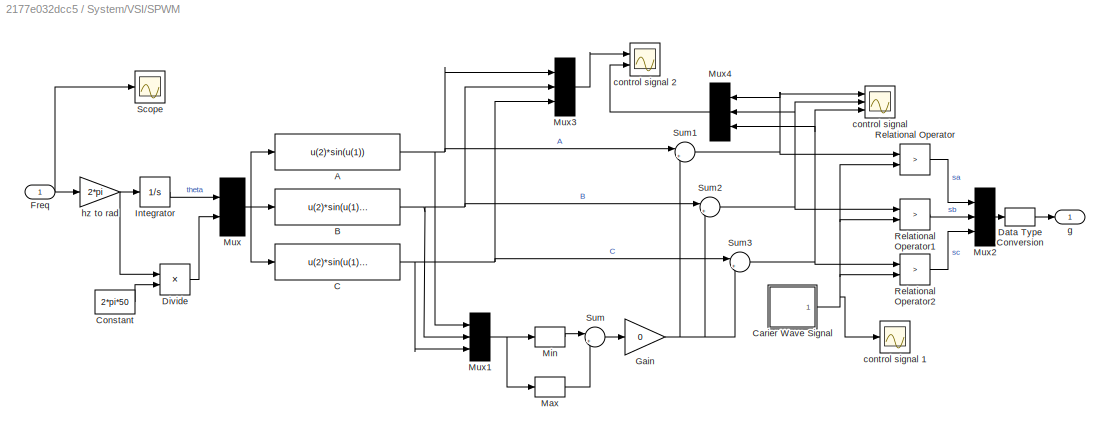
BLOCK [SubSystem] System/VSI/SPWM
  Ports = [1, 1]
  RequestExecContextInheritance = off
  Variant = off
BLOCK [Fcn] System/VSI/SPWM/A
  Expr = u(2)*sin(u(1))
BLOCK [Fcn] System/VSI/SPWM/B
  Expr = u(2)*sin(u(1)-2*pi/3)
BLOCK [Fcn] System/VSI/SPWM/C
  Expr = u(2)*sin(u(1)+2*pi/3)
BLOCK [SubSystem] System/VSI/SPWM/Carier Wave Signal
  Ports = [0, 1]
  RequestExecContextInheritance = off
  Variant = off
BLOCK [Reference] System/VSI/SPWM/Carier Wave Signal/Carier Wave  REF=simulink/Sources/Repeating
Sequence
  Ports = [0, 1]
  SourceBlock = simulink/Sources/Repeating\nSequence
  SourceProductBaseCode = SL
  SourceProductName = Simulink
  SourceType = Repeating table
BLOCK [Outport] System/VSI/SPWM/Carier Wave Signal/Carier Wave 
  IconDisplay = Port number
BLOCK [Constant] System/VSI/SPWM/Constant
  Value = 2*pi*50
BLOCK [DataTypeConversion] System/VSI/SPWM/Data Type Conversion
  RndMeth = Floor
  SaturateOnIntegerOverflow = off
BLOCK [Product] System/VSI/SPWM/Divide
  InputSameDT = off
  Inputs = */
  OutDataTypeStr = Inherit: Inherit via internal rule
  Ports = [2, 1]
  RndMeth = Floor
  SaturateOnIntegerOverflow = off
BLOCK [Inport] System/VSI/SPWM/Freq
  IconDisplay = Port number
BLOCK [Gain] System/VSI/SPWM/Gain
  Gain = 0
  OutDataTypeStr = Inherit: Inherit via internal rule
  ParamDataTypeStr = Inherit: Inherit via internal rule
  SaturateOnIntegerOverflow = off
BLOCK [Integrator] System/VSI/SPWM/Integrator
  Ports = [1, 1]
BLOCK [MinMax] System/VSI/SPWM/Max
  Function = max
  InputSameDT = off
  Ports = [1, 1]
  SaturateOnIntegerOverflow = off
BLOCK [MinMax] System/VSI/SPWM/Min
  InputSameDT = off
  Ports = [1, 1]
  SaturateOnIntegerOverflow = off
BLOCK [Mux] System/VSI/SPWM/Mux
  DisplayOption = signals
  Inputs = 2
  Ports = [2, 1]
BLOCK [Mux] System/VSI/SPWM/Mux1
  DisplayOption = signals
  Inputs = 3
  Ports = [3, 1]
BLOCK [Mux] System/VSI/SPWM/Mux2
  DisplayOption = signals
  Inputs = 3
  Ports = [3, 1]
BLOCK [Mux] System/VSI/SPWM/Mux3
  DisplayOption = signals
  Inputs = 3
  Ports = [3, 1]
BLOCK [Mux] System/VSI/SPWM/Mux4
  DisplayOption = signals
  Inputs = 3
  Ports = [3, 1]
BLOCK [RelationalOperator] System/VSI/SPWM/Relational Operator
  InputSameDT = off
  Operator = >
  OutDataTypeStr = boolean
  Ports = [2, 1]
BLOCK [RelationalOperator] System/VSI/SPWM/Relational Operator1
  InputSameDT = off
  Operator = >
  OutDataTypeStr = boolean
  Ports = [2, 1]
BLOCK [RelationalOperator] System/VSI/SPWM/Relational Operator2
  InputSameDT = off
  Operator = >
  OutDataTypeStr = boolean
  Ports = [2, 1]
BLOCK [Scope] System/VSI/SPWM/Scope
  NumInputPorts = 1
  Ports = [1]
  ScopeSpecificationString = C++SS(StrPVP('Location','[5, 49, 1371, 737]'),StrPVP('Open','off'),StrPVP('ZoomMode','yonly'),MxPVP('AxesTitles',53,'struct(''axes1'',''%<SignalLabel>'')'),StrPVP('ShowLegends','off'),StrPVP('TimeRange','3'),StrPVP('YMin','30'),StrPVP('YMax','50'),StrPVP('SaveName','ScopeData2'),StrPVP('DataFormat','StructureWithTime'),StrPVP('LimitDataPoints','off'),StrPVP('BlockParamSampleTime','0'),StrPVP('Deci...<+51ch>  <repeated x12 — deduplicated; at blocks: Scope>
BLOCK [Sum] System/VSI/SPWM/Sum
  IconShape = round
  InputSameDT = off
  Inputs = |++
  OutDataTypeStr = Inherit: Inherit via internal rule
  Ports = [2, 1]
  SaturateOnIntegerOverflow = off
BLOCK [Sum] System/VSI/SPWM/Sum1
  IconShape = round
  InputSameDT = off
  Inputs = |++
  OutDataTypeStr = Inherit: Inherit via internal rule
  Ports = [2, 1]
  SaturateOnIntegerOverflow = off
BLOCK [Sum] System/VSI/SPWM/Sum2
  IconShape = round
  InputSameDT = off
  Inputs = |++
  OutDataTypeStr = Inherit: Inherit via internal rule
  Ports = [2, 1]
  SaturateOnIntegerOverflow = off
BLOCK [Sum] System/VSI/SPWM/Sum3
  IconShape = round
  InputSameDT = off
  Inputs = |++
  OutDataTypeStr = Inherit: Inherit via internal rule
  Ports = [2, 1]
  SaturateOnIntegerOverflow = off
BLOCK [Scope] System/VSI/SPWM/control signal 
  NumInputPorts = 3
  Ports = [3]
  ScopeSpecificationString = C++SS(StrPVP('Location','[5, 49, 1371, 737]'),StrPVP('Open','off'),MxPVP('AxesTitles',53,'struct(''axes1'',''%<SignalLabel>'',''axes2'',''%<SignalLabel>'',''axes3'',''%<SignalLabel>'')'),StrPVP('ShowLegends','off'),StrPVP('TimeRange','0.5'),StrPVP('YMin','-1.5~-1.5~-1.5'),StrPVP('YMax','1.5~1.5~1.5'),StrPVP('DataFormat','StructureWithTime'),StrPVP('LimitDataPoints','off'),StrPVP('BlockParamSampleT...<+73ch>  <repeated x12 — deduplicated; at blocks: control signal>
BLOCK [Scope] System/VSI/SPWM/control signal 1
  NumInputPorts = 1
  Ports = [1]
  ScopeSpecificationString = C++SS(StrPVP('Location','[5, 49, 1371, 737]'),StrPVP('Open','off'),StrPVP('ZoomMode','xonly'),MxPVP('AxesTitles',53,'struct(''axes1'',''%<SignalLabel>'')'),StrPVP('ShowLegends','off'),StrPVP('TimeRange','0.0117840461100045'),StrPVP('YMin','-1'),StrPVP('YMax','1'),StrPVP('SaveName','ScopeData1'),StrPVP('DataFormat','StructureWithTime'),StrPVP('LimitDataPoints','off'),StrPVP('BlockParamSampleTime','...<+68ch>  <repeated x12 — deduplicated; at blocks: control signal 1>
BLOCK [Scope] System/VSI/SPWM/control signal 2
  NumInputPorts = 2
  Ports = [2]
  ScopeSpecificationString = C++SS(StrPVP('Location','[5, 49, 1371, 737]'),StrPVP('Open','off'),StrPVP('ZoomMode','xonly'),MxPVP('AxesTitles',53,'struct(''axes1'',''%<SignalLabel>'',''axes2'',''%<SignalLabel>'')'),MxPVP('ScopeGraphics',56,'struct(''FigureColor'',''[0.5 0.5 0.5]'',''AxesColor'',''[0 0 0]'',''AxesTickColor'',''[1 1 1]'',''LineColors'',''[1 1 0;1 0 1;0 1 1;1 0 0;0 1 0;0 0 1]'',''LineStyles'',''-|-|-|-|-|-'',''Li...<+402ch>  <repeated x12 — deduplicated; at blocks: control signal 2>
BLOCK [Outport] System/VSI/SPWM/g
  IconDisplay = Port number
BLOCK [Gain] System/VSI/SPWM/hz to rad
  Gain = 2*pi
  OutDataTypeStr = Inherit: Inherit via internal rule
  ParamDataTypeStr = Inherit: Inherit via internal rule
  SaturateOnIntegerOverflow = off
BLOCK [Outport] System/VSI/Va
  IconDisplay = Port number
BLOCK [Outport] System/VSI/Vb
  IconDisplay = Port number
  Port = 2
BLOCK [Outport] System/VSI/Vc
  IconDisplay = Port number
  Port = 3
BLOCK [Inport] System/embuttom1
  IconDisplay = Port number
  Port = 2
BLOCK [Inport] System/embuttom2
  IconDisplay = Port number
  Port = 3
BLOCK [Inport] System/speed_ref
  IconDisplay = Port number
BLOCK [Inport] System/temp
  IconDisplay = Port number
  Port = 4
BLOCK [Step] System/torque
  After = 0
  SampleTime = 0
  Time = 2
BLOCK [SubSystem] TestExecutor
  Ports = [2, 4]
  RequestExecContextInheritance = off
  Variant = off
BLOCK [Constant] TestExecutor/Constant
  Value = TestOrder
BLOCK [Constant] TestExecutor/Constant10
  Value = trans4
BLOCK [Constant] TestExecutor/Constant3
  Value = tc_simul
BLOCK [Constant] TestExecutor/Constant4
  Value = tc_size
BLOCK [Constant] TestExecutor/Constant7
  Value = trans1
BLOCK [Constant] TestExecutor/Constant8
  Value = trans2
BLOCK [Constant] TestExecutor/Constant9
  Value = trans3
BLOCK [Inport] TestExecutor/EngineSpeed
  IconDisplay = Port number
  Port = 2
BLOCK [SubSystem] TestExecutor/MATLAB Function
  ErrorFcn = Stateflow.Translate.translate
  PermitHierarchicalResolution = ExplicitOnly
  Ports = [3, 4]
  RequestExecContextInheritance = off
  SFBlockType = MATLAB Function
  TreatAsAtomicUnit = on
  Variant = off
BLOCK [Demux] TestExecutor/MATLAB Function/ Demux 
  Outputs = 1
  Ports = [1, 1]
BLOCK [S-Function] TestExecutor/MATLAB Function/ SFunction 
  EnableBusSupport = on
  FunctionName = sf_sfun
  PortCounts = [3 5]
  Ports = [3, 5]
  SFcnIsStateOwnerBlock = off
  SFunctionDeploymentMode = off
  Tag = Stateflow S-Function CL_pi_testExecutionMutants 3
BLOCK [Terminator] TestExecutor/MATLAB Function/ Terminator 
BLOCK [Outport] TestExecutor/MATLAB Function/port_1
  IconDisplay = Port number
BLOCK [Outport] TestExecutor/MATLAB Function/port_2
  IconDisplay = Port number
  Port = 2
BLOCK [Outport] TestExecutor/MATLAB Function/port_3
  IconDisplay = Port number
  Port = 3
BLOCK [Outport] TestExecutor/MATLAB Function/port_4
  IconDisplay = Port number
  Port = 4
BLOCK [Inport] TestExecutor/MATLAB Function/state
  IconDisplay = Port number
  Port = 3
BLOCK [Inport] TestExecutor/MATLAB Function/tc_simul
  IconDisplay = Port number
BLOCK [Inport] TestExecutor/MATLAB Function/test_case
  IconDisplay = Port number
  Port = 2
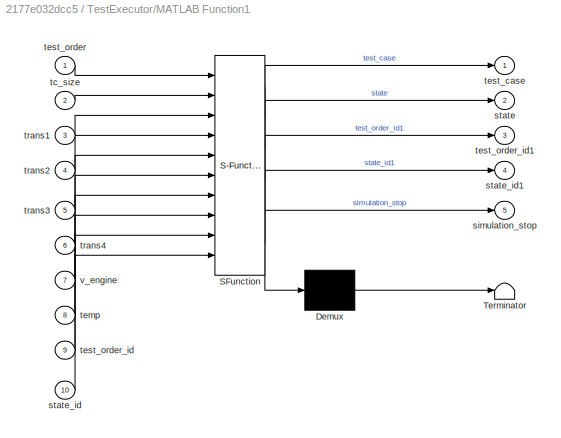
BLOCK [SubSystem] TestExecutor/MATLAB Function1
  ErrorFcn = Stateflow.Translate.translate
  PermitHierarchicalResolution = ExplicitOnly
  Ports = [10, 5]
  RequestExecContextInheritance = off
  SFBlockType = MATLAB Function
  TreatAsAtomicUnit = on
  Variant = off
BLOCK [Demux] TestExecutor/MATLAB Function1/ Demux 
  Outputs = 1
  Ports = [1, 1]
BLOCK [S-Function] TestExecutor/MATLAB Function1/ SFunction 
  EnableBusSupport = on
  FunctionName = sf_sfun
  PortCounts = [10 6]
  Ports = [10, 6]
  SFcnIsStateOwnerBlock = off
  SFunctionDeploymentMode = off
  Tag = Stateflow S-Function CL_pi_testExecutionMutants 4
BLOCK [Terminator] TestExecutor/MATLAB Function1/ Terminator 
BLOCK [Outport] TestExecutor/MATLAB Function1/simulation_stop
  IconDisplay = Port number
  Port = 5
BLOCK [Outport] TestExecutor/MATLAB Function1/state
  IconDisplay = Port number
  Port = 2
BLOCK [Inport] TestExecutor/MATLAB Function1/state_id
  IconDisplay = Port number
  Port = 10
BLOCK [Outport] TestExecutor/MATLAB Function1/state_id1
  IconDisplay = Port number
  Port = 4
BLOCK [Inport] TestExecutor/MATLAB Function1/tc_size
  IconDisplay = Port number
  Port = 2
BLOCK [Inport] TestExecutor/MATLAB Function1/temp
  IconDisplay = Port number
  Port = 8
BLOCK [Outport] TestExecutor/MATLAB Function1/test_case
  IconDisplay = Port number
BLOCK [Inport] TestExecutor/MATLAB Function1/test_order
  IconDisplay = Port number
BLOCK [Inport] TestExecutor/MATLAB Function1/test_order_id
  IconDisplay = Port number
  Port = 9
BLOCK [Outport] TestExecutor/MATLAB Function1/test_order_id1
  IconDisplay = Port number
  Port = 3
BLOCK [Inport] TestExecutor/MATLAB Function1/trans1
  IconDisplay = Port number
  Port = 3
BLOCK [Inport] TestExecutor/MATLAB Function1/trans2
  IconDisplay = Port number
  Port = 4
BLOCK [Inport] TestExecutor/MATLAB Function1/trans3
  IconDisplay = Port number
  Port = 5
BLOCK [Inport] TestExecutor/MATLAB Function1/trans4
  IconDisplay = Port number
  Port = 6
BLOCK [Inport] TestExecutor/MATLAB Function1/v_engine
  IconDisplay = Port number
  Port = 7
BLOCK [Memory] TestExecutor/Memory
  InitialCondition = 1
BLOCK [Memory] TestExecutor/Memory1
  InitialCondition = 1
BLOCK [Memory] TestExecutor/Memory2
  InitialCondition = 1
BLOCK [Memory] TestExecutor/Memory3
  InitialCondition = 1
BLOCK [Scope] TestExecutor/Scope
  NumInputPorts = 1
  Ports = [1]
  ScopeSpecificationString = Simulink.scopes.TimeScopeBlockCfg('CurrentConfiguration', extmgr.ConfigurationSet(extmgr.Configuration('Core','General UI',true),extmgr.Configuration('Core','Source UI',true),extmgr.Configuration('Sources','WiredSimulink',true,'DataLoggingVariableName','ScopeData1'),extmgr.Configuration('Visuals','Time Domain',true,'SerializedDisplays',{struct('MinYLimReal','0.76358','MaxYLimReal','7.11795','YLabe...<+1431ch>
BLOCK [Scope] TestExecutor/Scope1
  NumInputPorts = 1
  Ports = [1]
  ScopeSpecificationString = Simulink.scopes.TimeScopeBlockCfg('CurrentConfiguration', extmgr.ConfigurationSet(extmgr.Configuration('Core','General UI',true),extmgr.Configuration('Core','Source UI',true),extmgr.Configuration('Sources','WiredSimulink',true,'DataLoggingVariableName','ScopeData1'),extmgr.Configuration('Visuals','Time Domain',true,'SerializedDisplays',{struct('MinYLimReal','4.00000','MaxYLimReal','6.00000','YLabe...<+1427ch>
BLOCK [Outport] TestExecutor/StimuliInput1
  IconDisplay = Port number
BLOCK [Outport] TestExecutor/StimuliInput2
  IconDisplay = Port number
  Port = 2
BLOCK [Outport] TestExecutor/StimuliInput3
  IconDisplay = Port number
  Port = 3
BLOCK [Outport] TestExecutor/StimuliInput4
  IconDisplay = Port number
  Port = 4
BLOCK [Stop] TestExecutor/Stop Simulation
BLOCK [Inport] TestExecutor/TemperatureInput
  IconDisplay = Port number
BLOCK [ToWorkspace] To Workspace1
  MaxDataPoints = inf
  Ports = [1]
  SampleTime = -1
  VariableName = mutant2
BLOCK [ToWorkspace] To Workspace10
  MaxDataPoints = inf
  Ports = [1]
  SampleTime = -1
  VariableName = mutant5
BLOCK [ToWorkspace] To Workspace11
  MaxDataPoints = inf
  Ports = [1]
  SampleTime = -1
  VariableName = mutant6
BLOCK [ToWorkspace] To Workspace12
  MaxDataPoints = inf
  Ports = [1]
  SampleTime = -1
  VariableName = mutant7
BLOCK [ToWorkspace] To Workspace13
  MaxDataPoints = inf
  Ports = [1]
  SampleTime = -1
  VariableName = mutant8
BLOCK [ToWorkspace] To Workspace14
  MaxDataPoints = inf
  Ports = [1]
  SampleTime = -1
  VariableName = mutant9
BLOCK [ToWorkspace] To Workspace15
  MaxDataPoints = inf
  Ports = [1]
  SampleTime = -1
  VariableName = mutant10
BLOCK [ToWorkspace] To Workspace16
  MaxDataPoints = inf
  Ports = [1]
  SampleTime = -1
  VariableName = mutant11
BLOCK [ToWorkspace] To Workspace2
  MaxDataPoints = inf
  Ports = [1]
  SampleTime = -1
  VariableName = StimuliInput2
BLOCK [ToWorkspace] To Workspace3
  MaxDataPoints = inf
  Ports = [1]
  SampleTime = -1
  VariableName = StimuliInput3
BLOCK [ToWorkspace] To Workspace4
  MaxDataPoints = inf
  Ports = [1]
  SampleTime = -1
  VariableName = StimuliInput1
BLOCK [ToWorkspace] To Workspace5
  MaxDataPoints = inf
  Ports = [1]
  SampleTime = -1
  VariableName = StimuliInput4
BLOCK [ToWorkspace] To Workspace6
  MaxDataPoints = inf
  Ports = [1]
  SampleTime = -1
  VariableName = mutant
BLOCK [ToWorkspace] To Workspace7
  MaxDataPoints = inf
  Ports = [1]
  SampleTime = -1
  VariableName = mutant1
BLOCK [ToWorkspace] To Workspace8
  MaxDataPoints = inf
  Ports = [1]
  SampleTime = -1
  VariableName = mutant3
BLOCK [ToWorkspace] To Workspace9
  MaxDataPoints = inf
  Ports = [1]
  SampleTime = -1
  VariableName = mutant4
BLOCK [SubSystem] mutant1
  Ports = [4, 1]
  RequestExecContextInheritance = off
  Variant = off
BLOCK [SubSystem] mutant1/1 HP , 220 V Induction Motor
  Ports = [4, 1]
  RequestExecContextInheritance = off
  Variant = off
BLOCK [SubSystem] mutant1/1 HP , 220 V Induction Motor/Flux
  Ports = [7, 4]
  RequestExecContextInheritance = off
  Variant = off
BLOCK [Inport] mutant1/1 HP , 220 V Induction Motor/Flux/I_dr
  IconDisplay = Port number
  Port = 4
BLOCK [Inport] mutant1/1 HP , 220 V Induction Motor/Flux/I_ds
  IconDisplay = Port number
  Port = 3
BLOCK [Inport] mutant1/1 HP , 220 V Induction Motor/Flux/I_qr
  IconDisplay = Port number
  Port = 6
BLOCK [Inport] mutant1/1 HP , 220 V Induction Motor/Flux/I_qs
  IconDisplay = Port number
  Port = 5
BLOCK [Integrator] mutant1/1 HP , 220 V Induction Motor/Flux/Integrator
  Ports = [1, 1]
BLOCK [Integrator] mutant1/1 HP , 220 V Induction Motor/Flux/Integrator1
  Ports = [1, 1]
BLOCK [Integrator] mutant1/1 HP , 220 V Induction Motor/Flux/Integrator2
  Ports = [1, 1]
BLOCK [Integrator] mutant1/1 HP , 220 V Induction Motor/Flux/Integrator3
  Ports = [1, 1]
BLOCK [Product] mutant1/1 HP , 220 V Induction Motor/Flux/Product
  InputSameDT = off
  OutDataTypeStr = Inherit: Inherit via internal rule
  Ports = [2, 1]
  RndMeth = Floor
  SaturateOnIntegerOverflow = off
BLOCK [Product] mutant1/1 HP , 220 V Induction Motor/Flux/Product1
  InputSameDT = off
  OutDataTypeStr = Inherit: Inherit via internal rule
  Ports = [2, 1]
  RndMeth = Floor
  SaturateOnIntegerOverflow = off
BLOCK [Gain] mutant1/1 HP , 220 V Induction Motor/Flux/Rr
  Gain = Rr
  OutDataTypeStr = Inherit: Inherit via internal rule
  ParamDataTypeStr = Inherit: Inherit via internal rule
  SaturateOnIntegerOverflow = off
BLOCK [Gain] mutant1/1 HP , 220 V Induction Motor/Flux/Rr 
  Gain = Rr
  OutDataTypeStr = Inherit: Inherit via internal rule
  ParamDataTypeStr = Inherit: Inherit via internal rule
  SaturateOnIntegerOverflow = off
BLOCK [Gain] mutant1/1 HP , 220 V Induction Motor/Flux/Rs
  Gain = Rs
  OutDataTypeStr = Inherit: Inherit via internal rule
  ParamDataTypeStr = Inherit: Inherit via internal rule
  SaturateOnIntegerOverflow = off
BLOCK [Gain] mutant1/1 HP , 220 V Induction Motor/Flux/Rs 
  Gain = Rs
  OutDataTypeStr = Inherit: Inherit via internal rule
  ParamDataTypeStr = Inherit: Inherit via internal rule
  SaturateOnIntegerOverflow = off
BLOCK [Sum] mutant1/1 HP , 220 V Induction Motor/Flux/Sum
  IconShape = round
  InputSameDT = off
  Inputs = +|-
  OutDataTypeStr = Inherit: Inherit via internal rule
  Ports = [2, 1]
  SaturateOnIntegerOverflow = off
BLOCK [Sum] mutant1/1 HP , 220 V Induction Motor/Flux/Sum1
  IconShape = round
  InputSameDT = off
  Inputs = +|-
  OutDataTypeStr = Inherit: Inherit via internal rule
  Ports = [2, 1]
  SaturateOnIntegerOverflow = off
BLOCK [Sum] mutant1/1 HP , 220 V Induction Motor/Flux/Sum2
  IconShape = round
  InputSameDT = off
  Inputs = |--
  OutDataTypeStr = Inherit: Inherit via internal rule
  Ports = [2, 1]
  SaturateOnIntegerOverflow = off
BLOCK [Sum] mutant1/1 HP , 220 V Induction Motor/Flux/Sum3
  IconShape = round
  InputSameDT = off
  Inputs = |+-
  OutDataTypeStr = Inherit: Inherit via internal rule
  Ports = [2, 1]
  SaturateOnIntegerOverflow = off
BLOCK [Inport] mutant1/1 HP , 220 V Induction Motor/Flux/V_ds
  IconDisplay = Port number
BLOCK [Inport] mutant1/1 HP , 220 V Induction Motor/Flux/V_qs
  IconDisplay = Port number
  Port = 2
BLOCK [Outport] mutant1/1 HP , 220 V Induction Motor/Flux/shi_dr 
  IconDisplay = Port number
  Port = 2
BLOCK [Outport] mutant1/1 HP , 220 V Induction Motor/Flux/shi_ds
  IconDisplay = Port number
BLOCK [Outport] mutant1/1 HP , 220 V Induction Motor/Flux/shi_qr 
  IconDisplay = Port number
  Port = 4
BLOCK [Outport] mutant1/1 HP , 220 V Induction Motor/Flux/shi_qs
  IconDisplay = Port number
  Port = 3
BLOCK [Inport] mutant1/1 HP , 220 V Induction Motor/Flux/we
  IconDisplay = Port number
  Port = 7
BLOCK [SubSystem] mutant1/1 HP , 220 V Induction Motor/Measurements
  Ports = [8, 1]
  RequestExecContextInheritance = off
  Variant = off
BLOCK [BusCreator] mutant1/1 HP , 220 V Induction Motor/Measurements/Bus Creator
  DisplayOption = bar
  InheritFromInputs = on
  Inputs = 5
  Ports = [5, 1]
BLOCK [BusCreator] mutant1/1 HP , 220 V Induction Motor/Measurements/Bus Creator1
  DisplayOption = bar
  InheritFromInputs = on
  Inputs = 5
  Ports = [5, 1]
BLOCK [BusCreator] mutant1/1 HP , 220 V Induction Motor/Measurements/Bus Creator2
  DisplayOption = bar
  InheritFromInputs = on
  Inputs = 2
  Ports = [2, 1]
BLOCK [BusCreator] mutant1/1 HP , 220 V Induction Motor/Measurements/Bus Creator3
  DisplayOption = bar
  InheritFromInputs = on
  Inputs = 3
  Ports = [3, 1]
BLOCK [Demux] mutant1/1 HP , 220 V Induction Motor/Measurements/Demux
  DisplayOption = bar
  Outputs = 3
  Ports = [1, 3]
BLOCK [Demux] mutant1/1 HP , 220 V Induction Motor/Measurements/Demux1
  DisplayOption = bar
  Outputs = 3
  Ports = [1, 3]
BLOCK [Inport] mutant1/1 HP , 220 V Induction Motor/Measurements/I_dr
  IconDisplay = Port number
  Port = 4
BLOCK [Inport] mutant1/1 HP , 220 V Induction Motor/Measurements/I_ds
  IconDisplay = Port number
  Port = 3
BLOCK [Inport] mutant1/1 HP , 220 V Induction Motor/Measurements/I_qr
  IconDisplay = Port number
  Port = 6
BLOCK [Inport] mutant1/1 HP , 220 V Induction Motor/Measurements/I_qs
  IconDisplay = Port number
  Port = 5
BLOCK [Inport] mutant1/1 HP , 220 V Induction Motor/Measurements/I_r
  IconDisplay = Port number
  Port = 2
BLOCK [Inport] mutant1/1 HP , 220 V Induction Motor/Measurements/I_s
  IconDisplay = Port number
BLOCK [Inport] mutant1/1 HP , 220 V Induction Motor/Measurements/N
  IconDisplay = Port number
  Port = 8
BLOCK [Inport] mutant1/1 HP , 220 V Induction Motor/Measurements/Te
  IconDisplay = Port number
  Port = 7
BLOCK [Outport] mutant1/1 HP , 220 V Induction Motor/Measurements/m
  IconDisplay = Port number
BLOCK [SubSystem] mutant1/1 HP , 220 V Induction Motor/Mechanical
  Ports = [5, 3]
  RequestExecContextInheritance = off
  Variant = off
BLOCK [Gain] mutant1/1 HP , 220 V Induction Motor/Mechanical/ 
  Gain = P/2
BLOCK [Gain] mutant1/1 HP , 220 V Induction Motor/Mechanical/  
  Gain = 3*P/4
BLOCK [Gain] mutant1/1 HP , 220 V Induction Motor/Mechanical/1//J
  Gain = 1/J
BLOCK [Integrator] mutant1/1 HP , 220 V Induction Motor/Mechanical/Integratorw
  Ports = [1, 1]
BLOCK [Product] mutant1/1 HP , 220 V Induction Motor/Mechanical/Product1
  InputSameDT = off
  OutDataTypeStr = Inherit: Inherit via internal rule
  Ports = [2, 1]
  RndMeth = Floor
  SaturateOnIntegerOverflow = off
BLOCK [Product] mutant1/1 HP , 220 V Induction Motor/Mechanical/Product2
  InputSameDT = off
  OutDataTypeStr = Inherit: Inherit via internal rule
  Ports = [2, 1]
  RndMeth = Floor
  SaturateOnIntegerOverflow = off
BLOCK [Sum] mutant1/1 HP , 220 V Induction Motor/Mechanical/Sum
  IconShape = round
  InputSameDT = off
  Inputs = +|-
  OutDataTypeStr = Inherit: Inherit via internal rule
  Ports = [2, 1]
  SaturateOnIntegerOverflow = off
BLOCK [Sum] mutant1/1 HP , 220 V Induction Motor/Mechanical/Sum5
  IconShape = round
  Inputs = +-
  Ports = [2, 1]
BLOCK [Outport] mutant1/1 HP , 220 V Induction Motor/Mechanical/Te
  IconDisplay = Port number
BLOCK [Inport] mutant1/1 HP , 220 V Induction Motor/Mechanical/i_ds
  IconDisplay = Port number
  Port = 3
BLOCK [Inport] mutant1/1 HP , 220 V Induction Motor/Mechanical/i_qs
  IconDisplay = Port number
  Port = 4
BLOCK [Outport] mutant1/1 HP , 220 V Induction Motor/Mechanical/omegaR
  IconDisplay = Port number
  Port = 2
BLOCK [Inport] mutant1/1 HP , 220 V Induction Motor/Mechanical/shi_ds
  IconDisplay = Port number
BLOCK [Inport] mutant1/1 HP , 220 V Induction Motor/Mechanical/shi_qs
  IconDisplay = Port number
  Port = 2
BLOCK [Inport] mutant1/1 HP , 220 V Induction Motor/Mechanical/tau
  IconDisplay = Port number
  Port = 5
BLOCK [Outport] mutant1/1 HP , 220 V Induction Motor/Mechanical/we
  IconDisplay = Port number
  Port = 3
BLOCK [Mux] mutant1/1 HP , 220 V Induction Motor/Mux
  DisplayOption = bar
  Inputs = 3
  Ports = [3, 1]
BLOCK [Mux] mutant1/1 HP , 220 V Induction Motor/Mux1
  DisplayOption = bar
  Inputs = 3
  Ports = [3, 1]
BLOCK [Inport] mutant1/1 HP , 220 V Induction Motor/V_a
  IconDisplay = Port number
  Port = 2
BLOCK [Inport] mutant1/1 HP , 220 V Induction Motor/V_b
  IconDisplay = Port number
  Port = 3
BLOCK [Inport] mutant1/1 HP , 220 V Induction Motor/V_c
  IconDisplay = Port number
  Port = 4
BLOCK [SubSystem] mutant1/1 HP , 220 V Induction Motor/abc to dq
  Ports = [3, 2]
  RequestExecContextInheritance = off
  Variant = off
BLOCK [Terminator] mutant1/1 HP , 220 V Induction Motor/abc to dq/            
BLOCK [Demux] mutant1/1 HP , 220 V Induction Motor/abc to dq/Demux
  Outputs = 3
  Ports = [1, 3]
BLOCK [Mux] mutant1/1 HP , 220 V Induction Motor/abc to dq/Mux
  DisplayOption = bar
  Inputs = 3
  Ports = [3, 1]
BLOCK [Outport] mutant1/1 HP , 220 V Induction Motor/abc to dq/V_ds
  IconDisplay = Port number
BLOCK [Outport] mutant1/1 HP , 220 V Induction Motor/abc to dq/V_qs
  IconDisplay = Port number
  Port = 2
BLOCK [Inport] mutant1/1 HP , 220 V Induction Motor/abc to dq/Va
  IconDisplay = Port number
BLOCK [Inport] mutant1/1 HP , 220 V Induction Motor/abc to dq/Vb
  IconDisplay = Port number
  Port = 2
BLOCK [Inport] mutant1/1 HP , 220 V Induction Motor/abc to dq/Vc
  IconDisplay = Port number
  Port = 3
BLOCK [Gain] mutant1/1 HP , 220 V Induction Motor/abc to dq/abc2dq
  Gain = [2/3 -1/3 -1/3; 0 sqrt(3)/3 -sqrt(3)/3; 1/3 1/3 1/3]
  Multiplication = Matrix(K*u)
BLOCK [SubSystem] mutant1/1 HP , 220 V Induction Motor/d_block
  Ports = [2, 2]
  RequestExecContextInheritance = off
  Variant = off
BLOCK [Gain] mutant1/1 HP , 220 V Induction Motor/d_block/1//(Lr-((Lm*Lm)//Ls))
  Gain = 1/(Lr-((Lm*Lm)/Ls))
BLOCK [Gain] mutant1/1 HP , 220 V Induction Motor/d_block/1//(Ls-((Lm*Lm)//Lr))
  Gain = 1/(Ls-((Lm*Lm)/Lr))
BLOCK [Gain] mutant1/1 HP , 220 V Induction Motor/d_block/Lm//Lr
  Gain = Lm/Lr
  OutDataTypeStr = Inherit: Inherit via internal rule
  ParamDataTypeStr = Inherit: Inherit via internal rule
  SaturateOnIntegerOverflow = off
BLOCK [Gain] mutant1/1 HP , 220 V Induction Motor/d_block/Lm//Ls
  Gain = Lm/Ls
  OutDataTypeStr = Inherit: Inherit via internal rule
  ParamDataTypeStr = Inherit: Inherit via internal rule
  SaturateOnIntegerOverflow = off
BLOCK [Sum] mutant1/1 HP , 220 V Induction Motor/d_block/Sum
  IconShape = round
  InputSameDT = off
  Inputs = |+-
  OutDataTypeStr = Inherit: Inherit via internal rule
  Ports = [2, 1]
  SaturateOnIntegerOverflow = off
BLOCK [Sum] mutant1/1 HP , 220 V Induction Motor/d_block/Sum1
  IconShape = round
  InputSameDT = off
  Inputs = -+|
  OutDataTypeStr = Inherit: Inherit via internal rule
  Ports = [2, 1]
  SaturateOnIntegerOverflow = off
BLOCK [Outport] mutant1/1 HP , 220 V Induction Motor/d_block/i_dr
  IconDisplay = Port number
  Port = 2
BLOCK [Outport] mutant1/1 HP , 220 V Induction Motor/d_block/i_ds
  IconDisplay = Port number
BLOCK [Inport] mutant1/1 HP , 220 V Induction Motor/d_block/shi_dr
  IconDisplay = Port number
  Port = 2
BLOCK [Inport] mutant1/1 HP , 220 V Induction Motor/d_block/shi_ds
  IconDisplay = Port number
BLOCK [SubSystem] mutant1/1 HP , 220 V Induction Motor/dq to abc
  Ports = [2, 3]
  RequestExecContextInheritance = off
  Variant = off
BLOCK [SubSystem] mutant1/1 HP , 220 V Induction Motor/dq to abc 
  Ports = [2, 3]
  RequestExecContextInheritance = off
  Variant = off
BLOCK [Demux] mutant1/1 HP , 220 V Induction Motor/dq to abc /Demux
  Outputs = 3
  Ports = [1, 3]
BLOCK [Gain] mutant1/1 HP , 220 V Induction Motor/dq to abc /Gain
  Gain = 2/3
BLOCK [Inport] mutant1/1 HP , 220 V Induction Motor/dq to abc /I_d
  IconDisplay = Port number
BLOCK [Inport] mutant1/1 HP , 220 V Induction Motor/dq to abc /I_q
  IconDisplay = Port number
  Port = 2
BLOCK [Gain] mutant1/1 HP , 220 V Induction Motor/dq to abc /Matrix Gain
  Gain = [1 0;-0.5 -sqrt(3)/2;-0.5 sqrt(3)/2]
  Multiplication = Matrix(K*u)
BLOCK [Mux] mutant1/1 HP , 220 V Induction Motor/dq to abc /Mux
  DisplayOption = bar
  Inputs = 2
  Ports = [2, 1]
BLOCK [Outport] mutant1/1 HP , 220 V Induction Motor/dq to abc /i_ra
  IconDisplay = Port number
BLOCK [Outport] mutant1/1 HP , 220 V Induction Motor/dq to abc /i_rb
  IconDisplay = Port number
  Port = 2
BLOCK [Outport] mutant1/1 HP , 220 V Induction Motor/dq to abc /i_rc
  IconDisplay = Port number
  Port = 3
BLOCK [Demux] mutant1/1 HP , 220 V Induction Motor/dq to abc/Demux
  Outputs = 3
  Ports = [1, 3]
BLOCK [Gain] mutant1/1 HP , 220 V Induction Motor/dq to abc/Gain
  Gain = 2/3
BLOCK [Inport] mutant1/1 HP , 220 V Induction Motor/dq to abc/I_d
  IconDisplay = Port number
BLOCK [Inport] mutant1/1 HP , 220 V Induction Motor/dq to abc/I_q
  IconDisplay = Port number
  Port = 2
BLOCK [Gain] mutant1/1 HP , 220 V Induction Motor/dq to abc/Matrix Gain
  Gain = [1 0;-0.5 -sqrt(3)/2;-0.5 sqrt(3)/2]
  Multiplication = Matrix(K*u)
BLOCK [Mux] mutant1/1 HP , 220 V Induction Motor/dq to abc/Mux
  DisplayOption = bar
  Inputs = 2
  Ports = [2, 1]
BLOCK [Outport] mutant1/1 HP , 220 V Induction Motor/dq to abc/i_sa
  IconDisplay = Port number
BLOCK [Outport] mutant1/1 HP , 220 V Induction Motor/dq to abc/i_sb
  IconDisplay = Port number
  Port = 2
BLOCK [Outport] mutant1/1 HP , 220 V Induction Motor/dq to abc/i_sc
  IconDisplay = Port number
  Port = 3
BLOCK [Outport] mutant1/1 HP , 220 V Induction Motor/m
  IconDisplay = Port number
BLOCK [SubSystem] mutant1/1 HP , 220 V Induction Motor/q_block
  Ports = [2, 2]
  RequestExecContextInheritance = off
  Variant = off
BLOCK [Gain] mutant1/1 HP , 220 V Induction Motor/q_block/1//(Lr-((Lm*Lm)//Ls))
  Gain = 1/(Lr-((Lm*Lm)/Ls))
BLOCK [Gain] mutant1/1 HP , 220 V Induction Motor/q_block/1//(Ls-((Lm*Lm)//Lr))
  Gain = 1/(Ls-((Lm*Lm)/Lr))
BLOCK [Gain] mutant1/1 HP , 220 V Induction Motor/q_block/Lm//Lr
  Gain = Lm/Lr
  OutDataTypeStr = Inherit: Inherit via internal rule
  ParamDataTypeStr = Inherit: Inherit via internal rule
  SaturateOnIntegerOverflow = off
BLOCK [Gain] mutant1/1 HP , 220 V Induction Motor/q_block/Lm//Ls
  Gain = Lm/Ls
  OutDataTypeStr = Inherit: Inherit via internal rule
  ParamDataTypeStr = Inherit: Inherit via internal rule
  SaturateOnIntegerOverflow = off
BLOCK [Sum] mutant1/1 HP , 220 V Induction Motor/q_block/Sum
  IconShape = round
  InputSameDT = off
  Inputs = |+-
  OutDataTypeStr = Inherit: Inherit via internal rule
  Ports = [2, 1]
  SaturateOnIntegerOverflow = off
BLOCK [Sum] mutant1/1 HP , 220 V Induction Motor/q_block/Sum1
  IconShape = round
  InputSameDT = off
  Inputs = -+|
  OutDataTypeStr = Inherit: Inherit via internal rule
  Ports = [2, 1]
  SaturateOnIntegerOverflow = off
BLOCK [Outport] mutant1/1 HP , 220 V Induction Motor/q_block/i_qr
  IconDisplay = Port number
  Port = 2
BLOCK [Outport] mutant1/1 HP , 220 V Induction Motor/q_block/i_qs
  IconDisplay = Port number
BLOCK [Inport] mutant1/1 HP , 220 V Induction Motor/q_block/shi_qr
  IconDisplay = Port number
  Port = 2
BLOCK [Inport] mutant1/1 HP , 220 V Induction Motor/q_block/shi_qs
  IconDisplay = Port number
BLOCK [Gain] mutant1/1 HP , 220 V Induction Motor/rad2rpm
  Gain = 30/pi
  OutDataTypeStr = Inherit: Inherit via internal rule
  ParamDataTypeStr = Inherit: Inherit via internal rule
  SaturateOnIntegerOverflow = off
BLOCK [Inport] mutant1/1 HP , 220 V Induction Motor/tau
  IconDisplay = Port number
BLOCK [SubSystem] mutant1/Data Acquision
  Ports = [2, 4]
  RequestExecContextInheritance = off
  Variant = off
BLOCK [Reference] mutant1/Data Acquision/2nd-Order Filter  REF=powerlib_extras/Control 
Blocks/2nd-Order
Filter
  Ports = [1, 1]
  SourceBlock = powerlib_extras/Control \nBlocks/2nd-Order\nFilter
  SourceType = 2nd-Order Filter
BLOCK [BusSelector] mutant1/Data Acquision/Bus Selector
  OutputAsBus = off
  OutputSignals = Mechanical.Rotor Speed in (rpm),Mechanical.Electromagnetic Torque (N*m),Stator Measurement.Stator Current i_sa (A)
  Ports = [1, 3]
BLOCK [Mux] mutant1/Data Acquision/Mux
  DisplayOption = bar
  Inputs = 2
  Ports = [2, 1]
BLOCK [Outport] mutant1/Data Acquision/Te(Nm)
  IconDisplay = Port number
  Port = 2
BLOCK [TransferFcn] mutant1/Data Acquision/filtroPasaBajos
  Denominator = [1 1]
BLOCK [Outport] mutant1/Data Acquision/is_a
  IconDisplay = Port number
BLOCK [Inport] mutant1/Data Acquision/m
  IconDisplay = Port number
BLOCK [Inport] mutant1/Data Acquision/speed
  IconDisplay = Port number
  Port = 2
BLOCK [Outport] mutant1/Data Acquision/wm
  IconDisplay = Port number
  Port = 3
BLOCK [Outport] mutant1/Data Acquision/wm1
  IconDisplay = Port number
  Port = 4
BLOCK [SubSystem] mutant1/PI Control1
  Ports = [2, 1]
  RequestExecContextInheritance = off
  Variant = off
BLOCK [Abs] mutant1/PI Control1/Abs
BLOCK [Abs] mutant1/PI Control1/Abs1
BLOCK [Abs] mutant1/PI Control1/Abs2
  SaturateOnIntegerOverflow = off
BLOCK [Reference] mutant1/PI Control1/Compare To Constant  REF=simulink/Logic and Bit
Operations/Compare
To Constant
  Ports = [1, 1]
  SourceBlock = simulink/Logic and Bit\nOperations/Compare\nTo Constant
  SourceProductBaseCode = SL
  SourceProductName = Simulink
  SourceType = Compare To Constant
BLOCK [Constant] mutant1/PI Control1/Constant
  Value = 0
BLOCK [Product] mutant1/PI Control1/Divide
  InputSameDT = off
  Inputs = /*
  OutDataTypeStr = Inherit: Inherit via internal rule
  Ports = [2, 1]
  RndMeth = Floor
  SaturateOnIntegerOverflow = off
BLOCK [Outport] mutant1/PI Control1/Freq*
  IconDisplay = Port number
BLOCK [Integrator] mutant1/PI Control1/Integrator Limited
  LimitOutput = on
  LowerSaturationLimit = -30
  Ports = [1, 1]
  UpperSaturationLimit = 30
BLOCK [Inport] mutant1/PI Control1/N
  IconDisplay = Port number
  Port = 2
BLOCK [Inport] mutant1/PI Control1/N*
  IconDisplay = Port number
BLOCK [Gain] mutant1/PI Control1/Proportional gain
  Gain = 0.8
BLOCK [RateTransition] mutant1/PI Control1/Rate Transition3
  OutPortSampleTimeOpt = Inherit
BLOCK [Saturate] mutant1/PI Control1/Saturation
  InputPortMap = u0
  LowerLimit = 2
  Ports = [1, 1]
  UpperLimit = inf
BLOCK [Saturate] mutant1/PI Control1/Saturation2
  InputPortMap = u0
  LowerLimit = 0.02
  Ports = [1, 1]
  UpperLimit = 120
BLOCK [Sum] mutant1/PI Control1/Sum1
  IconShape = round
  Inputs = |+-
  Ports = [2, 1]
BLOCK [Sum] mutant1/PI Control1/Sum2
  Ports = [2, 1]
BLOCK [Sum] mutant1/PI Control1/Sum3
  IconShape = round
  Inputs = |++
  Ports = [2, 1]
BLOCK [Switch] mutant1/PI Control1/Switch
  InputSameDT = off
  SaturateOnIntegerOverflow = off
  Threshold = 0.5
BLOCK [Saturate] mutant1/PI Control1/ctrl_sat
  InputPortMap = u0
  LowerLimit = -30
  Ports = [1, 1]
  UpperLimit = 30
BLOCK [Gain] mutant1/PI Control1/rpm2hz
  Gain = 4/120
BLOCK [Gain] mutant1/PI Control1/rpm2hz  
  Gain = 4/120
BLOCK [Selector] mutant1/Selector
  IndexOptions = Index vector (dialog)
  Indices = [1]
  InputPortWidth = 2
  OutputSizes = 1
  Ports = [1, 1]
BLOCK [Outport] mutant1/Speedsystem
  IconDisplay = Port number
BLOCK [SubSystem] mutant1/Subsystem
  Ports = [4, 1]
  RequestExecContextInheritance = off
  Variant = off
BLOCK [Reference] mutant1/Subsystem/Compare To Constant  REF=simulink/Logic and Bit
Operations/Compare
To Constant
  Ports = [1, 1]
  SourceBlock = simulink/Logic and Bit\nOperations/Compare\nTo Constant
  SourceProductBaseCode = SL
  SourceProductName = Simulink
  SourceType = Compare To Constant
BLOCK [Reference] mutant1/Subsystem/Compare To Constant1  REF=simulink/Logic and Bit
Operations/Compare
To Constant
  Ports = [1, 1]
  SourceBlock = simulink/Logic and Bit\nOperations/Compare\nTo Constant
  SourceProductBaseCode = SL
  SourceProductName = Simulink
  SourceType = Compare To Constant
BLOCK [Constant] mutant1/Subsystem/Constant
  Value = emergency_buttons
BLOCK [Constant] mutant1/Subsystem/Constant1
  Value = temperature
BLOCK [Constant] mutant1/Subsystem/Constant2
  Value = emergency_button2
BLOCK [Inport] mutant1/Subsystem/EmergButton1
  IconDisplay = Port number
  Port = 2
BLOCK [Inport] mutant1/Subsystem/EmergButton2
  IconDisplay = Port number
  Port = 3
BLOCK [Scope] mutant1/Subsystem/Ir_a3
  NumInputPorts = 1
  Ports = [1]
BLOCK [Logic] mutant1/Subsystem/Logical Operator
  AllPortsSameDT = off
  Operator = OR
  OutDataTypeStr = boolean
  Ports = [2, 1]
BLOCK [Logic] mutant1/Subsystem/Logical Operator1
  AllPortsSameDT = off
  OutDataTypeStr = boolean
  Ports = [2, 1]
BLOCK [Logic] mutant1/Subsystem/Logical Operator2
  AllPortsSameDT = off
  OutDataTypeStr = boolean
  Ports = [2, 1]
BLOCK [Logic] mutant1/Subsystem/Logical Operator3
  AllPortsSameDT = off
  OutDataTypeStr = boolean
  Ports = [2, 1]
BLOCK [Outport] mutant1/Subsystem/MotorSpeed 
  IconDisplay = Port number
BLOCK [Inport] mutant1/Subsystem/Speed
  IconDisplay = Port number
BLOCK [Constant] mutant1/Subsystem/Speed_to_0
  Value = 0
BLOCK [Switch] mutant1/Subsystem/Switch
  Criteria = u2 ~= 0
  InputSameDT = off
  SaturateOnIntegerOverflow = off
BLOCK [Switch] mutant1/Subsystem/Switch1
  Criteria = u2 ~= 0
  InputSameDT = off
  SaturateOnIntegerOverflow = off
BLOCK [Switch] mutant1/Subsystem/Switch2
  Criteria = u2 ~= 0
  InputSameDT = off
  SaturateOnIntegerOverflow = off
BLOCK [Inport] mutant1/Subsystem/Temperature
  IconDisplay = Port number
  Port = 4
BLOCK [TransferFcn] mutant1/Subsystem/Transfer Fcn1
  Denominator = [20 1]
BLOCK [Terminator] mutant1/Terminator
BLOCK [Terminator] mutant1/Terminator1
BLOCK [SubSystem] mutant1/VSI
  Ports = [1, 3]
  RequestExecContextInheritance = off
  Variant = off
BLOCK [Fcn] mutant1/VSI/Fcn
  Expr = (2*sqrt(2/3)*Vdc/3)*(2*u(1)-u(2)-u(3))
BLOCK [Fcn] mutant1/VSI/Fcn1
  Expr = (2*sqrt(2/3)*Vdc/3)*(2*u(2)-u(3)-u(1))
BLOCK [Fcn] mutant1/VSI/Fcn2
  Expr = (2*sqrt(2/3)*Vdc/3)*(2*u(3)-u(2)-u(1))
BLOCK [Inport] mutant1/VSI/Freq
  IconDisplay = Port number
BLOCK [SubSystem] mutant1/VSI/SPWM
  Ports = [1, 1]
  RequestExecContextInheritance = off
  Variant = off
BLOCK [Fcn] mutant1/VSI/SPWM/A
  Expr = u(2)*sin(u(1))
BLOCK [Fcn] mutant1/VSI/SPWM/B
  Expr = u(2)*sin(u(1)-2*pi/3)
BLOCK [Fcn] mutant1/VSI/SPWM/C
  Expr = u(2)*sin(u(1)+2*pi/3)
BLOCK [SubSystem] mutant1/VSI/SPWM/Carier Wave Signal
  Ports = [0, 1]
  RequestExecContextInheritance = off
  Variant = off
BLOCK [Reference] mutant1/VSI/SPWM/Carier Wave Signal/Carier Wave  REF=simulink/Sources/Repeating
Sequence
  Ports = [0, 1]
  SourceBlock = simulink/Sources/Repeating\nSequence
  SourceProductBaseCode = SL
  SourceProductName = Simulink
  SourceType = Repeating table
BLOCK [Outport] mutant1/VSI/SPWM/Carier Wave Signal/Carier Wave 
  IconDisplay = Port number
BLOCK [Constant] mutant1/VSI/SPWM/Constant
  Value = 2*pi*50
BLOCK [DataTypeConversion] mutant1/VSI/SPWM/Data Type Conversion
  RndMeth = Floor
  SaturateOnIntegerOverflow = off
BLOCK [Product] mutant1/VSI/SPWM/Divide
  InputSameDT = off
  Inputs = */
  OutDataTypeStr = Inherit: Inherit via internal rule
  Ports = [2, 1]
  RndMeth = Floor
  SaturateOnIntegerOverflow = off
BLOCK [Inport] mutant1/VSI/SPWM/Freq
  IconDisplay = Port number
BLOCK [Gain] mutant1/VSI/SPWM/Gain
  Gain = 0
  OutDataTypeStr = Inherit: Inherit via internal rule
  ParamDataTypeStr = Inherit: Inherit via internal rule
  SaturateOnIntegerOverflow = off
BLOCK [Integrator] mutant1/VSI/SPWM/Integrator
  Ports = [1, 1]
BLOCK [MinMax] mutant1/VSI/SPWM/Max
  Function = max
  InputSameDT = off
  Ports = [1, 1]
  SaturateOnIntegerOverflow = off
BLOCK [MinMax] mutant1/VSI/SPWM/Min
  InputSameDT = off
  Ports = [1, 1]
  SaturateOnIntegerOverflow = off
BLOCK [Mux] mutant1/VSI/SPWM/Mux
  DisplayOption = signals
  Inputs = 2
  Ports = [2, 1]
BLOCK [Mux] mutant1/VSI/SPWM/Mux1
  DisplayOption = signals
  Inputs = 3
  Ports = [3, 1]
BLOCK [Mux] mutant1/VSI/SPWM/Mux2
  DisplayOption = signals
  Inputs = 3
  Ports = [3, 1]
BLOCK [Mux] mutant1/VSI/SPWM/Mux3
  DisplayOption = signals
  Inputs = 3
  Ports = [3, 1]
BLOCK [Mux] mutant1/VSI/SPWM/Mux4
  DisplayOption = signals
  Inputs = 3
  Ports = [3, 1]
BLOCK [RelationalOperator] mutant1/VSI/SPWM/Relational Operator
  InputSameDT = off
  Operator = >
  OutDataTypeStr = boolean
  Ports = [2, 1]
BLOCK [RelationalOperator] mutant1/VSI/SPWM/Relational Operator1
  InputSameDT = off
  Operator = >
  OutDataTypeStr = boolean
  Ports = [2, 1]
BLOCK [RelationalOperator] mutant1/VSI/SPWM/Relational Operator2
  InputSameDT = off
  Operator = >
  OutDataTypeStr = boolean
  Ports = [2, 1]
BLOCK [Scope] mutant1/VSI/SPWM/Scope
  NumInputPorts = 1
  Ports = [1]
BLOCK [Sum] mutant1/VSI/SPWM/Sum
  IconShape = round
  InputSameDT = off
  Inputs = |++
  OutDataTypeStr = Inherit: Inherit via internal rule
  Ports = [2, 1]
  SaturateOnIntegerOverflow = off
BLOCK [Sum] mutant1/VSI/SPWM/Sum1
  IconShape = round
  InputSameDT = off
  Inputs = |++
  OutDataTypeStr = Inherit: Inherit via internal rule
  Ports = [2, 1]
  SaturateOnIntegerOverflow = off
BLOCK [Sum] mutant1/VSI/SPWM/Sum2
  IconShape = round
  InputSameDT = off
  Inputs = |++
  OutDataTypeStr = Inherit: Inherit via internal rule
  Ports = [2, 1]
  SaturateOnIntegerOverflow = off
BLOCK [Sum] mutant1/VSI/SPWM/Sum3
  IconShape = round
  InputSameDT = off
  Inputs = |++
  OutDataTypeStr = Inherit: Inherit via internal rule
  Ports = [2, 1]
  SaturateOnIntegerOverflow = off
BLOCK [Scope] mutant1/VSI/SPWM/control signal 
  NumInputPorts = 3
  Ports = [3]
BLOCK [Scope] mutant1/VSI/SPWM/control signal 1
  NumInputPorts = 1
  Ports = [1]
BLOCK [Scope] mutant1/VSI/SPWM/control signal 2
  NumInputPorts = 2
  Ports = [2]
BLOCK [Outport] mutant1/VSI/SPWM/g
  IconDisplay = Port number
BLOCK [Gain] mutant1/VSI/SPWM/hz to rad
  Gain = 2*pi
  OutDataTypeStr = Inherit: Inherit via internal rule
  ParamDataTypeStr = Inherit: Inherit via internal rule
  SaturateOnIntegerOverflow = off
BLOCK [Outport] mutant1/VSI/Va
  IconDisplay = Port number
BLOCK [Outport] mutant1/VSI/Vb
  IconDisplay = Port number
  Port = 2
BLOCK [Outport] mutant1/VSI/Vc
  IconDisplay = Port number
  Port = 3
BLOCK [Inport] mutant1/embuttom1
  IconDisplay = Port number
  Port = 2
BLOCK [Inport] mutant1/embuttom2
  IconDisplay = Port number
  Port = 3
BLOCK [Inport] mutant1/speed_ref
  IconDisplay = Port number
BLOCK [Inport] mutant1/temp
  IconDisplay = Port number
  Port = 4
BLOCK [Step] mutant1/torque
  After = 0
  SampleTime = 0
  Time = 2
BLOCK [SubSystem] mutant10
  Ports = [4, 1]
  RequestExecContextInheritance = off
  Variant = off
BLOCK [SubSystem] mutant10/1 HP , 220 V Induction Motor
  Ports = [4, 1]
  RequestExecContextInheritance = off
  Variant = off
BLOCK [SubSystem] mutant10/1 HP , 220 V Induction Motor/Flux
  Ports = [7, 4]
  RequestExecContextInheritance = off
  Variant = off
BLOCK [Inport] mutant10/1 HP , 220 V Induction Motor/Flux/I_dr
  IconDisplay = Port number
  Port = 4
BLOCK [Inport] mutant10/1 HP , 220 V Induction Motor/Flux/I_ds
  IconDisplay = Port number
  Port = 3
BLOCK [Inport] mutant10/1 HP , 220 V Induction Motor/Flux/I_qr
  IconDisplay = Port number
  Port = 6
BLOCK [Inport] mutant10/1 HP , 220 V Induction Motor/Flux/I_qs
  IconDisplay = Port number
  Port = 5
BLOCK [Integrator] mutant10/1 HP , 220 V Induction Motor/Flux/Integrator
  Ports = [1, 1]
BLOCK [Integrator] mutant10/1 HP , 220 V Induction Motor/Flux/Integrator1
  Ports = [1, 1]
BLOCK [Integrator] mutant10/1 HP , 220 V Induction Motor/Flux/Integrator2
  Ports = [1, 1]
BLOCK [Integrator] mutant10/1 HP , 220 V Induction Motor/Flux/Integrator3
  Ports = [1, 1]
BLOCK [Product] mutant10/1 HP , 220 V Induction Motor/Flux/Product
  InputSameDT = off
  OutDataTypeStr = Inherit: Inherit via internal rule
  Ports = [2, 1]
  RndMeth = Floor
  SaturateOnIntegerOverflow = off
BLOCK [Product] mutant10/1 HP , 220 V Induction Motor/Flux/Product1
  InputSameDT = off
  OutDataTypeStr = Inherit: Inherit via internal rule
  Ports = [2, 1]
  RndMeth = Floor
  SaturateOnIntegerOverflow = off
BLOCK [Gain] mutant10/1 HP , 220 V Induction Motor/Flux/Rr
  Gain = Rr
  OutDataTypeStr = Inherit: Inherit via internal rule
  ParamDataTypeStr = Inherit: Inherit via internal rule
  SaturateOnIntegerOverflow = off
BLOCK [Gain] mutant10/1 HP , 220 V Induction Motor/Flux/Rr 
  Gain = Rr
  OutDataTypeStr = Inherit: Inherit via internal rule
  ParamDataTypeStr = Inherit: Inherit via internal rule
  SaturateOnIntegerOverflow = off
BLOCK [Gain] mutant10/1 HP , 220 V Induction Motor/Flux/Rs
  Gain = Rs
  OutDataTypeStr = Inherit: Inherit via internal rule
  ParamDataTypeStr = Inherit: Inherit via internal rule
  SaturateOnIntegerOverflow = off
BLOCK [Gain] mutant10/1 HP , 220 V Induction Motor/Flux/Rs 
  Gain = Rs
  OutDataTypeStr = Inherit: Inherit via internal rule
  ParamDataTypeStr = Inherit: Inherit via internal rule
  SaturateOnIntegerOverflow = off
BLOCK [Sum] mutant10/1 HP , 220 V Induction Motor/Flux/Sum
  IconShape = round
  InputSameDT = off
  Inputs = +|-
  OutDataTypeStr = Inherit: Inherit via internal rule
  Ports = [2, 1]
  SaturateOnIntegerOverflow = off
BLOCK [Sum] mutant10/1 HP , 220 V Induction Motor/Flux/Sum1
  IconShape = round
  InputSameDT = off
  Inputs = +|-
  OutDataTypeStr = Inherit: Inherit via internal rule
  Ports = [2, 1]
  SaturateOnIntegerOverflow = off
BLOCK [Sum] mutant10/1 HP , 220 V Induction Motor/Flux/Sum2
  IconShape = round
  InputSameDT = off
  Inputs = |--
  OutDataTypeStr = Inherit: Inherit via internal rule
  Ports = [2, 1]
  SaturateOnIntegerOverflow = off
BLOCK [Sum] mutant10/1 HP , 220 V Induction Motor/Flux/Sum3
  IconShape = round
  InputSameDT = off
  Inputs = |+-
  OutDataTypeStr = Inherit: Inherit via internal rule
  Ports = [2, 1]
  SaturateOnIntegerOverflow = off
BLOCK [Inport] mutant10/1 HP , 220 V Induction Motor/Flux/V_ds
  IconDisplay = Port number
BLOCK [Inport] mutant10/1 HP , 220 V Induction Motor/Flux/V_qs
  IconDisplay = Port number
  Port = 2
BLOCK [Outport] mutant10/1 HP , 220 V Induction Motor/Flux/shi_dr 
  IconDisplay = Port number
  Port = 2
BLOCK [Outport] mutant10/1 HP , 220 V Induction Motor/Flux/shi_ds
  IconDisplay = Port number
BLOCK [Outport] mutant10/1 HP , 220 V Induction Motor/Flux/shi_qr 
  IconDisplay = Port number
  Port = 4
BLOCK [Outport] mutant10/1 HP , 220 V Induction Motor/Flux/shi_qs
  IconDisplay = Port number
  Port = 3
BLOCK [Inport] mutant10/1 HP , 220 V Induction Motor/Flux/we
  IconDisplay = Port number
  Port = 7
BLOCK [SubSystem] mutant10/1 HP , 220 V Induction Motor/Measurements
  Ports = [8, 1]
  RequestExecContextInheritance = off
  Variant = off
BLOCK [BusCreator] mutant10/1 HP , 220 V Induction Motor/Measurements/Bus Creator
  DisplayOption = bar
  InheritFromInputs = on
  Inputs = 5
  Ports = [5, 1]
BLOCK [BusCreator] mutant10/1 HP , 220 V Induction Motor/Measurements/Bus Creator1
  DisplayOption = bar
  InheritFromInputs = on
  Inputs = 5
  Ports = [5, 1]
BLOCK [BusCreator] mutant10/1 HP , 220 V Induction Motor/Measurements/Bus Creator2
  DisplayOption = bar
  InheritFromInputs = on
  Inputs = 2
  Ports = [2, 1]
BLOCK [BusCreator] mutant10/1 HP , 220 V Induction Motor/Measurements/Bus Creator3
  DisplayOption = bar
  InheritFromInputs = on
  Inputs = 3
  Ports = [3, 1]
BLOCK [Demux] mutant10/1 HP , 220 V Induction Motor/Measurements/Demux
  DisplayOption = bar
  Outputs = 3
  Ports = [1, 3]
BLOCK [Demux] mutant10/1 HP , 220 V Induction Motor/Measurements/Demux1
  DisplayOption = bar
  Outputs = 3
  Ports = [1, 3]
BLOCK [Inport] mutant10/1 HP , 220 V Induction Motor/Measurements/I_dr
  IconDisplay = Port number
  Port = 4
BLOCK [Inport] mutant10/1 HP , 220 V Induction Motor/Measurements/I_ds
  IconDisplay = Port number
  Port = 3
BLOCK [Inport] mutant10/1 HP , 220 V Induction Motor/Measurements/I_qr
  IconDisplay = Port number
  Port = 6
BLOCK [Inport] mutant10/1 HP , 220 V Induction Motor/Measurements/I_qs
  IconDisplay = Port number
  Port = 5
BLOCK [Inport] mutant10/1 HP , 220 V Induction Motor/Measurements/I_r
  IconDisplay = Port number
  Port = 2
BLOCK [Inport] mutant10/1 HP , 220 V Induction Motor/Measurements/I_s
  IconDisplay = Port number
BLOCK [Inport] mutant10/1 HP , 220 V Induction Motor/Measurements/N
  IconDisplay = Port number
  Port = 8
BLOCK [Inport] mutant10/1 HP , 220 V Induction Motor/Measurements/Te
  IconDisplay = Port number
  Port = 7
BLOCK [Outport] mutant10/1 HP , 220 V Induction Motor/Measurements/m
  IconDisplay = Port number
BLOCK [SubSystem] mutant10/1 HP , 220 V Induction Motor/Mechanical
  Ports = [5, 3]
  RequestExecContextInheritance = off
  Variant = off
BLOCK [Gain] mutant10/1 HP , 220 V Induction Motor/Mechanical/ 
  Gain = P/2
BLOCK [Gain] mutant10/1 HP , 220 V Induction Motor/Mechanical/  
  Gain = 3*P/4
BLOCK [Gain] mutant10/1 HP , 220 V Induction Motor/Mechanical/1//J
  Gain = 1/J
BLOCK [Integrator] mutant10/1 HP , 220 V Induction Motor/Mechanical/Integratorw
  Ports = [1, 1]
BLOCK [Product] mutant10/1 HP , 220 V Induction Motor/Mechanical/Product1
  InputSameDT = off
  OutDataTypeStr = Inherit: Inherit via internal rule
  Ports = [2, 1]
  RndMeth = Floor
  SaturateOnIntegerOverflow = off
BLOCK [Product] mutant10/1 HP , 220 V Induction Motor/Mechanical/Product2
  InputSameDT = off
  OutDataTypeStr = Inherit: Inherit via internal rule
  Ports = [2, 1]
  RndMeth = Floor
  SaturateOnIntegerOverflow = off
BLOCK [Sum] mutant10/1 HP , 220 V Induction Motor/Mechanical/Sum
  IconShape = round
  InputSameDT = off
  Inputs = +|-
  OutDataTypeStr = Inherit: Inherit via internal rule
  Ports = [2, 1]
  SaturateOnIntegerOverflow = off
BLOCK [Sum] mutant10/1 HP , 220 V Induction Motor/Mechanical/Sum5
  IconShape = round
  Inputs = +-
  Ports = [2, 1]
BLOCK [Outport] mutant10/1 HP , 220 V Induction Motor/Mechanical/Te
  IconDisplay = Port number
BLOCK [Inport] mutant10/1 HP , 220 V Induction Motor/Mechanical/i_ds
  IconDisplay = Port number
  Port = 3
BLOCK [Inport] mutant10/1 HP , 220 V Induction Motor/Mechanical/i_qs
  IconDisplay = Port number
  Port = 4
BLOCK [Outport] mutant10/1 HP , 220 V Induction Motor/Mechanical/omegaR
  IconDisplay = Port number
  Port = 2
BLOCK [Inport] mutant10/1 HP , 220 V Induction Motor/Mechanical/shi_ds
  IconDisplay = Port number
BLOCK [Inport] mutant10/1 HP , 220 V Induction Motor/Mechanical/shi_qs
  IconDisplay = Port number
  Port = 2
BLOCK [Inport] mutant10/1 HP , 220 V Induction Motor/Mechanical/tau
  IconDisplay = Port number
  Port = 5
BLOCK [Outport] mutant10/1 HP , 220 V Induction Motor/Mechanical/we
  IconDisplay = Port number
  Port = 3
BLOCK [Mux] mutant10/1 HP , 220 V Induction Motor/Mux
  DisplayOption = bar
  Inputs = 3
  Ports = [3, 1]
BLOCK [Mux] mutant10/1 HP , 220 V Induction Motor/Mux1
  DisplayOption = bar
  Inputs = 3
  Ports = [3, 1]
BLOCK [Inport] mutant10/1 HP , 220 V Induction Motor/V_a
  IconDisplay = Port number
  Port = 2
BLOCK [Inport] mutant10/1 HP , 220 V Induction Motor/V_b
  IconDisplay = Port number
  Port = 3
BLOCK [Inport] mutant10/1 HP , 220 V Induction Motor/V_c
  IconDisplay = Port number
  Port = 4
BLOCK [SubSystem] mutant10/1 HP , 220 V Induction Motor/abc to dq
  Ports = [3, 2]
  RequestExecContextInheritance = off
  Variant = off
BLOCK [Terminator] mutant10/1 HP , 220 V Induction Motor/abc to dq/            
BLOCK [Demux] mutant10/1 HP , 220 V Induction Motor/abc to dq/Demux
  Outputs = 3
  Ports = [1, 3]
BLOCK [Mux] mutant10/1 HP , 220 V Induction Motor/abc to dq/Mux
  DisplayOption = bar
  Inputs = 3
  Ports = [3, 1]
BLOCK [Outport] mutant10/1 HP , 220 V Induction Motor/abc to dq/V_ds
  IconDisplay = Port number
BLOCK [Outport] mutant10/1 HP , 220 V Induction Motor/abc to dq/V_qs
  IconDisplay = Port number
  Port = 2
BLOCK [Inport] mutant10/1 HP , 220 V Induction Motor/abc to dq/Va
  IconDisplay = Port number
BLOCK [Inport] mutant10/1 HP , 220 V Induction Motor/abc to dq/Vb
  IconDisplay = Port number
  Port = 2
BLOCK [Inport] mutant10/1 HP , 220 V Induction Motor/abc to dq/Vc
  IconDisplay = Port number
  Port = 3
BLOCK [Gain] mutant10/1 HP , 220 V Induction Motor/abc to dq/abc2dq
  Gain = [2/3 -1/3 -1/3; 0 sqrt(3)/3 -sqrt(3)/3; 1/3 1/3 1/3]
  Multiplication = Matrix(K*u)
BLOCK [SubSystem] mutant10/1 HP , 220 V Induction Motor/d_block
  Ports = [2, 2]
  RequestExecContextInheritance = off
  Variant = off
BLOCK [Gain] mutant10/1 HP , 220 V Induction Motor/d_block/1//(Lr-((Lm*Lm)//Ls))
  Gain = 1/(Lr-((Lm*Lm)/Ls))
BLOCK [Gain] mutant10/1 HP , 220 V Induction Motor/d_block/1//(Ls-((Lm*Lm)//Lr))
  Gain = 1/(Ls-((Lm*Lm)/Lr))
BLOCK [Gain] mutant10/1 HP , 220 V Induction Motor/d_block/Lm//Lr
  Gain = Lm/Lr
  OutDataTypeStr = Inherit: Inherit via internal rule
  ParamDataTypeStr = Inherit: Inherit via internal rule
  SaturateOnIntegerOverflow = off
BLOCK [Gain] mutant10/1 HP , 220 V Induction Motor/d_block/Lm//Ls
  Gain = Lm/Ls
  OutDataTypeStr = Inherit: Inherit via internal rule
  ParamDataTypeStr = Inherit: Inherit via internal rule
  SaturateOnIntegerOverflow = off
BLOCK [Sum] mutant10/1 HP , 220 V Induction Motor/d_block/Sum
  IconShape = round
  InputSameDT = off
  Inputs = |+-
  OutDataTypeStr = Inherit: Inherit via internal rule
  Ports = [2, 1]
  SaturateOnIntegerOverflow = off
BLOCK [Sum] mutant10/1 HP , 220 V Induction Motor/d_block/Sum1
  IconShape = round
  InputSameDT = off
  Inputs = -+|
  OutDataTypeStr = Inherit: Inherit via internal rule
  Ports = [2, 1]
  SaturateOnIntegerOverflow = off
BLOCK [Outport] mutant10/1 HP , 220 V Induction Motor/d_block/i_dr
  IconDisplay = Port number
  Port = 2
BLOCK [Outport] mutant10/1 HP , 220 V Induction Motor/d_block/i_ds
  IconDisplay = Port number
BLOCK [Inport] mutant10/1 HP , 220 V Induction Motor/d_block/shi_dr
  IconDisplay = Port number
  Port = 2
BLOCK [Inport] mutant10/1 HP , 220 V Induction Motor/d_block/shi_ds
  IconDisplay = Port number
BLOCK [SubSystem] mutant10/1 HP , 220 V Induction Motor/dq to abc
  Ports = [2, 3]
  RequestExecContextInheritance = off
  Variant = off
BLOCK [SubSystem] mutant10/1 HP , 220 V Induction Motor/dq to abc 
  Ports = [2, 3]
  RequestExecContextInheritance = off
  Variant = off
BLOCK [Demux] mutant10/1 HP , 220 V Induction Motor/dq to abc /Demux
  Outputs = 3
  Ports = [1, 3]
BLOCK [Gain] mutant10/1 HP , 220 V Induction Motor/dq to abc /Gain
  Gain = 2/3
BLOCK [Inport] mutant10/1 HP , 220 V Induction Motor/dq to abc /I_d
  IconDisplay = Port number
BLOCK [Inport] mutant10/1 HP , 220 V Induction Motor/dq to abc /I_q
  IconDisplay = Port number
  Port = 2
BLOCK [Gain] mutant10/1 HP , 220 V Induction Motor/dq to abc /Matrix Gain
  Gain = [1 0;-0.5 -sqrt(3)/2;-0.5 sqrt(3)/2]
  Multiplication = Matrix(K*u)
BLOCK [Mux] mutant10/1 HP , 220 V Induction Motor/dq to abc /Mux
  DisplayOption = bar
  Inputs = 2
  Ports = [2, 1]
BLOCK [Outport] mutant10/1 HP , 220 V Induction Motor/dq to abc /i_ra
  IconDisplay = Port number
BLOCK [Outport] mutant10/1 HP , 220 V Induction Motor/dq to abc /i_rb
  IconDisplay = Port number
  Port = 2
BLOCK [Outport] mutant10/1 HP , 220 V Induction Motor/dq to abc /i_rc
  IconDisplay = Port number
  Port = 3
BLOCK [Demux] mutant10/1 HP , 220 V Induction Motor/dq to abc/Demux
  Outputs = 3
  Ports = [1, 3]
BLOCK [Gain] mutant10/1 HP , 220 V Induction Motor/dq to abc/Gain
  Gain = 2/3
BLOCK [Inport] mutant10/1 HP , 220 V Induction Motor/dq to abc/I_d
  IconDisplay = Port number
BLOCK [Inport] mutant10/1 HP , 220 V Induction Motor/dq to abc/I_q
  IconDisplay = Port number
  Port = 2
BLOCK [Gain] mutant10/1 HP , 220 V Induction Motor/dq to abc/Matrix Gain
  Gain = [1 0;-0.5 -sqrt(3)/2;-0.5 sqrt(3)/2]
  Multiplication = Matrix(K*u)
BLOCK [Mux] mutant10/1 HP , 220 V Induction Motor/dq to abc/Mux
  DisplayOption = bar
  Inputs = 2
  Ports = [2, 1]
BLOCK [Outport] mutant10/1 HP , 220 V Induction Motor/dq to abc/i_sa
  IconDisplay = Port number
BLOCK [Outport] mutant10/1 HP , 220 V Induction Motor/dq to abc/i_sb
  IconDisplay = Port number
  Port = 2
BLOCK [Outport] mutant10/1 HP , 220 V Induction Motor/dq to abc/i_sc
  IconDisplay = Port number
  Port = 3
BLOCK [Outport] mutant10/1 HP , 220 V Induction Motor/m
  IconDisplay = Port number
BLOCK [SubSystem] mutant10/1 HP , 220 V Induction Motor/q_block
  Ports = [2, 2]
  RequestExecContextInheritance = off
  Variant = off
BLOCK [Gain] mutant10/1 HP , 220 V Induction Motor/q_block/1//(Lr-((Lm*Lm)//Ls))
  Gain = 1/(Lr-((Lm*Lm)/Ls))
BLOCK [Gain] mutant10/1 HP , 220 V Induction Motor/q_block/1//(Ls-((Lm*Lm)//Lr))
  Gain = 1/(Ls-((Lm*Lm)/Lr))
BLOCK [Gain] mutant10/1 HP , 220 V Induction Motor/q_block/Lm//Lr
  Gain = Lm/Lr
  OutDataTypeStr = Inherit: Inherit via internal rule
  ParamDataTypeStr = Inherit: Inherit via internal rule
  SaturateOnIntegerOverflow = off
BLOCK [Gain] mutant10/1 HP , 220 V Induction Motor/q_block/Lm//Ls
  Gain = Lm/Ls
  OutDataTypeStr = Inherit: Inherit via internal rule
  ParamDataTypeStr = Inherit: Inherit via internal rule
  SaturateOnIntegerOverflow = off
BLOCK [Sum] mutant10/1 HP , 220 V Induction Motor/q_block/Sum
  IconShape = round
  InputSameDT = off
  Inputs = |+-
  OutDataTypeStr = Inherit: Inherit via internal rule
  Ports = [2, 1]
  SaturateOnIntegerOverflow = off
BLOCK [Sum] mutant10/1 HP , 220 V Induction Motor/q_block/Sum1
  IconShape = round
  InputSameDT = off
  Inputs = -+|
  OutDataTypeStr = Inherit: Inherit via internal rule
  Ports = [2, 1]
  SaturateOnIntegerOverflow = off
BLOCK [Outport] mutant10/1 HP , 220 V Induction Motor/q_block/i_qr
  IconDisplay = Port number
  Port = 2
BLOCK [Outport] mutant10/1 HP , 220 V Induction Motor/q_block/i_qs
  IconDisplay = Port number
BLOCK [Inport] mutant10/1 HP , 220 V Induction Motor/q_block/shi_qr
  IconDisplay = Port number
  Port = 2
BLOCK [Inport] mutant10/1 HP , 220 V Induction Motor/q_block/shi_qs
  IconDisplay = Port number
BLOCK [Gain] mutant10/1 HP , 220 V Induction Motor/rad2rpm
  Gain = 30/pi
  OutDataTypeStr = Inherit: Inherit via internal rule
  ParamDataTypeStr = Inherit: Inherit via internal rule
  SaturateOnIntegerOverflow = off
BLOCK [Inport] mutant10/1 HP , 220 V Induction Motor/tau
  IconDisplay = Port number
BLOCK [SubSystem] mutant10/Data Acquision
  Ports = [2, 4]
  RequestExecContextInheritance = off
  Variant = off
BLOCK [Reference] mutant10/Data Acquision/2nd-Order Filter  REF=powerlib_extras/Control 
Blocks/2nd-Order
Filter
  Ports = [1, 1]
  SourceBlock = powerlib_extras/Control \nBlocks/2nd-Order\nFilter
  SourceType = 2nd-Order Filter
BLOCK [BusSelector] mutant10/Data Acquision/Bus Selector
  OutputAsBus = off
  OutputSignals = Mechanical.Rotor Speed in (rpm),Mechanical.Electromagnetic Torque (N*m),Stator Measurement.Stator Current i_sa (A)
  Ports = [1, 3]
BLOCK [Mux] mutant10/Data Acquision/Mux
  DisplayOption = bar
  Inputs = 2
  Ports = [2, 1]
BLOCK [Outport] mutant10/Data Acquision/Te(Nm)
  IconDisplay = Port number
  Port = 2
BLOCK [TransferFcn] mutant10/Data Acquision/filtroPasaBajos
  Denominator = [1 1]
BLOCK [Outport] mutant10/Data Acquision/is_a
  IconDisplay = Port number
BLOCK [Inport] mutant10/Data Acquision/m
  IconDisplay = Port number
BLOCK [Inport] mutant10/Data Acquision/speed
  IconDisplay = Port number
  Port = 2
BLOCK [Outport] mutant10/Data Acquision/wm
  IconDisplay = Port number
  Port = 3
BLOCK [Outport] mutant10/Data Acquision/wm1
  IconDisplay = Port number
  Port = 4
BLOCK [SubSystem] mutant10/PI Control1
  Ports = [2, 1]
  RequestExecContextInheritance = off
  Variant = off
BLOCK [Abs] mutant10/PI Control1/Abs
BLOCK [Abs] mutant10/PI Control1/Abs1
BLOCK [Abs] mutant10/PI Control1/Abs2
  SaturateOnIntegerOverflow = off
BLOCK [Reference] mutant10/PI Control1/Compare To Constant  REF=simulink/Logic and Bit
Operations/Compare
To Constant
  Ports = [1, 1]
  SourceBlock = simulink/Logic and Bit\nOperations/Compare\nTo Constant
  SourceProductBaseCode = SL
  SourceProductName = Simulink
  SourceType = Compare To Constant
BLOCK [Constant] mutant10/PI Control1/Constant
  Value = 0
BLOCK [Product] mutant10/PI Control1/Divide
  InputSameDT = off
  Inputs = /*
  OutDataTypeStr = Inherit: Inherit via internal rule
  Ports = [2, 1]
  RndMeth = Floor
  SaturateOnIntegerOverflow = off
BLOCK [Outport] mutant10/PI Control1/Freq*
  IconDisplay = Port number
BLOCK [Integrator] mutant10/PI Control1/Integrator Limited
  LimitOutput = on
  LowerSaturationLimit = -30
  Ports = [1, 1]
  UpperSaturationLimit = 30
BLOCK [Inport] mutant10/PI Control1/N
  IconDisplay = Port number
  Port = 2
BLOCK [Inport] mutant10/PI Control1/N*
  IconDisplay = Port number
BLOCK [Gain] mutant10/PI Control1/Proportional gain
  Gain = 0.8
BLOCK [RateTransition] mutant10/PI Control1/Rate Transition3
  OutPortSampleTimeOpt = Inherit
BLOCK [Saturate] mutant10/PI Control1/Saturation
  InputPortMap = u0
  LowerLimit = 2
  Ports = [1, 1]
  UpperLimit = inf
BLOCK [Saturate] mutant10/PI Control1/Saturation2
  InputPortMap = u0
  LowerLimit = 0.02
  Ports = [1, 1]
  UpperLimit = 120
BLOCK [Sum] mutant10/PI Control1/Sum1
  IconShape = round
  Inputs = |+-
  Ports = [2, 1]
BLOCK [Sum] mutant10/PI Control1/Sum2
  Ports = [2, 1]
BLOCK [Sum] mutant10/PI Control1/Sum3
  IconShape = round
  Inputs = |++
  Ports = [2, 1]
BLOCK [Switch] mutant10/PI Control1/Switch
  InputSameDT = off
  SaturateOnIntegerOverflow = off
  Threshold = 0.5
BLOCK [Saturate] mutant10/PI Control1/ctrl_sat
  InputPortMap = u0
  LowerLimit = -30
  Ports = [1, 1]
  UpperLimit = 30
BLOCK [Gain] mutant10/PI Control1/rpm2hz
  Gain = 4/120
BLOCK [Gain] mutant10/PI Control1/rpm2hz  
  Gain = 4/120
BLOCK [Selector] mutant10/Selector
  IndexOptions = Index vector (dialog)
  Indices = [1]
  InputPortWidth = 2
  OutputSizes = 1
  Ports = [1, 1]
BLOCK [Outport] mutant10/Speedsystem
  IconDisplay = Port number
BLOCK [SubSystem] mutant10/Subsystem
  Ports = [4, 1]
  RequestExecContextInheritance = off
  Variant = off
BLOCK [Reference] mutant10/Subsystem/Compare To Constant  REF=simulink/Logic and Bit
Operations/Compare
To Constant
  Ports = [1, 1]
  SourceBlock = simulink/Logic and Bit\nOperations/Compare\nTo Constant
  SourceProductBaseCode = SL
  SourceProductName = Simulink
  SourceType = Compare To Constant
BLOCK [Reference] mutant10/Subsystem/Compare To Constant1  REF=simulink/Logic and Bit
Operations/Compare
To Constant
  Ports = [1, 1]
  SourceBlock = simulink/Logic and Bit\nOperations/Compare\nTo Constant
  SourceProductBaseCode = SL
  SourceProductName = Simulink
  SourceType = Compare To Constant
BLOCK [Constant] mutant10/Subsystem/Constant
  Value = emergency_buttons
BLOCK [Constant] mutant10/Subsystem/Constant1
  Value = temperature
BLOCK [Constant] mutant10/Subsystem/Constant2
  Value = emergency_button2
BLOCK [Inport] mutant10/Subsystem/EmergButton1
  IconDisplay = Port number
  Port = 2
BLOCK [Inport] mutant10/Subsystem/EmergButton2
  IconDisplay = Port number
  Port = 3
BLOCK [Scope] mutant10/Subsystem/Ir_a3
  NumInputPorts = 1
  Ports = [1]
BLOCK [Logic] mutant10/Subsystem/Logical Operator
  AllPortsSameDT = off
  Operator = OR
  OutDataTypeStr = boolean
  Ports = [2, 1]
BLOCK [Logic] mutant10/Subsystem/Logical Operator1
  AllPortsSameDT = off
  OutDataTypeStr = boolean
  Ports = [2, 1]
BLOCK [Logic] mutant10/Subsystem/Logical Operator2
  AllPortsSameDT = off
  OutDataTypeStr = boolean
  Ports = [2, 1]
BLOCK [Logic] mutant10/Subsystem/Logical Operator3
  AllPortsSameDT = off
  OutDataTypeStr = boolean
  Ports = [2, 1]
BLOCK [Outport] mutant10/Subsystem/MotorSpeed 
  IconDisplay = Port number
BLOCK [Inport] mutant10/Subsystem/Speed
  IconDisplay = Port number
BLOCK [Constant] mutant10/Subsystem/Speed_to_0
  Value = 0
BLOCK [Switch] mutant10/Subsystem/Switch
  Criteria = u2 ~= 0
  InputSameDT = off
  SaturateOnIntegerOverflow = off
BLOCK [Switch] mutant10/Subsystem/Switch1
  Criteria = u2 ~= 0
  InputSameDT = off
  SaturateOnIntegerOverflow = off
BLOCK [Switch] mutant10/Subsystem/Switch2
  Criteria = u2 ~= 0
  InputSameDT = off
  SaturateOnIntegerOverflow = off
BLOCK [Inport] mutant10/Subsystem/Temperature
  IconDisplay = Port number
  Port = 4
BLOCK [TransferFcn] mutant10/Subsystem/Transfer Fcn1
  Denominator = [20 1]
BLOCK [Terminator] mutant10/Terminator
BLOCK [Terminator] mutant10/Terminator1
BLOCK [SubSystem] mutant10/VSI
  Ports = [1, 3]
  RequestExecContextInheritance = off
  Variant = off
BLOCK [Fcn] mutant10/VSI/Fcn
  Expr = (2*sqrt(2/3)*Vdc/3)*(2*u(1)-u(2)-u(3))
BLOCK [Fcn] mutant10/VSI/Fcn1
  Expr = (2*sqrt(2/3)*Vdc/3)*(2*u(2)-u(3)-u(1))
BLOCK [Fcn] mutant10/VSI/Fcn2
  Expr = (2*sqrt(2/3)*Vdc/3)*(2*u(3)-u(2)-u(1))
BLOCK [Inport] mutant10/VSI/Freq
  IconDisplay = Port number
BLOCK [SubSystem] mutant10/VSI/SPWM
  Ports = [1, 1]
  RequestExecContextInheritance = off
  Variant = off
BLOCK [Fcn] mutant10/VSI/SPWM/A
  Expr = u(2)*sin(u(1))
BLOCK [Fcn] mutant10/VSI/SPWM/B
  Expr = u(2)*sin(u(1)-2*pi/3)
BLOCK [Fcn] mutant10/VSI/SPWM/C
  Expr = u(2)*sin(u(1)+2*pi/3)
BLOCK [SubSystem] mutant10/VSI/SPWM/Carier Wave Signal
  Ports = [0, 1]
  RequestExecContextInheritance = off
  Variant = off
BLOCK [Reference] mutant10/VSI/SPWM/Carier Wave Signal/Carier Wave  REF=simulink/Sources/Repeating
Sequence
  Ports = [0, 1]
  SourceBlock = simulink/Sources/Repeating\nSequence
  SourceProductBaseCode = SL
  SourceProductName = Simulink
  SourceType = Repeating table
BLOCK [Outport] mutant10/VSI/SPWM/Carier Wave Signal/Carier Wave 
  IconDisplay = Port number
BLOCK [Constant] mutant10/VSI/SPWM/Constant
  Value = 2*pi*50
BLOCK [DataTypeConversion] mutant10/VSI/SPWM/Data Type Conversion
  RndMeth = Floor
  SaturateOnIntegerOverflow = off
BLOCK [Product] mutant10/VSI/SPWM/Divide
  InputSameDT = off
  Inputs = */
  OutDataTypeStr = Inherit: Inherit via internal rule
  Ports = [2, 1]
  RndMeth = Floor
  SaturateOnIntegerOverflow = off
BLOCK [Inport] mutant10/VSI/SPWM/Freq
  IconDisplay = Port number
BLOCK [Gain] mutant10/VSI/SPWM/Gain
  Gain = 0
  OutDataTypeStr = Inherit: Inherit via internal rule
  ParamDataTypeStr = Inherit: Inherit via internal rule
  SaturateOnIntegerOverflow = off
BLOCK [Integrator] mutant10/VSI/SPWM/Integrator
  Ports = [1, 1]
BLOCK [MinMax] mutant10/VSI/SPWM/Max
  Function = max
  InputSameDT = off
  Ports = [1, 1]
  SaturateOnIntegerOverflow = off
BLOCK [MinMax] mutant10/VSI/SPWM/Min
  InputSameDT = off
  Ports = [1, 1]
  SaturateOnIntegerOverflow = off
BLOCK [Mux] mutant10/VSI/SPWM/Mux
  DisplayOption = signals
  Inputs = 2
  Ports = [2, 1]
BLOCK [Mux] mutant10/VSI/SPWM/Mux1
  DisplayOption = signals
  Inputs = 3
  Ports = [3, 1]
BLOCK [Mux] mutant10/VSI/SPWM/Mux2
  DisplayOption = signals
  Inputs = 3
  Ports = [3, 1]
BLOCK [Mux] mutant10/VSI/SPWM/Mux3
  DisplayOption = signals
  Inputs = 3
  Ports = [3, 1]
BLOCK [Mux] mutant10/VSI/SPWM/Mux4
  DisplayOption = signals
  Inputs = 3
  Ports = [3, 1]
BLOCK [RelationalOperator] mutant10/VSI/SPWM/Relational Operator
  InputSameDT = off
  Operator = >
  OutDataTypeStr = boolean
  Ports = [2, 1]
BLOCK [RelationalOperator] mutant10/VSI/SPWM/Relational Operator1
  InputSameDT = off
  Operator = >
  OutDataTypeStr = boolean
  Ports = [2, 1]
BLOCK [RelationalOperator] mutant10/VSI/SPWM/Relational Operator2
  InputSameDT = off
  Operator = >
  OutDataTypeStr = boolean
  Ports = [2, 1]
BLOCK [Scope] mutant10/VSI/SPWM/Scope
  NumInputPorts = 1
  Ports = [1]
BLOCK [Sum] mutant10/VSI/SPWM/Sum
  IconShape = round
  InputSameDT = off
  Inputs = |++
  OutDataTypeStr = Inherit: Inherit via internal rule
  Ports = [2, 1]
  SaturateOnIntegerOverflow = off
BLOCK [Sum] mutant10/VSI/SPWM/Sum1
  IconShape = round
  InputSameDT = off
  Inputs = |++
  OutDataTypeStr = Inherit: Inherit via internal rule
  Ports = [2, 1]
  SaturateOnIntegerOverflow = off
BLOCK [Sum] mutant10/VSI/SPWM/Sum2
  IconShape = round
  InputSameDT = off
  Inputs = |++
  OutDataTypeStr = Inherit: Inherit via internal rule
  Ports = [2, 1]
  SaturateOnIntegerOverflow = off
BLOCK [Sum] mutant10/VSI/SPWM/Sum3
  IconShape = round
  InputSameDT = off
  Inputs = |++
  OutDataTypeStr = Inherit: Inherit via internal rule
  Ports = [2, 1]
  SaturateOnIntegerOverflow = off
BLOCK [Scope] mutant10/VSI/SPWM/control signal 
  NumInputPorts = 3
  Ports = [3]
BLOCK [Scope] mutant10/VSI/SPWM/control signal 1
  NumInputPorts = 1
  Ports = [1]
BLOCK [Scope] mutant10/VSI/SPWM/control signal 2
  NumInputPorts = 2
  Ports = [2]
BLOCK [Outport] mutant10/VSI/SPWM/g
  IconDisplay = Port number
BLOCK [Gain] mutant10/VSI/SPWM/hz to rad
  Gain = 2*pi
  OutDataTypeStr = Inherit: Inherit via internal rule
  ParamDataTypeStr = Inherit: Inherit via internal rule
  SaturateOnIntegerOverflow = off
BLOCK [Outport] mutant10/VSI/Va
  IconDisplay = Port number
BLOCK [Outport] mutant10/VSI/Vb
  IconDisplay = Port number
  Port = 2
BLOCK [Outport] mutant10/VSI/Vc
  IconDisplay = Port number
  Port = 3
BLOCK [Inport] mutant10/embuttom1
  IconDisplay = Port number
  Port = 2
BLOCK [Inport] mutant10/embuttom2
  IconDisplay = Port number
  Port = 3
BLOCK [Inport] mutant10/speed_ref
  IconDisplay = Port number
BLOCK [Inport] mutant10/temp
  IconDisplay = Port number
  Port = 4
BLOCK [Step] mutant10/torque
  After = 0
  SampleTime = 0
  Time = 2
BLOCK [SubSystem] mutant11
  Ports = [4, 1]
  RequestExecContextInheritance = off
  Variant = off
BLOCK [SubSystem] mutant11/1 HP , 220 V Induction Motor
  Ports = [4, 1]
  RequestExecContextInheritance = off
  Variant = off
BLOCK [SubSystem] mutant11/1 HP , 220 V Induction Motor/Flux
  Ports = [7, 4]
  RequestExecContextInheritance = off
  Variant = off
BLOCK [Inport] mutant11/1 HP , 220 V Induction Motor/Flux/I_dr
  IconDisplay = Port number
  Port = 4
BLOCK [Inport] mutant11/1 HP , 220 V Induction Motor/Flux/I_ds
  IconDisplay = Port number
  Port = 3
BLOCK [Inport] mutant11/1 HP , 220 V Induction Motor/Flux/I_qr
  IconDisplay = Port number
  Port = 6
BLOCK [Inport] mutant11/1 HP , 220 V Induction Motor/Flux/I_qs
  IconDisplay = Port number
  Port = 5
BLOCK [Integrator] mutant11/1 HP , 220 V Induction Motor/Flux/Integrator
  Ports = [1, 1]
BLOCK [Integrator] mutant11/1 HP , 220 V Induction Motor/Flux/Integrator1
  Ports = [1, 1]
BLOCK [Integrator] mutant11/1 HP , 220 V Induction Motor/Flux/Integrator2
  Ports = [1, 1]
BLOCK [Integrator] mutant11/1 HP , 220 V Induction Motor/Flux/Integrator3
  Ports = [1, 1]
BLOCK [Product] mutant11/1 HP , 220 V Induction Motor/Flux/Product
  InputSameDT = off
  OutDataTypeStr = Inherit: Inherit via internal rule
  Ports = [2, 1]
  RndMeth = Floor
  SaturateOnIntegerOverflow = off
BLOCK [Product] mutant11/1 HP , 220 V Induction Motor/Flux/Product1
  InputSameDT = off
  OutDataTypeStr = Inherit: Inherit via internal rule
  Ports = [2, 1]
  RndMeth = Floor
  SaturateOnIntegerOverflow = off
BLOCK [Gain] mutant11/1 HP , 220 V Induction Motor/Flux/Rr
  Gain = Rr
  OutDataTypeStr = Inherit: Inherit via internal rule
  ParamDataTypeStr = Inherit: Inherit via internal rule
  SaturateOnIntegerOverflow = off
BLOCK [Gain] mutant11/1 HP , 220 V Induction Motor/Flux/Rr 
  Gain = Rr
  OutDataTypeStr = Inherit: Inherit via internal rule
  ParamDataTypeStr = Inherit: Inherit via internal rule
  SaturateOnIntegerOverflow = off
BLOCK [Gain] mutant11/1 HP , 220 V Induction Motor/Flux/Rs
  Gain = Rs
  OutDataTypeStr = Inherit: Inherit via internal rule
  ParamDataTypeStr = Inherit: Inherit via internal rule
  SaturateOnIntegerOverflow = off
BLOCK [Gain] mutant11/1 HP , 220 V Induction Motor/Flux/Rs 
  Gain = Rs
  OutDataTypeStr = Inherit: Inherit via internal rule
  ParamDataTypeStr = Inherit: Inherit via internal rule
  SaturateOnIntegerOverflow = off
BLOCK [Sum] mutant11/1 HP , 220 V Induction Motor/Flux/Sum
  IconShape = round
  InputSameDT = off
  Inputs = +|-
  OutDataTypeStr = Inherit: Inherit via internal rule
  Ports = [2, 1]
  SaturateOnIntegerOverflow = off
BLOCK [Sum] mutant11/1 HP , 220 V Induction Motor/Flux/Sum1
  IconShape = round
  InputSameDT = off
  Inputs = +|-
  OutDataTypeStr = Inherit: Inherit via internal rule
  Ports = [2, 1]
  SaturateOnIntegerOverflow = off
BLOCK [Sum] mutant11/1 HP , 220 V Induction Motor/Flux/Sum2
  IconShape = round
  InputSameDT = off
  Inputs = |--
  OutDataTypeStr = Inherit: Inherit via internal rule
  Ports = [2, 1]
  SaturateOnIntegerOverflow = off
BLOCK [Sum] mutant11/1 HP , 220 V Induction Motor/Flux/Sum3
  IconShape = round
  InputSameDT = off
  Inputs = |+-
  OutDataTypeStr = Inherit: Inherit via internal rule
  Ports = [2, 1]
  SaturateOnIntegerOverflow = off
BLOCK [Inport] mutant11/1 HP , 220 V Induction Motor/Flux/V_ds
  IconDisplay = Port number
BLOCK [Inport] mutant11/1 HP , 220 V Induction Motor/Flux/V_qs
  IconDisplay = Port number
  Port = 2
BLOCK [Outport] mutant11/1 HP , 220 V Induction Motor/Flux/shi_dr 
  IconDisplay = Port number
  Port = 2
BLOCK [Outport] mutant11/1 HP , 220 V Induction Motor/Flux/shi_ds
  IconDisplay = Port number
BLOCK [Outport] mutant11/1 HP , 220 V Induction Motor/Flux/shi_qr 
  IconDisplay = Port number
  Port = 4
BLOCK [Outport] mutant11/1 HP , 220 V Induction Motor/Flux/shi_qs
  IconDisplay = Port number
  Port = 3
BLOCK [Inport] mutant11/1 HP , 220 V Induction Motor/Flux/we
  IconDisplay = Port number
  Port = 7
BLOCK [SubSystem] mutant11/1 HP , 220 V Induction Motor/Measurements
  Ports = [8, 1]
  RequestExecContextInheritance = off
  Variant = off
BLOCK [BusCreator] mutant11/1 HP , 220 V Induction Motor/Measurements/Bus Creator
  DisplayOption = bar
  InheritFromInputs = on
  Inputs = 5
  Ports = [5, 1]
BLOCK [BusCreator] mutant11/1 HP , 220 V Induction Motor/Measurements/Bus Creator1
  DisplayOption = bar
  InheritFromInputs = on
  Inputs = 5
  Ports = [5, 1]
BLOCK [BusCreator] mutant11/1 HP , 220 V Induction Motor/Measurements/Bus Creator2
  DisplayOption = bar
  InheritFromInputs = on
  Inputs = 2
  Ports = [2, 1]
BLOCK [BusCreator] mutant11/1 HP , 220 V Induction Motor/Measurements/Bus Creator3
  DisplayOption = bar
  InheritFromInputs = on
  Inputs = 3
  Ports = [3, 1]
BLOCK [Demux] mutant11/1 HP , 220 V Induction Motor/Measurements/Demux
  DisplayOption = bar
  Outputs = 3
  Ports = [1, 3]
BLOCK [Demux] mutant11/1 HP , 220 V Induction Motor/Measurements/Demux1
  DisplayOption = bar
  Outputs = 3
  Ports = [1, 3]
BLOCK [Inport] mutant11/1 HP , 220 V Induction Motor/Measurements/I_dr
  IconDisplay = Port number
  Port = 4
BLOCK [Inport] mutant11/1 HP , 220 V Induction Motor/Measurements/I_ds
  IconDisplay = Port number
  Port = 3
BLOCK [Inport] mutant11/1 HP , 220 V Induction Motor/Measurements/I_qr
  IconDisplay = Port number
  Port = 6
BLOCK [Inport] mutant11/1 HP , 220 V Induction Motor/Measurements/I_qs
  IconDisplay = Port number
  Port = 5
BLOCK [Inport] mutant11/1 HP , 220 V Induction Motor/Measurements/I_r
  IconDisplay = Port number
  Port = 2
BLOCK [Inport] mutant11/1 HP , 220 V Induction Motor/Measurements/I_s
  IconDisplay = Port number
BLOCK [Inport] mutant11/1 HP , 220 V Induction Motor/Measurements/N
  IconDisplay = Port number
  Port = 8
BLOCK [Inport] mutant11/1 HP , 220 V Induction Motor/Measurements/Te
  IconDisplay = Port number
  Port = 7
BLOCK [Outport] mutant11/1 HP , 220 V Induction Motor/Measurements/m
  IconDisplay = Port number
BLOCK [SubSystem] mutant11/1 HP , 220 V Induction Motor/Mechanical
  Ports = [5, 3]
  RequestExecContextInheritance = off
  Variant = off
BLOCK [Gain] mutant11/1 HP , 220 V Induction Motor/Mechanical/ 
  Gain = P/2
BLOCK [Gain] mutant11/1 HP , 220 V Induction Motor/Mechanical/  
  Gain = 3*P/4
BLOCK [Gain] mutant11/1 HP , 220 V Induction Motor/Mechanical/1//J
  Gain = 1/J
BLOCK [Integrator] mutant11/1 HP , 220 V Induction Motor/Mechanical/Integratorw
  Ports = [1, 1]
BLOCK [Product] mutant11/1 HP , 220 V Induction Motor/Mechanical/Product1
  InputSameDT = off
  OutDataTypeStr = Inherit: Inherit via internal rule
  Ports = [2, 1]
  RndMeth = Floor
  SaturateOnIntegerOverflow = off
BLOCK [Product] mutant11/1 HP , 220 V Induction Motor/Mechanical/Product2
  InputSameDT = off
  OutDataTypeStr = Inherit: Inherit via internal rule
  Ports = [2, 1]
  RndMeth = Floor
  SaturateOnIntegerOverflow = off
BLOCK [Sum] mutant11/1 HP , 220 V Induction Motor/Mechanical/Sum
  IconShape = round
  InputSameDT = off
  Inputs = +|-
  OutDataTypeStr = Inherit: Inherit via internal rule
  Ports = [2, 1]
  SaturateOnIntegerOverflow = off
BLOCK [Sum] mutant11/1 HP , 220 V Induction Motor/Mechanical/Sum5
  IconShape = round
  Inputs = +-
  Ports = [2, 1]
BLOCK [Outport] mutant11/1 HP , 220 V Induction Motor/Mechanical/Te
  IconDisplay = Port number
BLOCK [Inport] mutant11/1 HP , 220 V Induction Motor/Mechanical/i_ds
  IconDisplay = Port number
  Port = 3
BLOCK [Inport] mutant11/1 HP , 220 V Induction Motor/Mechanical/i_qs
  IconDisplay = Port number
  Port = 4
BLOCK [Outport] mutant11/1 HP , 220 V Induction Motor/Mechanical/omegaR
  IconDisplay = Port number
  Port = 2
BLOCK [Inport] mutant11/1 HP , 220 V Induction Motor/Mechanical/shi_ds
  IconDisplay = Port number
BLOCK [Inport] mutant11/1 HP , 220 V Induction Motor/Mechanical/shi_qs
  IconDisplay = Port number
  Port = 2
BLOCK [Inport] mutant11/1 HP , 220 V Induction Motor/Mechanical/tau
  IconDisplay = Port number
  Port = 5
BLOCK [Outport] mutant11/1 HP , 220 V Induction Motor/Mechanical/we
  IconDisplay = Port number
  Port = 3
BLOCK [Mux] mutant11/1 HP , 220 V Induction Motor/Mux
  DisplayOption = bar
  Inputs = 3
  Ports = [3, 1]
BLOCK [Mux] mutant11/1 HP , 220 V Induction Motor/Mux1
  DisplayOption = bar
  Inputs = 3
  Ports = [3, 1]
BLOCK [Inport] mutant11/1 HP , 220 V Induction Motor/V_a
  IconDisplay = Port number
  Port = 2
BLOCK [Inport] mutant11/1 HP , 220 V Induction Motor/V_b
  IconDisplay = Port number
  Port = 3
BLOCK [Inport] mutant11/1 HP , 220 V Induction Motor/V_c
  IconDisplay = Port number
  Port = 4
BLOCK [SubSystem] mutant11/1 HP , 220 V Induction Motor/abc to dq
  Ports = [3, 2]
  RequestExecContextInheritance = off
  Variant = off
BLOCK [Terminator] mutant11/1 HP , 220 V Induction Motor/abc to dq/            
BLOCK [Demux] mutant11/1 HP , 220 V Induction Motor/abc to dq/Demux
  Outputs = 3
  Ports = [1, 3]
BLOCK [Mux] mutant11/1 HP , 220 V Induction Motor/abc to dq/Mux
  DisplayOption = bar
  Inputs = 3
  Ports = [3, 1]
BLOCK [Outport] mutant11/1 HP , 220 V Induction Motor/abc to dq/V_ds
  IconDisplay = Port number
BLOCK [Outport] mutant11/1 HP , 220 V Induction Motor/abc to dq/V_qs
  IconDisplay = Port number
  Port = 2
BLOCK [Inport] mutant11/1 HP , 220 V Induction Motor/abc to dq/Va
  IconDisplay = Port number
BLOCK [Inport] mutant11/1 HP , 220 V Induction Motor/abc to dq/Vb
  IconDisplay = Port number
  Port = 2
BLOCK [Inport] mutant11/1 HP , 220 V Induction Motor/abc to dq/Vc
  IconDisplay = Port number
  Port = 3
BLOCK [Gain] mutant11/1 HP , 220 V Induction Motor/abc to dq/abc2dq
  Gain = [2/3 -1/3 -1/3; 0 sqrt(3)/3 -sqrt(3)/3; 1/3 1/3 1/3]
  Multiplication = Matrix(K*u)
BLOCK [SubSystem] mutant11/1 HP , 220 V Induction Motor/d_block
  Ports = [2, 2]
  RequestExecContextInheritance = off
  Variant = off
BLOCK [Gain] mutant11/1 HP , 220 V Induction Motor/d_block/1//(Lr-((Lm*Lm)//Ls))
  Gain = 1/(Lr-((Lm*Lm)/Ls))
BLOCK [Gain] mutant11/1 HP , 220 V Induction Motor/d_block/1//(Ls-((Lm*Lm)//Lr))
  Gain = 1/(Ls-((Lm*Lm)/Lr))
BLOCK [Gain] mutant11/1 HP , 220 V Induction Motor/d_block/Lm//Lr
  Gain = Lm/Lr
  OutDataTypeStr = Inherit: Inherit via internal rule
  ParamDataTypeStr = Inherit: Inherit via internal rule
  SaturateOnIntegerOverflow = off
BLOCK [Gain] mutant11/1 HP , 220 V Induction Motor/d_block/Lm//Ls
  Gain = Lm/Ls
  OutDataTypeStr = Inherit: Inherit via internal rule
  ParamDataTypeStr = Inherit: Inherit via internal rule
  SaturateOnIntegerOverflow = off
BLOCK [Sum] mutant11/1 HP , 220 V Induction Motor/d_block/Sum
  IconShape = round
  InputSameDT = off
  Inputs = |+-
  OutDataTypeStr = Inherit: Inherit via internal rule
  Ports = [2, 1]
  SaturateOnIntegerOverflow = off
BLOCK [Sum] mutant11/1 HP , 220 V Induction Motor/d_block/Sum1
  IconShape = round
  InputSameDT = off
  Inputs = -+|
  OutDataTypeStr = Inherit: Inherit via internal rule
  Ports = [2, 1]
  SaturateOnIntegerOverflow = off
BLOCK [Outport] mutant11/1 HP , 220 V Induction Motor/d_block/i_dr
  IconDisplay = Port number
  Port = 2
BLOCK [Outport] mutant11/1 HP , 220 V Induction Motor/d_block/i_ds
  IconDisplay = Port number
BLOCK [Inport] mutant11/1 HP , 220 V Induction Motor/d_block/shi_dr
  IconDisplay = Port number
  Port = 2
BLOCK [Inport] mutant11/1 HP , 220 V Induction Motor/d_block/shi_ds
  IconDisplay = Port number
BLOCK [SubSystem] mutant11/1 HP , 220 V Induction Motor/dq to abc
  Ports = [2, 3]
  RequestExecContextInheritance = off
  Variant = off
BLOCK [SubSystem] mutant11/1 HP , 220 V Induction Motor/dq to abc 
  Ports = [2, 3]
  RequestExecContextInheritance = off
  Variant = off
BLOCK [Demux] mutant11/1 HP , 220 V Induction Motor/dq to abc /Demux
  Outputs = 3
  Ports = [1, 3]
BLOCK [Gain] mutant11/1 HP , 220 V Induction Motor/dq to abc /Gain
  Gain = 2/3
BLOCK [Inport] mutant11/1 HP , 220 V Induction Motor/dq to abc /I_d
  IconDisplay = Port number
BLOCK [Inport] mutant11/1 HP , 220 V Induction Motor/dq to abc /I_q
  IconDisplay = Port number
  Port = 2
BLOCK [Gain] mutant11/1 HP , 220 V Induction Motor/dq to abc /Matrix Gain
  Gain = [1 0;-0.5 -sqrt(3)/2;-0.5 sqrt(3)/2]
  Multiplication = Matrix(K*u)
BLOCK [Mux] mutant11/1 HP , 220 V Induction Motor/dq to abc /Mux
  DisplayOption = bar
  Inputs = 2
  Ports = [2, 1]
BLOCK [Outport] mutant11/1 HP , 220 V Induction Motor/dq to abc /i_ra
  IconDisplay = Port number
BLOCK [Outport] mutant11/1 HP , 220 V Induction Motor/dq to abc /i_rb
  IconDisplay = Port number
  Port = 2
BLOCK [Outport] mutant11/1 HP , 220 V Induction Motor/dq to abc /i_rc
  IconDisplay = Port number
  Port = 3
BLOCK [Demux] mutant11/1 HP , 220 V Induction Motor/dq to abc/Demux
  Outputs = 3
  Ports = [1, 3]
BLOCK [Gain] mutant11/1 HP , 220 V Induction Motor/dq to abc/Gain
  Gain = 2/3
BLOCK [Inport] mutant11/1 HP , 220 V Induction Motor/dq to abc/I_d
  IconDisplay = Port number
BLOCK [Inport] mutant11/1 HP , 220 V Induction Motor/dq to abc/I_q
  IconDisplay = Port number
  Port = 2
BLOCK [Gain] mutant11/1 HP , 220 V Induction Motor/dq to abc/Matrix Gain
  Gain = [1 0;-0.5 -sqrt(3)/2;-0.5 sqrt(3)/2]
  Multiplication = Matrix(K*u)
BLOCK [Mux] mutant11/1 HP , 220 V Induction Motor/dq to abc/Mux
  DisplayOption = bar
  Inputs = 2
  Ports = [2, 1]
BLOCK [Outport] mutant11/1 HP , 220 V Induction Motor/dq to abc/i_sa
  IconDisplay = Port number
BLOCK [Outport] mutant11/1 HP , 220 V Induction Motor/dq to abc/i_sb
  IconDisplay = Port number
  Port = 2
BLOCK [Outport] mutant11/1 HP , 220 V Induction Motor/dq to abc/i_sc
  IconDisplay = Port number
  Port = 3
BLOCK [Outport] mutant11/1 HP , 220 V Induction Motor/m
  IconDisplay = Port number
BLOCK [SubSystem] mutant11/1 HP , 220 V Induction Motor/q_block
  Ports = [2, 2]
  RequestExecContextInheritance = off
  Variant = off
BLOCK [Gain] mutant11/1 HP , 220 V Induction Motor/q_block/1//(Lr-((Lm*Lm)//Ls))
  Gain = 1/(Lr-((Lm*Lm)/Ls))
BLOCK [Gain] mutant11/1 HP , 220 V Induction Motor/q_block/1//(Ls-((Lm*Lm)//Lr))
  Gain = 1/(Ls-((Lm*Lm)/Lr))
BLOCK [Gain] mutant11/1 HP , 220 V Induction Motor/q_block/Lm//Lr
  Gain = Lm/Lr
  OutDataTypeStr = Inherit: Inherit via internal rule
  ParamDataTypeStr = Inherit: Inherit via internal rule
  SaturateOnIntegerOverflow = off
BLOCK [Gain] mutant11/1 HP , 220 V Induction Motor/q_block/Lm//Ls
  Gain = Lm/Ls
  OutDataTypeStr = Inherit: Inherit via internal rule
  ParamDataTypeStr = Inherit: Inherit via internal rule
  SaturateOnIntegerOverflow = off
BLOCK [Sum] mutant11/1 HP , 220 V Induction Motor/q_block/Sum
  IconShape = round
  InputSameDT = off
  Inputs = |+-
  OutDataTypeStr = Inherit: Inherit via internal rule
  Ports = [2, 1]
  SaturateOnIntegerOverflow = off
BLOCK [Sum] mutant11/1 HP , 220 V Induction Motor/q_block/Sum1
  IconShape = round
  InputSameDT = off
  Inputs = -+|
  OutDataTypeStr = Inherit: Inherit via internal rule
  Ports = [2, 1]
  SaturateOnIntegerOverflow = off
BLOCK [Outport] mutant11/1 HP , 220 V Induction Motor/q_block/i_qr
  IconDisplay = Port number
  Port = 2
BLOCK [Outport] mutant11/1 HP , 220 V Induction Motor/q_block/i_qs
  IconDisplay = Port number
BLOCK [Inport] mutant11/1 HP , 220 V Induction Motor/q_block/shi_qr
  IconDisplay = Port number
  Port = 2
BLOCK [Inport] mutant11/1 HP , 220 V Induction Motor/q_block/shi_qs
  IconDisplay = Port number
BLOCK [Gain] mutant11/1 HP , 220 V Induction Motor/rad2rpm
  Gain = 30/pi
  OutDataTypeStr = Inherit: Inherit via internal rule
  ParamDataTypeStr = Inherit: Inherit via internal rule
  SaturateOnIntegerOverflow = off
BLOCK [Inport] mutant11/1 HP , 220 V Induction Motor/tau
  IconDisplay = Port number
BLOCK [SubSystem] mutant11/Data Acquision
  Ports = [2, 4]
  RequestExecContextInheritance = off
  Variant = off
BLOCK [Reference] mutant11/Data Acquision/2nd-Order Filter  REF=powerlib_extras/Control 
Blocks/2nd-Order
Filter
  Ports = [1, 1]
  SourceBlock = powerlib_extras/Control \nBlocks/2nd-Order\nFilter
  SourceType = 2nd-Order Filter
BLOCK [BusSelector] mutant11/Data Acquision/Bus Selector
  OutputAsBus = off
  OutputSignals = Mechanical.Rotor Speed in (rpm),Mechanical.Electromagnetic Torque (N*m),Stator Measurement.Stator Current i_sa (A)
  Ports = [1, 3]
BLOCK [Mux] mutant11/Data Acquision/Mux
  DisplayOption = bar
  Inputs = 2
  Ports = [2, 1]
BLOCK [Outport] mutant11/Data Acquision/Te(Nm)
  IconDisplay = Port number
  Port = 2
BLOCK [TransferFcn] mutant11/Data Acquision/filtroPasaBajos
  Denominator = [1 1]
BLOCK [Outport] mutant11/Data Acquision/is_a
  IconDisplay = Port number
BLOCK [Inport] mutant11/Data Acquision/m
  IconDisplay = Port number
BLOCK [Inport] mutant11/Data Acquision/speed
  IconDisplay = Port number
  Port = 2
BLOCK [Outport] mutant11/Data Acquision/wm
  IconDisplay = Port number
  Port = 3
BLOCK [Outport] mutant11/Data Acquision/wm1
  IconDisplay = Port number
  Port = 4
BLOCK [SubSystem] mutant11/PI Control1
  Ports = [2, 1]
  RequestExecContextInheritance = off
  Variant = off
BLOCK [Abs] mutant11/PI Control1/Abs
BLOCK [Abs] mutant11/PI Control1/Abs1
BLOCK [Abs] mutant11/PI Control1/Abs2
  SaturateOnIntegerOverflow = off
BLOCK [Reference] mutant11/PI Control1/Compare To Constant  REF=simulink/Logic and Bit
Operations/Compare
To Constant
  Ports = [1, 1]
  SourceBlock = simulink/Logic and Bit\nOperations/Compare\nTo Constant
  SourceProductBaseCode = SL
  SourceProductName = Simulink
  SourceType = Compare To Constant
BLOCK [Constant] mutant11/PI Control1/Constant
  Value = 0
BLOCK [Product] mutant11/PI Control1/Divide
  InputSameDT = off
  Inputs = /*
  OutDataTypeStr = Inherit: Inherit via internal rule
  Ports = [2, 1]
  RndMeth = Floor
  SaturateOnIntegerOverflow = off
BLOCK [Outport] mutant11/PI Control1/Freq*
  IconDisplay = Port number
BLOCK [Integrator] mutant11/PI Control1/Integrator Limited
  LimitOutput = on
  LowerSaturationLimit = -30
  Ports = [1, 1]
  UpperSaturationLimit = 30
BLOCK [Inport] mutant11/PI Control1/N
  IconDisplay = Port number
  Port = 2
BLOCK [Inport] mutant11/PI Control1/N*
  IconDisplay = Port number
BLOCK [Gain] mutant11/PI Control1/Proportional gain
  Gain = 0.8
BLOCK [RateTransition] mutant11/PI Control1/Rate Transition3
  OutPortSampleTimeOpt = Inherit
BLOCK [Saturate] mutant11/PI Control1/Saturation
  InputPortMap = u0
  LowerLimit = 2
  Ports = [1, 1]
  UpperLimit = inf
BLOCK [Saturate] mutant11/PI Control1/Saturation2
  InputPortMap = u0
  LowerLimit = 0.02
  Ports = [1, 1]
  UpperLimit = 120
BLOCK [Sum] mutant11/PI Control1/Sum1
  IconShape = round
  Inputs = |+-
  Ports = [2, 1]
BLOCK [Sum] mutant11/PI Control1/Sum2
  Ports = [2, 1]
BLOCK [Sum] mutant11/PI Control1/Sum3
  IconShape = round
  Inputs = |++
  Ports = [2, 1]
BLOCK [Switch] mutant11/PI Control1/Switch
  InputSameDT = off
  SaturateOnIntegerOverflow = off
  Threshold = 0.5
BLOCK [Saturate] mutant11/PI Control1/ctrl_sat
  InputPortMap = u0
  LowerLimit = -30
  Ports = [1, 1]
  UpperLimit = 30
BLOCK [Gain] mutant11/PI Control1/rpm2hz
  Gain = 4/120
BLOCK [Gain] mutant11/PI Control1/rpm2hz  
  Gain = 4/120
BLOCK [Selector] mutant11/Selector
  IndexOptions = Index vector (dialog)
  Indices = [1]
  InputPortWidth = 2
  OutputSizes = 1
  Ports = [1, 1]
BLOCK [Outport] mutant11/Speedsystem
  IconDisplay = Port number
BLOCK [SubSystem] mutant11/Subsystem
  Ports = [4, 1]
  RequestExecContextInheritance = off
  Variant = off
BLOCK [Reference] mutant11/Subsystem/Compare To Constant  REF=simulink/Logic and Bit
Operations/Compare
To Constant
  Ports = [1, 1]
  SourceBlock = simulink/Logic and Bit\nOperations/Compare\nTo Constant
  SourceProductBaseCode = SL
  SourceProductName = Simulink
  SourceType = Compare To Constant
BLOCK [Reference] mutant11/Subsystem/Compare To Constant1  REF=simulink/Logic and Bit
Operations/Compare
To Constant
  Ports = [1, 1]
  SourceBlock = simulink/Logic and Bit\nOperations/Compare\nTo Constant
  SourceProductBaseCode = SL
  SourceProductName = Simulink
  SourceType = Compare To Constant
BLOCK [Constant] mutant11/Subsystem/Constant
  Value = emergency_buttons
BLOCK [Constant] mutant11/Subsystem/Constant1
  Value = temperature
BLOCK [Constant] mutant11/Subsystem/Constant2
  Value = emergency_button2
BLOCK [Inport] mutant11/Subsystem/EmergButton1
  IconDisplay = Port number
  Port = 2
BLOCK [Inport] mutant11/Subsystem/EmergButton2
  IconDisplay = Port number
  Port = 3
BLOCK [Scope] mutant11/Subsystem/Ir_a3
  NumInputPorts = 1
  Ports = [1]
BLOCK [Logic] mutant11/Subsystem/Logical Operator
  AllPortsSameDT = off
  Operator = OR
  OutDataTypeStr = boolean
  Ports = [2, 1]
BLOCK [Logic] mutant11/Subsystem/Logical Operator1
  AllPortsSameDT = off
  OutDataTypeStr = boolean
  Ports = [2, 1]
BLOCK [Logic] mutant11/Subsystem/Logical Operator2
  AllPortsSameDT = off
  OutDataTypeStr = boolean
  Ports = [2, 1]
BLOCK [Logic] mutant11/Subsystem/Logical Operator3
  AllPortsSameDT = off
  OutDataTypeStr = boolean
  Ports = [2, 1]
BLOCK [Outport] mutant11/Subsystem/MotorSpeed 
  IconDisplay = Port number
BLOCK [Inport] mutant11/Subsystem/Speed
  IconDisplay = Port number
BLOCK [Constant] mutant11/Subsystem/Speed_to_0
  Value = 0
BLOCK [Switch] mutant11/Subsystem/Switch
  Criteria = u2 ~= 0
  InputSameDT = off
  SaturateOnIntegerOverflow = off
BLOCK [Switch] mutant11/Subsystem/Switch1
  Criteria = u2 ~= 0
  InputSameDT = off
  SaturateOnIntegerOverflow = off
BLOCK [Switch] mutant11/Subsystem/Switch2
  Criteria = u2 ~= 0
  InputSameDT = off
  SaturateOnIntegerOverflow = off
BLOCK [Inport] mutant11/Subsystem/Temperature
  IconDisplay = Port number
  Port = 4
BLOCK [TransferFcn] mutant11/Subsystem/Transfer Fcn1
  Denominator = [20 1]
BLOCK [Terminator] mutant11/Terminator
BLOCK [Terminator] mutant11/Terminator1
BLOCK [SubSystem] mutant11/VSI
  Ports = [1, 3]
  RequestExecContextInheritance = off
  Variant = off
BLOCK [Fcn] mutant11/VSI/Fcn
  Expr = (2*sqrt(2/3)*Vdc/3)*(2*u(1)-u(2)-u(3))
BLOCK [Fcn] mutant11/VSI/Fcn1
  Expr = (2*sqrt(2/3)*Vdc/3)*(2*u(2)-u(3)-u(1))
BLOCK [Fcn] mutant11/VSI/Fcn2
  Expr = (2*sqrt(2/3)*Vdc/3)*(2*u(3)-u(2)-u(1))
BLOCK [Inport] mutant11/VSI/Freq
  IconDisplay = Port number
BLOCK [SubSystem] mutant11/VSI/SPWM
  Ports = [1, 1]
  RequestExecContextInheritance = off
  Variant = off
BLOCK [Fcn] mutant11/VSI/SPWM/A
  Expr = u(2)*sin(u(1))
BLOCK [Fcn] mutant11/VSI/SPWM/B
  Expr = u(2)*sin(u(1)-2*pi/3)
BLOCK [Fcn] mutant11/VSI/SPWM/C
  Expr = u(2)*sin(u(1)+2*pi/3)
BLOCK [SubSystem] mutant11/VSI/SPWM/Carier Wave Signal
  Ports = [0, 1]
  RequestExecContextInheritance = off
  Variant = off
BLOCK [Reference] mutant11/VSI/SPWM/Carier Wave Signal/Carier Wave  REF=simulink/Sources/Repeating
Sequence
  Ports = [0, 1]
  SourceBlock = simulink/Sources/Repeating\nSequence
  SourceProductBaseCode = SL
  SourceProductName = Simulink
  SourceType = Repeating table
BLOCK [Outport] mutant11/VSI/SPWM/Carier Wave Signal/Carier Wave 
  IconDisplay = Port number
BLOCK [Constant] mutant11/VSI/SPWM/Constant
  Value = 2*pi*50
BLOCK [DataTypeConversion] mutant11/VSI/SPWM/Data Type Conversion
  RndMeth = Floor
  SaturateOnIntegerOverflow = off
BLOCK [Product] mutant11/VSI/SPWM/Divide
  InputSameDT = off
  Inputs = */
  OutDataTypeStr = Inherit: Inherit via internal rule
  Ports = [2, 1]
  RndMeth = Floor
  SaturateOnIntegerOverflow = off
BLOCK [Inport] mutant11/VSI/SPWM/Freq
  IconDisplay = Port number
BLOCK [Gain] mutant11/VSI/SPWM/Gain
  Gain = 0
  OutDataTypeStr = Inherit: Inherit via internal rule
  ParamDataTypeStr = Inherit: Inherit via internal rule
  SaturateOnIntegerOverflow = off
BLOCK [Integrator] mutant11/VSI/SPWM/Integrator
  Ports = [1, 1]
BLOCK [MinMax] mutant11/VSI/SPWM/Max
  Function = max
  InputSameDT = off
  Ports = [1, 1]
  SaturateOnIntegerOverflow = off
BLOCK [MinMax] mutant11/VSI/SPWM/Min
  InputSameDT = off
  Ports = [1, 1]
  SaturateOnIntegerOverflow = off
BLOCK [Mux] mutant11/VSI/SPWM/Mux
  DisplayOption = signals
  Inputs = 2
  Ports = [2, 1]
BLOCK [Mux] mutant11/VSI/SPWM/Mux1
  DisplayOption = signals
  Inputs = 3
  Ports = [3, 1]
BLOCK [Mux] mutant11/VSI/SPWM/Mux2
  DisplayOption = signals
  Inputs = 3
  Ports = [3, 1]
BLOCK [Mux] mutant11/VSI/SPWM/Mux3
  DisplayOption = signals
  Inputs = 3
  Ports = [3, 1]
BLOCK [Mux] mutant11/VSI/SPWM/Mux4
  DisplayOption = signals
  Inputs = 3
  Ports = [3, 1]
BLOCK [RelationalOperator] mutant11/VSI/SPWM/Relational Operator
  InputSameDT = off
  Operator = >
  OutDataTypeStr = boolean
  Ports = [2, 1]
BLOCK [RelationalOperator] mutant11/VSI/SPWM/Relational Operator1
  InputSameDT = off
  Operator = >
  OutDataTypeStr = boolean
  Ports = [2, 1]
BLOCK [RelationalOperator] mutant11/VSI/SPWM/Relational Operator2
  InputSameDT = off
  Operator = >
  OutDataTypeStr = boolean
  Ports = [2, 1]
BLOCK [Scope] mutant11/VSI/SPWM/Scope
  NumInputPorts = 1
  Ports = [1]
BLOCK [Sum] mutant11/VSI/SPWM/Sum
  IconShape = round
  InputSameDT = off
  Inputs = |++
  OutDataTypeStr = Inherit: Inherit via internal rule
  Ports = [2, 1]
  SaturateOnIntegerOverflow = off
BLOCK [Sum] mutant11/VSI/SPWM/Sum1
  IconShape = round
  InputSameDT = off
  Inputs = |++
  OutDataTypeStr = Inherit: Inherit via internal rule
  Ports = [2, 1]
  SaturateOnIntegerOverflow = off
BLOCK [Sum] mutant11/VSI/SPWM/Sum2
  IconShape = round
  InputSameDT = off
  Inputs = |++
  OutDataTypeStr = Inherit: Inherit via internal rule
  Ports = [2, 1]
  SaturateOnIntegerOverflow = off
BLOCK [Sum] mutant11/VSI/SPWM/Sum3
  IconShape = round
  InputSameDT = off
  Inputs = |++
  OutDataTypeStr = Inherit: Inherit via internal rule
  Ports = [2, 1]
  SaturateOnIntegerOverflow = off
BLOCK [Scope] mutant11/VSI/SPWM/control signal 
  NumInputPorts = 3
  Ports = [3]
BLOCK [Scope] mutant11/VSI/SPWM/control signal 1
  NumInputPorts = 1
  Ports = [1]
BLOCK [Scope] mutant11/VSI/SPWM/control signal 2
  NumInputPorts = 2
  Ports = [2]
BLOCK [Outport] mutant11/VSI/SPWM/g
  IconDisplay = Port number
BLOCK [Gain] mutant11/VSI/SPWM/hz to rad
  Gain = 2*pi
  OutDataTypeStr = Inherit: Inherit via internal rule
  ParamDataTypeStr = Inherit: Inherit via internal rule
  SaturateOnIntegerOverflow = off
BLOCK [Outport] mutant11/VSI/Va
  IconDisplay = Port number
BLOCK [Outport] mutant11/VSI/Vb
  IconDisplay = Port number
  Port = 2
BLOCK [Outport] mutant11/VSI/Vc
  IconDisplay = Port number
  Port = 3
BLOCK [Inport] mutant11/embuttom1
  IconDisplay = Port number
  Port = 2
BLOCK [Inport] mutant11/embuttom2
  IconDisplay = Port number
  Port = 3
BLOCK [Inport] mutant11/speed_ref
  IconDisplay = Port number
BLOCK [Inport] mutant11/temp
  IconDisplay = Port number
  Port = 4
BLOCK [Step] mutant11/torque
  After = 0
  SampleTime = 0
  Time = 2
BLOCK [SubSystem] mutant2
  Ports = [4, 1]
  RequestExecContextInheritance = off
  Variant = off
BLOCK [SubSystem] mutant2/1 HP , 220 V Induction Motor
  Ports = [4, 1]
  RequestExecContextInheritance = off
  Variant = off
BLOCK [SubSystem] mutant2/1 HP , 220 V Induction Motor/Flux
  Ports = [7, 4]
  RequestExecContextInheritance = off
  Variant = off
BLOCK [Inport] mutant2/1 HP , 220 V Induction Motor/Flux/I_dr
  IconDisplay = Port number
  Port = 4
BLOCK [Inport] mutant2/1 HP , 220 V Induction Motor/Flux/I_ds
  IconDisplay = Port number
  Port = 3
BLOCK [Inport] mutant2/1 HP , 220 V Induction Motor/Flux/I_qr
  IconDisplay = Port number
  Port = 6
BLOCK [Inport] mutant2/1 HP , 220 V Induction Motor/Flux/I_qs
  IconDisplay = Port number
  Port = 5
BLOCK [Integrator] mutant2/1 HP , 220 V Induction Motor/Flux/Integrator
  Ports = [1, 1]
BLOCK [Integrator] mutant2/1 HP , 220 V Induction Motor/Flux/Integrator1
  Ports = [1, 1]
BLOCK [Integrator] mutant2/1 HP , 220 V Induction Motor/Flux/Integrator2
  Ports = [1, 1]
BLOCK [Integrator] mutant2/1 HP , 220 V Induction Motor/Flux/Integrator3
  Ports = [1, 1]
BLOCK [Product] mutant2/1 HP , 220 V Induction Motor/Flux/Product
  InputSameDT = off
  OutDataTypeStr = Inherit: Inherit via internal rule
  Ports = [2, 1]
  RndMeth = Floor
  SaturateOnIntegerOverflow = off
BLOCK [Product] mutant2/1 HP , 220 V Induction Motor/Flux/Product1
  InputSameDT = off
  OutDataTypeStr = Inherit: Inherit via internal rule
  Ports = [2, 1]
  RndMeth = Floor
  SaturateOnIntegerOverflow = off
BLOCK [Gain] mutant2/1 HP , 220 V Induction Motor/Flux/Rr
  Gain = Rr
  OutDataTypeStr = Inherit: Inherit via internal rule
  ParamDataTypeStr = Inherit: Inherit via internal rule
  SaturateOnIntegerOverflow = off
BLOCK [Gain] mutant2/1 HP , 220 V Induction Motor/Flux/Rr 
  Gain = Rr
  OutDataTypeStr = Inherit: Inherit via internal rule
  ParamDataTypeStr = Inherit: Inherit via internal rule
  SaturateOnIntegerOverflow = off
BLOCK [Gain] mutant2/1 HP , 220 V Induction Motor/Flux/Rs
  Gain = Rs
  OutDataTypeStr = Inherit: Inherit via internal rule
  ParamDataTypeStr = Inherit: Inherit via internal rule
  SaturateOnIntegerOverflow = off
BLOCK [Gain] mutant2/1 HP , 220 V Induction Motor/Flux/Rs 
  Gain = Rs
  OutDataTypeStr = Inherit: Inherit via internal rule
  ParamDataTypeStr = Inherit: Inherit via internal rule
  SaturateOnIntegerOverflow = off
BLOCK [Sum] mutant2/1 HP , 220 V Induction Motor/Flux/Sum
  IconShape = round
  InputSameDT = off
  Inputs = +|-
  OutDataTypeStr = Inherit: Inherit via internal rule
  Ports = [2, 1]
  SaturateOnIntegerOverflow = off
BLOCK [Sum] mutant2/1 HP , 220 V Induction Motor/Flux/Sum1
  IconShape = round
  InputSameDT = off
  Inputs = +|-
  OutDataTypeStr = Inherit: Inherit via internal rule
  Ports = [2, 1]
  SaturateOnIntegerOverflow = off
BLOCK [Sum] mutant2/1 HP , 220 V Induction Motor/Flux/Sum2
  IconShape = round
  InputSameDT = off
  Inputs = |--
  OutDataTypeStr = Inherit: Inherit via internal rule
  Ports = [2, 1]
  SaturateOnIntegerOverflow = off
BLOCK [Sum] mutant2/1 HP , 220 V Induction Motor/Flux/Sum3
  IconShape = round
  InputSameDT = off
  Inputs = |+-
  OutDataTypeStr = Inherit: Inherit via internal rule
  Ports = [2, 1]
  SaturateOnIntegerOverflow = off
BLOCK [Inport] mutant2/1 HP , 220 V Induction Motor/Flux/V_ds
  IconDisplay = Port number
BLOCK [Inport] mutant2/1 HP , 220 V Induction Motor/Flux/V_qs
  IconDisplay = Port number
  Port = 2
BLOCK [Outport] mutant2/1 HP , 220 V Induction Motor/Flux/shi_dr 
  IconDisplay = Port number
  Port = 2
BLOCK [Outport] mutant2/1 HP , 220 V Induction Motor/Flux/shi_ds
  IconDisplay = Port number
BLOCK [Outport] mutant2/1 HP , 220 V Induction Motor/Flux/shi_qr 
  IconDisplay = Port number
  Port = 4
BLOCK [Outport] mutant2/1 HP , 220 V Induction Motor/Flux/shi_qs
  IconDisplay = Port number
  Port = 3
BLOCK [Inport] mutant2/1 HP , 220 V Induction Motor/Flux/we
  IconDisplay = Port number
  Port = 7
BLOCK [SubSystem] mutant2/1 HP , 220 V Induction Motor/Measurements
  Ports = [8, 1]
  RequestExecContextInheritance = off
  Variant = off
BLOCK [BusCreator] mutant2/1 HP , 220 V Induction Motor/Measurements/Bus Creator
  DisplayOption = bar
  InheritFromInputs = on
  Inputs = 5
  Ports = [5, 1]
BLOCK [BusCreator] mutant2/1 HP , 220 V Induction Motor/Measurements/Bus Creator1
  DisplayOption = bar
  InheritFromInputs = on
  Inputs = 5
  Ports = [5, 1]
BLOCK [BusCreator] mutant2/1 HP , 220 V Induction Motor/Measurements/Bus Creator2
  DisplayOption = bar
  InheritFromInputs = on
  Inputs = 2
  Ports = [2, 1]
BLOCK [BusCreator] mutant2/1 HP , 220 V Induction Motor/Measurements/Bus Creator3
  DisplayOption = bar
  InheritFromInputs = on
  Inputs = 3
  Ports = [3, 1]
BLOCK [Demux] mutant2/1 HP , 220 V Induction Motor/Measurements/Demux
  DisplayOption = bar
  Outputs = 3
  Ports = [1, 3]
BLOCK [Demux] mutant2/1 HP , 220 V Induction Motor/Measurements/Demux1
  DisplayOption = bar
  Outputs = 3
  Ports = [1, 3]
BLOCK [Inport] mutant2/1 HP , 220 V Induction Motor/Measurements/I_dr
  IconDisplay = Port number
  Port = 4
BLOCK [Inport] mutant2/1 HP , 220 V Induction Motor/Measurements/I_ds
  IconDisplay = Port number
  Port = 3
BLOCK [Inport] mutant2/1 HP , 220 V Induction Motor/Measurements/I_qr
  IconDisplay = Port number
  Port = 6
BLOCK [Inport] mutant2/1 HP , 220 V Induction Motor/Measurements/I_qs
  IconDisplay = Port number
  Port = 5
BLOCK [Inport] mutant2/1 HP , 220 V Induction Motor/Measurements/I_r
  IconDisplay = Port number
  Port = 2
BLOCK [Inport] mutant2/1 HP , 220 V Induction Motor/Measurements/I_s
  IconDisplay = Port number
BLOCK [Inport] mutant2/1 HP , 220 V Induction Motor/Measurements/N
  IconDisplay = Port number
  Port = 8
BLOCK [Inport] mutant2/1 HP , 220 V Induction Motor/Measurements/Te
  IconDisplay = Port number
  Port = 7
BLOCK [Outport] mutant2/1 HP , 220 V Induction Motor/Measurements/m
  IconDisplay = Port number
BLOCK [SubSystem] mutant2/1 HP , 220 V Induction Motor/Mechanical
  Ports = [5, 3]
  RequestExecContextInheritance = off
  Variant = off
BLOCK [Gain] mutant2/1 HP , 220 V Induction Motor/Mechanical/ 
  Gain = P/2
BLOCK [Gain] mutant2/1 HP , 220 V Induction Motor/Mechanical/  
  Gain = 3*P/4
BLOCK [Gain] mutant2/1 HP , 220 V Induction Motor/Mechanical/1//J
  Gain = 1/J
BLOCK [Integrator] mutant2/1 HP , 220 V Induction Motor/Mechanical/Integratorw
  Ports = [1, 1]
BLOCK [Product] mutant2/1 HP , 220 V Induction Motor/Mechanical/Product1
  InputSameDT = off
  OutDataTypeStr = Inherit: Inherit via internal rule
  Ports = [2, 1]
  RndMeth = Floor
  SaturateOnIntegerOverflow = off
BLOCK [Product] mutant2/1 HP , 220 V Induction Motor/Mechanical/Product2
  InputSameDT = off
  OutDataTypeStr = Inherit: Inherit via internal rule
  Ports = [2, 1]
  RndMeth = Floor
  SaturateOnIntegerOverflow = off
BLOCK [Sum] mutant2/1 HP , 220 V Induction Motor/Mechanical/Sum
  IconShape = round
  InputSameDT = off
  Inputs = +|-
  OutDataTypeStr = Inherit: Inherit via internal rule
  Ports = [2, 1]
  SaturateOnIntegerOverflow = off
BLOCK [Sum] mutant2/1 HP , 220 V Induction Motor/Mechanical/Sum5
  IconShape = round
  Inputs = +-
  Ports = [2, 1]
BLOCK [Outport] mutant2/1 HP , 220 V Induction Motor/Mechanical/Te
  IconDisplay = Port number
BLOCK [Inport] mutant2/1 HP , 220 V Induction Motor/Mechanical/i_ds
  IconDisplay = Port number
  Port = 3
BLOCK [Inport] mutant2/1 HP , 220 V Induction Motor/Mechanical/i_qs
  IconDisplay = Port number
  Port = 4
BLOCK [Outport] mutant2/1 HP , 220 V Induction Motor/Mechanical/omegaR
  IconDisplay = Port number
  Port = 2
BLOCK [Inport] mutant2/1 HP , 220 V Induction Motor/Mechanical/shi_ds
  IconDisplay = Port number
BLOCK [Inport] mutant2/1 HP , 220 V Induction Motor/Mechanical/shi_qs
  IconDisplay = Port number
  Port = 2
BLOCK [Inport] mutant2/1 HP , 220 V Induction Motor/Mechanical/tau
  IconDisplay = Port number
  Port = 5
BLOCK [Outport] mutant2/1 HP , 220 V Induction Motor/Mechanical/we
  IconDisplay = Port number
  Port = 3
BLOCK [Mux] mutant2/1 HP , 220 V Induction Motor/Mux
  DisplayOption = bar
  Inputs = 3
  Ports = [3, 1]
BLOCK [Mux] mutant2/1 HP , 220 V Induction Motor/Mux1
  DisplayOption = bar
  Inputs = 3
  Ports = [3, 1]
BLOCK [Inport] mutant2/1 HP , 220 V Induction Motor/V_a
  IconDisplay = Port number
  Port = 2
BLOCK [Inport] mutant2/1 HP , 220 V Induction Motor/V_b
  IconDisplay = Port number
  Port = 3
BLOCK [Inport] mutant2/1 HP , 220 V Induction Motor/V_c
  IconDisplay = Port number
  Port = 4
BLOCK [SubSystem] mutant2/1 HP , 220 V Induction Motor/abc to dq
  Ports = [3, 2]
  RequestExecContextInheritance = off
  Variant = off
BLOCK [Terminator] mutant2/1 HP , 220 V Induction Motor/abc to dq/            
BLOCK [Demux] mutant2/1 HP , 220 V Induction Motor/abc to dq/Demux
  Outputs = 3
  Ports = [1, 3]
BLOCK [Mux] mutant2/1 HP , 220 V Induction Motor/abc to dq/Mux
  DisplayOption = bar
  Inputs = 3
  Ports = [3, 1]
BLOCK [Outport] mutant2/1 HP , 220 V Induction Motor/abc to dq/V_ds
  IconDisplay = Port number
BLOCK [Outport] mutant2/1 HP , 220 V Induction Motor/abc to dq/V_qs
  IconDisplay = Port number
  Port = 2
BLOCK [Inport] mutant2/1 HP , 220 V Induction Motor/abc to dq/Va
  IconDisplay = Port number
BLOCK [Inport] mutant2/1 HP , 220 V Induction Motor/abc to dq/Vb
  IconDisplay = Port number
  Port = 2
BLOCK [Inport] mutant2/1 HP , 220 V Induction Motor/abc to dq/Vc
  IconDisplay = Port number
  Port = 3
BLOCK [Gain] mutant2/1 HP , 220 V Induction Motor/abc to dq/abc2dq
  Gain = [2/3 -1/3 -1/3; 0 sqrt(3)/3 -sqrt(3)/3; 1/3 1/3 1/3]
  Multiplication = Matrix(K*u)
BLOCK [SubSystem] mutant2/1 HP , 220 V Induction Motor/d_block
  Ports = [2, 2]
  RequestExecContextInheritance = off
  Variant = off
BLOCK [Gain] mutant2/1 HP , 220 V Induction Motor/d_block/1//(Lr-((Lm*Lm)//Ls))
  Gain = 1/(Lr-((Lm*Lm)/Ls))
BLOCK [Gain] mutant2/1 HP , 220 V Induction Motor/d_block/1//(Ls-((Lm*Lm)//Lr))
  Gain = 1/(Ls-((Lm*Lm)/Lr))
BLOCK [Gain] mutant2/1 HP , 220 V Induction Motor/d_block/Lm//Lr
  Gain = Lm/Lr
  OutDataTypeStr = Inherit: Inherit via internal rule
  ParamDataTypeStr = Inherit: Inherit via internal rule
  SaturateOnIntegerOverflow = off
BLOCK [Gain] mutant2/1 HP , 220 V Induction Motor/d_block/Lm//Ls
  Gain = Lm/Ls
  OutDataTypeStr = Inherit: Inherit via internal rule
  ParamDataTypeStr = Inherit: Inherit via internal rule
  SaturateOnIntegerOverflow = off
BLOCK [Sum] mutant2/1 HP , 220 V Induction Motor/d_block/Sum
  IconShape = round
  InputSameDT = off
  Inputs = |+-
  OutDataTypeStr = Inherit: Inherit via internal rule
  Ports = [2, 1]
  SaturateOnIntegerOverflow = off
BLOCK [Sum] mutant2/1 HP , 220 V Induction Motor/d_block/Sum1
  IconShape = round
  InputSameDT = off
  Inputs = -+|
  OutDataTypeStr = Inherit: Inherit via internal rule
  Ports = [2, 1]
  SaturateOnIntegerOverflow = off
BLOCK [Outport] mutant2/1 HP , 220 V Induction Motor/d_block/i_dr
  IconDisplay = Port number
  Port = 2
BLOCK [Outport] mutant2/1 HP , 220 V Induction Motor/d_block/i_ds
  IconDisplay = Port number
BLOCK [Inport] mutant2/1 HP , 220 V Induction Motor/d_block/shi_dr
  IconDisplay = Port number
  Port = 2
BLOCK [Inport] mutant2/1 HP , 220 V Induction Motor/d_block/shi_ds
  IconDisplay = Port number
BLOCK [SubSystem] mutant2/1 HP , 220 V Induction Motor/dq to abc
  Ports = [2, 3]
  RequestExecContextInheritance = off
  Variant = off
BLOCK [SubSystem] mutant2/1 HP , 220 V Induction Motor/dq to abc 
  Ports = [2, 3]
  RequestExecContextInheritance = off
  Variant = off
BLOCK [Demux] mutant2/1 HP , 220 V Induction Motor/dq to abc /Demux
  Outputs = 3
  Ports = [1, 3]
BLOCK [Gain] mutant2/1 HP , 220 V Induction Motor/dq to abc /Gain
  Gain = 2/3
BLOCK [Inport] mutant2/1 HP , 220 V Induction Motor/dq to abc /I_d
  IconDisplay = Port number
BLOCK [Inport] mutant2/1 HP , 220 V Induction Motor/dq to abc /I_q
  IconDisplay = Port number
  Port = 2
BLOCK [Gain] mutant2/1 HP , 220 V Induction Motor/dq to abc /Matrix Gain
  Gain = [1 0;-0.5 -sqrt(3)/2;-0.5 sqrt(3)/2]
  Multiplication = Matrix(K*u)
BLOCK [Mux] mutant2/1 HP , 220 V Induction Motor/dq to abc /Mux
  DisplayOption = bar
  Inputs = 2
  Ports = [2, 1]
BLOCK [Outport] mutant2/1 HP , 220 V Induction Motor/dq to abc /i_ra
  IconDisplay = Port number
BLOCK [Outport] mutant2/1 HP , 220 V Induction Motor/dq to abc /i_rb
  IconDisplay = Port number
  Port = 2
BLOCK [Outport] mutant2/1 HP , 220 V Induction Motor/dq to abc /i_rc
  IconDisplay = Port number
  Port = 3
BLOCK [Demux] mutant2/1 HP , 220 V Induction Motor/dq to abc/Demux
  Outputs = 3
  Ports = [1, 3]
BLOCK [Gain] mutant2/1 HP , 220 V Induction Motor/dq to abc/Gain
  Gain = 2/3
BLOCK [Inport] mutant2/1 HP , 220 V Induction Motor/dq to abc/I_d
  IconDisplay = Port number
BLOCK [Inport] mutant2/1 HP , 220 V Induction Motor/dq to abc/I_q
  IconDisplay = Port number
  Port = 2
BLOCK [Gain] mutant2/1 HP , 220 V Induction Motor/dq to abc/Matrix Gain
  Gain = [1 0;-0.5 -sqrt(3)/2;-0.5 sqrt(3)/2]
  Multiplication = Matrix(K*u)
BLOCK [Mux] mutant2/1 HP , 220 V Induction Motor/dq to abc/Mux
  DisplayOption = bar
  Inputs = 2
  Ports = [2, 1]
BLOCK [Outport] mutant2/1 HP , 220 V Induction Motor/dq to abc/i_sa
  IconDisplay = Port number
BLOCK [Outport] mutant2/1 HP , 220 V Induction Motor/dq to abc/i_sb
  IconDisplay = Port number
  Port = 2
BLOCK [Outport] mutant2/1 HP , 220 V Induction Motor/dq to abc/i_sc
  IconDisplay = Port number
  Port = 3
BLOCK [Outport] mutant2/1 HP , 220 V Induction Motor/m
  IconDisplay = Port number
BLOCK [SubSystem] mutant2/1 HP , 220 V Induction Motor/q_block
  Ports = [2, 2]
  RequestExecContextInheritance = off
  Variant = off
BLOCK [Gain] mutant2/1 HP , 220 V Induction Motor/q_block/1//(Lr-((Lm*Lm)//Ls))
  Gain = 1/(Lr-((Lm*Lm)/Ls))
BLOCK [Gain] mutant2/1 HP , 220 V Induction Motor/q_block/1//(Ls-((Lm*Lm)//Lr))
  Gain = 1/(Ls-((Lm*Lm)/Lr))
BLOCK [Gain] mutant2/1 HP , 220 V Induction Motor/q_block/Lm//Lr
  Gain = Lm/Lr
  OutDataTypeStr = Inherit: Inherit via internal rule
  ParamDataTypeStr = Inherit: Inherit via internal rule
  SaturateOnIntegerOverflow = off
BLOCK [Gain] mutant2/1 HP , 220 V Induction Motor/q_block/Lm//Ls
  Gain = Lm/Ls
  OutDataTypeStr = Inherit: Inherit via internal rule
  ParamDataTypeStr = Inherit: Inherit via internal rule
  SaturateOnIntegerOverflow = off
BLOCK [Sum] mutant2/1 HP , 220 V Induction Motor/q_block/Sum
  IconShape = round
  InputSameDT = off
  Inputs = |+-
  OutDataTypeStr = Inherit: Inherit via internal rule
  Ports = [2, 1]
  SaturateOnIntegerOverflow = off
BLOCK [Sum] mutant2/1 HP , 220 V Induction Motor/q_block/Sum1
  IconShape = round
  InputSameDT = off
  Inputs = -+|
  OutDataTypeStr = Inherit: Inherit via internal rule
  Ports = [2, 1]
  SaturateOnIntegerOverflow = off
BLOCK [Outport] mutant2/1 HP , 220 V Induction Motor/q_block/i_qr
  IconDisplay = Port number
  Port = 2
BLOCK [Outport] mutant2/1 HP , 220 V Induction Motor/q_block/i_qs
  IconDisplay = Port number
BLOCK [Inport] mutant2/1 HP , 220 V Induction Motor/q_block/shi_qr
  IconDisplay = Port number
  Port = 2
BLOCK [Inport] mutant2/1 HP , 220 V Induction Motor/q_block/shi_qs
  IconDisplay = Port number
BLOCK [Gain] mutant2/1 HP , 220 V Induction Motor/rad2rpm
  Gain = 30/pi
  OutDataTypeStr = Inherit: Inherit via internal rule
  ParamDataTypeStr = Inherit: Inherit via internal rule
  SaturateOnIntegerOverflow = off
BLOCK [Inport] mutant2/1 HP , 220 V Induction Motor/tau
  IconDisplay = Port number
BLOCK [SubSystem] mutant2/Data Acquision
  Ports = [2, 4]
  RequestExecContextInheritance = off
  Variant = off
BLOCK [Reference] mutant2/Data Acquision/2nd-Order Filter  REF=powerlib_extras/Control 
Blocks/2nd-Order
Filter
  Ports = [1, 1]
  SourceBlock = powerlib_extras/Control \nBlocks/2nd-Order\nFilter
  SourceType = 2nd-Order Filter
BLOCK [BusSelector] mutant2/Data Acquision/Bus Selector
  OutputAsBus = off
  OutputSignals = Mechanical.Rotor Speed in (rpm),Mechanical.Electromagnetic Torque (N*m),Stator Measurement.Stator Current i_sa (A)
  Ports = [1, 3]
BLOCK [Mux] mutant2/Data Acquision/Mux
  DisplayOption = bar
  Inputs = 2
  Ports = [2, 1]
BLOCK [Outport] mutant2/Data Acquision/Te(Nm)
  IconDisplay = Port number
  Port = 2
BLOCK [TransferFcn] mutant2/Data Acquision/filtroPasaBajos
  Denominator = [1 1]
BLOCK [Outport] mutant2/Data Acquision/is_a
  IconDisplay = Port number
BLOCK [Inport] mutant2/Data Acquision/m
  IconDisplay = Port number
BLOCK [Inport] mutant2/Data Acquision/speed
  IconDisplay = Port number
  Port = 2
BLOCK [Outport] mutant2/Data Acquision/wm
  IconDisplay = Port number
  Port = 3
BLOCK [Outport] mutant2/Data Acquision/wm1
  IconDisplay = Port number
  Port = 4
BLOCK [SubSystem] mutant2/PI Control1
  Ports = [2, 1]
  RequestExecContextInheritance = off
  Variant = off
BLOCK [Abs] mutant2/PI Control1/Abs
BLOCK [Abs] mutant2/PI Control1/Abs1
BLOCK [Abs] mutant2/PI Control1/Abs2
  SaturateOnIntegerOverflow = off
BLOCK [Reference] mutant2/PI Control1/Compare To Constant  REF=simulink/Logic and Bit
Operations/Compare
To Constant
  Ports = [1, 1]
  SourceBlock = simulink/Logic and Bit\nOperations/Compare\nTo Constant
  SourceProductBaseCode = SL
  SourceProductName = Simulink
  SourceType = Compare To Constant
BLOCK [Constant] mutant2/PI Control1/Constant
  Value = 0
BLOCK [Product] mutant2/PI Control1/Divide
  InputSameDT = off
  Inputs = /*
  OutDataTypeStr = Inherit: Inherit via internal rule
  Ports = [2, 1]
  RndMeth = Floor
  SaturateOnIntegerOverflow = off
BLOCK [Outport] mutant2/PI Control1/Freq*
  IconDisplay = Port number
BLOCK [Integrator] mutant2/PI Control1/Integrator Limited
  LimitOutput = on
  LowerSaturationLimit = -30
  Ports = [1, 1]
  UpperSaturationLimit = 30
BLOCK [Inport] mutant2/PI Control1/N
  IconDisplay = Port number
  Port = 2
BLOCK [Inport] mutant2/PI Control1/N*
  IconDisplay = Port number
BLOCK [Gain] mutant2/PI Control1/Proportional gain
  Gain = 0.8
BLOCK [RateTransition] mutant2/PI Control1/Rate Transition3
  OutPortSampleTimeOpt = Inherit
BLOCK [Saturate] mutant2/PI Control1/Saturation
  InputPortMap = u0
  LowerLimit = 2
  Ports = [1, 1]
  UpperLimit = inf
BLOCK [Saturate] mutant2/PI Control1/Saturation2
  InputPortMap = u0
  LowerLimit = 0.02
  Ports = [1, 1]
  UpperLimit = 120
BLOCK [Sum] mutant2/PI Control1/Sum1
  IconShape = round
  Inputs = |+-
  Ports = [2, 1]
BLOCK [Sum] mutant2/PI Control1/Sum2
  Ports = [2, 1]
BLOCK [Sum] mutant2/PI Control1/Sum3
  IconShape = round
  Inputs = |++
  Ports = [2, 1]
BLOCK [Switch] mutant2/PI Control1/Switch
  InputSameDT = off
  SaturateOnIntegerOverflow = off
  Threshold = 0.5
BLOCK [Saturate] mutant2/PI Control1/ctrl_sat
  InputPortMap = u0
  LowerLimit = -30
  Ports = [1, 1]
  UpperLimit = 30
BLOCK [Gain] mutant2/PI Control1/rpm2hz
  Gain = 4/120
BLOCK [Gain] mutant2/PI Control1/rpm2hz  
  Gain = 4/120
BLOCK [Selector] mutant2/Selector
  IndexOptions = Index vector (dialog)
  Indices = [1]
  InputPortWidth = 2
  OutputSizes = 1
  Ports = [1, 1]
BLOCK [Outport] mutant2/Speedsystem
  IconDisplay = Port number
BLOCK [SubSystem] mutant2/Subsystem
  Ports = [4, 1]
  RequestExecContextInheritance = off
  Variant = off
BLOCK [Reference] mutant2/Subsystem/Compare To Constant  REF=simulink/Logic and Bit
Operations/Compare
To Constant
  Ports = [1, 1]
  SourceBlock = simulink/Logic and Bit\nOperations/Compare\nTo Constant
  SourceProductBaseCode = SL
  SourceProductName = Simulink
  SourceType = Compare To Constant
BLOCK [Reference] mutant2/Subsystem/Compare To Constant1  REF=simulink/Logic and Bit
Operations/Compare
To Constant
  Ports = [1, 1]
  SourceBlock = simulink/Logic and Bit\nOperations/Compare\nTo Constant
  SourceProductBaseCode = SL
  SourceProductName = Simulink
  SourceType = Compare To Constant
BLOCK [Constant] mutant2/Subsystem/Constant
  Value = emergency_buttons
BLOCK [Constant] mutant2/Subsystem/Constant1
  Value = temperature
BLOCK [Constant] mutant2/Subsystem/Constant2
  Value = emergency_button2
BLOCK [Inport] mutant2/Subsystem/EmergButton1
  IconDisplay = Port number
  Port = 2
BLOCK [Inport] mutant2/Subsystem/EmergButton2
  IconDisplay = Port number
  Port = 3
BLOCK [Scope] mutant2/Subsystem/Ir_a3
  NumInputPorts = 1
  Ports = [1]
BLOCK [Logic] mutant2/Subsystem/Logical Operator
  AllPortsSameDT = off
  Operator = OR
  OutDataTypeStr = boolean
  Ports = [2, 1]
BLOCK [Logic] mutant2/Subsystem/Logical Operator1
  AllPortsSameDT = off
  OutDataTypeStr = boolean
  Ports = [2, 1]
BLOCK [Logic] mutant2/Subsystem/Logical Operator2
  AllPortsSameDT = off
  OutDataTypeStr = boolean
  Ports = [2, 1]
BLOCK [Logic] mutant2/Subsystem/Logical Operator3
  AllPortsSameDT = off
  OutDataTypeStr = boolean
  Ports = [2, 1]
BLOCK [Outport] mutant2/Subsystem/MotorSpeed 
  IconDisplay = Port number
BLOCK [Inport] mutant2/Subsystem/Speed
  IconDisplay = Port number
BLOCK [Constant] mutant2/Subsystem/Speed_to_0
  Value = 0
BLOCK [Switch] mutant2/Subsystem/Switch
  Criteria = u2 ~= 0
  InputSameDT = off
  SaturateOnIntegerOverflow = off
BLOCK [Switch] mutant2/Subsystem/Switch1
  Criteria = u2 ~= 0
  InputSameDT = off
  SaturateOnIntegerOverflow = off
BLOCK [Switch] mutant2/Subsystem/Switch2
  Criteria = u2 ~= 0
  InputSameDT = off
  SaturateOnIntegerOverflow = off
BLOCK [Inport] mutant2/Subsystem/Temperature
  IconDisplay = Port number
  Port = 4
BLOCK [TransferFcn] mutant2/Subsystem/Transfer Fcn1
  Denominator = [20 1]
BLOCK [Terminator] mutant2/Terminator
BLOCK [Terminator] mutant2/Terminator1
BLOCK [SubSystem] mutant2/VSI
  Ports = [1, 3]
  RequestExecContextInheritance = off
  Variant = off
BLOCK [Fcn] mutant2/VSI/Fcn
  Expr = (2*sqrt(2/3)*Vdc/3)*(2*u(1)-u(2)-u(3))
BLOCK [Fcn] mutant2/VSI/Fcn1
  Expr = (2*sqrt(2/3)*Vdc/3)*(2*u(2)-u(3)-u(1))
BLOCK [Fcn] mutant2/VSI/Fcn2
  Expr = (2*sqrt(2/3)*Vdc/3)*(2*u(3)-u(2)-u(1))
BLOCK [Inport] mutant2/VSI/Freq
  IconDisplay = Port number
BLOCK [SubSystem] mutant2/VSI/SPWM
  Ports = [1, 1]
  RequestExecContextInheritance = off
  Variant = off
BLOCK [Fcn] mutant2/VSI/SPWM/A
  Expr = u(2)*sin(u(1))
BLOCK [Fcn] mutant2/VSI/SPWM/B
  Expr = u(2)*sin(u(1)-2*pi/3)
BLOCK [Fcn] mutant2/VSI/SPWM/C
  Expr = u(2)*sin(u(1)+2*pi/3)
BLOCK [SubSystem] mutant2/VSI/SPWM/Carier Wave Signal
  Ports = [0, 1]
  RequestExecContextInheritance = off
  Variant = off
BLOCK [Reference] mutant2/VSI/SPWM/Carier Wave Signal/Carier Wave  REF=simulink/Sources/Repeating
Sequence
  Ports = [0, 1]
  SourceBlock = simulink/Sources/Repeating\nSequence
  SourceProductBaseCode = SL
  SourceProductName = Simulink
  SourceType = Repeating table
BLOCK [Outport] mutant2/VSI/SPWM/Carier Wave Signal/Carier Wave 
  IconDisplay = Port number
BLOCK [Constant] mutant2/VSI/SPWM/Constant
  Value = 2*pi*50
BLOCK [DataTypeConversion] mutant2/VSI/SPWM/Data Type Conversion
  RndMeth = Floor
  SaturateOnIntegerOverflow = off
BLOCK [Product] mutant2/VSI/SPWM/Divide
  InputSameDT = off
  Inputs = */
  OutDataTypeStr = Inherit: Inherit via internal rule
  Ports = [2, 1]
  RndMeth = Floor
  SaturateOnIntegerOverflow = off
BLOCK [Inport] mutant2/VSI/SPWM/Freq
  IconDisplay = Port number
BLOCK [Gain] mutant2/VSI/SPWM/Gain
  Gain = 0
  OutDataTypeStr = Inherit: Inherit via internal rule
  ParamDataTypeStr = Inherit: Inherit via internal rule
  SaturateOnIntegerOverflow = off
BLOCK [Integrator] mutant2/VSI/SPWM/Integrator
  Ports = [1, 1]
BLOCK [MinMax] mutant2/VSI/SPWM/Max
  Function = max
  InputSameDT = off
  Ports = [1, 1]
  SaturateOnIntegerOverflow = off
BLOCK [MinMax] mutant2/VSI/SPWM/Min
  InputSameDT = off
  Ports = [1, 1]
  SaturateOnIntegerOverflow = off
BLOCK [Mux] mutant2/VSI/SPWM/Mux
  DisplayOption = signals
  Inputs = 2
  Ports = [2, 1]
BLOCK [Mux] mutant2/VSI/SPWM/Mux1
  DisplayOption = signals
  Inputs = 3
  Ports = [3, 1]
BLOCK [Mux] mutant2/VSI/SPWM/Mux2
  DisplayOption = signals
  Inputs = 3
  Ports = [3, 1]
BLOCK [Mux] mutant2/VSI/SPWM/Mux3
  DisplayOption = signals
  Inputs = 3
  Ports = [3, 1]
BLOCK [Mux] mutant2/VSI/SPWM/Mux4
  DisplayOption = signals
  Inputs = 3
  Ports = [3, 1]
BLOCK [RelationalOperator] mutant2/VSI/SPWM/Relational Operator
  InputSameDT = off
  Operator = >
  OutDataTypeStr = boolean
  Ports = [2, 1]
BLOCK [RelationalOperator] mutant2/VSI/SPWM/Relational Operator1
  InputSameDT = off
  Operator = >
  OutDataTypeStr = boolean
  Ports = [2, 1]
BLOCK [RelationalOperator] mutant2/VSI/SPWM/Relational Operator2
  InputSameDT = off
  Operator = >
  OutDataTypeStr = boolean
  Ports = [2, 1]
BLOCK [Scope] mutant2/VSI/SPWM/Scope
  NumInputPorts = 1
  Ports = [1]
BLOCK [Sum] mutant2/VSI/SPWM/Sum
  IconShape = round
  InputSameDT = off
  Inputs = |++
  OutDataTypeStr = Inherit: Inherit via internal rule
  Ports = [2, 1]
  SaturateOnIntegerOverflow = off
BLOCK [Sum] mutant2/VSI/SPWM/Sum1
  IconShape = round
  InputSameDT = off
  Inputs = |++
  OutDataTypeStr = Inherit: Inherit via internal rule
  Ports = [2, 1]
  SaturateOnIntegerOverflow = off
BLOCK [Sum] mutant2/VSI/SPWM/Sum2
  IconShape = round
  InputSameDT = off
  Inputs = |++
  OutDataTypeStr = Inherit: Inherit via internal rule
  Ports = [2, 1]
  SaturateOnIntegerOverflow = off
BLOCK [Sum] mutant2/VSI/SPWM/Sum3
  IconShape = round
  InputSameDT = off
  Inputs = |++
  OutDataTypeStr = Inherit: Inherit via internal rule
  Ports = [2, 1]
  SaturateOnIntegerOverflow = off
BLOCK [Scope] mutant2/VSI/SPWM/control signal 
  NumInputPorts = 3
  Ports = [3]
BLOCK [Scope] mutant2/VSI/SPWM/control signal 1
  NumInputPorts = 1
  Ports = [1]
BLOCK [Scope] mutant2/VSI/SPWM/control signal 2
  NumInputPorts = 2
  Ports = [2]
BLOCK [Outport] mutant2/VSI/SPWM/g
  IconDisplay = Port number
BLOCK [Gain] mutant2/VSI/SPWM/hz to rad
  Gain = 2*pi
  OutDataTypeStr = Inherit: Inherit via internal rule
  ParamDataTypeStr = Inherit: Inherit via internal rule
  SaturateOnIntegerOverflow = off
BLOCK [Outport] mutant2/VSI/Va
  IconDisplay = Port number
BLOCK [Outport] mutant2/VSI/Vb
  IconDisplay = Port number
  Port = 2
BLOCK [Outport] mutant2/VSI/Vc
  IconDisplay = Port number
  Port = 3
BLOCK [Inport] mutant2/embuttom1
  IconDisplay = Port number
  Port = 2
BLOCK [Inport] mutant2/embuttom2
  IconDisplay = Port number
  Port = 3
BLOCK [Inport] mutant2/speed_ref
  IconDisplay = Port number
BLOCK [Inport] mutant2/temp
  IconDisplay = Port number
  Port = 4
BLOCK [Step] mutant2/torque
  After = 0
  SampleTime = 0
  Time = 2
BLOCK [SubSystem] mutant3
  Ports = [4, 1]
  RequestExecContextInheritance = off
  Variant = off
BLOCK [SubSystem] mutant3/1 HP , 220 V Induction Motor
  Ports = [4, 1]
  RequestExecContextInheritance = off
  Variant = off
BLOCK [SubSystem] mutant3/1 HP , 220 V Induction Motor/Flux
  Ports = [7, 4]
  RequestExecContextInheritance = off
  Variant = off
BLOCK [Inport] mutant3/1 HP , 220 V Induction Motor/Flux/I_dr
  IconDisplay = Port number
  Port = 4
BLOCK [Inport] mutant3/1 HP , 220 V Induction Motor/Flux/I_ds
  IconDisplay = Port number
  Port = 3
BLOCK [Inport] mutant3/1 HP , 220 V Induction Motor/Flux/I_qr
  IconDisplay = Port number
  Port = 6
BLOCK [Inport] mutant3/1 HP , 220 V Induction Motor/Flux/I_qs
  IconDisplay = Port number
  Port = 5
BLOCK [Integrator] mutant3/1 HP , 220 V Induction Motor/Flux/Integrator
  Ports = [1, 1]
BLOCK [Integrator] mutant3/1 HP , 220 V Induction Motor/Flux/Integrator1
  Ports = [1, 1]
BLOCK [Integrator] mutant3/1 HP , 220 V Induction Motor/Flux/Integrator2
  Ports = [1, 1]
BLOCK [Integrator] mutant3/1 HP , 220 V Induction Motor/Flux/Integrator3
  Ports = [1, 1]
BLOCK [Product] mutant3/1 HP , 220 V Induction Motor/Flux/Product
  InputSameDT = off
  OutDataTypeStr = Inherit: Inherit via internal rule
  Ports = [2, 1]
  RndMeth = Floor
  SaturateOnIntegerOverflow = off
BLOCK [Product] mutant3/1 HP , 220 V Induction Motor/Flux/Product1
  InputSameDT = off
  OutDataTypeStr = Inherit: Inherit via internal rule
  Ports = [2, 1]
  RndMeth = Floor
  SaturateOnIntegerOverflow = off
BLOCK [Gain] mutant3/1 HP , 220 V Induction Motor/Flux/Rr
  Gain = Rr
  OutDataTypeStr = Inherit: Inherit via internal rule
  ParamDataTypeStr = Inherit: Inherit via internal rule
  SaturateOnIntegerOverflow = off
BLOCK [Gain] mutant3/1 HP , 220 V Induction Motor/Flux/Rr 
  Gain = Rr
  OutDataTypeStr = Inherit: Inherit via internal rule
  ParamDataTypeStr = Inherit: Inherit via internal rule
  SaturateOnIntegerOverflow = off
BLOCK [Gain] mutant3/1 HP , 220 V Induction Motor/Flux/Rs
  Gain = Rs
  OutDataTypeStr = Inherit: Inherit via internal rule
  ParamDataTypeStr = Inherit: Inherit via internal rule
  SaturateOnIntegerOverflow = off
BLOCK [Gain] mutant3/1 HP , 220 V Induction Motor/Flux/Rs 
  Gain = Rs
  OutDataTypeStr = Inherit: Inherit via internal rule
  ParamDataTypeStr = Inherit: Inherit via internal rule
  SaturateOnIntegerOverflow = off
BLOCK [Sum] mutant3/1 HP , 220 V Induction Motor/Flux/Sum
  IconShape = round
  InputSameDT = off
  Inputs = +|-
  OutDataTypeStr = Inherit: Inherit via internal rule
  Ports = [2, 1]
  SaturateOnIntegerOverflow = off
BLOCK [Sum] mutant3/1 HP , 220 V Induction Motor/Flux/Sum1
  IconShape = round
  InputSameDT = off
  Inputs = +|-
  OutDataTypeStr = Inherit: Inherit via internal rule
  Ports = [2, 1]
  SaturateOnIntegerOverflow = off
BLOCK [Sum] mutant3/1 HP , 220 V Induction Motor/Flux/Sum2
  IconShape = round
  InputSameDT = off
  Inputs = |--
  OutDataTypeStr = Inherit: Inherit via internal rule
  Ports = [2, 1]
  SaturateOnIntegerOverflow = off
BLOCK [Sum] mutant3/1 HP , 220 V Induction Motor/Flux/Sum3
  IconShape = round
  InputSameDT = off
  Inputs = |+-
  OutDataTypeStr = Inherit: Inherit via internal rule
  Ports = [2, 1]
  SaturateOnIntegerOverflow = off
BLOCK [Inport] mutant3/1 HP , 220 V Induction Motor/Flux/V_ds
  IconDisplay = Port number
BLOCK [Inport] mutant3/1 HP , 220 V Induction Motor/Flux/V_qs
  IconDisplay = Port number
  Port = 2
BLOCK [Outport] mutant3/1 HP , 220 V Induction Motor/Flux/shi_dr 
  IconDisplay = Port number
  Port = 2
BLOCK [Outport] mutant3/1 HP , 220 V Induction Motor/Flux/shi_ds
  IconDisplay = Port number
BLOCK [Outport] mutant3/1 HP , 220 V Induction Motor/Flux/shi_qr 
  IconDisplay = Port number
  Port = 4
BLOCK [Outport] mutant3/1 HP , 220 V Induction Motor/Flux/shi_qs
  IconDisplay = Port number
  Port = 3
BLOCK [Inport] mutant3/1 HP , 220 V Induction Motor/Flux/we
  IconDisplay = Port number
  Port = 7
BLOCK [SubSystem] mutant3/1 HP , 220 V Induction Motor/Measurements
  Ports = [8, 1]
  RequestExecContextInheritance = off
  Variant = off
BLOCK [BusCreator] mutant3/1 HP , 220 V Induction Motor/Measurements/Bus Creator
  DisplayOption = bar
  InheritFromInputs = on
  Inputs = 5
  Ports = [5, 1]
BLOCK [BusCreator] mutant3/1 HP , 220 V Induction Motor/Measurements/Bus Creator1
  DisplayOption = bar
  InheritFromInputs = on
  Inputs = 5
  Ports = [5, 1]
BLOCK [BusCreator] mutant3/1 HP , 220 V Induction Motor/Measurements/Bus Creator2
  DisplayOption = bar
  InheritFromInputs = on
  Inputs = 2
  Ports = [2, 1]
BLOCK [BusCreator] mutant3/1 HP , 220 V Induction Motor/Measurements/Bus Creator3
  DisplayOption = bar
  InheritFromInputs = on
  Inputs = 3
  Ports = [3, 1]
BLOCK [Demux] mutant3/1 HP , 220 V Induction Motor/Measurements/Demux
  DisplayOption = bar
  Outputs = 3
  Ports = [1, 3]
BLOCK [Demux] mutant3/1 HP , 220 V Induction Motor/Measurements/Demux1
  DisplayOption = bar
  Outputs = 3
  Ports = [1, 3]
BLOCK [Inport] mutant3/1 HP , 220 V Induction Motor/Measurements/I_dr
  IconDisplay = Port number
  Port = 4
BLOCK [Inport] mutant3/1 HP , 220 V Induction Motor/Measurements/I_ds
  IconDisplay = Port number
  Port = 3
BLOCK [Inport] mutant3/1 HP , 220 V Induction Motor/Measurements/I_qr
  IconDisplay = Port number
  Port = 6
BLOCK [Inport] mutant3/1 HP , 220 V Induction Motor/Measurements/I_qs
  IconDisplay = Port number
  Port = 5
BLOCK [Inport] mutant3/1 HP , 220 V Induction Motor/Measurements/I_r
  IconDisplay = Port number
  Port = 2
BLOCK [Inport] mutant3/1 HP , 220 V Induction Motor/Measurements/I_s
  IconDisplay = Port number
BLOCK [Inport] mutant3/1 HP , 220 V Induction Motor/Measurements/N
  IconDisplay = Port number
  Port = 8
BLOCK [Inport] mutant3/1 HP , 220 V Induction Motor/Measurements/Te
  IconDisplay = Port number
  Port = 7
BLOCK [Outport] mutant3/1 HP , 220 V Induction Motor/Measurements/m
  IconDisplay = Port number
BLOCK [SubSystem] mutant3/1 HP , 220 V Induction Motor/Mechanical
  Ports = [5, 3]
  RequestExecContextInheritance = off
  Variant = off
BLOCK [Gain] mutant3/1 HP , 220 V Induction Motor/Mechanical/ 
  Gain = P/2
BLOCK [Gain] mutant3/1 HP , 220 V Induction Motor/Mechanical/  
  Gain = 3*P/4
BLOCK [Gain] mutant3/1 HP , 220 V Induction Motor/Mechanical/1//J
  Gain = 1/J
BLOCK [Integrator] mutant3/1 HP , 220 V Induction Motor/Mechanical/Integratorw
  Ports = [1, 1]
BLOCK [Product] mutant3/1 HP , 220 V Induction Motor/Mechanical/Product1
  InputSameDT = off
  OutDataTypeStr = Inherit: Inherit via internal rule
  Ports = [2, 1]
  RndMeth = Floor
  SaturateOnIntegerOverflow = off
BLOCK [Product] mutant3/1 HP , 220 V Induction Motor/Mechanical/Product2
  InputSameDT = off
  OutDataTypeStr = Inherit: Inherit via internal rule
  Ports = [2, 1]
  RndMeth = Floor
  SaturateOnIntegerOverflow = off
BLOCK [Sum] mutant3/1 HP , 220 V Induction Motor/Mechanical/Sum
  IconShape = round
  InputSameDT = off
  Inputs = +|-
  OutDataTypeStr = Inherit: Inherit via internal rule
  Ports = [2, 1]
  SaturateOnIntegerOverflow = off
BLOCK [Sum] mutant3/1 HP , 220 V Induction Motor/Mechanical/Sum5
  IconShape = round
  Inputs = +-
  Ports = [2, 1]
BLOCK [Outport] mutant3/1 HP , 220 V Induction Motor/Mechanical/Te
  IconDisplay = Port number
BLOCK [Inport] mutant3/1 HP , 220 V Induction Motor/Mechanical/i_ds
  IconDisplay = Port number
  Port = 3
BLOCK [Inport] mutant3/1 HP , 220 V Induction Motor/Mechanical/i_qs
  IconDisplay = Port number
  Port = 4
BLOCK [Outport] mutant3/1 HP , 220 V Induction Motor/Mechanical/omegaR
  IconDisplay = Port number
  Port = 2
BLOCK [Inport] mutant3/1 HP , 220 V Induction Motor/Mechanical/shi_ds
  IconDisplay = Port number
BLOCK [Inport] mutant3/1 HP , 220 V Induction Motor/Mechanical/shi_qs
  IconDisplay = Port number
  Port = 2
BLOCK [Inport] mutant3/1 HP , 220 V Induction Motor/Mechanical/tau
  IconDisplay = Port number
  Port = 5
BLOCK [Outport] mutant3/1 HP , 220 V Induction Motor/Mechanical/we
  IconDisplay = Port number
  Port = 3
BLOCK [Mux] mutant3/1 HP , 220 V Induction Motor/Mux
  DisplayOption = bar
  Inputs = 3
  Ports = [3, 1]
BLOCK [Mux] mutant3/1 HP , 220 V Induction Motor/Mux1
  DisplayOption = bar
  Inputs = 3
  Ports = [3, 1]
BLOCK [Inport] mutant3/1 HP , 220 V Induction Motor/V_a
  IconDisplay = Port number
  Port = 2
BLOCK [Inport] mutant3/1 HP , 220 V Induction Motor/V_b
  IconDisplay = Port number
  Port = 3
BLOCK [Inport] mutant3/1 HP , 220 V Induction Motor/V_c
  IconDisplay = Port number
  Port = 4
BLOCK [SubSystem] mutant3/1 HP , 220 V Induction Motor/abc to dq
  Ports = [3, 2]
  RequestExecContextInheritance = off
  Variant = off
BLOCK [Terminator] mutant3/1 HP , 220 V Induction Motor/abc to dq/            
BLOCK [Demux] mutant3/1 HP , 220 V Induction Motor/abc to dq/Demux
  Outputs = 3
  Ports = [1, 3]
BLOCK [Mux] mutant3/1 HP , 220 V Induction Motor/abc to dq/Mux
  DisplayOption = bar
  Inputs = 3
  Ports = [3, 1]
BLOCK [Outport] mutant3/1 HP , 220 V Induction Motor/abc to dq/V_ds
  IconDisplay = Port number
BLOCK [Outport] mutant3/1 HP , 220 V Induction Motor/abc to dq/V_qs
  IconDisplay = Port number
  Port = 2
BLOCK [Inport] mutant3/1 HP , 220 V Induction Motor/abc to dq/Va
  IconDisplay = Port number
BLOCK [Inport] mutant3/1 HP , 220 V Induction Motor/abc to dq/Vb
  IconDisplay = Port number
  Port = 2
BLOCK [Inport] mutant3/1 HP , 220 V Induction Motor/abc to dq/Vc
  IconDisplay = Port number
  Port = 3
BLOCK [Gain] mutant3/1 HP , 220 V Induction Motor/abc to dq/abc2dq
  Gain = [2/3 -1/3 -1/3; 0 sqrt(3)/3 -sqrt(3)/3; 1/3 1/3 1/3]
  Multiplication = Matrix(K*u)
BLOCK [SubSystem] mutant3/1 HP , 220 V Induction Motor/d_block
  Ports = [2, 2]
  RequestExecContextInheritance = off
  Variant = off
BLOCK [Gain] mutant3/1 HP , 220 V Induction Motor/d_block/1//(Lr-((Lm*Lm)//Ls))
  Gain = 1/(Lr-((Lm*Lm)/Ls))
BLOCK [Gain] mutant3/1 HP , 220 V Induction Motor/d_block/1//(Ls-((Lm*Lm)//Lr))
  Gain = 1/(Ls-((Lm*Lm)/Lr))
BLOCK [Gain] mutant3/1 HP , 220 V Induction Motor/d_block/Lm//Lr
  Gain = Lm/Lr
  OutDataTypeStr = Inherit: Inherit via internal rule
  ParamDataTypeStr = Inherit: Inherit via internal rule
  SaturateOnIntegerOverflow = off
BLOCK [Gain] mutant3/1 HP , 220 V Induction Motor/d_block/Lm//Ls
  Gain = Lm/Ls
  OutDataTypeStr = Inherit: Inherit via internal rule
  ParamDataTypeStr = Inherit: Inherit via internal rule
  SaturateOnIntegerOverflow = off
BLOCK [Sum] mutant3/1 HP , 220 V Induction Motor/d_block/Sum
  IconShape = round
  InputSameDT = off
  Inputs = |+-
  OutDataTypeStr = Inherit: Inherit via internal rule
  Ports = [2, 1]
  SaturateOnIntegerOverflow = off
BLOCK [Sum] mutant3/1 HP , 220 V Induction Motor/d_block/Sum1
  IconShape = round
  InputSameDT = off
  Inputs = -+|
  OutDataTypeStr = Inherit: Inherit via internal rule
  Ports = [2, 1]
  SaturateOnIntegerOverflow = off
BLOCK [Outport] mutant3/1 HP , 220 V Induction Motor/d_block/i_dr
  IconDisplay = Port number
  Port = 2
BLOCK [Outport] mutant3/1 HP , 220 V Induction Motor/d_block/i_ds
  IconDisplay = Port number
BLOCK [Inport] mutant3/1 HP , 220 V Induction Motor/d_block/shi_dr
  IconDisplay = Port number
  Port = 2
BLOCK [Inport] mutant3/1 HP , 220 V Induction Motor/d_block/shi_ds
  IconDisplay = Port number
BLOCK [SubSystem] mutant3/1 HP , 220 V Induction Motor/dq to abc
  Ports = [2, 3]
  RequestExecContextInheritance = off
  Variant = off
BLOCK [SubSystem] mutant3/1 HP , 220 V Induction Motor/dq to abc 
  Ports = [2, 3]
  RequestExecContextInheritance = off
  Variant = off
BLOCK [Demux] mutant3/1 HP , 220 V Induction Motor/dq to abc /Demux
  Outputs = 3
  Ports = [1, 3]
BLOCK [Gain] mutant3/1 HP , 220 V Induction Motor/dq to abc /Gain
  Gain = 2/3
BLOCK [Inport] mutant3/1 HP , 220 V Induction Motor/dq to abc /I_d
  IconDisplay = Port number
BLOCK [Inport] mutant3/1 HP , 220 V Induction Motor/dq to abc /I_q
  IconDisplay = Port number
  Port = 2
BLOCK [Gain] mutant3/1 HP , 220 V Induction Motor/dq to abc /Matrix Gain
  Gain = [1 0;-0.5 -sqrt(3)/2;-0.5 sqrt(3)/2]
  Multiplication = Matrix(K*u)
BLOCK [Mux] mutant3/1 HP , 220 V Induction Motor/dq to abc /Mux
  DisplayOption = bar
  Inputs = 2
  Ports = [2, 1]
BLOCK [Outport] mutant3/1 HP , 220 V Induction Motor/dq to abc /i_ra
  IconDisplay = Port number
BLOCK [Outport] mutant3/1 HP , 220 V Induction Motor/dq to abc /i_rb
  IconDisplay = Port number
  Port = 2
BLOCK [Outport] mutant3/1 HP , 220 V Induction Motor/dq to abc /i_rc
  IconDisplay = Port number
  Port = 3
BLOCK [Demux] mutant3/1 HP , 220 V Induction Motor/dq to abc/Demux
  Outputs = 3
  Ports = [1, 3]
BLOCK [Gain] mutant3/1 HP , 220 V Induction Motor/dq to abc/Gain
  Gain = 2/3
BLOCK [Inport] mutant3/1 HP , 220 V Induction Motor/dq to abc/I_d
  IconDisplay = Port number
BLOCK [Inport] mutant3/1 HP , 220 V Induction Motor/dq to abc/I_q
  IconDisplay = Port number
  Port = 2
BLOCK [Gain] mutant3/1 HP , 220 V Induction Motor/dq to abc/Matrix Gain
  Gain = [1 0;-0.5 -sqrt(3)/2;-0.5 sqrt(3)/2]
  Multiplication = Matrix(K*u)
BLOCK [Mux] mutant3/1 HP , 220 V Induction Motor/dq to abc/Mux
  DisplayOption = bar
  Inputs = 2
  Ports = [2, 1]
BLOCK [Outport] mutant3/1 HP , 220 V Induction Motor/dq to abc/i_sa
  IconDisplay = Port number
BLOCK [Outport] mutant3/1 HP , 220 V Induction Motor/dq to abc/i_sb
  IconDisplay = Port number
  Port = 2
BLOCK [Outport] mutant3/1 HP , 220 V Induction Motor/dq to abc/i_sc
  IconDisplay = Port number
  Port = 3
BLOCK [Outport] mutant3/1 HP , 220 V Induction Motor/m
  IconDisplay = Port number
BLOCK [SubSystem] mutant3/1 HP , 220 V Induction Motor/q_block
  Ports = [2, 2]
  RequestExecContextInheritance = off
  Variant = off
BLOCK [Gain] mutant3/1 HP , 220 V Induction Motor/q_block/1//(Lr-((Lm*Lm)//Ls))
  Gain = 1/(Lr-((Lm*Lm)/Ls))
BLOCK [Gain] mutant3/1 HP , 220 V Induction Motor/q_block/1//(Ls-((Lm*Lm)//Lr))
  Gain = 1/(Ls-((Lm*Lm)/Lr))
BLOCK [Gain] mutant3/1 HP , 220 V Induction Motor/q_block/Lm//Lr
  Gain = Lm/Lr
  OutDataTypeStr = Inherit: Inherit via internal rule
  ParamDataTypeStr = Inherit: Inherit via internal rule
  SaturateOnIntegerOverflow = off
BLOCK [Gain] mutant3/1 HP , 220 V Induction Motor/q_block/Lm//Ls
  Gain = Lm/Ls
  OutDataTypeStr = Inherit: Inherit via internal rule
  ParamDataTypeStr = Inherit: Inherit via internal rule
  SaturateOnIntegerOverflow = off
BLOCK [Sum] mutant3/1 HP , 220 V Induction Motor/q_block/Sum
  IconShape = round
  InputSameDT = off
  Inputs = |+-
  OutDataTypeStr = Inherit: Inherit via internal rule
  Ports = [2, 1]
  SaturateOnIntegerOverflow = off
BLOCK [Sum] mutant3/1 HP , 220 V Induction Motor/q_block/Sum1
  IconShape = round
  InputSameDT = off
  Inputs = -+|
  OutDataTypeStr = Inherit: Inherit via internal rule
  Ports = [2, 1]
  SaturateOnIntegerOverflow = off
BLOCK [Outport] mutant3/1 HP , 220 V Induction Motor/q_block/i_qr
  IconDisplay = Port number
  Port = 2
BLOCK [Outport] mutant3/1 HP , 220 V Induction Motor/q_block/i_qs
  IconDisplay = Port number
BLOCK [Inport] mutant3/1 HP , 220 V Induction Motor/q_block/shi_qr
  IconDisplay = Port number
  Port = 2
BLOCK [Inport] mutant3/1 HP , 220 V Induction Motor/q_block/shi_qs
  IconDisplay = Port number
BLOCK [Gain] mutant3/1 HP , 220 V Induction Motor/rad2rpm
  Gain = 30/pi
  OutDataTypeStr = Inherit: Inherit via internal rule
  ParamDataTypeStr = Inherit: Inherit via internal rule
  SaturateOnIntegerOverflow = off
BLOCK [Inport] mutant3/1 HP , 220 V Induction Motor/tau
  IconDisplay = Port number
BLOCK [SubSystem] mutant3/Data Acquision
  Ports = [2, 4]
  RequestExecContextInheritance = off
  Variant = off
BLOCK [Reference] mutant3/Data Acquision/2nd-Order Filter  REF=powerlib_extras/Control 
Blocks/2nd-Order
Filter
  Ports = [1, 1]
  SourceBlock = powerlib_extras/Control \nBlocks/2nd-Order\nFilter
  SourceType = 2nd-Order Filter
BLOCK [BusSelector] mutant3/Data Acquision/Bus Selector
  OutputAsBus = off
  OutputSignals = Mechanical.Rotor Speed in (rpm),Mechanical.Electromagnetic Torque (N*m),Stator Measurement.Stator Current i_sa (A)
  Ports = [1, 3]
BLOCK [Mux] mutant3/Data Acquision/Mux
  DisplayOption = bar
  Inputs = 2
  Ports = [2, 1]
BLOCK [Outport] mutant3/Data Acquision/Te(Nm)
  IconDisplay = Port number
  Port = 2
BLOCK [TransferFcn] mutant3/Data Acquision/filtroPasaBajos
  Denominator = [1 1]
BLOCK [Outport] mutant3/Data Acquision/is_a
  IconDisplay = Port number
BLOCK [Inport] mutant3/Data Acquision/m
  IconDisplay = Port number
BLOCK [Inport] mutant3/Data Acquision/speed
  IconDisplay = Port number
  Port = 2
BLOCK [Outport] mutant3/Data Acquision/wm
  IconDisplay = Port number
  Port = 3
BLOCK [Outport] mutant3/Data Acquision/wm1
  IconDisplay = Port number
  Port = 4
BLOCK [SubSystem] mutant3/PI Control1
  Ports = [2, 1]
  RequestExecContextInheritance = off
  Variant = off
BLOCK [Abs] mutant3/PI Control1/Abs
BLOCK [Abs] mutant3/PI Control1/Abs1
BLOCK [Abs] mutant3/PI Control1/Abs2
  SaturateOnIntegerOverflow = off
BLOCK [Reference] mutant3/PI Control1/Compare To Constant  REF=simulink/Logic and Bit
Operations/Compare
To Constant
  Ports = [1, 1]
  SourceBlock = simulink/Logic and Bit\nOperations/Compare\nTo Constant
  SourceProductBaseCode = SL
  SourceProductName = Simulink
  SourceType = Compare To Constant
BLOCK [Constant] mutant3/PI Control1/Constant
  Value = 0
BLOCK [Product] mutant3/PI Control1/Divide
  InputSameDT = off
  Inputs = /*
  OutDataTypeStr = Inherit: Inherit via internal rule
  Ports = [2, 1]
  RndMeth = Floor
  SaturateOnIntegerOverflow = off
BLOCK [Outport] mutant3/PI Control1/Freq*
  IconDisplay = Port number
BLOCK [Integrator] mutant3/PI Control1/Integrator Limited
  LimitOutput = on
  LowerSaturationLimit = -30
  Ports = [1, 1]
  UpperSaturationLimit = 30
BLOCK [Inport] mutant3/PI Control1/N
  IconDisplay = Port number
  Port = 2
BLOCK [Inport] mutant3/PI Control1/N*
  IconDisplay = Port number
BLOCK [Gain] mutant3/PI Control1/Proportional gain
  Gain = 0.8
BLOCK [RateTransition] mutant3/PI Control1/Rate Transition3
  OutPortSampleTimeOpt = Inherit
BLOCK [Saturate] mutant3/PI Control1/Saturation
  InputPortMap = u0
  LowerLimit = 2
  Ports = [1, 1]
  UpperLimit = inf
BLOCK [Saturate] mutant3/PI Control1/Saturation2
  InputPortMap = u0
  LowerLimit = 0.02
  Ports = [1, 1]
  UpperLimit = 120
BLOCK [Sum] mutant3/PI Control1/Sum1
  IconShape = round
  Inputs = |+-
  Ports = [2, 1]
BLOCK [Sum] mutant3/PI Control1/Sum2
  Ports = [2, 1]
BLOCK [Sum] mutant3/PI Control1/Sum3
  IconShape = round
  Inputs = |++
  Ports = [2, 1]
BLOCK [Switch] mutant3/PI Control1/Switch
  InputSameDT = off
  SaturateOnIntegerOverflow = off
  Threshold = 0.5
BLOCK [Saturate] mutant3/PI Control1/ctrl_sat
  InputPortMap = u0
  LowerLimit = -30
  Ports = [1, 1]
  UpperLimit = 30
BLOCK [Gain] mutant3/PI Control1/rpm2hz
  Gain = 4/120
BLOCK [Gain] mutant3/PI Control1/rpm2hz  
  Gain = 4/120
BLOCK [Selector] mutant3/Selector
  IndexOptions = Index vector (dialog)
  Indices = [1]
  InputPortWidth = 2
  OutputSizes = 1
  Ports = [1, 1]
BLOCK [Outport] mutant3/Speedsystem
  IconDisplay = Port number
BLOCK [SubSystem] mutant3/Subsystem
  Ports = [4, 1]
  RequestExecContextInheritance = off
  Variant = off
BLOCK [Reference] mutant3/Subsystem/Compare To Constant  REF=simulink/Logic and Bit
Operations/Compare
To Constant
  Ports = [1, 1]
  SourceBlock = simulink/Logic and Bit\nOperations/Compare\nTo Constant
  SourceProductBaseCode = SL
  SourceProductName = Simulink
  SourceType = Compare To Constant
BLOCK [Reference] mutant3/Subsystem/Compare To Constant1  REF=simulink/Logic and Bit
Operations/Compare
To Constant
  Ports = [1, 1]
  SourceBlock = simulink/Logic and Bit\nOperations/Compare\nTo Constant
  SourceProductBaseCode = SL
  SourceProductName = Simulink
  SourceType = Compare To Constant
BLOCK [Constant] mutant3/Subsystem/Constant
  Value = emergency_buttons
BLOCK [Constant] mutant3/Subsystem/Constant1
  Value = temperature
BLOCK [Constant] mutant3/Subsystem/Constant2
  Value = emergency_button2
BLOCK [Inport] mutant3/Subsystem/EmergButton1
  IconDisplay = Port number
  Port = 2
BLOCK [Inport] mutant3/Subsystem/EmergButton2
  IconDisplay = Port number
  Port = 3
BLOCK [Scope] mutant3/Subsystem/Ir_a3
  NumInputPorts = 1
  Ports = [1]
BLOCK [Logic] mutant3/Subsystem/Logical Operator
  AllPortsSameDT = off
  Operator = OR
  OutDataTypeStr = boolean
  Ports = [2, 1]
BLOCK [Logic] mutant3/Subsystem/Logical Operator1
  AllPortsSameDT = off
  OutDataTypeStr = boolean
  Ports = [2, 1]
BLOCK [Logic] mutant3/Subsystem/Logical Operator2
  AllPortsSameDT = off
  OutDataTypeStr = boolean
  Ports = [2, 1]
BLOCK [Logic] mutant3/Subsystem/Logical Operator3
  AllPortsSameDT = off
  OutDataTypeStr = boolean
  Ports = [2, 1]
BLOCK [Outport] mutant3/Subsystem/MotorSpeed 
  IconDisplay = Port number
BLOCK [Inport] mutant3/Subsystem/Speed
  IconDisplay = Port number
BLOCK [Constant] mutant3/Subsystem/Speed_to_0
  Value = 0
BLOCK [Switch] mutant3/Subsystem/Switch
  Criteria = u2 ~= 0
  InputSameDT = off
  SaturateOnIntegerOverflow = off
BLOCK [Switch] mutant3/Subsystem/Switch1
  Criteria = u2 ~= 0
  InputSameDT = off
  SaturateOnIntegerOverflow = off
BLOCK [Switch] mutant3/Subsystem/Switch2
  Criteria = u2 ~= 0
  InputSameDT = off
  SaturateOnIntegerOverflow = off
BLOCK [Inport] mutant3/Subsystem/Temperature
  IconDisplay = Port number
  Port = 4
BLOCK [TransferFcn] mutant3/Subsystem/Transfer Fcn1
  Denominator = [20 1]
BLOCK [Terminator] mutant3/Terminator
BLOCK [Terminator] mutant3/Terminator1
BLOCK [SubSystem] mutant3/VSI
  Ports = [1, 3]
  RequestExecContextInheritance = off
  Variant = off
BLOCK [Fcn] mutant3/VSI/Fcn
  Expr = (2*sqrt(2/3)*Vdc/3)*(2*u(1)-u(2)-u(3))
BLOCK [Fcn] mutant3/VSI/Fcn1
  Expr = (2*sqrt(2/3)*Vdc/3)*(2*u(2)-u(3)-u(1))
BLOCK [Fcn] mutant3/VSI/Fcn2
  Expr = (2*sqrt(2/3)*Vdc/3)*(2*u(3)-u(2)-u(1))
BLOCK [Inport] mutant3/VSI/Freq
  IconDisplay = Port number
BLOCK [SubSystem] mutant3/VSI/SPWM
  Ports = [1, 1]
  RequestExecContextInheritance = off
  Variant = off
BLOCK [Fcn] mutant3/VSI/SPWM/A
  Expr = u(2)*sin(u(1))
BLOCK [Fcn] mutant3/VSI/SPWM/B
  Expr = u(2)*sin(u(1)-2*pi/3)
BLOCK [Fcn] mutant3/VSI/SPWM/C
  Expr = u(2)*sin(u(1)+2*pi/3)
BLOCK [SubSystem] mutant3/VSI/SPWM/Carier Wave Signal
  Ports = [0, 1]
  RequestExecContextInheritance = off
  Variant = off
BLOCK [Reference] mutant3/VSI/SPWM/Carier Wave Signal/Carier Wave  REF=simulink/Sources/Repeating
Sequence
  Ports = [0, 1]
  SourceBlock = simulink/Sources/Repeating\nSequence
  SourceProductBaseCode = SL
  SourceProductName = Simulink
  SourceType = Repeating table
BLOCK [Outport] mutant3/VSI/SPWM/Carier Wave Signal/Carier Wave 
  IconDisplay = Port number
BLOCK [Constant] mutant3/VSI/SPWM/Constant
  Value = 2*pi*50
BLOCK [DataTypeConversion] mutant3/VSI/SPWM/Data Type Conversion
  RndMeth = Floor
  SaturateOnIntegerOverflow = off
BLOCK [Product] mutant3/VSI/SPWM/Divide
  InputSameDT = off
  Inputs = */
  OutDataTypeStr = Inherit: Inherit via internal rule
  Ports = [2, 1]
  RndMeth = Floor
  SaturateOnIntegerOverflow = off
BLOCK [Inport] mutant3/VSI/SPWM/Freq
  IconDisplay = Port number
BLOCK [Gain] mutant3/VSI/SPWM/Gain
  Gain = 0
  OutDataTypeStr = Inherit: Inherit via internal rule
  ParamDataTypeStr = Inherit: Inherit via internal rule
  SaturateOnIntegerOverflow = off
BLOCK [Integrator] mutant3/VSI/SPWM/Integrator
  Ports = [1, 1]
BLOCK [MinMax] mutant3/VSI/SPWM/Max
  Function = max
  InputSameDT = off
  Ports = [1, 1]
  SaturateOnIntegerOverflow = off
BLOCK [MinMax] mutant3/VSI/SPWM/Min
  InputSameDT = off
  Ports = [1, 1]
  SaturateOnIntegerOverflow = off
BLOCK [Mux] mutant3/VSI/SPWM/Mux
  DisplayOption = signals
  Inputs = 2
  Ports = [2, 1]
BLOCK [Mux] mutant3/VSI/SPWM/Mux1
  DisplayOption = signals
  Inputs = 3
  Ports = [3, 1]
BLOCK [Mux] mutant3/VSI/SPWM/Mux2
  DisplayOption = signals
  Inputs = 3
  Ports = [3, 1]
BLOCK [Mux] mutant3/VSI/SPWM/Mux3
  DisplayOption = signals
  Inputs = 3
  Ports = [3, 1]
BLOCK [Mux] mutant3/VSI/SPWM/Mux4
  DisplayOption = signals
  Inputs = 3
  Ports = [3, 1]
BLOCK [RelationalOperator] mutant3/VSI/SPWM/Relational Operator
  InputSameDT = off
  Operator = >
  OutDataTypeStr = boolean
  Ports = [2, 1]
BLOCK [RelationalOperator] mutant3/VSI/SPWM/Relational Operator1
  InputSameDT = off
  Operator = >
  OutDataTypeStr = boolean
  Ports = [2, 1]
BLOCK [RelationalOperator] mutant3/VSI/SPWM/Relational Operator2
  InputSameDT = off
  Operator = >
  OutDataTypeStr = boolean
  Ports = [2, 1]
BLOCK [Scope] mutant3/VSI/SPWM/Scope
  NumInputPorts = 1
  Ports = [1]
BLOCK [Sum] mutant3/VSI/SPWM/Sum
  IconShape = round
  InputSameDT = off
  Inputs = |++
  OutDataTypeStr = Inherit: Inherit via internal rule
  Ports = [2, 1]
  SaturateOnIntegerOverflow = off
BLOCK [Sum] mutant3/VSI/SPWM/Sum1
  IconShape = round
  InputSameDT = off
  Inputs = |++
  OutDataTypeStr = Inherit: Inherit via internal rule
  Ports = [2, 1]
  SaturateOnIntegerOverflow = off
BLOCK [Sum] mutant3/VSI/SPWM/Sum2
  IconShape = round
  InputSameDT = off
  Inputs = |++
  OutDataTypeStr = Inherit: Inherit via internal rule
  Ports = [2, 1]
  SaturateOnIntegerOverflow = off
BLOCK [Sum] mutant3/VSI/SPWM/Sum3
  IconShape = round
  InputSameDT = off
  Inputs = |++
  OutDataTypeStr = Inherit: Inherit via internal rule
  Ports = [2, 1]
  SaturateOnIntegerOverflow = off
BLOCK [Scope] mutant3/VSI/SPWM/control signal 
  NumInputPorts = 3
  Ports = [3]
BLOCK [Scope] mutant3/VSI/SPWM/control signal 1
  NumInputPorts = 1
  Ports = [1]
BLOCK [Scope] mutant3/VSI/SPWM/control signal 2
  NumInputPorts = 2
  Ports = [2]
BLOCK [Outport] mutant3/VSI/SPWM/g
  IconDisplay = Port number
BLOCK [Gain] mutant3/VSI/SPWM/hz to rad
  Gain = 2*pi
  OutDataTypeStr = Inherit: Inherit via internal rule
  ParamDataTypeStr = Inherit: Inherit via internal rule
  SaturateOnIntegerOverflow = off
BLOCK [Outport] mutant3/VSI/Va
  IconDisplay = Port number
BLOCK [Outport] mutant3/VSI/Vb
  IconDisplay = Port number
  Port = 2
BLOCK [Outport] mutant3/VSI/Vc
  IconDisplay = Port number
  Port = 3
BLOCK [Inport] mutant3/embuttom1
  IconDisplay = Port number
  Port = 2
BLOCK [Inport] mutant3/embuttom2
  IconDisplay = Port number
  Port = 3
BLOCK [Inport] mutant3/speed_ref
  IconDisplay = Port number
BLOCK [Inport] mutant3/temp
  IconDisplay = Port number
  Port = 4
BLOCK [Step] mutant3/torque
  After = 0
  SampleTime = 0
  Time = 2
BLOCK [SubSystem] mutant4
  Ports = [4, 1]
  RequestExecContextInheritance = off
  Variant = off
BLOCK [SubSystem] mutant4/1 HP , 220 V Induction Motor
  Ports = [4, 1]
  RequestExecContextInheritance = off
  Variant = off
BLOCK [SubSystem] mutant4/1 HP , 220 V Induction Motor/Flux
  Ports = [7, 4]
  RequestExecContextInheritance = off
  Variant = off
BLOCK [Inport] mutant4/1 HP , 220 V Induction Motor/Flux/I_dr
  IconDisplay = Port number
  Port = 4
BLOCK [Inport] mutant4/1 HP , 220 V Induction Motor/Flux/I_ds
  IconDisplay = Port number
  Port = 3
BLOCK [Inport] mutant4/1 HP , 220 V Induction Motor/Flux/I_qr
  IconDisplay = Port number
  Port = 6
BLOCK [Inport] mutant4/1 HP , 220 V Induction Motor/Flux/I_qs
  IconDisplay = Port number
  Port = 5
BLOCK [Integrator] mutant4/1 HP , 220 V Induction Motor/Flux/Integrator
  Ports = [1, 1]
BLOCK [Integrator] mutant4/1 HP , 220 V Induction Motor/Flux/Integrator1
  Ports = [1, 1]
BLOCK [Integrator] mutant4/1 HP , 220 V Induction Motor/Flux/Integrator2
  Ports = [1, 1]
BLOCK [Integrator] mutant4/1 HP , 220 V Induction Motor/Flux/Integrator3
  Ports = [1, 1]
BLOCK [Product] mutant4/1 HP , 220 V Induction Motor/Flux/Product
  InputSameDT = off
  OutDataTypeStr = Inherit: Inherit via internal rule
  Ports = [2, 1]
  RndMeth = Floor
  SaturateOnIntegerOverflow = off
BLOCK [Product] mutant4/1 HP , 220 V Induction Motor/Flux/Product1
  InputSameDT = off
  OutDataTypeStr = Inherit: Inherit via internal rule
  Ports = [2, 1]
  RndMeth = Floor
  SaturateOnIntegerOverflow = off
BLOCK [Gain] mutant4/1 HP , 220 V Induction Motor/Flux/Rr
  Gain = Rr
  OutDataTypeStr = Inherit: Inherit via internal rule
  ParamDataTypeStr = Inherit: Inherit via internal rule
  SaturateOnIntegerOverflow = off
BLOCK [Gain] mutant4/1 HP , 220 V Induction Motor/Flux/Rr 
  Gain = Rr
  OutDataTypeStr = Inherit: Inherit via internal rule
  ParamDataTypeStr = Inherit: Inherit via internal rule
  SaturateOnIntegerOverflow = off
BLOCK [Gain] mutant4/1 HP , 220 V Induction Motor/Flux/Rs
  Gain = Rs
  OutDataTypeStr = Inherit: Inherit via internal rule
  ParamDataTypeStr = Inherit: Inherit via internal rule
  SaturateOnIntegerOverflow = off
BLOCK [Gain] mutant4/1 HP , 220 V Induction Motor/Flux/Rs 
  Gain = Rs
  OutDataTypeStr = Inherit: Inherit via internal rule
  ParamDataTypeStr = Inherit: Inherit via internal rule
  SaturateOnIntegerOverflow = off
BLOCK [Sum] mutant4/1 HP , 220 V Induction Motor/Flux/Sum
  IconShape = round
  InputSameDT = off
  Inputs = +|-
  OutDataTypeStr = Inherit: Inherit via internal rule
  Ports = [2, 1]
  SaturateOnIntegerOverflow = off
BLOCK [Sum] mutant4/1 HP , 220 V Induction Motor/Flux/Sum1
  IconShape = round
  InputSameDT = off
  Inputs = +|-
  OutDataTypeStr = Inherit: Inherit via internal rule
  Ports = [2, 1]
  SaturateOnIntegerOverflow = off
BLOCK [Sum] mutant4/1 HP , 220 V Induction Motor/Flux/Sum2
  IconShape = round
  InputSameDT = off
  Inputs = |--
  OutDataTypeStr = Inherit: Inherit via internal rule
  Ports = [2, 1]
  SaturateOnIntegerOverflow = off
BLOCK [Sum] mutant4/1 HP , 220 V Induction Motor/Flux/Sum3
  IconShape = round
  InputSameDT = off
  Inputs = |+-
  OutDataTypeStr = Inherit: Inherit via internal rule
  Ports = [2, 1]
  SaturateOnIntegerOverflow = off
BLOCK [Inport] mutant4/1 HP , 220 V Induction Motor/Flux/V_ds
  IconDisplay = Port number
BLOCK [Inport] mutant4/1 HP , 220 V Induction Motor/Flux/V_qs
  IconDisplay = Port number
  Port = 2
BLOCK [Outport] mutant4/1 HP , 220 V Induction Motor/Flux/shi_dr 
  IconDisplay = Port number
  Port = 2
BLOCK [Outport] mutant4/1 HP , 220 V Induction Motor/Flux/shi_ds
  IconDisplay = Port number
BLOCK [Outport] mutant4/1 HP , 220 V Induction Motor/Flux/shi_qr 
  IconDisplay = Port number
  Port = 4
BLOCK [Outport] mutant4/1 HP , 220 V Induction Motor/Flux/shi_qs
  IconDisplay = Port number
  Port = 3
BLOCK [Inport] mutant4/1 HP , 220 V Induction Motor/Flux/we
  IconDisplay = Port number
  Port = 7
BLOCK [SubSystem] mutant4/1 HP , 220 V Induction Motor/Measurements
  Ports = [8, 1]
  RequestExecContextInheritance = off
  Variant = off
BLOCK [BusCreator] mutant4/1 HP , 220 V Induction Motor/Measurements/Bus Creator
  DisplayOption = bar
  InheritFromInputs = on
  Inputs = 5
  Ports = [5, 1]
BLOCK [BusCreator] mutant4/1 HP , 220 V Induction Motor/Measurements/Bus Creator1
  DisplayOption = bar
  InheritFromInputs = on
  Inputs = 5
  Ports = [5, 1]
BLOCK [BusCreator] mutant4/1 HP , 220 V Induction Motor/Measurements/Bus Creator2
  DisplayOption = bar
  InheritFromInputs = on
  Inputs = 2
  Ports = [2, 1]
BLOCK [BusCreator] mutant4/1 HP , 220 V Induction Motor/Measurements/Bus Creator3
  DisplayOption = bar
  InheritFromInputs = on
  Inputs = 3
  Ports = [3, 1]
BLOCK [Demux] mutant4/1 HP , 220 V Induction Motor/Measurements/Demux
  DisplayOption = bar
  Outputs = 3
  Ports = [1, 3]
BLOCK [Demux] mutant4/1 HP , 220 V Induction Motor/Measurements/Demux1
  DisplayOption = bar
  Outputs = 3
  Ports = [1, 3]
BLOCK [Inport] mutant4/1 HP , 220 V Induction Motor/Measurements/I_dr
  IconDisplay = Port number
  Port = 4
BLOCK [Inport] mutant4/1 HP , 220 V Induction Motor/Measurements/I_ds
  IconDisplay = Port number
  Port = 3
BLOCK [Inport] mutant4/1 HP , 220 V Induction Motor/Measurements/I_qr
  IconDisplay = Port number
  Port = 6
BLOCK [Inport] mutant4/1 HP , 220 V Induction Motor/Measurements/I_qs
  IconDisplay = Port number
  Port = 5
BLOCK [Inport] mutant4/1 HP , 220 V Induction Motor/Measurements/I_r
  IconDisplay = Port number
  Port = 2
BLOCK [Inport] mutant4/1 HP , 220 V Induction Motor/Measurements/I_s
  IconDisplay = Port number
BLOCK [Inport] mutant4/1 HP , 220 V Induction Motor/Measurements/N
  IconDisplay = Port number
  Port = 8
BLOCK [Inport] mutant4/1 HP , 220 V Induction Motor/Measurements/Te
  IconDisplay = Port number
  Port = 7
BLOCK [Outport] mutant4/1 HP , 220 V Induction Motor/Measurements/m
  IconDisplay = Port number
BLOCK [SubSystem] mutant4/1 HP , 220 V Induction Motor/Mechanical
  Ports = [5, 3]
  RequestExecContextInheritance = off
  Variant = off
BLOCK [Gain] mutant4/1 HP , 220 V Induction Motor/Mechanical/ 
  Gain = P/2
BLOCK [Gain] mutant4/1 HP , 220 V Induction Motor/Mechanical/  
  Gain = 3*P/4
BLOCK [Gain] mutant4/1 HP , 220 V Induction Motor/Mechanical/1//J
  Gain = 1/J
BLOCK [Integrator] mutant4/1 HP , 220 V Induction Motor/Mechanical/Integratorw
  Ports = [1, 1]
BLOCK [Product] mutant4/1 HP , 220 V Induction Motor/Mechanical/Product1
  InputSameDT = off
  OutDataTypeStr = Inherit: Inherit via internal rule
  Ports = [2, 1]
  RndMeth = Floor
  SaturateOnIntegerOverflow = off
BLOCK [Product] mutant4/1 HP , 220 V Induction Motor/Mechanical/Product2
  InputSameDT = off
  OutDataTypeStr = Inherit: Inherit via internal rule
  Ports = [2, 1]
  RndMeth = Floor
  SaturateOnIntegerOverflow = off
BLOCK [Sum] mutant4/1 HP , 220 V Induction Motor/Mechanical/Sum
  IconShape = round
  InputSameDT = off
  Inputs = +|-
  OutDataTypeStr = Inherit: Inherit via internal rule
  Ports = [2, 1]
  SaturateOnIntegerOverflow = off
BLOCK [Sum] mutant4/1 HP , 220 V Induction Motor/Mechanical/Sum5
  IconShape = round
  Inputs = +-
  Ports = [2, 1]
BLOCK [Outport] mutant4/1 HP , 220 V Induction Motor/Mechanical/Te
  IconDisplay = Port number
BLOCK [Inport] mutant4/1 HP , 220 V Induction Motor/Mechanical/i_ds
  IconDisplay = Port number
  Port = 3
BLOCK [Inport] mutant4/1 HP , 220 V Induction Motor/Mechanical/i_qs
  IconDisplay = Port number
  Port = 4
BLOCK [Outport] mutant4/1 HP , 220 V Induction Motor/Mechanical/omegaR
  IconDisplay = Port number
  Port = 2
BLOCK [Inport] mutant4/1 HP , 220 V Induction Motor/Mechanical/shi_ds
  IconDisplay = Port number
BLOCK [Inport] mutant4/1 HP , 220 V Induction Motor/Mechanical/shi_qs
  IconDisplay = Port number
  Port = 2
BLOCK [Inport] mutant4/1 HP , 220 V Induction Motor/Mechanical/tau
  IconDisplay = Port number
  Port = 5
BLOCK [Outport] mutant4/1 HP , 220 V Induction Motor/Mechanical/we
  IconDisplay = Port number
  Port = 3
BLOCK [Mux] mutant4/1 HP , 220 V Induction Motor/Mux
  DisplayOption = bar
  Inputs = 3
  Ports = [3, 1]
BLOCK [Mux] mutant4/1 HP , 220 V Induction Motor/Mux1
  DisplayOption = bar
  Inputs = 3
  Ports = [3, 1]
BLOCK [Inport] mutant4/1 HP , 220 V Induction Motor/V_a
  IconDisplay = Port number
  Port = 2
BLOCK [Inport] mutant4/1 HP , 220 V Induction Motor/V_b
  IconDisplay = Port number
  Port = 3
BLOCK [Inport] mutant4/1 HP , 220 V Induction Motor/V_c
  IconDisplay = Port number
  Port = 4
BLOCK [SubSystem] mutant4/1 HP , 220 V Induction Motor/abc to dq
  Ports = [3, 2]
  RequestExecContextInheritance = off
  Variant = off
BLOCK [Terminator] mutant4/1 HP , 220 V Induction Motor/abc to dq/            
BLOCK [Demux] mutant4/1 HP , 220 V Induction Motor/abc to dq/Demux
  Outputs = 3
  Ports = [1, 3]
BLOCK [Mux] mutant4/1 HP , 220 V Induction Motor/abc to dq/Mux
  DisplayOption = bar
  Inputs = 3
  Ports = [3, 1]
BLOCK [Outport] mutant4/1 HP , 220 V Induction Motor/abc to dq/V_ds
  IconDisplay = Port number
BLOCK [Outport] mutant4/1 HP , 220 V Induction Motor/abc to dq/V_qs
  IconDisplay = Port number
  Port = 2
BLOCK [Inport] mutant4/1 HP , 220 V Induction Motor/abc to dq/Va
  IconDisplay = Port number
BLOCK [Inport] mutant4/1 HP , 220 V Induction Motor/abc to dq/Vb
  IconDisplay = Port number
  Port = 2
BLOCK [Inport] mutant4/1 HP , 220 V Induction Motor/abc to dq/Vc
  IconDisplay = Port number
  Port = 3
BLOCK [Gain] mutant4/1 HP , 220 V Induction Motor/abc to dq/abc2dq
  Gain = [2/3 -1/3 -1/3; 0 sqrt(3)/3 -sqrt(3)/3; 1/3 1/3 1/3]
  Multiplication = Matrix(K*u)
BLOCK [SubSystem] mutant4/1 HP , 220 V Induction Motor/d_block
  Ports = [2, 2]
  RequestExecContextInheritance = off
  Variant = off
BLOCK [Gain] mutant4/1 HP , 220 V Induction Motor/d_block/1//(Lr-((Lm*Lm)//Ls))
  Gain = 1/(Lr-((Lm*Lm)/Ls))
BLOCK [Gain] mutant4/1 HP , 220 V Induction Motor/d_block/1//(Ls-((Lm*Lm)//Lr))
  Gain = 1/(Ls-((Lm*Lm)/Lr))
BLOCK [Gain] mutant4/1 HP , 220 V Induction Motor/d_block/Lm//Lr
  Gain = Lm/Lr
  OutDataTypeStr = Inherit: Inherit via internal rule
  ParamDataTypeStr = Inherit: Inherit via internal rule
  SaturateOnIntegerOverflow = off
BLOCK [Gain] mutant4/1 HP , 220 V Induction Motor/d_block/Lm//Ls
  Gain = Lm/Ls
  OutDataTypeStr = Inherit: Inherit via internal rule
  ParamDataTypeStr = Inherit: Inherit via internal rule
  SaturateOnIntegerOverflow = off
BLOCK [Sum] mutant4/1 HP , 220 V Induction Motor/d_block/Sum
  IconShape = round
  InputSameDT = off
  Inputs = |+-
  OutDataTypeStr = Inherit: Inherit via internal rule
  Ports = [2, 1]
  SaturateOnIntegerOverflow = off
BLOCK [Sum] mutant4/1 HP , 220 V Induction Motor/d_block/Sum1
  IconShape = round
  InputSameDT = off
  Inputs = -+|
  OutDataTypeStr = Inherit: Inherit via internal rule
  Ports = [2, 1]
  SaturateOnIntegerOverflow = off
BLOCK [Outport] mutant4/1 HP , 220 V Induction Motor/d_block/i_dr
  IconDisplay = Port number
  Port = 2
BLOCK [Outport] mutant4/1 HP , 220 V Induction Motor/d_block/i_ds
  IconDisplay = Port number
BLOCK [Inport] mutant4/1 HP , 220 V Induction Motor/d_block/shi_dr
  IconDisplay = Port number
  Port = 2
BLOCK [Inport] mutant4/1 HP , 220 V Induction Motor/d_block/shi_ds
  IconDisplay = Port number
BLOCK [SubSystem] mutant4/1 HP , 220 V Induction Motor/dq to abc
  Ports = [2, 3]
  RequestExecContextInheritance = off
  Variant = off
BLOCK [SubSystem] mutant4/1 HP , 220 V Induction Motor/dq to abc 
  Ports = [2, 3]
  RequestExecContextInheritance = off
  Variant = off
BLOCK [Demux] mutant4/1 HP , 220 V Induction Motor/dq to abc /Demux
  Outputs = 3
  Ports = [1, 3]
BLOCK [Gain] mutant4/1 HP , 220 V Induction Motor/dq to abc /Gain
  Gain = 2/3
BLOCK [Inport] mutant4/1 HP , 220 V Induction Motor/dq to abc /I_d
  IconDisplay = Port number
BLOCK [Inport] mutant4/1 HP , 220 V Induction Motor/dq to abc /I_q
  IconDisplay = Port number
  Port = 2
BLOCK [Gain] mutant4/1 HP , 220 V Induction Motor/dq to abc /Matrix Gain
  Gain = [1 0;-0.5 -sqrt(3)/2;-0.5 sqrt(3)/2]
  Multiplication = Matrix(K*u)
BLOCK [Mux] mutant4/1 HP , 220 V Induction Motor/dq to abc /Mux
  DisplayOption = bar
  Inputs = 2
  Ports = [2, 1]
BLOCK [Outport] mutant4/1 HP , 220 V Induction Motor/dq to abc /i_ra
  IconDisplay = Port number
BLOCK [Outport] mutant4/1 HP , 220 V Induction Motor/dq to abc /i_rb
  IconDisplay = Port number
  Port = 2
BLOCK [Outport] mutant4/1 HP , 220 V Induction Motor/dq to abc /i_rc
  IconDisplay = Port number
  Port = 3
BLOCK [Demux] mutant4/1 HP , 220 V Induction Motor/dq to abc/Demux
  Outputs = 3
  Ports = [1, 3]
BLOCK [Gain] mutant4/1 HP , 220 V Induction Motor/dq to abc/Gain
  Gain = 2/3
BLOCK [Inport] mutant4/1 HP , 220 V Induction Motor/dq to abc/I_d
  IconDisplay = Port number
BLOCK [Inport] mutant4/1 HP , 220 V Induction Motor/dq to abc/I_q
  IconDisplay = Port number
  Port = 2
BLOCK [Gain] mutant4/1 HP , 220 V Induction Motor/dq to abc/Matrix Gain
  Gain = [1 0;-0.5 -sqrt(3)/2;-0.5 sqrt(3)/2]
  Multiplication = Matrix(K*u)
BLOCK [Mux] mutant4/1 HP , 220 V Induction Motor/dq to abc/Mux
  DisplayOption = bar
  Inputs = 2
  Ports = [2, 1]
BLOCK [Outport] mutant4/1 HP , 220 V Induction Motor/dq to abc/i_sa
  IconDisplay = Port number
BLOCK [Outport] mutant4/1 HP , 220 V Induction Motor/dq to abc/i_sb
  IconDisplay = Port number
  Port = 2
BLOCK [Outport] mutant4/1 HP , 220 V Induction Motor/dq to abc/i_sc
  IconDisplay = Port number
  Port = 3
BLOCK [Outport] mutant4/1 HP , 220 V Induction Motor/m
  IconDisplay = Port number
BLOCK [SubSystem] mutant4/1 HP , 220 V Induction Motor/q_block
  Ports = [2, 2]
  RequestExecContextInheritance = off
  Variant = off
BLOCK [Gain] mutant4/1 HP , 220 V Induction Motor/q_block/1//(Lr-((Lm*Lm)//Ls))
  Gain = 1/(Lr-((Lm*Lm)/Ls))
BLOCK [Gain] mutant4/1 HP , 220 V Induction Motor/q_block/1//(Ls-((Lm*Lm)//Lr))
  Gain = 1/(Ls-((Lm*Lm)/Lr))
BLOCK [Gain] mutant4/1 HP , 220 V Induction Motor/q_block/Lm//Lr
  Gain = Lm/Lr
  OutDataTypeStr = Inherit: Inherit via internal rule
  ParamDataTypeStr = Inherit: Inherit via internal rule
  SaturateOnIntegerOverflow = off
BLOCK [Gain] mutant4/1 HP , 220 V Induction Motor/q_block/Lm//Ls
  Gain = Lm/Ls
  OutDataTypeStr = Inherit: Inherit via internal rule
  ParamDataTypeStr = Inherit: Inherit via internal rule
  SaturateOnIntegerOverflow = off
BLOCK [Sum] mutant4/1 HP , 220 V Induction Motor/q_block/Sum
  IconShape = round
  InputSameDT = off
  Inputs = |+-
  OutDataTypeStr = Inherit: Inherit via internal rule
  Ports = [2, 1]
  SaturateOnIntegerOverflow = off
BLOCK [Sum] mutant4/1 HP , 220 V Induction Motor/q_block/Sum1
  IconShape = round
  InputSameDT = off
  Inputs = -+|
  OutDataTypeStr = Inherit: Inherit via internal rule
  Ports = [2, 1]
  SaturateOnIntegerOverflow = off
BLOCK [Outport] mutant4/1 HP , 220 V Induction Motor/q_block/i_qr
  IconDisplay = Port number
  Port = 2
BLOCK [Outport] mutant4/1 HP , 220 V Induction Motor/q_block/i_qs
  IconDisplay = Port number
BLOCK [Inport] mutant4/1 HP , 220 V Induction Motor/q_block/shi_qr
  IconDisplay = Port number
  Port = 2
BLOCK [Inport] mutant4/1 HP , 220 V Induction Motor/q_block/shi_qs
  IconDisplay = Port number
BLOCK [Gain] mutant4/1 HP , 220 V Induction Motor/rad2rpm
  Gain = 30/pi
  OutDataTypeStr = Inherit: Inherit via internal rule
  ParamDataTypeStr = Inherit: Inherit via internal rule
  SaturateOnIntegerOverflow = off
BLOCK [Inport] mutant4/1 HP , 220 V Induction Motor/tau
  IconDisplay = Port number
BLOCK [SubSystem] mutant4/Data Acquision
  Ports = [2, 4]
  RequestExecContextInheritance = off
  Variant = off
BLOCK [Reference] mutant4/Data Acquision/2nd-Order Filter  REF=powerlib_extras/Control 
Blocks/2nd-Order
Filter
  Ports = [1, 1]
  SourceBlock = powerlib_extras/Control \nBlocks/2nd-Order\nFilter
  SourceType = 2nd-Order Filter
BLOCK [BusSelector] mutant4/Data Acquision/Bus Selector
  OutputAsBus = off
  OutputSignals = Mechanical.Rotor Speed in (rpm),Mechanical.Electromagnetic Torque (N*m),Stator Measurement.Stator Current i_sa (A)
  Ports = [1, 3]
BLOCK [Mux] mutant4/Data Acquision/Mux
  DisplayOption = bar
  Inputs = 2
  Ports = [2, 1]
BLOCK [Outport] mutant4/Data Acquision/Te(Nm)
  IconDisplay = Port number
  Port = 2
BLOCK [TransferFcn] mutant4/Data Acquision/filtroPasaBajos
  Denominator = [1 1]
BLOCK [Outport] mutant4/Data Acquision/is_a
  IconDisplay = Port number
BLOCK [Inport] mutant4/Data Acquision/m
  IconDisplay = Port number
BLOCK [Inport] mutant4/Data Acquision/speed
  IconDisplay = Port number
  Port = 2
BLOCK [Outport] mutant4/Data Acquision/wm
  IconDisplay = Port number
  Port = 3
BLOCK [Outport] mutant4/Data Acquision/wm1
  IconDisplay = Port number
  Port = 4
BLOCK [SubSystem] mutant4/PI Control1
  Ports = [2, 1]
  RequestExecContextInheritance = off
  Variant = off
BLOCK [Abs] mutant4/PI Control1/Abs
BLOCK [Abs] mutant4/PI Control1/Abs1
BLOCK [Abs] mutant4/PI Control1/Abs2
  SaturateOnIntegerOverflow = off
BLOCK [Reference] mutant4/PI Control1/Compare To Constant  REF=simulink/Logic and Bit
Operations/Compare
To Constant
  Ports = [1, 1]
  SourceBlock = simulink/Logic and Bit\nOperations/Compare\nTo Constant
  SourceProductBaseCode = SL
  SourceProductName = Simulink
  SourceType = Compare To Constant
BLOCK [Constant] mutant4/PI Control1/Constant
  Value = 0
BLOCK [Product] mutant4/PI Control1/Divide
  InputSameDT = off
  Inputs = /*
  OutDataTypeStr = Inherit: Inherit via internal rule
  Ports = [2, 1]
  RndMeth = Floor
  SaturateOnIntegerOverflow = off
BLOCK [Outport] mutant4/PI Control1/Freq*
  IconDisplay = Port number
BLOCK [Integrator] mutant4/PI Control1/Integrator Limited
  LimitOutput = on
  LowerSaturationLimit = -30
  Ports = [1, 1]
  UpperSaturationLimit = 30
BLOCK [Inport] mutant4/PI Control1/N
  IconDisplay = Port number
  Port = 2
BLOCK [Inport] mutant4/PI Control1/N*
  IconDisplay = Port number
BLOCK [Gain] mutant4/PI Control1/Proportional gain
  Gain = 0.8
BLOCK [RateTransition] mutant4/PI Control1/Rate Transition3
  OutPortSampleTimeOpt = Inherit
BLOCK [Saturate] mutant4/PI Control1/Saturation
  InputPortMap = u0
  LowerLimit = 2
  Ports = [1, 1]
  UpperLimit = inf
BLOCK [Saturate] mutant4/PI Control1/Saturation2
  InputPortMap = u0
  LowerLimit = 0.02
  Ports = [1, 1]
  UpperLimit = 120
BLOCK [Sum] mutant4/PI Control1/Sum1
  IconShape = round
  Inputs = |+-
  Ports = [2, 1]
BLOCK [Sum] mutant4/PI Control1/Sum2
  Ports = [2, 1]
BLOCK [Sum] mutant4/PI Control1/Sum3
  IconShape = round
  Inputs = |++
  Ports = [2, 1]
BLOCK [Switch] mutant4/PI Control1/Switch
  InputSameDT = off
  SaturateOnIntegerOverflow = off
  Threshold = 0.5
BLOCK [Saturate] mutant4/PI Control1/ctrl_sat
  InputPortMap = u0
  LowerLimit = -30
  Ports = [1, 1]
  UpperLimit = 30
BLOCK [Gain] mutant4/PI Control1/rpm2hz
  Gain = 4/120
BLOCK [Gain] mutant4/PI Control1/rpm2hz  
  Gain = 4/120
BLOCK [Selector] mutant4/Selector
  IndexOptions = Index vector (dialog)
  Indices = [1]
  InputPortWidth = 2
  OutputSizes = 1
  Ports = [1, 1]
BLOCK [Outport] mutant4/Speedsystem
  IconDisplay = Port number
BLOCK [SubSystem] mutant4/Subsystem
  Ports = [4, 1]
  RequestExecContextInheritance = off
  Variant = off
BLOCK [Reference] mutant4/Subsystem/Compare To Constant  REF=simulink/Logic and Bit
Operations/Compare
To Constant
  Ports = [1, 1]
  SourceBlock = simulink/Logic and Bit\nOperations/Compare\nTo Constant
  SourceProductBaseCode = SL
  SourceProductName = Simulink
  SourceType = Compare To Constant
BLOCK [Reference] mutant4/Subsystem/Compare To Constant1  REF=simulink/Logic and Bit
Operations/Compare
To Constant
  Ports = [1, 1]
  SourceBlock = simulink/Logic and Bit\nOperations/Compare\nTo Constant
  SourceProductBaseCode = SL
  SourceProductName = Simulink
  SourceType = Compare To Constant
BLOCK [Constant] mutant4/Subsystem/Constant
  Value = emergency_buttons
BLOCK [Constant] mutant4/Subsystem/Constant1
  Value = temperature
BLOCK [Constant] mutant4/Subsystem/Constant2
  Value = emergency_button2
BLOCK [Inport] mutant4/Subsystem/EmergButton1
  IconDisplay = Port number
  Port = 2
BLOCK [Inport] mutant4/Subsystem/EmergButton2
  IconDisplay = Port number
  Port = 3
BLOCK [Scope] mutant4/Subsystem/Ir_a3
  NumInputPorts = 1
  Ports = [1]
BLOCK [Logic] mutant4/Subsystem/Logical Operator
  AllPortsSameDT = off
  Operator = OR
  OutDataTypeStr = boolean
  Ports = [2, 1]
BLOCK [Logic] mutant4/Subsystem/Logical Operator1
  AllPortsSameDT = off
  OutDataTypeStr = boolean
  Ports = [2, 1]
BLOCK [Logic] mutant4/Subsystem/Logical Operator2
  AllPortsSameDT = off
  OutDataTypeStr = boolean
  Ports = [2, 1]
BLOCK [Logic] mutant4/Subsystem/Logical Operator3
  AllPortsSameDT = off
  OutDataTypeStr = boolean
  Ports = [2, 1]
BLOCK [Outport] mutant4/Subsystem/MotorSpeed 
  IconDisplay = Port number
BLOCK [Inport] mutant4/Subsystem/Speed
  IconDisplay = Port number
BLOCK [Constant] mutant4/Subsystem/Speed_to_0
  Value = 0
BLOCK [Switch] mutant4/Subsystem/Switch
  Criteria = u2 ~= 0
  InputSameDT = off
  SaturateOnIntegerOverflow = off
BLOCK [Switch] mutant4/Subsystem/Switch1
  Criteria = u2 ~= 0
  InputSameDT = off
  SaturateOnIntegerOverflow = off
BLOCK [Switch] mutant4/Subsystem/Switch2
  Criteria = u2 ~= 0
  InputSameDT = off
  SaturateOnIntegerOverflow = off
BLOCK [Inport] mutant4/Subsystem/Temperature
  IconDisplay = Port number
  Port = 4
BLOCK [TransferFcn] mutant4/Subsystem/Transfer Fcn1
  Denominator = [20 1]
BLOCK [Terminator] mutant4/Terminator
BLOCK [Terminator] mutant4/Terminator1
BLOCK [SubSystem] mutant4/VSI
  Ports = [1, 3]
  RequestExecContextInheritance = off
  Variant = off
BLOCK [Fcn] mutant4/VSI/Fcn
  Expr = (2*sqrt(2/3)*Vdc/3)*(2*u(1)-u(2)-u(3))
BLOCK [Fcn] mutant4/VSI/Fcn1
  Expr = (2*sqrt(2/3)*Vdc/3)*(2*u(2)-u(3)-u(1))
BLOCK [Fcn] mutant4/VSI/Fcn2
  Expr = (2*sqrt(2/3)*Vdc/3)*(2*u(3)-u(2)-u(1))
BLOCK [Inport] mutant4/VSI/Freq
  IconDisplay = Port number
BLOCK [SubSystem] mutant4/VSI/SPWM
  Ports = [1, 1]
  RequestExecContextInheritance = off
  Variant = off
BLOCK [Fcn] mutant4/VSI/SPWM/A
  Expr = u(2)*sin(u(1))
BLOCK [Fcn] mutant4/VSI/SPWM/B
  Expr = u(2)*sin(u(1)-2*pi/3)
BLOCK [Fcn] mutant4/VSI/SPWM/C
  Expr = u(2)*sin(u(1)+2*pi/3)
BLOCK [SubSystem] mutant4/VSI/SPWM/Carier Wave Signal
  Ports = [0, 1]
  RequestExecContextInheritance = off
  Variant = off
BLOCK [Reference] mutant4/VSI/SPWM/Carier Wave Signal/Carier Wave  REF=simulink/Sources/Repeating
Sequence
  Ports = [0, 1]
  SourceBlock = simulink/Sources/Repeating\nSequence
  SourceProductBaseCode = SL
  SourceProductName = Simulink
  SourceType = Repeating table
BLOCK [Outport] mutant4/VSI/SPWM/Carier Wave Signal/Carier Wave 
  IconDisplay = Port number
BLOCK [Constant] mutant4/VSI/SPWM/Constant
  Value = 2*pi*50
BLOCK [DataTypeConversion] mutant4/VSI/SPWM/Data Type Conversion
  RndMeth = Floor
  SaturateOnIntegerOverflow = off
BLOCK [Product] mutant4/VSI/SPWM/Divide
  InputSameDT = off
  Inputs = */
  OutDataTypeStr = Inherit: Inherit via internal rule
  Ports = [2, 1]
  RndMeth = Floor
  SaturateOnIntegerOverflow = off
BLOCK [Inport] mutant4/VSI/SPWM/Freq
  IconDisplay = Port number
BLOCK [Gain] mutant4/VSI/SPWM/Gain
  Gain = 0
  OutDataTypeStr = Inherit: Inherit via internal rule
  ParamDataTypeStr = Inherit: Inherit via internal rule
  SaturateOnIntegerOverflow = off
BLOCK [Integrator] mutant4/VSI/SPWM/Integrator
  Ports = [1, 1]
BLOCK [MinMax] mutant4/VSI/SPWM/Max
  Function = max
  InputSameDT = off
  Ports = [1, 1]
  SaturateOnIntegerOverflow = off
BLOCK [MinMax] mutant4/VSI/SPWM/Min
  InputSameDT = off
  Ports = [1, 1]
  SaturateOnIntegerOverflow = off
BLOCK [Mux] mutant4/VSI/SPWM/Mux
  DisplayOption = signals
  Inputs = 2
  Ports = [2, 1]
BLOCK [Mux] mutant4/VSI/SPWM/Mux1
  DisplayOption = signals
  Inputs = 3
  Ports = [3, 1]
BLOCK [Mux] mutant4/VSI/SPWM/Mux2
  DisplayOption = signals
  Inputs = 3
  Ports = [3, 1]
BLOCK [Mux] mutant4/VSI/SPWM/Mux3
  DisplayOption = signals
  Inputs = 3
  Ports = [3, 1]
BLOCK [Mux] mutant4/VSI/SPWM/Mux4
  DisplayOption = signals
  Inputs = 3
  Ports = [3, 1]
BLOCK [RelationalOperator] mutant4/VSI/SPWM/Relational Operator
  InputSameDT = off
  Operator = >
  OutDataTypeStr = boolean
  Ports = [2, 1]
BLOCK [RelationalOperator] mutant4/VSI/SPWM/Relational Operator1
  InputSameDT = off
  Operator = >
  OutDataTypeStr = boolean
  Ports = [2, 1]
BLOCK [RelationalOperator] mutant4/VSI/SPWM/Relational Operator2
  InputSameDT = off
  Operator = >
  OutDataTypeStr = boolean
  Ports = [2, 1]
BLOCK [Scope] mutant4/VSI/SPWM/Scope
  NumInputPorts = 1
  Ports = [1]
BLOCK [Sum] mutant4/VSI/SPWM/Sum
  IconShape = round
  InputSameDT = off
  Inputs = |++
  OutDataTypeStr = Inherit: Inherit via internal rule
  Ports = [2, 1]
  SaturateOnIntegerOverflow = off
BLOCK [Sum] mutant4/VSI/SPWM/Sum1
  IconShape = round
  InputSameDT = off
  Inputs = |++
  OutDataTypeStr = Inherit: Inherit via internal rule
  Ports = [2, 1]
  SaturateOnIntegerOverflow = off
BLOCK [Sum] mutant4/VSI/SPWM/Sum2
  IconShape = round
  InputSameDT = off
  Inputs = |++
  OutDataTypeStr = Inherit: Inherit via internal rule
  Ports = [2, 1]
  SaturateOnIntegerOverflow = off
BLOCK [Sum] mutant4/VSI/SPWM/Sum3
  IconShape = round
  InputSameDT = off
  Inputs = |++
  OutDataTypeStr = Inherit: Inherit via internal rule
  Ports = [2, 1]
  SaturateOnIntegerOverflow = off
BLOCK [Scope] mutant4/VSI/SPWM/control signal 
  NumInputPorts = 3
  Ports = [3]
BLOCK [Scope] mutant4/VSI/SPWM/control signal 1
  NumInputPorts = 1
  Ports = [1]
BLOCK [Scope] mutant4/VSI/SPWM/control signal 2
  NumInputPorts = 2
  Ports = [2]
BLOCK [Outport] mutant4/VSI/SPWM/g
  IconDisplay = Port number
BLOCK [Gain] mutant4/VSI/SPWM/hz to rad
  Gain = 2*pi
  OutDataTypeStr = Inherit: Inherit via internal rule
  ParamDataTypeStr = Inherit: Inherit via internal rule
  SaturateOnIntegerOverflow = off
BLOCK [Outport] mutant4/VSI/Va
  IconDisplay = Port number
BLOCK [Outport] mutant4/VSI/Vb
  IconDisplay = Port number
  Port = 2
BLOCK [Outport] mutant4/VSI/Vc
  IconDisplay = Port number
  Port = 3
BLOCK [Inport] mutant4/embuttom1
  IconDisplay = Port number
  Port = 2
BLOCK [Inport] mutant4/embuttom2
  IconDisplay = Port number
  Port = 3
BLOCK [Inport] mutant4/speed_ref
  IconDisplay = Port number
BLOCK [Inport] mutant4/temp
  IconDisplay = Port number
  Port = 4
BLOCK [Step] mutant4/torque
  After = 0
  SampleTime = 0
  Time = 2
BLOCK [SubSystem] mutant5
  Ports = [4, 1]
  RequestExecContextInheritance = off
  Variant = off
BLOCK [SubSystem] mutant5/1 HP , 220 V Induction Motor
  Ports = [4, 1]
  RequestExecContextInheritance = off
  Variant = off
BLOCK [SubSystem] mutant5/1 HP , 220 V Induction Motor/Flux
  Ports = [7, 4]
  RequestExecContextInheritance = off
  Variant = off
BLOCK [Inport] mutant5/1 HP , 220 V Induction Motor/Flux/I_dr
  IconDisplay = Port number
  Port = 4
BLOCK [Inport] mutant5/1 HP , 220 V Induction Motor/Flux/I_ds
  IconDisplay = Port number
  Port = 3
BLOCK [Inport] mutant5/1 HP , 220 V Induction Motor/Flux/I_qr
  IconDisplay = Port number
  Port = 6
BLOCK [Inport] mutant5/1 HP , 220 V Induction Motor/Flux/I_qs
  IconDisplay = Port number
  Port = 5
BLOCK [Integrator] mutant5/1 HP , 220 V Induction Motor/Flux/Integrator
  Ports = [1, 1]
BLOCK [Integrator] mutant5/1 HP , 220 V Induction Motor/Flux/Integrator1
  Ports = [1, 1]
BLOCK [Integrator] mutant5/1 HP , 220 V Induction Motor/Flux/Integrator2
  Ports = [1, 1]
BLOCK [Integrator] mutant5/1 HP , 220 V Induction Motor/Flux/Integrator3
  Ports = [1, 1]
BLOCK [Product] mutant5/1 HP , 220 V Induction Motor/Flux/Product
  InputSameDT = off
  OutDataTypeStr = Inherit: Inherit via internal rule
  Ports = [2, 1]
  RndMeth = Floor
  SaturateOnIntegerOverflow = off
BLOCK [Product] mutant5/1 HP , 220 V Induction Motor/Flux/Product1
  InputSameDT = off
  OutDataTypeStr = Inherit: Inherit via internal rule
  Ports = [2, 1]
  RndMeth = Floor
  SaturateOnIntegerOverflow = off
BLOCK [Gain] mutant5/1 HP , 220 V Induction Motor/Flux/Rr
  Gain = Rr
  OutDataTypeStr = Inherit: Inherit via internal rule
  ParamDataTypeStr = Inherit: Inherit via internal rule
  SaturateOnIntegerOverflow = off
BLOCK [Gain] mutant5/1 HP , 220 V Induction Motor/Flux/Rr 
  Gain = Rr
  OutDataTypeStr = Inherit: Inherit via internal rule
  ParamDataTypeStr = Inherit: Inherit via internal rule
  SaturateOnIntegerOverflow = off
BLOCK [Gain] mutant5/1 HP , 220 V Induction Motor/Flux/Rs
  Gain = Rs
  OutDataTypeStr = Inherit: Inherit via internal rule
  ParamDataTypeStr = Inherit: Inherit via internal rule
  SaturateOnIntegerOverflow = off
BLOCK [Gain] mutant5/1 HP , 220 V Induction Motor/Flux/Rs 
  Gain = Rs
  OutDataTypeStr = Inherit: Inherit via internal rule
  ParamDataTypeStr = Inherit: Inherit via internal rule
  SaturateOnIntegerOverflow = off
BLOCK [Sum] mutant5/1 HP , 220 V Induction Motor/Flux/Sum
  IconShape = round
  InputSameDT = off
  Inputs = +|-
  OutDataTypeStr = Inherit: Inherit via internal rule
  Ports = [2, 1]
  SaturateOnIntegerOverflow = off
BLOCK [Sum] mutant5/1 HP , 220 V Induction Motor/Flux/Sum1
  IconShape = round
  InputSameDT = off
  Inputs = +|-
  OutDataTypeStr = Inherit: Inherit via internal rule
  Ports = [2, 1]
  SaturateOnIntegerOverflow = off
BLOCK [Sum] mutant5/1 HP , 220 V Induction Motor/Flux/Sum2
  IconShape = round
  InputSameDT = off
  Inputs = |--
  OutDataTypeStr = Inherit: Inherit via internal rule
  Ports = [2, 1]
  SaturateOnIntegerOverflow = off
BLOCK [Sum] mutant5/1 HP , 220 V Induction Motor/Flux/Sum3
  IconShape = round
  InputSameDT = off
  Inputs = |+-
  OutDataTypeStr = Inherit: Inherit via internal rule
  Ports = [2, 1]
  SaturateOnIntegerOverflow = off
BLOCK [Inport] mutant5/1 HP , 220 V Induction Motor/Flux/V_ds
  IconDisplay = Port number
BLOCK [Inport] mutant5/1 HP , 220 V Induction Motor/Flux/V_qs
  IconDisplay = Port number
  Port = 2
BLOCK [Outport] mutant5/1 HP , 220 V Induction Motor/Flux/shi_dr 
  IconDisplay = Port number
  Port = 2
BLOCK [Outport] mutant5/1 HP , 220 V Induction Motor/Flux/shi_ds
  IconDisplay = Port number
BLOCK [Outport] mutant5/1 HP , 220 V Induction Motor/Flux/shi_qr 
  IconDisplay = Port number
  Port = 4
BLOCK [Outport] mutant5/1 HP , 220 V Induction Motor/Flux/shi_qs
  IconDisplay = Port number
  Port = 3
BLOCK [Inport] mutant5/1 HP , 220 V Induction Motor/Flux/we
  IconDisplay = Port number
  Port = 7
BLOCK [SubSystem] mutant5/1 HP , 220 V Induction Motor/Measurements
  Ports = [8, 1]
  RequestExecContextInheritance = off
  Variant = off
BLOCK [BusCreator] mutant5/1 HP , 220 V Induction Motor/Measurements/Bus Creator
  DisplayOption = bar
  InheritFromInputs = on
  Inputs = 5
  Ports = [5, 1]
BLOCK [BusCreator] mutant5/1 HP , 220 V Induction Motor/Measurements/Bus Creator1
  DisplayOption = bar
  InheritFromInputs = on
  Inputs = 5
  Ports = [5, 1]
BLOCK [BusCreator] mutant5/1 HP , 220 V Induction Motor/Measurements/Bus Creator2
  DisplayOption = bar
  InheritFromInputs = on
  Inputs = 2
  Ports = [2, 1]
BLOCK [BusCreator] mutant5/1 HP , 220 V Induction Motor/Measurements/Bus Creator3
  DisplayOption = bar
  InheritFromInputs = on
  Inputs = 3
  Ports = [3, 1]
BLOCK [Demux] mutant5/1 HP , 220 V Induction Motor/Measurements/Demux
  DisplayOption = bar
  Outputs = 3
  Ports = [1, 3]
BLOCK [Demux] mutant5/1 HP , 220 V Induction Motor/Measurements/Demux1
  DisplayOption = bar
  Outputs = 3
  Ports = [1, 3]
BLOCK [Inport] mutant5/1 HP , 220 V Induction Motor/Measurements/I_dr
  IconDisplay = Port number
  Port = 4
BLOCK [Inport] mutant5/1 HP , 220 V Induction Motor/Measurements/I_ds
  IconDisplay = Port number
  Port = 3
BLOCK [Inport] mutant5/1 HP , 220 V Induction Motor/Measurements/I_qr
  IconDisplay = Port number
  Port = 6
BLOCK [Inport] mutant5/1 HP , 220 V Induction Motor/Measurements/I_qs
  IconDisplay = Port number
  Port = 5
BLOCK [Inport] mutant5/1 HP , 220 V Induction Motor/Measurements/I_r
  IconDisplay = Port number
  Port = 2
BLOCK [Inport] mutant5/1 HP , 220 V Induction Motor/Measurements/I_s
  IconDisplay = Port number
BLOCK [Inport] mutant5/1 HP , 220 V Induction Motor/Measurements/N
  IconDisplay = Port number
  Port = 8
BLOCK [Inport] mutant5/1 HP , 220 V Induction Motor/Measurements/Te
  IconDisplay = Port number
  Port = 7
BLOCK [Outport] mutant5/1 HP , 220 V Induction Motor/Measurements/m
  IconDisplay = Port number
BLOCK [SubSystem] mutant5/1 HP , 220 V Induction Motor/Mechanical
  Ports = [5, 3]
  RequestExecContextInheritance = off
  Variant = off
BLOCK [Gain] mutant5/1 HP , 220 V Induction Motor/Mechanical/ 
  Gain = P/2
BLOCK [Gain] mutant5/1 HP , 220 V Induction Motor/Mechanical/  
  Gain = 3*P/4
BLOCK [Gain] mutant5/1 HP , 220 V Induction Motor/Mechanical/1//J
  Gain = 1/J
BLOCK [Integrator] mutant5/1 HP , 220 V Induction Motor/Mechanical/Integratorw
  Ports = [1, 1]
BLOCK [Product] mutant5/1 HP , 220 V Induction Motor/Mechanical/Product1
  InputSameDT = off
  OutDataTypeStr = Inherit: Inherit via internal rule
  Ports = [2, 1]
  RndMeth = Floor
  SaturateOnIntegerOverflow = off
BLOCK [Product] mutant5/1 HP , 220 V Induction Motor/Mechanical/Product2
  InputSameDT = off
  OutDataTypeStr = Inherit: Inherit via internal rule
  Ports = [2, 1]
  RndMeth = Floor
  SaturateOnIntegerOverflow = off
BLOCK [Sum] mutant5/1 HP , 220 V Induction Motor/Mechanical/Sum
  IconShape = round
  InputSameDT = off
  Inputs = +|-
  OutDataTypeStr = Inherit: Inherit via internal rule
  Ports = [2, 1]
  SaturateOnIntegerOverflow = off
BLOCK [Sum] mutant5/1 HP , 220 V Induction Motor/Mechanical/Sum5
  IconShape = round
  Inputs = +-
  Ports = [2, 1]
BLOCK [Outport] mutant5/1 HP , 220 V Induction Motor/Mechanical/Te
  IconDisplay = Port number
BLOCK [Inport] mutant5/1 HP , 220 V Induction Motor/Mechanical/i_ds
  IconDisplay = Port number
  Port = 3
BLOCK [Inport] mutant5/1 HP , 220 V Induction Motor/Mechanical/i_qs
  IconDisplay = Port number
  Port = 4
BLOCK [Outport] mutant5/1 HP , 220 V Induction Motor/Mechanical/omegaR
  IconDisplay = Port number
  Port = 2
BLOCK [Inport] mutant5/1 HP , 220 V Induction Motor/Mechanical/shi_ds
  IconDisplay = Port number
BLOCK [Inport] mutant5/1 HP , 220 V Induction Motor/Mechanical/shi_qs
  IconDisplay = Port number
  Port = 2
BLOCK [Inport] mutant5/1 HP , 220 V Induction Motor/Mechanical/tau
  IconDisplay = Port number
  Port = 5
BLOCK [Outport] mutant5/1 HP , 220 V Induction Motor/Mechanical/we
  IconDisplay = Port number
  Port = 3
BLOCK [Mux] mutant5/1 HP , 220 V Induction Motor/Mux
  DisplayOption = bar
  Inputs = 3
  Ports = [3, 1]
BLOCK [Mux] mutant5/1 HP , 220 V Induction Motor/Mux1
  DisplayOption = bar
  Inputs = 3
  Ports = [3, 1]
BLOCK [Inport] mutant5/1 HP , 220 V Induction Motor/V_a
  IconDisplay = Port number
  Port = 2
BLOCK [Inport] mutant5/1 HP , 220 V Induction Motor/V_b
  IconDisplay = Port number
  Port = 3
BLOCK [Inport] mutant5/1 HP , 220 V Induction Motor/V_c
  IconDisplay = Port number
  Port = 4
BLOCK [SubSystem] mutant5/1 HP , 220 V Induction Motor/abc to dq
  Ports = [3, 2]
  RequestExecContextInheritance = off
  Variant = off
BLOCK [Terminator] mutant5/1 HP , 220 V Induction Motor/abc to dq/            
BLOCK [Demux] mutant5/1 HP , 220 V Induction Motor/abc to dq/Demux
  Outputs = 3
  Ports = [1, 3]
BLOCK [Mux] mutant5/1 HP , 220 V Induction Motor/abc to dq/Mux
  DisplayOption = bar
  Inputs = 3
  Ports = [3, 1]
BLOCK [Outport] mutant5/1 HP , 220 V Induction Motor/abc to dq/V_ds
  IconDisplay = Port number
BLOCK [Outport] mutant5/1 HP , 220 V Induction Motor/abc to dq/V_qs
  IconDisplay = Port number
  Port = 2
BLOCK [Inport] mutant5/1 HP , 220 V Induction Motor/abc to dq/Va
  IconDisplay = Port number
BLOCK [Inport] mutant5/1 HP , 220 V Induction Motor/abc to dq/Vb
  IconDisplay = Port number
  Port = 2
BLOCK [Inport] mutant5/1 HP , 220 V Induction Motor/abc to dq/Vc
  IconDisplay = Port number
  Port = 3
BLOCK [Gain] mutant5/1 HP , 220 V Induction Motor/abc to dq/abc2dq
  Gain = [2/3 -1/3 -1/3; 0 sqrt(3)/3 -sqrt(3)/3; 1/3 1/3 1/3]
  Multiplication = Matrix(K*u)
BLOCK [SubSystem] mutant5/1 HP , 220 V Induction Motor/d_block
  Ports = [2, 2]
  RequestExecContextInheritance = off
  Variant = off
BLOCK [Gain] mutant5/1 HP , 220 V Induction Motor/d_block/1//(Lr-((Lm*Lm)//Ls))
  Gain = 1/(Lr-((Lm*Lm)/Ls))
BLOCK [Gain] mutant5/1 HP , 220 V Induction Motor/d_block/1//(Ls-((Lm*Lm)//Lr))
  Gain = 1/(Ls-((Lm*Lm)/Lr))
BLOCK [Gain] mutant5/1 HP , 220 V Induction Motor/d_block/Lm//Lr
  Gain = Lm/Lr
  OutDataTypeStr = Inherit: Inherit via internal rule
  ParamDataTypeStr = Inherit: Inherit via internal rule
  SaturateOnIntegerOverflow = off
BLOCK [Gain] mutant5/1 HP , 220 V Induction Motor/d_block/Lm//Ls
  Gain = Lm/Ls
  OutDataTypeStr = Inherit: Inherit via internal rule
  ParamDataTypeStr = Inherit: Inherit via internal rule
  SaturateOnIntegerOverflow = off
BLOCK [Sum] mutant5/1 HP , 220 V Induction Motor/d_block/Sum
  IconShape = round
  InputSameDT = off
  Inputs = |+-
  OutDataTypeStr = Inherit: Inherit via internal rule
  Ports = [2, 1]
  SaturateOnIntegerOverflow = off
BLOCK [Sum] mutant5/1 HP , 220 V Induction Motor/d_block/Sum1
  IconShape = round
  InputSameDT = off
  Inputs = -+|
  OutDataTypeStr = Inherit: Inherit via internal rule
  Ports = [2, 1]
  SaturateOnIntegerOverflow = off
BLOCK [Outport] mutant5/1 HP , 220 V Induction Motor/d_block/i_dr
  IconDisplay = Port number
  Port = 2
BLOCK [Outport] mutant5/1 HP , 220 V Induction Motor/d_block/i_ds
  IconDisplay = Port number
BLOCK [Inport] mutant5/1 HP , 220 V Induction Motor/d_block/shi_dr
  IconDisplay = Port number
  Port = 2
BLOCK [Inport] mutant5/1 HP , 220 V Induction Motor/d_block/shi_ds
  IconDisplay = Port number
BLOCK [SubSystem] mutant5/1 HP , 220 V Induction Motor/dq to abc
  Ports = [2, 3]
  RequestExecContextInheritance = off
  Variant = off
BLOCK [SubSystem] mutant5/1 HP , 220 V Induction Motor/dq to abc 
  Ports = [2, 3]
  RequestExecContextInheritance = off
  Variant = off
BLOCK [Demux] mutant5/1 HP , 220 V Induction Motor/dq to abc /Demux
  Outputs = 3
  Ports = [1, 3]
BLOCK [Gain] mutant5/1 HP , 220 V Induction Motor/dq to abc /Gain
  Gain = 2/3
BLOCK [Inport] mutant5/1 HP , 220 V Induction Motor/dq to abc /I_d
  IconDisplay = Port number
BLOCK [Inport] mutant5/1 HP , 220 V Induction Motor/dq to abc /I_q
  IconDisplay = Port number
  Port = 2
BLOCK [Gain] mutant5/1 HP , 220 V Induction Motor/dq to abc /Matrix Gain
  Gain = [1 0;-0.5 -sqrt(3)/2;-0.5 sqrt(3)/2]
  Multiplication = Matrix(K*u)
BLOCK [Mux] mutant5/1 HP , 220 V Induction Motor/dq to abc /Mux
  DisplayOption = bar
  Inputs = 2
  Ports = [2, 1]
BLOCK [Outport] mutant5/1 HP , 220 V Induction Motor/dq to abc /i_ra
  IconDisplay = Port number
BLOCK [Outport] mutant5/1 HP , 220 V Induction Motor/dq to abc /i_rb
  IconDisplay = Port number
  Port = 2
BLOCK [Outport] mutant5/1 HP , 220 V Induction Motor/dq to abc /i_rc
  IconDisplay = Port number
  Port = 3
BLOCK [Demux] mutant5/1 HP , 220 V Induction Motor/dq to abc/Demux
  Outputs = 3
  Ports = [1, 3]
BLOCK [Gain] mutant5/1 HP , 220 V Induction Motor/dq to abc/Gain
  Gain = 2/3
BLOCK [Inport] mutant5/1 HP , 220 V Induction Motor/dq to abc/I_d
  IconDisplay = Port number
BLOCK [Inport] mutant5/1 HP , 220 V Induction Motor/dq to abc/I_q
  IconDisplay = Port number
  Port = 2
BLOCK [Gain] mutant5/1 HP , 220 V Induction Motor/dq to abc/Matrix Gain
  Gain = [1 0;-0.5 -sqrt(3)/2;-0.5 sqrt(3)/2]
  Multiplication = Matrix(K*u)
BLOCK [Mux] mutant5/1 HP , 220 V Induction Motor/dq to abc/Mux
  DisplayOption = bar
  Inputs = 2
  Ports = [2, 1]
BLOCK [Outport] mutant5/1 HP , 220 V Induction Motor/dq to abc/i_sa
  IconDisplay = Port number
BLOCK [Outport] mutant5/1 HP , 220 V Induction Motor/dq to abc/i_sb
  IconDisplay = Port number
  Port = 2
BLOCK [Outport] mutant5/1 HP , 220 V Induction Motor/dq to abc/i_sc
  IconDisplay = Port number
  Port = 3
BLOCK [Outport] mutant5/1 HP , 220 V Induction Motor/m
  IconDisplay = Port number
BLOCK [SubSystem] mutant5/1 HP , 220 V Induction Motor/q_block
  Ports = [2, 2]
  RequestExecContextInheritance = off
  Variant = off
BLOCK [Gain] mutant5/1 HP , 220 V Induction Motor/q_block/1//(Lr-((Lm*Lm)//Ls))
  Gain = 1/(Lr-((Lm*Lm)/Ls))
BLOCK [Gain] mutant5/1 HP , 220 V Induction Motor/q_block/1//(Ls-((Lm*Lm)//Lr))
  Gain = 1/(Ls-((Lm*Lm)/Lr))
BLOCK [Gain] mutant5/1 HP , 220 V Induction Motor/q_block/Lm//Lr
  Gain = Lm/Lr
  OutDataTypeStr = Inherit: Inherit via internal rule
  ParamDataTypeStr = Inherit: Inherit via internal rule
  SaturateOnIntegerOverflow = off
BLOCK [Gain] mutant5/1 HP , 220 V Induction Motor/q_block/Lm//Ls
  Gain = Lm/Ls
  OutDataTypeStr = Inherit: Inherit via internal rule
  ParamDataTypeStr = Inherit: Inherit via internal rule
  SaturateOnIntegerOverflow = off
BLOCK [Sum] mutant5/1 HP , 220 V Induction Motor/q_block/Sum
  IconShape = round
  InputSameDT = off
  Inputs = |+-
  OutDataTypeStr = Inherit: Inherit via internal rule
  Ports = [2, 1]
  SaturateOnIntegerOverflow = off
BLOCK [Sum] mutant5/1 HP , 220 V Induction Motor/q_block/Sum1
  IconShape = round
  InputSameDT = off
  Inputs = -+|
  OutDataTypeStr = Inherit: Inherit via internal rule
  Ports = [2, 1]
  SaturateOnIntegerOverflow = off
BLOCK [Outport] mutant5/1 HP , 220 V Induction Motor/q_block/i_qr
  IconDisplay = Port number
  Port = 2
BLOCK [Outport] mutant5/1 HP , 220 V Induction Motor/q_block/i_qs
  IconDisplay = Port number
BLOCK [Inport] mutant5/1 HP , 220 V Induction Motor/q_block/shi_qr
  IconDisplay = Port number
  Port = 2
BLOCK [Inport] mutant5/1 HP , 220 V Induction Motor/q_block/shi_qs
  IconDisplay = Port number
BLOCK [Gain] mutant5/1 HP , 220 V Induction Motor/rad2rpm
  Gain = 30/pi
  OutDataTypeStr = Inherit: Inherit via internal rule
  ParamDataTypeStr = Inherit: Inherit via internal rule
  SaturateOnIntegerOverflow = off
BLOCK [Inport] mutant5/1 HP , 220 V Induction Motor/tau
  IconDisplay = Port number
BLOCK [SubSystem] mutant5/Data Acquision
  Ports = [2, 4]
  RequestExecContextInheritance = off
  Variant = off
BLOCK [Reference] mutant5/Data Acquision/2nd-Order Filter  REF=powerlib_extras/Control 
Blocks/2nd-Order
Filter
  Ports = [1, 1]
  SourceBlock = powerlib_extras/Control \nBlocks/2nd-Order\nFilter
  SourceType = 2nd-Order Filter
BLOCK [BusSelector] mutant5/Data Acquision/Bus Selector
  OutputAsBus = off
  OutputSignals = Mechanical.Rotor Speed in (rpm),Mechanical.Electromagnetic Torque (N*m),Stator Measurement.Stator Current i_sa (A)
  Ports = [1, 3]
BLOCK [Mux] mutant5/Data Acquision/Mux
  DisplayOption = bar
  Inputs = 2
  Ports = [2, 1]
BLOCK [Outport] mutant5/Data Acquision/Te(Nm)
  IconDisplay = Port number
  Port = 2
BLOCK [TransferFcn] mutant5/Data Acquision/filtroPasaBajos
  Denominator = [1 1]
BLOCK [Outport] mutant5/Data Acquision/is_a
  IconDisplay = Port number
BLOCK [Inport] mutant5/Data Acquision/m
  IconDisplay = Port number
BLOCK [Inport] mutant5/Data Acquision/speed
  IconDisplay = Port number
  Port = 2
BLOCK [Outport] mutant5/Data Acquision/wm
  IconDisplay = Port number
  Port = 3
BLOCK [Outport] mutant5/Data Acquision/wm1
  IconDisplay = Port number
  Port = 4
BLOCK [SubSystem] mutant5/PI Control1
  Ports = [2, 1]
  RequestExecContextInheritance = off
  Variant = off
BLOCK [Abs] mutant5/PI Control1/Abs
BLOCK [Abs] mutant5/PI Control1/Abs1
BLOCK [Abs] mutant5/PI Control1/Abs2
  SaturateOnIntegerOverflow = off
BLOCK [Reference] mutant5/PI Control1/Compare To Constant  REF=simulink/Logic and Bit
Operations/Compare
To Constant
  Ports = [1, 1]
  SourceBlock = simulink/Logic and Bit\nOperations/Compare\nTo Constant
  SourceProductBaseCode = SL
  SourceProductName = Simulink
  SourceType = Compare To Constant
BLOCK [Constant] mutant5/PI Control1/Constant
  Value = 0
BLOCK [Product] mutant5/PI Control1/Divide
  InputSameDT = off
  Inputs = /*
  OutDataTypeStr = Inherit: Inherit via internal rule
  Ports = [2, 1]
  RndMeth = Floor
  SaturateOnIntegerOverflow = off
BLOCK [Outport] mutant5/PI Control1/Freq*
  IconDisplay = Port number
BLOCK [Integrator] mutant5/PI Control1/Integrator Limited
  LimitOutput = on
  LowerSaturationLimit = -30
  Ports = [1, 1]
  UpperSaturationLimit = 30
BLOCK [Inport] mutant5/PI Control1/N
  IconDisplay = Port number
  Port = 2
BLOCK [Inport] mutant5/PI Control1/N*
  IconDisplay = Port number
BLOCK [Gain] mutant5/PI Control1/Proportional gain
  Gain = 0.8
BLOCK [RateTransition] mutant5/PI Control1/Rate Transition3
  OutPortSampleTimeOpt = Inherit
BLOCK [Saturate] mutant5/PI Control1/Saturation
  InputPortMap = u0
  LowerLimit = 2
  Ports = [1, 1]
  UpperLimit = inf
BLOCK [Saturate] mutant5/PI Control1/Saturation2
  InputPortMap = u0
  LowerLimit = 0.02
  Ports = [1, 1]
  UpperLimit = 120
BLOCK [Sum] mutant5/PI Control1/Sum1
  IconShape = round
  Inputs = |+-
  Ports = [2, 1]
BLOCK [Sum] mutant5/PI Control1/Sum2
  Ports = [2, 1]
BLOCK [Sum] mutant5/PI Control1/Sum3
  IconShape = round
  Inputs = |++
  Ports = [2, 1]
BLOCK [Switch] mutant5/PI Control1/Switch
  InputSameDT = off
  SaturateOnIntegerOverflow = off
  Threshold = 0.5
BLOCK [Saturate] mutant5/PI Control1/ctrl_sat
  InputPortMap = u0
  LowerLimit = -30
  Ports = [1, 1]
  UpperLimit = 30
BLOCK [Gain] mutant5/PI Control1/rpm2hz
  Gain = 4/120
BLOCK [Gain] mutant5/PI Control1/rpm2hz  
  Gain = 4/120
BLOCK [Selector] mutant5/Selector
  IndexOptions = Index vector (dialog)
  Indices = [1]
  InputPortWidth = 2
  OutputSizes = 1
  Ports = [1, 1]
BLOCK [Outport] mutant5/Speedsystem
  IconDisplay = Port number
BLOCK [SubSystem] mutant5/Subsystem
  Ports = [4, 1]
  RequestExecContextInheritance = off
  Variant = off
BLOCK [Reference] mutant5/Subsystem/Compare To Constant  REF=simulink/Logic and Bit
Operations/Compare
To Constant
  Ports = [1, 1]
  SourceBlock = simulink/Logic and Bit\nOperations/Compare\nTo Constant
  SourceProductBaseCode = SL
  SourceProductName = Simulink
  SourceType = Compare To Constant
BLOCK [Reference] mutant5/Subsystem/Compare To Constant1  REF=simulink/Logic and Bit
Operations/Compare
To Constant
  Ports = [1, 1]
  SourceBlock = simulink/Logic and Bit\nOperations/Compare\nTo Constant
  SourceProductBaseCode = SL
  SourceProductName = Simulink
  SourceType = Compare To Constant
BLOCK [Constant] mutant5/Subsystem/Constant
  Value = emergency_buttons
BLOCK [Constant] mutant5/Subsystem/Constant1
  Value = temperature
BLOCK [Constant] mutant5/Subsystem/Constant2
  Value = emergency_button2
BLOCK [Inport] mutant5/Subsystem/EmergButton1
  IconDisplay = Port number
  Port = 2
BLOCK [Inport] mutant5/Subsystem/EmergButton2
  IconDisplay = Port number
  Port = 3
BLOCK [Scope] mutant5/Subsystem/Ir_a3
  NumInputPorts = 1
  Ports = [1]
BLOCK [Logic] mutant5/Subsystem/Logical Operator
  AllPortsSameDT = off
  Operator = OR
  OutDataTypeStr = boolean
  Ports = [2, 1]
BLOCK [Logic] mutant5/Subsystem/Logical Operator1
  AllPortsSameDT = off
  OutDataTypeStr = boolean
  Ports = [2, 1]
BLOCK [Logic] mutant5/Subsystem/Logical Operator2
  AllPortsSameDT = off
  OutDataTypeStr = boolean
  Ports = [2, 1]
BLOCK [Logic] mutant5/Subsystem/Logical Operator3
  AllPortsSameDT = off
  OutDataTypeStr = boolean
  Ports = [2, 1]
BLOCK [Outport] mutant5/Subsystem/MotorSpeed 
  IconDisplay = Port number
BLOCK [Inport] mutant5/Subsystem/Speed
  IconDisplay = Port number
BLOCK [Constant] mutant5/Subsystem/Speed_to_0
  Value = 0
BLOCK [Switch] mutant5/Subsystem/Switch
  Criteria = u2 ~= 0
  InputSameDT = off
  SaturateOnIntegerOverflow = off
BLOCK [Switch] mutant5/Subsystem/Switch1
  Criteria = u2 ~= 0
  InputSameDT = off
  SaturateOnIntegerOverflow = off
BLOCK [Switch] mutant5/Subsystem/Switch2
  Criteria = u2 ~= 0
  InputSameDT = off
  SaturateOnIntegerOverflow = off
BLOCK [Inport] mutant5/Subsystem/Temperature
  IconDisplay = Port number
  Port = 4
BLOCK [TransferFcn] mutant5/Subsystem/Transfer Fcn1
  Denominator = [20 1]
BLOCK [Terminator] mutant5/Terminator
BLOCK [Terminator] mutant5/Terminator1
BLOCK [SubSystem] mutant5/VSI
  Ports = [1, 3]
  RequestExecContextInheritance = off
  Variant = off
BLOCK [Fcn] mutant5/VSI/Fcn
  Expr = (2*sqrt(2/3)*Vdc/3)*(2*u(1)-u(2)-u(3))
BLOCK [Fcn] mutant5/VSI/Fcn1
  Expr = (2*sqrt(2/3)*Vdc/3)*(2*u(2)-u(3)-u(1))
BLOCK [Fcn] mutant5/VSI/Fcn2
  Expr = (2*sqrt(2/3)*Vdc/3)*(2*u(3)-u(2)-u(1))
BLOCK [Inport] mutant5/VSI/Freq
  IconDisplay = Port number
BLOCK [SubSystem] mutant5/VSI/SPWM
  Ports = [1, 1]
  RequestExecContextInheritance = off
  Variant = off
BLOCK [Fcn] mutant5/VSI/SPWM/A
  Expr = u(2)*sin(u(1))
BLOCK [Fcn] mutant5/VSI/SPWM/B
  Expr = u(2)*sin(u(1)-2*pi/3)
BLOCK [Fcn] mutant5/VSI/SPWM/C
  Expr = u(2)*sin(u(1)+2*pi/3)
BLOCK [SubSystem] mutant5/VSI/SPWM/Carier Wave Signal
  Ports = [0, 1]
  RequestExecContextInheritance = off
  Variant = off
BLOCK [Reference] mutant5/VSI/SPWM/Carier Wave Signal/Carier Wave  REF=simulink/Sources/Repeating
Sequence
  Ports = [0, 1]
  SourceBlock = simulink/Sources/Repeating\nSequence
  SourceProductBaseCode = SL
  SourceProductName = Simulink
  SourceType = Repeating table
BLOCK [Outport] mutant5/VSI/SPWM/Carier Wave Signal/Carier Wave 
  IconDisplay = Port number
BLOCK [Constant] mutant5/VSI/SPWM/Constant
  Value = 2*pi*50
BLOCK [DataTypeConversion] mutant5/VSI/SPWM/Data Type Conversion
  RndMeth = Floor
  SaturateOnIntegerOverflow = off
BLOCK [Product] mutant5/VSI/SPWM/Divide
  InputSameDT = off
  Inputs = */
  OutDataTypeStr = Inherit: Inherit via internal rule
  Ports = [2, 1]
  RndMeth = Floor
  SaturateOnIntegerOverflow = off
BLOCK [Inport] mutant5/VSI/SPWM/Freq
  IconDisplay = Port number
BLOCK [Gain] mutant5/VSI/SPWM/Gain
  Gain = 0
  OutDataTypeStr = Inherit: Inherit via internal rule
  ParamDataTypeStr = Inherit: Inherit via internal rule
  SaturateOnIntegerOverflow = off
BLOCK [Integrator] mutant5/VSI/SPWM/Integrator
  Ports = [1, 1]
BLOCK [MinMax] mutant5/VSI/SPWM/Max
  Function = max
  InputSameDT = off
  Ports = [1, 1]
  SaturateOnIntegerOverflow = off
BLOCK [MinMax] mutant5/VSI/SPWM/Min
  InputSameDT = off
  Ports = [1, 1]
  SaturateOnIntegerOverflow = off
BLOCK [Mux] mutant5/VSI/SPWM/Mux
  DisplayOption = signals
  Inputs = 2
  Ports = [2, 1]
BLOCK [Mux] mutant5/VSI/SPWM/Mux1
  DisplayOption = signals
  Inputs = 3
  Ports = [3, 1]
BLOCK [Mux] mutant5/VSI/SPWM/Mux2
  DisplayOption = signals
  Inputs = 3
  Ports = [3, 1]
BLOCK [Mux] mutant5/VSI/SPWM/Mux3
  DisplayOption = signals
  Inputs = 3
  Ports = [3, 1]
BLOCK [Mux] mutant5/VSI/SPWM/Mux4
  DisplayOption = signals
  Inputs = 3
  Ports = [3, 1]
BLOCK [RelationalOperator] mutant5/VSI/SPWM/Relational Operator
  InputSameDT = off
  Operator = >
  OutDataTypeStr = boolean
  Ports = [2, 1]
BLOCK [RelationalOperator] mutant5/VSI/SPWM/Relational Operator1
  InputSameDT = off
  Operator = >
  OutDataTypeStr = boolean
  Ports = [2, 1]
BLOCK [RelationalOperator] mutant5/VSI/SPWM/Relational Operator2
  InputSameDT = off
  Operator = >
  OutDataTypeStr = boolean
  Ports = [2, 1]
BLOCK [Scope] mutant5/VSI/SPWM/Scope
  NumInputPorts = 1
  Ports = [1]
BLOCK [Sum] mutant5/VSI/SPWM/Sum
  IconShape = round
  InputSameDT = off
  Inputs = |++
  OutDataTypeStr = Inherit: Inherit via internal rule
  Ports = [2, 1]
  SaturateOnIntegerOverflow = off
BLOCK [Sum] mutant5/VSI/SPWM/Sum1
  IconShape = round
  InputSameDT = off
  Inputs = |++
  OutDataTypeStr = Inherit: Inherit via internal rule
  Ports = [2, 1]
  SaturateOnIntegerOverflow = off
BLOCK [Sum] mutant5/VSI/SPWM/Sum2
  IconShape = round
  InputSameDT = off
  Inputs = |++
  OutDataTypeStr = Inherit: Inherit via internal rule
  Ports = [2, 1]
  SaturateOnIntegerOverflow = off
BLOCK [Sum] mutant5/VSI/SPWM/Sum3
  IconShape = round
  InputSameDT = off
  Inputs = |++
  OutDataTypeStr = Inherit: Inherit via internal rule
  Ports = [2, 1]
  SaturateOnIntegerOverflow = off
BLOCK [Scope] mutant5/VSI/SPWM/control signal 
  NumInputPorts = 3
  Ports = [3]
BLOCK [Scope] mutant5/VSI/SPWM/control signal 1
  NumInputPorts = 1
  Ports = [1]
BLOCK [Scope] mutant5/VSI/SPWM/control signal 2
  NumInputPorts = 2
  Ports = [2]
BLOCK [Outport] mutant5/VSI/SPWM/g
  IconDisplay = Port number
BLOCK [Gain] mutant5/VSI/SPWM/hz to rad
  Gain = 2*pi
  OutDataTypeStr = Inherit: Inherit via internal rule
  ParamDataTypeStr = Inherit: Inherit via internal rule
  SaturateOnIntegerOverflow = off
BLOCK [Outport] mutant5/VSI/Va
  IconDisplay = Port number
BLOCK [Outport] mutant5/VSI/Vb
  IconDisplay = Port number
  Port = 2
BLOCK [Outport] mutant5/VSI/Vc
  IconDisplay = Port number
  Port = 3
BLOCK [Inport] mutant5/embuttom1
  IconDisplay = Port number
  Port = 2
BLOCK [Inport] mutant5/embuttom2
  IconDisplay = Port number
  Port = 3
BLOCK [Inport] mutant5/speed_ref
  IconDisplay = Port number
BLOCK [Inport] mutant5/temp
  IconDisplay = Port number
  Port = 4
BLOCK [Step] mutant5/torque
  After = 0
  SampleTime = 0
  Time = 2
BLOCK [SubSystem] mutant6
  Ports = [4, 1]
  RequestExecContextInheritance = off
  Variant = off
BLOCK [SubSystem] mutant6/1 HP , 220 V Induction Motor
  Ports = [4, 1]
  RequestExecContextInheritance = off
  Variant = off
BLOCK [SubSystem] mutant6/1 HP , 220 V Induction Motor/Flux
  Ports = [7, 4]
  RequestExecContextInheritance = off
  Variant = off
BLOCK [Inport] mutant6/1 HP , 220 V Induction Motor/Flux/I_dr
  IconDisplay = Port number
  Port = 4
BLOCK [Inport] mutant6/1 HP , 220 V Induction Motor/Flux/I_ds
  IconDisplay = Port number
  Port = 3
BLOCK [Inport] mutant6/1 HP , 220 V Induction Motor/Flux/I_qr
  IconDisplay = Port number
  Port = 6
BLOCK [Inport] mutant6/1 HP , 220 V Induction Motor/Flux/I_qs
  IconDisplay = Port number
  Port = 5
BLOCK [Integrator] mutant6/1 HP , 220 V Induction Motor/Flux/Integrator
  Ports = [1, 1]
BLOCK [Integrator] mutant6/1 HP , 220 V Induction Motor/Flux/Integrator1
  Ports = [1, 1]
BLOCK [Integrator] mutant6/1 HP , 220 V Induction Motor/Flux/Integrator2
  Ports = [1, 1]
BLOCK [Integrator] mutant6/1 HP , 220 V Induction Motor/Flux/Integrator3
  Ports = [1, 1]
BLOCK [Product] mutant6/1 HP , 220 V Induction Motor/Flux/Product
  InputSameDT = off
  OutDataTypeStr = Inherit: Inherit via internal rule
  Ports = [2, 1]
  RndMeth = Floor
  SaturateOnIntegerOverflow = off
BLOCK [Product] mutant6/1 HP , 220 V Induction Motor/Flux/Product1
  InputSameDT = off
  OutDataTypeStr = Inherit: Inherit via internal rule
  Ports = [2, 1]
  RndMeth = Floor
  SaturateOnIntegerOverflow = off
BLOCK [Gain] mutant6/1 HP , 220 V Induction Motor/Flux/Rr
  Gain = Rr
  OutDataTypeStr = Inherit: Inherit via internal rule
  ParamDataTypeStr = Inherit: Inherit via internal rule
  SaturateOnIntegerOverflow = off
BLOCK [Gain] mutant6/1 HP , 220 V Induction Motor/Flux/Rr 
  Gain = Rr
  OutDataTypeStr = Inherit: Inherit via internal rule
  ParamDataTypeStr = Inherit: Inherit via internal rule
  SaturateOnIntegerOverflow = off
BLOCK [Gain] mutant6/1 HP , 220 V Induction Motor/Flux/Rs
  Gain = Rs
  OutDataTypeStr = Inherit: Inherit via internal rule
  ParamDataTypeStr = Inherit: Inherit via internal rule
  SaturateOnIntegerOverflow = off
BLOCK [Gain] mutant6/1 HP , 220 V Induction Motor/Flux/Rs 
  Gain = Rs
  OutDataTypeStr = Inherit: Inherit via internal rule
  ParamDataTypeStr = Inherit: Inherit via internal rule
  SaturateOnIntegerOverflow = off
BLOCK [Sum] mutant6/1 HP , 220 V Induction Motor/Flux/Sum
  IconShape = round
  InputSameDT = off
  Inputs = +|-
  OutDataTypeStr = Inherit: Inherit via internal rule
  Ports = [2, 1]
  SaturateOnIntegerOverflow = off
BLOCK [Sum] mutant6/1 HP , 220 V Induction Motor/Flux/Sum1
  IconShape = round
  InputSameDT = off
  Inputs = +|-
  OutDataTypeStr = Inherit: Inherit via internal rule
  Ports = [2, 1]
  SaturateOnIntegerOverflow = off
BLOCK [Sum] mutant6/1 HP , 220 V Induction Motor/Flux/Sum2
  IconShape = round
  InputSameDT = off
  Inputs = |--
  OutDataTypeStr = Inherit: Inherit via internal rule
  Ports = [2, 1]
  SaturateOnIntegerOverflow = off
BLOCK [Sum] mutant6/1 HP , 220 V Induction Motor/Flux/Sum3
  IconShape = round
  InputSameDT = off
  Inputs = |+-
  OutDataTypeStr = Inherit: Inherit via internal rule
  Ports = [2, 1]
  SaturateOnIntegerOverflow = off
BLOCK [Inport] mutant6/1 HP , 220 V Induction Motor/Flux/V_ds
  IconDisplay = Port number
BLOCK [Inport] mutant6/1 HP , 220 V Induction Motor/Flux/V_qs
  IconDisplay = Port number
  Port = 2
BLOCK [Outport] mutant6/1 HP , 220 V Induction Motor/Flux/shi_dr 
  IconDisplay = Port number
  Port = 2
BLOCK [Outport] mutant6/1 HP , 220 V Induction Motor/Flux/shi_ds
  IconDisplay = Port number
BLOCK [Outport] mutant6/1 HP , 220 V Induction Motor/Flux/shi_qr 
  IconDisplay = Port number
  Port = 4
BLOCK [Outport] mutant6/1 HP , 220 V Induction Motor/Flux/shi_qs
  IconDisplay = Port number
  Port = 3
BLOCK [Inport] mutant6/1 HP , 220 V Induction Motor/Flux/we
  IconDisplay = Port number
  Port = 7
BLOCK [SubSystem] mutant6/1 HP , 220 V Induction Motor/Measurements
  Ports = [8, 1]
  RequestExecContextInheritance = off
  Variant = off
BLOCK [BusCreator] mutant6/1 HP , 220 V Induction Motor/Measurements/Bus Creator
  DisplayOption = bar
  InheritFromInputs = on
  Inputs = 5
  Ports = [5, 1]
BLOCK [BusCreator] mutant6/1 HP , 220 V Induction Motor/Measurements/Bus Creator1
  DisplayOption = bar
  InheritFromInputs = on
  Inputs = 5
  Ports = [5, 1]
BLOCK [BusCreator] mutant6/1 HP , 220 V Induction Motor/Measurements/Bus Creator2
  DisplayOption = bar
  InheritFromInputs = on
  Inputs = 2
  Ports = [2, 1]
BLOCK [BusCreator] mutant6/1 HP , 220 V Induction Motor/Measurements/Bus Creator3
  DisplayOption = bar
  InheritFromInputs = on
  Inputs = 3
  Ports = [3, 1]
BLOCK [Demux] mutant6/1 HP , 220 V Induction Motor/Measurements/Demux
  DisplayOption = bar
  Outputs = 3
  Ports = [1, 3]
BLOCK [Demux] mutant6/1 HP , 220 V Induction Motor/Measurements/Demux1
  DisplayOption = bar
  Outputs = 3
  Ports = [1, 3]
BLOCK [Inport] mutant6/1 HP , 220 V Induction Motor/Measurements/I_dr
  IconDisplay = Port number
  Port = 4
BLOCK [Inport] mutant6/1 HP , 220 V Induction Motor/Measurements/I_ds
  IconDisplay = Port number
  Port = 3
BLOCK [Inport] mutant6/1 HP , 220 V Induction Motor/Measurements/I_qr
  IconDisplay = Port number
  Port = 6
BLOCK [Inport] mutant6/1 HP , 220 V Induction Motor/Measurements/I_qs
  IconDisplay = Port number
  Port = 5
BLOCK [Inport] mutant6/1 HP , 220 V Induction Motor/Measurements/I_r
  IconDisplay = Port number
  Port = 2
BLOCK [Inport] mutant6/1 HP , 220 V Induction Motor/Measurements/I_s
  IconDisplay = Port number
BLOCK [Inport] mutant6/1 HP , 220 V Induction Motor/Measurements/N
  IconDisplay = Port number
  Port = 8
BLOCK [Inport] mutant6/1 HP , 220 V Induction Motor/Measurements/Te
  IconDisplay = Port number
  Port = 7
BLOCK [Outport] mutant6/1 HP , 220 V Induction Motor/Measurements/m
  IconDisplay = Port number
BLOCK [SubSystem] mutant6/1 HP , 220 V Induction Motor/Mechanical
  Ports = [5, 3]
  RequestExecContextInheritance = off
  Variant = off
BLOCK [Gain] mutant6/1 HP , 220 V Induction Motor/Mechanical/ 
  Gain = P/2
BLOCK [Gain] mutant6/1 HP , 220 V Induction Motor/Mechanical/  
  Gain = 3*P/4
BLOCK [Gain] mutant6/1 HP , 220 V Induction Motor/Mechanical/1//J
  Gain = 1/J
BLOCK [Integrator] mutant6/1 HP , 220 V Induction Motor/Mechanical/Integratorw
  Ports = [1, 1]
BLOCK [Product] mutant6/1 HP , 220 V Induction Motor/Mechanical/Product1
  InputSameDT = off
  OutDataTypeStr = Inherit: Inherit via internal rule
  Ports = [2, 1]
  RndMeth = Floor
  SaturateOnIntegerOverflow = off
BLOCK [Product] mutant6/1 HP , 220 V Induction Motor/Mechanical/Product2
  InputSameDT = off
  OutDataTypeStr = Inherit: Inherit via internal rule
  Ports = [2, 1]
  RndMeth = Floor
  SaturateOnIntegerOverflow = off
BLOCK [Sum] mutant6/1 HP , 220 V Induction Motor/Mechanical/Sum
  IconShape = round
  InputSameDT = off
  Inputs = +|-
  OutDataTypeStr = Inherit: Inherit via internal rule
  Ports = [2, 1]
  SaturateOnIntegerOverflow = off
BLOCK [Sum] mutant6/1 HP , 220 V Induction Motor/Mechanical/Sum5
  IconShape = round
  Inputs = +-
  Ports = [2, 1]
BLOCK [Outport] mutant6/1 HP , 220 V Induction Motor/Mechanical/Te
  IconDisplay = Port number
BLOCK [Inport] mutant6/1 HP , 220 V Induction Motor/Mechanical/i_ds
  IconDisplay = Port number
  Port = 3
BLOCK [Inport] mutant6/1 HP , 220 V Induction Motor/Mechanical/i_qs
  IconDisplay = Port number
  Port = 4
BLOCK [Outport] mutant6/1 HP , 220 V Induction Motor/Mechanical/omegaR
  IconDisplay = Port number
  Port = 2
BLOCK [Inport] mutant6/1 HP , 220 V Induction Motor/Mechanical/shi_ds
  IconDisplay = Port number
BLOCK [Inport] mutant6/1 HP , 220 V Induction Motor/Mechanical/shi_qs
  IconDisplay = Port number
  Port = 2
BLOCK [Inport] mutant6/1 HP , 220 V Induction Motor/Mechanical/tau
  IconDisplay = Port number
  Port = 5
BLOCK [Outport] mutant6/1 HP , 220 V Induction Motor/Mechanical/we
  IconDisplay = Port number
  Port = 3
BLOCK [Mux] mutant6/1 HP , 220 V Induction Motor/Mux
  DisplayOption = bar
  Inputs = 3
  Ports = [3, 1]
BLOCK [Mux] mutant6/1 HP , 220 V Induction Motor/Mux1
  DisplayOption = bar
  Inputs = 3
  Ports = [3, 1]
BLOCK [Inport] mutant6/1 HP , 220 V Induction Motor/V_a
  IconDisplay = Port number
  Port = 2
BLOCK [Inport] mutant6/1 HP , 220 V Induction Motor/V_b
  IconDisplay = Port number
  Port = 3
BLOCK [Inport] mutant6/1 HP , 220 V Induction Motor/V_c
  IconDisplay = Port number
  Port = 4
BLOCK [SubSystem] mutant6/1 HP , 220 V Induction Motor/abc to dq
  Ports = [3, 2]
  RequestExecContextInheritance = off
  Variant = off
BLOCK [Terminator] mutant6/1 HP , 220 V Induction Motor/abc to dq/            
BLOCK [Demux] mutant6/1 HP , 220 V Induction Motor/abc to dq/Demux
  Outputs = 3
  Ports = [1, 3]
BLOCK [Mux] mutant6/1 HP , 220 V Induction Motor/abc to dq/Mux
  DisplayOption = bar
  Inputs = 3
  Ports = [3, 1]
BLOCK [Outport] mutant6/1 HP , 220 V Induction Motor/abc to dq/V_ds
  IconDisplay = Port number
BLOCK [Outport] mutant6/1 HP , 220 V Induction Motor/abc to dq/V_qs
  IconDisplay = Port number
  Port = 2
BLOCK [Inport] mutant6/1 HP , 220 V Induction Motor/abc to dq/Va
  IconDisplay = Port number
BLOCK [Inport] mutant6/1 HP , 220 V Induction Motor/abc to dq/Vb
  IconDisplay = Port number
  Port = 2
BLOCK [Inport] mutant6/1 HP , 220 V Induction Motor/abc to dq/Vc
  IconDisplay = Port number
  Port = 3
BLOCK [Gain] mutant6/1 HP , 220 V Induction Motor/abc to dq/abc2dq
  Gain = [2/3 -1/3 -1/3; 0 sqrt(3)/3 -sqrt(3)/3; 1/3 1/3 1/3]
  Multiplication = Matrix(K*u)
BLOCK [SubSystem] mutant6/1 HP , 220 V Induction Motor/d_block
  Ports = [2, 2]
  RequestExecContextInheritance = off
  Variant = off
BLOCK [Gain] mutant6/1 HP , 220 V Induction Motor/d_block/1//(Lr-((Lm*Lm)//Ls))
  Gain = 1/(Lr-((Lm*Lm)/Ls))
BLOCK [Gain] mutant6/1 HP , 220 V Induction Motor/d_block/1//(Ls-((Lm*Lm)//Lr))
  Gain = 1/(Ls-((Lm*Lm)/Lr))
BLOCK [Gain] mutant6/1 HP , 220 V Induction Motor/d_block/Lm//Lr
  Gain = Lm/Lr
  OutDataTypeStr = Inherit: Inherit via internal rule
  ParamDataTypeStr = Inherit: Inherit via internal rule
  SaturateOnIntegerOverflow = off
BLOCK [Gain] mutant6/1 HP , 220 V Induction Motor/d_block/Lm//Ls
  Gain = Lm/Ls
  OutDataTypeStr = Inherit: Inherit via internal rule
  ParamDataTypeStr = Inherit: Inherit via internal rule
  SaturateOnIntegerOverflow = off
BLOCK [Sum] mutant6/1 HP , 220 V Induction Motor/d_block/Sum
  IconShape = round
  InputSameDT = off
  Inputs = |+-
  OutDataTypeStr = Inherit: Inherit via internal rule
  Ports = [2, 1]
  SaturateOnIntegerOverflow = off
BLOCK [Sum] mutant6/1 HP , 220 V Induction Motor/d_block/Sum1
  IconShape = round
  InputSameDT = off
  Inputs = -+|
  OutDataTypeStr = Inherit: Inherit via internal rule
  Ports = [2, 1]
  SaturateOnIntegerOverflow = off
BLOCK [Outport] mutant6/1 HP , 220 V Induction Motor/d_block/i_dr
  IconDisplay = Port number
  Port = 2
BLOCK [Outport] mutant6/1 HP , 220 V Induction Motor/d_block/i_ds
  IconDisplay = Port number
BLOCK [Inport] mutant6/1 HP , 220 V Induction Motor/d_block/shi_dr
  IconDisplay = Port number
  Port = 2
BLOCK [Inport] mutant6/1 HP , 220 V Induction Motor/d_block/shi_ds
  IconDisplay = Port number
BLOCK [SubSystem] mutant6/1 HP , 220 V Induction Motor/dq to abc
  Ports = [2, 3]
  RequestExecContextInheritance = off
  Variant = off
BLOCK [SubSystem] mutant6/1 HP , 220 V Induction Motor/dq to abc 
  Ports = [2, 3]
  RequestExecContextInheritance = off
  Variant = off
BLOCK [Demux] mutant6/1 HP , 220 V Induction Motor/dq to abc /Demux
  Outputs = 3
  Ports = [1, 3]
BLOCK [Gain] mutant6/1 HP , 220 V Induction Motor/dq to abc /Gain
  Gain = 2/3
BLOCK [Inport] mutant6/1 HP , 220 V Induction Motor/dq to abc /I_d
  IconDisplay = Port number
BLOCK [Inport] mutant6/1 HP , 220 V Induction Motor/dq to abc /I_q
  IconDisplay = Port number
  Port = 2
BLOCK [Gain] mutant6/1 HP , 220 V Induction Motor/dq to abc /Matrix Gain
  Gain = [1 0;-0.5 -sqrt(3)/2;-0.5 sqrt(3)/2]
  Multiplication = Matrix(K*u)
BLOCK [Mux] mutant6/1 HP , 220 V Induction Motor/dq to abc /Mux
  DisplayOption = bar
  Inputs = 2
  Ports = [2, 1]
BLOCK [Outport] mutant6/1 HP , 220 V Induction Motor/dq to abc /i_ra
  IconDisplay = Port number
BLOCK [Outport] mutant6/1 HP , 220 V Induction Motor/dq to abc /i_rb
  IconDisplay = Port number
  Port = 2
BLOCK [Outport] mutant6/1 HP , 220 V Induction Motor/dq to abc /i_rc
  IconDisplay = Port number
  Port = 3
BLOCK [Demux] mutant6/1 HP , 220 V Induction Motor/dq to abc/Demux
  Outputs = 3
  Ports = [1, 3]
BLOCK [Gain] mutant6/1 HP , 220 V Induction Motor/dq to abc/Gain
  Gain = 2/3
BLOCK [Inport] mutant6/1 HP , 220 V Induction Motor/dq to abc/I_d
  IconDisplay = Port number
BLOCK [Inport] mutant6/1 HP , 220 V Induction Motor/dq to abc/I_q
  IconDisplay = Port number
  Port = 2
BLOCK [Gain] mutant6/1 HP , 220 V Induction Motor/dq to abc/Matrix Gain
  Gain = [1 0;-0.5 -sqrt(3)/2;-0.5 sqrt(3)/2]
  Multiplication = Matrix(K*u)
BLOCK [Mux] mutant6/1 HP , 220 V Induction Motor/dq to abc/Mux
  DisplayOption = bar
  Inputs = 2
  Ports = [2, 1]
BLOCK [Outport] mutant6/1 HP , 220 V Induction Motor/dq to abc/i_sa
  IconDisplay = Port number
BLOCK [Outport] mutant6/1 HP , 220 V Induction Motor/dq to abc/i_sb
  IconDisplay = Port number
  Port = 2
BLOCK [Outport] mutant6/1 HP , 220 V Induction Motor/dq to abc/i_sc
  IconDisplay = Port number
  Port = 3
BLOCK [Outport] mutant6/1 HP , 220 V Induction Motor/m
  IconDisplay = Port number
BLOCK [SubSystem] mutant6/1 HP , 220 V Induction Motor/q_block
  Ports = [2, 2]
  RequestExecContextInheritance = off
  Variant = off
BLOCK [Gain] mutant6/1 HP , 220 V Induction Motor/q_block/1//(Lr-((Lm*Lm)//Ls))
  Gain = 1/(Lr-((Lm*Lm)/Ls))
BLOCK [Gain] mutant6/1 HP , 220 V Induction Motor/q_block/1//(Ls-((Lm*Lm)//Lr))
  Gain = 1/(Ls-((Lm*Lm)/Lr))
BLOCK [Gain] mutant6/1 HP , 220 V Induction Motor/q_block/Lm//Lr
  Gain = Lm/Lr
  OutDataTypeStr = Inherit: Inherit via internal rule
  ParamDataTypeStr = Inherit: Inherit via internal rule
  SaturateOnIntegerOverflow = off
BLOCK [Gain] mutant6/1 HP , 220 V Induction Motor/q_block/Lm//Ls
  Gain = Lm/Ls
  OutDataTypeStr = Inherit: Inherit via internal rule
  ParamDataTypeStr = Inherit: Inherit via internal rule
  SaturateOnIntegerOverflow = off
BLOCK [Sum] mutant6/1 HP , 220 V Induction Motor/q_block/Sum
  IconShape = round
  InputSameDT = off
  Inputs = |+-
  OutDataTypeStr = Inherit: Inherit via internal rule
  Ports = [2, 1]
  SaturateOnIntegerOverflow = off
BLOCK [Sum] mutant6/1 HP , 220 V Induction Motor/q_block/Sum1
  IconShape = round
  InputSameDT = off
  Inputs = -+|
  OutDataTypeStr = Inherit: Inherit via internal rule
  Ports = [2, 1]
  SaturateOnIntegerOverflow = off
BLOCK [Outport] mutant6/1 HP , 220 V Induction Motor/q_block/i_qr
  IconDisplay = Port number
  Port = 2
BLOCK [Outport] mutant6/1 HP , 220 V Induction Motor/q_block/i_qs
  IconDisplay = Port number
BLOCK [Inport] mutant6/1 HP , 220 V Induction Motor/q_block/shi_qr
  IconDisplay = Port number
  Port = 2
BLOCK [Inport] mutant6/1 HP , 220 V Induction Motor/q_block/shi_qs
  IconDisplay = Port number
BLOCK [Gain] mutant6/1 HP , 220 V Induction Motor/rad2rpm
  Gain = 30/pi
  OutDataTypeStr = Inherit: Inherit via internal rule
  ParamDataTypeStr = Inherit: Inherit via internal rule
  SaturateOnIntegerOverflow = off
BLOCK [Inport] mutant6/1 HP , 220 V Induction Motor/tau
  IconDisplay = Port number
BLOCK [SubSystem] mutant6/Data Acquision
  Ports = [2, 4]
  RequestExecContextInheritance = off
  Variant = off
BLOCK [Reference] mutant6/Data Acquision/2nd-Order Filter  REF=powerlib_extras/Control 
Blocks/2nd-Order
Filter
  Ports = [1, 1]
  SourceBlock = powerlib_extras/Control \nBlocks/2nd-Order\nFilter
  SourceType = 2nd-Order Filter
BLOCK [BusSelector] mutant6/Data Acquision/Bus Selector
  OutputAsBus = off
  OutputSignals = Mechanical.Rotor Speed in (rpm),Mechanical.Electromagnetic Torque (N*m),Stator Measurement.Stator Current i_sa (A)
  Ports = [1, 3]
BLOCK [Mux] mutant6/Data Acquision/Mux
  DisplayOption = bar
  Inputs = 2
  Ports = [2, 1]
BLOCK [Outport] mutant6/Data Acquision/Te(Nm)
  IconDisplay = Port number
  Port = 2
BLOCK [TransferFcn] mutant6/Data Acquision/filtroPasaBajos
  Denominator = [1 1]
BLOCK [Outport] mutant6/Data Acquision/is_a
  IconDisplay = Port number
BLOCK [Inport] mutant6/Data Acquision/m
  IconDisplay = Port number
BLOCK [Inport] mutant6/Data Acquision/speed
  IconDisplay = Port number
  Port = 2
BLOCK [Outport] mutant6/Data Acquision/wm
  IconDisplay = Port number
  Port = 3
BLOCK [Outport] mutant6/Data Acquision/wm1
  IconDisplay = Port number
  Port = 4
BLOCK [SubSystem] mutant6/PI Control1
  Ports = [2, 1]
  RequestExecContextInheritance = off
  Variant = off
BLOCK [Abs] mutant6/PI Control1/Abs
BLOCK [Abs] mutant6/PI Control1/Abs1
BLOCK [Abs] mutant6/PI Control1/Abs2
  SaturateOnIntegerOverflow = off
BLOCK [Reference] mutant6/PI Control1/Compare To Constant  REF=simulink/Logic and Bit
Operations/Compare
To Constant
  Ports = [1, 1]
  SourceBlock = simulink/Logic and Bit\nOperations/Compare\nTo Constant
  SourceProductBaseCode = SL
  SourceProductName = Simulink
  SourceType = Compare To Constant
BLOCK [Constant] mutant6/PI Control1/Constant
  Value = 0
BLOCK [Product] mutant6/PI Control1/Divide
  InputSameDT = off
  Inputs = /*
  OutDataTypeStr = Inherit: Inherit via internal rule
  Ports = [2, 1]
  RndMeth = Floor
  SaturateOnIntegerOverflow = off
BLOCK [Outport] mutant6/PI Control1/Freq*
  IconDisplay = Port number
BLOCK [Integrator] mutant6/PI Control1/Integrator Limited
  LimitOutput = on
  LowerSaturationLimit = -30
  Ports = [1, 1]
  UpperSaturationLimit = 30
BLOCK [Inport] mutant6/PI Control1/N
  IconDisplay = Port number
  Port = 2
BLOCK [Inport] mutant6/PI Control1/N*
  IconDisplay = Port number
BLOCK [Gain] mutant6/PI Control1/Proportional gain
  Gain = 0.8
BLOCK [RateTransition] mutant6/PI Control1/Rate Transition3
  OutPortSampleTimeOpt = Inherit
BLOCK [Saturate] mutant6/PI Control1/Saturation
  InputPortMap = u0
  LowerLimit = 2
  Ports = [1, 1]
  UpperLimit = inf
BLOCK [Saturate] mutant6/PI Control1/Saturation2
  InputPortMap = u0
  LowerLimit = 0.02
  Ports = [1, 1]
  UpperLimit = 120
BLOCK [Sum] mutant6/PI Control1/Sum1
  IconShape = round
  Inputs = |+-
  Ports = [2, 1]
BLOCK [Sum] mutant6/PI Control1/Sum2
  Ports = [2, 1]
BLOCK [Sum] mutant6/PI Control1/Sum3
  IconShape = round
  Inputs = |++
  Ports = [2, 1]
BLOCK [Switch] mutant6/PI Control1/Switch
  InputSameDT = off
  SaturateOnIntegerOverflow = off
  Threshold = 0.5
BLOCK [Saturate] mutant6/PI Control1/ctrl_sat
  InputPortMap = u0
  LowerLimit = -30
  Ports = [1, 1]
  UpperLimit = 30
BLOCK [Gain] mutant6/PI Control1/rpm2hz
  Gain = 4/120
BLOCK [Gain] mutant6/PI Control1/rpm2hz  
  Gain = 4/120
BLOCK [Selector] mutant6/Selector
  IndexOptions = Index vector (dialog)
  Indices = [1]
  InputPortWidth = 2
  OutputSizes = 1
  Ports = [1, 1]
BLOCK [Outport] mutant6/Speedsystem
  IconDisplay = Port number
BLOCK [SubSystem] mutant6/Subsystem
  Ports = [4, 1]
  RequestExecContextInheritance = off
  Variant = off
BLOCK [Reference] mutant6/Subsystem/Compare To Constant  REF=simulink/Logic and Bit
Operations/Compare
To Constant
  Ports = [1, 1]
  SourceBlock = simulink/Logic and Bit\nOperations/Compare\nTo Constant
  SourceProductBaseCode = SL
  SourceProductName = Simulink
  SourceType = Compare To Constant
BLOCK [Reference] mutant6/Subsystem/Compare To Constant1  REF=simulink/Logic and Bit
Operations/Compare
To Constant
  Ports = [1, 1]
  SourceBlock = simulink/Logic and Bit\nOperations/Compare\nTo Constant
  SourceProductBaseCode = SL
  SourceProductName = Simulink
  SourceType = Compare To Constant
BLOCK [Constant] mutant6/Subsystem/Constant
  Value = emergency_buttons
BLOCK [Constant] mutant6/Subsystem/Constant1
  Value = temperature
BLOCK [Constant] mutant6/Subsystem/Constant2
  Value = emergency_button2
BLOCK [Inport] mutant6/Subsystem/EmergButton1
  IconDisplay = Port number
  Port = 2
BLOCK [Inport] mutant6/Subsystem/EmergButton2
  IconDisplay = Port number
  Port = 3
BLOCK [Scope] mutant6/Subsystem/Ir_a3
  NumInputPorts = 1
  Ports = [1]
BLOCK [Logic] mutant6/Subsystem/Logical Operator
  AllPortsSameDT = off
  Operator = OR
  OutDataTypeStr = boolean
  Ports = [2, 1]
BLOCK [Logic] mutant6/Subsystem/Logical Operator1
  AllPortsSameDT = off
  OutDataTypeStr = boolean
  Ports = [2, 1]
BLOCK [Logic] mutant6/Subsystem/Logical Operator2
  AllPortsSameDT = off
  OutDataTypeStr = boolean
  Ports = [2, 1]
BLOCK [Logic] mutant6/Subsystem/Logical Operator3
  AllPortsSameDT = off
  OutDataTypeStr = boolean
  Ports = [2, 1]
BLOCK [Outport] mutant6/Subsystem/MotorSpeed 
  IconDisplay = Port number
BLOCK [Inport] mutant6/Subsystem/Speed
  IconDisplay = Port number
BLOCK [Constant] mutant6/Subsystem/Speed_to_0
  Value = 0
BLOCK [Switch] mutant6/Subsystem/Switch
  Criteria = u2 ~= 0
  InputSameDT = off
  SaturateOnIntegerOverflow = off
BLOCK [Switch] mutant6/Subsystem/Switch1
  Criteria = u2 ~= 0
  InputSameDT = off
  SaturateOnIntegerOverflow = off
BLOCK [Switch] mutant6/Subsystem/Switch2
  Criteria = u2 ~= 0
  InputSameDT = off
  SaturateOnIntegerOverflow = off
BLOCK [Inport] mutant6/Subsystem/Temperature
  IconDisplay = Port number
  Port = 4
BLOCK [TransferFcn] mutant6/Subsystem/Transfer Fcn1
  Denominator = [20 1]
BLOCK [Terminator] mutant6/Terminator
BLOCK [Terminator] mutant6/Terminator1
BLOCK [SubSystem] mutant6/VSI
  Ports = [1, 3]
  RequestExecContextInheritance = off
  Variant = off
BLOCK [Fcn] mutant6/VSI/Fcn
  Expr = (2*sqrt(2/3)*Vdc/3)*(2*u(1)-u(2)-u(3))
BLOCK [Fcn] mutant6/VSI/Fcn1
  Expr = (2*sqrt(2/3)*Vdc/3)*(2*u(2)-u(3)-u(1))
BLOCK [Fcn] mutant6/VSI/Fcn2
  Expr = (2*sqrt(2/3)*Vdc/3)*(2*u(3)-u(2)-u(1))
BLOCK [Inport] mutant6/VSI/Freq
  IconDisplay = Port number
BLOCK [SubSystem] mutant6/VSI/SPWM
  Ports = [1, 1]
  RequestExecContextInheritance = off
  Variant = off
BLOCK [Fcn] mutant6/VSI/SPWM/A
  Expr = u(2)*sin(u(1))
BLOCK [Fcn] mutant6/VSI/SPWM/B
  Expr = u(2)*sin(u(1)-2*pi/3)
BLOCK [Fcn] mutant6/VSI/SPWM/C
  Expr = u(2)*sin(u(1)+2*pi/3)
BLOCK [SubSystem] mutant6/VSI/SPWM/Carier Wave Signal
  Ports = [0, 1]
  RequestExecContextInheritance = off
  Variant = off
BLOCK [Reference] mutant6/VSI/SPWM/Carier Wave Signal/Carier Wave  REF=simulink/Sources/Repeating
Sequence
  Ports = [0, 1]
  SourceBlock = simulink/Sources/Repeating\nSequence
  SourceProductBaseCode = SL
  SourceProductName = Simulink
  SourceType = Repeating table
BLOCK [Outport] mutant6/VSI/SPWM/Carier Wave Signal/Carier Wave 
  IconDisplay = Port number
BLOCK [Constant] mutant6/VSI/SPWM/Constant
  Value = 2*pi*50
BLOCK [DataTypeConversion] mutant6/VSI/SPWM/Data Type Conversion
  RndMeth = Floor
  SaturateOnIntegerOverflow = off
BLOCK [Product] mutant6/VSI/SPWM/Divide
  InputSameDT = off
  Inputs = */
  OutDataTypeStr = Inherit: Inherit via internal rule
  Ports = [2, 1]
  RndMeth = Floor
  SaturateOnIntegerOverflow = off
BLOCK [Inport] mutant6/VSI/SPWM/Freq
  IconDisplay = Port number
BLOCK [Gain] mutant6/VSI/SPWM/Gain
  Gain = 0
  OutDataTypeStr = Inherit: Inherit via internal rule
  ParamDataTypeStr = Inherit: Inherit via internal rule
  SaturateOnIntegerOverflow = off
BLOCK [Integrator] mutant6/VSI/SPWM/Integrator
  Ports = [1, 1]
BLOCK [MinMax] mutant6/VSI/SPWM/Max
  Function = max
  InputSameDT = off
  Ports = [1, 1]
  SaturateOnIntegerOverflow = off
BLOCK [MinMax] mutant6/VSI/SPWM/Min
  InputSameDT = off
  Ports = [1, 1]
  SaturateOnIntegerOverflow = off
BLOCK [Mux] mutant6/VSI/SPWM/Mux
  DisplayOption = signals
  Inputs = 2
  Ports = [2, 1]
BLOCK [Mux] mutant6/VSI/SPWM/Mux1
  DisplayOption = signals
  Inputs = 3
  Ports = [3, 1]
BLOCK [Mux] mutant6/VSI/SPWM/Mux2
  DisplayOption = signals
  Inputs = 3
  Ports = [3, 1]
BLOCK [Mux] mutant6/VSI/SPWM/Mux3
  DisplayOption = signals
  Inputs = 3
  Ports = [3, 1]
BLOCK [Mux] mutant6/VSI/SPWM/Mux4
  DisplayOption = signals
  Inputs = 3
  Ports = [3, 1]
BLOCK [RelationalOperator] mutant6/VSI/SPWM/Relational Operator
  InputSameDT = off
  Operator = >
  OutDataTypeStr = boolean
  Ports = [2, 1]
BLOCK [RelationalOperator] mutant6/VSI/SPWM/Relational Operator1
  InputSameDT = off
  Operator = >
  OutDataTypeStr = boolean
  Ports = [2, 1]
BLOCK [RelationalOperator] mutant6/VSI/SPWM/Relational Operator2
  InputSameDT = off
  Operator = >
  OutDataTypeStr = boolean
  Ports = [2, 1]
BLOCK [Scope] mutant6/VSI/SPWM/Scope
  NumInputPorts = 1
  Ports = [1]
BLOCK [Sum] mutant6/VSI/SPWM/Sum
  IconShape = round
  InputSameDT = off
  Inputs = |++
  OutDataTypeStr = Inherit: Inherit via internal rule
  Ports = [2, 1]
  SaturateOnIntegerOverflow = off
BLOCK [Sum] mutant6/VSI/SPWM/Sum1
  IconShape = round
  InputSameDT = off
  Inputs = |++
  OutDataTypeStr = Inherit: Inherit via internal rule
  Ports = [2, 1]
  SaturateOnIntegerOverflow = off
BLOCK [Sum] mutant6/VSI/SPWM/Sum2
  IconShape = round
  InputSameDT = off
  Inputs = |++
  OutDataTypeStr = Inherit: Inherit via internal rule
  Ports = [2, 1]
  SaturateOnIntegerOverflow = off
BLOCK [Sum] mutant6/VSI/SPWM/Sum3
  IconShape = round
  InputSameDT = off
  Inputs = |++
  OutDataTypeStr = Inherit: Inherit via internal rule
  Ports = [2, 1]
  SaturateOnIntegerOverflow = off
BLOCK [Scope] mutant6/VSI/SPWM/control signal 
  NumInputPorts = 3
  Ports = [3]
BLOCK [Scope] mutant6/VSI/SPWM/control signal 1
  NumInputPorts = 1
  Ports = [1]
BLOCK [Scope] mutant6/VSI/SPWM/control signal 2
  NumInputPorts = 2
  Ports = [2]
BLOCK [Outport] mutant6/VSI/SPWM/g
  IconDisplay = Port number
BLOCK [Gain] mutant6/VSI/SPWM/hz to rad
  Gain = 2*pi
  OutDataTypeStr = Inherit: Inherit via internal rule
  ParamDataTypeStr = Inherit: Inherit via internal rule
  SaturateOnIntegerOverflow = off
BLOCK [Outport] mutant6/VSI/Va
  IconDisplay = Port number
BLOCK [Outport] mutant6/VSI/Vb
  IconDisplay = Port number
  Port = 2
BLOCK [Outport] mutant6/VSI/Vc
  IconDisplay = Port number
  Port = 3
BLOCK [Inport] mutant6/embuttom1
  IconDisplay = Port number
  Port = 2
BLOCK [Inport] mutant6/embuttom2
  IconDisplay = Port number
  Port = 3
BLOCK [Inport] mutant6/speed_ref
  IconDisplay = Port number
BLOCK [Inport] mutant6/temp
  IconDisplay = Port number
  Port = 4
BLOCK [Step] mutant6/torque
  After = 0
  SampleTime = 0
  Time = 2
BLOCK [SubSystem] mutant7
  Ports = [4, 1]
  RequestExecContextInheritance = off
  Variant = off
BLOCK [SubSystem] mutant7/1 HP , 220 V Induction Motor
  Ports = [4, 1]
  RequestExecContextInheritance = off
  Variant = off
BLOCK [SubSystem] mutant7/1 HP , 220 V Induction Motor/Flux
  Ports = [7, 4]
  RequestExecContextInheritance = off
  Variant = off
BLOCK [Inport] mutant7/1 HP , 220 V Induction Motor/Flux/I_dr
  IconDisplay = Port number
  Port = 4
BLOCK [Inport] mutant7/1 HP , 220 V Induction Motor/Flux/I_ds
  IconDisplay = Port number
  Port = 3
BLOCK [Inport] mutant7/1 HP , 220 V Induction Motor/Flux/I_qr
  IconDisplay = Port number
  Port = 6
BLOCK [Inport] mutant7/1 HP , 220 V Induction Motor/Flux/I_qs
  IconDisplay = Port number
  Port = 5
BLOCK [Integrator] mutant7/1 HP , 220 V Induction Motor/Flux/Integrator
  Ports = [1, 1]
BLOCK [Integrator] mutant7/1 HP , 220 V Induction Motor/Flux/Integrator1
  Ports = [1, 1]
BLOCK [Integrator] mutant7/1 HP , 220 V Induction Motor/Flux/Integrator2
  Ports = [1, 1]
BLOCK [Integrator] mutant7/1 HP , 220 V Induction Motor/Flux/Integrator3
  Ports = [1, 1]
BLOCK [Product] mutant7/1 HP , 220 V Induction Motor/Flux/Product
  InputSameDT = off
  OutDataTypeStr = Inherit: Inherit via internal rule
  Ports = [2, 1]
  RndMeth = Floor
  SaturateOnIntegerOverflow = off
BLOCK [Product] mutant7/1 HP , 220 V Induction Motor/Flux/Product1
  InputSameDT = off
  OutDataTypeStr = Inherit: Inherit via internal rule
  Ports = [2, 1]
  RndMeth = Floor
  SaturateOnIntegerOverflow = off
BLOCK [Gain] mutant7/1 HP , 220 V Induction Motor/Flux/Rr
  Gain = Rr
  OutDataTypeStr = Inherit: Inherit via internal rule
  ParamDataTypeStr = Inherit: Inherit via internal rule
  SaturateOnIntegerOverflow = off
BLOCK [Gain] mutant7/1 HP , 220 V Induction Motor/Flux/Rr 
  Gain = Rr
  OutDataTypeStr = Inherit: Inherit via internal rule
  ParamDataTypeStr = Inherit: Inherit via internal rule
  SaturateOnIntegerOverflow = off
BLOCK [Gain] mutant7/1 HP , 220 V Induction Motor/Flux/Rs
  Gain = Rs
  OutDataTypeStr = Inherit: Inherit via internal rule
  ParamDataTypeStr = Inherit: Inherit via internal rule
  SaturateOnIntegerOverflow = off
BLOCK [Gain] mutant7/1 HP , 220 V Induction Motor/Flux/Rs 
  Gain = Rs
  OutDataTypeStr = Inherit: Inherit via internal rule
  ParamDataTypeStr = Inherit: Inherit via internal rule
  SaturateOnIntegerOverflow = off
BLOCK [Sum] mutant7/1 HP , 220 V Induction Motor/Flux/Sum
  IconShape = round
  InputSameDT = off
  Inputs = +|-
  OutDataTypeStr = Inherit: Inherit via internal rule
  Ports = [2, 1]
  SaturateOnIntegerOverflow = off
BLOCK [Sum] mutant7/1 HP , 220 V Induction Motor/Flux/Sum1
  IconShape = round
  InputSameDT = off
  Inputs = +|-
  OutDataTypeStr = Inherit: Inherit via internal rule
  Ports = [2, 1]
  SaturateOnIntegerOverflow = off
BLOCK [Sum] mutant7/1 HP , 220 V Induction Motor/Flux/Sum2
  IconShape = round
  InputSameDT = off
  Inputs = |--
  OutDataTypeStr = Inherit: Inherit via internal rule
  Ports = [2, 1]
  SaturateOnIntegerOverflow = off
BLOCK [Sum] mutant7/1 HP , 220 V Induction Motor/Flux/Sum3
  IconShape = round
  InputSameDT = off
  Inputs = |+-
  OutDataTypeStr = Inherit: Inherit via internal rule
  Ports = [2, 1]
  SaturateOnIntegerOverflow = off
BLOCK [Inport] mutant7/1 HP , 220 V Induction Motor/Flux/V_ds
  IconDisplay = Port number
BLOCK [Inport] mutant7/1 HP , 220 V Induction Motor/Flux/V_qs
  IconDisplay = Port number
  Port = 2
BLOCK [Outport] mutant7/1 HP , 220 V Induction Motor/Flux/shi_dr 
  IconDisplay = Port number
  Port = 2
BLOCK [Outport] mutant7/1 HP , 220 V Induction Motor/Flux/shi_ds
  IconDisplay = Port number
BLOCK [Outport] mutant7/1 HP , 220 V Induction Motor/Flux/shi_qr 
  IconDisplay = Port number
  Port = 4
BLOCK [Outport] mutant7/1 HP , 220 V Induction Motor/Flux/shi_qs
  IconDisplay = Port number
  Port = 3
BLOCK [Inport] mutant7/1 HP , 220 V Induction Motor/Flux/we
  IconDisplay = Port number
  Port = 7
BLOCK [SubSystem] mutant7/1 HP , 220 V Induction Motor/Measurements
  Ports = [8, 1]
  RequestExecContextInheritance = off
  Variant = off
BLOCK [BusCreator] mutant7/1 HP , 220 V Induction Motor/Measurements/Bus Creator
  DisplayOption = bar
  InheritFromInputs = on
  Inputs = 5
  Ports = [5, 1]
BLOCK [BusCreator] mutant7/1 HP , 220 V Induction Motor/Measurements/Bus Creator1
  DisplayOption = bar
  InheritFromInputs = on
  Inputs = 5
  Ports = [5, 1]
BLOCK [BusCreator] mutant7/1 HP , 220 V Induction Motor/Measurements/Bus Creator2
  DisplayOption = bar
  InheritFromInputs = on
  Inputs = 2
  Ports = [2, 1]
BLOCK [BusCreator] mutant7/1 HP , 220 V Induction Motor/Measurements/Bus Creator3
  DisplayOption = bar
  InheritFromInputs = on
  Inputs = 3
  Ports = [3, 1]
BLOCK [Demux] mutant7/1 HP , 220 V Induction Motor/Measurements/Demux
  DisplayOption = bar
  Outputs = 3
  Ports = [1, 3]
BLOCK [Demux] mutant7/1 HP , 220 V Induction Motor/Measurements/Demux1
  DisplayOption = bar
  Outputs = 3
  Ports = [1, 3]
BLOCK [Inport] mutant7/1 HP , 220 V Induction Motor/Measurements/I_dr
  IconDisplay = Port number
  Port = 4
BLOCK [Inport] mutant7/1 HP , 220 V Induction Motor/Measurements/I_ds
  IconDisplay = Port number
  Port = 3
BLOCK [Inport] mutant7/1 HP , 220 V Induction Motor/Measurements/I_qr
  IconDisplay = Port number
  Port = 6
BLOCK [Inport] mutant7/1 HP , 220 V Induction Motor/Measurements/I_qs
  IconDisplay = Port number
  Port = 5
BLOCK [Inport] mutant7/1 HP , 220 V Induction Motor/Measurements/I_r
  IconDisplay = Port number
  Port = 2
BLOCK [Inport] mutant7/1 HP , 220 V Induction Motor/Measurements/I_s
  IconDisplay = Port number
BLOCK [Inport] mutant7/1 HP , 220 V Induction Motor/Measurements/N
  IconDisplay = Port number
  Port = 8
BLOCK [Inport] mutant7/1 HP , 220 V Induction Motor/Measurements/Te
  IconDisplay = Port number
  Port = 7
BLOCK [Outport] mutant7/1 HP , 220 V Induction Motor/Measurements/m
  IconDisplay = Port number
BLOCK [SubSystem] mutant7/1 HP , 220 V Induction Motor/Mechanical
  Ports = [5, 3]
  RequestExecContextInheritance = off
  Variant = off
BLOCK [Gain] mutant7/1 HP , 220 V Induction Motor/Mechanical/ 
  Gain = P/2
BLOCK [Gain] mutant7/1 HP , 220 V Induction Motor/Mechanical/  
  Gain = 3*P/4
BLOCK [Gain] mutant7/1 HP , 220 V Induction Motor/Mechanical/1//J
  Gain = 1/J
BLOCK [Integrator] mutant7/1 HP , 220 V Induction Motor/Mechanical/Integratorw
  Ports = [1, 1]
BLOCK [Product] mutant7/1 HP , 220 V Induction Motor/Mechanical/Product1
  InputSameDT = off
  OutDataTypeStr = Inherit: Inherit via internal rule
  Ports = [2, 1]
  RndMeth = Floor
  SaturateOnIntegerOverflow = off
BLOCK [Product] mutant7/1 HP , 220 V Induction Motor/Mechanical/Product2
  InputSameDT = off
  OutDataTypeStr = Inherit: Inherit via internal rule
  Ports = [2, 1]
  RndMeth = Floor
  SaturateOnIntegerOverflow = off
BLOCK [Sum] mutant7/1 HP , 220 V Induction Motor/Mechanical/Sum
  IconShape = round
  InputSameDT = off
  Inputs = +|-
  OutDataTypeStr = Inherit: Inherit via internal rule
  Ports = [2, 1]
  SaturateOnIntegerOverflow = off
BLOCK [Sum] mutant7/1 HP , 220 V Induction Motor/Mechanical/Sum5
  IconShape = round
  Inputs = +-
  Ports = [2, 1]
BLOCK [Outport] mutant7/1 HP , 220 V Induction Motor/Mechanical/Te
  IconDisplay = Port number
BLOCK [Inport] mutant7/1 HP , 220 V Induction Motor/Mechanical/i_ds
  IconDisplay = Port number
  Port = 3
BLOCK [Inport] mutant7/1 HP , 220 V Induction Motor/Mechanical/i_qs
  IconDisplay = Port number
  Port = 4
BLOCK [Outport] mutant7/1 HP , 220 V Induction Motor/Mechanical/omegaR
  IconDisplay = Port number
  Port = 2
BLOCK [Inport] mutant7/1 HP , 220 V Induction Motor/Mechanical/shi_ds
  IconDisplay = Port number
BLOCK [Inport] mutant7/1 HP , 220 V Induction Motor/Mechanical/shi_qs
  IconDisplay = Port number
  Port = 2
BLOCK [Inport] mutant7/1 HP , 220 V Induction Motor/Mechanical/tau
  IconDisplay = Port number
  Port = 5
BLOCK [Outport] mutant7/1 HP , 220 V Induction Motor/Mechanical/we
  IconDisplay = Port number
  Port = 3
BLOCK [Mux] mutant7/1 HP , 220 V Induction Motor/Mux
  DisplayOption = bar
  Inputs = 3
  Ports = [3, 1]
BLOCK [Mux] mutant7/1 HP , 220 V Induction Motor/Mux1
  DisplayOption = bar
  Inputs = 3
  Ports = [3, 1]
BLOCK [Inport] mutant7/1 HP , 220 V Induction Motor/V_a
  IconDisplay = Port number
  Port = 2
BLOCK [Inport] mutant7/1 HP , 220 V Induction Motor/V_b
  IconDisplay = Port number
  Port = 3
BLOCK [Inport] mutant7/1 HP , 220 V Induction Motor/V_c
  IconDisplay = Port number
  Port = 4
BLOCK [SubSystem] mutant7/1 HP , 220 V Induction Motor/abc to dq
  Ports = [3, 2]
  RequestExecContextInheritance = off
  Variant = off
BLOCK [Terminator] mutant7/1 HP , 220 V Induction Motor/abc to dq/            
BLOCK [Demux] mutant7/1 HP , 220 V Induction Motor/abc to dq/Demux
  Outputs = 3
  Ports = [1, 3]
BLOCK [Mux] mutant7/1 HP , 220 V Induction Motor/abc to dq/Mux
  DisplayOption = bar
  Inputs = 3
  Ports = [3, 1]
BLOCK [Outport] mutant7/1 HP , 220 V Induction Motor/abc to dq/V_ds
  IconDisplay = Port number
BLOCK [Outport] mutant7/1 HP , 220 V Induction Motor/abc to dq/V_qs
  IconDisplay = Port number
  Port = 2
BLOCK [Inport] mutant7/1 HP , 220 V Induction Motor/abc to dq/Va
  IconDisplay = Port number
BLOCK [Inport] mutant7/1 HP , 220 V Induction Motor/abc to dq/Vb
  IconDisplay = Port number
  Port = 2
BLOCK [Inport] mutant7/1 HP , 220 V Induction Motor/abc to dq/Vc
  IconDisplay = Port number
  Port = 3
BLOCK [Gain] mutant7/1 HP , 220 V Induction Motor/abc to dq/abc2dq
  Gain = [2/3 -1/3 -1/3; 0 sqrt(3)/3 -sqrt(3)/3; 1/3 1/3 1/3]
  Multiplication = Matrix(K*u)
BLOCK [SubSystem] mutant7/1 HP , 220 V Induction Motor/d_block
  Ports = [2, 2]
  RequestExecContextInheritance = off
  Variant = off
BLOCK [Gain] mutant7/1 HP , 220 V Induction Motor/d_block/1//(Lr-((Lm*Lm)//Ls))
  Gain = 1/(Lr-((Lm*Lm)/Ls))
BLOCK [Gain] mutant7/1 HP , 220 V Induction Motor/d_block/1//(Ls-((Lm*Lm)//Lr))
  Gain = 1/(Ls-((Lm*Lm)/Lr))
BLOCK [Gain] mutant7/1 HP , 220 V Induction Motor/d_block/Lm//Lr
  Gain = Lm/Lr
  OutDataTypeStr = Inherit: Inherit via internal rule
  ParamDataTypeStr = Inherit: Inherit via internal rule
  SaturateOnIntegerOverflow = off
BLOCK [Gain] mutant7/1 HP , 220 V Induction Motor/d_block/Lm//Ls
  Gain = Lm/Ls
  OutDataTypeStr = Inherit: Inherit via internal rule
  ParamDataTypeStr = Inherit: Inherit via internal rule
  SaturateOnIntegerOverflow = off
BLOCK [Sum] mutant7/1 HP , 220 V Induction Motor/d_block/Sum
  IconShape = round
  InputSameDT = off
  Inputs = |+-
  OutDataTypeStr = Inherit: Inherit via internal rule
  Ports = [2, 1]
  SaturateOnIntegerOverflow = off
BLOCK [Sum] mutant7/1 HP , 220 V Induction Motor/d_block/Sum1
  IconShape = round
  InputSameDT = off
  Inputs = -+|
  OutDataTypeStr = Inherit: Inherit via internal rule
  Ports = [2, 1]
  SaturateOnIntegerOverflow = off
BLOCK [Outport] mutant7/1 HP , 220 V Induction Motor/d_block/i_dr
  IconDisplay = Port number
  Port = 2
BLOCK [Outport] mutant7/1 HP , 220 V Induction Motor/d_block/i_ds
  IconDisplay = Port number
BLOCK [Inport] mutant7/1 HP , 220 V Induction Motor/d_block/shi_dr
  IconDisplay = Port number
  Port = 2
BLOCK [Inport] mutant7/1 HP , 220 V Induction Motor/d_block/shi_ds
  IconDisplay = Port number
BLOCK [SubSystem] mutant7/1 HP , 220 V Induction Motor/dq to abc
  Ports = [2, 3]
  RequestExecContextInheritance = off
  Variant = off
BLOCK [SubSystem] mutant7/1 HP , 220 V Induction Motor/dq to abc 
  Ports = [2, 3]
  RequestExecContextInheritance = off
  Variant = off
BLOCK [Demux] mutant7/1 HP , 220 V Induction Motor/dq to abc /Demux
  Outputs = 3
  Ports = [1, 3]
BLOCK [Gain] mutant7/1 HP , 220 V Induction Motor/dq to abc /Gain
  Gain = 2/3
BLOCK [Inport] mutant7/1 HP , 220 V Induction Motor/dq to abc /I_d
  IconDisplay = Port number
BLOCK [Inport] mutant7/1 HP , 220 V Induction Motor/dq to abc /I_q
  IconDisplay = Port number
  Port = 2
BLOCK [Gain] mutant7/1 HP , 220 V Induction Motor/dq to abc /Matrix Gain
  Gain = [1 0;-0.5 -sqrt(3)/2;-0.5 sqrt(3)/2]
  Multiplication = Matrix(K*u)
BLOCK [Mux] mutant7/1 HP , 220 V Induction Motor/dq to abc /Mux
  DisplayOption = bar
  Inputs = 2
  Ports = [2, 1]
BLOCK [Outport] mutant7/1 HP , 220 V Induction Motor/dq to abc /i_ra
  IconDisplay = Port number
BLOCK [Outport] mutant7/1 HP , 220 V Induction Motor/dq to abc /i_rb
  IconDisplay = Port number
  Port = 2
BLOCK [Outport] mutant7/1 HP , 220 V Induction Motor/dq to abc /i_rc
  IconDisplay = Port number
  Port = 3
BLOCK [Demux] mutant7/1 HP , 220 V Induction Motor/dq to abc/Demux
  Outputs = 3
  Ports = [1, 3]
BLOCK [Gain] mutant7/1 HP , 220 V Induction Motor/dq to abc/Gain
  Gain = 2/3
BLOCK [Inport] mutant7/1 HP , 220 V Induction Motor/dq to abc/I_d
  IconDisplay = Port number
BLOCK [Inport] mutant7/1 HP , 220 V Induction Motor/dq to abc/I_q
  IconDisplay = Port number
  Port = 2
BLOCK [Gain] mutant7/1 HP , 220 V Induction Motor/dq to abc/Matrix Gain
  Gain = [1 0;-0.5 -sqrt(3)/2;-0.5 sqrt(3)/2]
  Multiplication = Matrix(K*u)
BLOCK [Mux] mutant7/1 HP , 220 V Induction Motor/dq to abc/Mux
  DisplayOption = bar
  Inputs = 2
  Ports = [2, 1]
BLOCK [Outport] mutant7/1 HP , 220 V Induction Motor/dq to abc/i_sa
  IconDisplay = Port number
BLOCK [Outport] mutant7/1 HP , 220 V Induction Motor/dq to abc/i_sb
  IconDisplay = Port number
  Port = 2
BLOCK [Outport] mutant7/1 HP , 220 V Induction Motor/dq to abc/i_sc
  IconDisplay = Port number
  Port = 3
BLOCK [Outport] mutant7/1 HP , 220 V Induction Motor/m
  IconDisplay = Port number
BLOCK [SubSystem] mutant7/1 HP , 220 V Induction Motor/q_block
  Ports = [2, 2]
  RequestExecContextInheritance = off
  Variant = off
BLOCK [Gain] mutant7/1 HP , 220 V Induction Motor/q_block/1//(Lr-((Lm*Lm)//Ls))
  Gain = 1/(Lr-((Lm*Lm)/Ls))
BLOCK [Gain] mutant7/1 HP , 220 V Induction Motor/q_block/1//(Ls-((Lm*Lm)//Lr))
  Gain = 1/(Ls-((Lm*Lm)/Lr))
BLOCK [Gain] mutant7/1 HP , 220 V Induction Motor/q_block/Lm//Lr
  Gain = Lm/Lr
  OutDataTypeStr = Inherit: Inherit via internal rule
  ParamDataTypeStr = Inherit: Inherit via internal rule
  SaturateOnIntegerOverflow = off
BLOCK [Gain] mutant7/1 HP , 220 V Induction Motor/q_block/Lm//Ls
  Gain = Lm/Ls
  OutDataTypeStr = Inherit: Inherit via internal rule
  ParamDataTypeStr = Inherit: Inherit via internal rule
  SaturateOnIntegerOverflow = off
BLOCK [Sum] mutant7/1 HP , 220 V Induction Motor/q_block/Sum
  IconShape = round
  InputSameDT = off
  Inputs = |+-
  OutDataTypeStr = Inherit: Inherit via internal rule
  Ports = [2, 1]
  SaturateOnIntegerOverflow = off
BLOCK [Sum] mutant7/1 HP , 220 V Induction Motor/q_block/Sum1
  IconShape = round
  InputSameDT = off
  Inputs = -+|
  OutDataTypeStr = Inherit: Inherit via internal rule
  Ports = [2, 1]
  SaturateOnIntegerOverflow = off
BLOCK [Outport] mutant7/1 HP , 220 V Induction Motor/q_block/i_qr
  IconDisplay = Port number
  Port = 2
BLOCK [Outport] mutant7/1 HP , 220 V Induction Motor/q_block/i_qs
  IconDisplay = Port number
BLOCK [Inport] mutant7/1 HP , 220 V Induction Motor/q_block/shi_qr
  IconDisplay = Port number
  Port = 2
BLOCK [Inport] mutant7/1 HP , 220 V Induction Motor/q_block/shi_qs
  IconDisplay = Port number
BLOCK [Gain] mutant7/1 HP , 220 V Induction Motor/rad2rpm
  Gain = 30/pi
  OutDataTypeStr = Inherit: Inherit via internal rule
  ParamDataTypeStr = Inherit: Inherit via internal rule
  SaturateOnIntegerOverflow = off
BLOCK [Inport] mutant7/1 HP , 220 V Induction Motor/tau
  IconDisplay = Port number
BLOCK [SubSystem] mutant7/Data Acquision
  Ports = [2, 4]
  RequestExecContextInheritance = off
  Variant = off
BLOCK [Reference] mutant7/Data Acquision/2nd-Order Filter  REF=powerlib_extras/Control 
Blocks/2nd-Order
Filter
  Ports = [1, 1]
  SourceBlock = powerlib_extras/Control \nBlocks/2nd-Order\nFilter
  SourceType = 2nd-Order Filter
BLOCK [BusSelector] mutant7/Data Acquision/Bus Selector
  OutputAsBus = off
  OutputSignals = Mechanical.Rotor Speed in (rpm),Mechanical.Electromagnetic Torque (N*m),Stator Measurement.Stator Current i_sa (A)
  Ports = [1, 3]
BLOCK [Mux] mutant7/Data Acquision/Mux
  DisplayOption = bar
  Inputs = 2
  Ports = [2, 1]
BLOCK [Outport] mutant7/Data Acquision/Te(Nm)
  IconDisplay = Port number
  Port = 2
BLOCK [TransferFcn] mutant7/Data Acquision/filtroPasaBajos
  Denominator = [1 1]
BLOCK [Outport] mutant7/Data Acquision/is_a
  IconDisplay = Port number
BLOCK [Inport] mutant7/Data Acquision/m
  IconDisplay = Port number
BLOCK [Inport] mutant7/Data Acquision/speed
  IconDisplay = Port number
  Port = 2
BLOCK [Outport] mutant7/Data Acquision/wm
  IconDisplay = Port number
  Port = 3
BLOCK [Outport] mutant7/Data Acquision/wm1
  IconDisplay = Port number
  Port = 4
BLOCK [SubSystem] mutant7/PI Control1
  Ports = [2, 1]
  RequestExecContextInheritance = off
  Variant = off
BLOCK [Abs] mutant7/PI Control1/Abs
BLOCK [Abs] mutant7/PI Control1/Abs1
BLOCK [Abs] mutant7/PI Control1/Abs2
  SaturateOnIntegerOverflow = off
BLOCK [Reference] mutant7/PI Control1/Compare To Constant  REF=simulink/Logic and Bit
Operations/Compare
To Constant
  Ports = [1, 1]
  SourceBlock = simulink/Logic and Bit\nOperations/Compare\nTo Constant
  SourceProductBaseCode = SL
  SourceProductName = Simulink
  SourceType = Compare To Constant
BLOCK [Constant] mutant7/PI Control1/Constant
  Value = 0
BLOCK [Product] mutant7/PI Control1/Divide
  InputSameDT = off
  Inputs = /*
  OutDataTypeStr = Inherit: Inherit via internal rule
  Ports = [2, 1]
  RndMeth = Floor
  SaturateOnIntegerOverflow = off
BLOCK [Outport] mutant7/PI Control1/Freq*
  IconDisplay = Port number
BLOCK [Integrator] mutant7/PI Control1/Integrator Limited
  LimitOutput = on
  LowerSaturationLimit = -30
  Ports = [1, 1]
  UpperSaturationLimit = 30
BLOCK [Inport] mutant7/PI Control1/N
  IconDisplay = Port number
  Port = 2
BLOCK [Inport] mutant7/PI Control1/N*
  IconDisplay = Port number
BLOCK [Gain] mutant7/PI Control1/Proportional gain
  Gain = 0.8
BLOCK [RateTransition] mutant7/PI Control1/Rate Transition3
  OutPortSampleTimeOpt = Inherit
BLOCK [Saturate] mutant7/PI Control1/Saturation
  InputPortMap = u0
  LowerLimit = 2
  Ports = [1, 1]
  UpperLimit = inf
BLOCK [Saturate] mutant7/PI Control1/Saturation2
  InputPortMap = u0
  LowerLimit = 0.02
  Ports = [1, 1]
  UpperLimit = 120
BLOCK [Sum] mutant7/PI Control1/Sum1
  IconShape = round
  Inputs = |+-
  Ports = [2, 1]
BLOCK [Sum] mutant7/PI Control1/Sum2
  Ports = [2, 1]
BLOCK [Sum] mutant7/PI Control1/Sum3
  IconShape = round
  Inputs = |++
  Ports = [2, 1]
BLOCK [Switch] mutant7/PI Control1/Switch
  InputSameDT = off
  SaturateOnIntegerOverflow = off
  Threshold = 0.5
BLOCK [Saturate] mutant7/PI Control1/ctrl_sat
  InputPortMap = u0
  LowerLimit = -30
  Ports = [1, 1]
  UpperLimit = 30
BLOCK [Gain] mutant7/PI Control1/rpm2hz
  Gain = 4/120
BLOCK [Gain] mutant7/PI Control1/rpm2hz  
  Gain = 4/120
BLOCK [Selector] mutant7/Selector
  IndexOptions = Index vector (dialog)
  Indices = [1]
  InputPortWidth = 2
  OutputSizes = 1
  Ports = [1, 1]
BLOCK [Outport] mutant7/Speedsystem
  IconDisplay = Port number
BLOCK [SubSystem] mutant7/Subsystem
  Ports = [4, 1]
  RequestExecContextInheritance = off
  Variant = off
BLOCK [Reference] mutant7/Subsystem/Compare To Constant  REF=simulink/Logic and Bit
Operations/Compare
To Constant
  Ports = [1, 1]
  SourceBlock = simulink/Logic and Bit\nOperations/Compare\nTo Constant
  SourceProductBaseCode = SL
  SourceProductName = Simulink
  SourceType = Compare To Constant
BLOCK [Reference] mutant7/Subsystem/Compare To Constant1  REF=simulink/Logic and Bit
Operations/Compare
To Constant
  Ports = [1, 1]
  SourceBlock = simulink/Logic and Bit\nOperations/Compare\nTo Constant
  SourceProductBaseCode = SL
  SourceProductName = Simulink
  SourceType = Compare To Constant
BLOCK [Constant] mutant7/Subsystem/Constant
  Value = emergency_buttons
BLOCK [Constant] mutant7/Subsystem/Constant1
  Value = temperature
BLOCK [Constant] mutant7/Subsystem/Constant2
  Value = emergency_button2
BLOCK [Inport] mutant7/Subsystem/EmergButton1
  IconDisplay = Port number
  Port = 2
BLOCK [Inport] mutant7/Subsystem/EmergButton2
  IconDisplay = Port number
  Port = 3
BLOCK [Scope] mutant7/Subsystem/Ir_a3
  NumInputPorts = 1
  Ports = [1]
BLOCK [Logic] mutant7/Subsystem/Logical Operator
  AllPortsSameDT = off
  Operator = OR
  OutDataTypeStr = boolean
  Ports = [2, 1]
BLOCK [Logic] mutant7/Subsystem/Logical Operator1
  AllPortsSameDT = off
  OutDataTypeStr = boolean
  Ports = [2, 1]
BLOCK [Logic] mutant7/Subsystem/Logical Operator2
  AllPortsSameDT = off
  OutDataTypeStr = boolean
  Ports = [2, 1]
BLOCK [Logic] mutant7/Subsystem/Logical Operator3
  AllPortsSameDT = off
  OutDataTypeStr = boolean
  Ports = [2, 1]
BLOCK [Outport] mutant7/Subsystem/MotorSpeed 
  IconDisplay = Port number
BLOCK [Inport] mutant7/Subsystem/Speed
  IconDisplay = Port number
BLOCK [Constant] mutant7/Subsystem/Speed_to_0
  Value = 0
BLOCK [Switch] mutant7/Subsystem/Switch
  Criteria = u2 ~= 0
  InputSameDT = off
  SaturateOnIntegerOverflow = off
BLOCK [Switch] mutant7/Subsystem/Switch1
  Criteria = u2 ~= 0
  InputSameDT = off
  SaturateOnIntegerOverflow = off
BLOCK [Switch] mutant7/Subsystem/Switch2
  Criteria = u2 ~= 0
  InputSameDT = off
  SaturateOnIntegerOverflow = off
BLOCK [Inport] mutant7/Subsystem/Temperature
  IconDisplay = Port number
  Port = 4
BLOCK [TransferFcn] mutant7/Subsystem/Transfer Fcn1
  Denominator = [20 1]
BLOCK [Terminator] mutant7/Terminator
BLOCK [Terminator] mutant7/Terminator1
BLOCK [SubSystem] mutant7/VSI
  Ports = [1, 3]
  RequestExecContextInheritance = off
  Variant = off
BLOCK [Fcn] mutant7/VSI/Fcn
  Expr = (2*sqrt(2/3)*Vdc/3)*(2*u(1)-u(2)-u(3))
BLOCK [Fcn] mutant7/VSI/Fcn1
  Expr = (2*sqrt(2/3)*Vdc/3)*(2*u(2)-u(3)-u(1))
BLOCK [Fcn] mutant7/VSI/Fcn2
  Expr = (2*sqrt(2/3)*Vdc/3)*(2*u(3)-u(2)-u(1))
BLOCK [Inport] mutant7/VSI/Freq
  IconDisplay = Port number
BLOCK [SubSystem] mutant7/VSI/SPWM
  Ports = [1, 1]
  RequestExecContextInheritance = off
  Variant = off
BLOCK [Fcn] mutant7/VSI/SPWM/A
  Expr = u(2)*sin(u(1))
BLOCK [Fcn] mutant7/VSI/SPWM/B
  Expr = u(2)*sin(u(1)-2*pi/3)
BLOCK [Fcn] mutant7/VSI/SPWM/C
  Expr = u(2)*sin(u(1)+2*pi/3)
BLOCK [SubSystem] mutant7/VSI/SPWM/Carier Wave Signal
  Ports = [0, 1]
  RequestExecContextInheritance = off
  Variant = off
BLOCK [Reference] mutant7/VSI/SPWM/Carier Wave Signal/Carier Wave  REF=simulink/Sources/Repeating
Sequence
  Ports = [0, 1]
  SourceBlock = simulink/Sources/Repeating\nSequence
  SourceProductBaseCode = SL
  SourceProductName = Simulink
  SourceType = Repeating table
BLOCK [Outport] mutant7/VSI/SPWM/Carier Wave Signal/Carier Wave 
  IconDisplay = Port number
BLOCK [Constant] mutant7/VSI/SPWM/Constant
  Value = 2*pi*50
BLOCK [DataTypeConversion] mutant7/VSI/SPWM/Data Type Conversion
  RndMeth = Floor
  SaturateOnIntegerOverflow = off
BLOCK [Product] mutant7/VSI/SPWM/Divide
  InputSameDT = off
  Inputs = */
  OutDataTypeStr = Inherit: Inherit via internal rule
  Ports = [2, 1]
  RndMeth = Floor
  SaturateOnIntegerOverflow = off
BLOCK [Inport] mutant7/VSI/SPWM/Freq
  IconDisplay = Port number
BLOCK [Gain] mutant7/VSI/SPWM/Gain
  Gain = 0
  OutDataTypeStr = Inherit: Inherit via internal rule
  ParamDataTypeStr = Inherit: Inherit via internal rule
  SaturateOnIntegerOverflow = off
BLOCK [Integrator] mutant7/VSI/SPWM/Integrator
  Ports = [1, 1]
BLOCK [MinMax] mutant7/VSI/SPWM/Max
  Function = max
  InputSameDT = off
  Ports = [1, 1]
  SaturateOnIntegerOverflow = off
BLOCK [MinMax] mutant7/VSI/SPWM/Min
  InputSameDT = off
  Ports = [1, 1]
  SaturateOnIntegerOverflow = off
BLOCK [Mux] mutant7/VSI/SPWM/Mux
  DisplayOption = signals
  Inputs = 2
  Ports = [2, 1]
BLOCK [Mux] mutant7/VSI/SPWM/Mux1
  DisplayOption = signals
  Inputs = 3
  Ports = [3, 1]
BLOCK [Mux] mutant7/VSI/SPWM/Mux2
  DisplayOption = signals
  Inputs = 3
  Ports = [3, 1]
BLOCK [Mux] mutant7/VSI/SPWM/Mux3
  DisplayOption = signals
  Inputs = 3
  Ports = [3, 1]
BLOCK [Mux] mutant7/VSI/SPWM/Mux4
  DisplayOption = signals
  Inputs = 3
  Ports = [3, 1]
BLOCK [RelationalOperator] mutant7/VSI/SPWM/Relational Operator
  InputSameDT = off
  Operator = >
  OutDataTypeStr = boolean
  Ports = [2, 1]
BLOCK [RelationalOperator] mutant7/VSI/SPWM/Relational Operator1
  InputSameDT = off
  Operator = >
  OutDataTypeStr = boolean
  Ports = [2, 1]
BLOCK [RelationalOperator] mutant7/VSI/SPWM/Relational Operator2
  InputSameDT = off
  Operator = >
  OutDataTypeStr = boolean
  Ports = [2, 1]
BLOCK [Scope] mutant7/VSI/SPWM/Scope
  NumInputPorts = 1
  Ports = [1]
BLOCK [Sum] mutant7/VSI/SPWM/Sum
  IconShape = round
  InputSameDT = off
  Inputs = |++
  OutDataTypeStr = Inherit: Inherit via internal rule
  Ports = [2, 1]
  SaturateOnIntegerOverflow = off
BLOCK [Sum] mutant7/VSI/SPWM/Sum1
  IconShape = round
  InputSameDT = off
  Inputs = |++
  OutDataTypeStr = Inherit: Inherit via internal rule
  Ports = [2, 1]
  SaturateOnIntegerOverflow = off
BLOCK [Sum] mutant7/VSI/SPWM/Sum2
  IconShape = round
  InputSameDT = off
  Inputs = |++
  OutDataTypeStr = Inherit: Inherit via internal rule
  Ports = [2, 1]
  SaturateOnIntegerOverflow = off
BLOCK [Sum] mutant7/VSI/SPWM/Sum3
  IconShape = round
  InputSameDT = off
  Inputs = |++
  OutDataTypeStr = Inherit: Inherit via internal rule
  Ports = [2, 1]
  SaturateOnIntegerOverflow = off
BLOCK [Scope] mutant7/VSI/SPWM/control signal 
  NumInputPorts = 3
  Ports = [3]
BLOCK [Scope] mutant7/VSI/SPWM/control signal 1
  NumInputPorts = 1
  Ports = [1]
BLOCK [Scope] mutant7/VSI/SPWM/control signal 2
  NumInputPorts = 2
  Ports = [2]
BLOCK [Outport] mutant7/VSI/SPWM/g
  IconDisplay = Port number
BLOCK [Gain] mutant7/VSI/SPWM/hz to rad
  Gain = 2*pi
  OutDataTypeStr = Inherit: Inherit via internal rule
  ParamDataTypeStr = Inherit: Inherit via internal rule
  SaturateOnIntegerOverflow = off
BLOCK [Outport] mutant7/VSI/Va
  IconDisplay = Port number
BLOCK [Outport] mutant7/VSI/Vb
  IconDisplay = Port number
  Port = 2
BLOCK [Outport] mutant7/VSI/Vc
  IconDisplay = Port number
  Port = 3
BLOCK [Inport] mutant7/embuttom1
  IconDisplay = Port number
  Port = 2
BLOCK [Inport] mutant7/embuttom2
  IconDisplay = Port number
  Port = 3
BLOCK [Inport] mutant7/speed_ref
  IconDisplay = Port number
BLOCK [Inport] mutant7/temp
  IconDisplay = Port number
  Port = 4
BLOCK [Step] mutant7/torque
  After = 0
  SampleTime = 0
  Time = 2
BLOCK [SubSystem] mutant8
  Ports = [4, 1]
  RequestExecContextInheritance = off
  Variant = off
BLOCK [SubSystem] mutant8/1 HP , 220 V Induction Motor
  Ports = [4, 1]
  RequestExecContextInheritance = off
  Variant = off
BLOCK [SubSystem] mutant8/1 HP , 220 V Induction Motor/Flux
  Ports = [7, 4]
  RequestExecContextInheritance = off
  Variant = off
BLOCK [Inport] mutant8/1 HP , 220 V Induction Motor/Flux/I_dr
  IconDisplay = Port number
  Port = 4
BLOCK [Inport] mutant8/1 HP , 220 V Induction Motor/Flux/I_ds
  IconDisplay = Port number
  Port = 3
BLOCK [Inport] mutant8/1 HP , 220 V Induction Motor/Flux/I_qr
  IconDisplay = Port number
  Port = 6
BLOCK [Inport] mutant8/1 HP , 220 V Induction Motor/Flux/I_qs
  IconDisplay = Port number
  Port = 5
BLOCK [Integrator] mutant8/1 HP , 220 V Induction Motor/Flux/Integrator
  Ports = [1, 1]
BLOCK [Integrator] mutant8/1 HP , 220 V Induction Motor/Flux/Integrator1
  Ports = [1, 1]
BLOCK [Integrator] mutant8/1 HP , 220 V Induction Motor/Flux/Integrator2
  Ports = [1, 1]
BLOCK [Integrator] mutant8/1 HP , 220 V Induction Motor/Flux/Integrator3
  Ports = [1, 1]
BLOCK [Product] mutant8/1 HP , 220 V Induction Motor/Flux/Product
  InputSameDT = off
  OutDataTypeStr = Inherit: Inherit via internal rule
  Ports = [2, 1]
  RndMeth = Floor
  SaturateOnIntegerOverflow = off
BLOCK [Product] mutant8/1 HP , 220 V Induction Motor/Flux/Product1
  InputSameDT = off
  OutDataTypeStr = Inherit: Inherit via internal rule
  Ports = [2, 1]
  RndMeth = Floor
  SaturateOnIntegerOverflow = off
BLOCK [Gain] mutant8/1 HP , 220 V Induction Motor/Flux/Rr
  Gain = Rr
  OutDataTypeStr = Inherit: Inherit via internal rule
  ParamDataTypeStr = Inherit: Inherit via internal rule
  SaturateOnIntegerOverflow = off
BLOCK [Gain] mutant8/1 HP , 220 V Induction Motor/Flux/Rr 
  Gain = Rr
  OutDataTypeStr = Inherit: Inherit via internal rule
  ParamDataTypeStr = Inherit: Inherit via internal rule
  SaturateOnIntegerOverflow = off
BLOCK [Gain] mutant8/1 HP , 220 V Induction Motor/Flux/Rs
  Gain = Rs
  OutDataTypeStr = Inherit: Inherit via internal rule
  ParamDataTypeStr = Inherit: Inherit via internal rule
  SaturateOnIntegerOverflow = off
BLOCK [Gain] mutant8/1 HP , 220 V Induction Motor/Flux/Rs 
  Gain = Rs
  OutDataTypeStr = Inherit: Inherit via internal rule
  ParamDataTypeStr = Inherit: Inherit via internal rule
  SaturateOnIntegerOverflow = off
BLOCK [Sum] mutant8/1 HP , 220 V Induction Motor/Flux/Sum
  IconShape = round
  InputSameDT = off
  Inputs = +|-
  OutDataTypeStr = Inherit: Inherit via internal rule
  Ports = [2, 1]
  SaturateOnIntegerOverflow = off
BLOCK [Sum] mutant8/1 HP , 220 V Induction Motor/Flux/Sum1
  IconShape = round
  InputSameDT = off
  Inputs = +|-
  OutDataTypeStr = Inherit: Inherit via internal rule
  Ports = [2, 1]
  SaturateOnIntegerOverflow = off
BLOCK [Sum] mutant8/1 HP , 220 V Induction Motor/Flux/Sum2
  IconShape = round
  InputSameDT = off
  Inputs = |--
  OutDataTypeStr = Inherit: Inherit via internal rule
  Ports = [2, 1]
  SaturateOnIntegerOverflow = off
BLOCK [Sum] mutant8/1 HP , 220 V Induction Motor/Flux/Sum3
  IconShape = round
  InputSameDT = off
  Inputs = |+-
  OutDataTypeStr = Inherit: Inherit via internal rule
  Ports = [2, 1]
  SaturateOnIntegerOverflow = off
BLOCK [Inport] mutant8/1 HP , 220 V Induction Motor/Flux/V_ds
  IconDisplay = Port number
BLOCK [Inport] mutant8/1 HP , 220 V Induction Motor/Flux/V_qs
  IconDisplay = Port number
  Port = 2
BLOCK [Outport] mutant8/1 HP , 220 V Induction Motor/Flux/shi_dr 
  IconDisplay = Port number
  Port = 2
BLOCK [Outport] mutant8/1 HP , 220 V Induction Motor/Flux/shi_ds
  IconDisplay = Port number
BLOCK [Outport] mutant8/1 HP , 220 V Induction Motor/Flux/shi_qr 
  IconDisplay = Port number
  Port = 4
BLOCK [Outport] mutant8/1 HP , 220 V Induction Motor/Flux/shi_qs
  IconDisplay = Port number
  Port = 3
BLOCK [Inport] mutant8/1 HP , 220 V Induction Motor/Flux/we
  IconDisplay = Port number
  Port = 7
BLOCK [SubSystem] mutant8/1 HP , 220 V Induction Motor/Measurements
  Ports = [8, 1]
  RequestExecContextInheritance = off
  Variant = off
BLOCK [BusCreator] mutant8/1 HP , 220 V Induction Motor/Measurements/Bus Creator
  DisplayOption = bar
  InheritFromInputs = on
  Inputs = 5
  Ports = [5, 1]
BLOCK [BusCreator] mutant8/1 HP , 220 V Induction Motor/Measurements/Bus Creator1
  DisplayOption = bar
  InheritFromInputs = on
  Inputs = 5
  Ports = [5, 1]
BLOCK [BusCreator] mutant8/1 HP , 220 V Induction Motor/Measurements/Bus Creator2
  DisplayOption = bar
  InheritFromInputs = on
  Inputs = 2
  Ports = [2, 1]
BLOCK [BusCreator] mutant8/1 HP , 220 V Induction Motor/Measurements/Bus Creator3
  DisplayOption = bar
  InheritFromInputs = on
  Inputs = 3
  Ports = [3, 1]
BLOCK [Demux] mutant8/1 HP , 220 V Induction Motor/Measurements/Demux
  DisplayOption = bar
  Outputs = 3
  Ports = [1, 3]
BLOCK [Demux] mutant8/1 HP , 220 V Induction Motor/Measurements/Demux1
  DisplayOption = bar
  Outputs = 3
  Ports = [1, 3]
BLOCK [Inport] mutant8/1 HP , 220 V Induction Motor/Measurements/I_dr
  IconDisplay = Port number
  Port = 4
BLOCK [Inport] mutant8/1 HP , 220 V Induction Motor/Measurements/I_ds
  IconDisplay = Port number
  Port = 3
BLOCK [Inport] mutant8/1 HP , 220 V Induction Motor/Measurements/I_qr
  IconDisplay = Port number
  Port = 6
BLOCK [Inport] mutant8/1 HP , 220 V Induction Motor/Measurements/I_qs
  IconDisplay = Port number
  Port = 5
BLOCK [Inport] mutant8/1 HP , 220 V Induction Motor/Measurements/I_r
  IconDisplay = Port number
  Port = 2
BLOCK [Inport] mutant8/1 HP , 220 V Induction Motor/Measurements/I_s
  IconDisplay = Port number
BLOCK [Inport] mutant8/1 HP , 220 V Induction Motor/Measurements/N
  IconDisplay = Port number
  Port = 8
BLOCK [Inport] mutant8/1 HP , 220 V Induction Motor/Measurements/Te
  IconDisplay = Port number
  Port = 7
BLOCK [Outport] mutant8/1 HP , 220 V Induction Motor/Measurements/m
  IconDisplay = Port number
BLOCK [SubSystem] mutant8/1 HP , 220 V Induction Motor/Mechanical
  Ports = [5, 3]
  RequestExecContextInheritance = off
  Variant = off
BLOCK [Gain] mutant8/1 HP , 220 V Induction Motor/Mechanical/ 
  Gain = P/2
BLOCK [Gain] mutant8/1 HP , 220 V Induction Motor/Mechanical/  
  Gain = 3*P/4
BLOCK [Gain] mutant8/1 HP , 220 V Induction Motor/Mechanical/1//J
  Gain = 1/J
BLOCK [Integrator] mutant8/1 HP , 220 V Induction Motor/Mechanical/Integratorw
  Ports = [1, 1]
BLOCK [Product] mutant8/1 HP , 220 V Induction Motor/Mechanical/Product1
  InputSameDT = off
  OutDataTypeStr = Inherit: Inherit via internal rule
  Ports = [2, 1]
  RndMeth = Floor
  SaturateOnIntegerOverflow = off
BLOCK [Product] mutant8/1 HP , 220 V Induction Motor/Mechanical/Product2
  InputSameDT = off
  OutDataTypeStr = Inherit: Inherit via internal rule
  Ports = [2, 1]
  RndMeth = Floor
  SaturateOnIntegerOverflow = off
BLOCK [Sum] mutant8/1 HP , 220 V Induction Motor/Mechanical/Sum
  IconShape = round
  InputSameDT = off
  Inputs = +|-
  OutDataTypeStr = Inherit: Inherit via internal rule
  Ports = [2, 1]
  SaturateOnIntegerOverflow = off
BLOCK [Sum] mutant8/1 HP , 220 V Induction Motor/Mechanical/Sum5
  IconShape = round
  Inputs = +-
  Ports = [2, 1]
BLOCK [Outport] mutant8/1 HP , 220 V Induction Motor/Mechanical/Te
  IconDisplay = Port number
BLOCK [Inport] mutant8/1 HP , 220 V Induction Motor/Mechanical/i_ds
  IconDisplay = Port number
  Port = 3
BLOCK [Inport] mutant8/1 HP , 220 V Induction Motor/Mechanical/i_qs
  IconDisplay = Port number
  Port = 4
BLOCK [Outport] mutant8/1 HP , 220 V Induction Motor/Mechanical/omegaR
  IconDisplay = Port number
  Port = 2
BLOCK [Inport] mutant8/1 HP , 220 V Induction Motor/Mechanical/shi_ds
  IconDisplay = Port number
BLOCK [Inport] mutant8/1 HP , 220 V Induction Motor/Mechanical/shi_qs
  IconDisplay = Port number
  Port = 2
BLOCK [Inport] mutant8/1 HP , 220 V Induction Motor/Mechanical/tau
  IconDisplay = Port number
  Port = 5
BLOCK [Outport] mutant8/1 HP , 220 V Induction Motor/Mechanical/we
  IconDisplay = Port number
  Port = 3
BLOCK [Mux] mutant8/1 HP , 220 V Induction Motor/Mux
  DisplayOption = bar
  Inputs = 3
  Ports = [3, 1]
BLOCK [Mux] mutant8/1 HP , 220 V Induction Motor/Mux1
  DisplayOption = bar
  Inputs = 3
  Ports = [3, 1]
BLOCK [Inport] mutant8/1 HP , 220 V Induction Motor/V_a
  IconDisplay = Port number
  Port = 2
BLOCK [Inport] mutant8/1 HP , 220 V Induction Motor/V_b
  IconDisplay = Port number
  Port = 3
BLOCK [Inport] mutant8/1 HP , 220 V Induction Motor/V_c
  IconDisplay = Port number
  Port = 4
BLOCK [SubSystem] mutant8/1 HP , 220 V Induction Motor/abc to dq
  Ports = [3, 2]
  RequestExecContextInheritance = off
  Variant = off
BLOCK [Terminator] mutant8/1 HP , 220 V Induction Motor/abc to dq/            
BLOCK [Demux] mutant8/1 HP , 220 V Induction Motor/abc to dq/Demux
  Outputs = 3
  Ports = [1, 3]
BLOCK [Mux] mutant8/1 HP , 220 V Induction Motor/abc to dq/Mux
  DisplayOption = bar
  Inputs = 3
  Ports = [3, 1]
BLOCK [Outport] mutant8/1 HP , 220 V Induction Motor/abc to dq/V_ds
  IconDisplay = Port number
BLOCK [Outport] mutant8/1 HP , 220 V Induction Motor/abc to dq/V_qs
  IconDisplay = Port number
  Port = 2
BLOCK [Inport] mutant8/1 HP , 220 V Induction Motor/abc to dq/Va
  IconDisplay = Port number
BLOCK [Inport] mutant8/1 HP , 220 V Induction Motor/abc to dq/Vb
  IconDisplay = Port number
  Port = 2
BLOCK [Inport] mutant8/1 HP , 220 V Induction Motor/abc to dq/Vc
  IconDisplay = Port number
  Port = 3
BLOCK [Gain] mutant8/1 HP , 220 V Induction Motor/abc to dq/abc2dq
  Gain = [2/3 -1/3 -1/3; 0 sqrt(3)/3 -sqrt(3)/3; 1/3 1/3 1/3]
  Multiplication = Matrix(K*u)
BLOCK [SubSystem] mutant8/1 HP , 220 V Induction Motor/d_block
  Ports = [2, 2]
  RequestExecContextInheritance = off
  Variant = off
BLOCK [Gain] mutant8/1 HP , 220 V Induction Motor/d_block/1//(Lr-((Lm*Lm)//Ls))
  Gain = 1/(Lr-((Lm*Lm)/Ls))
BLOCK [Gain] mutant8/1 HP , 220 V Induction Motor/d_block/1//(Ls-((Lm*Lm)//Lr))
  Gain = 1/(Ls-((Lm*Lm)/Lr))
BLOCK [Gain] mutant8/1 HP , 220 V Induction Motor/d_block/Lm//Lr
  Gain = Lm/Lr
  OutDataTypeStr = Inherit: Inherit via internal rule
  ParamDataTypeStr = Inherit: Inherit via internal rule
  SaturateOnIntegerOverflow = off
BLOCK [Gain] mutant8/1 HP , 220 V Induction Motor/d_block/Lm//Ls
  Gain = Lm/Ls
  OutDataTypeStr = Inherit: Inherit via internal rule
  ParamDataTypeStr = Inherit: Inherit via internal rule
  SaturateOnIntegerOverflow = off
BLOCK [Sum] mutant8/1 HP , 220 V Induction Motor/d_block/Sum
  IconShape = round
  InputSameDT = off
  Inputs = |+-
  OutDataTypeStr = Inherit: Inherit via internal rule
  Ports = [2, 1]
  SaturateOnIntegerOverflow = off
BLOCK [Sum] mutant8/1 HP , 220 V Induction Motor/d_block/Sum1
  IconShape = round
  InputSameDT = off
  Inputs = -+|
  OutDataTypeStr = Inherit: Inherit via internal rule
  Ports = [2, 1]
  SaturateOnIntegerOverflow = off
BLOCK [Outport] mutant8/1 HP , 220 V Induction Motor/d_block/i_dr
  IconDisplay = Port number
  Port = 2
BLOCK [Outport] mutant8/1 HP , 220 V Induction Motor/d_block/i_ds
  IconDisplay = Port number
BLOCK [Inport] mutant8/1 HP , 220 V Induction Motor/d_block/shi_dr
  IconDisplay = Port number
  Port = 2
BLOCK [Inport] mutant8/1 HP , 220 V Induction Motor/d_block/shi_ds
  IconDisplay = Port number
BLOCK [SubSystem] mutant8/1 HP , 220 V Induction Motor/dq to abc
  Ports = [2, 3]
  RequestExecContextInheritance = off
  Variant = off
BLOCK [SubSystem] mutant8/1 HP , 220 V Induction Motor/dq to abc 
  Ports = [2, 3]
  RequestExecContextInheritance = off
  Variant = off
BLOCK [Demux] mutant8/1 HP , 220 V Induction Motor/dq to abc /Demux
  Outputs = 3
  Ports = [1, 3]
BLOCK [Gain] mutant8/1 HP , 220 V Induction Motor/dq to abc /Gain
  Gain = 2/3
BLOCK [Inport] mutant8/1 HP , 220 V Induction Motor/dq to abc /I_d
  IconDisplay = Port number
BLOCK [Inport] mutant8/1 HP , 220 V Induction Motor/dq to abc /I_q
  IconDisplay = Port number
  Port = 2
BLOCK [Gain] mutant8/1 HP , 220 V Induction Motor/dq to abc /Matrix Gain
  Gain = [1 0;-0.5 -sqrt(3)/2;-0.5 sqrt(3)/2]
  Multiplication = Matrix(K*u)
BLOCK [Mux] mutant8/1 HP , 220 V Induction Motor/dq to abc /Mux
  DisplayOption = bar
  Inputs = 2
  Ports = [2, 1]
BLOCK [Outport] mutant8/1 HP , 220 V Induction Motor/dq to abc /i_ra
  IconDisplay = Port number
BLOCK [Outport] mutant8/1 HP , 220 V Induction Motor/dq to abc /i_rb
  IconDisplay = Port number
  Port = 2
BLOCK [Outport] mutant8/1 HP , 220 V Induction Motor/dq to abc /i_rc
  IconDisplay = Port number
  Port = 3
BLOCK [Demux] mutant8/1 HP , 220 V Induction Motor/dq to abc/Demux
  Outputs = 3
  Ports = [1, 3]
BLOCK [Gain] mutant8/1 HP , 220 V Induction Motor/dq to abc/Gain
  Gain = 2/3
BLOCK [Inport] mutant8/1 HP , 220 V Induction Motor/dq to abc/I_d
  IconDisplay = Port number
BLOCK [Inport] mutant8/1 HP , 220 V Induction Motor/dq to abc/I_q
  IconDisplay = Port number
  Port = 2
BLOCK [Gain] mutant8/1 HP , 220 V Induction Motor/dq to abc/Matrix Gain
  Gain = [1 0;-0.5 -sqrt(3)/2;-0.5 sqrt(3)/2]
  Multiplication = Matrix(K*u)
BLOCK [Mux] mutant8/1 HP , 220 V Induction Motor/dq to abc/Mux
  DisplayOption = bar
  Inputs = 2
  Ports = [2, 1]
BLOCK [Outport] mutant8/1 HP , 220 V Induction Motor/dq to abc/i_sa
  IconDisplay = Port number
BLOCK [Outport] mutant8/1 HP , 220 V Induction Motor/dq to abc/i_sb
  IconDisplay = Port number
  Port = 2
BLOCK [Outport] mutant8/1 HP , 220 V Induction Motor/dq to abc/i_sc
  IconDisplay = Port number
  Port = 3
BLOCK [Outport] mutant8/1 HP , 220 V Induction Motor/m
  IconDisplay = Port number
BLOCK [SubSystem] mutant8/1 HP , 220 V Induction Motor/q_block
  Ports = [2, 2]
  RequestExecContextInheritance = off
  Variant = off
BLOCK [Gain] mutant8/1 HP , 220 V Induction Motor/q_block/1//(Lr-((Lm*Lm)//Ls))
  Gain = 1/(Lr-((Lm*Lm)/Ls))
BLOCK [Gain] mutant8/1 HP , 220 V Induction Motor/q_block/1//(Ls-((Lm*Lm)//Lr))
  Gain = 1/(Ls-((Lm*Lm)/Lr))
BLOCK [Gain] mutant8/1 HP , 220 V Induction Motor/q_block/Lm//Lr
  Gain = Lm/Lr
  OutDataTypeStr = Inherit: Inherit via internal rule
  ParamDataTypeStr = Inherit: Inherit via internal rule
  SaturateOnIntegerOverflow = off
BLOCK [Gain] mutant8/1 HP , 220 V Induction Motor/q_block/Lm//Ls
  Gain = Lm/Ls
  OutDataTypeStr = Inherit: Inherit via internal rule
  ParamDataTypeStr = Inherit: Inherit via internal rule
  SaturateOnIntegerOverflow = off
BLOCK [Sum] mutant8/1 HP , 220 V Induction Motor/q_block/Sum
  IconShape = round
  InputSameDT = off
  Inputs = |+-
  OutDataTypeStr = Inherit: Inherit via internal rule
  Ports = [2, 1]
  SaturateOnIntegerOverflow = off
BLOCK [Sum] mutant8/1 HP , 220 V Induction Motor/q_block/Sum1
  IconShape = round
  InputSameDT = off
  Inputs = -+|
  OutDataTypeStr = Inherit: Inherit via internal rule
  Ports = [2, 1]
  SaturateOnIntegerOverflow = off
BLOCK [Outport] mutant8/1 HP , 220 V Induction Motor/q_block/i_qr
  IconDisplay = Port number
  Port = 2
BLOCK [Outport] mutant8/1 HP , 220 V Induction Motor/q_block/i_qs
  IconDisplay = Port number
BLOCK [Inport] mutant8/1 HP , 220 V Induction Motor/q_block/shi_qr
  IconDisplay = Port number
  Port = 2
BLOCK [Inport] mutant8/1 HP , 220 V Induction Motor/q_block/shi_qs
  IconDisplay = Port number
BLOCK [Gain] mutant8/1 HP , 220 V Induction Motor/rad2rpm
  Gain = 30/pi
  OutDataTypeStr = Inherit: Inherit via internal rule
  ParamDataTypeStr = Inherit: Inherit via internal rule
  SaturateOnIntegerOverflow = off
BLOCK [Inport] mutant8/1 HP , 220 V Induction Motor/tau
  IconDisplay = Port number
BLOCK [SubSystem] mutant8/Data Acquision
  Ports = [2, 4]
  RequestExecContextInheritance = off
  Variant = off
BLOCK [Reference] mutant8/Data Acquision/2nd-Order Filter  REF=powerlib_extras/Control 
Blocks/2nd-Order
Filter
  Ports = [1, 1]
  SourceBlock = powerlib_extras/Control \nBlocks/2nd-Order\nFilter
  SourceType = 2nd-Order Filter
BLOCK [BusSelector] mutant8/Data Acquision/Bus Selector
  OutputAsBus = off
  OutputSignals = Mechanical.Rotor Speed in (rpm),Mechanical.Electromagnetic Torque (N*m),Stator Measurement.Stator Current i_sa (A)
  Ports = [1, 3]
BLOCK [Mux] mutant8/Data Acquision/Mux
  DisplayOption = bar
  Inputs = 2
  Ports = [2, 1]
BLOCK [Outport] mutant8/Data Acquision/Te(Nm)
  IconDisplay = Port number
  Port = 2
BLOCK [TransferFcn] mutant8/Data Acquision/filtroPasaBajos
  Denominator = [1 1]
BLOCK [Outport] mutant8/Data Acquision/is_a
  IconDisplay = Port number
BLOCK [Inport] mutant8/Data Acquision/m
  IconDisplay = Port number
BLOCK [Inport] mutant8/Data Acquision/speed
  IconDisplay = Port number
  Port = 2
BLOCK [Outport] mutant8/Data Acquision/wm
  IconDisplay = Port number
  Port = 3
BLOCK [Outport] mutant8/Data Acquision/wm1
  IconDisplay = Port number
  Port = 4
BLOCK [SubSystem] mutant8/PI Control1
  Ports = [2, 1]
  RequestExecContextInheritance = off
  Variant = off
BLOCK [Abs] mutant8/PI Control1/Abs
BLOCK [Abs] mutant8/PI Control1/Abs1
BLOCK [Abs] mutant8/PI Control1/Abs2
  SaturateOnIntegerOverflow = off
BLOCK [Reference] mutant8/PI Control1/Compare To Constant  REF=simulink/Logic and Bit
Operations/Compare
To Constant
  Ports = [1, 1]
  SourceBlock = simulink/Logic and Bit\nOperations/Compare\nTo Constant
  SourceProductBaseCode = SL
  SourceProductName = Simulink
  SourceType = Compare To Constant
BLOCK [Constant] mutant8/PI Control1/Constant
  Value = 0
BLOCK [Product] mutant8/PI Control1/Divide
  InputSameDT = off
  Inputs = /*
  OutDataTypeStr = Inherit: Inherit via internal rule
  Ports = [2, 1]
  RndMeth = Floor
  SaturateOnIntegerOverflow = off
BLOCK [Outport] mutant8/PI Control1/Freq*
  IconDisplay = Port number
BLOCK [Integrator] mutant8/PI Control1/Integrator Limited
  LimitOutput = on
  LowerSaturationLimit = -30
  Ports = [1, 1]
  UpperSaturationLimit = 30
BLOCK [Inport] mutant8/PI Control1/N
  IconDisplay = Port number
  Port = 2
BLOCK [Inport] mutant8/PI Control1/N*
  IconDisplay = Port number
BLOCK [Gain] mutant8/PI Control1/Proportional gain
  Gain = 0.8
BLOCK [RateTransition] mutant8/PI Control1/Rate Transition3
  OutPortSampleTimeOpt = Inherit
BLOCK [Saturate] mutant8/PI Control1/Saturation
  InputPortMap = u0
  LowerLimit = 2
  Ports = [1, 1]
  UpperLimit = inf
BLOCK [Saturate] mutant8/PI Control1/Saturation2
  InputPortMap = u0
  LowerLimit = 0.02
  Ports = [1, 1]
  UpperLimit = 120
BLOCK [Sum] mutant8/PI Control1/Sum1
  IconShape = round
  Inputs = |+-
  Ports = [2, 1]
BLOCK [Sum] mutant8/PI Control1/Sum2
  Ports = [2, 1]
BLOCK [Sum] mutant8/PI Control1/Sum3
  IconShape = round
  Inputs = |++
  Ports = [2, 1]
BLOCK [Switch] mutant8/PI Control1/Switch
  InputSameDT = off
  SaturateOnIntegerOverflow = off
  Threshold = 0.5
BLOCK [Saturate] mutant8/PI Control1/ctrl_sat
  InputPortMap = u0
  LowerLimit = -30
  Ports = [1, 1]
  UpperLimit = 30
BLOCK [Gain] mutant8/PI Control1/rpm2hz
  Gain = 4/120
BLOCK [Gain] mutant8/PI Control1/rpm2hz  
  Gain = 4/120
BLOCK [Selector] mutant8/Selector
  IndexOptions = Index vector (dialog)
  Indices = [1]
  InputPortWidth = 2
  OutputSizes = 1
  Ports = [1, 1]
BLOCK [Outport] mutant8/Speedsystem
  IconDisplay = Port number
BLOCK [SubSystem] mutant8/Subsystem
  Ports = [4, 1]
  RequestExecContextInheritance = off
  Variant = off
BLOCK [Reference] mutant8/Subsystem/Compare To Constant  REF=simulink/Logic and Bit
Operations/Compare
To Constant
  Ports = [1, 1]
  SourceBlock = simulink/Logic and Bit\nOperations/Compare\nTo Constant
  SourceProductBaseCode = SL
  SourceProductName = Simulink
  SourceType = Compare To Constant
BLOCK [Reference] mutant8/Subsystem/Compare To Constant1  REF=simulink/Logic and Bit
Operations/Compare
To Constant
  Ports = [1, 1]
  SourceBlock = simulink/Logic and Bit\nOperations/Compare\nTo Constant
  SourceProductBaseCode = SL
  SourceProductName = Simulink
  SourceType = Compare To Constant
BLOCK [Constant] mutant8/Subsystem/Constant
  Value = emergency_buttons
BLOCK [Constant] mutant8/Subsystem/Constant1
  Value = temperature
BLOCK [Constant] mutant8/Subsystem/Constant2
  Value = emergency_button2
BLOCK [Inport] mutant8/Subsystem/EmergButton1
  IconDisplay = Port number
  Port = 2
BLOCK [Inport] mutant8/Subsystem/EmergButton2
  IconDisplay = Port number
  Port = 3
BLOCK [Scope] mutant8/Subsystem/Ir_a3
  NumInputPorts = 1
  Ports = [1]
BLOCK [Logic] mutant8/Subsystem/Logical Operator
  AllPortsSameDT = off
  Operator = OR
  OutDataTypeStr = boolean
  Ports = [2, 1]
BLOCK [Logic] mutant8/Subsystem/Logical Operator1
  AllPortsSameDT = off
  OutDataTypeStr = boolean
  Ports = [2, 1]
BLOCK [Logic] mutant8/Subsystem/Logical Operator2
  AllPortsSameDT = off
  OutDataTypeStr = boolean
  Ports = [2, 1]
BLOCK [Logic] mutant8/Subsystem/Logical Operator3
  AllPortsSameDT = off
  OutDataTypeStr = boolean
  Ports = [2, 1]
BLOCK [Outport] mutant8/Subsystem/MotorSpeed 
  IconDisplay = Port number
BLOCK [Inport] mutant8/Subsystem/Speed
  IconDisplay = Port number
BLOCK [Constant] mutant8/Subsystem/Speed_to_0
  Value = 0
BLOCK [Switch] mutant8/Subsystem/Switch
  Criteria = u2 ~= 0
  InputSameDT = off
  SaturateOnIntegerOverflow = off
BLOCK [Switch] mutant8/Subsystem/Switch1
  Criteria = u2 ~= 0
  InputSameDT = off
  SaturateOnIntegerOverflow = off
BLOCK [Switch] mutant8/Subsystem/Switch2
  Criteria = u2 ~= 0
  InputSameDT = off
  SaturateOnIntegerOverflow = off
BLOCK [Inport] mutant8/Subsystem/Temperature
  IconDisplay = Port number
  Port = 4
BLOCK [TransferFcn] mutant8/Subsystem/Transfer Fcn1
  Denominator = [20 1]
BLOCK [Terminator] mutant8/Terminator
BLOCK [Terminator] mutant8/Terminator1
BLOCK [SubSystem] mutant8/VSI
  Ports = [1, 3]
  RequestExecContextInheritance = off
  Variant = off
BLOCK [Fcn] mutant8/VSI/Fcn
  Expr = (2*sqrt(2/3)*Vdc/3)*(2*u(1)-u(2)-u(3))
BLOCK [Fcn] mutant8/VSI/Fcn1
  Expr = (2*sqrt(2/3)*Vdc/3)*(2*u(2)-u(3)-u(1))
BLOCK [Fcn] mutant8/VSI/Fcn2
  Expr = (2*sqrt(2/3)*Vdc/3)*(2*u(3)-u(2)-u(1))
BLOCK [Inport] mutant8/VSI/Freq
  IconDisplay = Port number
BLOCK [SubSystem] mutant8/VSI/SPWM
  Ports = [1, 1]
  RequestExecContextInheritance = off
  Variant = off
BLOCK [Fcn] mutant8/VSI/SPWM/A
  Expr = u(2)*sin(u(1))
BLOCK [Fcn] mutant8/VSI/SPWM/B
  Expr = u(2)*sin(u(1)-2*pi/3)
BLOCK [Fcn] mutant8/VSI/SPWM/C
  Expr = u(2)*sin(u(1)+2*pi/3)
BLOCK [SubSystem] mutant8/VSI/SPWM/Carier Wave Signal
  Ports = [0, 1]
  RequestExecContextInheritance = off
  Variant = off
BLOCK [Reference] mutant8/VSI/SPWM/Carier Wave Signal/Carier Wave  REF=simulink/Sources/Repeating
Sequence
  Ports = [0, 1]
  SourceBlock = simulink/Sources/Repeating\nSequence
  SourceProductBaseCode = SL
  SourceProductName = Simulink
  SourceType = Repeating table
BLOCK [Outport] mutant8/VSI/SPWM/Carier Wave Signal/Carier Wave 
  IconDisplay = Port number
BLOCK [Constant] mutant8/VSI/SPWM/Constant
  Value = 2*pi*50
BLOCK [DataTypeConversion] mutant8/VSI/SPWM/Data Type Conversion
  RndMeth = Floor
  SaturateOnIntegerOverflow = off
BLOCK [Product] mutant8/VSI/SPWM/Divide
  InputSameDT = off
  Inputs = */
  OutDataTypeStr = Inherit: Inherit via internal rule
  Ports = [2, 1]
  RndMeth = Floor
  SaturateOnIntegerOverflow = off
BLOCK [Inport] mutant8/VSI/SPWM/Freq
  IconDisplay = Port number
BLOCK [Gain] mutant8/VSI/SPWM/Gain
  Gain = 0
  OutDataTypeStr = Inherit: Inherit via internal rule
  ParamDataTypeStr = Inherit: Inherit via internal rule
  SaturateOnIntegerOverflow = off
BLOCK [Integrator] mutant8/VSI/SPWM/Integrator
  Ports = [1, 1]
BLOCK [MinMax] mutant8/VSI/SPWM/Max
  Function = max
  InputSameDT = off
  Ports = [1, 1]
  SaturateOnIntegerOverflow = off
BLOCK [MinMax] mutant8/VSI/SPWM/Min
  InputSameDT = off
  Ports = [1, 1]
  SaturateOnIntegerOverflow = off
BLOCK [Mux] mutant8/VSI/SPWM/Mux
  DisplayOption = signals
  Inputs = 2
  Ports = [2, 1]
BLOCK [Mux] mutant8/VSI/SPWM/Mux1
  DisplayOption = signals
  Inputs = 3
  Ports = [3, 1]
BLOCK [Mux] mutant8/VSI/SPWM/Mux2
  DisplayOption = signals
  Inputs = 3
  Ports = [3, 1]
BLOCK [Mux] mutant8/VSI/SPWM/Mux3
  DisplayOption = signals
  Inputs = 3
  Ports = [3, 1]
BLOCK [Mux] mutant8/VSI/SPWM/Mux4
  DisplayOption = signals
  Inputs = 3
  Ports = [3, 1]
BLOCK [RelationalOperator] mutant8/VSI/SPWM/Relational Operator
  InputSameDT = off
  Operator = >
  OutDataTypeStr = boolean
  Ports = [2, 1]
BLOCK [RelationalOperator] mutant8/VSI/SPWM/Relational Operator1
  InputSameDT = off
  Operator = >
  OutDataTypeStr = boolean
  Ports = [2, 1]
BLOCK [RelationalOperator] mutant8/VSI/SPWM/Relational Operator2
  InputSameDT = off
  Operator = >
  OutDataTypeStr = boolean
  Ports = [2, 1]
BLOCK [Scope] mutant8/VSI/SPWM/Scope
  NumInputPorts = 1
  Ports = [1]
BLOCK [Sum] mutant8/VSI/SPWM/Sum
  IconShape = round
  InputSameDT = off
  Inputs = |++
  OutDataTypeStr = Inherit: Inherit via internal rule
  Ports = [2, 1]
  SaturateOnIntegerOverflow = off
BLOCK [Sum] mutant8/VSI/SPWM/Sum1
  IconShape = round
  InputSameDT = off
  Inputs = |++
  OutDataTypeStr = Inherit: Inherit via internal rule
  Ports = [2, 1]
  SaturateOnIntegerOverflow = off
BLOCK [Sum] mutant8/VSI/SPWM/Sum2
  IconShape = round
  InputSameDT = off
  Inputs = |++
  OutDataTypeStr = Inherit: Inherit via internal rule
  Ports = [2, 1]
  SaturateOnIntegerOverflow = off
BLOCK [Sum] mutant8/VSI/SPWM/Sum3
  IconShape = round
  InputSameDT = off
  Inputs = |++
  OutDataTypeStr = Inherit: Inherit via internal rule
  Ports = [2, 1]
  SaturateOnIntegerOverflow = off
BLOCK [Scope] mutant8/VSI/SPWM/control signal 
  NumInputPorts = 3
  Ports = [3]
BLOCK [Scope] mutant8/VSI/SPWM/control signal 1
  NumInputPorts = 1
  Ports = [1]
BLOCK [Scope] mutant8/VSI/SPWM/control signal 2
  NumInputPorts = 2
  Ports = [2]
BLOCK [Outport] mutant8/VSI/SPWM/g
  IconDisplay = Port number
BLOCK [Gain] mutant8/VSI/SPWM/hz to rad
  Gain = 2*pi
  OutDataTypeStr = Inherit: Inherit via internal rule
  ParamDataTypeStr = Inherit: Inherit via internal rule
  SaturateOnIntegerOverflow = off
BLOCK [Outport] mutant8/VSI/Va
  IconDisplay = Port number
BLOCK [Outport] mutant8/VSI/Vb
  IconDisplay = Port number
  Port = 2
BLOCK [Outport] mutant8/VSI/Vc
  IconDisplay = Port number
  Port = 3
BLOCK [Inport] mutant8/embuttom1
  IconDisplay = Port number
  Port = 2
BLOCK [Inport] mutant8/embuttom2
  IconDisplay = Port number
  Port = 3
BLOCK [Inport] mutant8/speed_ref
  IconDisplay = Port number
BLOCK [Inport] mutant8/temp
  IconDisplay = Port number
  Port = 4
BLOCK [Step] mutant8/torque
  After = 0
  SampleTime = 0
  Time = 2
BLOCK [SubSystem] mutant9
  Ports = [4, 1]
  RequestExecContextInheritance = off
  Variant = off
BLOCK [SubSystem] mutant9/1 HP , 220 V Induction Motor
  Ports = [4, 1]
  RequestExecContextInheritance = off
  Variant = off
BLOCK [SubSystem] mutant9/1 HP , 220 V Induction Motor/Flux
  Ports = [7, 4]
  RequestExecContextInheritance = off
  Variant = off
BLOCK [Inport] mutant9/1 HP , 220 V Induction Motor/Flux/I_dr
  IconDisplay = Port number
  Port = 4
BLOCK [Inport] mutant9/1 HP , 220 V Induction Motor/Flux/I_ds
  IconDisplay = Port number
  Port = 3
BLOCK [Inport] mutant9/1 HP , 220 V Induction Motor/Flux/I_qr
  IconDisplay = Port number
  Port = 6
BLOCK [Inport] mutant9/1 HP , 220 V Induction Motor/Flux/I_qs
  IconDisplay = Port number
  Port = 5
BLOCK [Integrator] mutant9/1 HP , 220 V Induction Motor/Flux/Integrator
  Ports = [1, 1]
BLOCK [Integrator] mutant9/1 HP , 220 V Induction Motor/Flux/Integrator1
  Ports = [1, 1]
BLOCK [Integrator] mutant9/1 HP , 220 V Induction Motor/Flux/Integrator2
  Ports = [1, 1]
BLOCK [Integrator] mutant9/1 HP , 220 V Induction Motor/Flux/Integrator3
  Ports = [1, 1]
BLOCK [Product] mutant9/1 HP , 220 V Induction Motor/Flux/Product
  InputSameDT = off
  OutDataTypeStr = Inherit: Inherit via internal rule
  Ports = [2, 1]
  RndMeth = Floor
  SaturateOnIntegerOverflow = off
BLOCK [Product] mutant9/1 HP , 220 V Induction Motor/Flux/Product1
  InputSameDT = off
  OutDataTypeStr = Inherit: Inherit via internal rule
  Ports = [2, 1]
  RndMeth = Floor
  SaturateOnIntegerOverflow = off
BLOCK [Gain] mutant9/1 HP , 220 V Induction Motor/Flux/Rr
  Gain = Rr
  OutDataTypeStr = Inherit: Inherit via internal rule
  ParamDataTypeStr = Inherit: Inherit via internal rule
  SaturateOnIntegerOverflow = off
BLOCK [Gain] mutant9/1 HP , 220 V Induction Motor/Flux/Rr 
  Gain = Rr
  OutDataTypeStr = Inherit: Inherit via internal rule
  ParamDataTypeStr = Inherit: Inherit via internal rule
  SaturateOnIntegerOverflow = off
BLOCK [Gain] mutant9/1 HP , 220 V Induction Motor/Flux/Rs
  Gain = Rs
  OutDataTypeStr = Inherit: Inherit via internal rule
  ParamDataTypeStr = Inherit: Inherit via internal rule
  SaturateOnIntegerOverflow = off
BLOCK [Gain] mutant9/1 HP , 220 V Induction Motor/Flux/Rs 
  Gain = Rs
  OutDataTypeStr = Inherit: Inherit via internal rule
  ParamDataTypeStr = Inherit: Inherit via internal rule
  SaturateOnIntegerOverflow = off
BLOCK [Sum] mutant9/1 HP , 220 V Induction Motor/Flux/Sum
  IconShape = round
  InputSameDT = off
  Inputs = +|-
  OutDataTypeStr = Inherit: Inherit via internal rule
  Ports = [2, 1]
  SaturateOnIntegerOverflow = off
BLOCK [Sum] mutant9/1 HP , 220 V Induction Motor/Flux/Sum1
  IconShape = round
  InputSameDT = off
  Inputs = +|-
  OutDataTypeStr = Inherit: Inherit via internal rule
  Ports = [2, 1]
  SaturateOnIntegerOverflow = off
BLOCK [Sum] mutant9/1 HP , 220 V Induction Motor/Flux/Sum2
  IconShape = round
  InputSameDT = off
  Inputs = |--
  OutDataTypeStr = Inherit: Inherit via internal rule
  Ports = [2, 1]
  SaturateOnIntegerOverflow = off
BLOCK [Sum] mutant9/1 HP , 220 V Induction Motor/Flux/Sum3
  IconShape = round
  InputSameDT = off
  Inputs = |+-
  OutDataTypeStr = Inherit: Inherit via internal rule
  Ports = [2, 1]
  SaturateOnIntegerOverflow = off
BLOCK [Inport] mutant9/1 HP , 220 V Induction Motor/Flux/V_ds
  IconDisplay = Port number
BLOCK [Inport] mutant9/1 HP , 220 V Induction Motor/Flux/V_qs
  IconDisplay = Port number
  Port = 2
BLOCK [Outport] mutant9/1 HP , 220 V Induction Motor/Flux/shi_dr 
  IconDisplay = Port number
  Port = 2
BLOCK [Outport] mutant9/1 HP , 220 V Induction Motor/Flux/shi_ds
  IconDisplay = Port number
BLOCK [Outport] mutant9/1 HP , 220 V Induction Motor/Flux/shi_qr 
  IconDisplay = Port number
  Port = 4
BLOCK [Outport] mutant9/1 HP , 220 V Induction Motor/Flux/shi_qs
  IconDisplay = Port number
  Port = 3
BLOCK [Inport] mutant9/1 HP , 220 V Induction Motor/Flux/we
  IconDisplay = Port number
  Port = 7
BLOCK [SubSystem] mutant9/1 HP , 220 V Induction Motor/Measurements
  Ports = [8, 1]
  RequestExecContextInheritance = off
  Variant = off
BLOCK [BusCreator] mutant9/1 HP , 220 V Induction Motor/Measurements/Bus Creator
  DisplayOption = bar
  InheritFromInputs = on
  Inputs = 5
  Ports = [5, 1]
BLOCK [BusCreator] mutant9/1 HP , 220 V Induction Motor/Measurements/Bus Creator1
  DisplayOption = bar
  InheritFromInputs = on
  Inputs = 5
  Ports = [5, 1]
BLOCK [BusCreator] mutant9/1 HP , 220 V Induction Motor/Measurements/Bus Creator2
  DisplayOption = bar
  InheritFromInputs = on
  Inputs = 2
  Ports = [2, 1]
BLOCK [BusCreator] mutant9/1 HP , 220 V Induction Motor/Measurements/Bus Creator3
  DisplayOption = bar
  InheritFromInputs = on
  Inputs = 3
  Ports = [3, 1]
BLOCK [Demux] mutant9/1 HP , 220 V Induction Motor/Measurements/Demux
  DisplayOption = bar
  Outputs = 3
  Ports = [1, 3]
BLOCK [Demux] mutant9/1 HP , 220 V Induction Motor/Measurements/Demux1
  DisplayOption = bar
  Outputs = 3
  Ports = [1, 3]
BLOCK [Inport] mutant9/1 HP , 220 V Induction Motor/Measurements/I_dr
  IconDisplay = Port number
  Port = 4
BLOCK [Inport] mutant9/1 HP , 220 V Induction Motor/Measurements/I_ds
  IconDisplay = Port number
  Port = 3
BLOCK [Inport] mutant9/1 HP , 220 V Induction Motor/Measurements/I_qr
  IconDisplay = Port number
  Port = 6
BLOCK [Inport] mutant9/1 HP , 220 V Induction Motor/Measurements/I_qs
  IconDisplay = Port number
  Port = 5
BLOCK [Inport] mutant9/1 HP , 220 V Induction Motor/Measurements/I_r
  IconDisplay = Port number
  Port = 2
BLOCK [Inport] mutant9/1 HP , 220 V Induction Motor/Measurements/I_s
  IconDisplay = Port number
BLOCK [Inport] mutant9/1 HP , 220 V Induction Motor/Measurements/N
  IconDisplay = Port number
  Port = 8
BLOCK [Inport] mutant9/1 HP , 220 V Induction Motor/Measurements/Te
  IconDisplay = Port number
  Port = 7
BLOCK [Outport] mutant9/1 HP , 220 V Induction Motor/Measurements/m
  IconDisplay = Port number
BLOCK [SubSystem] mutant9/1 HP , 220 V Induction Motor/Mechanical
  Ports = [5, 3]
  RequestExecContextInheritance = off
  Variant = off
BLOCK [Gain] mutant9/1 HP , 220 V Induction Motor/Mechanical/ 
  Gain = P/2
BLOCK [Gain] mutant9/1 HP , 220 V Induction Motor/Mechanical/  
  Gain = 3*P/4
BLOCK [Gain] mutant9/1 HP , 220 V Induction Motor/Mechanical/1//J
  Gain = 1/J
BLOCK [Integrator] mutant9/1 HP , 220 V Induction Motor/Mechanical/Integratorw
  Ports = [1, 1]
BLOCK [Product] mutant9/1 HP , 220 V Induction Motor/Mechanical/Product1
  InputSameDT = off
  OutDataTypeStr = Inherit: Inherit via internal rule
  Ports = [2, 1]
  RndMeth = Floor
  SaturateOnIntegerOverflow = off
BLOCK [Product] mutant9/1 HP , 220 V Induction Motor/Mechanical/Product2
  InputSameDT = off
  OutDataTypeStr = Inherit: Inherit via internal rule
  Ports = [2, 1]
  RndMeth = Floor
  SaturateOnIntegerOverflow = off
BLOCK [Sum] mutant9/1 HP , 220 V Induction Motor/Mechanical/Sum
  IconShape = round
  InputSameDT = off
  Inputs = +|-
  OutDataTypeStr = Inherit: Inherit via internal rule
  Ports = [2, 1]
  SaturateOnIntegerOverflow = off
BLOCK [Sum] mutant9/1 HP , 220 V Induction Motor/Mechanical/Sum5
  IconShape = round
  Inputs = +-
  Ports = [2, 1]
BLOCK [Outport] mutant9/1 HP , 220 V Induction Motor/Mechanical/Te
  IconDisplay = Port number
BLOCK [Inport] mutant9/1 HP , 220 V Induction Motor/Mechanical/i_ds
  IconDisplay = Port number
  Port = 3
BLOCK [Inport] mutant9/1 HP , 220 V Induction Motor/Mechanical/i_qs
  IconDisplay = Port number
  Port = 4
BLOCK [Outport] mutant9/1 HP , 220 V Induction Motor/Mechanical/omegaR
  IconDisplay = Port number
  Port = 2
BLOCK [Inport] mutant9/1 HP , 220 V Induction Motor/Mechanical/shi_ds
  IconDisplay = Port number
BLOCK [Inport] mutant9/1 HP , 220 V Induction Motor/Mechanical/shi_qs
  IconDisplay = Port number
  Port = 2
BLOCK [Inport] mutant9/1 HP , 220 V Induction Motor/Mechanical/tau
  IconDisplay = Port number
  Port = 5
BLOCK [Outport] mutant9/1 HP , 220 V Induction Motor/Mechanical/we
  IconDisplay = Port number
  Port = 3
BLOCK [Mux] mutant9/1 HP , 220 V Induction Motor/Mux
  DisplayOption = bar
  Inputs = 3
  Ports = [3, 1]
BLOCK [Mux] mutant9/1 HP , 220 V Induction Motor/Mux1
  DisplayOption = bar
  Inputs = 3
  Ports = [3, 1]
BLOCK [Inport] mutant9/1 HP , 220 V Induction Motor/V_a
  IconDisplay = Port number
  Port = 2
BLOCK [Inport] mutant9/1 HP , 220 V Induction Motor/V_b
  IconDisplay = Port number
  Port = 3
BLOCK [Inport] mutant9/1 HP , 220 V Induction Motor/V_c
  IconDisplay = Port number
  Port = 4
BLOCK [SubSystem] mutant9/1 HP , 220 V Induction Motor/abc to dq
  Ports = [3, 2]
  RequestExecContextInheritance = off
  Variant = off
BLOCK [Terminator] mutant9/1 HP , 220 V Induction Motor/abc to dq/            
BLOCK [Demux] mutant9/1 HP , 220 V Induction Motor/abc to dq/Demux
  Outputs = 3
  Ports = [1, 3]
BLOCK [Mux] mutant9/1 HP , 220 V Induction Motor/abc to dq/Mux
  DisplayOption = bar
  Inputs = 3
  Ports = [3, 1]
BLOCK [Outport] mutant9/1 HP , 220 V Induction Motor/abc to dq/V_ds
  IconDisplay = Port number
BLOCK [Outport] mutant9/1 HP , 220 V Induction Motor/abc to dq/V_qs
  IconDisplay = Port number
  Port = 2
BLOCK [Inport] mutant9/1 HP , 220 V Induction Motor/abc to dq/Va
  IconDisplay = Port number
BLOCK [Inport] mutant9/1 HP , 220 V Induction Motor/abc to dq/Vb
  IconDisplay = Port number
  Port = 2
BLOCK [Inport] mutant9/1 HP , 220 V Induction Motor/abc to dq/Vc
  IconDisplay = Port number
  Port = 3
BLOCK [Gain] mutant9/1 HP , 220 V Induction Motor/abc to dq/abc2dq
  Gain = [2/3 -1/3 -1/3; 0 sqrt(3)/3 -sqrt(3)/3; 1/3 1/3 1/3]
  Multiplication = Matrix(K*u)
BLOCK [SubSystem] mutant9/1 HP , 220 V Induction Motor/d_block
  Ports = [2, 2]
  RequestExecContextInheritance = off
  Variant = off
BLOCK [Gain] mutant9/1 HP , 220 V Induction Motor/d_block/1//(Lr-((Lm*Lm)//Ls))
  Gain = 1/(Lr-((Lm*Lm)/Ls))
BLOCK [Gain] mutant9/1 HP , 220 V Induction Motor/d_block/1//(Ls-((Lm*Lm)//Lr))
  Gain = 1/(Ls-((Lm*Lm)/Lr))
BLOCK [Gain] mutant9/1 HP , 220 V Induction Motor/d_block/Lm//Lr
  Gain = Lm/Lr
  OutDataTypeStr = Inherit: Inherit via internal rule
  ParamDataTypeStr = Inherit: Inherit via internal rule
  SaturateOnIntegerOverflow = off
BLOCK [Gain] mutant9/1 HP , 220 V Induction Motor/d_block/Lm//Ls
  Gain = Lm/Ls
  OutDataTypeStr = Inherit: Inherit via internal rule
  ParamDataTypeStr = Inherit: Inherit via internal rule
  SaturateOnIntegerOverflow = off
BLOCK [Sum] mutant9/1 HP , 220 V Induction Motor/d_block/Sum
  IconShape = round
  InputSameDT = off
  Inputs = |+-
  OutDataTypeStr = Inherit: Inherit via internal rule
  Ports = [2, 1]
  SaturateOnIntegerOverflow = off
BLOCK [Sum] mutant9/1 HP , 220 V Induction Motor/d_block/Sum1
  IconShape = round
  InputSameDT = off
  Inputs = -+|
  OutDataTypeStr = Inherit: Inherit via internal rule
  Ports = [2, 1]
  SaturateOnIntegerOverflow = off
BLOCK [Outport] mutant9/1 HP , 220 V Induction Motor/d_block/i_dr
  IconDisplay = Port number
  Port = 2
BLOCK [Outport] mutant9/1 HP , 220 V Induction Motor/d_block/i_ds
  IconDisplay = Port number
BLOCK [Inport] mutant9/1 HP , 220 V Induction Motor/d_block/shi_dr
  IconDisplay = Port number
  Port = 2
BLOCK [Inport] mutant9/1 HP , 220 V Induction Motor/d_block/shi_ds
  IconDisplay = Port number
BLOCK [SubSystem] mutant9/1 HP , 220 V Induction Motor/dq to abc
  Ports = [2, 3]
  RequestExecContextInheritance = off
  Variant = off
BLOCK [SubSystem] mutant9/1 HP , 220 V Induction Motor/dq to abc 
  Ports = [2, 3]
  RequestExecContextInheritance = off
  Variant = off
BLOCK [Demux] mutant9/1 HP , 220 V Induction Motor/dq to abc /Demux
  Outputs = 3
  Ports = [1, 3]
BLOCK [Gain] mutant9/1 HP , 220 V Induction Motor/dq to abc /Gain
  Gain = 2/3
BLOCK [Inport] mutant9/1 HP , 220 V Induction Motor/dq to abc /I_d
  IconDisplay = Port number
BLOCK [Inport] mutant9/1 HP , 220 V Induction Motor/dq to abc /I_q
  IconDisplay = Port number
  Port = 2
BLOCK [Gain] mutant9/1 HP , 220 V Induction Motor/dq to abc /Matrix Gain
  Gain = [1 0;-0.5 -sqrt(3)/2;-0.5 sqrt(3)/2]
  Multiplication = Matrix(K*u)
BLOCK [Mux] mutant9/1 HP , 220 V Induction Motor/dq to abc /Mux
  DisplayOption = bar
  Inputs = 2
  Ports = [2, 1]
BLOCK [Outport] mutant9/1 HP , 220 V Induction Motor/dq to abc /i_ra
  IconDisplay = Port number
BLOCK [Outport] mutant9/1 HP , 220 V Induction Motor/dq to abc /i_rb
  IconDisplay = Port number
  Port = 2
BLOCK [Outport] mutant9/1 HP , 220 V Induction Motor/dq to abc /i_rc
  IconDisplay = Port number
  Port = 3
BLOCK [Demux] mutant9/1 HP , 220 V Induction Motor/dq to abc/Demux
  Outputs = 3
  Ports = [1, 3]
BLOCK [Gain] mutant9/1 HP , 220 V Induction Motor/dq to abc/Gain
  Gain = 2/3
BLOCK [Inport] mutant9/1 HP , 220 V Induction Motor/dq to abc/I_d
  IconDisplay = Port number
BLOCK [Inport] mutant9/1 HP , 220 V Induction Motor/dq to abc/I_q
  IconDisplay = Port number
  Port = 2
BLOCK [Gain] mutant9/1 HP , 220 V Induction Motor/dq to abc/Matrix Gain
  Gain = [1 0;-0.5 -sqrt(3)/2;-0.5 sqrt(3)/2]
  Multiplication = Matrix(K*u)
BLOCK [Mux] mutant9/1 HP , 220 V Induction Motor/dq to abc/Mux
  DisplayOption = bar
  Inputs = 2
  Ports = [2, 1]
BLOCK [Outport] mutant9/1 HP , 220 V Induction Motor/dq to abc/i_sa
  IconDisplay = Port number
BLOCK [Outport] mutant9/1 HP , 220 V Induction Motor/dq to abc/i_sb
  IconDisplay = Port number
  Port = 2
BLOCK [Outport] mutant9/1 HP , 220 V Induction Motor/dq to abc/i_sc
  IconDisplay = Port number
  Port = 3
BLOCK [Outport] mutant9/1 HP , 220 V Induction Motor/m
  IconDisplay = Port number
BLOCK [SubSystem] mutant9/1 HP , 220 V Induction Motor/q_block
  Ports = [2, 2]
  RequestExecContextInheritance = off
  Variant = off
BLOCK [Gain] mutant9/1 HP , 220 V Induction Motor/q_block/1//(Lr-((Lm*Lm)//Ls))
  Gain = 1/(Lr-((Lm*Lm)/Ls))
BLOCK [Gain] mutant9/1 HP , 220 V Induction Motor/q_block/1//(Ls-((Lm*Lm)//Lr))
  Gain = 1/(Ls-((Lm*Lm)/Lr))
BLOCK [Gain] mutant9/1 HP , 220 V Induction Motor/q_block/Lm//Lr
  Gain = Lm/Lr
  OutDataTypeStr = Inherit: Inherit via internal rule
  ParamDataTypeStr = Inherit: Inherit via internal rule
  SaturateOnIntegerOverflow = off
BLOCK [Gain] mutant9/1 HP , 220 V Induction Motor/q_block/Lm//Ls
  Gain = Lm/Ls
  OutDataTypeStr = Inherit: Inherit via internal rule
  ParamDataTypeStr = Inherit: Inherit via internal rule
  SaturateOnIntegerOverflow = off
BLOCK [Sum] mutant9/1 HP , 220 V Induction Motor/q_block/Sum
  IconShape = round
  InputSameDT = off
  Inputs = |+-
  OutDataTypeStr = Inherit: Inherit via internal rule
  Ports = [2, 1]
  SaturateOnIntegerOverflow = off
BLOCK [Sum] mutant9/1 HP , 220 V Induction Motor/q_block/Sum1
  IconShape = round
  InputSameDT = off
  Inputs = -+|
  OutDataTypeStr = Inherit: Inherit via internal rule
  Ports = [2, 1]
  SaturateOnIntegerOverflow = off
BLOCK [Outport] mutant9/1 HP , 220 V Induction Motor/q_block/i_qr
  IconDisplay = Port number
  Port = 2
BLOCK [Outport] mutant9/1 HP , 220 V Induction Motor/q_block/i_qs
  IconDisplay = Port number
BLOCK [Inport] mutant9/1 HP , 220 V Induction Motor/q_block/shi_qr
  IconDisplay = Port number
  Port = 2
BLOCK [Inport] mutant9/1 HP , 220 V Induction Motor/q_block/shi_qs
  IconDisplay = Port number
BLOCK [Gain] mutant9/1 HP , 220 V Induction Motor/rad2rpm
  Gain = 30/pi
  OutDataTypeStr = Inherit: Inherit via internal rule
  ParamDataTypeStr = Inherit: Inherit via internal rule
  SaturateOnIntegerOverflow = off
BLOCK [Inport] mutant9/1 HP , 220 V Induction Motor/tau
  IconDisplay = Port number
BLOCK [SubSystem] mutant9/Data Acquision
  Ports = [2, 4]
  RequestExecContextInheritance = off
  Variant = off
BLOCK [Reference] mutant9/Data Acquision/2nd-Order Filter  REF=powerlib_extras/Control 
Blocks/2nd-Order
Filter
  Ports = [1, 1]
  SourceBlock = powerlib_extras/Control \nBlocks/2nd-Order\nFilter
  SourceType = 2nd-Order Filter
BLOCK [BusSelector] mutant9/Data Acquision/Bus Selector
  OutputAsBus = off
  OutputSignals = Mechanical.Rotor Speed in (rpm),Mechanical.Electromagnetic Torque (N*m),Stator Measurement.Stator Current i_sa (A)
  Ports = [1, 3]
BLOCK [Mux] mutant9/Data Acquision/Mux
  DisplayOption = bar
  Inputs = 2
  Ports = [2, 1]
BLOCK [Outport] mutant9/Data Acquision/Te(Nm)
  IconDisplay = Port number
  Port = 2
BLOCK [TransferFcn] mutant9/Data Acquision/filtroPasaBajos
  Denominator = [1 1]
BLOCK [Outport] mutant9/Data Acquision/is_a
  IconDisplay = Port number
BLOCK [Inport] mutant9/Data Acquision/m
  IconDisplay = Port number
BLOCK [Inport] mutant9/Data Acquision/speed
  IconDisplay = Port number
  Port = 2
BLOCK [Outport] mutant9/Data Acquision/wm
  IconDisplay = Port number
  Port = 3
BLOCK [Outport] mutant9/Data Acquision/wm1
  IconDisplay = Port number
  Port = 4
BLOCK [SubSystem] mutant9/PI Control1
  Ports = [2, 1]
  RequestExecContextInheritance = off
  Variant = off
BLOCK [Abs] mutant9/PI Control1/Abs
BLOCK [Abs] mutant9/PI Control1/Abs1
BLOCK [Abs] mutant9/PI Control1/Abs2
  SaturateOnIntegerOverflow = off
BLOCK [Reference] mutant9/PI Control1/Compare To Constant  REF=simulink/Logic and Bit
Operations/Compare
To Constant
  Ports = [1, 1]
  SourceBlock = simulink/Logic and Bit\nOperations/Compare\nTo Constant
  SourceProductBaseCode = SL
  SourceProductName = Simulink
  SourceType = Compare To Constant
BLOCK [Constant] mutant9/PI Control1/Constant
  Value = 0
BLOCK [Product] mutant9/PI Control1/Divide
  InputSameDT = off
  Inputs = /*
  OutDataTypeStr = Inherit: Inherit via internal rule
  Ports = [2, 1]
  RndMeth = Floor
  SaturateOnIntegerOverflow = off
BLOCK [Outport] mutant9/PI Control1/Freq*
  IconDisplay = Port number
BLOCK [Integrator] mutant9/PI Control1/Integrator Limited
  LimitOutput = on
  LowerSaturationLimit = -30
  Ports = [1, 1]
  UpperSaturationLimit = 30
BLOCK [Inport] mutant9/PI Control1/N
  IconDisplay = Port number
  Port = 2
BLOCK [Inport] mutant9/PI Control1/N*
  IconDisplay = Port number
BLOCK [Gain] mutant9/PI Control1/Proportional gain
  Gain = 0.8
BLOCK [RateTransition] mutant9/PI Control1/Rate Transition3
  OutPortSampleTimeOpt = Inherit
BLOCK [Saturate] mutant9/PI Control1/Saturation
  InputPortMap = u0
  LowerLimit = 2
  Ports = [1, 1]
  UpperLimit = inf
BLOCK [Saturate] mutant9/PI Control1/Saturation2
  InputPortMap = u0
  LowerLimit = 0.02
  Ports = [1, 1]
  UpperLimit = 120
BLOCK [Sum] mutant9/PI Control1/Sum1
  IconShape = round
  Inputs = |+-
  Ports = [2, 1]
BLOCK [Sum] mutant9/PI Control1/Sum2
  Ports = [2, 1]
BLOCK [Sum] mutant9/PI Control1/Sum3
  IconShape = round
  Inputs = |++
  Ports = [2, 1]
BLOCK [Switch] mutant9/PI Control1/Switch
  InputSameDT = off
  SaturateOnIntegerOverflow = off
  Threshold = 0.5
BLOCK [Saturate] mutant9/PI Control1/ctrl_sat
  InputPortMap = u0
  LowerLimit = -30
  Ports = [1, 1]
  UpperLimit = 30
BLOCK [Gain] mutant9/PI Control1/rpm2hz
  Gain = 4/120
BLOCK [Gain] mutant9/PI Control1/rpm2hz  
  Gain = 4/120
BLOCK [Selector] mutant9/Selector
  IndexOptions = Index vector (dialog)
  Indices = [1]
  InputPortWidth = 2
  OutputSizes = 1
  Ports = [1, 1]
BLOCK [Outport] mutant9/Speedsystem
  IconDisplay = Port number
BLOCK [SubSystem] mutant9/Subsystem
  Ports = [4, 1]
  RequestExecContextInheritance = off
  Variant = off
BLOCK [Reference] mutant9/Subsystem/Compare To Constant  REF=simulink/Logic and Bit
Operations/Compare
To Constant
  Ports = [1, 1]
  SourceBlock = simulink/Logic and Bit\nOperations/Compare\nTo Constant
  SourceProductBaseCode = SL
  SourceProductName = Simulink
  SourceType = Compare To Constant
BLOCK [Reference] mutant9/Subsystem/Compare To Constant1  REF=simulink/Logic and Bit
Operations/Compare
To Constant
  Ports = [1, 1]
  SourceBlock = simulink/Logic and Bit\nOperations/Compare\nTo Constant
  SourceProductBaseCode = SL
  SourceProductName = Simulink
  SourceType = Compare To Constant
BLOCK [Constant] mutant9/Subsystem/Constant
  Value = emergency_buttons
BLOCK [Constant] mutant9/Subsystem/Constant1
  Value = temperature
BLOCK [Constant] mutant9/Subsystem/Constant2
  Value = emergency_button2
BLOCK [Inport] mutant9/Subsystem/EmergButton1
  IconDisplay = Port number
  Port = 2
BLOCK [Inport] mutant9/Subsystem/EmergButton2
  IconDisplay = Port number
  Port = 3
BLOCK [Scope] mutant9/Subsystem/Ir_a3
  NumInputPorts = 1
  Ports = [1]
BLOCK [Logic] mutant9/Subsystem/Logical Operator
  AllPortsSameDT = off
  Operator = OR
  OutDataTypeStr = boolean
  Ports = [2, 1]
BLOCK [Logic] mutant9/Subsystem/Logical Operator1
  AllPortsSameDT = off
  OutDataTypeStr = boolean
  Ports = [2, 1]
BLOCK [Logic] mutant9/Subsystem/Logical Operator2
  AllPortsSameDT = off
  OutDataTypeStr = boolean
  Ports = [2, 1]
BLOCK [Logic] mutant9/Subsystem/Logical Operator3
  AllPortsSameDT = off
  OutDataTypeStr = boolean
  Ports = [2, 1]
BLOCK [Outport] mutant9/Subsystem/MotorSpeed 
  IconDisplay = Port number
BLOCK [Inport] mutant9/Subsystem/Speed
  IconDisplay = Port number
BLOCK [Constant] mutant9/Subsystem/Speed_to_0
  Value = 0
BLOCK [Switch] mutant9/Subsystem/Switch
  Criteria = u2 ~= 0
  InputSameDT = off
  SaturateOnIntegerOverflow = off
BLOCK [Switch] mutant9/Subsystem/Switch1
  Criteria = u2 ~= 0
  InputSameDT = off
  SaturateOnIntegerOverflow = off
BLOCK [Switch] mutant9/Subsystem/Switch2
  Criteria = u2 ~= 0
  InputSameDT = off
  SaturateOnIntegerOverflow = off
BLOCK [Inport] mutant9/Subsystem/Temperature
  IconDisplay = Port number
  Port = 4
BLOCK [TransferFcn] mutant9/Subsystem/Transfer Fcn1
  Denominator = [20 1]
BLOCK [Terminator] mutant9/Terminator
BLOCK [Terminator] mutant9/Terminator1
BLOCK [SubSystem] mutant9/VSI
  Ports = [1, 3]
  RequestExecContextInheritance = off
  Variant = off
BLOCK [Fcn] mutant9/VSI/Fcn
  Expr = (2*sqrt(2/3)*Vdc/3)*(2*u(1)-u(2)-u(3))
BLOCK [Fcn] mutant9/VSI/Fcn1
  Expr = (2*sqrt(2/3)*Vdc/3)*(2*u(2)-u(3)-u(1))
BLOCK [Fcn] mutant9/VSI/Fcn2
  Expr = (2*sqrt(2/3)*Vdc/3)*(2*u(3)-u(2)-u(1))
BLOCK [Inport] mutant9/VSI/Freq
  IconDisplay = Port number
BLOCK [SubSystem] mutant9/VSI/SPWM
  Ports = [1, 1]
  RequestExecContextInheritance = off
  Variant = off
BLOCK [Fcn] mutant9/VSI/SPWM/A
  Expr = u(2)*sin(u(1))
BLOCK [Fcn] mutant9/VSI/SPWM/B
  Expr = u(2)*sin(u(1)-2*pi/3)
BLOCK [Fcn] mutant9/VSI/SPWM/C
  Expr = u(2)*sin(u(1)+2*pi/3)
BLOCK [SubSystem] mutant9/VSI/SPWM/Carier Wave Signal
  Ports = [0, 1]
  RequestExecContextInheritance = off
  Variant = off
BLOCK [Reference] mutant9/VSI/SPWM/Carier Wave Signal/Carier Wave  REF=simulink/Sources/Repeating
Sequence
  Ports = [0, 1]
  SourceBlock = simulink/Sources/Repeating\nSequence
  SourceProductBaseCode = SL
  SourceProductName = Simulink
  SourceType = Repeating table
BLOCK [Outport] mutant9/VSI/SPWM/Carier Wave Signal/Carier Wave 
  IconDisplay = Port number
BLOCK [Constant] mutant9/VSI/SPWM/Constant
  Value = 2*pi*50
BLOCK [DataTypeConversion] mutant9/VSI/SPWM/Data Type Conversion
  RndMeth = Floor
  SaturateOnIntegerOverflow = off
BLOCK [Product] mutant9/VSI/SPWM/Divide
  InputSameDT = off
  Inputs = */
  OutDataTypeStr = Inherit: Inherit via internal rule
  Ports = [2, 1]
  RndMeth = Floor
  SaturateOnIntegerOverflow = off
BLOCK [Inport] mutant9/VSI/SPWM/Freq
  IconDisplay = Port number
BLOCK [Gain] mutant9/VSI/SPWM/Gain
  Gain = 0
  OutDataTypeStr = Inherit: Inherit via internal rule
  ParamDataTypeStr = Inherit: Inherit via internal rule
  SaturateOnIntegerOverflow = off
BLOCK [Integrator] mutant9/VSI/SPWM/Integrator
  Ports = [1, 1]
BLOCK [MinMax] mutant9/VSI/SPWM/Max
  Function = max
  InputSameDT = off
  Ports = [1, 1]
  SaturateOnIntegerOverflow = off
BLOCK [MinMax] mutant9/VSI/SPWM/Min
  InputSameDT = off
  Ports = [1, 1]
  SaturateOnIntegerOverflow = off
BLOCK [Mux] mutant9/VSI/SPWM/Mux
  DisplayOption = signals
  Inputs = 2
  Ports = [2, 1]
BLOCK [Mux] mutant9/VSI/SPWM/Mux1
  DisplayOption = signals
  Inputs = 3
  Ports = [3, 1]
BLOCK [Mux] mutant9/VSI/SPWM/Mux2
  DisplayOption = signals
  Inputs = 3
  Ports = [3, 1]
BLOCK [Mux] mutant9/VSI/SPWM/Mux3
  DisplayOption = signals
  Inputs = 3
  Ports = [3, 1]
BLOCK [Mux] mutant9/VSI/SPWM/Mux4
  DisplayOption = signals
  Inputs = 3
  Ports = [3, 1]
BLOCK [RelationalOperator] mutant9/VSI/SPWM/Relational Operator
  InputSameDT = off
  Operator = >
  OutDataTypeStr = boolean
  Ports = [2, 1]
BLOCK [RelationalOperator] mutant9/VSI/SPWM/Relational Operator1
  InputSameDT = off
  Operator = >
  OutDataTypeStr = boolean
  Ports = [2, 1]
BLOCK [RelationalOperator] mutant9/VSI/SPWM/Relational Operator2
  InputSameDT = off
  Operator = >
  OutDataTypeStr = boolean
  Ports = [2, 1]
BLOCK [Scope] mutant9/VSI/SPWM/Scope
  NumInputPorts = 1
  Ports = [1]
BLOCK [Sum] mutant9/VSI/SPWM/Sum
  IconShape = round
  InputSameDT = off
  Inputs = |++
  OutDataTypeStr = Inherit: Inherit via internal rule
  Ports = [2, 1]
  SaturateOnIntegerOverflow = off
BLOCK [Sum] mutant9/VSI/SPWM/Sum1
  IconShape = round
  InputSameDT = off
  Inputs = |++
  OutDataTypeStr = Inherit: Inherit via internal rule
  Ports = [2, 1]
  SaturateOnIntegerOverflow = off
BLOCK [Sum] mutant9/VSI/SPWM/Sum2
  IconShape = round
  InputSameDT = off
  Inputs = |++
  OutDataTypeStr = Inherit: Inherit via internal rule
  Ports = [2, 1]
  SaturateOnIntegerOverflow = off
BLOCK [Sum] mutant9/VSI/SPWM/Sum3
  IconShape = round
  InputSameDT = off
  Inputs = |++
  OutDataTypeStr = Inherit: Inherit via internal rule
  Ports = [2, 1]
  SaturateOnIntegerOverflow = off
BLOCK [Scope] mutant9/VSI/SPWM/control signal 
  NumInputPorts = 3
  Ports = [3]
BLOCK [Scope] mutant9/VSI/SPWM/control signal 1
  NumInputPorts = 1
  Ports = [1]
BLOCK [Scope] mutant9/VSI/SPWM/control signal 2
  NumInputPorts = 2
  Ports = [2]
BLOCK [Outport] mutant9/VSI/SPWM/g
  IconDisplay = Port number
BLOCK [Gain] mutant9/VSI/SPWM/hz to rad
  Gain = 2*pi
  OutDataTypeStr = Inherit: Inherit via internal rule
  ParamDataTypeStr = Inherit: Inherit via internal rule
  SaturateOnIntegerOverflow = off
BLOCK [Outport] mutant9/VSI/Va
  IconDisplay = Port number
BLOCK [Outport] mutant9/VSI/Vb
  IconDisplay = Port number
  Port = 2
BLOCK [Outport] mutant9/VSI/Vc
  IconDisplay = Port number
  Port = 3
BLOCK [Inport] mutant9/embuttom1
  IconDisplay = Port number
  Port = 2
BLOCK [Inport] mutant9/embuttom2
  IconDisplay = Port number
  Port = 3
BLOCK [Inport] mutant9/speed_ref
  IconDisplay = Port number
BLOCK [Inport] mutant9/temp
  IconDisplay = Port number
  Port = 4
BLOCK [Step] mutant9/torque
  After = 0
  SampleTime = 0
  Time = 2
ANNOTATION (root): By Srikanth dakoju email: <email>
ANNOTATION (root): Closed Loop Speed Control of Induction Motor (dynamic model) by PI Control
ANNOTATION System: ctrl+U to look under mask
ANNOTATION System/Data Acquision: DONE TO HAVE AN ALLOWABLE SIMULATION TIME
ANNOTATION mutant1: ctrl+U to look under mask
ANNOTATION mutant1/Data Acquision: DONE TO HAVE AN ALLOWABLE SIMULATION TIME
ANNOTATION mutant10: ctrl+U to look under mask
ANNOTATION mutant10/Data Acquision: DONE TO HAVE AN ALLOWABLE SIMULATION TIME
ANNOTATION mutant11: ctrl+U to look under mask
ANNOTATION mutant11/Data Acquision: DONE TO HAVE AN ALLOWABLE SIMULATION TIME
ANNOTATION mutant2: ctrl+U to look under mask
ANNOTATION mutant2/Data Acquision: DONE TO HAVE AN ALLOWABLE SIMULATION TIME
ANNOTATION mutant3: ctrl+U to look under mask
ANNOTATION mutant3/Data Acquision: DONE TO HAVE AN ALLOWABLE SIMULATION TIME
ANNOTATION mutant4: ctrl+U to look under mask
ANNOTATION mutant4/Data Acquision: DONE TO HAVE AN ALLOWABLE SIMULATION TIME
ANNOTATION mutant5: ctrl+U to look under mask
ANNOTATION mutant5/Data Acquision: DONE TO HAVE AN ALLOWABLE SIMULATION TIME
ANNOTATION mutant6: ctrl+U to look under mask
ANNOTATION mutant6/Data Acquision: DONE TO HAVE AN ALLOWABLE SIMULATION TIME
ANNOTATION mutant7: ctrl+U to look under mask
ANNOTATION mutant7/Data Acquision: DONE TO HAVE AN ALLOWABLE SIMULATION TIME
ANNOTATION mutant8: ctrl+U to look under mask
ANNOTATION mutant8/Data Acquision: DONE TO HAVE AN ALLOWABLE SIMULATION TIME
ANNOTATION mutant9: ctrl+U to look under mask
ANNOTATION mutant9/Data Acquision: DONE TO HAVE AN ALLOWABLE SIMULATION TIME
LINE BlackBoxDataExtraction/Abs2:1 -> BlackBoxDataExtraction/MinMax2:1
LINE BlackBoxDataExtraction/Abs3:1 -> BlackBoxDataExtraction/MinMax3:1
LINE BlackBoxDataExtraction/Add1:1 -> BlackBoxDataExtraction/Abs2:1
LINE BlackBoxDataExtraction/Add2:1 -> BlackBoxDataExtraction/To Workspace1:1
LINE BlackBoxDataExtraction/Clock:1 -> BlackBoxDataExtraction/To Workspace2:1
NET BlackBoxDataExtraction/In1:1 -> BlackBoxDataExtraction/Rate Transition1:1, BlackBoxDataExtraction/To Workspace10:1, BlackBoxDataExtraction/throt:1
LINE BlackBoxDataExtraction/Memory3:1 -> BlackBoxDataExtraction/MinMax2:2
LINE BlackBoxDataExtraction/Memory4:1 -> BlackBoxDataExtraction/MinMax3:2
LINE BlackBoxDataExtraction/Memory5:1 -> BlackBoxDataExtraction/Add1:2
LINE BlackBoxDataExtraction/Memory6:1 -> BlackBoxDataExtraction/MinMax4:2
LINE BlackBoxDataExtraction/Memory7:1 -> BlackBoxDataExtraction/MinMax5:2
NET BlackBoxDataExtraction/MinMax2:1 -> BlackBoxDataExtraction/Memory3:1, BlackBoxDataExtraction/To Workspace13:1, BlackBoxDataExtraction/derive1:1
NET BlackBoxDataExtraction/MinMax3:1 -> BlackBoxDataExtraction/Infinite1:1, BlackBoxDataExtraction/Memory4:1, BlackBoxDataExtraction/To Workspace14:1
NET BlackBoxDataExtraction/MinMax4:1 -> BlackBoxDataExtraction/Add2:1, BlackBoxDataExtraction/Memory6:1
NET BlackBoxDataExtraction/MinMax5:1 -> BlackBoxDataExtraction/Add2:2, BlackBoxDataExtraction/Memory7:1
NET BlackBoxDataExtraction/Rate Transition1:1 -> BlackBoxDataExtraction/Abs3:1, BlackBoxDataExtraction/Add1:1, BlackBoxDataExtraction/Memory5:1, BlackBoxDataExtraction/MinMax4:1, BlackBoxDataExtraction/MinMax5:1
LINE From10:1 -> mutant3:1
LINE From11:1 -> mutant3:2
LINE From12:1 -> mutant3:3
LINE From13:1 -> mutant3:4
LINE From14:1 -> mutant4:1
LINE From15:1 -> mutant4:2
LINE From16:1 -> mutant4:3
LINE From17:1 -> mutant4:4
LINE From18:1 -> mutant5:1
LINE From19:1 -> mutant5:2
LINE From1:1 -> mutant1:2
LINE From20:1 -> mutant5:3
LINE From21:1 -> mutant5:4
LINE From22:1 -> MutantDetection1:2
LINE From23:1 -> MutantDetection2:2
LINE From24:1 -> MutantDetection3:2
LINE From25:1 -> MutantDetection4:2
LINE From26:1 -> mutant6:1
LINE From27:1 -> mutant6:2
LINE From28:1 -> mutant6:3
LINE From29:1 -> mutant6:4
LINE From2:1 -> mutant1:3
LINE From30:1 -> MutantDetection6:2
LINE From31:1 -> mutant8:1
LINE From32:1 -> mutant8:2
LINE From33:1 -> mutant8:3
LINE From34:1 -> mutant8:4
LINE From35:1 -> mutant9:1
LINE From36:1 -> mutant9:2
LINE From37:1 -> mutant9:3
LINE From38:1 -> mutant9:4
LINE From39:1 -> mutant10:1
LINE From3:1 -> mutant1:4
LINE From40:1 -> mutant10:2
LINE From41:1 -> mutant10:3
LINE From42:1 -> mutant10:4
LINE From43:1 -> MutantDetection5:2
LINE From44:1 -> MutantDetection7:2
LINE From45:1 -> MutantDetection8:2
LINE From46:1 -> MutantDetection9:2
LINE From47:1 -> mutant11:1
LINE From48:1 -> mutant11:2
LINE From49:1 -> mutant11:3
LINE From4:1 -> MutantDetection:2
LINE From50:1 -> mutant11:4
LINE From51:1 -> MutantDetection10:2
LINE From52:1 -> mutant7:1
LINE From53:1 -> mutant7:2
LINE From54:1 -> mutant7:3
LINE From55:1 -> mutant7:4
LINE From5:1 -> MutantDetection:1
LINE From6:1 -> mutant2:1
LINE From7:1 -> mutant2:2
LINE From8:1 -> mutant2:3
LINE From9:1 -> mutant2:4
LINE From:1 -> mutant1:1
LINE MutantDetection/Logical Operator:1 -> MutantDetection/Detection:1
LINE MutantDetection/Memory:1 -> MutantDetection/MinMax:2
NET MutantDetection/MinMax:1 -> MutantDetection/Logical Operator:1, MutantDetection/Memory:1
LINE MutantDetection/MutantOutput:1 -> MutantDetection/Relational Operator:1
LINE MutantDetection/Relational Operator:1 -> MutantDetection/MinMax:1
LINE MutantDetection/SystemOutput:1 -> MutantDetection/Relational Operator:2
LINE MutantDetection1/Logical Operator:1 -> MutantDetection1/Detection:1
LINE MutantDetection1/Memory:1 -> MutantDetection1/MinMax:2
NET MutantDetection1/MinMax:1 -> MutantDetection1/Logical Operator:1, MutantDetection1/Memory:1
LINE MutantDetection1/MutantOutput:1 -> MutantDetection1/Relational Operator:1
LINE MutantDetection1/Relational Operator:1 -> MutantDetection1/MinMax:1
LINE MutantDetection1/SystemOutput:1 -> MutantDetection1/Relational Operator:2
LINE MutantDetection10/Logical Operator:1 -> MutantDetection10/Detection:1
LINE MutantDetection10/Memory:1 -> MutantDetection10/MinMax:2
NET MutantDetection10/MinMax:1 -> MutantDetection10/Logical Operator:1, MutantDetection10/Memory:1
LINE MutantDetection10/MutantOutput:1 -> MutantDetection10/Relational Operator:1
LINE MutantDetection10/Relational Operator:1 -> MutantDetection10/MinMax:1
LINE MutantDetection10/SystemOutput:1 -> MutantDetection10/Relational Operator:2
LINE MutantDetection10:1 -> To Workspace16:1
LINE MutantDetection1:1 -> To Workspace1:1
LINE MutantDetection2/Logical Operator:1 -> MutantDetection2/Detection:1
LINE MutantDetection2/Memory:1 -> MutantDetection2/MinMax:2
NET MutantDetection2/MinMax:1 -> MutantDetection2/Logical Operator:1, MutantDetection2/Memory:1
LINE MutantDetection2/MutantOutput:1 -> MutantDetection2/Relational Operator:1
LINE MutantDetection2/Relational Operator:1 -> MutantDetection2/MinMax:1
LINE MutantDetection2/SystemOutput:1 -> MutantDetection2/Relational Operator:2
LINE MutantDetection2:1 -> To Workspace8:1
LINE MutantDetection3/Logical Operator:1 -> MutantDetection3/Detection:1
LINE MutantDetection3/Memory:1 -> MutantDetection3/MinMax:2
NET MutantDetection3/MinMax:1 -> MutantDetection3/Logical Operator:1, MutantDetection3/Memory:1
LINE MutantDetection3/MutantOutput:1 -> MutantDetection3/Relational Operator:1
LINE MutantDetection3/Relational Operator:1 -> MutantDetection3/MinMax:1
LINE MutantDetection3/SystemOutput:1 -> MutantDetection3/Relational Operator:2
LINE MutantDetection3:1 -> To Workspace9:1
LINE MutantDetection4/Logical Operator:1 -> MutantDetection4/Detection:1
LINE MutantDetection4/Memory:1 -> MutantDetection4/MinMax:2
NET MutantDetection4/MinMax:1 -> MutantDetection4/Logical Operator:1, MutantDetection4/Memory:1
LINE MutantDetection4/MutantOutput:1 -> MutantDetection4/Relational Operator:1
LINE MutantDetection4/Relational Operator:1 -> MutantDetection4/MinMax:1
LINE MutantDetection4/SystemOutput:1 -> MutantDetection4/Relational Operator:2
LINE MutantDetection4:1 -> To Workspace10:1
LINE MutantDetection5/Logical Operator:1 -> MutantDetection5/Detection:1
LINE MutantDetection5/Memory:1 -> MutantDetection5/MinMax:2
NET MutantDetection5/MinMax:1 -> MutantDetection5/Logical Operator:1, MutantDetection5/Memory:1
LINE MutantDetection5/MutantOutput:1 -> MutantDetection5/Relational Operator:1
LINE MutantDetection5/Relational Operator:1 -> MutantDetection5/MinMax:1
LINE MutantDetection5/SystemOutput:1 -> MutantDetection5/Relational Operator:2
LINE MutantDetection5:1 -> To Workspace12:1
LINE MutantDetection6/Logical Operator:1 -> MutantDetection6/Detection:1
LINE MutantDetection6/Memory:1 -> MutantDetection6/MinMax:2
NET MutantDetection6/MinMax:1 -> MutantDetection6/Logical Operator:1, MutantDetection6/Memory:1
LINE MutantDetection6/MutantOutput:1 -> MutantDetection6/Relational Operator:1
LINE MutantDetection6/Relational Operator:1 -> MutantDetection6/MinMax:1
LINE MutantDetection6/SystemOutput:1 -> MutantDetection6/Relational Operator:2
LINE MutantDetection6:1 -> To Workspace11:1
LINE MutantDetection7/Logical Operator:1 -> MutantDetection7/Detection:1
LINE MutantDetection7/Memory:1 -> MutantDetection7/MinMax:2
NET MutantDetection7/MinMax:1 -> MutantDetection7/Logical Operator:1, MutantDetection7/Memory:1
LINE MutantDetection7/MutantOutput:1 -> MutantDetection7/Relational Operator:1
LINE MutantDetection7/Relational Operator:1 -> MutantDetection7/MinMax:1
LINE MutantDetection7/SystemOutput:1 -> MutantDetection7/Relational Operator:2
LINE MutantDetection7:1 -> To Workspace13:1
LINE MutantDetection8/Logical Operator:1 -> MutantDetection8/Detection:1
LINE MutantDetection8/Memory:1 -> MutantDetection8/MinMax:2
NET MutantDetection8/MinMax:1 -> MutantDetection8/Logical Operator:1, MutantDetection8/Memory:1
LINE MutantDetection8/MutantOutput:1 -> MutantDetection8/Relational Operator:1
LINE MutantDetection8/Relational Operator:1 -> MutantDetection8/MinMax:1
LINE MutantDetection8/SystemOutput:1 -> MutantDetection8/Relational Operator:2
LINE MutantDetection8:1 -> To Workspace14:1
LINE MutantDetection9/Logical Operator:1 -> MutantDetection9/Detection:1
LINE MutantDetection9/Memory:1 -> MutantDetection9/MinMax:2
NET MutantDetection9/MinMax:1 -> MutantDetection9/Logical Operator:1, MutantDetection9/Memory:1
LINE MutantDetection9/MutantOutput:1 -> MutantDetection9/Relational Operator:1
LINE MutantDetection9/Relational Operator:1 -> MutantDetection9/MinMax:1
LINE MutantDetection9/SystemOutput:1 -> MutantDetection9/Relational Operator:2
LINE MutantDetection9:1 -> To Workspace15:1
NET MutantDetection:1 -> Scope2:1, To Workspace7:1
LINE System/1 HP , 220 V Induction Motor/Flux/I_dr:1 -> System/1 HP , 220 V Induction Motor/Flux/Rr:1
LINE System/1 HP , 220 V Induction Motor/Flux/I_ds:1 -> System/1 HP , 220 V Induction Motor/Flux/Rs:1
LINE System/1 HP , 220 V Induction Motor/Flux/I_qr:1 -> System/1 HP , 220 V Induction Motor/Flux/Rr :1
LINE System/1 HP , 220 V Induction Motor/Flux/I_qs:1 -> System/1 HP , 220 V Induction Motor/Flux/Rs :1
LINE System/1 HP , 220 V Induction Motor/Flux/Integrator1:1 -> System/1 HP , 220 V Induction Motor/Flux/shi_qs:1
NET System/1 HP , 220 V Induction Motor/Flux/Integrator2:1 -> System/1 HP , 220 V Induction Motor/Flux/Product1:2, System/1 HP , 220 V Induction Motor/Flux/shi_dr :1
NET System/1 HP , 220 V Induction Motor/Flux/Integrator3:1 -> System/1 HP , 220 V Induction Motor/Flux/Product:1, System/1 HP , 220 V Induction Motor/Flux/shi_qr :1
LINE System/1 HP , 220 V Induction Motor/Flux/Integrator:1 -> System/1 HP , 220 V Induction Motor/Flux/shi_ds:1
LINE System/1 HP , 220 V Induction Motor/Flux/Product1:1 -> System/1 HP , 220 V Induction Motor/Flux/Sum3:1
LINE System/1 HP , 220 V Induction Motor/Flux/Product:1 -> System/1 HP , 220 V Induction Motor/Flux/Sum2:1
LINE System/1 HP , 220 V Induction Motor/Flux/Rr :1 -> System/1 HP , 220 V Induction Motor/Flux/Sum3:2
LINE System/1 HP , 220 V Induction Motor/Flux/Rr:1 -> System/1 HP , 220 V Induction Motor/Flux/Sum2:2
LINE System/1 HP , 220 V Induction Motor/Flux/Rs :1 -> System/1 HP , 220 V Induction Motor/Flux/Sum1:2
LINE System/1 HP , 220 V Induction Motor/Flux/Rs:1 -> System/1 HP , 220 V Induction Motor/Flux/Sum:2
LINE System/1 HP , 220 V Induction Motor/Flux/Sum1:1 -> System/1 HP , 220 V Induction Motor/Flux/Integrator1:1
LINE System/1 HP , 220 V Induction Motor/Flux/Sum2:1 -> System/1 HP , 220 V Induction Motor/Flux/Integrator2:1
LINE System/1 HP , 220 V Induction Motor/Flux/Sum3:1 -> System/1 HP , 220 V Induction Motor/Flux/Integrator3:1
LINE System/1 HP , 220 V Induction Motor/Flux/Sum:1 -> System/1 HP , 220 V Induction Motor/Flux/Integrator:1
LINE System/1 HP , 220 V Induction Motor/Flux/V_ds:1 -> System/1 HP , 220 V Induction Motor/Flux/Sum:1
LINE System/1 HP , 220 V Induction Motor/Flux/V_qs:1 -> System/1 HP , 220 V Induction Motor/Flux/Sum1:1
NET System/1 HP , 220 V Induction Motor/Flux/we:1 -> System/1 HP , 220 V Induction Motor/Flux/Product1:1, System/1 HP , 220 V Induction Motor/Flux/Product:2
NET System/1 HP , 220 V Induction Motor/Flux:1 -> System/1 HP , 220 V Induction Motor/Mechanical:1, System/1 HP , 220 V Induction Motor/d_block:1
LINE System/1 HP , 220 V Induction Motor/Flux:2 -> System/1 HP , 220 V Induction Motor/d_block:2
NET System/1 HP , 220 V Induction Motor/Flux:3 -> System/1 HP , 220 V Induction Motor/Mechanical:2, System/1 HP , 220 V Induction Motor/q_block:1
LINE System/1 HP , 220 V Induction Motor/Flux:4 -> System/1 HP , 220 V Induction Motor/q_block:2
LINE System/1 HP , 220 V Induction Motor/Measurements/Bus Creator1:1 -> System/1 HP , 220 V Induction Motor/Measurements/Bus Creator3:2
LINE System/1 HP , 220 V Induction Motor/Measurements/Bus Creator2:1 -> System/1 HP , 220 V Induction Motor/Measurements/Bus Creator3:3
LINE System/1 HP , 220 V Induction Motor/Measurements/Bus Creator3:1 -> System/1 HP , 220 V Induction Motor/Measurements/m:1
LINE System/1 HP , 220 V Induction Motor/Measurements/Bus Creator:1 -> System/1 HP , 220 V Induction Motor/Measurements/Bus Creator3:1
LINE System/1 HP , 220 V Induction Motor/Measurements/Demux1:1 -> System/1 HP , 220 V Induction Motor/Measurements/Bus Creator1:1
LINE System/1 HP , 220 V Induction Motor/Measurements/Demux1:2 -> System/1 HP , 220 V Induction Motor/Measurements/Bus Creator1:2
LINE System/1 HP , 220 V Induction Motor/Measurements/Demux1:3 -> System/1 HP , 220 V Induction Motor/Measurements/Bus Creator1:3
LINE System/1 HP , 220 V Induction Motor/Measurements/Demux:1 -> System/1 HP , 220 V Induction Motor/Measurements/Bus Creator:1
LINE System/1 HP , 220 V Induction Motor/Measurements/Demux:2 -> System/1 HP , 220 V Induction Motor/Measurements/Bus Creator:2
LINE System/1 HP , 220 V Induction Motor/Measurements/Demux:3 -> System/1 HP , 220 V Induction Motor/Measurements/Bus Creator:3
LINE System/1 HP , 220 V Induction Motor/Measurements/I_dr:1 -> System/1 HP , 220 V Induction Motor/Measurements/Bus Creator1:4
LINE System/1 HP , 220 V Induction Motor/Measurements/I_ds:1 -> System/1 HP , 220 V Induction Motor/Measurements/Bus Creator:4
LINE System/1 HP , 220 V Induction Motor/Measurements/I_qr:1 -> System/1 HP , 220 V Induction Motor/Measurements/Bus Creator1:5
LINE System/1 HP , 220 V Induction Motor/Measurements/I_qs:1 -> System/1 HP , 220 V Induction Motor/Measurements/Bus Creator:5
LINE System/1 HP , 220 V Induction Motor/Measurements/I_r:1 -> System/1 HP , 220 V Induction Motor/Measurements/Demux1:1
LINE System/1 HP , 220 V Induction Motor/Measurements/I_s:1 -> System/1 HP , 220 V Induction Motor/Measurements/Demux:1
LINE System/1 HP , 220 V Induction Motor/Measurements/N:1 -> System/1 HP , 220 V Induction Motor/Measurements/Bus Creator2:2
LINE System/1 HP , 220 V Induction Motor/Measurements/Te:1 -> System/1 HP , 220 V Induction Motor/Measurements/Bus Creator2:1
LINE System/1 HP , 220 V Induction Motor/Measurements:1 -> System/1 HP , 220 V Induction Motor/m:1
NET System/1 HP , 220 V Induction Motor/Mechanical/  :1 -> System/1 HP , 220 V Induction Motor/Mechanical/Sum5:1, System/1 HP , 220 V Induction Motor/Mechanical/Te:1
LINE System/1 HP , 220 V Induction Motor/Mechanical/ :1 -> System/1 HP , 220 V Induction Motor/Mechanical/we:1
LINE System/1 HP , 220 V Induction Motor/Mechanical/1//J:1 -> System/1 HP , 220 V Induction Motor/Mechanical/Integratorw:1
NET System/1 HP , 220 V Induction Motor/Mechanical/Integratorw:1 -> System/1 HP , 220 V Induction Motor/Mechanical/ :1, System/1 HP , 220 V Induction Motor/Mechanical/omegaR:1
LINE System/1 HP , 220 V Induction Motor/Mechanical/Product1:1 -> System/1 HP , 220 V Induction Motor/Mechanical/Sum:2
LINE System/1 HP , 220 V Induction Motor/Mechanical/Product2:1 -> System/1 HP , 220 V Induction Motor/Mechanical/Sum:1
LINE System/1 HP , 220 V Induction Motor/Mechanical/Sum5:1 -> System/1 HP , 220 V Induction Motor/Mechanical/1//J:1
LINE System/1 HP , 220 V Induction Motor/Mechanical/Sum:1 -> System/1 HP , 220 V Induction Motor/Mechanical/  :1
LINE System/1 HP , 220 V Induction Motor/Mechanical/i_ds:1 -> System/1 HP , 220 V Induction Motor/Mechanical/Product1:2
LINE System/1 HP , 220 V Induction Motor/Mechanical/i_qs:1 -> System/1 HP , 220 V Induction Motor/Mechanical/Product2:2
LINE System/1 HP , 220 V Induction Motor/Mechanical/shi_ds:1 -> System/1 HP , 220 V Induction Motor/Mechanical/Product2:1
LINE System/1 HP , 220 V Induction Motor/Mechanical/shi_qs:1 -> System/1 HP , 220 V Induction Motor/Mechanical/Product1:1
LINE System/1 HP , 220 V Induction Motor/Mechanical/tau:1 -> System/1 HP , 220 V Induction Motor/Mechanical/Sum5:2
LINE System/1 HP , 220 V Induction Motor/Mechanical:1 -> System/1 HP , 220 V Induction Motor/Measurements:7
LINE System/1 HP , 220 V Induction Motor/Mechanical:2 -> System/1 HP , 220 V Induction Motor/rad2rpm:1
LINE System/1 HP , 220 V Induction Motor/Mechanical:3 -> System/1 HP , 220 V Induction Motor/Flux:7
LINE System/1 HP , 220 V Induction Motor/Mux1:1 -> System/1 HP , 220 V Induction Motor/Measurements:2
LINE System/1 HP , 220 V Induction Motor/Mux:1 -> System/1 HP , 220 V Induction Motor/Measurements:1
LINE System/1 HP , 220 V Induction Motor/V_a:1 -> System/1 HP , 220 V Induction Motor/abc to dq:1
LINE System/1 HP , 220 V Induction Motor/V_b:1 -> System/1 HP , 220 V Induction Motor/abc to dq:2
LINE System/1 HP , 220 V Induction Motor/V_c:1 -> System/1 HP , 220 V Induction Motor/abc to dq:3
LINE System/1 HP , 220 V Induction Motor/abc to dq/Demux:1 -> System/1 HP , 220 V Induction Motor/abc to dq/V_ds:1
LINE System/1 HP , 220 V Induction Motor/abc to dq/Demux:2 -> System/1 HP , 220 V Induction Motor/abc to dq/V_qs:1
LINE System/1 HP , 220 V Induction Motor/abc to dq/Demux:3 -> System/1 HP , 220 V Induction Motor/abc to dq/            :1
LINE System/1 HP , 220 V Induction Motor/abc to dq/Mux:1 -> System/1 HP , 220 V Induction Motor/abc to dq/abc2dq:1
LINE System/1 HP , 220 V Induction Motor/abc to dq/Va:1 -> System/1 HP , 220 V Induction Motor/abc to dq/Mux:1
LINE System/1 HP , 220 V Induction Motor/abc to dq/Vb:1 -> System/1 HP , 220 V Induction Motor/abc to dq/Mux:2
LINE System/1 HP , 220 V Induction Motor/abc to dq/Vc:1 -> System/1 HP , 220 V Induction Motor/abc to dq/Mux:3
LINE System/1 HP , 220 V Induction Motor/abc to dq/abc2dq:1 -> System/1 HP , 220 V Induction Motor/abc to dq/Demux:1
LINE System/1 HP , 220 V Induction Motor/abc to dq:1 -> System/1 HP , 220 V Induction Motor/Flux:1
LINE System/1 HP , 220 V Induction Motor/abc to dq:2 -> System/1 HP , 220 V Induction Motor/Flux:2
LINE System/1 HP , 220 V Induction Motor/d_block/1//(Lr-((Lm*Lm)//Ls)):1 -> System/1 HP , 220 V Induction Motor/d_block/i_dr:1
LINE System/1 HP , 220 V Induction Motor/d_block/1//(Ls-((Lm*Lm)//Lr)):1 -> System/1 HP , 220 V Induction Motor/d_block/i_ds:1
LINE System/1 HP , 220 V Induction Motor/d_block/Lm//Lr:1 -> System/1 HP , 220 V Induction Motor/d_block/Sum:2
LINE System/1 HP , 220 V Induction Motor/d_block/Lm//Ls:1 -> System/1 HP , 220 V Induction Motor/d_block/Sum1:1
LINE System/1 HP , 220 V Induction Motor/d_block/Sum1:1 -> System/1 HP , 220 V Induction Motor/d_block/1//(Lr-((Lm*Lm)//Ls)):1
LINE System/1 HP , 220 V Induction Motor/d_block/Sum:1 -> System/1 HP , 220 V Induction Motor/d_block/1//(Ls-((Lm*Lm)//Lr)):1
NET System/1 HP , 220 V Induction Motor/d_block/shi_dr:1 -> System/1 HP , 220 V Induction Motor/d_block/Lm//Lr:1, System/1 HP , 220 V Induction Motor/d_block/Sum1:2
NET System/1 HP , 220 V Induction Motor/d_block/shi_ds:1 -> System/1 HP , 220 V Induction Motor/d_block/Lm//Ls:1, System/1 HP , 220 V Induction Motor/d_block/Sum:1
NET System/1 HP , 220 V Induction Motor/d_block:1 -> System/1 HP , 220 V Induction Motor/Flux:3, System/1 HP , 220 V Induction Motor/Measurements:3, System/1 HP , 220 V Induction Motor/Mechanical:3, System/1 HP , 220 V Induction Motor/dq to abc:1
NET System/1 HP , 220 V Induction Motor/d_block:2 -> System/1 HP , 220 V Induction Motor/Flux:4, System/1 HP , 220 V Induction Motor/dq to abc :1
LINE System/1 HP , 220 V Induction Motor/dq to abc /Demux:1 -> System/1 HP , 220 V Induction Motor/dq to abc /i_ra:1
LINE System/1 HP , 220 V Induction Motor/dq to abc /Demux:2 -> System/1 HP , 220 V Induction Motor/dq to abc /i_rb:1
LINE System/1 HP , 220 V Induction Motor/dq to abc /Demux:3 -> System/1 HP , 220 V Induction Motor/dq to abc /i_rc:1
LINE System/1 HP , 220 V Induction Motor/dq to abc /Gain:1 -> System/1 HP , 220 V Induction Motor/dq to abc /Demux:1
LINE System/1 HP , 220 V Induction Motor/dq to abc /I_d:1 -> System/1 HP , 220 V Induction Motor/dq to abc /Mux:1
LINE System/1 HP , 220 V Induction Motor/dq to abc /I_q:1 -> System/1 HP , 220 V Induction Motor/dq to abc /Mux:2
LINE System/1 HP , 220 V Induction Motor/dq to abc /Matrix Gain:1 -> System/1 HP , 220 V Induction Motor/dq to abc /Gain:1
LINE System/1 HP , 220 V Induction Motor/dq to abc /Mux:1 -> System/1 HP , 220 V Induction Motor/dq to abc /Matrix Gain:1
LINE System/1 HP , 220 V Induction Motor/dq to abc :1 -> System/1 HP , 220 V Induction Motor/Mux1:1
LINE System/1 HP , 220 V Induction Motor/dq to abc :2 -> System/1 HP , 220 V Induction Motor/Mux1:2
LINE System/1 HP , 220 V Induction Motor/dq to abc :3 -> System/1 HP , 220 V Induction Motor/Mux1:3
LINE System/1 HP , 220 V Induction Motor/dq to abc/Demux:1 -> System/1 HP , 220 V Induction Motor/dq to abc/i_sa:1
LINE System/1 HP , 220 V Induction Motor/dq to abc/Demux:2 -> System/1 HP , 220 V Induction Motor/dq to abc/i_sb:1
LINE System/1 HP , 220 V Induction Motor/dq to abc/Demux:3 -> System/1 HP , 220 V Induction Motor/dq to abc/i_sc:1
LINE System/1 HP , 220 V Induction Motor/dq to abc/Gain:1 -> System/1 HP , 220 V Induction Motor/dq to abc/Demux:1
LINE System/1 HP , 220 V Induction Motor/dq to abc/I_d:1 -> System/1 HP , 220 V Induction Motor/dq to abc/Mux:1
LINE System/1 HP , 220 V Induction Motor/dq to abc/I_q:1 -> System/1 HP , 220 V Induction Motor/dq to abc/Mux:2
LINE System/1 HP , 220 V Induction Motor/dq to abc/Matrix Gain:1 -> System/1 HP , 220 V Induction Motor/dq to abc/Gain:1
LINE System/1 HP , 220 V Induction Motor/dq to abc/Mux:1 -> System/1 HP , 220 V Induction Motor/dq to abc/Matrix Gain:1
LINE System/1 HP , 220 V Induction Motor/dq to abc:1 -> System/1 HP , 220 V Induction Motor/Mux:1
LINE System/1 HP , 220 V Induction Motor/dq to abc:2 -> System/1 HP , 220 V Induction Motor/Mux:2
LINE System/1 HP , 220 V Induction Motor/dq to abc:3 -> System/1 HP , 220 V Induction Motor/Mux:3
LINE System/1 HP , 220 V Induction Motor/q_block/1//(Lr-((Lm*Lm)//Ls)):1 -> System/1 HP , 220 V Induction Motor/q_block/i_qr:1
LINE System/1 HP , 220 V Induction Motor/q_block/1//(Ls-((Lm*Lm)//Lr)):1 -> System/1 HP , 220 V Induction Motor/q_block/i_qs:1
LINE System/1 HP , 220 V Induction Motor/q_block/Lm//Lr:1 -> System/1 HP , 220 V Induction Motor/q_block/Sum:2
LINE System/1 HP , 220 V Induction Motor/q_block/Lm//Ls:1 -> System/1 HP , 220 V Induction Motor/q_block/Sum1:1
LINE System/1 HP , 220 V Induction Motor/q_block/Sum1:1 -> System/1 HP , 220 V Induction Motor/q_block/1//(Lr-((Lm*Lm)//Ls)):1
LINE System/1 HP , 220 V Induction Motor/q_block/Sum:1 -> System/1 HP , 220 V Induction Motor/q_block/1//(Ls-((Lm*Lm)//Lr)):1
NET System/1 HP , 220 V Induction Motor/q_block/shi_qr:1 -> System/1 HP , 220 V Induction Motor/q_block/Lm//Lr:1, System/1 HP , 220 V Induction Motor/q_block/Sum1:2
NET System/1 HP , 220 V Induction Motor/q_block/shi_qs:1 -> System/1 HP , 220 V Induction Motor/q_block/Lm//Ls:1, System/1 HP , 220 V Induction Motor/q_block/Sum:1
NET System/1 HP , 220 V Induction Motor/q_block:1 -> System/1 HP , 220 V Induction Motor/Flux:5, System/1 HP , 220 V Induction Motor/Measurements:4, System/1 HP , 220 V Induction Motor/Measurements:5, System/1 HP , 220 V Induction Motor/Mechanical:4, System/1 HP , 220 V Induction Motor/dq to abc:2
NET System/1 HP , 220 V Induction Motor/q_block:2 -> System/1 HP , 220 V Induction Motor/Flux:6, System/1 HP , 220 V Induction Motor/Measurements:6, System/1 HP , 220 V Induction Motor/dq to abc :2
LINE System/1 HP , 220 V Induction Motor/rad2rpm:1 -> System/1 HP , 220 V Induction Motor/Measurements:8
LINE System/1 HP , 220 V Induction Motor/tau:1 -> System/1 HP , 220 V Induction Motor/Mechanical:5
LINE System/1 HP , 220 V Induction Motor:1 -> System/Data Acquision:1
LINE System/Data Acquision/2nd-Order Filter:1 -> System/Data Acquision/Te(Nm):1
LINE System/Data Acquision/Bus Selector:1 -> System/Data Acquision/filtroPasaBajos:1
LINE System/Data Acquision/Bus Selector:2 -> System/Data Acquision/2nd-Order Filter:1
LINE System/Data Acquision/Bus Selector:3 -> System/Data Acquision/is_a:1
LINE System/Data Acquision/Mux:1 -> System/Data Acquision/wm:1
NET System/Data Acquision/filtroPasaBajos:1 -> System/Data Acquision/Mux:1, System/Data Acquision/wm1:1
LINE System/Data Acquision/m:1 -> System/Data Acquision/Bus Selector:1
LINE System/Data Acquision/speed:1 -> System/Data Acquision/Mux:2
LINE System/Data Acquision:1 -> System/Terminator1:1
LINE System/Data Acquision:2 -> System/Terminator:1
LINE System/Data Acquision:3 -> System/Selector:1
LINE System/Data Acquision:4 -> System/Speedsystem:1
NET System/PI Control1/Abs1:1 -> System/PI Control1/Sum1:2, System/PI Control1/Sum3:2
LINE System/PI Control1/Abs2:1 -> System/PI Control1/Divide:2
NET System/PI Control1/Abs:1 -> System/PI Control1/Saturation:1, System/PI Control1/Sum1:1
LINE System/PI Control1/Compare To Constant:1 -> System/PI Control1/Switch:2
LINE System/PI Control1/Constant:1 -> System/PI Control1/Switch:3
LINE System/PI Control1/Divide:1 -> System/PI Control1/Compare To Constant:1
LINE System/PI Control1/Integrator Limited:1 -> System/PI Control1/Sum2:1
LINE System/PI Control1/N*:1 -> System/PI Control1/rpm2hz:1
LINE System/PI Control1/N:1 -> System/PI Control1/rpm2hz  :1
LINE System/PI Control1/Proportional gain:1 -> System/PI Control1/Sum2:2
LINE System/PI Control1/Rate Transition3:1 -> System/PI Control1/Freq*:1
LINE System/PI Control1/Saturation2:1 -> System/PI Control1/Rate Transition3:1
LINE System/PI Control1/Saturation:1 -> System/PI Control1/Divide:1
NET System/PI Control1/Sum1:1 -> System/PI Control1/Abs2:1, System/PI Control1/Proportional gain:1, System/PI Control1/Switch:1
LINE System/PI Control1/Sum2:1 -> System/PI Control1/ctrl_sat:1
LINE System/PI Control1/Sum3:1 -> System/PI Control1/Saturation2:1
LINE System/PI Control1/Switch:1 -> System/PI Control1/Integrator Limited:1
LINE System/PI Control1/ctrl_sat:1 -> System/PI Control1/Sum3:1
LINE System/PI Control1/rpm2hz  :1 -> System/PI Control1/Abs1:1
LINE System/PI Control1/rpm2hz:1 -> System/PI Control1/Abs:1
LINE System/PI Control1:1 -> System/VSI:1
LINE System/Selector:1 -> System/PI Control1:2
LINE System/Subsystem/Compare To Constant1:1 -> System/Subsystem/Switch2:2
LINE System/Subsystem/Compare To Constant:1 -> System/Subsystem/Logical Operator2:1
LINE System/Subsystem/Constant1:1 -> System/Subsystem/Logical Operator2:2
LINE System/Subsystem/Constant2:1 -> System/Subsystem/Logical Operator3:2
LINE System/Subsystem/Constant:1 -> System/Subsystem/Logical Operator1:2
LINE System/Subsystem/EmergButton1:1 -> System/Subsystem/Logical Operator:1
LINE System/Subsystem/EmergButton2:1 -> System/Subsystem/Logical Operator3:1
LINE System/Subsystem/Logical Operator1:1 -> System/Subsystem/Switch:2
LINE System/Subsystem/Logical Operator2:1 -> System/Subsystem/Switch1:2
LINE System/Subsystem/Logical Operator3:1 -> System/Subsystem/Logical Operator:2
LINE System/Subsystem/Logical Operator:1 -> System/Subsystem/Logical Operator1:1
LINE System/Subsystem/Speed:1 -> System/Subsystem/Transfer Fcn1:1
NET System/Subsystem/Speed_to_0:1 -> System/Subsystem/Switch1:1, System/Subsystem/Switch:1
NET System/Subsystem/Switch1:1 -> System/Subsystem/Compare To Constant1:1, System/Subsystem/Switch2:1, System/Subsystem/Switch2:3
NET System/Subsystem/Switch2:1 -> System/Subsystem/Ir_a3:1, System/Subsystem/MotorSpeed :1
LINE System/Subsystem/Switch:1 -> System/Subsystem/Switch1:3
LINE System/Subsystem/Temperature:1 -> System/Subsystem/Compare To Constant:1
LINE System/Subsystem/Transfer Fcn1:1 -> System/Subsystem/Switch:3
NET System/Subsystem:1 -> System/Data Acquision:2, System/PI Control1:1
LINE System/VSI/Fcn1:1 -> System/VSI/Vb:1
LINE System/VSI/Fcn2:1 -> System/VSI/Vc:1
LINE System/VSI/Fcn:1 -> System/VSI/Va:1
LINE System/VSI/Freq:1 -> System/VSI/SPWM:1
NET System/VSI/SPWM/A:1 -> System/VSI/SPWM/Mux1:1, System/VSI/SPWM/Mux3:1, System/VSI/SPWM/Sum1:1
NET System/VSI/SPWM/B:1 -> System/VSI/SPWM/Mux1:2, System/VSI/SPWM/Mux3:2, System/VSI/SPWM/Sum2:1
NET System/VSI/SPWM/C:1 -> System/VSI/SPWM/Mux1:3, System/VSI/SPWM/Mux3:3, System/VSI/SPWM/Sum3:1
LINE System/VSI/SPWM/Carier Wave Signal/Carier Wave:1 -> System/VSI/SPWM/Carier Wave Signal/Carier Wave :1
NET System/VSI/SPWM/Carier Wave Signal:1 -> System/VSI/SPWM/Relational Operator1:2, System/VSI/SPWM/Relational Operator2:2, System/VSI/SPWM/Relational Operator:2, System/VSI/SPWM/control signal 1:1
LINE System/VSI/SPWM/Constant:1 -> System/VSI/SPWM/Divide:2
LINE System/VSI/SPWM/Data Type Conversion:1 -> System/VSI/SPWM/g:1
LINE System/VSI/SPWM/Divide:1 -> System/VSI/SPWM/Mux:2
NET System/VSI/SPWM/Freq:1 -> System/VSI/SPWM/Scope:1, System/VSI/SPWM/hz to rad:1
NET System/VSI/SPWM/Gain:1 -> System/VSI/SPWM/Sum1:2, System/VSI/SPWM/Sum2:2, System/VSI/SPWM/Sum3:2
LINE System/VSI/SPWM/Integrator:1 -> System/VSI/SPWM/Mux:1
LINE System/VSI/SPWM/Max:1 -> System/VSI/SPWM/Sum:2
LINE System/VSI/SPWM/Min:1 -> System/VSI/SPWM/Sum:1
NET System/VSI/SPWM/Mux1:1 -> System/VSI/SPWM/Max:1, System/VSI/SPWM/Min:1
LINE System/VSI/SPWM/Mux2:1 -> System/VSI/SPWM/Data Type Conversion:1
LINE System/VSI/SPWM/Mux3:1 -> System/VSI/SPWM/control signal 2:1
LINE System/VSI/SPWM/Mux4:1 -> System/VSI/SPWM/control signal 2:2
NET System/VSI/SPWM/Mux:1 -> System/VSI/SPWM/A:1, System/VSI/SPWM/B:1, System/VSI/SPWM/C:1
LINE System/VSI/SPWM/Relational Operator1:1 -> System/VSI/SPWM/Mux2:2
LINE System/VSI/SPWM/Relational Operator2:1 -> System/VSI/SPWM/Mux2:3
LINE System/VSI/SPWM/Relational Operator:1 -> System/VSI/SPWM/Mux2:1
NET System/VSI/SPWM/Sum1:1 -> System/VSI/SPWM/Mux4:1, System/VSI/SPWM/Relational Operator:1, System/VSI/SPWM/control signal :1
NET System/VSI/SPWM/Sum2:1 -> System/VSI/SPWM/Mux4:2, System/VSI/SPWM/Relational Operator1:1, System/VSI/SPWM/control signal :2
NET System/VSI/SPWM/Sum3:1 -> System/VSI/SPWM/Mux4:3, System/VSI/SPWM/Relational Operator2:1, System/VSI/SPWM/control signal :3
LINE System/VSI/SPWM/Sum:1 -> System/VSI/SPWM/Gain:1
NET System/VSI/SPWM/hz to rad:1 -> System/VSI/SPWM/Divide:1, System/VSI/SPWM/Integrator:1
NET System/VSI/SPWM:1 -> System/VSI/Fcn1:1, System/VSI/Fcn2:1, System/VSI/Fcn:1
LINE System/VSI:1 -> System/1 HP , 220 V Induction Motor:2
LINE System/VSI:2 -> System/1 HP , 220 V Induction Motor:3
LINE System/VSI:3 -> System/1 HP , 220 V Induction Motor:4
LINE System/embuttom1:1 -> System/Subsystem:2
LINE System/embuttom2:1 -> System/Subsystem:3
LINE System/speed_ref:1 -> System/Subsystem:1
LINE System/temp:1 -> System/Subsystem:4
LINE System/torque:1 -> System/1 HP , 220 V Induction Motor:1
NET System:1 -> BlackBoxDataExtraction:1, Goto4:1, Scope:1, TestExecutor:2
LINE TestExecutor/Constant10:1 -> TestExecutor/MATLAB Function1:6
LINE TestExecutor/Constant3:1 -> TestExecutor/MATLAB Function:1
LINE TestExecutor/Constant4:1 -> TestExecutor/MATLAB Function1:2
LINE TestExecutor/Constant7:1 -> TestExecutor/MATLAB Function1:3
LINE TestExecutor/Constant8:1 -> TestExecutor/MATLAB Function1:4
LINE TestExecutor/Constant9:1 -> TestExecutor/MATLAB Function1:5
LINE TestExecutor/Constant:1 -> TestExecutor/MATLAB Function1:1
LINE TestExecutor/EngineSpeed:1 -> TestExecutor/Memory3:1
NET TestExecutor/MATLAB Function1:1 -> TestExecutor/MATLAB Function:2, TestExecutor/Scope:1
NET TestExecutor/MATLAB Function1:2 -> TestExecutor/MATLAB Function:3, TestExecutor/Scope1:1
LINE TestExecutor/MATLAB Function1:3 -> TestExecutor/Memory1:1
LINE TestExecutor/MATLAB Function1:4 -> TestExecutor/Memory:1
LINE TestExecutor/MATLAB Function1:5 -> TestExecutor/Stop Simulation:1
LINE TestExecutor/MATLAB Function:1 -> TestExecutor/StimuliInput1:1
LINE TestExecutor/MATLAB Function:2 -> TestExecutor/StimuliInput2:1
LINE TestExecutor/MATLAB Function:3 -> TestExecutor/StimuliInput3:1
LINE TestExecutor/MATLAB Function:4 -> TestExecutor/StimuliInput4:1
LINE TestExecutor/Memory1:1 -> TestExecutor/MATLAB Function1:9
LINE TestExecutor/Memory2:1 -> TestExecutor/MATLAB Function1:8
LINE TestExecutor/Memory3:1 -> TestExecutor/MATLAB Function1:7
LINE TestExecutor/Memory:1 -> TestExecutor/MATLAB Function1:10
LINE TestExecutor/TemperatureInput:1 -> TestExecutor/Memory2:1
NET TestExecutor:1 -> Goto3:1, System:1, To Workspace4:1
NET TestExecutor:2 -> Goto2:1, System:2, To Workspace2:1
NET TestExecutor:3 -> Goto1:1, System:3, To Workspace3:1
NET TestExecutor:4 -> Goto:1, System:4, TestExecutor:1, To Workspace5:1
LINE mutant1/1 HP , 220 V Induction Motor/Flux/I_dr:1 -> mutant1/1 HP , 220 V Induction Motor/Flux/Rr:1
LINE mutant1/1 HP , 220 V Induction Motor/Flux/I_ds:1 -> mutant1/1 HP , 220 V Induction Motor/Flux/Rs:1
LINE mutant1/1 HP , 220 V Induction Motor/Flux/I_qr:1 -> mutant1/1 HP , 220 V Induction Motor/Flux/Rr :1
LINE mutant1/1 HP , 220 V Induction Motor/Flux/I_qs:1 -> mutant1/1 HP , 220 V Induction Motor/Flux/Rs :1
LINE mutant1/1 HP , 220 V Induction Motor/Flux/Integrator1:1 -> mutant1/1 HP , 220 V Induction Motor/Flux/shi_qs:1
NET mutant1/1 HP , 220 V Induction Motor/Flux/Integrator2:1 -> mutant1/1 HP , 220 V Induction Motor/Flux/Product1:2, mutant1/1 HP , 220 V Induction Motor/Flux/shi_dr :1
NET mutant1/1 HP , 220 V Induction Motor/Flux/Integrator3:1 -> mutant1/1 HP , 220 V Induction Motor/Flux/Product:1, mutant1/1 HP , 220 V Induction Motor/Flux/shi_qr :1
LINE mutant1/1 HP , 220 V Induction Motor/Flux/Integrator:1 -> mutant1/1 HP , 220 V Induction Motor/Flux/shi_ds:1
LINE mutant1/1 HP , 220 V Induction Motor/Flux/Product1:1 -> mutant1/1 HP , 220 V Induction Motor/Flux/Sum3:1
LINE mutant1/1 HP , 220 V Induction Motor/Flux/Product:1 -> mutant1/1 HP , 220 V Induction Motor/Flux/Sum2:1
LINE mutant1/1 HP , 220 V Induction Motor/Flux/Rr :1 -> mutant1/1 HP , 220 V Induction Motor/Flux/Sum3:2
LINE mutant1/1 HP , 220 V Induction Motor/Flux/Rr:1 -> mutant1/1 HP , 220 V Induction Motor/Flux/Sum2:2
LINE mutant1/1 HP , 220 V Induction Motor/Flux/Rs :1 -> mutant1/1 HP , 220 V Induction Motor/Flux/Sum1:2
LINE mutant1/1 HP , 220 V Induction Motor/Flux/Rs:1 -> mutant1/1 HP , 220 V Induction Motor/Flux/Sum:2
LINE mutant1/1 HP , 220 V Induction Motor/Flux/Sum1:1 -> mutant1/1 HP , 220 V Induction Motor/Flux/Integrator1:1
LINE mutant1/1 HP , 220 V Induction Motor/Flux/Sum2:1 -> mutant1/1 HP , 220 V Induction Motor/Flux/Integrator2:1
LINE mutant1/1 HP , 220 V Induction Motor/Flux/Sum3:1 -> mutant1/1 HP , 220 V Induction Motor/Flux/Integrator3:1
LINE mutant1/1 HP , 220 V Induction Motor/Flux/Sum:1 -> mutant1/1 HP , 220 V Induction Motor/Flux/Integrator:1
LINE mutant1/1 HP , 220 V Induction Motor/Flux/V_ds:1 -> mutant1/1 HP , 220 V Induction Motor/Flux/Sum:1
LINE mutant1/1 HP , 220 V Induction Motor/Flux/V_qs:1 -> mutant1/1 HP , 220 V Induction Motor/Flux/Sum1:1
NET mutant1/1 HP , 220 V Induction Motor/Flux/we:1 -> mutant1/1 HP , 220 V Induction Motor/Flux/Product1:1, mutant1/1 HP , 220 V Induction Motor/Flux/Product:2
NET mutant1/1 HP , 220 V Induction Motor/Flux:1 -> mutant1/1 HP , 220 V Induction Motor/Mechanical:1, mutant1/1 HP , 220 V Induction Motor/d_block:1
LINE mutant1/1 HP , 220 V Induction Motor/Flux:2 -> mutant1/1 HP , 220 V Induction Motor/d_block:2
NET mutant1/1 HP , 220 V Induction Motor/Flux:3 -> mutant1/1 HP , 220 V Induction Motor/Mechanical:2, mutant1/1 HP , 220 V Induction Motor/q_block:1
LINE mutant1/1 HP , 220 V Induction Motor/Flux:4 -> mutant1/1 HP , 220 V Induction Motor/q_block:2
LINE mutant1/1 HP , 220 V Induction Motor/Measurements/Bus Creator1:1 -> mutant1/1 HP , 220 V Induction Motor/Measurements/Bus Creator3:2
LINE mutant1/1 HP , 220 V Induction Motor/Measurements/Bus Creator2:1 -> mutant1/1 HP , 220 V Induction Motor/Measurements/Bus Creator3:3
LINE mutant1/1 HP , 220 V Induction Motor/Measurements/Bus Creator3:1 -> mutant1/1 HP , 220 V Induction Motor/Measurements/m:1
LINE mutant1/1 HP , 220 V Induction Motor/Measurements/Bus Creator:1 -> mutant1/1 HP , 220 V Induction Motor/Measurements/Bus Creator3:1
LINE mutant1/1 HP , 220 V Induction Motor/Measurements/Demux1:1 -> mutant1/1 HP , 220 V Induction Motor/Measurements/Bus Creator1:1
LINE mutant1/1 HP , 220 V Induction Motor/Measurements/Demux1:2 -> mutant1/1 HP , 220 V Induction Motor/Measurements/Bus Creator1:2
LINE mutant1/1 HP , 220 V Induction Motor/Measurements/Demux1:3 -> mutant1/1 HP , 220 V Induction Motor/Measurements/Bus Creator1:3
LINE mutant1/1 HP , 220 V Induction Motor/Measurements/Demux:1 -> mutant1/1 HP , 220 V Induction Motor/Measurements/Bus Creator:1
LINE mutant1/1 HP , 220 V Induction Motor/Measurements/Demux:2 -> mutant1/1 HP , 220 V Induction Motor/Measurements/Bus Creator:2
LINE mutant1/1 HP , 220 V Induction Motor/Measurements/Demux:3 -> mutant1/1 HP , 220 V Induction Motor/Measurements/Bus Creator:3
LINE mutant1/1 HP , 220 V Induction Motor/Measurements/I_dr:1 -> mutant1/1 HP , 220 V Induction Motor/Measurements/Bus Creator1:4
LINE mutant1/1 HP , 220 V Induction Motor/Measurements/I_ds:1 -> mutant1/1 HP , 220 V Induction Motor/Measurements/Bus Creator:4
LINE mutant1/1 HP , 220 V Induction Motor/Measurements/I_qr:1 -> mutant1/1 HP , 220 V Induction Motor/Measurements/Bus Creator1:5
LINE mutant1/1 HP , 220 V Induction Motor/Measurements/I_qs:1 -> mutant1/1 HP , 220 V Induction Motor/Measurements/Bus Creator:5
LINE mutant1/1 HP , 220 V Induction Motor/Measurements/I_r:1 -> mutant1/1 HP , 220 V Induction Motor/Measurements/Demux1:1
LINE mutant1/1 HP , 220 V Induction Motor/Measurements/I_s:1 -> mutant1/1 HP , 220 V Induction Motor/Measurements/Demux:1
LINE mutant1/1 HP , 220 V Induction Motor/Measurements/N:1 -> mutant1/1 HP , 220 V Induction Motor/Measurements/Bus Creator2:2
LINE mutant1/1 HP , 220 V Induction Motor/Measurements/Te:1 -> mutant1/1 HP , 220 V Induction Motor/Measurements/Bus Creator2:1
LINE mutant1/1 HP , 220 V Induction Motor/Measurements:1 -> mutant1/1 HP , 220 V Induction Motor/m:1
NET mutant1/1 HP , 220 V Induction Motor/Mechanical/  :1 -> mutant1/1 HP , 220 V Induction Motor/Mechanical/Sum5:1, mutant1/1 HP , 220 V Induction Motor/Mechanical/Te:1
LINE mutant1/1 HP , 220 V Induction Motor/Mechanical/ :1 -> mutant1/1 HP , 220 V Induction Motor/Mechanical/we:1
LINE mutant1/1 HP , 220 V Induction Motor/Mechanical/1//J:1 -> mutant1/1 HP , 220 V Induction Motor/Mechanical/Integratorw:1
NET mutant1/1 HP , 220 V Induction Motor/Mechanical/Integratorw:1 -> mutant1/1 HP , 220 V Induction Motor/Mechanical/ :1, mutant1/1 HP , 220 V Induction Motor/Mechanical/omegaR:1
LINE mutant1/1 HP , 220 V Induction Motor/Mechanical/Product1:1 -> mutant1/1 HP , 220 V Induction Motor/Mechanical/Sum:2
LINE mutant1/1 HP , 220 V Induction Motor/Mechanical/Product2:1 -> mutant1/1 HP , 220 V Induction Motor/Mechanical/Sum:1
LINE mutant1/1 HP , 220 V Induction Motor/Mechanical/Sum5:1 -> mutant1/1 HP , 220 V Induction Motor/Mechanical/1//J:1
LINE mutant1/1 HP , 220 V Induction Motor/Mechanical/Sum:1 -> mutant1/1 HP , 220 V Induction Motor/Mechanical/  :1
LINE mutant1/1 HP , 220 V Induction Motor/Mechanical/i_ds:1 -> mutant1/1 HP , 220 V Induction Motor/Mechanical/Product1:2
LINE mutant1/1 HP , 220 V Induction Motor/Mechanical/i_qs:1 -> mutant1/1 HP , 220 V Induction Motor/Mechanical/Product2:2
LINE mutant1/1 HP , 220 V Induction Motor/Mechanical/shi_ds:1 -> mutant1/1 HP , 220 V Induction Motor/Mechanical/Product2:1
LINE mutant1/1 HP , 220 V Induction Motor/Mechanical/shi_qs:1 -> mutant1/1 HP , 220 V Induction Motor/Mechanical/Product1:1
LINE mutant1/1 HP , 220 V Induction Motor/Mechanical/tau:1 -> mutant1/1 HP , 220 V Induction Motor/Mechanical/Sum5:2
LINE mutant1/1 HP , 220 V Induction Motor/Mechanical:1 -> mutant1/1 HP , 220 V Induction Motor/Measurements:7
LINE mutant1/1 HP , 220 V Induction Motor/Mechanical:2 -> mutant1/1 HP , 220 V Induction Motor/rad2rpm:1
LINE mutant1/1 HP , 220 V Induction Motor/Mechanical:3 -> mutant1/1 HP , 220 V Induction Motor/Flux:7
LINE mutant1/1 HP , 220 V Induction Motor/Mux1:1 -> mutant1/1 HP , 220 V Induction Motor/Measurements:2
LINE mutant1/1 HP , 220 V Induction Motor/Mux:1 -> mutant1/1 HP , 220 V Induction Motor/Measurements:1
LINE mutant1/1 HP , 220 V Induction Motor/V_a:1 -> mutant1/1 HP , 220 V Induction Motor/abc to dq:1
LINE mutant1/1 HP , 220 V Induction Motor/V_b:1 -> mutant1/1 HP , 220 V Induction Motor/abc to dq:2
LINE mutant1/1 HP , 220 V Induction Motor/V_c:1 -> mutant1/1 HP , 220 V Induction Motor/abc to dq:3
LINE mutant1/1 HP , 220 V Induction Motor/abc to dq/Demux:1 -> mutant1/1 HP , 220 V Induction Motor/abc to dq/V_ds:1
LINE mutant1/1 HP , 220 V Induction Motor/abc to dq/Demux:2 -> mutant1/1 HP , 220 V Induction Motor/abc to dq/V_qs:1
LINE mutant1/1 HP , 220 V Induction Motor/abc to dq/Demux:3 -> mutant1/1 HP , 220 V Induction Motor/abc to dq/            :1
LINE mutant1/1 HP , 220 V Induction Motor/abc to dq/Mux:1 -> mutant1/1 HP , 220 V Induction Motor/abc to dq/abc2dq:1
LINE mutant1/1 HP , 220 V Induction Motor/abc to dq/Va:1 -> mutant1/1 HP , 220 V Induction Motor/abc to dq/Mux:1
LINE mutant1/1 HP , 220 V Induction Motor/abc to dq/Vb:1 -> mutant1/1 HP , 220 V Induction Motor/abc to dq/Mux:2
LINE mutant1/1 HP , 220 V Induction Motor/abc to dq/Vc:1 -> mutant1/1 HP , 220 V Induction Motor/abc to dq/Mux:3
LINE mutant1/1 HP , 220 V Induction Motor/abc to dq/abc2dq:1 -> mutant1/1 HP , 220 V Induction Motor/abc to dq/Demux:1
LINE mutant1/1 HP , 220 V Induction Motor/abc to dq:1 -> mutant1/1 HP , 220 V Induction Motor/Flux:1
LINE mutant1/1 HP , 220 V Induction Motor/abc to dq:2 -> mutant1/1 HP , 220 V Induction Motor/Flux:2
LINE mutant1/1 HP , 220 V Induction Motor/d_block/1//(Lr-((Lm*Lm)//Ls)):1 -> mutant1/1 HP , 220 V Induction Motor/d_block/i_dr:1
LINE mutant1/1 HP , 220 V Induction Motor/d_block/1//(Ls-((Lm*Lm)//Lr)):1 -> mutant1/1 HP , 220 V Induction Motor/d_block/i_ds:1
LINE mutant1/1 HP , 220 V Induction Motor/d_block/Lm//Lr:1 -> mutant1/1 HP , 220 V Induction Motor/d_block/Sum:2
LINE mutant1/1 HP , 220 V Induction Motor/d_block/Lm//Ls:1 -> mutant1/1 HP , 220 V Induction Motor/d_block/Sum1:1
LINE mutant1/1 HP , 220 V Induction Motor/d_block/Sum1:1 -> mutant1/1 HP , 220 V Induction Motor/d_block/1//(Lr-((Lm*Lm)//Ls)):1
LINE mutant1/1 HP , 220 V Induction Motor/d_block/Sum:1 -> mutant1/1 HP , 220 V Induction Motor/d_block/1//(Ls-((Lm*Lm)//Lr)):1
NET mutant1/1 HP , 220 V Induction Motor/d_block/shi_dr:1 -> mutant1/1 HP , 220 V Induction Motor/d_block/Lm//Lr:1, mutant1/1 HP , 220 V Induction Motor/d_block/Sum1:2
NET mutant1/1 HP , 220 V Induction Motor/d_block/shi_ds:1 -> mutant1/1 HP , 220 V Induction Motor/d_block/Lm//Ls:1, mutant1/1 HP , 220 V Induction Motor/d_block/Sum:1
NET mutant1/1 HP , 220 V Induction Motor/d_block:1 -> mutant1/1 HP , 220 V Induction Motor/Flux:3, mutant1/1 HP , 220 V Induction Motor/Measurements:3, mutant1/1 HP , 220 V Induction Motor/Mechanical:3, mutant1/1 HP , 220 V Induction Motor/dq to abc:1
NET mutant1/1 HP , 220 V Induction Motor/d_block:2 -> mutant1/1 HP , 220 V Induction Motor/Flux:4, mutant1/1 HP , 220 V Induction Motor/dq to abc :1
LINE mutant1/1 HP , 220 V Induction Motor/dq to abc /Demux:1 -> mutant1/1 HP , 220 V Induction Motor/dq to abc /i_ra:1
LINE mutant1/1 HP , 220 V Induction Motor/dq to abc /Demux:2 -> mutant1/1 HP , 220 V Induction Motor/dq to abc /i_rb:1
LINE mutant1/1 HP , 220 V Induction Motor/dq to abc /Demux:3 -> mutant1/1 HP , 220 V Induction Motor/dq to abc /i_rc:1
LINE mutant1/1 HP , 220 V Induction Motor/dq to abc /Gain:1 -> mutant1/1 HP , 220 V Induction Motor/dq to abc /Demux:1
LINE mutant1/1 HP , 220 V Induction Motor/dq to abc /I_d:1 -> mutant1/1 HP , 220 V Induction Motor/dq to abc /Mux:1
LINE mutant1/1 HP , 220 V Induction Motor/dq to abc /I_q:1 -> mutant1/1 HP , 220 V Induction Motor/dq to abc /Mux:2
LINE mutant1/1 HP , 220 V Induction Motor/dq to abc /Matrix Gain:1 -> mutant1/1 HP , 220 V Induction Motor/dq to abc /Gain:1
LINE mutant1/1 HP , 220 V Induction Motor/dq to abc /Mux:1 -> mutant1/1 HP , 220 V Induction Motor/dq to abc /Matrix Gain:1
LINE mutant1/1 HP , 220 V Induction Motor/dq to abc :1 -> mutant1/1 HP , 220 V Induction Motor/Mux1:1
LINE mutant1/1 HP , 220 V Induction Motor/dq to abc :2 -> mutant1/1 HP , 220 V Induction Motor/Mux1:2
LINE mutant1/1 HP , 220 V Induction Motor/dq to abc :3 -> mutant1/1 HP , 220 V Induction Motor/Mux1:3
LINE mutant1/1 HP , 220 V Induction Motor/dq to abc/Demux:1 -> mutant1/1 HP , 220 V Induction Motor/dq to abc/i_sa:1
LINE mutant1/1 HP , 220 V Induction Motor/dq to abc/Demux:2 -> mutant1/1 HP , 220 V Induction Motor/dq to abc/i_sb:1
LINE mutant1/1 HP , 220 V Induction Motor/dq to abc/Demux:3 -> mutant1/1 HP , 220 V Induction Motor/dq to abc/i_sc:1
LINE mutant1/1 HP , 220 V Induction Motor/dq to abc/Gain:1 -> mutant1/1 HP , 220 V Induction Motor/dq to abc/Demux:1
LINE mutant1/1 HP , 220 V Induction Motor/dq to abc/I_d:1 -> mutant1/1 HP , 220 V Induction Motor/dq to abc/Mux:1
LINE mutant1/1 HP , 220 V Induction Motor/dq to abc/I_q:1 -> mutant1/1 HP , 220 V Induction Motor/dq to abc/Mux:2
LINE mutant1/1 HP , 220 V Induction Motor/dq to abc/Matrix Gain:1 -> mutant1/1 HP , 220 V Induction Motor/dq to abc/Gain:1
LINE mutant1/1 HP , 220 V Induction Motor/dq to abc/Mux:1 -> mutant1/1 HP , 220 V Induction Motor/dq to abc/Matrix Gain:1
LINE mutant1/1 HP , 220 V Induction Motor/dq to abc:1 -> mutant1/1 HP , 220 V Induction Motor/Mux:1
LINE mutant1/1 HP , 220 V Induction Motor/dq to abc:2 -> mutant1/1 HP , 220 V Induction Motor/Mux:2
LINE mutant1/1 HP , 220 V Induction Motor/dq to abc:3 -> mutant1/1 HP , 220 V Induction Motor/Mux:3
LINE mutant1/1 HP , 220 V Induction Motor/q_block/1//(Lr-((Lm*Lm)//Ls)):1 -> mutant1/1 HP , 220 V Induction Motor/q_block/i_qr:1
LINE mutant1/1 HP , 220 V Induction Motor/q_block/1//(Ls-((Lm*Lm)//Lr)):1 -> mutant1/1 HP , 220 V Induction Motor/q_block/i_qs:1
LINE mutant1/1 HP , 220 V Induction Motor/q_block/Lm//Lr:1 -> mutant1/1 HP , 220 V Induction Motor/q_block/Sum:2
LINE mutant1/1 HP , 220 V Induction Motor/q_block/Lm//Ls:1 -> mutant1/1 HP , 220 V Induction Motor/q_block/Sum1:1
LINE mutant1/1 HP , 220 V Induction Motor/q_block/Sum1:1 -> mutant1/1 HP , 220 V Induction Motor/q_block/1//(Lr-((Lm*Lm)//Ls)):1
LINE mutant1/1 HP , 220 V Induction Motor/q_block/Sum:1 -> mutant1/1 HP , 220 V Induction Motor/q_block/1//(Ls-((Lm*Lm)//Lr)):1
NET mutant1/1 HP , 220 V Induction Motor/q_block/shi_qr:1 -> mutant1/1 HP , 220 V Induction Motor/q_block/Lm//Lr:1, mutant1/1 HP , 220 V Induction Motor/q_block/Sum1:2
NET mutant1/1 HP , 220 V Induction Motor/q_block/shi_qs:1 -> mutant1/1 HP , 220 V Induction Motor/q_block/Lm//Ls:1, mutant1/1 HP , 220 V Induction Motor/q_block/Sum:1
NET mutant1/1 HP , 220 V Induction Motor/q_block:1 -> mutant1/1 HP , 220 V Induction Motor/Flux:5, mutant1/1 HP , 220 V Induction Motor/Measurements:4, mutant1/1 HP , 220 V Induction Motor/Measurements:5, mutant1/1 HP , 220 V Induction Motor/Mechanical:4, mutant1/1 HP , 220 V Induction Motor/dq to abc:2
NET mutant1/1 HP , 220 V Induction Motor/q_block:2 -> mutant1/1 HP , 220 V Induction Motor/Flux:6, mutant1/1 HP , 220 V Induction Motor/Measurements:6, mutant1/1 HP , 220 V Induction Motor/dq to abc :2
LINE mutant1/1 HP , 220 V Induction Motor/rad2rpm:1 -> mutant1/1 HP , 220 V Induction Motor/Measurements:8
LINE mutant1/1 HP , 220 V Induction Motor/tau:1 -> mutant1/1 HP , 220 V Induction Motor/Mechanical:5
LINE mutant1/1 HP , 220 V Induction Motor:1 -> mutant1/Data Acquision:1
LINE mutant1/Data Acquision/2nd-Order Filter:1 -> mutant1/Data Acquision/Te(Nm):1
LINE mutant1/Data Acquision/Bus Selector:1 -> mutant1/Data Acquision/filtroPasaBajos:1
LINE mutant1/Data Acquision/Bus Selector:2 -> mutant1/Data Acquision/2nd-Order Filter:1
LINE mutant1/Data Acquision/Bus Selector:3 -> mutant1/Data Acquision/is_a:1
LINE mutant1/Data Acquision/Mux:1 -> mutant1/Data Acquision/wm:1
NET mutant1/Data Acquision/filtroPasaBajos:1 -> mutant1/Data Acquision/Mux:1, mutant1/Data Acquision/wm1:1
LINE mutant1/Data Acquision/m:1 -> mutant1/Data Acquision/Bus Selector:1
LINE mutant1/Data Acquision/speed:1 -> mutant1/Data Acquision/Mux:2
LINE mutant1/Data Acquision:1 -> mutant1/Terminator1:1
LINE mutant1/Data Acquision:2 -> mutant1/Terminator:1
LINE mutant1/Data Acquision:3 -> mutant1/Selector:1
LINE mutant1/Data Acquision:4 -> mutant1/Speedsystem:1
NET mutant1/PI Control1/Abs1:1 -> mutant1/PI Control1/Sum1:2, mutant1/PI Control1/Sum3:2
LINE mutant1/PI Control1/Abs2:1 -> mutant1/PI Control1/Divide:2
NET mutant1/PI Control1/Abs:1 -> mutant1/PI Control1/Saturation:1, mutant1/PI Control1/Sum1:1
LINE mutant1/PI Control1/Compare To Constant:1 -> mutant1/PI Control1/Switch:2
LINE mutant1/PI Control1/Constant:1 -> mutant1/PI Control1/Switch:3
LINE mutant1/PI Control1/Divide:1 -> mutant1/PI Control1/Compare To Constant:1
LINE mutant1/PI Control1/Integrator Limited:1 -> mutant1/PI Control1/Sum2:1
LINE mutant1/PI Control1/N*:1 -> mutant1/PI Control1/rpm2hz:1
LINE mutant1/PI Control1/N:1 -> mutant1/PI Control1/rpm2hz  :1
LINE mutant1/PI Control1/Proportional gain:1 -> mutant1/PI Control1/Sum2:2
LINE mutant1/PI Control1/Rate Transition3:1 -> mutant1/PI Control1/Freq*:1
LINE mutant1/PI Control1/Saturation2:1 -> mutant1/PI Control1/Rate Transition3:1
LINE mutant1/PI Control1/Saturation:1 -> mutant1/PI Control1/Divide:1
NET mutant1/PI Control1/Sum1:1 -> mutant1/PI Control1/Abs2:1, mutant1/PI Control1/Proportional gain:1, mutant1/PI Control1/Switch:1
LINE mutant1/PI Control1/Sum2:1 -> mutant1/PI Control1/ctrl_sat:1
LINE mutant1/PI Control1/Sum3:1 -> mutant1/PI Control1/Saturation2:1
LINE mutant1/PI Control1/Switch:1 -> mutant1/PI Control1/Integrator Limited:1
LINE mutant1/PI Control1/ctrl_sat:1 -> mutant1/PI Control1/Sum3:1
LINE mutant1/PI Control1/rpm2hz  :1 -> mutant1/PI Control1/Abs1:1
LINE mutant1/PI Control1/rpm2hz:1 -> mutant1/PI Control1/Abs:1
LINE mutant1/PI Control1:1 -> mutant1/VSI:1
LINE mutant1/Selector:1 -> mutant1/PI Control1:2
LINE mutant1/Subsystem/Compare To Constant1:1 -> mutant1/Subsystem/Switch2:2
LINE mutant1/Subsystem/Compare To Constant:1 -> mutant1/Subsystem/Logical Operator2:1
LINE mutant1/Subsystem/Constant1:1 -> mutant1/Subsystem/Logical Operator2:2
LINE mutant1/Subsystem/Constant2:1 -> mutant1/Subsystem/Logical Operator3:2
LINE mutant1/Subsystem/Constant:1 -> mutant1/Subsystem/Logical Operator1:2
LINE mutant1/Subsystem/EmergButton1:1 -> mutant1/Subsystem/Logical Operator:1
LINE mutant1/Subsystem/EmergButton2:1 -> mutant1/Subsystem/Logical Operator3:1
LINE mutant1/Subsystem/Logical Operator1:1 -> mutant1/Subsystem/Switch:2
LINE mutant1/Subsystem/Logical Operator2:1 -> mutant1/Subsystem/Switch1:2
LINE mutant1/Subsystem/Logical Operator3:1 -> mutant1/Subsystem/Logical Operator:2
LINE mutant1/Subsystem/Logical Operator:1 -> mutant1/Subsystem/Logical Operator1:1
LINE mutant1/Subsystem/Speed:1 -> mutant1/Subsystem/Transfer Fcn1:1
NET mutant1/Subsystem/Speed_to_0:1 -> mutant1/Subsystem/Switch1:1, mutant1/Subsystem/Switch:1
NET mutant1/Subsystem/Switch1:1 -> mutant1/Subsystem/Compare To Constant1:1, mutant1/Subsystem/Switch2:1, mutant1/Subsystem/Switch2:3
NET mutant1/Subsystem/Switch2:1 -> mutant1/Subsystem/Ir_a3:1, mutant1/Subsystem/MotorSpeed :1
LINE mutant1/Subsystem/Switch:1 -> mutant1/Subsystem/Switch1:3
LINE mutant1/Subsystem/Temperature:1 -> mutant1/Subsystem/Compare To Constant:1
LINE mutant1/Subsystem/Transfer Fcn1:1 -> mutant1/Subsystem/Switch:3
NET mutant1/Subsystem:1 -> mutant1/Data Acquision:2, mutant1/PI Control1:1
LINE mutant1/VSI/Fcn1:1 -> mutant1/VSI/Vb:1
LINE mutant1/VSI/Fcn2:1 -> mutant1/VSI/Vc:1
LINE mutant1/VSI/Fcn:1 -> mutant1/VSI/Va:1
LINE mutant1/VSI/Freq:1 -> mutant1/VSI/SPWM:1
NET mutant1/VSI/SPWM/A:1 -> mutant1/VSI/SPWM/Mux1:1, mutant1/VSI/SPWM/Mux3:1, mutant1/VSI/SPWM/Sum1:1
NET mutant1/VSI/SPWM/B:1 -> mutant1/VSI/SPWM/Mux1:2, mutant1/VSI/SPWM/Mux3:2, mutant1/VSI/SPWM/Sum2:1
NET mutant1/VSI/SPWM/C:1 -> mutant1/VSI/SPWM/Mux1:3, mutant1/VSI/SPWM/Mux3:3, mutant1/VSI/SPWM/Sum3:1
LINE mutant1/VSI/SPWM/Carier Wave Signal/Carier Wave:1 -> mutant1/VSI/SPWM/Carier Wave Signal/Carier Wave :1
NET mutant1/VSI/SPWM/Carier Wave Signal:1 -> mutant1/VSI/SPWM/Relational Operator1:2, mutant1/VSI/SPWM/Relational Operator2:2, mutant1/VSI/SPWM/Relational Operator:2, mutant1/VSI/SPWM/control signal 1:1
LINE mutant1/VSI/SPWM/Constant:1 -> mutant1/VSI/SPWM/Divide:2
LINE mutant1/VSI/SPWM/Data Type Conversion:1 -> mutant1/VSI/SPWM/g:1
LINE mutant1/VSI/SPWM/Divide:1 -> mutant1/VSI/SPWM/Mux:2
NET mutant1/VSI/SPWM/Freq:1 -> mutant1/VSI/SPWM/Scope:1, mutant1/VSI/SPWM/hz to rad:1
NET mutant1/VSI/SPWM/Gain:1 -> mutant1/VSI/SPWM/Sum1:2, mutant1/VSI/SPWM/Sum2:2, mutant1/VSI/SPWM/Sum3:2
LINE mutant1/VSI/SPWM/Integrator:1 -> mutant1/VSI/SPWM/Mux:1
LINE mutant1/VSI/SPWM/Max:1 -> mutant1/VSI/SPWM/Sum:2
LINE mutant1/VSI/SPWM/Min:1 -> mutant1/VSI/SPWM/Sum:1
NET mutant1/VSI/SPWM/Mux1:1 -> mutant1/VSI/SPWM/Max:1, mutant1/VSI/SPWM/Min:1
LINE mutant1/VSI/SPWM/Mux2:1 -> mutant1/VSI/SPWM/Data Type Conversion:1
LINE mutant1/VSI/SPWM/Mux3:1 -> mutant1/VSI/SPWM/control signal 2:1
LINE mutant1/VSI/SPWM/Mux4:1 -> mutant1/VSI/SPWM/control signal 2:2
NET mutant1/VSI/SPWM/Mux:1 -> mutant1/VSI/SPWM/A:1, mutant1/VSI/SPWM/B:1, mutant1/VSI/SPWM/C:1
LINE mutant1/VSI/SPWM/Relational Operator1:1 -> mutant1/VSI/SPWM/Mux2:2
LINE mutant1/VSI/SPWM/Relational Operator2:1 -> mutant1/VSI/SPWM/Mux2:3
LINE mutant1/VSI/SPWM/Relational Operator:1 -> mutant1/VSI/SPWM/Mux2:1
NET mutant1/VSI/SPWM/Sum1:1 -> mutant1/VSI/SPWM/Mux4:1, mutant1/VSI/SPWM/Relational Operator:1, mutant1/VSI/SPWM/control signal :1
NET mutant1/VSI/SPWM/Sum2:1 -> mutant1/VSI/SPWM/Mux4:2, mutant1/VSI/SPWM/Relational Operator1:1, mutant1/VSI/SPWM/control signal :2
NET mutant1/VSI/SPWM/Sum3:1 -> mutant1/VSI/SPWM/Mux4:3, mutant1/VSI/SPWM/Relational Operator2:1, mutant1/VSI/SPWM/control signal :3
LINE mutant1/VSI/SPWM/Sum:1 -> mutant1/VSI/SPWM/Gain:1
NET mutant1/VSI/SPWM/hz to rad:1 -> mutant1/VSI/SPWM/Divide:1, mutant1/VSI/SPWM/Integrator:1
NET mutant1/VSI/SPWM:1 -> mutant1/VSI/Fcn1:1, mutant1/VSI/Fcn2:1, mutant1/VSI/Fcn:1
LINE mutant1/VSI:1 -> mutant1/1 HP , 220 V Induction Motor:2
LINE mutant1/VSI:2 -> mutant1/1 HP , 220 V Induction Motor:3
LINE mutant1/VSI:3 -> mutant1/1 HP , 220 V Induction Motor:4
LINE mutant1/embuttom1:1 -> mutant1/Subsystem:2
LINE mutant1/embuttom2:1 -> mutant1/Subsystem:3
LINE mutant1/speed_ref:1 -> mutant1/Subsystem:1
LINE mutant1/temp:1 -> mutant1/Subsystem:4
LINE mutant1/torque:1 -> mutant1/1 HP , 220 V Induction Motor:1
LINE mutant10/1 HP , 220 V Induction Motor/Flux/I_dr:1 -> mutant10/1 HP , 220 V Induction Motor/Flux/Rr:1
LINE mutant10/1 HP , 220 V Induction Motor/Flux/I_ds:1 -> mutant10/1 HP , 220 V Induction Motor/Flux/Rs:1
LINE mutant10/1 HP , 220 V Induction Motor/Flux/I_qr:1 -> mutant10/1 HP , 220 V Induction Motor/Flux/Rr :1
LINE mutant10/1 HP , 220 V Induction Motor/Flux/I_qs:1 -> mutant10/1 HP , 220 V Induction Motor/Flux/Rs :1
LINE mutant10/1 HP , 220 V Induction Motor/Flux/Integrator1:1 -> mutant10/1 HP , 220 V Induction Motor/Flux/shi_qs:1
NET mutant10/1 HP , 220 V Induction Motor/Flux/Integrator2:1 -> mutant10/1 HP , 220 V Induction Motor/Flux/Product1:2, mutant10/1 HP , 220 V Induction Motor/Flux/shi_dr :1
NET mutant10/1 HP , 220 V Induction Motor/Flux/Integrator3:1 -> mutant10/1 HP , 220 V Induction Motor/Flux/Product:1, mutant10/1 HP , 220 V Induction Motor/Flux/shi_qr :1
LINE mutant10/1 HP , 220 V Induction Motor/Flux/Integrator:1 -> mutant10/1 HP , 220 V Induction Motor/Flux/shi_ds:1
LINE mutant10/1 HP , 220 V Induction Motor/Flux/Product1:1 -> mutant10/1 HP , 220 V Induction Motor/Flux/Sum3:1
LINE mutant10/1 HP , 220 V Induction Motor/Flux/Product:1 -> mutant10/1 HP , 220 V Induction Motor/Flux/Sum2:1
LINE mutant10/1 HP , 220 V Induction Motor/Flux/Rr :1 -> mutant10/1 HP , 220 V Induction Motor/Flux/Sum3:2
LINE mutant10/1 HP , 220 V Induction Motor/Flux/Rr:1 -> mutant10/1 HP , 220 V Induction Motor/Flux/Sum2:2
LINE mutant10/1 HP , 220 V Induction Motor/Flux/Rs :1 -> mutant10/1 HP , 220 V Induction Motor/Flux/Sum1:2
LINE mutant10/1 HP , 220 V Induction Motor/Flux/Rs:1 -> mutant10/1 HP , 220 V Induction Motor/Flux/Sum:2
LINE mutant10/1 HP , 220 V Induction Motor/Flux/Sum1:1 -> mutant10/1 HP , 220 V Induction Motor/Flux/Integrator1:1
LINE mutant10/1 HP , 220 V Induction Motor/Flux/Sum2:1 -> mutant10/1 HP , 220 V Induction Motor/Flux/Integrator2:1
LINE mutant10/1 HP , 220 V Induction Motor/Flux/Sum3:1 -> mutant10/1 HP , 220 V Induction Motor/Flux/Integrator3:1
LINE mutant10/1 HP , 220 V Induction Motor/Flux/Sum:1 -> mutant10/1 HP , 220 V Induction Motor/Flux/Integrator:1
LINE mutant10/1 HP , 220 V Induction Motor/Flux/V_ds:1 -> mutant10/1 HP , 220 V Induction Motor/Flux/Sum:1
LINE mutant10/1 HP , 220 V Induction Motor/Flux/V_qs:1 -> mutant10/1 HP , 220 V Induction Motor/Flux/Sum1:1
NET mutant10/1 HP , 220 V Induction Motor/Flux/we:1 -> mutant10/1 HP , 220 V Induction Motor/Flux/Product1:1, mutant10/1 HP , 220 V Induction Motor/Flux/Product:2
NET mutant10/1 HP , 220 V Induction Motor/Flux:1 -> mutant10/1 HP , 220 V Induction Motor/Mechanical:1, mutant10/1 HP , 220 V Induction Motor/d_block:1
LINE mutant10/1 HP , 220 V Induction Motor/Flux:2 -> mutant10/1 HP , 220 V Induction Motor/d_block:2
NET mutant10/1 HP , 220 V Induction Motor/Flux:3 -> mutant10/1 HP , 220 V Induction Motor/Mechanical:2, mutant10/1 HP , 220 V Induction Motor/q_block:1
LINE mutant10/1 HP , 220 V Induction Motor/Flux:4 -> mutant10/1 HP , 220 V Induction Motor/q_block:2
LINE mutant10/1 HP , 220 V Induction Motor/Measurements/Bus Creator1:1 -> mutant10/1 HP , 220 V Induction Motor/Measurements/Bus Creator3:2
LINE mutant10/1 HP , 220 V Induction Motor/Measurements/Bus Creator2:1 -> mutant10/1 HP , 220 V Induction Motor/Measurements/Bus Creator3:3
LINE mutant10/1 HP , 220 V Induction Motor/Measurements/Bus Creator3:1 -> mutant10/1 HP , 220 V Induction Motor/Measurements/m:1
LINE mutant10/1 HP , 220 V Induction Motor/Measurements/Bus Creator:1 -> mutant10/1 HP , 220 V Induction Motor/Measurements/Bus Creator3:1
LINE mutant10/1 HP , 220 V Induction Motor/Measurements/Demux1:1 -> mutant10/1 HP , 220 V Induction Motor/Measurements/Bus Creator1:1
LINE mutant10/1 HP , 220 V Induction Motor/Measurements/Demux1:2 -> mutant10/1 HP , 220 V Induction Motor/Measurements/Bus Creator1:2
LINE mutant10/1 HP , 220 V Induction Motor/Measurements/Demux1:3 -> mutant10/1 HP , 220 V Induction Motor/Measurements/Bus Creator1:3
LINE mutant10/1 HP , 220 V Induction Motor/Measurements/Demux:1 -> mutant10/1 HP , 220 V Induction Motor/Measurements/Bus Creator:1
LINE mutant10/1 HP , 220 V Induction Motor/Measurements/Demux:2 -> mutant10/1 HP , 220 V Induction Motor/Measurements/Bus Creator:2
LINE mutant10/1 HP , 220 V Induction Motor/Measurements/Demux:3 -> mutant10/1 HP , 220 V Induction Motor/Measurements/Bus Creator:3
LINE mutant10/1 HP , 220 V Induction Motor/Measurements/I_dr:1 -> mutant10/1 HP , 220 V Induction Motor/Measurements/Bus Creator1:4
LINE mutant10/1 HP , 220 V Induction Motor/Measurements/I_ds:1 -> mutant10/1 HP , 220 V Induction Motor/Measurements/Bus Creator:4
LINE mutant10/1 HP , 220 V Induction Motor/Measurements/I_qr:1 -> mutant10/1 HP , 220 V Induction Motor/Measurements/Bus Creator1:5
LINE mutant10/1 HP , 220 V Induction Motor/Measurements/I_qs:1 -> mutant10/1 HP , 220 V Induction Motor/Measurements/Bus Creator:5
LINE mutant10/1 HP , 220 V Induction Motor/Measurements/I_r:1 -> mutant10/1 HP , 220 V Induction Motor/Measurements/Demux1:1
LINE mutant10/1 HP , 220 V Induction Motor/Measurements/I_s:1 -> mutant10/1 HP , 220 V Induction Motor/Measurements/Demux:1
LINE mutant10/1 HP , 220 V Induction Motor/Measurements/N:1 -> mutant10/1 HP , 220 V Induction Motor/Measurements/Bus Creator2:2
LINE mutant10/1 HP , 220 V Induction Motor/Measurements/Te:1 -> mutant10/1 HP , 220 V Induction Motor/Measurements/Bus Creator2:1
LINE mutant10/1 HP , 220 V Induction Motor/Measurements:1 -> mutant10/1 HP , 220 V Induction Motor/m:1
NET mutant10/1 HP , 220 V Induction Motor/Mechanical/  :1 -> mutant10/1 HP , 220 V Induction Motor/Mechanical/Sum5:1, mutant10/1 HP , 220 V Induction Motor/Mechanical/Te:1
LINE mutant10/1 HP , 220 V Induction Motor/Mechanical/ :1 -> mutant10/1 HP , 220 V Induction Motor/Mechanical/we:1
LINE mutant10/1 HP , 220 V Induction Motor/Mechanical/1//J:1 -> mutant10/1 HP , 220 V Induction Motor/Mechanical/Integratorw:1
NET mutant10/1 HP , 220 V Induction Motor/Mechanical/Integratorw:1 -> mutant10/1 HP , 220 V Induction Motor/Mechanical/ :1, mutant10/1 HP , 220 V Induction Motor/Mechanical/omegaR:1
LINE mutant10/1 HP , 220 V Induction Motor/Mechanical/Product1:1 -> mutant10/1 HP , 220 V Induction Motor/Mechanical/Sum:2
LINE mutant10/1 HP , 220 V Induction Motor/Mechanical/Product2:1 -> mutant10/1 HP , 220 V Induction Motor/Mechanical/Sum:1
LINE mutant10/1 HP , 220 V Induction Motor/Mechanical/Sum5:1 -> mutant10/1 HP , 220 V Induction Motor/Mechanical/1//J:1
LINE mutant10/1 HP , 220 V Induction Motor/Mechanical/Sum:1 -> mutant10/1 HP , 220 V Induction Motor/Mechanical/  :1
LINE mutant10/1 HP , 220 V Induction Motor/Mechanical/i_ds:1 -> mutant10/1 HP , 220 V Induction Motor/Mechanical/Product1:2
LINE mutant10/1 HP , 220 V Induction Motor/Mechanical/i_qs:1 -> mutant10/1 HP , 220 V Induction Motor/Mechanical/Product2:2
LINE mutant10/1 HP , 220 V Induction Motor/Mechanical/shi_ds:1 -> mutant10/1 HP , 220 V Induction Motor/Mechanical/Product2:1
LINE mutant10/1 HP , 220 V Induction Motor/Mechanical/shi_qs:1 -> mutant10/1 HP , 220 V Induction Motor/Mechanical/Product1:1
LINE mutant10/1 HP , 220 V Induction Motor/Mechanical/tau:1 -> mutant10/1 HP , 220 V Induction Motor/Mechanical/Sum5:2
LINE mutant10/1 HP , 220 V Induction Motor/Mechanical:1 -> mutant10/1 HP , 220 V Induction Motor/Measurements:7
LINE mutant10/1 HP , 220 V Induction Motor/Mechanical:2 -> mutant10/1 HP , 220 V Induction Motor/rad2rpm:1
LINE mutant10/1 HP , 220 V Induction Motor/Mechanical:3 -> mutant10/1 HP , 220 V Induction Motor/Flux:7
LINE mutant10/1 HP , 220 V Induction Motor/Mux1:1 -> mutant10/1 HP , 220 V Induction Motor/Measurements:2
LINE mutant10/1 HP , 220 V Induction Motor/Mux:1 -> mutant10/1 HP , 220 V Induction Motor/Measurements:1
LINE mutant10/1 HP , 220 V Induction Motor/V_a:1 -> mutant10/1 HP , 220 V Induction Motor/abc to dq:1
LINE mutant10/1 HP , 220 V Induction Motor/V_b:1 -> mutant10/1 HP , 220 V Induction Motor/abc to dq:2
LINE mutant10/1 HP , 220 V Induction Motor/V_c:1 -> mutant10/1 HP , 220 V Induction Motor/abc to dq:3
LINE mutant10/1 HP , 220 V Induction Motor/abc to dq/Demux:1 -> mutant10/1 HP , 220 V Induction Motor/abc to dq/V_ds:1
LINE mutant10/1 HP , 220 V Induction Motor/abc to dq/Demux:2 -> mutant10/1 HP , 220 V Induction Motor/abc to dq/V_qs:1
LINE mutant10/1 HP , 220 V Induction Motor/abc to dq/Demux:3 -> mutant10/1 HP , 220 V Induction Motor/abc to dq/            :1
LINE mutant10/1 HP , 220 V Induction Motor/abc to dq/Mux:1 -> mutant10/1 HP , 220 V Induction Motor/abc to dq/abc2dq:1
LINE mutant10/1 HP , 220 V Induction Motor/abc to dq/Va:1 -> mutant10/1 HP , 220 V Induction Motor/abc to dq/Mux:1
LINE mutant10/1 HP , 220 V Induction Motor/abc to dq/Vb:1 -> mutant10/1 HP , 220 V Induction Motor/abc to dq/Mux:2
LINE mutant10/1 HP , 220 V Induction Motor/abc to dq/Vc:1 -> mutant10/1 HP , 220 V Induction Motor/abc to dq/Mux:3
LINE mutant10/1 HP , 220 V Induction Motor/abc to dq/abc2dq:1 -> mutant10/1 HP , 220 V Induction Motor/abc to dq/Demux:1
LINE mutant10/1 HP , 220 V Induction Motor/abc to dq:1 -> mutant10/1 HP , 220 V Induction Motor/Flux:1
LINE mutant10/1 HP , 220 V Induction Motor/abc to dq:2 -> mutant10/1 HP , 220 V Induction Motor/Flux:2
LINE mutant10/1 HP , 220 V Induction Motor/d_block/1//(Lr-((Lm*Lm)//Ls)):1 -> mutant10/1 HP , 220 V Induction Motor/d_block/i_dr:1
LINE mutant10/1 HP , 220 V Induction Motor/d_block/1//(Ls-((Lm*Lm)//Lr)):1 -> mutant10/1 HP , 220 V Induction Motor/d_block/i_ds:1
LINE mutant10/1 HP , 220 V Induction Motor/d_block/Lm//Lr:1 -> mutant10/1 HP , 220 V Induction Motor/d_block/Sum:2
LINE mutant10/1 HP , 220 V Induction Motor/d_block/Lm//Ls:1 -> mutant10/1 HP , 220 V Induction Motor/d_block/Sum1:1
LINE mutant10/1 HP , 220 V Induction Motor/d_block/Sum1:1 -> mutant10/1 HP , 220 V Induction Motor/d_block/1//(Lr-((Lm*Lm)//Ls)):1
LINE mutant10/1 HP , 220 V Induction Motor/d_block/Sum:1 -> mutant10/1 HP , 220 V Induction Motor/d_block/1//(Ls-((Lm*Lm)//Lr)):1
NET mutant10/1 HP , 220 V Induction Motor/d_block/shi_dr:1 -> mutant10/1 HP , 220 V Induction Motor/d_block/Lm//Lr:1, mutant10/1 HP , 220 V Induction Motor/d_block/Sum1:2
NET mutant10/1 HP , 220 V Induction Motor/d_block/shi_ds:1 -> mutant10/1 HP , 220 V Induction Motor/d_block/Lm//Ls:1, mutant10/1 HP , 220 V Induction Motor/d_block/Sum:1
NET mutant10/1 HP , 220 V Induction Motor/d_block:1 -> mutant10/1 HP , 220 V Induction Motor/Flux:3, mutant10/1 HP , 220 V Induction Motor/Measurements:3, mutant10/1 HP , 220 V Induction Motor/Mechanical:3, mutant10/1 HP , 220 V Induction Motor/dq to abc:1
NET mutant10/1 HP , 220 V Induction Motor/d_block:2 -> mutant10/1 HP , 220 V Induction Motor/Flux:4, mutant10/1 HP , 220 V Induction Motor/dq to abc :1
LINE mutant10/1 HP , 220 V Induction Motor/dq to abc /Demux:1 -> mutant10/1 HP , 220 V Induction Motor/dq to abc /i_ra:1
LINE mutant10/1 HP , 220 V Induction Motor/dq to abc /Demux:2 -> mutant10/1 HP , 220 V Induction Motor/dq to abc /i_rb:1
LINE mutant10/1 HP , 220 V Induction Motor/dq to abc /Demux:3 -> mutant10/1 HP , 220 V Induction Motor/dq to abc /i_rc:1
LINE mutant10/1 HP , 220 V Induction Motor/dq to abc /Gain:1 -> mutant10/1 HP , 220 V Induction Motor/dq to abc /Demux:1
LINE mutant10/1 HP , 220 V Induction Motor/dq to abc /I_d:1 -> mutant10/1 HP , 220 V Induction Motor/dq to abc /Mux:1
LINE mutant10/1 HP , 220 V Induction Motor/dq to abc /I_q:1 -> mutant10/1 HP , 220 V Induction Motor/dq to abc /Mux:2
LINE mutant10/1 HP , 220 V Induction Motor/dq to abc /Matrix Gain:1 -> mutant10/1 HP , 220 V Induction Motor/dq to abc /Gain:1
LINE mutant10/1 HP , 220 V Induction Motor/dq to abc /Mux:1 -> mutant10/1 HP , 220 V Induction Motor/dq to abc /Matrix Gain:1
LINE mutant10/1 HP , 220 V Induction Motor/dq to abc :1 -> mutant10/1 HP , 220 V Induction Motor/Mux1:1
LINE mutant10/1 HP , 220 V Induction Motor/dq to abc :2 -> mutant10/1 HP , 220 V Induction Motor/Mux1:2
LINE mutant10/1 HP , 220 V Induction Motor/dq to abc :3 -> mutant10/1 HP , 220 V Induction Motor/Mux1:3
LINE mutant10/1 HP , 220 V Induction Motor/dq to abc/Demux:1 -> mutant10/1 HP , 220 V Induction Motor/dq to abc/i_sa:1
LINE mutant10/1 HP , 220 V Induction Motor/dq to abc/Demux:2 -> mutant10/1 HP , 220 V Induction Motor/dq to abc/i_sb:1
LINE mutant10/1 HP , 220 V Induction Motor/dq to abc/Demux:3 -> mutant10/1 HP , 220 V Induction Motor/dq to abc/i_sc:1
LINE mutant10/1 HP , 220 V Induction Motor/dq to abc/Gain:1 -> mutant10/1 HP , 220 V Induction Motor/dq to abc/Demux:1
LINE mutant10/1 HP , 220 V Induction Motor/dq to abc/I_d:1 -> mutant10/1 HP , 220 V Induction Motor/dq to abc/Mux:1
LINE mutant10/1 HP , 220 V Induction Motor/dq to abc/I_q:1 -> mutant10/1 HP , 220 V Induction Motor/dq to abc/Mux:2
LINE mutant10/1 HP , 220 V Induction Motor/dq to abc/Matrix Gain:1 -> mutant10/1 HP , 220 V Induction Motor/dq to abc/Gain:1
LINE mutant10/1 HP , 220 V Induction Motor/dq to abc/Mux:1 -> mutant10/1 HP , 220 V Induction Motor/dq to abc/Matrix Gain:1
LINE mutant10/1 HP , 220 V Induction Motor/dq to abc:1 -> mutant10/1 HP , 220 V Induction Motor/Mux:1
LINE mutant10/1 HP , 220 V Induction Motor/dq to abc:2 -> mutant10/1 HP , 220 V Induction Motor/Mux:2
LINE mutant10/1 HP , 220 V Induction Motor/dq to abc:3 -> mutant10/1 HP , 220 V Induction Motor/Mux:3
LINE mutant10/1 HP , 220 V Induction Motor/q_block/1//(Lr-((Lm*Lm)//Ls)):1 -> mutant10/1 HP , 220 V Induction Motor/q_block/i_qr:1
LINE mutant10/1 HP , 220 V Induction Motor/q_block/1//(Ls-((Lm*Lm)//Lr)):1 -> mutant10/1 HP , 220 V Induction Motor/q_block/i_qs:1
LINE mutant10/1 HP , 220 V Induction Motor/q_block/Lm//Lr:1 -> mutant10/1 HP , 220 V Induction Motor/q_block/Sum:2
LINE mutant10/1 HP , 220 V Induction Motor/q_block/Lm//Ls:1 -> mutant10/1 HP , 220 V Induction Motor/q_block/Sum1:1
LINE mutant10/1 HP , 220 V Induction Motor/q_block/Sum1:1 -> mutant10/1 HP , 220 V Induction Motor/q_block/1//(Lr-((Lm*Lm)//Ls)):1
LINE mutant10/1 HP , 220 V Induction Motor/q_block/Sum:1 -> mutant10/1 HP , 220 V Induction Motor/q_block/1//(Ls-((Lm*Lm)//Lr)):1
NET mutant10/1 HP , 220 V Induction Motor/q_block/shi_qr:1 -> mutant10/1 HP , 220 V Induction Motor/q_block/Lm//Lr:1, mutant10/1 HP , 220 V Induction Motor/q_block/Sum1:2
NET mutant10/1 HP , 220 V Induction Motor/q_block/shi_qs:1 -> mutant10/1 HP , 220 V Induction Motor/q_block/Lm//Ls:1, mutant10/1 HP , 220 V Induction Motor/q_block/Sum:1
NET mutant10/1 HP , 220 V Induction Motor/q_block:1 -> mutant10/1 HP , 220 V Induction Motor/Flux:5, mutant10/1 HP , 220 V Induction Motor/Measurements:4, mutant10/1 HP , 220 V Induction Motor/Measurements:5, mutant10/1 HP , 220 V Induction Motor/Mechanical:4, mutant10/1 HP , 220 V Induction Motor/dq to abc:2
NET mutant10/1 HP , 220 V Induction Motor/q_block:2 -> mutant10/1 HP , 220 V Induction Motor/Flux:6, mutant10/1 HP , 220 V Induction Motor/Measurements:6, mutant10/1 HP , 220 V Induction Motor/dq to abc :2
LINE mutant10/1 HP , 220 V Induction Motor/rad2rpm:1 -> mutant10/1 HP , 220 V Induction Motor/Measurements:8
LINE mutant10/1 HP , 220 V Induction Motor/tau:1 -> mutant10/1 HP , 220 V Induction Motor/Mechanical:5
LINE mutant10/1 HP , 220 V Induction Motor:1 -> mutant10/Data Acquision:1
LINE mutant10/Data Acquision/2nd-Order Filter:1 -> mutant10/Data Acquision/Te(Nm):1
LINE mutant10/Data Acquision/Bus Selector:1 -> mutant10/Data Acquision/filtroPasaBajos:1
LINE mutant10/Data Acquision/Bus Selector:2 -> mutant10/Data Acquision/2nd-Order Filter:1
LINE mutant10/Data Acquision/Bus Selector:3 -> mutant10/Data Acquision/is_a:1
LINE mutant10/Data Acquision/Mux:1 -> mutant10/Data Acquision/wm:1
NET mutant10/Data Acquision/filtroPasaBajos:1 -> mutant10/Data Acquision/Mux:1, mutant10/Data Acquision/wm1:1
LINE mutant10/Data Acquision/m:1 -> mutant10/Data Acquision/Bus Selector:1
LINE mutant10/Data Acquision/speed:1 -> mutant10/Data Acquision/Mux:2
LINE mutant10/Data Acquision:1 -> mutant10/Terminator1:1
LINE mutant10/Data Acquision:2 -> mutant10/Terminator:1
LINE mutant10/Data Acquision:3 -> mutant10/Selector:1
LINE mutant10/Data Acquision:4 -> mutant10/Speedsystem:1
NET mutant10/PI Control1/Abs1:1 -> mutant10/PI Control1/Sum1:2, mutant10/PI Control1/Sum3:2
LINE mutant10/PI Control1/Abs2:1 -> mutant10/PI Control1/Divide:2
NET mutant10/PI Control1/Abs:1 -> mutant10/PI Control1/Saturation:1, mutant10/PI Control1/Sum1:1
LINE mutant10/PI Control1/Compare To Constant:1 -> mutant10/PI Control1/Switch:2
LINE mutant10/PI Control1/Constant:1 -> mutant10/PI Control1/Switch:3
LINE mutant10/PI Control1/Divide:1 -> mutant10/PI Control1/Compare To Constant:1
LINE mutant10/PI Control1/Integrator Limited:1 -> mutant10/PI Control1/Sum2:1
LINE mutant10/PI Control1/N*:1 -> mutant10/PI Control1/rpm2hz:1
LINE mutant10/PI Control1/N:1 -> mutant10/PI Control1/rpm2hz  :1
LINE mutant10/PI Control1/Proportional gain:1 -> mutant10/PI Control1/Sum2:2
LINE mutant10/PI Control1/Rate Transition3:1 -> mutant10/PI Control1/Freq*:1
LINE mutant10/PI Control1/Saturation2:1 -> mutant10/PI Control1/Rate Transition3:1
LINE mutant10/PI Control1/Saturation:1 -> mutant10/PI Control1/Divide:1
NET mutant10/PI Control1/Sum1:1 -> mutant10/PI Control1/Abs2:1, mutant10/PI Control1/Proportional gain:1, mutant10/PI Control1/Switch:1
LINE mutant10/PI Control1/Sum2:1 -> mutant10/PI Control1/ctrl_sat:1
LINE mutant10/PI Control1/Sum3:1 -> mutant10/PI Control1/Saturation2:1
LINE mutant10/PI Control1/Switch:1 -> mutant10/PI Control1/Integrator Limited:1
LINE mutant10/PI Control1/ctrl_sat:1 -> mutant10/PI Control1/Sum3:1
LINE mutant10/PI Control1/rpm2hz  :1 -> mutant10/PI Control1/Abs1:1
LINE mutant10/PI Control1/rpm2hz:1 -> mutant10/PI Control1/Abs:1
LINE mutant10/PI Control1:1 -> mutant10/VSI:1
LINE mutant10/Selector:1 -> mutant10/PI Control1:2
LINE mutant10/Subsystem/Compare To Constant1:1 -> mutant10/Subsystem/Switch2:2
LINE mutant10/Subsystem/Compare To Constant:1 -> mutant10/Subsystem/Logical Operator2:1
LINE mutant10/Subsystem/Constant1:1 -> mutant10/Subsystem/Logical Operator2:2
LINE mutant10/Subsystem/Constant2:1 -> mutant10/Subsystem/Logical Operator3:2
LINE mutant10/Subsystem/Constant:1 -> mutant10/Subsystem/Logical Operator1:2
LINE mutant10/Subsystem/EmergButton1:1 -> mutant10/Subsystem/Logical Operator:1
LINE mutant10/Subsystem/EmergButton2:1 -> mutant10/Subsystem/Logical Operator3:1
LINE mutant10/Subsystem/Logical Operator1:1 -> mutant10/Subsystem/Switch:2
LINE mutant10/Subsystem/Logical Operator2:1 -> mutant10/Subsystem/Switch1:2
LINE mutant10/Subsystem/Logical Operator3:1 -> mutant10/Subsystem/Logical Operator:2
LINE mutant10/Subsystem/Logical Operator:1 -> mutant10/Subsystem/Logical Operator1:1
LINE mutant10/Subsystem/Speed:1 -> mutant10/Subsystem/Transfer Fcn1:1
NET mutant10/Subsystem/Speed_to_0:1 -> mutant10/Subsystem/Switch1:1, mutant10/Subsystem/Switch:1
NET mutant10/Subsystem/Switch1:1 -> mutant10/Subsystem/Compare To Constant1:1, mutant10/Subsystem/Switch2:1, mutant10/Subsystem/Switch2:3
NET mutant10/Subsystem/Switch2:1 -> mutant10/Subsystem/Ir_a3:1, mutant10/Subsystem/MotorSpeed :1
LINE mutant10/Subsystem/Switch:1 -> mutant10/Subsystem/Switch1:3
LINE mutant10/Subsystem/Temperature:1 -> mutant10/Subsystem/Compare To Constant:1
LINE mutant10/Subsystem/Transfer Fcn1:1 -> mutant10/Subsystem/Switch:3
NET mutant10/Subsystem:1 -> mutant10/Data Acquision:2, mutant10/PI Control1:1
LINE mutant10/VSI/Fcn1:1 -> mutant10/VSI/Vb:1
LINE mutant10/VSI/Fcn2:1 -> mutant10/VSI/Vc:1
LINE mutant10/VSI/Fcn:1 -> mutant10/VSI/Va:1
LINE mutant10/VSI/Freq:1 -> mutant10/VSI/SPWM:1
NET mutant10/VSI/SPWM/A:1 -> mutant10/VSI/SPWM/Mux1:1, mutant10/VSI/SPWM/Mux3:1, mutant10/VSI/SPWM/Sum1:1
NET mutant10/VSI/SPWM/B:1 -> mutant10/VSI/SPWM/Mux1:2, mutant10/VSI/SPWM/Mux3:2, mutant10/VSI/SPWM/Sum2:1
NET mutant10/VSI/SPWM/C:1 -> mutant10/VSI/SPWM/Mux1:3, mutant10/VSI/SPWM/Mux3:3, mutant10/VSI/SPWM/Sum3:1
LINE mutant10/VSI/SPWM/Carier Wave Signal/Carier Wave:1 -> mutant10/VSI/SPWM/Carier Wave Signal/Carier Wave :1
NET mutant10/VSI/SPWM/Carier Wave Signal:1 -> mutant10/VSI/SPWM/Relational Operator1:2, mutant10/VSI/SPWM/Relational Operator2:2, mutant10/VSI/SPWM/Relational Operator:2, mutant10/VSI/SPWM/control signal 1:1
LINE mutant10/VSI/SPWM/Constant:1 -> mutant10/VSI/SPWM/Divide:2
LINE mutant10/VSI/SPWM/Data Type Conversion:1 -> mutant10/VSI/SPWM/g:1
LINE mutant10/VSI/SPWM/Divide:1 -> mutant10/VSI/SPWM/Mux:2
NET mutant10/VSI/SPWM/Freq:1 -> mutant10/VSI/SPWM/Scope:1, mutant10/VSI/SPWM/hz to rad:1
NET mutant10/VSI/SPWM/Gain:1 -> mutant10/VSI/SPWM/Sum1:2, mutant10/VSI/SPWM/Sum2:2, mutant10/VSI/SPWM/Sum3:2
LINE mutant10/VSI/SPWM/Integrator:1 -> mutant10/VSI/SPWM/Mux:1
LINE mutant10/VSI/SPWM/Max:1 -> mutant10/VSI/SPWM/Sum:2
LINE mutant10/VSI/SPWM/Min:1 -> mutant10/VSI/SPWM/Sum:1
NET mutant10/VSI/SPWM/Mux1:1 -> mutant10/VSI/SPWM/Max:1, mutant10/VSI/SPWM/Min:1
LINE mutant10/VSI/SPWM/Mux2:1 -> mutant10/VSI/SPWM/Data Type Conversion:1
LINE mutant10/VSI/SPWM/Mux3:1 -> mutant10/VSI/SPWM/control signal 2:1
LINE mutant10/VSI/SPWM/Mux4:1 -> mutant10/VSI/SPWM/control signal 2:2
NET mutant10/VSI/SPWM/Mux:1 -> mutant10/VSI/SPWM/A:1, mutant10/VSI/SPWM/B:1, mutant10/VSI/SPWM/C:1
LINE mutant10/VSI/SPWM/Relational Operator1:1 -> mutant10/VSI/SPWM/Mux2:2
LINE mutant10/VSI/SPWM/Relational Operator2:1 -> mutant10/VSI/SPWM/Mux2:3
LINE mutant10/VSI/SPWM/Relational Operator:1 -> mutant10/VSI/SPWM/Mux2:1
NET mutant10/VSI/SPWM/Sum1:1 -> mutant10/VSI/SPWM/Mux4:1, mutant10/VSI/SPWM/Relational Operator:1, mutant10/VSI/SPWM/control signal :1
NET mutant10/VSI/SPWM/Sum2:1 -> mutant10/VSI/SPWM/Mux4:2, mutant10/VSI/SPWM/Relational Operator1:1, mutant10/VSI/SPWM/control signal :2
NET mutant10/VSI/SPWM/Sum3:1 -> mutant10/VSI/SPWM/Mux4:3, mutant10/VSI/SPWM/Relational Operator2:1, mutant10/VSI/SPWM/control signal :3
LINE mutant10/VSI/SPWM/Sum:1 -> mutant10/VSI/SPWM/Gain:1
NET mutant10/VSI/SPWM/hz to rad:1 -> mutant10/VSI/SPWM/Divide:1, mutant10/VSI/SPWM/Integrator:1
NET mutant10/VSI/SPWM:1 -> mutant10/VSI/Fcn1:1, mutant10/VSI/Fcn2:1, mutant10/VSI/Fcn:1
LINE mutant10/VSI:1 -> mutant10/1 HP , 220 V Induction Motor:2
LINE mutant10/VSI:2 -> mutant10/1 HP , 220 V Induction Motor:3
LINE mutant10/VSI:3 -> mutant10/1 HP , 220 V Induction Motor:4
LINE mutant10/embuttom1:1 -> mutant10/Subsystem:2
LINE mutant10/embuttom2:1 -> mutant10/Subsystem:3
LINE mutant10/speed_ref:1 -> mutant10/Subsystem:1
LINE mutant10/temp:1 -> mutant10/Subsystem:4
LINE mutant10/torque:1 -> mutant10/1 HP , 220 V Induction Motor:1
LINE mutant10:1 -> MutantDetection9:1
LINE mutant11/1 HP , 220 V Induction Motor/Flux/I_dr:1 -> mutant11/1 HP , 220 V Induction Motor/Flux/Rr:1
LINE mutant11/1 HP , 220 V Induction Motor/Flux/I_ds:1 -> mutant11/1 HP , 220 V Induction Motor/Flux/Rs:1
LINE mutant11/1 HP , 220 V Induction Motor/Flux/I_qr:1 -> mutant11/1 HP , 220 V Induction Motor/Flux/Rr :1
LINE mutant11/1 HP , 220 V Induction Motor/Flux/I_qs:1 -> mutant11/1 HP , 220 V Induction Motor/Flux/Rs :1
LINE mutant11/1 HP , 220 V Induction Motor/Flux/Integrator1:1 -> mutant11/1 HP , 220 V Induction Motor/Flux/shi_qs:1
NET mutant11/1 HP , 220 V Induction Motor/Flux/Integrator2:1 -> mutant11/1 HP , 220 V Induction Motor/Flux/Product1:2, mutant11/1 HP , 220 V Induction Motor/Flux/shi_dr :1
NET mutant11/1 HP , 220 V Induction Motor/Flux/Integrator3:1 -> mutant11/1 HP , 220 V Induction Motor/Flux/Product:1, mutant11/1 HP , 220 V Induction Motor/Flux/shi_qr :1
LINE mutant11/1 HP , 220 V Induction Motor/Flux/Integrator:1 -> mutant11/1 HP , 220 V Induction Motor/Flux/shi_ds:1
LINE mutant11/1 HP , 220 V Induction Motor/Flux/Product1:1 -> mutant11/1 HP , 220 V Induction Motor/Flux/Sum3:1
LINE mutant11/1 HP , 220 V Induction Motor/Flux/Product:1 -> mutant11/1 HP , 220 V Induction Motor/Flux/Sum2:1
LINE mutant11/1 HP , 220 V Induction Motor/Flux/Rr :1 -> mutant11/1 HP , 220 V Induction Motor/Flux/Sum3:2
LINE mutant11/1 HP , 220 V Induction Motor/Flux/Rr:1 -> mutant11/1 HP , 220 V Induction Motor/Flux/Sum2:2
LINE mutant11/1 HP , 220 V Induction Motor/Flux/Rs :1 -> mutant11/1 HP , 220 V Induction Motor/Flux/Sum1:2
LINE mutant11/1 HP , 220 V Induction Motor/Flux/Rs:1 -> mutant11/1 HP , 220 V Induction Motor/Flux/Sum:2
LINE mutant11/1 HP , 220 V Induction Motor/Flux/Sum1:1 -> mutant11/1 HP , 220 V Induction Motor/Flux/Integrator1:1
LINE mutant11/1 HP , 220 V Induction Motor/Flux/Sum2:1 -> mutant11/1 HP , 220 V Induction Motor/Flux/Integrator2:1
LINE mutant11/1 HP , 220 V Induction Motor/Flux/Sum3:1 -> mutant11/1 HP , 220 V Induction Motor/Flux/Integrator3:1
LINE mutant11/1 HP , 220 V Induction Motor/Flux/Sum:1 -> mutant11/1 HP , 220 V Induction Motor/Flux/Integrator:1
LINE mutant11/1 HP , 220 V Induction Motor/Flux/V_ds:1 -> mutant11/1 HP , 220 V Induction Motor/Flux/Sum:1
LINE mutant11/1 HP , 220 V Induction Motor/Flux/V_qs:1 -> mutant11/1 HP , 220 V Induction Motor/Flux/Sum1:1
NET mutant11/1 HP , 220 V Induction Motor/Flux/we:1 -> mutant11/1 HP , 220 V Induction Motor/Flux/Product1:1, mutant11/1 HP , 220 V Induction Motor/Flux/Product:2
NET mutant11/1 HP , 220 V Induction Motor/Flux:1 -> mutant11/1 HP , 220 V Induction Motor/Mechanical:1, mutant11/1 HP , 220 V Induction Motor/d_block:1
LINE mutant11/1 HP , 220 V Induction Motor/Flux:2 -> mutant11/1 HP , 220 V Induction Motor/d_block:2
NET mutant11/1 HP , 220 V Induction Motor/Flux:3 -> mutant11/1 HP , 220 V Induction Motor/Mechanical:2, mutant11/1 HP , 220 V Induction Motor/q_block:1
LINE mutant11/1 HP , 220 V Induction Motor/Flux:4 -> mutant11/1 HP , 220 V Induction Motor/q_block:2
LINE mutant11/1 HP , 220 V Induction Motor/Measurements/Bus Creator1:1 -> mutant11/1 HP , 220 V Induction Motor/Measurements/Bus Creator3:2
LINE mutant11/1 HP , 220 V Induction Motor/Measurements/Bus Creator2:1 -> mutant11/1 HP , 220 V Induction Motor/Measurements/Bus Creator3:3
LINE mutant11/1 HP , 220 V Induction Motor/Measurements/Bus Creator3:1 -> mutant11/1 HP , 220 V Induction Motor/Measurements/m:1
LINE mutant11/1 HP , 220 V Induction Motor/Measurements/Bus Creator:1 -> mutant11/1 HP , 220 V Induction Motor/Measurements/Bus Creator3:1
LINE mutant11/1 HP , 220 V Induction Motor/Measurements/Demux1:1 -> mutant11/1 HP , 220 V Induction Motor/Measurements/Bus Creator1:1
LINE mutant11/1 HP , 220 V Induction Motor/Measurements/Demux1:2 -> mutant11/1 HP , 220 V Induction Motor/Measurements/Bus Creator1:2
LINE mutant11/1 HP , 220 V Induction Motor/Measurements/Demux1:3 -> mutant11/1 HP , 220 V Induction Motor/Measurements/Bus Creator1:3
LINE mutant11/1 HP , 220 V Induction Motor/Measurements/Demux:1 -> mutant11/1 HP , 220 V Induction Motor/Measurements/Bus Creator:1
LINE mutant11/1 HP , 220 V Induction Motor/Measurements/Demux:2 -> mutant11/1 HP , 220 V Induction Motor/Measurements/Bus Creator:2
LINE mutant11/1 HP , 220 V Induction Motor/Measurements/Demux:3 -> mutant11/1 HP , 220 V Induction Motor/Measurements/Bus Creator:3
LINE mutant11/1 HP , 220 V Induction Motor/Measurements/I_dr:1 -> mutant11/1 HP , 220 V Induction Motor/Measurements/Bus Creator1:4
LINE mutant11/1 HP , 220 V Induction Motor/Measurements/I_ds:1 -> mutant11/1 HP , 220 V Induction Motor/Measurements/Bus Creator:4
LINE mutant11/1 HP , 220 V Induction Motor/Measurements/I_qr:1 -> mutant11/1 HP , 220 V Induction Motor/Measurements/Bus Creator1:5
LINE mutant11/1 HP , 220 V Induction Motor/Measurements/I_qs:1 -> mutant11/1 HP , 220 V Induction Motor/Measurements/Bus Creator:5
LINE mutant11/1 HP , 220 V Induction Motor/Measurements/I_r:1 -> mutant11/1 HP , 220 V Induction Motor/Measurements/Demux1:1
LINE mutant11/1 HP , 220 V Induction Motor/Measurements/I_s:1 -> mutant11/1 HP , 220 V Induction Motor/Measurements/Demux:1
LINE mutant11/1 HP , 220 V Induction Motor/Measurements/N:1 -> mutant11/1 HP , 220 V Induction Motor/Measurements/Bus Creator2:2
LINE mutant11/1 HP , 220 V Induction Motor/Measurements/Te:1 -> mutant11/1 HP , 220 V Induction Motor/Measurements/Bus Creator2:1
LINE mutant11/1 HP , 220 V Induction Motor/Measurements:1 -> mutant11/1 HP , 220 V Induction Motor/m:1
NET mutant11/1 HP , 220 V Induction Motor/Mechanical/  :1 -> mutant11/1 HP , 220 V Induction Motor/Mechanical/Sum5:1, mutant11/1 HP , 220 V Induction Motor/Mechanical/Te:1
LINE mutant11/1 HP , 220 V Induction Motor/Mechanical/ :1 -> mutant11/1 HP , 220 V Induction Motor/Mechanical/we:1
LINE mutant11/1 HP , 220 V Induction Motor/Mechanical/1//J:1 -> mutant11/1 HP , 220 V Induction Motor/Mechanical/Integratorw:1
NET mutant11/1 HP , 220 V Induction Motor/Mechanical/Integratorw:1 -> mutant11/1 HP , 220 V Induction Motor/Mechanical/ :1, mutant11/1 HP , 220 V Induction Motor/Mechanical/omegaR:1
LINE mutant11/1 HP , 220 V Induction Motor/Mechanical/Product1:1 -> mutant11/1 HP , 220 V Induction Motor/Mechanical/Sum:2
LINE mutant11/1 HP , 220 V Induction Motor/Mechanical/Product2:1 -> mutant11/1 HP , 220 V Induction Motor/Mechanical/Sum:1
LINE mutant11/1 HP , 220 V Induction Motor/Mechanical/Sum5:1 -> mutant11/1 HP , 220 V Induction Motor/Mechanical/1//J:1
LINE mutant11/1 HP , 220 V Induction Motor/Mechanical/Sum:1 -> mutant11/1 HP , 220 V Induction Motor/Mechanical/  :1
LINE mutant11/1 HP , 220 V Induction Motor/Mechanical/i_ds:1 -> mutant11/1 HP , 220 V Induction Motor/Mechanical/Product1:2
LINE mutant11/1 HP , 220 V Induction Motor/Mechanical/i_qs:1 -> mutant11/1 HP , 220 V Induction Motor/Mechanical/Product2:2
LINE mutant11/1 HP , 220 V Induction Motor/Mechanical/shi_ds:1 -> mutant11/1 HP , 220 V Induction Motor/Mechanical/Product2:1
LINE mutant11/1 HP , 220 V Induction Motor/Mechanical/shi_qs:1 -> mutant11/1 HP , 220 V Induction Motor/Mechanical/Product1:1
LINE mutant11/1 HP , 220 V Induction Motor/Mechanical/tau:1 -> mutant11/1 HP , 220 V Induction Motor/Mechanical/Sum5:2
LINE mutant11/1 HP , 220 V Induction Motor/Mechanical:1 -> mutant11/1 HP , 220 V Induction Motor/Measurements:7
LINE mutant11/1 HP , 220 V Induction Motor/Mechanical:2 -> mutant11/1 HP , 220 V Induction Motor/rad2rpm:1
LINE mutant11/1 HP , 220 V Induction Motor/Mechanical:3 -> mutant11/1 HP , 220 V Induction Motor/Flux:7
LINE mutant11/1 HP , 220 V Induction Motor/Mux1:1 -> mutant11/1 HP , 220 V Induction Motor/Measurements:2
LINE mutant11/1 HP , 220 V Induction Motor/Mux:1 -> mutant11/1 HP , 220 V Induction Motor/Measurements:1
LINE mutant11/1 HP , 220 V Induction Motor/V_a:1 -> mutant11/1 HP , 220 V Induction Motor/abc to dq:1
LINE mutant11/1 HP , 220 V Induction Motor/V_b:1 -> mutant11/1 HP , 220 V Induction Motor/abc to dq:2
LINE mutant11/1 HP , 220 V Induction Motor/V_c:1 -> mutant11/1 HP , 220 V Induction Motor/abc to dq:3
LINE mutant11/1 HP , 220 V Induction Motor/abc to dq/Demux:1 -> mutant11/1 HP , 220 V Induction Motor/abc to dq/V_ds:1
LINE mutant11/1 HP , 220 V Induction Motor/abc to dq/Demux:2 -> mutant11/1 HP , 220 V Induction Motor/abc to dq/V_qs:1
LINE mutant11/1 HP , 220 V Induction Motor/abc to dq/Demux:3 -> mutant11/1 HP , 220 V Induction Motor/abc to dq/            :1
LINE mutant11/1 HP , 220 V Induction Motor/abc to dq/Mux:1 -> mutant11/1 HP , 220 V Induction Motor/abc to dq/abc2dq:1
LINE mutant11/1 HP , 220 V Induction Motor/abc to dq/Va:1 -> mutant11/1 HP , 220 V Induction Motor/abc to dq/Mux:1
LINE mutant11/1 HP , 220 V Induction Motor/abc to dq/Vb:1 -> mutant11/1 HP , 220 V Induction Motor/abc to dq/Mux:2
LINE mutant11/1 HP , 220 V Induction Motor/abc to dq/Vc:1 -> mutant11/1 HP , 220 V Induction Motor/abc to dq/Mux:3
LINE mutant11/1 HP , 220 V Induction Motor/abc to dq/abc2dq:1 -> mutant11/1 HP , 220 V Induction Motor/abc to dq/Demux:1
LINE mutant11/1 HP , 220 V Induction Motor/abc to dq:1 -> mutant11/1 HP , 220 V Induction Motor/Flux:1
LINE mutant11/1 HP , 220 V Induction Motor/abc to dq:2 -> mutant11/1 HP , 220 V Induction Motor/Flux:2
LINE mutant11/1 HP , 220 V Induction Motor/d_block/1//(Lr-((Lm*Lm)//Ls)):1 -> mutant11/1 HP , 220 V Induction Motor/d_block/i_dr:1
LINE mutant11/1 HP , 220 V Induction Motor/d_block/1//(Ls-((Lm*Lm)//Lr)):1 -> mutant11/1 HP , 220 V Induction Motor/d_block/i_ds:1
LINE mutant11/1 HP , 220 V Induction Motor/d_block/Lm//Lr:1 -> mutant11/1 HP , 220 V Induction Motor/d_block/Sum:2
LINE mutant11/1 HP , 220 V Induction Motor/d_block/Lm//Ls:1 -> mutant11/1 HP , 220 V Induction Motor/d_block/Sum1:1
LINE mutant11/1 HP , 220 V Induction Motor/d_block/Sum1:1 -> mutant11/1 HP , 220 V Induction Motor/d_block/1//(Lr-((Lm*Lm)//Ls)):1
LINE mutant11/1 HP , 220 V Induction Motor/d_block/Sum:1 -> mutant11/1 HP , 220 V Induction Motor/d_block/1//(Ls-((Lm*Lm)//Lr)):1
NET mutant11/1 HP , 220 V Induction Motor/d_block/shi_dr:1 -> mutant11/1 HP , 220 V Induction Motor/d_block/Lm//Lr:1, mutant11/1 HP , 220 V Induction Motor/d_block/Sum1:2
NET mutant11/1 HP , 220 V Induction Motor/d_block/shi_ds:1 -> mutant11/1 HP , 220 V Induction Motor/d_block/Lm//Ls:1, mutant11/1 HP , 220 V Induction Motor/d_block/Sum:1
NET mutant11/1 HP , 220 V Induction Motor/d_block:1 -> mutant11/1 HP , 220 V Induction Motor/Flux:3, mutant11/1 HP , 220 V Induction Motor/Measurements:3, mutant11/1 HP , 220 V Induction Motor/Mechanical:3, mutant11/1 HP , 220 V Induction Motor/dq to abc:1
NET mutant11/1 HP , 220 V Induction Motor/d_block:2 -> mutant11/1 HP , 220 V Induction Motor/Flux:4, mutant11/1 HP , 220 V Induction Motor/dq to abc :1
LINE mutant11/1 HP , 220 V Induction Motor/dq to abc /Demux:1 -> mutant11/1 HP , 220 V Induction Motor/dq to abc /i_ra:1
LINE mutant11/1 HP , 220 V Induction Motor/dq to abc /Demux:2 -> mutant11/1 HP , 220 V Induction Motor/dq to abc /i_rb:1
LINE mutant11/1 HP , 220 V Induction Motor/dq to abc /Demux:3 -> mutant11/1 HP , 220 V Induction Motor/dq to abc /i_rc:1
LINE mutant11/1 HP , 220 V Induction Motor/dq to abc /Gain:1 -> mutant11/1 HP , 220 V Induction Motor/dq to abc /Demux:1
LINE mutant11/1 HP , 220 V Induction Motor/dq to abc /I_d:1 -> mutant11/1 HP , 220 V Induction Motor/dq to abc /Mux:1
LINE mutant11/1 HP , 220 V Induction Motor/dq to abc /I_q:1 -> mutant11/1 HP , 220 V Induction Motor/dq to abc /Mux:2
LINE mutant11/1 HP , 220 V Induction Motor/dq to abc /Matrix Gain:1 -> mutant11/1 HP , 220 V Induction Motor/dq to abc /Gain:1
LINE mutant11/1 HP , 220 V Induction Motor/dq to abc /Mux:1 -> mutant11/1 HP , 220 V Induction Motor/dq to abc /Matrix Gain:1
LINE mutant11/1 HP , 220 V Induction Motor/dq to abc :1 -> mutant11/1 HP , 220 V Induction Motor/Mux1:1
LINE mutant11/1 HP , 220 V Induction Motor/dq to abc :2 -> mutant11/1 HP , 220 V Induction Motor/Mux1:2
LINE mutant11/1 HP , 220 V Induction Motor/dq to abc :3 -> mutant11/1 HP , 220 V Induction Motor/Mux1:3
LINE mutant11/1 HP , 220 V Induction Motor/dq to abc/Demux:1 -> mutant11/1 HP , 220 V Induction Motor/dq to abc/i_sa:1
LINE mutant11/1 HP , 220 V Induction Motor/dq to abc/Demux:2 -> mutant11/1 HP , 220 V Induction Motor/dq to abc/i_sb:1
LINE mutant11/1 HP , 220 V Induction Motor/dq to abc/Demux:3 -> mutant11/1 HP , 220 V Induction Motor/dq to abc/i_sc:1
LINE mutant11/1 HP , 220 V Induction Motor/dq to abc/Gain:1 -> mutant11/1 HP , 220 V Induction Motor/dq to abc/Demux:1
LINE mutant11/1 HP , 220 V Induction Motor/dq to abc/I_d:1 -> mutant11/1 HP , 220 V Induction Motor/dq to abc/Mux:1
LINE mutant11/1 HP , 220 V Induction Motor/dq to abc/I_q:1 -> mutant11/1 HP , 220 V Induction Motor/dq to abc/Mux:2
LINE mutant11/1 HP , 220 V Induction Motor/dq to abc/Matrix Gain:1 -> mutant11/1 HP , 220 V Induction Motor/dq to abc/Gain:1
LINE mutant11/1 HP , 220 V Induction Motor/dq to abc/Mux:1 -> mutant11/1 HP , 220 V Induction Motor/dq to abc/Matrix Gain:1
LINE mutant11/1 HP , 220 V Induction Motor/dq to abc:1 -> mutant11/1 HP , 220 V Induction Motor/Mux:1
LINE mutant11/1 HP , 220 V Induction Motor/dq to abc:2 -> mutant11/1 HP , 220 V Induction Motor/Mux:2
LINE mutant11/1 HP , 220 V Induction Motor/dq to abc:3 -> mutant11/1 HP , 220 V Induction Motor/Mux:3
LINE mutant11/1 HP , 220 V Induction Motor/q_block/1//(Lr-((Lm*Lm)//Ls)):1 -> mutant11/1 HP , 220 V Induction Motor/q_block/i_qr:1
LINE mutant11/1 HP , 220 V Induction Motor/q_block/1//(Ls-((Lm*Lm)//Lr)):1 -> mutant11/1 HP , 220 V Induction Motor/q_block/i_qs:1
LINE mutant11/1 HP , 220 V Induction Motor/q_block/Lm//Lr:1 -> mutant11/1 HP , 220 V Induction Motor/q_block/Sum:2
LINE mutant11/1 HP , 220 V Induction Motor/q_block/Lm//Ls:1 -> mutant11/1 HP , 220 V Induction Motor/q_block/Sum1:1
LINE mutant11/1 HP , 220 V Induction Motor/q_block/Sum1:1 -> mutant11/1 HP , 220 V Induction Motor/q_block/1//(Lr-((Lm*Lm)//Ls)):1
LINE mutant11/1 HP , 220 V Induction Motor/q_block/Sum:1 -> mutant11/1 HP , 220 V Induction Motor/q_block/1//(Ls-((Lm*Lm)//Lr)):1
NET mutant11/1 HP , 220 V Induction Motor/q_block/shi_qr:1 -> mutant11/1 HP , 220 V Induction Motor/q_block/Lm//Lr:1, mutant11/1 HP , 220 V Induction Motor/q_block/Sum1:2
NET mutant11/1 HP , 220 V Induction Motor/q_block/shi_qs:1 -> mutant11/1 HP , 220 V Induction Motor/q_block/Lm//Ls:1, mutant11/1 HP , 220 V Induction Motor/q_block/Sum:1
NET mutant11/1 HP , 220 V Induction Motor/q_block:1 -> mutant11/1 HP , 220 V Induction Motor/Flux:5, mutant11/1 HP , 220 V Induction Motor/Measurements:4, mutant11/1 HP , 220 V Induction Motor/Measurements:5, mutant11/1 HP , 220 V Induction Motor/Mechanical:4, mutant11/1 HP , 220 V Induction Motor/dq to abc:2
NET mutant11/1 HP , 220 V Induction Motor/q_block:2 -> mutant11/1 HP , 220 V Induction Motor/Flux:6, mutant11/1 HP , 220 V Induction Motor/Measurements:6, mutant11/1 HP , 220 V Induction Motor/dq to abc :2
LINE mutant11/1 HP , 220 V Induction Motor/rad2rpm:1 -> mutant11/1 HP , 220 V Induction Motor/Measurements:8
LINE mutant11/1 HP , 220 V Induction Motor/tau:1 -> mutant11/1 HP , 220 V Induction Motor/Mechanical:5
LINE mutant11/1 HP , 220 V Induction Motor:1 -> mutant11/Data Acquision:1
LINE mutant11/Data Acquision/2nd-Order Filter:1 -> mutant11/Data Acquision/Te(Nm):1
LINE mutant11/Data Acquision/Bus Selector:1 -> mutant11/Data Acquision/filtroPasaBajos:1
LINE mutant11/Data Acquision/Bus Selector:2 -> mutant11/Data Acquision/2nd-Order Filter:1
LINE mutant11/Data Acquision/Bus Selector:3 -> mutant11/Data Acquision/is_a:1
LINE mutant11/Data Acquision/Mux:1 -> mutant11/Data Acquision/wm:1
NET mutant11/Data Acquision/filtroPasaBajos:1 -> mutant11/Data Acquision/Mux:1, mutant11/Data Acquision/wm1:1
LINE mutant11/Data Acquision/m:1 -> mutant11/Data Acquision/Bus Selector:1
LINE mutant11/Data Acquision/speed:1 -> mutant11/Data Acquision/Mux:2
LINE mutant11/Data Acquision:1 -> mutant11/Terminator1:1
LINE mutant11/Data Acquision:2 -> mutant11/Terminator:1
LINE mutant11/Data Acquision:3 -> mutant11/Selector:1
LINE mutant11/Data Acquision:4 -> mutant11/Speedsystem:1
NET mutant11/PI Control1/Abs1:1 -> mutant11/PI Control1/Sum1:2, mutant11/PI Control1/Sum3:2
LINE mutant11/PI Control1/Abs2:1 -> mutant11/PI Control1/Divide:2
NET mutant11/PI Control1/Abs:1 -> mutant11/PI Control1/Saturation:1, mutant11/PI Control1/Sum1:1
LINE mutant11/PI Control1/Compare To Constant:1 -> mutant11/PI Control1/Switch:2
LINE mutant11/PI Control1/Constant:1 -> mutant11/PI Control1/Switch:3
LINE mutant11/PI Control1/Divide:1 -> mutant11/PI Control1/Compare To Constant:1
LINE mutant11/PI Control1/Integrator Limited:1 -> mutant11/PI Control1/Sum2:1
LINE mutant11/PI Control1/N*:1 -> mutant11/PI Control1/rpm2hz:1
LINE mutant11/PI Control1/N:1 -> mutant11/PI Control1/rpm2hz  :1
LINE mutant11/PI Control1/Proportional gain:1 -> mutant11/PI Control1/Sum2:2
LINE mutant11/PI Control1/Rate Transition3:1 -> mutant11/PI Control1/Freq*:1
LINE mutant11/PI Control1/Saturation2:1 -> mutant11/PI Control1/Rate Transition3:1
LINE mutant11/PI Control1/Saturation:1 -> mutant11/PI Control1/Divide:1
NET mutant11/PI Control1/Sum1:1 -> mutant11/PI Control1/Abs2:1, mutant11/PI Control1/Proportional gain:1, mutant11/PI Control1/Switch:1
LINE mutant11/PI Control1/Sum2:1 -> mutant11/PI Control1/ctrl_sat:1
LINE mutant11/PI Control1/Sum3:1 -> mutant11/PI Control1/Saturation2:1
LINE mutant11/PI Control1/Switch:1 -> mutant11/PI Control1/Integrator Limited:1
LINE mutant11/PI Control1/ctrl_sat:1 -> mutant11/PI Control1/Sum3:1
LINE mutant11/PI Control1/rpm2hz  :1 -> mutant11/PI Control1/Abs1:1
LINE mutant11/PI Control1/rpm2hz:1 -> mutant11/PI Control1/Abs:1
LINE mutant11/PI Control1:1 -> mutant11/VSI:1
LINE mutant11/Selector:1 -> mutant11/PI Control1:2
LINE mutant11/Subsystem/Compare To Constant1:1 -> mutant11/Subsystem/Switch2:2
LINE mutant11/Subsystem/Compare To Constant:1 -> mutant11/Subsystem/Logical Operator2:1
LINE mutant11/Subsystem/Constant1:1 -> mutant11/Subsystem/Logical Operator2:2
LINE mutant11/Subsystem/Constant2:1 -> mutant11/Subsystem/Logical Operator3:2
LINE mutant11/Subsystem/Constant:1 -> mutant11/Subsystem/Logical Operator1:2
LINE mutant11/Subsystem/EmergButton1:1 -> mutant11/Subsystem/Logical Operator:1
LINE mutant11/Subsystem/EmergButton2:1 -> mutant11/Subsystem/Logical Operator3:1
LINE mutant11/Subsystem/Logical Operator1:1 -> mutant11/Subsystem/Switch:2
LINE mutant11/Subsystem/Logical Operator2:1 -> mutant11/Subsystem/Switch1:2
LINE mutant11/Subsystem/Logical Operator3:1 -> mutant11/Subsystem/Logical Operator:2
LINE mutant11/Subsystem/Logical Operator:1 -> mutant11/Subsystem/Logical Operator1:1
LINE mutant11/Subsystem/Speed:1 -> mutant11/Subsystem/Transfer Fcn1:1
NET mutant11/Subsystem/Speed_to_0:1 -> mutant11/Subsystem/Switch1:1, mutant11/Subsystem/Switch:1
NET mutant11/Subsystem/Switch1:1 -> mutant11/Subsystem/Compare To Constant1:1, mutant11/Subsystem/Switch2:1, mutant11/Subsystem/Switch2:3
NET mutant11/Subsystem/Switch2:1 -> mutant11/Subsystem/Ir_a3:1, mutant11/Subsystem/MotorSpeed :1
LINE mutant11/Subsystem/Switch:1 -> mutant11/Subsystem/Switch1:3
LINE mutant11/Subsystem/Temperature:1 -> mutant11/Subsystem/Compare To Constant:1
LINE mutant11/Subsystem/Transfer Fcn1:1 -> mutant11/Subsystem/Switch:3
NET mutant11/Subsystem:1 -> mutant11/Data Acquision:2, mutant11/PI Control1:1
LINE mutant11/VSI/Fcn1:1 -> mutant11/VSI/Vb:1
LINE mutant11/VSI/Fcn2:1 -> mutant11/VSI/Vc:1
LINE mutant11/VSI/Fcn:1 -> mutant11/VSI/Va:1
LINE mutant11/VSI/Freq:1 -> mutant11/VSI/SPWM:1
NET mutant11/VSI/SPWM/A:1 -> mutant11/VSI/SPWM/Mux1:1, mutant11/VSI/SPWM/Mux3:1, mutant11/VSI/SPWM/Sum1:1
NET mutant11/VSI/SPWM/B:1 -> mutant11/VSI/SPWM/Mux1:2, mutant11/VSI/SPWM/Mux3:2, mutant11/VSI/SPWM/Sum2:1
NET mutant11/VSI/SPWM/C:1 -> mutant11/VSI/SPWM/Mux1:3, mutant11/VSI/SPWM/Mux3:3, mutant11/VSI/SPWM/Sum3:1
LINE mutant11/VSI/SPWM/Carier Wave Signal/Carier Wave:1 -> mutant11/VSI/SPWM/Carier Wave Signal/Carier Wave :1
NET mutant11/VSI/SPWM/Carier Wave Signal:1 -> mutant11/VSI/SPWM/Relational Operator1:2, mutant11/VSI/SPWM/Relational Operator2:2, mutant11/VSI/SPWM/Relational Operator:2, mutant11/VSI/SPWM/control signal 1:1
LINE mutant11/VSI/SPWM/Constant:1 -> mutant11/VSI/SPWM/Divide:2
LINE mutant11/VSI/SPWM/Data Type Conversion:1 -> mutant11/VSI/SPWM/g:1
LINE mutant11/VSI/SPWM/Divide:1 -> mutant11/VSI/SPWM/Mux:2
NET mutant11/VSI/SPWM/Freq:1 -> mutant11/VSI/SPWM/Scope:1, mutant11/VSI/SPWM/hz to rad:1
NET mutant11/VSI/SPWM/Gain:1 -> mutant11/VSI/SPWM/Sum1:2, mutant11/VSI/SPWM/Sum2:2, mutant11/VSI/SPWM/Sum3:2
LINE mutant11/VSI/SPWM/Integrator:1 -> mutant11/VSI/SPWM/Mux:1
LINE mutant11/VSI/SPWM/Max:1 -> mutant11/VSI/SPWM/Sum:2
LINE mutant11/VSI/SPWM/Min:1 -> mutant11/VSI/SPWM/Sum:1
NET mutant11/VSI/SPWM/Mux1:1 -> mutant11/VSI/SPWM/Max:1, mutant11/VSI/SPWM/Min:1
LINE mutant11/VSI/SPWM/Mux2:1 -> mutant11/VSI/SPWM/Data Type Conversion:1
LINE mutant11/VSI/SPWM/Mux3:1 -> mutant11/VSI/SPWM/control signal 2:1
LINE mutant11/VSI/SPWM/Mux4:1 -> mutant11/VSI/SPWM/control signal 2:2
NET mutant11/VSI/SPWM/Mux:1 -> mutant11/VSI/SPWM/A:1, mutant11/VSI/SPWM/B:1, mutant11/VSI/SPWM/C:1
LINE mutant11/VSI/SPWM/Relational Operator1:1 -> mutant11/VSI/SPWM/Mux2:2
LINE mutant11/VSI/SPWM/Relational Operator2:1 -> mutant11/VSI/SPWM/Mux2:3
LINE mutant11/VSI/SPWM/Relational Operator:1 -> mutant11/VSI/SPWM/Mux2:1
NET mutant11/VSI/SPWM/Sum1:1 -> mutant11/VSI/SPWM/Mux4:1, mutant11/VSI/SPWM/Relational Operator:1, mutant11/VSI/SPWM/control signal :1
NET mutant11/VSI/SPWM/Sum2:1 -> mutant11/VSI/SPWM/Mux4:2, mutant11/VSI/SPWM/Relational Operator1:1, mutant11/VSI/SPWM/control signal :2
NET mutant11/VSI/SPWM/Sum3:1 -> mutant11/VSI/SPWM/Mux4:3, mutant11/VSI/SPWM/Relational Operator2:1, mutant11/VSI/SPWM/control signal :3
LINE mutant11/VSI/SPWM/Sum:1 -> mutant11/VSI/SPWM/Gain:1
NET mutant11/VSI/SPWM/hz to rad:1 -> mutant11/VSI/SPWM/Divide:1, mutant11/VSI/SPWM/Integrator:1
NET mutant11/VSI/SPWM:1 -> mutant11/VSI/Fcn1:1, mutant11/VSI/Fcn2:1, mutant11/VSI/Fcn:1
LINE mutant11/VSI:1 -> mutant11/1 HP , 220 V Induction Motor:2
LINE mutant11/VSI:2 -> mutant11/1 HP , 220 V Induction Motor:3
LINE mutant11/VSI:3 -> mutant11/1 HP , 220 V Induction Motor:4
LINE mutant11/embuttom1:1 -> mutant11/Subsystem:2
LINE mutant11/embuttom2:1 -> mutant11/Subsystem:3
LINE mutant11/speed_ref:1 -> mutant11/Subsystem:1
LINE mutant11/temp:1 -> mutant11/Subsystem:4
LINE mutant11/torque:1 -> mutant11/1 HP , 220 V Induction Motor:1
LINE mutant11:1 -> MutantDetection10:1
LINE mutant1:1 -> Goto5:1
LINE mutant2/1 HP , 220 V Induction Motor/Flux/I_dr:1 -> mutant2/1 HP , 220 V Induction Motor/Flux/Rr:1
LINE mutant2/1 HP , 220 V Induction Motor/Flux/I_ds:1 -> mutant2/1 HP , 220 V Induction Motor/Flux/Rs:1
LINE mutant2/1 HP , 220 V Induction Motor/Flux/I_qr:1 -> mutant2/1 HP , 220 V Induction Motor/Flux/Rr :1
LINE mutant2/1 HP , 220 V Induction Motor/Flux/I_qs:1 -> mutant2/1 HP , 220 V Induction Motor/Flux/Rs :1
LINE mutant2/1 HP , 220 V Induction Motor/Flux/Integrator1:1 -> mutant2/1 HP , 220 V Induction Motor/Flux/shi_qs:1
NET mutant2/1 HP , 220 V Induction Motor/Flux/Integrator2:1 -> mutant2/1 HP , 220 V Induction Motor/Flux/Product1:2, mutant2/1 HP , 220 V Induction Motor/Flux/shi_dr :1
NET mutant2/1 HP , 220 V Induction Motor/Flux/Integrator3:1 -> mutant2/1 HP , 220 V Induction Motor/Flux/Product:1, mutant2/1 HP , 220 V Induction Motor/Flux/shi_qr :1
LINE mutant2/1 HP , 220 V Induction Motor/Flux/Integrator:1 -> mutant2/1 HP , 220 V Induction Motor/Flux/shi_ds:1
LINE mutant2/1 HP , 220 V Induction Motor/Flux/Product1:1 -> mutant2/1 HP , 220 V Induction Motor/Flux/Sum3:1
LINE mutant2/1 HP , 220 V Induction Motor/Flux/Product:1 -> mutant2/1 HP , 220 V Induction Motor/Flux/Sum2:1
LINE mutant2/1 HP , 220 V Induction Motor/Flux/Rr :1 -> mutant2/1 HP , 220 V Induction Motor/Flux/Sum3:2
LINE mutant2/1 HP , 220 V Induction Motor/Flux/Rr:1 -> mutant2/1 HP , 220 V Induction Motor/Flux/Sum2:2
LINE mutant2/1 HP , 220 V Induction Motor/Flux/Rs :1 -> mutant2/1 HP , 220 V Induction Motor/Flux/Sum1:2
LINE mutant2/1 HP , 220 V Induction Motor/Flux/Rs:1 -> mutant2/1 HP , 220 V Induction Motor/Flux/Sum:2
LINE mutant2/1 HP , 220 V Induction Motor/Flux/Sum1:1 -> mutant2/1 HP , 220 V Induction Motor/Flux/Integrator1:1
LINE mutant2/1 HP , 220 V Induction Motor/Flux/Sum2:1 -> mutant2/1 HP , 220 V Induction Motor/Flux/Integrator2:1
LINE mutant2/1 HP , 220 V Induction Motor/Flux/Sum3:1 -> mutant2/1 HP , 220 V Induction Motor/Flux/Integrator3:1
LINE mutant2/1 HP , 220 V Induction Motor/Flux/Sum:1 -> mutant2/1 HP , 220 V Induction Motor/Flux/Integrator:1
LINE mutant2/1 HP , 220 V Induction Motor/Flux/V_ds:1 -> mutant2/1 HP , 220 V Induction Motor/Flux/Sum:1
LINE mutant2/1 HP , 220 V Induction Motor/Flux/V_qs:1 -> mutant2/1 HP , 220 V Induction Motor/Flux/Sum1:1
NET mutant2/1 HP , 220 V Induction Motor/Flux/we:1 -> mutant2/1 HP , 220 V Induction Motor/Flux/Product1:1, mutant2/1 HP , 220 V Induction Motor/Flux/Product:2
NET mutant2/1 HP , 220 V Induction Motor/Flux:1 -> mutant2/1 HP , 220 V Induction Motor/Mechanical:1, mutant2/1 HP , 220 V Induction Motor/d_block:1
LINE mutant2/1 HP , 220 V Induction Motor/Flux:2 -> mutant2/1 HP , 220 V Induction Motor/d_block:2
NET mutant2/1 HP , 220 V Induction Motor/Flux:3 -> mutant2/1 HP , 220 V Induction Motor/Mechanical:2, mutant2/1 HP , 220 V Induction Motor/q_block:1
LINE mutant2/1 HP , 220 V Induction Motor/Flux:4 -> mutant2/1 HP , 220 V Induction Motor/q_block:2
LINE mutant2/1 HP , 220 V Induction Motor/Measurements/Bus Creator1:1 -> mutant2/1 HP , 220 V Induction Motor/Measurements/Bus Creator3:2
LINE mutant2/1 HP , 220 V Induction Motor/Measurements/Bus Creator2:1 -> mutant2/1 HP , 220 V Induction Motor/Measurements/Bus Creator3:3
LINE mutant2/1 HP , 220 V Induction Motor/Measurements/Bus Creator3:1 -> mutant2/1 HP , 220 V Induction Motor/Measurements/m:1
LINE mutant2/1 HP , 220 V Induction Motor/Measurements/Bus Creator:1 -> mutant2/1 HP , 220 V Induction Motor/Measurements/Bus Creator3:1
LINE mutant2/1 HP , 220 V Induction Motor/Measurements/Demux1:1 -> mutant2/1 HP , 220 V Induction Motor/Measurements/Bus Creator1:1
LINE mutant2/1 HP , 220 V Induction Motor/Measurements/Demux1:2 -> mutant2/1 HP , 220 V Induction Motor/Measurements/Bus Creator1:2
LINE mutant2/1 HP , 220 V Induction Motor/Measurements/Demux1:3 -> mutant2/1 HP , 220 V Induction Motor/Measurements/Bus Creator1:3
LINE mutant2/1 HP , 220 V Induction Motor/Measurements/Demux:1 -> mutant2/1 HP , 220 V Induction Motor/Measurements/Bus Creator:1
LINE mutant2/1 HP , 220 V Induction Motor/Measurements/Demux:2 -> mutant2/1 HP , 220 V Induction Motor/Measurements/Bus Creator:2
LINE mutant2/1 HP , 220 V Induction Motor/Measurements/Demux:3 -> mutant2/1 HP , 220 V Induction Motor/Measurements/Bus Creator:3
LINE mutant2/1 HP , 220 V Induction Motor/Measurements/I_dr:1 -> mutant2/1 HP , 220 V Induction Motor/Measurements/Bus Creator1:4
LINE mutant2/1 HP , 220 V Induction Motor/Measurements/I_ds:1 -> mutant2/1 HP , 220 V Induction Motor/Measurements/Bus Creator:4
LINE mutant2/1 HP , 220 V Induction Motor/Measurements/I_qr:1 -> mutant2/1 HP , 220 V Induction Motor/Measurements/Bus Creator1:5
LINE mutant2/1 HP , 220 V Induction Motor/Measurements/I_qs:1 -> mutant2/1 HP , 220 V Induction Motor/Measurements/Bus Creator:5
LINE mutant2/1 HP , 220 V Induction Motor/Measurements/I_r:1 -> mutant2/1 HP , 220 V Induction Motor/Measurements/Demux1:1
LINE mutant2/1 HP , 220 V Induction Motor/Measurements/I_s:1 -> mutant2/1 HP , 220 V Induction Motor/Measurements/Demux:1
LINE mutant2/1 HP , 220 V Induction Motor/Measurements/N:1 -> mutant2/1 HP , 220 V Induction Motor/Measurements/Bus Creator2:2
LINE mutant2/1 HP , 220 V Induction Motor/Measurements/Te:1 -> mutant2/1 HP , 220 V Induction Motor/Measurements/Bus Creator2:1
LINE mutant2/1 HP , 220 V Induction Motor/Measurements:1 -> mutant2/1 HP , 220 V Induction Motor/m:1
NET mutant2/1 HP , 220 V Induction Motor/Mechanical/  :1 -> mutant2/1 HP , 220 V Induction Motor/Mechanical/Sum5:1, mutant2/1 HP , 220 V Induction Motor/Mechanical/Te:1
LINE mutant2/1 HP , 220 V Induction Motor/Mechanical/ :1 -> mutant2/1 HP , 220 V Induction Motor/Mechanical/we:1
LINE mutant2/1 HP , 220 V Induction Motor/Mechanical/1//J:1 -> mutant2/1 HP , 220 V Induction Motor/Mechanical/Integratorw:1
NET mutant2/1 HP , 220 V Induction Motor/Mechanical/Integratorw:1 -> mutant2/1 HP , 220 V Induction Motor/Mechanical/ :1, mutant2/1 HP , 220 V Induction Motor/Mechanical/omegaR:1
LINE mutant2/1 HP , 220 V Induction Motor/Mechanical/Product1:1 -> mutant2/1 HP , 220 V Induction Motor/Mechanical/Sum:2
LINE mutant2/1 HP , 220 V Induction Motor/Mechanical/Product2:1 -> mutant2/1 HP , 220 V Induction Motor/Mechanical/Sum:1
LINE mutant2/1 HP , 220 V Induction Motor/Mechanical/Sum5:1 -> mutant2/1 HP , 220 V Induction Motor/Mechanical/1//J:1
LINE mutant2/1 HP , 220 V Induction Motor/Mechanical/Sum:1 -> mutant2/1 HP , 220 V Induction Motor/Mechanical/  :1
LINE mutant2/1 HP , 220 V Induction Motor/Mechanical/i_ds:1 -> mutant2/1 HP , 220 V Induction Motor/Mechanical/Product1:2
LINE mutant2/1 HP , 220 V Induction Motor/Mechanical/i_qs:1 -> mutant2/1 HP , 220 V Induction Motor/Mechanical/Product2:2
LINE mutant2/1 HP , 220 V Induction Motor/Mechanical/shi_ds:1 -> mutant2/1 HP , 220 V Induction Motor/Mechanical/Product2:1
LINE mutant2/1 HP , 220 V Induction Motor/Mechanical/shi_qs:1 -> mutant2/1 HP , 220 V Induction Motor/Mechanical/Product1:1
LINE mutant2/1 HP , 220 V Induction Motor/Mechanical/tau:1 -> mutant2/1 HP , 220 V Induction Motor/Mechanical/Sum5:2
LINE mutant2/1 HP , 220 V Induction Motor/Mechanical:1 -> mutant2/1 HP , 220 V Induction Motor/Measurements:7
LINE mutant2/1 HP , 220 V Induction Motor/Mechanical:2 -> mutant2/1 HP , 220 V Induction Motor/rad2rpm:1
LINE mutant2/1 HP , 220 V Induction Motor/Mechanical:3 -> mutant2/1 HP , 220 V Induction Motor/Flux:7
LINE mutant2/1 HP , 220 V Induction Motor/Mux1:1 -> mutant2/1 HP , 220 V Induction Motor/Measurements:2
LINE mutant2/1 HP , 220 V Induction Motor/Mux:1 -> mutant2/1 HP , 220 V Induction Motor/Measurements:1
LINE mutant2/1 HP , 220 V Induction Motor/V_a:1 -> mutant2/1 HP , 220 V Induction Motor/abc to dq:1
LINE mutant2/1 HP , 220 V Induction Motor/V_b:1 -> mutant2/1 HP , 220 V Induction Motor/abc to dq:2
LINE mutant2/1 HP , 220 V Induction Motor/V_c:1 -> mutant2/1 HP , 220 V Induction Motor/abc to dq:3
LINE mutant2/1 HP , 220 V Induction Motor/abc to dq/Demux:1 -> mutant2/1 HP , 220 V Induction Motor/abc to dq/V_ds:1
LINE mutant2/1 HP , 220 V Induction Motor/abc to dq/Demux:2 -> mutant2/1 HP , 220 V Induction Motor/abc to dq/V_qs:1
LINE mutant2/1 HP , 220 V Induction Motor/abc to dq/Demux:3 -> mutant2/1 HP , 220 V Induction Motor/abc to dq/            :1
LINE mutant2/1 HP , 220 V Induction Motor/abc to dq/Mux:1 -> mutant2/1 HP , 220 V Induction Motor/abc to dq/abc2dq:1
LINE mutant2/1 HP , 220 V Induction Motor/abc to dq/Va:1 -> mutant2/1 HP , 220 V Induction Motor/abc to dq/Mux:1
LINE mutant2/1 HP , 220 V Induction Motor/abc to dq/Vb:1 -> mutant2/1 HP , 220 V Induction Motor/abc to dq/Mux:2
LINE mutant2/1 HP , 220 V Induction Motor/abc to dq/Vc:1 -> mutant2/1 HP , 220 V Induction Motor/abc to dq/Mux:3
LINE mutant2/1 HP , 220 V Induction Motor/abc to dq/abc2dq:1 -> mutant2/1 HP , 220 V Induction Motor/abc to dq/Demux:1
LINE mutant2/1 HP , 220 V Induction Motor/abc to dq:1 -> mutant2/1 HP , 220 V Induction Motor/Flux:1
LINE mutant2/1 HP , 220 V Induction Motor/abc to dq:2 -> mutant2/1 HP , 220 V Induction Motor/Flux:2
LINE mutant2/1 HP , 220 V Induction Motor/d_block/1//(Lr-((Lm*Lm)//Ls)):1 -> mutant2/1 HP , 220 V Induction Motor/d_block/i_dr:1
LINE mutant2/1 HP , 220 V Induction Motor/d_block/1//(Ls-((Lm*Lm)//Lr)):1 -> mutant2/1 HP , 220 V Induction Motor/d_block/i_ds:1
LINE mutant2/1 HP , 220 V Induction Motor/d_block/Lm//Lr:1 -> mutant2/1 HP , 220 V Induction Motor/d_block/Sum:2
LINE mutant2/1 HP , 220 V Induction Motor/d_block/Lm//Ls:1 -> mutant2/1 HP , 220 V Induction Motor/d_block/Sum1:1
LINE mutant2/1 HP , 220 V Induction Motor/d_block/Sum1:1 -> mutant2/1 HP , 220 V Induction Motor/d_block/1//(Lr-((Lm*Lm)//Ls)):1
LINE mutant2/1 HP , 220 V Induction Motor/d_block/Sum:1 -> mutant2/1 HP , 220 V Induction Motor/d_block/1//(Ls-((Lm*Lm)//Lr)):1
NET mutant2/1 HP , 220 V Induction Motor/d_block/shi_dr:1 -> mutant2/1 HP , 220 V Induction Motor/d_block/Lm//Lr:1, mutant2/1 HP , 220 V Induction Motor/d_block/Sum1:2
NET mutant2/1 HP , 220 V Induction Motor/d_block/shi_ds:1 -> mutant2/1 HP , 220 V Induction Motor/d_block/Lm//Ls:1, mutant2/1 HP , 220 V Induction Motor/d_block/Sum:1
NET mutant2/1 HP , 220 V Induction Motor/d_block:1 -> mutant2/1 HP , 220 V Induction Motor/Flux:3, mutant2/1 HP , 220 V Induction Motor/Measurements:3, mutant2/1 HP , 220 V Induction Motor/Mechanical:3, mutant2/1 HP , 220 V Induction Motor/dq to abc:1
NET mutant2/1 HP , 220 V Induction Motor/d_block:2 -> mutant2/1 HP , 220 V Induction Motor/Flux:4, mutant2/1 HP , 220 V Induction Motor/dq to abc :1
LINE mutant2/1 HP , 220 V Induction Motor/dq to abc /Demux:1 -> mutant2/1 HP , 220 V Induction Motor/dq to abc /i_ra:1
LINE mutant2/1 HP , 220 V Induction Motor/dq to abc /Demux:2 -> mutant2/1 HP , 220 V Induction Motor/dq to abc /i_rb:1
LINE mutant2/1 HP , 220 V Induction Motor/dq to abc /Demux:3 -> mutant2/1 HP , 220 V Induction Motor/dq to abc /i_rc:1
LINE mutant2/1 HP , 220 V Induction Motor/dq to abc /Gain:1 -> mutant2/1 HP , 220 V Induction Motor/dq to abc /Demux:1
LINE mutant2/1 HP , 220 V Induction Motor/dq to abc /I_d:1 -> mutant2/1 HP , 220 V Induction Motor/dq to abc /Mux:1
LINE mutant2/1 HP , 220 V Induction Motor/dq to abc /I_q:1 -> mutant2/1 HP , 220 V Induction Motor/dq to abc /Mux:2
LINE mutant2/1 HP , 220 V Induction Motor/dq to abc /Matrix Gain:1 -> mutant2/1 HP , 220 V Induction Motor/dq to abc /Gain:1
LINE mutant2/1 HP , 220 V Induction Motor/dq to abc /Mux:1 -> mutant2/1 HP , 220 V Induction Motor/dq to abc /Matrix Gain:1
LINE mutant2/1 HP , 220 V Induction Motor/dq to abc :1 -> mutant2/1 HP , 220 V Induction Motor/Mux1:1
LINE mutant2/1 HP , 220 V Induction Motor/dq to abc :2 -> mutant2/1 HP , 220 V Induction Motor/Mux1:2
LINE mutant2/1 HP , 220 V Induction Motor/dq to abc :3 -> mutant2/1 HP , 220 V Induction Motor/Mux1:3
LINE mutant2/1 HP , 220 V Induction Motor/dq to abc/Demux:1 -> mutant2/1 HP , 220 V Induction Motor/dq to abc/i_sa:1
LINE mutant2/1 HP , 220 V Induction Motor/dq to abc/Demux:2 -> mutant2/1 HP , 220 V Induction Motor/dq to abc/i_sb:1
LINE mutant2/1 HP , 220 V Induction Motor/dq to abc/Demux:3 -> mutant2/1 HP , 220 V Induction Motor/dq to abc/i_sc:1
LINE mutant2/1 HP , 220 V Induction Motor/dq to abc/Gain:1 -> mutant2/1 HP , 220 V Induction Motor/dq to abc/Demux:1
LINE mutant2/1 HP , 220 V Induction Motor/dq to abc/I_d:1 -> mutant2/1 HP , 220 V Induction Motor/dq to abc/Mux:1
LINE mutant2/1 HP , 220 V Induction Motor/dq to abc/I_q:1 -> mutant2/1 HP , 220 V Induction Motor/dq to abc/Mux:2
LINE mutant2/1 HP , 220 V Induction Motor/dq to abc/Matrix Gain:1 -> mutant2/1 HP , 220 V Induction Motor/dq to abc/Gain:1
LINE mutant2/1 HP , 220 V Induction Motor/dq to abc/Mux:1 -> mutant2/1 HP , 220 V Induction Motor/dq to abc/Matrix Gain:1
LINE mutant2/1 HP , 220 V Induction Motor/dq to abc:1 -> mutant2/1 HP , 220 V Induction Motor/Mux:1
LINE mutant2/1 HP , 220 V Induction Motor/dq to abc:2 -> mutant2/1 HP , 220 V Induction Motor/Mux:2
LINE mutant2/1 HP , 220 V Induction Motor/dq to abc:3 -> mutant2/1 HP , 220 V Induction Motor/Mux:3
LINE mutant2/1 HP , 220 V Induction Motor/q_block/1//(Lr-((Lm*Lm)//Ls)):1 -> mutant2/1 HP , 220 V Induction Motor/q_block/i_qr:1
LINE mutant2/1 HP , 220 V Induction Motor/q_block/1//(Ls-((Lm*Lm)//Lr)):1 -> mutant2/1 HP , 220 V Induction Motor/q_block/i_qs:1
LINE mutant2/1 HP , 220 V Induction Motor/q_block/Lm//Lr:1 -> mutant2/1 HP , 220 V Induction Motor/q_block/Sum:2
LINE mutant2/1 HP , 220 V Induction Motor/q_block/Lm//Ls:1 -> mutant2/1 HP , 220 V Induction Motor/q_block/Sum1:1
LINE mutant2/1 HP , 220 V Induction Motor/q_block/Sum1:1 -> mutant2/1 HP , 220 V Induction Motor/q_block/1//(Lr-((Lm*Lm)//Ls)):1
LINE mutant2/1 HP , 220 V Induction Motor/q_block/Sum:1 -> mutant2/1 HP , 220 V Induction Motor/q_block/1//(Ls-((Lm*Lm)//Lr)):1
NET mutant2/1 HP , 220 V Induction Motor/q_block/shi_qr:1 -> mutant2/1 HP , 220 V Induction Motor/q_block/Lm//Lr:1, mutant2/1 HP , 220 V Induction Motor/q_block/Sum1:2
NET mutant2/1 HP , 220 V Induction Motor/q_block/shi_qs:1 -> mutant2/1 HP , 220 V Induction Motor/q_block/Lm//Ls:1, mutant2/1 HP , 220 V Induction Motor/q_block/Sum:1
NET mutant2/1 HP , 220 V Induction Motor/q_block:1 -> mutant2/1 HP , 220 V Induction Motor/Flux:5, mutant2/1 HP , 220 V Induction Motor/Measurements:4, mutant2/1 HP , 220 V Induction Motor/Measurements:5, mutant2/1 HP , 220 V Induction Motor/Mechanical:4, mutant2/1 HP , 220 V Induction Motor/dq to abc:2
NET mutant2/1 HP , 220 V Induction Motor/q_block:2 -> mutant2/1 HP , 220 V Induction Motor/Flux:6, mutant2/1 HP , 220 V Induction Motor/Measurements:6, mutant2/1 HP , 220 V Induction Motor/dq to abc :2
LINE mutant2/1 HP , 220 V Induction Motor/rad2rpm:1 -> mutant2/1 HP , 220 V Induction Motor/Measurements:8
LINE mutant2/1 HP , 220 V Induction Motor/tau:1 -> mutant2/1 HP , 220 V Induction Motor/Mechanical:5
LINE mutant2/1 HP , 220 V Induction Motor:1 -> mutant2/Data Acquision:1
LINE mutant2/Data Acquision/2nd-Order Filter:1 -> mutant2/Data Acquision/Te(Nm):1
LINE mutant2/Data Acquision/Bus Selector:1 -> mutant2/Data Acquision/filtroPasaBajos:1
LINE mutant2/Data Acquision/Bus Selector:2 -> mutant2/Data Acquision/2nd-Order Filter:1
LINE mutant2/Data Acquision/Bus Selector:3 -> mutant2/Data Acquision/is_a:1
LINE mutant2/Data Acquision/Mux:1 -> mutant2/Data Acquision/wm:1
NET mutant2/Data Acquision/filtroPasaBajos:1 -> mutant2/Data Acquision/Mux:1, mutant2/Data Acquision/wm1:1
LINE mutant2/Data Acquision/m:1 -> mutant2/Data Acquision/Bus Selector:1
LINE mutant2/Data Acquision/speed:1 -> mutant2/Data Acquision/Mux:2
LINE mutant2/Data Acquision:1 -> mutant2/Terminator1:1
LINE mutant2/Data Acquision:2 -> mutant2/Terminator:1
LINE mutant2/Data Acquision:3 -> mutant2/Selector:1
LINE mutant2/Data Acquision:4 -> mutant2/Speedsystem:1
NET mutant2/PI Control1/Abs1:1 -> mutant2/PI Control1/Sum1:2, mutant2/PI Control1/Sum3:2
LINE mutant2/PI Control1/Abs2:1 -> mutant2/PI Control1/Divide:2
NET mutant2/PI Control1/Abs:1 -> mutant2/PI Control1/Saturation:1, mutant2/PI Control1/Sum1:1
LINE mutant2/PI Control1/Compare To Constant:1 -> mutant2/PI Control1/Switch:2
LINE mutant2/PI Control1/Constant:1 -> mutant2/PI Control1/Switch:3
LINE mutant2/PI Control1/Divide:1 -> mutant2/PI Control1/Compare To Constant:1
LINE mutant2/PI Control1/Integrator Limited:1 -> mutant2/PI Control1/Sum2:1
LINE mutant2/PI Control1/N*:1 -> mutant2/PI Control1/rpm2hz:1
LINE mutant2/PI Control1/N:1 -> mutant2/PI Control1/rpm2hz  :1
LINE mutant2/PI Control1/Proportional gain:1 -> mutant2/PI Control1/Sum2:2
LINE mutant2/PI Control1/Rate Transition3:1 -> mutant2/PI Control1/Freq*:1
LINE mutant2/PI Control1/Saturation2:1 -> mutant2/PI Control1/Rate Transition3:1
LINE mutant2/PI Control1/Saturation:1 -> mutant2/PI Control1/Divide:1
NET mutant2/PI Control1/Sum1:1 -> mutant2/PI Control1/Abs2:1, mutant2/PI Control1/Proportional gain:1, mutant2/PI Control1/Switch:1
LINE mutant2/PI Control1/Sum2:1 -> mutant2/PI Control1/ctrl_sat:1
LINE mutant2/PI Control1/Sum3:1 -> mutant2/PI Control1/Saturation2:1
LINE mutant2/PI Control1/Switch:1 -> mutant2/PI Control1/Integrator Limited:1
LINE mutant2/PI Control1/ctrl_sat:1 -> mutant2/PI Control1/Sum3:1
LINE mutant2/PI Control1/rpm2hz  :1 -> mutant2/PI Control1/Abs1:1
LINE mutant2/PI Control1/rpm2hz:1 -> mutant2/PI Control1/Abs:1
LINE mutant2/PI Control1:1 -> mutant2/VSI:1
LINE mutant2/Selector:1 -> mutant2/PI Control1:2
LINE mutant2/Subsystem/Compare To Constant1:1 -> mutant2/Subsystem/Switch2:2
LINE mutant2/Subsystem/Compare To Constant:1 -> mutant2/Subsystem/Logical Operator2:1
LINE mutant2/Subsystem/Constant1:1 -> mutant2/Subsystem/Logical Operator2:2
LINE mutant2/Subsystem/Constant2:1 -> mutant2/Subsystem/Logical Operator3:2
LINE mutant2/Subsystem/Constant:1 -> mutant2/Subsystem/Logical Operator1:2
LINE mutant2/Subsystem/EmergButton1:1 -> mutant2/Subsystem/Logical Operator:1
LINE mutant2/Subsystem/EmergButton2:1 -> mutant2/Subsystem/Logical Operator3:1
LINE mutant2/Subsystem/Logical Operator1:1 -> mutant2/Subsystem/Switch:2
LINE mutant2/Subsystem/Logical Operator2:1 -> mutant2/Subsystem/Switch1:2
LINE mutant2/Subsystem/Logical Operator3:1 -> mutant2/Subsystem/Logical Operator:2
LINE mutant2/Subsystem/Logical Operator:1 -> mutant2/Subsystem/Logical Operator1:1
LINE mutant2/Subsystem/Speed:1 -> mutant2/Subsystem/Transfer Fcn1:1
NET mutant2/Subsystem/Speed_to_0:1 -> mutant2/Subsystem/Switch1:1, mutant2/Subsystem/Switch:1
NET mutant2/Subsystem/Switch1:1 -> mutant2/Subsystem/Compare To Constant1:1, mutant2/Subsystem/Switch2:1, mutant2/Subsystem/Switch2:3
NET mutant2/Subsystem/Switch2:1 -> mutant2/Subsystem/Ir_a3:1, mutant2/Subsystem/MotorSpeed :1
LINE mutant2/Subsystem/Switch:1 -> mutant2/Subsystem/Switch1:3
LINE mutant2/Subsystem/Temperature:1 -> mutant2/Subsystem/Compare To Constant:1
LINE mutant2/Subsystem/Transfer Fcn1:1 -> mutant2/Subsystem/Switch:3
NET mutant2/Subsystem:1 -> mutant2/Data Acquision:2, mutant2/PI Control1:1
LINE mutant2/VSI/Fcn1:1 -> mutant2/VSI/Vb:1
LINE mutant2/VSI/Fcn2:1 -> mutant2/VSI/Vc:1
LINE mutant2/VSI/Fcn:1 -> mutant2/VSI/Va:1
LINE mutant2/VSI/Freq:1 -> mutant2/VSI/SPWM:1
NET mutant2/VSI/SPWM/A:1 -> mutant2/VSI/SPWM/Mux1:1, mutant2/VSI/SPWM/Mux3:1, mutant2/VSI/SPWM/Sum1:1
NET mutant2/VSI/SPWM/B:1 -> mutant2/VSI/SPWM/Mux1:2, mutant2/VSI/SPWM/Mux3:2, mutant2/VSI/SPWM/Sum2:1
NET mutant2/VSI/SPWM/C:1 -> mutant2/VSI/SPWM/Mux1:3, mutant2/VSI/SPWM/Mux3:3, mutant2/VSI/SPWM/Sum3:1
LINE mutant2/VSI/SPWM/Carier Wave Signal/Carier Wave:1 -> mutant2/VSI/SPWM/Carier Wave Signal/Carier Wave :1
NET mutant2/VSI/SPWM/Carier Wave Signal:1 -> mutant2/VSI/SPWM/Relational Operator1:2, mutant2/VSI/SPWM/Relational Operator2:2, mutant2/VSI/SPWM/Relational Operator:2, mutant2/VSI/SPWM/control signal 1:1
LINE mutant2/VSI/SPWM/Constant:1 -> mutant2/VSI/SPWM/Divide:2
LINE mutant2/VSI/SPWM/Data Type Conversion:1 -> mutant2/VSI/SPWM/g:1
LINE mutant2/VSI/SPWM/Divide:1 -> mutant2/VSI/SPWM/Mux:2
NET mutant2/VSI/SPWM/Freq:1 -> mutant2/VSI/SPWM/Scope:1, mutant2/VSI/SPWM/hz to rad:1
NET mutant2/VSI/SPWM/Gain:1 -> mutant2/VSI/SPWM/Sum1:2, mutant2/VSI/SPWM/Sum2:2, mutant2/VSI/SPWM/Sum3:2
LINE mutant2/VSI/SPWM/Integrator:1 -> mutant2/VSI/SPWM/Mux:1
LINE mutant2/VSI/SPWM/Max:1 -> mutant2/VSI/SPWM/Sum:2
LINE mutant2/VSI/SPWM/Min:1 -> mutant2/VSI/SPWM/Sum:1
NET mutant2/VSI/SPWM/Mux1:1 -> mutant2/VSI/SPWM/Max:1, mutant2/VSI/SPWM/Min:1
LINE mutant2/VSI/SPWM/Mux2:1 -> mutant2/VSI/SPWM/Data Type Conversion:1
LINE mutant2/VSI/SPWM/Mux3:1 -> mutant2/VSI/SPWM/control signal 2:1
LINE mutant2/VSI/SPWM/Mux4:1 -> mutant2/VSI/SPWM/control signal 2:2
NET mutant2/VSI/SPWM/Mux:1 -> mutant2/VSI/SPWM/A:1, mutant2/VSI/SPWM/B:1, mutant2/VSI/SPWM/C:1
LINE mutant2/VSI/SPWM/Relational Operator1:1 -> mutant2/VSI/SPWM/Mux2:2
LINE mutant2/VSI/SPWM/Relational Operator2:1 -> mutant2/VSI/SPWM/Mux2:3
LINE mutant2/VSI/SPWM/Relational Operator:1 -> mutant2/VSI/SPWM/Mux2:1
NET mutant2/VSI/SPWM/Sum1:1 -> mutant2/VSI/SPWM/Mux4:1, mutant2/VSI/SPWM/Relational Operator:1, mutant2/VSI/SPWM/control signal :1
NET mutant2/VSI/SPWM/Sum2:1 -> mutant2/VSI/SPWM/Mux4:2, mutant2/VSI/SPWM/Relational Operator1:1, mutant2/VSI/SPWM/control signal :2
NET mutant2/VSI/SPWM/Sum3:1 -> mutant2/VSI/SPWM/Mux4:3, mutant2/VSI/SPWM/Relational Operator2:1, mutant2/VSI/SPWM/control signal :3
LINE mutant2/VSI/SPWM/Sum:1 -> mutant2/VSI/SPWM/Gain:1
NET mutant2/VSI/SPWM/hz to rad:1 -> mutant2/VSI/SPWM/Divide:1, mutant2/VSI/SPWM/Integrator:1
NET mutant2/VSI/SPWM:1 -> mutant2/VSI/Fcn1:1, mutant2/VSI/Fcn2:1, mutant2/VSI/Fcn:1
LINE mutant2/VSI:1 -> mutant2/1 HP , 220 V Induction Motor:2
LINE mutant2/VSI:2 -> mutant2/1 HP , 220 V Induction Motor:3
LINE mutant2/VSI:3 -> mutant2/1 HP , 220 V Induction Motor:4
LINE mutant2/embuttom1:1 -> mutant2/Subsystem:2
LINE mutant2/embuttom2:1 -> mutant2/Subsystem:3
LINE mutant2/speed_ref:1 -> mutant2/Subsystem:1
LINE mutant2/temp:1 -> mutant2/Subsystem:4
LINE mutant2/torque:1 -> mutant2/1 HP , 220 V Induction Motor:1
LINE mutant2:1 -> MutantDetection1:1
LINE mutant3/1 HP , 220 V Induction Motor/Flux/I_dr:1 -> mutant3/1 HP , 220 V Induction Motor/Flux/Rr:1
LINE mutant3/1 HP , 220 V Induction Motor/Flux/I_ds:1 -> mutant3/1 HP , 220 V Induction Motor/Flux/Rs:1
LINE mutant3/1 HP , 220 V Induction Motor/Flux/I_qr:1 -> mutant3/1 HP , 220 V Induction Motor/Flux/Rr :1
LINE mutant3/1 HP , 220 V Induction Motor/Flux/I_qs:1 -> mutant3/1 HP , 220 V Induction Motor/Flux/Rs :1
LINE mutant3/1 HP , 220 V Induction Motor/Flux/Integrator1:1 -> mutant3/1 HP , 220 V Induction Motor/Flux/shi_qs:1
NET mutant3/1 HP , 220 V Induction Motor/Flux/Integrator2:1 -> mutant3/1 HP , 220 V Induction Motor/Flux/Product1:2, mutant3/1 HP , 220 V Induction Motor/Flux/shi_dr :1
NET mutant3/1 HP , 220 V Induction Motor/Flux/Integrator3:1 -> mutant3/1 HP , 220 V Induction Motor/Flux/Product:1, mutant3/1 HP , 220 V Induction Motor/Flux/shi_qr :1
LINE mutant3/1 HP , 220 V Induction Motor/Flux/Integrator:1 -> mutant3/1 HP , 220 V Induction Motor/Flux/shi_ds:1
LINE mutant3/1 HP , 220 V Induction Motor/Flux/Product1:1 -> mutant3/1 HP , 220 V Induction Motor/Flux/Sum3:1
LINE mutant3/1 HP , 220 V Induction Motor/Flux/Product:1 -> mutant3/1 HP , 220 V Induction Motor/Flux/Sum2:1
LINE mutant3/1 HP , 220 V Induction Motor/Flux/Rr :1 -> mutant3/1 HP , 220 V Induction Motor/Flux/Sum3:2
LINE mutant3/1 HP , 220 V Induction Motor/Flux/Rr:1 -> mutant3/1 HP , 220 V Induction Motor/Flux/Sum2:2
LINE mutant3/1 HP , 220 V Induction Motor/Flux/Rs :1 -> mutant3/1 HP , 220 V Induction Motor/Flux/Sum1:2
LINE mutant3/1 HP , 220 V Induction Motor/Flux/Rs:1 -> mutant3/1 HP , 220 V Induction Motor/Flux/Sum:2
LINE mutant3/1 HP , 220 V Induction Motor/Flux/Sum1:1 -> mutant3/1 HP , 220 V Induction Motor/Flux/Integrator1:1
LINE mutant3/1 HP , 220 V Induction Motor/Flux/Sum2:1 -> mutant3/1 HP , 220 V Induction Motor/Flux/Integrator2:1
LINE mutant3/1 HP , 220 V Induction Motor/Flux/Sum3:1 -> mutant3/1 HP , 220 V Induction Motor/Flux/Integrator3:1
LINE mutant3/1 HP , 220 V Induction Motor/Flux/Sum:1 -> mutant3/1 HP , 220 V Induction Motor/Flux/Integrator:1
LINE mutant3/1 HP , 220 V Induction Motor/Flux/V_ds:1 -> mutant3/1 HP , 220 V Induction Motor/Flux/Sum:1
LINE mutant3/1 HP , 220 V Induction Motor/Flux/V_qs:1 -> mutant3/1 HP , 220 V Induction Motor/Flux/Sum1:1
NET mutant3/1 HP , 220 V Induction Motor/Flux/we:1 -> mutant3/1 HP , 220 V Induction Motor/Flux/Product1:1, mutant3/1 HP , 220 V Induction Motor/Flux/Product:2
NET mutant3/1 HP , 220 V Induction Motor/Flux:1 -> mutant3/1 HP , 220 V Induction Motor/Mechanical:1, mutant3/1 HP , 220 V Induction Motor/d_block:1
LINE mutant3/1 HP , 220 V Induction Motor/Flux:2 -> mutant3/1 HP , 220 V Induction Motor/d_block:2
NET mutant3/1 HP , 220 V Induction Motor/Flux:3 -> mutant3/1 HP , 220 V Induction Motor/Mechanical:2, mutant3/1 HP , 220 V Induction Motor/q_block:1
LINE mutant3/1 HP , 220 V Induction Motor/Flux:4 -> mutant3/1 HP , 220 V Induction Motor/q_block:2
LINE mutant3/1 HP , 220 V Induction Motor/Measurements/Bus Creator1:1 -> mutant3/1 HP , 220 V Induction Motor/Measurements/Bus Creator3:2
LINE mutant3/1 HP , 220 V Induction Motor/Measurements/Bus Creator2:1 -> mutant3/1 HP , 220 V Induction Motor/Measurements/Bus Creator3:3
LINE mutant3/1 HP , 220 V Induction Motor/Measurements/Bus Creator3:1 -> mutant3/1 HP , 220 V Induction Motor/Measurements/m:1
LINE mutant3/1 HP , 220 V Induction Motor/Measurements/Bus Creator:1 -> mutant3/1 HP , 220 V Induction Motor/Measurements/Bus Creator3:1
LINE mutant3/1 HP , 220 V Induction Motor/Measurements/Demux1:1 -> mutant3/1 HP , 220 V Induction Motor/Measurements/Bus Creator1:1
LINE mutant3/1 HP , 220 V Induction Motor/Measurements/Demux1:2 -> mutant3/1 HP , 220 V Induction Motor/Measurements/Bus Creator1:2
LINE mutant3/1 HP , 220 V Induction Motor/Measurements/Demux1:3 -> mutant3/1 HP , 220 V Induction Motor/Measurements/Bus Creator1:3
LINE mutant3/1 HP , 220 V Induction Motor/Measurements/Demux:1 -> mutant3/1 HP , 220 V Induction Motor/Measurements/Bus Creator:1
LINE mutant3/1 HP , 220 V Induction Motor/Measurements/Demux:2 -> mutant3/1 HP , 220 V Induction Motor/Measurements/Bus Creator:2
LINE mutant3/1 HP , 220 V Induction Motor/Measurements/Demux:3 -> mutant3/1 HP , 220 V Induction Motor/Measurements/Bus Creator:3
LINE mutant3/1 HP , 220 V Induction Motor/Measurements/I_dr:1 -> mutant3/1 HP , 220 V Induction Motor/Measurements/Bus Creator1:4
LINE mutant3/1 HP , 220 V Induction Motor/Measurements/I_ds:1 -> mutant3/1 HP , 220 V Induction Motor/Measurements/Bus Creator:4
LINE mutant3/1 HP , 220 V Induction Motor/Measurements/I_qr:1 -> mutant3/1 HP , 220 V Induction Motor/Measurements/Bus Creator1:5
LINE mutant3/1 HP , 220 V Induction Motor/Measurements/I_qs:1 -> mutant3/1 HP , 220 V Induction Motor/Measurements/Bus Creator:5
LINE mutant3/1 HP , 220 V Induction Motor/Measurements/I_r:1 -> mutant3/1 HP , 220 V Induction Motor/Measurements/Demux1:1
LINE mutant3/1 HP , 220 V Induction Motor/Measurements/I_s:1 -> mutant3/1 HP , 220 V Induction Motor/Measurements/Demux:1
LINE mutant3/1 HP , 220 V Induction Motor/Measurements/N:1 -> mutant3/1 HP , 220 V Induction Motor/Measurements/Bus Creator2:2
LINE mutant3/1 HP , 220 V Induction Motor/Measurements/Te:1 -> mutant3/1 HP , 220 V Induction Motor/Measurements/Bus Creator2:1
LINE mutant3/1 HP , 220 V Induction Motor/Measurements:1 -> mutant3/1 HP , 220 V Induction Motor/m:1
NET mutant3/1 HP , 220 V Induction Motor/Mechanical/  :1 -> mutant3/1 HP , 220 V Induction Motor/Mechanical/Sum5:1, mutant3/1 HP , 220 V Induction Motor/Mechanical/Te:1
LINE mutant3/1 HP , 220 V Induction Motor/Mechanical/ :1 -> mutant3/1 HP , 220 V Induction Motor/Mechanical/we:1
LINE mutant3/1 HP , 220 V Induction Motor/Mechanical/1//J:1 -> mutant3/1 HP , 220 V Induction Motor/Mechanical/Integratorw:1
NET mutant3/1 HP , 220 V Induction Motor/Mechanical/Integratorw:1 -> mutant3/1 HP , 220 V Induction Motor/Mechanical/ :1, mutant3/1 HP , 220 V Induction Motor/Mechanical/omegaR:1
LINE mutant3/1 HP , 220 V Induction Motor/Mechanical/Product1:1 -> mutant3/1 HP , 220 V Induction Motor/Mechanical/Sum:2
LINE mutant3/1 HP , 220 V Induction Motor/Mechanical/Product2:1 -> mutant3/1 HP , 220 V Induction Motor/Mechanical/Sum:1
LINE mutant3/1 HP , 220 V Induction Motor/Mechanical/Sum5:1 -> mutant3/1 HP , 220 V Induction Motor/Mechanical/1//J:1
LINE mutant3/1 HP , 220 V Induction Motor/Mechanical/Sum:1 -> mutant3/1 HP , 220 V Induction Motor/Mechanical/  :1
LINE mutant3/1 HP , 220 V Induction Motor/Mechanical/i_ds:1 -> mutant3/1 HP , 220 V Induction Motor/Mechanical/Product1:2
LINE mutant3/1 HP , 220 V Induction Motor/Mechanical/i_qs:1 -> mutant3/1 HP , 220 V Induction Motor/Mechanical/Product2:2
LINE mutant3/1 HP , 220 V Induction Motor/Mechanical/shi_ds:1 -> mutant3/1 HP , 220 V Induction Motor/Mechanical/Product2:1
LINE mutant3/1 HP , 220 V Induction Motor/Mechanical/shi_qs:1 -> mutant3/1 HP , 220 V Induction Motor/Mechanical/Product1:1
LINE mutant3/1 HP , 220 V Induction Motor/Mechanical/tau:1 -> mutant3/1 HP , 220 V Induction Motor/Mechanical/Sum5:2
LINE mutant3/1 HP , 220 V Induction Motor/Mechanical:1 -> mutant3/1 HP , 220 V Induction Motor/Measurements:7
LINE mutant3/1 HP , 220 V Induction Motor/Mechanical:2 -> mutant3/1 HP , 220 V Induction Motor/rad2rpm:1
LINE mutant3/1 HP , 220 V Induction Motor/Mechanical:3 -> mutant3/1 HP , 220 V Induction Motor/Flux:7
LINE mutant3/1 HP , 220 V Induction Motor/Mux1:1 -> mutant3/1 HP , 220 V Induction Motor/Measurements:2
LINE mutant3/1 HP , 220 V Induction Motor/Mux:1 -> mutant3/1 HP , 220 V Induction Motor/Measurements:1
LINE mutant3/1 HP , 220 V Induction Motor/V_a:1 -> mutant3/1 HP , 220 V Induction Motor/abc to dq:1
LINE mutant3/1 HP , 220 V Induction Motor/V_b:1 -> mutant3/1 HP , 220 V Induction Motor/abc to dq:2
LINE mutant3/1 HP , 220 V Induction Motor/V_c:1 -> mutant3/1 HP , 220 V Induction Motor/abc to dq:3
LINE mutant3/1 HP , 220 V Induction Motor/abc to dq/Demux:1 -> mutant3/1 HP , 220 V Induction Motor/abc to dq/V_ds:1
LINE mutant3/1 HP , 220 V Induction Motor/abc to dq/Demux:2 -> mutant3/1 HP , 220 V Induction Motor/abc to dq/V_qs:1
LINE mutant3/1 HP , 220 V Induction Motor/abc to dq/Demux:3 -> mutant3/1 HP , 220 V Induction Motor/abc to dq/            :1
LINE mutant3/1 HP , 220 V Induction Motor/abc to dq/Mux:1 -> mutant3/1 HP , 220 V Induction Motor/abc to dq/abc2dq:1
LINE mutant3/1 HP , 220 V Induction Motor/abc to dq/Va:1 -> mutant3/1 HP , 220 V Induction Motor/abc to dq/Mux:1
LINE mutant3/1 HP , 220 V Induction Motor/abc to dq/Vb:1 -> mutant3/1 HP , 220 V Induction Motor/abc to dq/Mux:2
LINE mutant3/1 HP , 220 V Induction Motor/abc to dq/Vc:1 -> mutant3/1 HP , 220 V Induction Motor/abc to dq/Mux:3
LINE mutant3/1 HP , 220 V Induction Motor/abc to dq/abc2dq:1 -> mutant3/1 HP , 220 V Induction Motor/abc to dq/Demux:1
LINE mutant3/1 HP , 220 V Induction Motor/abc to dq:1 -> mutant3/1 HP , 220 V Induction Motor/Flux:1
LINE mutant3/1 HP , 220 V Induction Motor/abc to dq:2 -> mutant3/1 HP , 220 V Induction Motor/Flux:2
LINE mutant3/1 HP , 220 V Induction Motor/d_block/1//(Lr-((Lm*Lm)//Ls)):1 -> mutant3/1 HP , 220 V Induction Motor/d_block/i_dr:1
LINE mutant3/1 HP , 220 V Induction Motor/d_block/1//(Ls-((Lm*Lm)//Lr)):1 -> mutant3/1 HP , 220 V Induction Motor/d_block/i_ds:1
LINE mutant3/1 HP , 220 V Induction Motor/d_block/Lm//Lr:1 -> mutant3/1 HP , 220 V Induction Motor/d_block/Sum:2
LINE mutant3/1 HP , 220 V Induction Motor/d_block/Lm//Ls:1 -> mutant3/1 HP , 220 V Induction Motor/d_block/Sum1:1
LINE mutant3/1 HP , 220 V Induction Motor/d_block/Sum1:1 -> mutant3/1 HP , 220 V Induction Motor/d_block/1//(Lr-((Lm*Lm)//Ls)):1
LINE mutant3/1 HP , 220 V Induction Motor/d_block/Sum:1 -> mutant3/1 HP , 220 V Induction Motor/d_block/1//(Ls-((Lm*Lm)//Lr)):1
NET mutant3/1 HP , 220 V Induction Motor/d_block/shi_dr:1 -> mutant3/1 HP , 220 V Induction Motor/d_block/Lm//Lr:1, mutant3/1 HP , 220 V Induction Motor/d_block/Sum1:2
NET mutant3/1 HP , 220 V Induction Motor/d_block/shi_ds:1 -> mutant3/1 HP , 220 V Induction Motor/d_block/Lm//Ls:1, mutant3/1 HP , 220 V Induction Motor/d_block/Sum:1
NET mutant3/1 HP , 220 V Induction Motor/d_block:1 -> mutant3/1 HP , 220 V Induction Motor/Flux:3, mutant3/1 HP , 220 V Induction Motor/Measurements:3, mutant3/1 HP , 220 V Induction Motor/Mechanical:3, mutant3/1 HP , 220 V Induction Motor/dq to abc:1
NET mutant3/1 HP , 220 V Induction Motor/d_block:2 -> mutant3/1 HP , 220 V Induction Motor/Flux:4, mutant3/1 HP , 220 V Induction Motor/dq to abc :1
LINE mutant3/1 HP , 220 V Induction Motor/dq to abc /Demux:1 -> mutant3/1 HP , 220 V Induction Motor/dq to abc /i_ra:1
LINE mutant3/1 HP , 220 V Induction Motor/dq to abc /Demux:2 -> mutant3/1 HP , 220 V Induction Motor/dq to abc /i_rb:1
LINE mutant3/1 HP , 220 V Induction Motor/dq to abc /Demux:3 -> mutant3/1 HP , 220 V Induction Motor/dq to abc /i_rc:1
LINE mutant3/1 HP , 220 V Induction Motor/dq to abc /Gain:1 -> mutant3/1 HP , 220 V Induction Motor/dq to abc /Demux:1
LINE mutant3/1 HP , 220 V Induction Motor/dq to abc /I_d:1 -> mutant3/1 HP , 220 V Induction Motor/dq to abc /Mux:1
LINE mutant3/1 HP , 220 V Induction Motor/dq to abc /I_q:1 -> mutant3/1 HP , 220 V Induction Motor/dq to abc /Mux:2
LINE mutant3/1 HP , 220 V Induction Motor/dq to abc /Matrix Gain:1 -> mutant3/1 HP , 220 V Induction Motor/dq to abc /Gain:1
LINE mutant3/1 HP , 220 V Induction Motor/dq to abc /Mux:1 -> mutant3/1 HP , 220 V Induction Motor/dq to abc /Matrix Gain:1
LINE mutant3/1 HP , 220 V Induction Motor/dq to abc :1 -> mutant3/1 HP , 220 V Induction Motor/Mux1:1
LINE mutant3/1 HP , 220 V Induction Motor/dq to abc :2 -> mutant3/1 HP , 220 V Induction Motor/Mux1:2
LINE mutant3/1 HP , 220 V Induction Motor/dq to abc :3 -> mutant3/1 HP , 220 V Induction Motor/Mux1:3
LINE mutant3/1 HP , 220 V Induction Motor/dq to abc/Demux:1 -> mutant3/1 HP , 220 V Induction Motor/dq to abc/i_sa:1
LINE mutant3/1 HP , 220 V Induction Motor/dq to abc/Demux:2 -> mutant3/1 HP , 220 V Induction Motor/dq to abc/i_sb:1
LINE mutant3/1 HP , 220 V Induction Motor/dq to abc/Demux:3 -> mutant3/1 HP , 220 V Induction Motor/dq to abc/i_sc:1
LINE mutant3/1 HP , 220 V Induction Motor/dq to abc/Gain:1 -> mutant3/1 HP , 220 V Induction Motor/dq to abc/Demux:1
LINE mutant3/1 HP , 220 V Induction Motor/dq to abc/I_d:1 -> mutant3/1 HP , 220 V Induction Motor/dq to abc/Mux:1
LINE mutant3/1 HP , 220 V Induction Motor/dq to abc/I_q:1 -> mutant3/1 HP , 220 V Induction Motor/dq to abc/Mux:2
LINE mutant3/1 HP , 220 V Induction Motor/dq to abc/Matrix Gain:1 -> mutant3/1 HP , 220 V Induction Motor/dq to abc/Gain:1
LINE mutant3/1 HP , 220 V Induction Motor/dq to abc/Mux:1 -> mutant3/1 HP , 220 V Induction Motor/dq to abc/Matrix Gain:1
LINE mutant3/1 HP , 220 V Induction Motor/dq to abc:1 -> mutant3/1 HP , 220 V Induction Motor/Mux:1
LINE mutant3/1 HP , 220 V Induction Motor/dq to abc:2 -> mutant3/1 HP , 220 V Induction Motor/Mux:2
LINE mutant3/1 HP , 220 V Induction Motor/dq to abc:3 -> mutant3/1 HP , 220 V Induction Motor/Mux:3
LINE mutant3/1 HP , 220 V Induction Motor/q_block/1//(Lr-((Lm*Lm)//Ls)):1 -> mutant3/1 HP , 220 V Induction Motor/q_block/i_qr:1
LINE mutant3/1 HP , 220 V Induction Motor/q_block/1//(Ls-((Lm*Lm)//Lr)):1 -> mutant3/1 HP , 220 V Induction Motor/q_block/i_qs:1
LINE mutant3/1 HP , 220 V Induction Motor/q_block/Lm//Lr:1 -> mutant3/1 HP , 220 V Induction Motor/q_block/Sum:2
LINE mutant3/1 HP , 220 V Induction Motor/q_block/Lm//Ls:1 -> mutant3/1 HP , 220 V Induction Motor/q_block/Sum1:1
LINE mutant3/1 HP , 220 V Induction Motor/q_block/Sum1:1 -> mutant3/1 HP , 220 V Induction Motor/q_block/1//(Lr-((Lm*Lm)//Ls)):1
LINE mutant3/1 HP , 220 V Induction Motor/q_block/Sum:1 -> mutant3/1 HP , 220 V Induction Motor/q_block/1//(Ls-((Lm*Lm)//Lr)):1
NET mutant3/1 HP , 220 V Induction Motor/q_block/shi_qr:1 -> mutant3/1 HP , 220 V Induction Motor/q_block/Lm//Lr:1, mutant3/1 HP , 220 V Induction Motor/q_block/Sum1:2
NET mutant3/1 HP , 220 V Induction Motor/q_block/shi_qs:1 -> mutant3/1 HP , 220 V Induction Motor/q_block/Lm//Ls:1, mutant3/1 HP , 220 V Induction Motor/q_block/Sum:1
NET mutant3/1 HP , 220 V Induction Motor/q_block:1 -> mutant3/1 HP , 220 V Induction Motor/Flux:5, mutant3/1 HP , 220 V Induction Motor/Measurements:4, mutant3/1 HP , 220 V Induction Motor/Measurements:5, mutant3/1 HP , 220 V Induction Motor/Mechanical:4, mutant3/1 HP , 220 V Induction Motor/dq to abc:2
NET mutant3/1 HP , 220 V Induction Motor/q_block:2 -> mutant3/1 HP , 220 V Induction Motor/Flux:6, mutant3/1 HP , 220 V Induction Motor/Measurements:6, mutant3/1 HP , 220 V Induction Motor/dq to abc :2
LINE mutant3/1 HP , 220 V Induction Motor/rad2rpm:1 -> mutant3/1 HP , 220 V Induction Motor/Measurements:8
LINE mutant3/1 HP , 220 V Induction Motor/tau:1 -> mutant3/1 HP , 220 V Induction Motor/Mechanical:5
LINE mutant3/1 HP , 220 V Induction Motor:1 -> mutant3/Data Acquision:1
LINE mutant3/Data Acquision/2nd-Order Filter:1 -> mutant3/Data Acquision/Te(Nm):1
LINE mutant3/Data Acquision/Bus Selector:1 -> mutant3/Data Acquision/filtroPasaBajos:1
LINE mutant3/Data Acquision/Bus Selector:2 -> mutant3/Data Acquision/2nd-Order Filter:1
LINE mutant3/Data Acquision/Bus Selector:3 -> mutant3/Data Acquision/is_a:1
LINE mutant3/Data Acquision/Mux:1 -> mutant3/Data Acquision/wm:1
NET mutant3/Data Acquision/filtroPasaBajos:1 -> mutant3/Data Acquision/Mux:1, mutant3/Data Acquision/wm1:1
LINE mutant3/Data Acquision/m:1 -> mutant3/Data Acquision/Bus Selector:1
LINE mutant3/Data Acquision/speed:1 -> mutant3/Data Acquision/Mux:2
LINE mutant3/Data Acquision:1 -> mutant3/Terminator1:1
LINE mutant3/Data Acquision:2 -> mutant3/Terminator:1
LINE mutant3/Data Acquision:3 -> mutant3/Selector:1
LINE mutant3/Data Acquision:4 -> mutant3/Speedsystem:1
NET mutant3/PI Control1/Abs1:1 -> mutant3/PI Control1/Sum1:2, mutant3/PI Control1/Sum3:2
LINE mutant3/PI Control1/Abs2:1 -> mutant3/PI Control1/Divide:2
NET mutant3/PI Control1/Abs:1 -> mutant3/PI Control1/Saturation:1, mutant3/PI Control1/Sum1:1
LINE mutant3/PI Control1/Compare To Constant:1 -> mutant3/PI Control1/Switch:2
LINE mutant3/PI Control1/Constant:1 -> mutant3/PI Control1/Switch:3
LINE mutant3/PI Control1/Divide:1 -> mutant3/PI Control1/Compare To Constant:1
LINE mutant3/PI Control1/Integrator Limited:1 -> mutant3/PI Control1/Sum2:1
LINE mutant3/PI Control1/N*:1 -> mutant3/PI Control1/rpm2hz:1
LINE mutant3/PI Control1/N:1 -> mutant3/PI Control1/rpm2hz  :1
LINE mutant3/PI Control1/Proportional gain:1 -> mutant3/PI Control1/Sum2:2
LINE mutant3/PI Control1/Rate Transition3:1 -> mutant3/PI Control1/Freq*:1
LINE mutant3/PI Control1/Saturation2:1 -> mutant3/PI Control1/Rate Transition3:1
LINE mutant3/PI Control1/Saturation:1 -> mutant3/PI Control1/Divide:1
NET mutant3/PI Control1/Sum1:1 -> mutant3/PI Control1/Abs2:1, mutant3/PI Control1/Proportional gain:1, mutant3/PI Control1/Switch:1
LINE mutant3/PI Control1/Sum2:1 -> mutant3/PI Control1/ctrl_sat:1
LINE mutant3/PI Control1/Sum3:1 -> mutant3/PI Control1/Saturation2:1
LINE mutant3/PI Control1/Switch:1 -> mutant3/PI Control1/Integrator Limited:1
LINE mutant3/PI Control1/ctrl_sat:1 -> mutant3/PI Control1/Sum3:1
LINE mutant3/PI Control1/rpm2hz  :1 -> mutant3/PI Control1/Abs1:1
LINE mutant3/PI Control1/rpm2hz:1 -> mutant3/PI Control1/Abs:1
LINE mutant3/PI Control1:1 -> mutant3/VSI:1
LINE mutant3/Selector:1 -> mutant3/PI Control1:2
LINE mutant3/Subsystem/Compare To Constant1:1 -> mutant3/Subsystem/Switch2:2
LINE mutant3/Subsystem/Compare To Constant:1 -> mutant3/Subsystem/Logical Operator2:1
LINE mutant3/Subsystem/Constant1:1 -> mutant3/Subsystem/Logical Operator2:2
LINE mutant3/Subsystem/Constant2:1 -> mutant3/Subsystem/Logical Operator3:2
LINE mutant3/Subsystem/Constant:1 -> mutant3/Subsystem/Logical Operator1:2
LINE mutant3/Subsystem/EmergButton1:1 -> mutant3/Subsystem/Logical Operator:1
LINE mutant3/Subsystem/EmergButton2:1 -> mutant3/Subsystem/Logical Operator3:1
LINE mutant3/Subsystem/Logical Operator1:1 -> mutant3/Subsystem/Switch:2
LINE mutant3/Subsystem/Logical Operator2:1 -> mutant3/Subsystem/Switch1:2
LINE mutant3/Subsystem/Logical Operator3:1 -> mutant3/Subsystem/Logical Operator:2
LINE mutant3/Subsystem/Logical Operator:1 -> mutant3/Subsystem/Logical Operator1:1
LINE mutant3/Subsystem/Speed:1 -> mutant3/Subsystem/Transfer Fcn1:1
NET mutant3/Subsystem/Speed_to_0:1 -> mutant3/Subsystem/Switch1:1, mutant3/Subsystem/Switch:1
NET mutant3/Subsystem/Switch1:1 -> mutant3/Subsystem/Compare To Constant1:1, mutant3/Subsystem/Switch2:1, mutant3/Subsystem/Switch2:3
NET mutant3/Subsystem/Switch2:1 -> mutant3/Subsystem/Ir_a3:1, mutant3/Subsystem/MotorSpeed :1
LINE mutant3/Subsystem/Switch:1 -> mutant3/Subsystem/Switch1:3
LINE mutant3/Subsystem/Temperature:1 -> mutant3/Subsystem/Compare To Constant:1
LINE mutant3/Subsystem/Transfer Fcn1:1 -> mutant3/Subsystem/Switch:3
NET mutant3/Subsystem:1 -> mutant3/Data Acquision:2, mutant3/PI Control1:1
LINE mutant3/VSI/Fcn1:1 -> mutant3/VSI/Vb:1
LINE mutant3/VSI/Fcn2:1 -> mutant3/VSI/Vc:1
LINE mutant3/VSI/Fcn:1 -> mutant3/VSI/Va:1
LINE mutant3/VSI/Freq:1 -> mutant3/VSI/SPWM:1
NET mutant3/VSI/SPWM/A:1 -> mutant3/VSI/SPWM/Mux1:1, mutant3/VSI/SPWM/Mux3:1, mutant3/VSI/SPWM/Sum1:1
NET mutant3/VSI/SPWM/B:1 -> mutant3/VSI/SPWM/Mux1:2, mutant3/VSI/SPWM/Mux3:2, mutant3/VSI/SPWM/Sum2:1
NET mutant3/VSI/SPWM/C:1 -> mutant3/VSI/SPWM/Mux1:3, mutant3/VSI/SPWM/Mux3:3, mutant3/VSI/SPWM/Sum3:1
LINE mutant3/VSI/SPWM/Carier Wave Signal/Carier Wave:1 -> mutant3/VSI/SPWM/Carier Wave Signal/Carier Wave :1
NET mutant3/VSI/SPWM/Carier Wave Signal:1 -> mutant3/VSI/SPWM/Relational Operator1:2, mutant3/VSI/SPWM/Relational Operator2:2, mutant3/VSI/SPWM/Relational Operator:2, mutant3/VSI/SPWM/control signal 1:1
LINE mutant3/VSI/SPWM/Constant:1 -> mutant3/VSI/SPWM/Divide:2
LINE mutant3/VSI/SPWM/Data Type Conversion:1 -> mutant3/VSI/SPWM/g:1
LINE mutant3/VSI/SPWM/Divide:1 -> mutant3/VSI/SPWM/Mux:2
NET mutant3/VSI/SPWM/Freq:1 -> mutant3/VSI/SPWM/Scope:1, mutant3/VSI/SPWM/hz to rad:1
NET mutant3/VSI/SPWM/Gain:1 -> mutant3/VSI/SPWM/Sum1:2, mutant3/VSI/SPWM/Sum2:2, mutant3/VSI/SPWM/Sum3:2
LINE mutant3/VSI/SPWM/Integrator:1 -> mutant3/VSI/SPWM/Mux:1
LINE mutant3/VSI/SPWM/Max:1 -> mutant3/VSI/SPWM/Sum:2
LINE mutant3/VSI/SPWM/Min:1 -> mutant3/VSI/SPWM/Sum:1
NET mutant3/VSI/SPWM/Mux1:1 -> mutant3/VSI/SPWM/Max:1, mutant3/VSI/SPWM/Min:1
LINE mutant3/VSI/SPWM/Mux2:1 -> mutant3/VSI/SPWM/Data Type Conversion:1
LINE mutant3/VSI/SPWM/Mux3:1 -> mutant3/VSI/SPWM/control signal 2:1
LINE mutant3/VSI/SPWM/Mux4:1 -> mutant3/VSI/SPWM/control signal 2:2
NET mutant3/VSI/SPWM/Mux:1 -> mutant3/VSI/SPWM/A:1, mutant3/VSI/SPWM/B:1, mutant3/VSI/SPWM/C:1
LINE mutant3/VSI/SPWM/Relational Operator1:1 -> mutant3/VSI/SPWM/Mux2:2
LINE mutant3/VSI/SPWM/Relational Operator2:1 -> mutant3/VSI/SPWM/Mux2:3
LINE mutant3/VSI/SPWM/Relational Operator:1 -> mutant3/VSI/SPWM/Mux2:1
NET mutant3/VSI/SPWM/Sum1:1 -> mutant3/VSI/SPWM/Mux4:1, mutant3/VSI/SPWM/Relational Operator:1, mutant3/VSI/SPWM/control signal :1
NET mutant3/VSI/SPWM/Sum2:1 -> mutant3/VSI/SPWM/Mux4:2, mutant3/VSI/SPWM/Relational Operator1:1, mutant3/VSI/SPWM/control signal :2
NET mutant3/VSI/SPWM/Sum3:1 -> mutant3/VSI/SPWM/Mux4:3, mutant3/VSI/SPWM/Relational Operator2:1, mutant3/VSI/SPWM/control signal :3
LINE mutant3/VSI/SPWM/Sum:1 -> mutant3/VSI/SPWM/Gain:1
NET mutant3/VSI/SPWM/hz to rad:1 -> mutant3/VSI/SPWM/Divide:1, mutant3/VSI/SPWM/Integrator:1
NET mutant3/VSI/SPWM:1 -> mutant3/VSI/Fcn1:1, mutant3/VSI/Fcn2:1, mutant3/VSI/Fcn:1
LINE mutant3/VSI:1 -> mutant3/1 HP , 220 V Induction Motor:2
LINE mutant3/VSI:2 -> mutant3/1 HP , 220 V Induction Motor:3
LINE mutant3/VSI:3 -> mutant3/1 HP , 220 V Induction Motor:4
LINE mutant3/embuttom1:1 -> mutant3/Subsystem:2
LINE mutant3/embuttom2:1 -> mutant3/Subsystem:3
LINE mutant3/speed_ref:1 -> mutant3/Subsystem:1
LINE mutant3/temp:1 -> mutant3/Subsystem:4
LINE mutant3/torque:1 -> mutant3/1 HP , 220 V Induction Motor:1
LINE mutant3:1 -> MutantDetection2:1
LINE mutant4/1 HP , 220 V Induction Motor/Flux/I_dr:1 -> mutant4/1 HP , 220 V Induction Motor/Flux/Rr:1
LINE mutant4/1 HP , 220 V Induction Motor/Flux/I_ds:1 -> mutant4/1 HP , 220 V Induction Motor/Flux/Rs:1
LINE mutant4/1 HP , 220 V Induction Motor/Flux/I_qr:1 -> mutant4/1 HP , 220 V Induction Motor/Flux/Rr :1
LINE mutant4/1 HP , 220 V Induction Motor/Flux/I_qs:1 -> mutant4/1 HP , 220 V Induction Motor/Flux/Rs :1
LINE mutant4/1 HP , 220 V Induction Motor/Flux/Integrator1:1 -> mutant4/1 HP , 220 V Induction Motor/Flux/shi_qs:1
NET mutant4/1 HP , 220 V Induction Motor/Flux/Integrator2:1 -> mutant4/1 HP , 220 V Induction Motor/Flux/Product1:2, mutant4/1 HP , 220 V Induction Motor/Flux/shi_dr :1
NET mutant4/1 HP , 220 V Induction Motor/Flux/Integrator3:1 -> mutant4/1 HP , 220 V Induction Motor/Flux/Product:1, mutant4/1 HP , 220 V Induction Motor/Flux/shi_qr :1
LINE mutant4/1 HP , 220 V Induction Motor/Flux/Integrator:1 -> mutant4/1 HP , 220 V Induction Motor/Flux/shi_ds:1
LINE mutant4/1 HP , 220 V Induction Motor/Flux/Product1:1 -> mutant4/1 HP , 220 V Induction Motor/Flux/Sum3:1
LINE mutant4/1 HP , 220 V Induction Motor/Flux/Product:1 -> mutant4/1 HP , 220 V Induction Motor/Flux/Sum2:1
LINE mutant4/1 HP , 220 V Induction Motor/Flux/Rr :1 -> mutant4/1 HP , 220 V Induction Motor/Flux/Sum3:2
LINE mutant4/1 HP , 220 V Induction Motor/Flux/Rr:1 -> mutant4/1 HP , 220 V Induction Motor/Flux/Sum2:2
LINE mutant4/1 HP , 220 V Induction Motor/Flux/Rs :1 -> mutant4/1 HP , 220 V Induction Motor/Flux/Sum1:2
LINE mutant4/1 HP , 220 V Induction Motor/Flux/Rs:1 -> mutant4/1 HP , 220 V Induction Motor/Flux/Sum:2
LINE mutant4/1 HP , 220 V Induction Motor/Flux/Sum1:1 -> mutant4/1 HP , 220 V Induction Motor/Flux/Integrator1:1
LINE mutant4/1 HP , 220 V Induction Motor/Flux/Sum2:1 -> mutant4/1 HP , 220 V Induction Motor/Flux/Integrator2:1
LINE mutant4/1 HP , 220 V Induction Motor/Flux/Sum3:1 -> mutant4/1 HP , 220 V Induction Motor/Flux/Integrator3:1
LINE mutant4/1 HP , 220 V Induction Motor/Flux/Sum:1 -> mutant4/1 HP , 220 V Induction Motor/Flux/Integrator:1
LINE mutant4/1 HP , 220 V Induction Motor/Flux/V_ds:1 -> mutant4/1 HP , 220 V Induction Motor/Flux/Sum:1
LINE mutant4/1 HP , 220 V Induction Motor/Flux/V_qs:1 -> mutant4/1 HP , 220 V Induction Motor/Flux/Sum1:1
NET mutant4/1 HP , 220 V Induction Motor/Flux/we:1 -> mutant4/1 HP , 220 V Induction Motor/Flux/Product1:1, mutant4/1 HP , 220 V Induction Motor/Flux/Product:2
NET mutant4/1 HP , 220 V Induction Motor/Flux:1 -> mutant4/1 HP , 220 V Induction Motor/Mechanical:1, mutant4/1 HP , 220 V Induction Motor/d_block:1
LINE mutant4/1 HP , 220 V Induction Motor/Flux:2 -> mutant4/1 HP , 220 V Induction Motor/d_block:2
NET mutant4/1 HP , 220 V Induction Motor/Flux:3 -> mutant4/1 HP , 220 V Induction Motor/Mechanical:2, mutant4/1 HP , 220 V Induction Motor/q_block:1
LINE mutant4/1 HP , 220 V Induction Motor/Flux:4 -> mutant4/1 HP , 220 V Induction Motor/q_block:2
LINE mutant4/1 HP , 220 V Induction Motor/Measurements/Bus Creator1:1 -> mutant4/1 HP , 220 V Induction Motor/Measurements/Bus Creator3:2
LINE mutant4/1 HP , 220 V Induction Motor/Measurements/Bus Creator2:1 -> mutant4/1 HP , 220 V Induction Motor/Measurements/Bus Creator3:3
LINE mutant4/1 HP , 220 V Induction Motor/Measurements/Bus Creator3:1 -> mutant4/1 HP , 220 V Induction Motor/Measurements/m:1
LINE mutant4/1 HP , 220 V Induction Motor/Measurements/Bus Creator:1 -> mutant4/1 HP , 220 V Induction Motor/Measurements/Bus Creator3:1
LINE mutant4/1 HP , 220 V Induction Motor/Measurements/Demux1:1 -> mutant4/1 HP , 220 V Induction Motor/Measurements/Bus Creator1:1
LINE mutant4/1 HP , 220 V Induction Motor/Measurements/Demux1:2 -> mutant4/1 HP , 220 V Induction Motor/Measurements/Bus Creator1:2
LINE mutant4/1 HP , 220 V Induction Motor/Measurements/Demux1:3 -> mutant4/1 HP , 220 V Induction Motor/Measurements/Bus Creator1:3
LINE mutant4/1 HP , 220 V Induction Motor/Measurements/Demux:1 -> mutant4/1 HP , 220 V Induction Motor/Measurements/Bus Creator:1
LINE mutant4/1 HP , 220 V Induction Motor/Measurements/Demux:2 -> mutant4/1 HP , 220 V Induction Motor/Measurements/Bus Creator:2
LINE mutant4/1 HP , 220 V Induction Motor/Measurements/Demux:3 -> mutant4/1 HP , 220 V Induction Motor/Measurements/Bus Creator:3
LINE mutant4/1 HP , 220 V Induction Motor/Measurements/I_dr:1 -> mutant4/1 HP , 220 V Induction Motor/Measurements/Bus Creator1:4
LINE mutant4/1 HP , 220 V Induction Motor/Measurements/I_ds:1 -> mutant4/1 HP , 220 V Induction Motor/Measurements/Bus Creator:4
LINE mutant4/1 HP , 220 V Induction Motor/Measurements/I_qr:1 -> mutant4/1 HP , 220 V Induction Motor/Measurements/Bus Creator1:5
LINE mutant4/1 HP , 220 V Induction Motor/Measurements/I_qs:1 -> mutant4/1 HP , 220 V Induction Motor/Measurements/Bus Creator:5
LINE mutant4/1 HP , 220 V Induction Motor/Measurements/I_r:1 -> mutant4/1 HP , 220 V Induction Motor/Measurements/Demux1:1
LINE mutant4/1 HP , 220 V Induction Motor/Measurements/I_s:1 -> mutant4/1 HP , 220 V Induction Motor/Measurements/Demux:1
LINE mutant4/1 HP , 220 V Induction Motor/Measurements/N:1 -> mutant4/1 HP , 220 V Induction Motor/Measurements/Bus Creator2:2
LINE mutant4/1 HP , 220 V Induction Motor/Measurements/Te:1 -> mutant4/1 HP , 220 V Induction Motor/Measurements/Bus Creator2:1
LINE mutant4/1 HP , 220 V Induction Motor/Measurements:1 -> mutant4/1 HP , 220 V Induction Motor/m:1
NET mutant4/1 HP , 220 V Induction Motor/Mechanical/  :1 -> mutant4/1 HP , 220 V Induction Motor/Mechanical/Sum5:1, mutant4/1 HP , 220 V Induction Motor/Mechanical/Te:1
LINE mutant4/1 HP , 220 V Induction Motor/Mechanical/ :1 -> mutant4/1 HP , 220 V Induction Motor/Mechanical/we:1
LINE mutant4/1 HP , 220 V Induction Motor/Mechanical/1//J:1 -> mutant4/1 HP , 220 V Induction Motor/Mechanical/Integratorw:1
NET mutant4/1 HP , 220 V Induction Motor/Mechanical/Integratorw:1 -> mutant4/1 HP , 220 V Induction Motor/Mechanical/ :1, mutant4/1 HP , 220 V Induction Motor/Mechanical/omegaR:1
LINE mutant4/1 HP , 220 V Induction Motor/Mechanical/Product1:1 -> mutant4/1 HP , 220 V Induction Motor/Mechanical/Sum:2
LINE mutant4/1 HP , 220 V Induction Motor/Mechanical/Product2:1 -> mutant4/1 HP , 220 V Induction Motor/Mechanical/Sum:1
LINE mutant4/1 HP , 220 V Induction Motor/Mechanical/Sum5:1 -> mutant4/1 HP , 220 V Induction Motor/Mechanical/1//J:1
LINE mutant4/1 HP , 220 V Induction Motor/Mechanical/Sum:1 -> mutant4/1 HP , 220 V Induction Motor/Mechanical/  :1
LINE mutant4/1 HP , 220 V Induction Motor/Mechanical/i_ds:1 -> mutant4/1 HP , 220 V Induction Motor/Mechanical/Product1:2
LINE mutant4/1 HP , 220 V Induction Motor/Mechanical/i_qs:1 -> mutant4/1 HP , 220 V Induction Motor/Mechanical/Product2:2
LINE mutant4/1 HP , 220 V Induction Motor/Mechanical/shi_ds:1 -> mutant4/1 HP , 220 V Induction Motor/Mechanical/Product2:1
LINE mutant4/1 HP , 220 V Induction Motor/Mechanical/shi_qs:1 -> mutant4/1 HP , 220 V Induction Motor/Mechanical/Product1:1
LINE mutant4/1 HP , 220 V Induction Motor/Mechanical/tau:1 -> mutant4/1 HP , 220 V Induction Motor/Mechanical/Sum5:2
LINE mutant4/1 HP , 220 V Induction Motor/Mechanical:1 -> mutant4/1 HP , 220 V Induction Motor/Measurements:7
LINE mutant4/1 HP , 220 V Induction Motor/Mechanical:2 -> mutant4/1 HP , 220 V Induction Motor/rad2rpm:1
LINE mutant4/1 HP , 220 V Induction Motor/Mechanical:3 -> mutant4/1 HP , 220 V Induction Motor/Flux:7
LINE mutant4/1 HP , 220 V Induction Motor/Mux1:1 -> mutant4/1 HP , 220 V Induction Motor/Measurements:2
LINE mutant4/1 HP , 220 V Induction Motor/Mux:1 -> mutant4/1 HP , 220 V Induction Motor/Measurements:1
LINE mutant4/1 HP , 220 V Induction Motor/V_a:1 -> mutant4/1 HP , 220 V Induction Motor/abc to dq:1
LINE mutant4/1 HP , 220 V Induction Motor/V_b:1 -> mutant4/1 HP , 220 V Induction Motor/abc to dq:2
LINE mutant4/1 HP , 220 V Induction Motor/V_c:1 -> mutant4/1 HP , 220 V Induction Motor/abc to dq:3
LINE mutant4/1 HP , 220 V Induction Motor/abc to dq/Demux:1 -> mutant4/1 HP , 220 V Induction Motor/abc to dq/V_ds:1
LINE mutant4/1 HP , 220 V Induction Motor/abc to dq/Demux:2 -> mutant4/1 HP , 220 V Induction Motor/abc to dq/V_qs:1
LINE mutant4/1 HP , 220 V Induction Motor/abc to dq/Demux:3 -> mutant4/1 HP , 220 V Induction Motor/abc to dq/            :1
LINE mutant4/1 HP , 220 V Induction Motor/abc to dq/Mux:1 -> mutant4/1 HP , 220 V Induction Motor/abc to dq/abc2dq:1
LINE mutant4/1 HP , 220 V Induction Motor/abc to dq/Va:1 -> mutant4/1 HP , 220 V Induction Motor/abc to dq/Mux:1
LINE mutant4/1 HP , 220 V Induction Motor/abc to dq/Vb:1 -> mutant4/1 HP , 220 V Induction Motor/abc to dq/Mux:2
LINE mutant4/1 HP , 220 V Induction Motor/abc to dq/Vc:1 -> mutant4/1 HP , 220 V Induction Motor/abc to dq/Mux:3
LINE mutant4/1 HP , 220 V Induction Motor/abc to dq/abc2dq:1 -> mutant4/1 HP , 220 V Induction Motor/abc to dq/Demux:1
LINE mutant4/1 HP , 220 V Induction Motor/abc to dq:1 -> mutant4/1 HP , 220 V Induction Motor/Flux:1
LINE mutant4/1 HP , 220 V Induction Motor/abc to dq:2 -> mutant4/1 HP , 220 V Induction Motor/Flux:2
LINE mutant4/1 HP , 220 V Induction Motor/d_block/1//(Lr-((Lm*Lm)//Ls)):1 -> mutant4/1 HP , 220 V Induction Motor/d_block/i_dr:1
LINE mutant4/1 HP , 220 V Induction Motor/d_block/1//(Ls-((Lm*Lm)//Lr)):1 -> mutant4/1 HP , 220 V Induction Motor/d_block/i_ds:1
LINE mutant4/1 HP , 220 V Induction Motor/d_block/Lm//Lr:1 -> mutant4/1 HP , 220 V Induction Motor/d_block/Sum:2
LINE mutant4/1 HP , 220 V Induction Motor/d_block/Lm//Ls:1 -> mutant4/1 HP , 220 V Induction Motor/d_block/Sum1:1
LINE mutant4/1 HP , 220 V Induction Motor/d_block/Sum1:1 -> mutant4/1 HP , 220 V Induction Motor/d_block/1//(Lr-((Lm*Lm)//Ls)):1
LINE mutant4/1 HP , 220 V Induction Motor/d_block/Sum:1 -> mutant4/1 HP , 220 V Induction Motor/d_block/1//(Ls-((Lm*Lm)//Lr)):1
NET mutant4/1 HP , 220 V Induction Motor/d_block/shi_dr:1 -> mutant4/1 HP , 220 V Induction Motor/d_block/Lm//Lr:1, mutant4/1 HP , 220 V Induction Motor/d_block/Sum1:2
NET mutant4/1 HP , 220 V Induction Motor/d_block/shi_ds:1 -> mutant4/1 HP , 220 V Induction Motor/d_block/Lm//Ls:1, mutant4/1 HP , 220 V Induction Motor/d_block/Sum:1
NET mutant4/1 HP , 220 V Induction Motor/d_block:1 -> mutant4/1 HP , 220 V Induction Motor/Flux:3, mutant4/1 HP , 220 V Induction Motor/Measurements:3, mutant4/1 HP , 220 V Induction Motor/Mechanical:3, mutant4/1 HP , 220 V Induction Motor/dq to abc:1
NET mutant4/1 HP , 220 V Induction Motor/d_block:2 -> mutant4/1 HP , 220 V Induction Motor/Flux:4, mutant4/1 HP , 220 V Induction Motor/dq to abc :1
LINE mutant4/1 HP , 220 V Induction Motor/dq to abc /Demux:1 -> mutant4/1 HP , 220 V Induction Motor/dq to abc /i_ra:1
LINE mutant4/1 HP , 220 V Induction Motor/dq to abc /Demux:2 -> mutant4/1 HP , 220 V Induction Motor/dq to abc /i_rb:1
LINE mutant4/1 HP , 220 V Induction Motor/dq to abc /Demux:3 -> mutant4/1 HP , 220 V Induction Motor/dq to abc /i_rc:1
LINE mutant4/1 HP , 220 V Induction Motor/dq to abc /Gain:1 -> mutant4/1 HP , 220 V Induction Motor/dq to abc /Demux:1
LINE mutant4/1 HP , 220 V Induction Motor/dq to abc /I_d:1 -> mutant4/1 HP , 220 V Induction Motor/dq to abc /Mux:1
LINE mutant4/1 HP , 220 V Induction Motor/dq to abc /I_q:1 -> mutant4/1 HP , 220 V Induction Motor/dq to abc /Mux:2
LINE mutant4/1 HP , 220 V Induction Motor/dq to abc /Matrix Gain:1 -> mutant4/1 HP , 220 V Induction Motor/dq to abc /Gain:1
LINE mutant4/1 HP , 220 V Induction Motor/dq to abc /Mux:1 -> mutant4/1 HP , 220 V Induction Motor/dq to abc /Matrix Gain:1
LINE mutant4/1 HP , 220 V Induction Motor/dq to abc :1 -> mutant4/1 HP , 220 V Induction Motor/Mux1:1
LINE mutant4/1 HP , 220 V Induction Motor/dq to abc :2 -> mutant4/1 HP , 220 V Induction Motor/Mux1:2
LINE mutant4/1 HP , 220 V Induction Motor/dq to abc :3 -> mutant4/1 HP , 220 V Induction Motor/Mux1:3
LINE mutant4/1 HP , 220 V Induction Motor/dq to abc/Demux:1 -> mutant4/1 HP , 220 V Induction Motor/dq to abc/i_sa:1
LINE mutant4/1 HP , 220 V Induction Motor/dq to abc/Demux:2 -> mutant4/1 HP , 220 V Induction Motor/dq to abc/i_sb:1
LINE mutant4/1 HP , 220 V Induction Motor/dq to abc/Demux:3 -> mutant4/1 HP , 220 V Induction Motor/dq to abc/i_sc:1
LINE mutant4/1 HP , 220 V Induction Motor/dq to abc/Gain:1 -> mutant4/1 HP , 220 V Induction Motor/dq to abc/Demux:1
LINE mutant4/1 HP , 220 V Induction Motor/dq to abc/I_d:1 -> mutant4/1 HP , 220 V Induction Motor/dq to abc/Mux:1
LINE mutant4/1 HP , 220 V Induction Motor/dq to abc/I_q:1 -> mutant4/1 HP , 220 V Induction Motor/dq to abc/Mux:2
LINE mutant4/1 HP , 220 V Induction Motor/dq to abc/Matrix Gain:1 -> mutant4/1 HP , 220 V Induction Motor/dq to abc/Gain:1
LINE mutant4/1 HP , 220 V Induction Motor/dq to abc/Mux:1 -> mutant4/1 HP , 220 V Induction Motor/dq to abc/Matrix Gain:1
LINE mutant4/1 HP , 220 V Induction Motor/dq to abc:1 -> mutant4/1 HP , 220 V Induction Motor/Mux:1
LINE mutant4/1 HP , 220 V Induction Motor/dq to abc:2 -> mutant4/1 HP , 220 V Induction Motor/Mux:2
LINE mutant4/1 HP , 220 V Induction Motor/dq to abc:3 -> mutant4/1 HP , 220 V Induction Motor/Mux:3
LINE mutant4/1 HP , 220 V Induction Motor/q_block/1//(Lr-((Lm*Lm)//Ls)):1 -> mutant4/1 HP , 220 V Induction Motor/q_block/i_qr:1
LINE mutant4/1 HP , 220 V Induction Motor/q_block/1//(Ls-((Lm*Lm)//Lr)):1 -> mutant4/1 HP , 220 V Induction Motor/q_block/i_qs:1
LINE mutant4/1 HP , 220 V Induction Motor/q_block/Lm//Lr:1 -> mutant4/1 HP , 220 V Induction Motor/q_block/Sum:2
LINE mutant4/1 HP , 220 V Induction Motor/q_block/Lm//Ls:1 -> mutant4/1 HP , 220 V Induction Motor/q_block/Sum1:1
LINE mutant4/1 HP , 220 V Induction Motor/q_block/Sum1:1 -> mutant4/1 HP , 220 V Induction Motor/q_block/1//(Lr-((Lm*Lm)//Ls)):1
LINE mutant4/1 HP , 220 V Induction Motor/q_block/Sum:1 -> mutant4/1 HP , 220 V Induction Motor/q_block/1//(Ls-((Lm*Lm)//Lr)):1
NET mutant4/1 HP , 220 V Induction Motor/q_block/shi_qr:1 -> mutant4/1 HP , 220 V Induction Motor/q_block/Lm//Lr:1, mutant4/1 HP , 220 V Induction Motor/q_block/Sum1:2
NET mutant4/1 HP , 220 V Induction Motor/q_block/shi_qs:1 -> mutant4/1 HP , 220 V Induction Motor/q_block/Lm//Ls:1, mutant4/1 HP , 220 V Induction Motor/q_block/Sum:1
NET mutant4/1 HP , 220 V Induction Motor/q_block:1 -> mutant4/1 HP , 220 V Induction Motor/Flux:5, mutant4/1 HP , 220 V Induction Motor/Measurements:4, mutant4/1 HP , 220 V Induction Motor/Measurements:5, mutant4/1 HP , 220 V Induction Motor/Mechanical:4, mutant4/1 HP , 220 V Induction Motor/dq to abc:2
NET mutant4/1 HP , 220 V Induction Motor/q_block:2 -> mutant4/1 HP , 220 V Induction Motor/Flux:6, mutant4/1 HP , 220 V Induction Motor/Measurements:6, mutant4/1 HP , 220 V Induction Motor/dq to abc :2
LINE mutant4/1 HP , 220 V Induction Motor/rad2rpm:1 -> mutant4/1 HP , 220 V Induction Motor/Measurements:8
LINE mutant4/1 HP , 220 V Induction Motor/tau:1 -> mutant4/1 HP , 220 V Induction Motor/Mechanical:5
LINE mutant4/1 HP , 220 V Induction Motor:1 -> mutant4/Data Acquision:1
LINE mutant4/Data Acquision/2nd-Order Filter:1 -> mutant4/Data Acquision/Te(Nm):1
LINE mutant4/Data Acquision/Bus Selector:1 -> mutant4/Data Acquision/filtroPasaBajos:1
LINE mutant4/Data Acquision/Bus Selector:2 -> mutant4/Data Acquision/2nd-Order Filter:1
LINE mutant4/Data Acquision/Bus Selector:3 -> mutant4/Data Acquision/is_a:1
LINE mutant4/Data Acquision/Mux:1 -> mutant4/Data Acquision/wm:1
NET mutant4/Data Acquision/filtroPasaBajos:1 -> mutant4/Data Acquision/Mux:1, mutant4/Data Acquision/wm1:1
LINE mutant4/Data Acquision/m:1 -> mutant4/Data Acquision/Bus Selector:1
LINE mutant4/Data Acquision/speed:1 -> mutant4/Data Acquision/Mux:2
LINE mutant4/Data Acquision:1 -> mutant4/Terminator1:1
LINE mutant4/Data Acquision:2 -> mutant4/Terminator:1
LINE mutant4/Data Acquision:3 -> mutant4/Selector:1
LINE mutant4/Data Acquision:4 -> mutant4/Speedsystem:1
NET mutant4/PI Control1/Abs1:1 -> mutant4/PI Control1/Sum1:2, mutant4/PI Control1/Sum3:2
LINE mutant4/PI Control1/Abs2:1 -> mutant4/PI Control1/Divide:2
NET mutant4/PI Control1/Abs:1 -> mutant4/PI Control1/Saturation:1, mutant4/PI Control1/Sum1:1
LINE mutant4/PI Control1/Compare To Constant:1 -> mutant4/PI Control1/Switch:2
LINE mutant4/PI Control1/Constant:1 -> mutant4/PI Control1/Switch:3
LINE mutant4/PI Control1/Divide:1 -> mutant4/PI Control1/Compare To Constant:1
LINE mutant4/PI Control1/Integrator Limited:1 -> mutant4/PI Control1/Sum2:1
LINE mutant4/PI Control1/N*:1 -> mutant4/PI Control1/rpm2hz:1
LINE mutant4/PI Control1/N:1 -> mutant4/PI Control1/rpm2hz  :1
LINE mutant4/PI Control1/Proportional gain:1 -> mutant4/PI Control1/Sum2:2
LINE mutant4/PI Control1/Rate Transition3:1 -> mutant4/PI Control1/Freq*:1
LINE mutant4/PI Control1/Saturation2:1 -> mutant4/PI Control1/Rate Transition3:1
LINE mutant4/PI Control1/Saturation:1 -> mutant4/PI Control1/Divide:1
NET mutant4/PI Control1/Sum1:1 -> mutant4/PI Control1/Abs2:1, mutant4/PI Control1/Proportional gain:1, mutant4/PI Control1/Switch:1
LINE mutant4/PI Control1/Sum2:1 -> mutant4/PI Control1/ctrl_sat:1
LINE mutant4/PI Control1/Sum3:1 -> mutant4/PI Control1/Saturation2:1
LINE mutant4/PI Control1/Switch:1 -> mutant4/PI Control1/Integrator Limited:1
LINE mutant4/PI Control1/ctrl_sat:1 -> mutant4/PI Control1/Sum3:1
LINE mutant4/PI Control1/rpm2hz  :1 -> mutant4/PI Control1/Abs1:1
LINE mutant4/PI Control1/rpm2hz:1 -> mutant4/PI Control1/Abs:1
LINE mutant4/PI Control1:1 -> mutant4/VSI:1
LINE mutant4/Selector:1 -> mutant4/PI Control1:2
LINE mutant4/Subsystem/Compare To Constant1:1 -> mutant4/Subsystem/Switch2:2
LINE mutant4/Subsystem/Compare To Constant:1 -> mutant4/Subsystem/Logical Operator2:1
LINE mutant4/Subsystem/Constant1:1 -> mutant4/Subsystem/Logical Operator2:2
LINE mutant4/Subsystem/Constant2:1 -> mutant4/Subsystem/Logical Operator3:2
LINE mutant4/Subsystem/Constant:1 -> mutant4/Subsystem/Logical Operator1:2
LINE mutant4/Subsystem/EmergButton1:1 -> mutant4/Subsystem/Logical Operator:1
LINE mutant4/Subsystem/EmergButton2:1 -> mutant4/Subsystem/Logical Operator3:1
LINE mutant4/Subsystem/Logical Operator1:1 -> mutant4/Subsystem/Switch:2
LINE mutant4/Subsystem/Logical Operator2:1 -> mutant4/Subsystem/Switch1:2
LINE mutant4/Subsystem/Logical Operator3:1 -> mutant4/Subsystem/Logical Operator:2
LINE mutant4/Subsystem/Logical Operator:1 -> mutant4/Subsystem/Logical Operator1:1
LINE mutant4/Subsystem/Speed:1 -> mutant4/Subsystem/Transfer Fcn1:1
NET mutant4/Subsystem/Speed_to_0:1 -> mutant4/Subsystem/Switch1:1, mutant4/Subsystem/Switch:1
NET mutant4/Subsystem/Switch1:1 -> mutant4/Subsystem/Compare To Constant1:1, mutant4/Subsystem/Switch2:1, mutant4/Subsystem/Switch2:3
NET mutant4/Subsystem/Switch2:1 -> mutant4/Subsystem/Ir_a3:1, mutant4/Subsystem/MotorSpeed :1
LINE mutant4/Subsystem/Switch:1 -> mutant4/Subsystem/Switch1:3
LINE mutant4/Subsystem/Temperature:1 -> mutant4/Subsystem/Compare To Constant:1
LINE mutant4/Subsystem/Transfer Fcn1:1 -> mutant4/Subsystem/Switch:3
NET mutant4/Subsystem:1 -> mutant4/Data Acquision:2, mutant4/PI Control1:1
LINE mutant4/VSI/Fcn1:1 -> mutant4/VSI/Vb:1
LINE mutant4/VSI/Fcn2:1 -> mutant4/VSI/Vc:1
LINE mutant4/VSI/Fcn:1 -> mutant4/VSI/Va:1
LINE mutant4/VSI/Freq:1 -> mutant4/VSI/SPWM:1
NET mutant4/VSI/SPWM/A:1 -> mutant4/VSI/SPWM/Mux1:1, mutant4/VSI/SPWM/Mux3:1, mutant4/VSI/SPWM/Sum1:1
NET mutant4/VSI/SPWM/B:1 -> mutant4/VSI/SPWM/Mux1:2, mutant4/VSI/SPWM/Mux3:2, mutant4/VSI/SPWM/Sum2:1
NET mutant4/VSI/SPWM/C:1 -> mutant4/VSI/SPWM/Mux1:3, mutant4/VSI/SPWM/Mux3:3, mutant4/VSI/SPWM/Sum3:1
LINE mutant4/VSI/SPWM/Carier Wave Signal/Carier Wave:1 -> mutant4/VSI/SPWM/Carier Wave Signal/Carier Wave :1
NET mutant4/VSI/SPWM/Carier Wave Signal:1 -> mutant4/VSI/SPWM/Relational Operator1:2, mutant4/VSI/SPWM/Relational Operator2:2, mutant4/VSI/SPWM/Relational Operator:2, mutant4/VSI/SPWM/control signal 1:1
LINE mutant4/VSI/SPWM/Constant:1 -> mutant4/VSI/SPWM/Divide:2
LINE mutant4/VSI/SPWM/Data Type Conversion:1 -> mutant4/VSI/SPWM/g:1
LINE mutant4/VSI/SPWM/Divide:1 -> mutant4/VSI/SPWM/Mux:2
NET mutant4/VSI/SPWM/Freq:1 -> mutant4/VSI/SPWM/Scope:1, mutant4/VSI/SPWM/hz to rad:1
NET mutant4/VSI/SPWM/Gain:1 -> mutant4/VSI/SPWM/Sum1:2, mutant4/VSI/SPWM/Sum2:2, mutant4/VSI/SPWM/Sum3:2
LINE mutant4/VSI/SPWM/Integrator:1 -> mutant4/VSI/SPWM/Mux:1
LINE mutant4/VSI/SPWM/Max:1 -> mutant4/VSI/SPWM/Sum:2
LINE mutant4/VSI/SPWM/Min:1 -> mutant4/VSI/SPWM/Sum:1
NET mutant4/VSI/SPWM/Mux1:1 -> mutant4/VSI/SPWM/Max:1, mutant4/VSI/SPWM/Min:1
LINE mutant4/VSI/SPWM/Mux2:1 -> mutant4/VSI/SPWM/Data Type Conversion:1
LINE mutant4/VSI/SPWM/Mux3:1 -> mutant4/VSI/SPWM/control signal 2:1
LINE mutant4/VSI/SPWM/Mux4:1 -> mutant4/VSI/SPWM/control signal 2:2
NET mutant4/VSI/SPWM/Mux:1 -> mutant4/VSI/SPWM/A:1, mutant4/VSI/SPWM/B:1, mutant4/VSI/SPWM/C:1
LINE mutant4/VSI/SPWM/Relational Operator1:1 -> mutant4/VSI/SPWM/Mux2:2
LINE mutant4/VSI/SPWM/Relational Operator2:1 -> mutant4/VSI/SPWM/Mux2:3
LINE mutant4/VSI/SPWM/Relational Operator:1 -> mutant4/VSI/SPWM/Mux2:1
NET mutant4/VSI/SPWM/Sum1:1 -> mutant4/VSI/SPWM/Mux4:1, mutant4/VSI/SPWM/Relational Operator:1, mutant4/VSI/SPWM/control signal :1
NET mutant4/VSI/SPWM/Sum2:1 -> mutant4/VSI/SPWM/Mux4:2, mutant4/VSI/SPWM/Relational Operator1:1, mutant4/VSI/SPWM/control signal :2
NET mutant4/VSI/SPWM/Sum3:1 -> mutant4/VSI/SPWM/Mux4:3, mutant4/VSI/SPWM/Relational Operator2:1, mutant4/VSI/SPWM/control signal :3
LINE mutant4/VSI/SPWM/Sum:1 -> mutant4/VSI/SPWM/Gain:1
NET mutant4/VSI/SPWM/hz to rad:1 -> mutant4/VSI/SPWM/Divide:1, mutant4/VSI/SPWM/Integrator:1
NET mutant4/VSI/SPWM:1 -> mutant4/VSI/Fcn1:1, mutant4/VSI/Fcn2:1, mutant4/VSI/Fcn:1
LINE mutant4/VSI:1 -> mutant4/1 HP , 220 V Induction Motor:2
LINE mutant4/VSI:2 -> mutant4/1 HP , 220 V Induction Motor:3
LINE mutant4/VSI:3 -> mutant4/1 HP , 220 V Induction Motor:4
LINE mutant4/embuttom1:1 -> mutant4/Subsystem:2
LINE mutant4/embuttom2:1 -> mutant4/Subsystem:3
LINE mutant4/speed_ref:1 -> mutant4/Subsystem:1
LINE mutant4/temp:1 -> mutant4/Subsystem:4
LINE mutant4/torque:1 -> mutant4/1 HP , 220 V Induction Motor:1
LINE mutant4:1 -> MutantDetection3:1
LINE mutant5/1 HP , 220 V Induction Motor/Flux/I_dr:1 -> mutant5/1 HP , 220 V Induction Motor/Flux/Rr:1
LINE mutant5/1 HP , 220 V Induction Motor/Flux/I_ds:1 -> mutant5/1 HP , 220 V Induction Motor/Flux/Rs:1
LINE mutant5/1 HP , 220 V Induction Motor/Flux/I_qr:1 -> mutant5/1 HP , 220 V Induction Motor/Flux/Rr :1
LINE mutant5/1 HP , 220 V Induction Motor/Flux/I_qs:1 -> mutant5/1 HP , 220 V Induction Motor/Flux/Rs :1
LINE mutant5/1 HP , 220 V Induction Motor/Flux/Integrator1:1 -> mutant5/1 HP , 220 V Induction Motor/Flux/shi_qs:1
NET mutant5/1 HP , 220 V Induction Motor/Flux/Integrator2:1 -> mutant5/1 HP , 220 V Induction Motor/Flux/Product1:2, mutant5/1 HP , 220 V Induction Motor/Flux/shi_dr :1
NET mutant5/1 HP , 220 V Induction Motor/Flux/Integrator3:1 -> mutant5/1 HP , 220 V Induction Motor/Flux/Product:1, mutant5/1 HP , 220 V Induction Motor/Flux/shi_qr :1
LINE mutant5/1 HP , 220 V Induction Motor/Flux/Integrator:1 -> mutant5/1 HP , 220 V Induction Motor/Flux/shi_ds:1
LINE mutant5/1 HP , 220 V Induction Motor/Flux/Product1:1 -> mutant5/1 HP , 220 V Induction Motor/Flux/Sum3:1
LINE mutant5/1 HP , 220 V Induction Motor/Flux/Product:1 -> mutant5/1 HP , 220 V Induction Motor/Flux/Sum2:1
LINE mutant5/1 HP , 220 V Induction Motor/Flux/Rr :1 -> mutant5/1 HP , 220 V Induction Motor/Flux/Sum3:2
LINE mutant5/1 HP , 220 V Induction Motor/Flux/Rr:1 -> mutant5/1 HP , 220 V Induction Motor/Flux/Sum2:2
LINE mutant5/1 HP , 220 V Induction Motor/Flux/Rs :1 -> mutant5/1 HP , 220 V Induction Motor/Flux/Sum1:2
LINE mutant5/1 HP , 220 V Induction Motor/Flux/Rs:1 -> mutant5/1 HP , 220 V Induction Motor/Flux/Sum:2
LINE mutant5/1 HP , 220 V Induction Motor/Flux/Sum1:1 -> mutant5/1 HP , 220 V Induction Motor/Flux/Integrator1:1
LINE mutant5/1 HP , 220 V Induction Motor/Flux/Sum2:1 -> mutant5/1 HP , 220 V Induction Motor/Flux/Integrator2:1
LINE mutant5/1 HP , 220 V Induction Motor/Flux/Sum3:1 -> mutant5/1 HP , 220 V Induction Motor/Flux/Integrator3:1
LINE mutant5/1 HP , 220 V Induction Motor/Flux/Sum:1 -> mutant5/1 HP , 220 V Induction Motor/Flux/Integrator:1
LINE mutant5/1 HP , 220 V Induction Motor/Flux/V_ds:1 -> mutant5/1 HP , 220 V Induction Motor/Flux/Sum:1
LINE mutant5/1 HP , 220 V Induction Motor/Flux/V_qs:1 -> mutant5/1 HP , 220 V Induction Motor/Flux/Sum1:1
NET mutant5/1 HP , 220 V Induction Motor/Flux/we:1 -> mutant5/1 HP , 220 V Induction Motor/Flux/Product1:1, mutant5/1 HP , 220 V Induction Motor/Flux/Product:2
NET mutant5/1 HP , 220 V Induction Motor/Flux:1 -> mutant5/1 HP , 220 V Induction Motor/Mechanical:1, mutant5/1 HP , 220 V Induction Motor/d_block:1
LINE mutant5/1 HP , 220 V Induction Motor/Flux:2 -> mutant5/1 HP , 220 V Induction Motor/d_block:2
NET mutant5/1 HP , 220 V Induction Motor/Flux:3 -> mutant5/1 HP , 220 V Induction Motor/Mechanical:2, mutant5/1 HP , 220 V Induction Motor/q_block:1
LINE mutant5/1 HP , 220 V Induction Motor/Flux:4 -> mutant5/1 HP , 220 V Induction Motor/q_block:2
LINE mutant5/1 HP , 220 V Induction Motor/Measurements/Bus Creator1:1 -> mutant5/1 HP , 220 V Induction Motor/Measurements/Bus Creator3:2
LINE mutant5/1 HP , 220 V Induction Motor/Measurements/Bus Creator2:1 -> mutant5/1 HP , 220 V Induction Motor/Measurements/Bus Creator3:3
LINE mutant5/1 HP , 220 V Induction Motor/Measurements/Bus Creator3:1 -> mutant5/1 HP , 220 V Induction Motor/Measurements/m:1
LINE mutant5/1 HP , 220 V Induction Motor/Measurements/Bus Creator:1 -> mutant5/1 HP , 220 V Induction Motor/Measurements/Bus Creator3:1
LINE mutant5/1 HP , 220 V Induction Motor/Measurements/Demux1:1 -> mutant5/1 HP , 220 V Induction Motor/Measurements/Bus Creator1:1
LINE mutant5/1 HP , 220 V Induction Motor/Measurements/Demux1:2 -> mutant5/1 HP , 220 V Induction Motor/Measurements/Bus Creator1:2
LINE mutant5/1 HP , 220 V Induction Motor/Measurements/Demux1:3 -> mutant5/1 HP , 220 V Induction Motor/Measurements/Bus Creator1:3
LINE mutant5/1 HP , 220 V Induction Motor/Measurements/Demux:1 -> mutant5/1 HP , 220 V Induction Motor/Measurements/Bus Creator:1
LINE mutant5/1 HP , 220 V Induction Motor/Measurements/Demux:2 -> mutant5/1 HP , 220 V Induction Motor/Measurements/Bus Creator:2
LINE mutant5/1 HP , 220 V Induction Motor/Measurements/Demux:3 -> mutant5/1 HP , 220 V Induction Motor/Measurements/Bus Creator:3
LINE mutant5/1 HP , 220 V Induction Motor/Measurements/I_dr:1 -> mutant5/1 HP , 220 V Induction Motor/Measurements/Bus Creator1:4
LINE mutant5/1 HP , 220 V Induction Motor/Measurements/I_ds:1 -> mutant5/1 HP , 220 V Induction Motor/Measurements/Bus Creator:4
LINE mutant5/1 HP , 220 V Induction Motor/Measurements/I_qr:1 -> mutant5/1 HP , 220 V Induction Motor/Measurements/Bus Creator1:5
LINE mutant5/1 HP , 220 V Induction Motor/Measurements/I_qs:1 -> mutant5/1 HP , 220 V Induction Motor/Measurements/Bus Creator:5
LINE mutant5/1 HP , 220 V Induction Motor/Measurements/I_r:1 -> mutant5/1 HP , 220 V Induction Motor/Measurements/Demux1:1
LINE mutant5/1 HP , 220 V Induction Motor/Measurements/I_s:1 -> mutant5/1 HP , 220 V Induction Motor/Measurements/Demux:1
LINE mutant5/1 HP , 220 V Induction Motor/Measurements/N:1 -> mutant5/1 HP , 220 V Induction Motor/Measurements/Bus Creator2:2
LINE mutant5/1 HP , 220 V Induction Motor/Measurements/Te:1 -> mutant5/1 HP , 220 V Induction Motor/Measurements/Bus Creator2:1
LINE mutant5/1 HP , 220 V Induction Motor/Measurements:1 -> mutant5/1 HP , 220 V Induction Motor/m:1
NET mutant5/1 HP , 220 V Induction Motor/Mechanical/  :1 -> mutant5/1 HP , 220 V Induction Motor/Mechanical/Sum5:1, mutant5/1 HP , 220 V Induction Motor/Mechanical/Te:1
LINE mutant5/1 HP , 220 V Induction Motor/Mechanical/ :1 -> mutant5/1 HP , 220 V Induction Motor/Mechanical/we:1
LINE mutant5/1 HP , 220 V Induction Motor/Mechanical/1//J:1 -> mutant5/1 HP , 220 V Induction Motor/Mechanical/Integratorw:1
NET mutant5/1 HP , 220 V Induction Motor/Mechanical/Integratorw:1 -> mutant5/1 HP , 220 V Induction Motor/Mechanical/ :1, mutant5/1 HP , 220 V Induction Motor/Mechanical/omegaR:1
LINE mutant5/1 HP , 220 V Induction Motor/Mechanical/Product1:1 -> mutant5/1 HP , 220 V Induction Motor/Mechanical/Sum:2
LINE mutant5/1 HP , 220 V Induction Motor/Mechanical/Product2:1 -> mutant5/1 HP , 220 V Induction Motor/Mechanical/Sum:1
LINE mutant5/1 HP , 220 V Induction Motor/Mechanical/Sum5:1 -> mutant5/1 HP , 220 V Induction Motor/Mechanical/1//J:1
LINE mutant5/1 HP , 220 V Induction Motor/Mechanical/Sum:1 -> mutant5/1 HP , 220 V Induction Motor/Mechanical/  :1
LINE mutant5/1 HP , 220 V Induction Motor/Mechanical/i_ds:1 -> mutant5/1 HP , 220 V Induction Motor/Mechanical/Product1:2
LINE mutant5/1 HP , 220 V Induction Motor/Mechanical/i_qs:1 -> mutant5/1 HP , 220 V Induction Motor/Mechanical/Product2:2
LINE mutant5/1 HP , 220 V Induction Motor/Mechanical/shi_ds:1 -> mutant5/1 HP , 220 V Induction Motor/Mechanical/Product2:1
LINE mutant5/1 HP , 220 V Induction Motor/Mechanical/shi_qs:1 -> mutant5/1 HP , 220 V Induction Motor/Mechanical/Product1:1
LINE mutant5/1 HP , 220 V Induction Motor/Mechanical/tau:1 -> mutant5/1 HP , 220 V Induction Motor/Mechanical/Sum5:2
LINE mutant5/1 HP , 220 V Induction Motor/Mechanical:1 -> mutant5/1 HP , 220 V Induction Motor/Measurements:7
LINE mutant5/1 HP , 220 V Induction Motor/Mechanical:2 -> mutant5/1 HP , 220 V Induction Motor/rad2rpm:1
LINE mutant5/1 HP , 220 V Induction Motor/Mechanical:3 -> mutant5/1 HP , 220 V Induction Motor/Flux:7
LINE mutant5/1 HP , 220 V Induction Motor/Mux1:1 -> mutant5/1 HP , 220 V Induction Motor/Measurements:2
LINE mutant5/1 HP , 220 V Induction Motor/Mux:1 -> mutant5/1 HP , 220 V Induction Motor/Measurements:1
LINE mutant5/1 HP , 220 V Induction Motor/V_a:1 -> mutant5/1 HP , 220 V Induction Motor/abc to dq:1
LINE mutant5/1 HP , 220 V Induction Motor/V_b:1 -> mutant5/1 HP , 220 V Induction Motor/abc to dq:2
LINE mutant5/1 HP , 220 V Induction Motor/V_c:1 -> mutant5/1 HP , 220 V Induction Motor/abc to dq:3
LINE mutant5/1 HP , 220 V Induction Motor/abc to dq/Demux:1 -> mutant5/1 HP , 220 V Induction Motor/abc to dq/V_ds:1
LINE mutant5/1 HP , 220 V Induction Motor/abc to dq/Demux:2 -> mutant5/1 HP , 220 V Induction Motor/abc to dq/V_qs:1
LINE mutant5/1 HP , 220 V Induction Motor/abc to dq/Demux:3 -> mutant5/1 HP , 220 V Induction Motor/abc to dq/            :1
LINE mutant5/1 HP , 220 V Induction Motor/abc to dq/Mux:1 -> mutant5/1 HP , 220 V Induction Motor/abc to dq/abc2dq:1
LINE mutant5/1 HP , 220 V Induction Motor/abc to dq/Va:1 -> mutant5/1 HP , 220 V Induction Motor/abc to dq/Mux:1
LINE mutant5/1 HP , 220 V Induction Motor/abc to dq/Vb:1 -> mutant5/1 HP , 220 V Induction Motor/abc to dq/Mux:2
LINE mutant5/1 HP , 220 V Induction Motor/abc to dq/Vc:1 -> mutant5/1 HP , 220 V Induction Motor/abc to dq/Mux:3
LINE mutant5/1 HP , 220 V Induction Motor/abc to dq/abc2dq:1 -> mutant5/1 HP , 220 V Induction Motor/abc to dq/Demux:1
LINE mutant5/1 HP , 220 V Induction Motor/abc to dq:1 -> mutant5/1 HP , 220 V Induction Motor/Flux:1
LINE mutant5/1 HP , 220 V Induction Motor/abc to dq:2 -> mutant5/1 HP , 220 V Induction Motor/Flux:2
LINE mutant5/1 HP , 220 V Induction Motor/d_block/1//(Lr-((Lm*Lm)//Ls)):1 -> mutant5/1 HP , 220 V Induction Motor/d_block/i_dr:1
LINE mutant5/1 HP , 220 V Induction Motor/d_block/1//(Ls-((Lm*Lm)//Lr)):1 -> mutant5/1 HP , 220 V Induction Motor/d_block/i_ds:1
LINE mutant5/1 HP , 220 V Induction Motor/d_block/Lm//Lr:1 -> mutant5/1 HP , 220 V Induction Motor/d_block/Sum:2
LINE mutant5/1 HP , 220 V Induction Motor/d_block/Lm//Ls:1 -> mutant5/1 HP , 220 V Induction Motor/d_block/Sum1:1
LINE mutant5/1 HP , 220 V Induction Motor/d_block/Sum1:1 -> mutant5/1 HP , 220 V Induction Motor/d_block/1//(Lr-((Lm*Lm)//Ls)):1
LINE mutant5/1 HP , 220 V Induction Motor/d_block/Sum:1 -> mutant5/1 HP , 220 V Induction Motor/d_block/1//(Ls-((Lm*Lm)//Lr)):1
NET mutant5/1 HP , 220 V Induction Motor/d_block/shi_dr:1 -> mutant5/1 HP , 220 V Induction Motor/d_block/Lm//Lr:1, mutant5/1 HP , 220 V Induction Motor/d_block/Sum1:2
NET mutant5/1 HP , 220 V Induction Motor/d_block/shi_ds:1 -> mutant5/1 HP , 220 V Induction Motor/d_block/Lm//Ls:1, mutant5/1 HP , 220 V Induction Motor/d_block/Sum:1
NET mutant5/1 HP , 220 V Induction Motor/d_block:1 -> mutant5/1 HP , 220 V Induction Motor/Flux:3, mutant5/1 HP , 220 V Induction Motor/Measurements:3, mutant5/1 HP , 220 V Induction Motor/Mechanical:3, mutant5/1 HP , 220 V Induction Motor/dq to abc:1
NET mutant5/1 HP , 220 V Induction Motor/d_block:2 -> mutant5/1 HP , 220 V Induction Motor/Flux:4, mutant5/1 HP , 220 V Induction Motor/dq to abc :1
LINE mutant5/1 HP , 220 V Induction Motor/dq to abc /Demux:1 -> mutant5/1 HP , 220 V Induction Motor/dq to abc /i_ra:1
LINE mutant5/1 HP , 220 V Induction Motor/dq to abc /Demux:2 -> mutant5/1 HP , 220 V Induction Motor/dq to abc /i_rb:1
LINE mutant5/1 HP , 220 V Induction Motor/dq to abc /Demux:3 -> mutant5/1 HP , 220 V Induction Motor/dq to abc /i_rc:1
LINE mutant5/1 HP , 220 V Induction Motor/dq to abc /Gain:1 -> mutant5/1 HP , 220 V Induction Motor/dq to abc /Demux:1
LINE mutant5/1 HP , 220 V Induction Motor/dq to abc /I_d:1 -> mutant5/1 HP , 220 V Induction Motor/dq to abc /Mux:1
LINE mutant5/1 HP , 220 V Induction Motor/dq to abc /I_q:1 -> mutant5/1 HP , 220 V Induction Motor/dq to abc /Mux:2
LINE mutant5/1 HP , 220 V Induction Motor/dq to abc /Matrix Gain:1 -> mutant5/1 HP , 220 V Induction Motor/dq to abc /Gain:1
LINE mutant5/1 HP , 220 V Induction Motor/dq to abc /Mux:1 -> mutant5/1 HP , 220 V Induction Motor/dq to abc /Matrix Gain:1
LINE mutant5/1 HP , 220 V Induction Motor/dq to abc :1 -> mutant5/1 HP , 220 V Induction Motor/Mux1:1
LINE mutant5/1 HP , 220 V Induction Motor/dq to abc :2 -> mutant5/1 HP , 220 V Induction Motor/Mux1:2
LINE mutant5/1 HP , 220 V Induction Motor/dq to abc :3 -> mutant5/1 HP , 220 V Induction Motor/Mux1:3
LINE mutant5/1 HP , 220 V Induction Motor/dq to abc/Demux:1 -> mutant5/1 HP , 220 V Induction Motor/dq to abc/i_sa:1
LINE mutant5/1 HP , 220 V Induction Motor/dq to abc/Demux:2 -> mutant5/1 HP , 220 V Induction Motor/dq to abc/i_sb:1
LINE mutant5/1 HP , 220 V Induction Motor/dq to abc/Demux:3 -> mutant5/1 HP , 220 V Induction Motor/dq to abc/i_sc:1
LINE mutant5/1 HP , 220 V Induction Motor/dq to abc/Gain:1 -> mutant5/1 HP , 220 V Induction Motor/dq to abc/Demux:1
LINE mutant5/1 HP , 220 V Induction Motor/dq to abc/I_d:1 -> mutant5/1 HP , 220 V Induction Motor/dq to abc/Mux:1
LINE mutant5/1 HP , 220 V Induction Motor/dq to abc/I_q:1 -> mutant5/1 HP , 220 V Induction Motor/dq to abc/Mux:2
LINE mutant5/1 HP , 220 V Induction Motor/dq to abc/Matrix Gain:1 -> mutant5/1 HP , 220 V Induction Motor/dq to abc/Gain:1
LINE mutant5/1 HP , 220 V Induction Motor/dq to abc/Mux:1 -> mutant5/1 HP , 220 V Induction Motor/dq to abc/Matrix Gain:1
LINE mutant5/1 HP , 220 V Induction Motor/dq to abc:1 -> mutant5/1 HP , 220 V Induction Motor/Mux:1
LINE mutant5/1 HP , 220 V Induction Motor/dq to abc:2 -> mutant5/1 HP , 220 V Induction Motor/Mux:2
LINE mutant5/1 HP , 220 V Induction Motor/dq to abc:3 -> mutant5/1 HP , 220 V Induction Motor/Mux:3
LINE mutant5/1 HP , 220 V Induction Motor/q_block/1//(Lr-((Lm*Lm)//Ls)):1 -> mutant5/1 HP , 220 V Induction Motor/q_block/i_qr:1
LINE mutant5/1 HP , 220 V Induction Motor/q_block/1//(Ls-((Lm*Lm)//Lr)):1 -> mutant5/1 HP , 220 V Induction Motor/q_block/i_qs:1
LINE mutant5/1 HP , 220 V Induction Motor/q_block/Lm//Lr:1 -> mutant5/1 HP , 220 V Induction Motor/q_block/Sum:2
LINE mutant5/1 HP , 220 V Induction Motor/q_block/Lm//Ls:1 -> mutant5/1 HP , 220 V Induction Motor/q_block/Sum1:1
LINE mutant5/1 HP , 220 V Induction Motor/q_block/Sum1:1 -> mutant5/1 HP , 220 V Induction Motor/q_block/1//(Lr-((Lm*Lm)//Ls)):1
LINE mutant5/1 HP , 220 V Induction Motor/q_block/Sum:1 -> mutant5/1 HP , 220 V Induction Motor/q_block/1//(Ls-((Lm*Lm)//Lr)):1
NET mutant5/1 HP , 220 V Induction Motor/q_block/shi_qr:1 -> mutant5/1 HP , 220 V Induction Motor/q_block/Lm//Lr:1, mutant5/1 HP , 220 V Induction Motor/q_block/Sum1:2
NET mutant5/1 HP , 220 V Induction Motor/q_block/shi_qs:1 -> mutant5/1 HP , 220 V Induction Motor/q_block/Lm//Ls:1, mutant5/1 HP , 220 V Induction Motor/q_block/Sum:1
NET mutant5/1 HP , 220 V Induction Motor/q_block:1 -> mutant5/1 HP , 220 V Induction Motor/Flux:5, mutant5/1 HP , 220 V Induction Motor/Measurements:4, mutant5/1 HP , 220 V Induction Motor/Measurements:5, mutant5/1 HP , 220 V Induction Motor/Mechanical:4, mutant5/1 HP , 220 V Induction Motor/dq to abc:2
NET mutant5/1 HP , 220 V Induction Motor/q_block:2 -> mutant5/1 HP , 220 V Induction Motor/Flux:6, mutant5/1 HP , 220 V Induction Motor/Measurements:6, mutant5/1 HP , 220 V Induction Motor/dq to abc :2
LINE mutant5/1 HP , 220 V Induction Motor/rad2rpm:1 -> mutant5/1 HP , 220 V Induction Motor/Measurements:8
LINE mutant5/1 HP , 220 V Induction Motor/tau:1 -> mutant5/1 HP , 220 V Induction Motor/Mechanical:5
LINE mutant5/1 HP , 220 V Induction Motor:1 -> mutant5/Data Acquision:1
LINE mutant5/Data Acquision/2nd-Order Filter:1 -> mutant5/Data Acquision/Te(Nm):1
LINE mutant5/Data Acquision/Bus Selector:1 -> mutant5/Data Acquision/filtroPasaBajos:1
LINE mutant5/Data Acquision/Bus Selector:2 -> mutant5/Data Acquision/2nd-Order Filter:1
LINE mutant5/Data Acquision/Bus Selector:3 -> mutant5/Data Acquision/is_a:1
LINE mutant5/Data Acquision/Mux:1 -> mutant5/Data Acquision/wm:1
NET mutant5/Data Acquision/filtroPasaBajos:1 -> mutant5/Data Acquision/Mux:1, mutant5/Data Acquision/wm1:1
LINE mutant5/Data Acquision/m:1 -> mutant5/Data Acquision/Bus Selector:1
LINE mutant5/Data Acquision/speed:1 -> mutant5/Data Acquision/Mux:2
LINE mutant5/Data Acquision:1 -> mutant5/Terminator1:1
LINE mutant5/Data Acquision:2 -> mutant5/Terminator:1
LINE mutant5/Data Acquision:3 -> mutant5/Selector:1
LINE mutant5/Data Acquision:4 -> mutant5/Speedsystem:1
NET mutant5/PI Control1/Abs1:1 -> mutant5/PI Control1/Sum1:2, mutant5/PI Control1/Sum3:2
LINE mutant5/PI Control1/Abs2:1 -> mutant5/PI Control1/Divide:2
NET mutant5/PI Control1/Abs:1 -> mutant5/PI Control1/Saturation:1, mutant5/PI Control1/Sum1:1
LINE mutant5/PI Control1/Compare To Constant:1 -> mutant5/PI Control1/Switch:2
LINE mutant5/PI Control1/Constant:1 -> mutant5/PI Control1/Switch:3
LINE mutant5/PI Control1/Divide:1 -> mutant5/PI Control1/Compare To Constant:1
LINE mutant5/PI Control1/Integrator Limited:1 -> mutant5/PI Control1/Sum2:1
LINE mutant5/PI Control1/N*:1 -> mutant5/PI Control1/rpm2hz:1
LINE mutant5/PI Control1/N:1 -> mutant5/PI Control1/rpm2hz  :1
LINE mutant5/PI Control1/Proportional gain:1 -> mutant5/PI Control1/Sum2:2
LINE mutant5/PI Control1/Rate Transition3:1 -> mutant5/PI Control1/Freq*:1
LINE mutant5/PI Control1/Saturation2:1 -> mutant5/PI Control1/Rate Transition3:1
LINE mutant5/PI Control1/Saturation:1 -> mutant5/PI Control1/Divide:1
NET mutant5/PI Control1/Sum1:1 -> mutant5/PI Control1/Abs2:1, mutant5/PI Control1/Proportional gain:1, mutant5/PI Control1/Switch:1
LINE mutant5/PI Control1/Sum2:1 -> mutant5/PI Control1/ctrl_sat:1
LINE mutant5/PI Control1/Sum3:1 -> mutant5/PI Control1/Saturation2:1
LINE mutant5/PI Control1/Switch:1 -> mutant5/PI Control1/Integrator Limited:1
LINE mutant5/PI Control1/ctrl_sat:1 -> mutant5/PI Control1/Sum3:1
LINE mutant5/PI Control1/rpm2hz  :1 -> mutant5/PI Control1/Abs1:1
LINE mutant5/PI Control1/rpm2hz:1 -> mutant5/PI Control1/Abs:1
LINE mutant5/PI Control1:1 -> mutant5/VSI:1
LINE mutant5/Selector:1 -> mutant5/PI Control1:2
LINE mutant5/Subsystem/Compare To Constant1:1 -> mutant5/Subsystem/Switch2:2
LINE mutant5/Subsystem/Compare To Constant:1 -> mutant5/Subsystem/Logical Operator2:1
LINE mutant5/Subsystem/Constant1:1 -> mutant5/Subsystem/Logical Operator2:2
LINE mutant5/Subsystem/Constant2:1 -> mutant5/Subsystem/Logical Operator3:2
LINE mutant5/Subsystem/Constant:1 -> mutant5/Subsystem/Logical Operator1:2
LINE mutant5/Subsystem/EmergButton1:1 -> mutant5/Subsystem/Logical Operator:1
LINE mutant5/Subsystem/EmergButton2:1 -> mutant5/Subsystem/Logical Operator3:1
LINE mutant5/Subsystem/Logical Operator1:1 -> mutant5/Subsystem/Switch:2
LINE mutant5/Subsystem/Logical Operator2:1 -> mutant5/Subsystem/Switch1:2
LINE mutant5/Subsystem/Logical Operator3:1 -> mutant5/Subsystem/Logical Operator:2
LINE mutant5/Subsystem/Logical Operator:1 -> mutant5/Subsystem/Logical Operator1:1
LINE mutant5/Subsystem/Speed:1 -> mutant5/Subsystem/Transfer Fcn1:1
NET mutant5/Subsystem/Speed_to_0:1 -> mutant5/Subsystem/Switch1:1, mutant5/Subsystem/Switch:1
NET mutant5/Subsystem/Switch1:1 -> mutant5/Subsystem/Compare To Constant1:1, mutant5/Subsystem/Switch2:1, mutant5/Subsystem/Switch2:3
NET mutant5/Subsystem/Switch2:1 -> mutant5/Subsystem/Ir_a3:1, mutant5/Subsystem/MotorSpeed :1
LINE mutant5/Subsystem/Switch:1 -> mutant5/Subsystem/Switch1:3
LINE mutant5/Subsystem/Temperature:1 -> mutant5/Subsystem/Compare To Constant:1
LINE mutant5/Subsystem/Transfer Fcn1:1 -> mutant5/Subsystem/Switch:3
NET mutant5/Subsystem:1 -> mutant5/Data Acquision:2, mutant5/PI Control1:1
LINE mutant5/VSI/Fcn1:1 -> mutant5/VSI/Vb:1
LINE mutant5/VSI/Fcn2:1 -> mutant5/VSI/Vc:1
LINE mutant5/VSI/Fcn:1 -> mutant5/VSI/Va:1
LINE mutant5/VSI/Freq:1 -> mutant5/VSI/SPWM:1
NET mutant5/VSI/SPWM/A:1 -> mutant5/VSI/SPWM/Mux1:1, mutant5/VSI/SPWM/Mux3:1, mutant5/VSI/SPWM/Sum1:1
NET mutant5/VSI/SPWM/B:1 -> mutant5/VSI/SPWM/Mux1:2, mutant5/VSI/SPWM/Mux3:2, mutant5/VSI/SPWM/Sum2:1
NET mutant5/VSI/SPWM/C:1 -> mutant5/VSI/SPWM/Mux1:3, mutant5/VSI/SPWM/Mux3:3, mutant5/VSI/SPWM/Sum3:1
LINE mutant5/VSI/SPWM/Carier Wave Signal/Carier Wave:1 -> mutant5/VSI/SPWM/Carier Wave Signal/Carier Wave :1
NET mutant5/VSI/SPWM/Carier Wave Signal:1 -> mutant5/VSI/SPWM/Relational Operator1:2, mutant5/VSI/SPWM/Relational Operator2:2, mutant5/VSI/SPWM/Relational Operator:2, mutant5/VSI/SPWM/control signal 1:1
LINE mutant5/VSI/SPWM/Constant:1 -> mutant5/VSI/SPWM/Divide:2
LINE mutant5/VSI/SPWM/Data Type Conversion:1 -> mutant5/VSI/SPWM/g:1
LINE mutant5/VSI/SPWM/Divide:1 -> mutant5/VSI/SPWM/Mux:2
NET mutant5/VSI/SPWM/Freq:1 -> mutant5/VSI/SPWM/Scope:1, mutant5/VSI/SPWM/hz to rad:1
NET mutant5/VSI/SPWM/Gain:1 -> mutant5/VSI/SPWM/Sum1:2, mutant5/VSI/SPWM/Sum2:2, mutant5/VSI/SPWM/Sum3:2
LINE mutant5/VSI/SPWM/Integrator:1 -> mutant5/VSI/SPWM/Mux:1
LINE mutant5/VSI/SPWM/Max:1 -> mutant5/VSI/SPWM/Sum:2
LINE mutant5/VSI/SPWM/Min:1 -> mutant5/VSI/SPWM/Sum:1
NET mutant5/VSI/SPWM/Mux1:1 -> mutant5/VSI/SPWM/Max:1, mutant5/VSI/SPWM/Min:1
LINE mutant5/VSI/SPWM/Mux2:1 -> mutant5/VSI/SPWM/Data Type Conversion:1
LINE mutant5/VSI/SPWM/Mux3:1 -> mutant5/VSI/SPWM/control signal 2:1
LINE mutant5/VSI/SPWM/Mux4:1 -> mutant5/VSI/SPWM/control signal 2:2
NET mutant5/VSI/SPWM/Mux:1 -> mutant5/VSI/SPWM/A:1, mutant5/VSI/SPWM/B:1, mutant5/VSI/SPWM/C:1
LINE mutant5/VSI/SPWM/Relational Operator1:1 -> mutant5/VSI/SPWM/Mux2:2
LINE mutant5/VSI/SPWM/Relational Operator2:1 -> mutant5/VSI/SPWM/Mux2:3
LINE mutant5/VSI/SPWM/Relational Operator:1 -> mutant5/VSI/SPWM/Mux2:1
NET mutant5/VSI/SPWM/Sum1:1 -> mutant5/VSI/SPWM/Mux4:1, mutant5/VSI/SPWM/Relational Operator:1, mutant5/VSI/SPWM/control signal :1
NET mutant5/VSI/SPWM/Sum2:1 -> mutant5/VSI/SPWM/Mux4:2, mutant5/VSI/SPWM/Relational Operator1:1, mutant5/VSI/SPWM/control signal :2
NET mutant5/VSI/SPWM/Sum3:1 -> mutant5/VSI/SPWM/Mux4:3, mutant5/VSI/SPWM/Relational Operator2:1, mutant5/VSI/SPWM/control signal :3
LINE mutant5/VSI/SPWM/Sum:1 -> mutant5/VSI/SPWM/Gain:1
NET mutant5/VSI/SPWM/hz to rad:1 -> mutant5/VSI/SPWM/Divide:1, mutant5/VSI/SPWM/Integrator:1
NET mutant5/VSI/SPWM:1 -> mutant5/VSI/Fcn1:1, mutant5/VSI/Fcn2:1, mutant5/VSI/Fcn:1
LINE mutant5/VSI:1 -> mutant5/1 HP , 220 V Induction Motor:2
LINE mutant5/VSI:2 -> mutant5/1 HP , 220 V Induction Motor:3
LINE mutant5/VSI:3 -> mutant5/1 HP , 220 V Induction Motor:4
LINE mutant5/embuttom1:1 -> mutant5/Subsystem:2
LINE mutant5/embuttom2:1 -> mutant5/Subsystem:3
LINE mutant5/speed_ref:1 -> mutant5/Subsystem:1
LINE mutant5/temp:1 -> mutant5/Subsystem:4
LINE mutant5/torque:1 -> mutant5/1 HP , 220 V Induction Motor:1
LINE mutant5:1 -> MutantDetection4:1
LINE mutant6/1 HP , 220 V Induction Motor/Flux/I_dr:1 -> mutant6/1 HP , 220 V Induction Motor/Flux/Rr:1
LINE mutant6/1 HP , 220 V Induction Motor/Flux/I_ds:1 -> mutant6/1 HP , 220 V Induction Motor/Flux/Rs:1
LINE mutant6/1 HP , 220 V Induction Motor/Flux/I_qr:1 -> mutant6/1 HP , 220 V Induction Motor/Flux/Rr :1
LINE mutant6/1 HP , 220 V Induction Motor/Flux/I_qs:1 -> mutant6/1 HP , 220 V Induction Motor/Flux/Rs :1
LINE mutant6/1 HP , 220 V Induction Motor/Flux/Integrator1:1 -> mutant6/1 HP , 220 V Induction Motor/Flux/shi_qs:1
NET mutant6/1 HP , 220 V Induction Motor/Flux/Integrator2:1 -> mutant6/1 HP , 220 V Induction Motor/Flux/Product1:2, mutant6/1 HP , 220 V Induction Motor/Flux/shi_dr :1
NET mutant6/1 HP , 220 V Induction Motor/Flux/Integrator3:1 -> mutant6/1 HP , 220 V Induction Motor/Flux/Product:1, mutant6/1 HP , 220 V Induction Motor/Flux/shi_qr :1
LINE mutant6/1 HP , 220 V Induction Motor/Flux/Integrator:1 -> mutant6/1 HP , 220 V Induction Motor/Flux/shi_ds:1
LINE mutant6/1 HP , 220 V Induction Motor/Flux/Product1:1 -> mutant6/1 HP , 220 V Induction Motor/Flux/Sum3:1
LINE mutant6/1 HP , 220 V Induction Motor/Flux/Product:1 -> mutant6/1 HP , 220 V Induction Motor/Flux/Sum2:1
LINE mutant6/1 HP , 220 V Induction Motor/Flux/Rr :1 -> mutant6/1 HP , 220 V Induction Motor/Flux/Sum3:2
LINE mutant6/1 HP , 220 V Induction Motor/Flux/Rr:1 -> mutant6/1 HP , 220 V Induction Motor/Flux/Sum2:2
LINE mutant6/1 HP , 220 V Induction Motor/Flux/Rs :1 -> mutant6/1 HP , 220 V Induction Motor/Flux/Sum1:2
LINE mutant6/1 HP , 220 V Induction Motor/Flux/Rs:1 -> mutant6/1 HP , 220 V Induction Motor/Flux/Sum:2
LINE mutant6/1 HP , 220 V Induction Motor/Flux/Sum1:1 -> mutant6/1 HP , 220 V Induction Motor/Flux/Integrator1:1
LINE mutant6/1 HP , 220 V Induction Motor/Flux/Sum2:1 -> mutant6/1 HP , 220 V Induction Motor/Flux/Integrator2:1
LINE mutant6/1 HP , 220 V Induction Motor/Flux/Sum3:1 -> mutant6/1 HP , 220 V Induction Motor/Flux/Integrator3:1
LINE mutant6/1 HP , 220 V Induction Motor/Flux/Sum:1 -> mutant6/1 HP , 220 V Induction Motor/Flux/Integrator:1
LINE mutant6/1 HP , 220 V Induction Motor/Flux/V_ds:1 -> mutant6/1 HP , 220 V Induction Motor/Flux/Sum:1
LINE mutant6/1 HP , 220 V Induction Motor/Flux/V_qs:1 -> mutant6/1 HP , 220 V Induction Motor/Flux/Sum1:1
NET mutant6/1 HP , 220 V Induction Motor/Flux/we:1 -> mutant6/1 HP , 220 V Induction Motor/Flux/Product1:1, mutant6/1 HP , 220 V Induction Motor/Flux/Product:2
NET mutant6/1 HP , 220 V Induction Motor/Flux:1 -> mutant6/1 HP , 220 V Induction Motor/Mechanical:1, mutant6/1 HP , 220 V Induction Motor/d_block:1
LINE mutant6/1 HP , 220 V Induction Motor/Flux:2 -> mutant6/1 HP , 220 V Induction Motor/d_block:2
NET mutant6/1 HP , 220 V Induction Motor/Flux:3 -> mutant6/1 HP , 220 V Induction Motor/Mechanical:2, mutant6/1 HP , 220 V Induction Motor/q_block:1
LINE mutant6/1 HP , 220 V Induction Motor/Flux:4 -> mutant6/1 HP , 220 V Induction Motor/q_block:2
LINE mutant6/1 HP , 220 V Induction Motor/Measurements/Bus Creator1:1 -> mutant6/1 HP , 220 V Induction Motor/Measurements/Bus Creator3:2
LINE mutant6/1 HP , 220 V Induction Motor/Measurements/Bus Creator2:1 -> mutant6/1 HP , 220 V Induction Motor/Measurements/Bus Creator3:3
LINE mutant6/1 HP , 220 V Induction Motor/Measurements/Bus Creator3:1 -> mutant6/1 HP , 220 V Induction Motor/Measurements/m:1
LINE mutant6/1 HP , 220 V Induction Motor/Measurements/Bus Creator:1 -> mutant6/1 HP , 220 V Induction Motor/Measurements/Bus Creator3:1
LINE mutant6/1 HP , 220 V Induction Motor/Measurements/Demux1:1 -> mutant6/1 HP , 220 V Induction Motor/Measurements/Bus Creator1:1
LINE mutant6/1 HP , 220 V Induction Motor/Measurements/Demux1:2 -> mutant6/1 HP , 220 V Induction Motor/Measurements/Bus Creator1:2
LINE mutant6/1 HP , 220 V Induction Motor/Measurements/Demux1:3 -> mutant6/1 HP , 220 V Induction Motor/Measurements/Bus Creator1:3
LINE mutant6/1 HP , 220 V Induction Motor/Measurements/Demux:1 -> mutant6/1 HP , 220 V Induction Motor/Measurements/Bus Creator:1
LINE mutant6/1 HP , 220 V Induction Motor/Measurements/Demux:2 -> mutant6/1 HP , 220 V Induction Motor/Measurements/Bus Creator:2
LINE mutant6/1 HP , 220 V Induction Motor/Measurements/Demux:3 -> mutant6/1 HP , 220 V Induction Motor/Measurements/Bus Creator:3
LINE mutant6/1 HP , 220 V Induction Motor/Measurements/I_dr:1 -> mutant6/1 HP , 220 V Induction Motor/Measurements/Bus Creator1:4
LINE mutant6/1 HP , 220 V Induction Motor/Measurements/I_ds:1 -> mutant6/1 HP , 220 V Induction Motor/Measurements/Bus Creator:4
LINE mutant6/1 HP , 220 V Induction Motor/Measurements/I_qr:1 -> mutant6/1 HP , 220 V Induction Motor/Measurements/Bus Creator1:5
LINE mutant6/1 HP , 220 V Induction Motor/Measurements/I_qs:1 -> mutant6/1 HP , 220 V Induction Motor/Measurements/Bus Creator:5
LINE mutant6/1 HP , 220 V Induction Motor/Measurements/I_r:1 -> mutant6/1 HP , 220 V Induction Motor/Measurements/Demux1:1
LINE mutant6/1 HP , 220 V Induction Motor/Measurements/I_s:1 -> mutant6/1 HP , 220 V Induction Motor/Measurements/Demux:1
LINE mutant6/1 HP , 220 V Induction Motor/Measurements/N:1 -> mutant6/1 HP , 220 V Induction Motor/Measurements/Bus Creator2:2
LINE mutant6/1 HP , 220 V Induction Motor/Measurements/Te:1 -> mutant6/1 HP , 220 V Induction Motor/Measurements/Bus Creator2:1
LINE mutant6/1 HP , 220 V Induction Motor/Measurements:1 -> mutant6/1 HP , 220 V Induction Motor/m:1
NET mutant6/1 HP , 220 V Induction Motor/Mechanical/  :1 -> mutant6/1 HP , 220 V Induction Motor/Mechanical/Sum5:1, mutant6/1 HP , 220 V Induction Motor/Mechanical/Te:1
LINE mutant6/1 HP , 220 V Induction Motor/Mechanical/ :1 -> mutant6/1 HP , 220 V Induction Motor/Mechanical/we:1
LINE mutant6/1 HP , 220 V Induction Motor/Mechanical/1//J:1 -> mutant6/1 HP , 220 V Induction Motor/Mechanical/Integratorw:1
NET mutant6/1 HP , 220 V Induction Motor/Mechanical/Integratorw:1 -> mutant6/1 HP , 220 V Induction Motor/Mechanical/ :1, mutant6/1 HP , 220 V Induction Motor/Mechanical/omegaR:1
LINE mutant6/1 HP , 220 V Induction Motor/Mechanical/Product1:1 -> mutant6/1 HP , 220 V Induction Motor/Mechanical/Sum:2
LINE mutant6/1 HP , 220 V Induction Motor/Mechanical/Product2:1 -> mutant6/1 HP , 220 V Induction Motor/Mechanical/Sum:1
LINE mutant6/1 HP , 220 V Induction Motor/Mechanical/Sum5:1 -> mutant6/1 HP , 220 V Induction Motor/Mechanical/1//J:1
LINE mutant6/1 HP , 220 V Induction Motor/Mechanical/Sum:1 -> mutant6/1 HP , 220 V Induction Motor/Mechanical/  :1
LINE mutant6/1 HP , 220 V Induction Motor/Mechanical/i_ds:1 -> mutant6/1 HP , 220 V Induction Motor/Mechanical/Product1:2
LINE mutant6/1 HP , 220 V Induction Motor/Mechanical/i_qs:1 -> mutant6/1 HP , 220 V Induction Motor/Mechanical/Product2:2
LINE mutant6/1 HP , 220 V Induction Motor/Mechanical/shi_ds:1 -> mutant6/1 HP , 220 V Induction Motor/Mechanical/Product2:1
LINE mutant6/1 HP , 220 V Induction Motor/Mechanical/shi_qs:1 -> mutant6/1 HP , 220 V Induction Motor/Mechanical/Product1:1
LINE mutant6/1 HP , 220 V Induction Motor/Mechanical/tau:1 -> mutant6/1 HP , 220 V Induction Motor/Mechanical/Sum5:2
LINE mutant6/1 HP , 220 V Induction Motor/Mechanical:1 -> mutant6/1 HP , 220 V Induction Motor/Measurements:7
LINE mutant6/1 HP , 220 V Induction Motor/Mechanical:2 -> mutant6/1 HP , 220 V Induction Motor/rad2rpm:1
LINE mutant6/1 HP , 220 V Induction Motor/Mechanical:3 -> mutant6/1 HP , 220 V Induction Motor/Flux:7
LINE mutant6/1 HP , 220 V Induction Motor/Mux1:1 -> mutant6/1 HP , 220 V Induction Motor/Measurements:2
LINE mutant6/1 HP , 220 V Induction Motor/Mux:1 -> mutant6/1 HP , 220 V Induction Motor/Measurements:1
LINE mutant6/1 HP , 220 V Induction Motor/V_a:1 -> mutant6/1 HP , 220 V Induction Motor/abc to dq:1
LINE mutant6/1 HP , 220 V Induction Motor/V_b:1 -> mutant6/1 HP , 220 V Induction Motor/abc to dq:2
LINE mutant6/1 HP , 220 V Induction Motor/V_c:1 -> mutant6/1 HP , 220 V Induction Motor/abc to dq:3
LINE mutant6/1 HP , 220 V Induction Motor/abc to dq/Demux:1 -> mutant6/1 HP , 220 V Induction Motor/abc to dq/V_ds:1
LINE mutant6/1 HP , 220 V Induction Motor/abc to dq/Demux:2 -> mutant6/1 HP , 220 V Induction Motor/abc to dq/V_qs:1
LINE mutant6/1 HP , 220 V Induction Motor/abc to dq/Demux:3 -> mutant6/1 HP , 220 V Induction Motor/abc to dq/            :1
LINE mutant6/1 HP , 220 V Induction Motor/abc to dq/Mux:1 -> mutant6/1 HP , 220 V Induction Motor/abc to dq/abc2dq:1
LINE mutant6/1 HP , 220 V Induction Motor/abc to dq/Va:1 -> mutant6/1 HP , 220 V Induction Motor/abc to dq/Mux:1
LINE mutant6/1 HP , 220 V Induction Motor/abc to dq/Vb:1 -> mutant6/1 HP , 220 V Induction Motor/abc to dq/Mux:2
LINE mutant6/1 HP , 220 V Induction Motor/abc to dq/Vc:1 -> mutant6/1 HP , 220 V Induction Motor/abc to dq/Mux:3
LINE mutant6/1 HP , 220 V Induction Motor/abc to dq/abc2dq:1 -> mutant6/1 HP , 220 V Induction Motor/abc to dq/Demux:1
LINE mutant6/1 HP , 220 V Induction Motor/abc to dq:1 -> mutant6/1 HP , 220 V Induction Motor/Flux:1
LINE mutant6/1 HP , 220 V Induction Motor/abc to dq:2 -> mutant6/1 HP , 220 V Induction Motor/Flux:2
LINE mutant6/1 HP , 220 V Induction Motor/d_block/1//(Lr-((Lm*Lm)//Ls)):1 -> mutant6/1 HP , 220 V Induction Motor/d_block/i_dr:1
LINE mutant6/1 HP , 220 V Induction Motor/d_block/1//(Ls-((Lm*Lm)//Lr)):1 -> mutant6/1 HP , 220 V Induction Motor/d_block/i_ds:1
LINE mutant6/1 HP , 220 V Induction Motor/d_block/Lm//Lr:1 -> mutant6/1 HP , 220 V Induction Motor/d_block/Sum:2
LINE mutant6/1 HP , 220 V Induction Motor/d_block/Lm//Ls:1 -> mutant6/1 HP , 220 V Induction Motor/d_block/Sum1:1
LINE mutant6/1 HP , 220 V Induction Motor/d_block/Sum1:1 -> mutant6/1 HP , 220 V Induction Motor/d_block/1//(Lr-((Lm*Lm)//Ls)):1
LINE mutant6/1 HP , 220 V Induction Motor/d_block/Sum:1 -> mutant6/1 HP , 220 V Induction Motor/d_block/1//(Ls-((Lm*Lm)//Lr)):1
NET mutant6/1 HP , 220 V Induction Motor/d_block/shi_dr:1 -> mutant6/1 HP , 220 V Induction Motor/d_block/Lm//Lr:1, mutant6/1 HP , 220 V Induction Motor/d_block/Sum1:2
NET mutant6/1 HP , 220 V Induction Motor/d_block/shi_ds:1 -> mutant6/1 HP , 220 V Induction Motor/d_block/Lm//Ls:1, mutant6/1 HP , 220 V Induction Motor/d_block/Sum:1
NET mutant6/1 HP , 220 V Induction Motor/d_block:1 -> mutant6/1 HP , 220 V Induction Motor/Flux:3, mutant6/1 HP , 220 V Induction Motor/Measurements:3, mutant6/1 HP , 220 V Induction Motor/Mechanical:3, mutant6/1 HP , 220 V Induction Motor/dq to abc:1
NET mutant6/1 HP , 220 V Induction Motor/d_block:2 -> mutant6/1 HP , 220 V Induction Motor/Flux:4, mutant6/1 HP , 220 V Induction Motor/dq to abc :1
LINE mutant6/1 HP , 220 V Induction Motor/dq to abc /Demux:1 -> mutant6/1 HP , 220 V Induction Motor/dq to abc /i_ra:1
LINE mutant6/1 HP , 220 V Induction Motor/dq to abc /Demux:2 -> mutant6/1 HP , 220 V Induction Motor/dq to abc /i_rb:1
LINE mutant6/1 HP , 220 V Induction Motor/dq to abc /Demux:3 -> mutant6/1 HP , 220 V Induction Motor/dq to abc /i_rc:1
LINE mutant6/1 HP , 220 V Induction Motor/dq to abc /Gain:1 -> mutant6/1 HP , 220 V Induction Motor/dq to abc /Demux:1
LINE mutant6/1 HP , 220 V Induction Motor/dq to abc /I_d:1 -> mutant6/1 HP , 220 V Induction Motor/dq to abc /Mux:1
LINE mutant6/1 HP , 220 V Induction Motor/dq to abc /I_q:1 -> mutant6/1 HP , 220 V Induction Motor/dq to abc /Mux:2
LINE mutant6/1 HP , 220 V Induction Motor/dq to abc /Matrix Gain:1 -> mutant6/1 HP , 220 V Induction Motor/dq to abc /Gain:1
LINE mutant6/1 HP , 220 V Induction Motor/dq to abc /Mux:1 -> mutant6/1 HP , 220 V Induction Motor/dq to abc /Matrix Gain:1
LINE mutant6/1 HP , 220 V Induction Motor/dq to abc :1 -> mutant6/1 HP , 220 V Induction Motor/Mux1:1
LINE mutant6/1 HP , 220 V Induction Motor/dq to abc :2 -> mutant6/1 HP , 220 V Induction Motor/Mux1:2
LINE mutant6/1 HP , 220 V Induction Motor/dq to abc :3 -> mutant6/1 HP , 220 V Induction Motor/Mux1:3
LINE mutant6/1 HP , 220 V Induction Motor/dq to abc/Demux:1 -> mutant6/1 HP , 220 V Induction Motor/dq to abc/i_sa:1
LINE mutant6/1 HP , 220 V Induction Motor/dq to abc/Demux:2 -> mutant6/1 HP , 220 V Induction Motor/dq to abc/i_sb:1
LINE mutant6/1 HP , 220 V Induction Motor/dq to abc/Demux:3 -> mutant6/1 HP , 220 V Induction Motor/dq to abc/i_sc:1
LINE mutant6/1 HP , 220 V Induction Motor/dq to abc/Gain:1 -> mutant6/1 HP , 220 V Induction Motor/dq to abc/Demux:1
LINE mutant6/1 HP , 220 V Induction Motor/dq to abc/I_d:1 -> mutant6/1 HP , 220 V Induction Motor/dq to abc/Mux:1
LINE mutant6/1 HP , 220 V Induction Motor/dq to abc/I_q:1 -> mutant6/1 HP , 220 V Induction Motor/dq to abc/Mux:2
LINE mutant6/1 HP , 220 V Induction Motor/dq to abc/Matrix Gain:1 -> mutant6/1 HP , 220 V Induction Motor/dq to abc/Gain:1
LINE mutant6/1 HP , 220 V Induction Motor/dq to abc/Mux:1 -> mutant6/1 HP , 220 V Induction Motor/dq to abc/Matrix Gain:1
LINE mutant6/1 HP , 220 V Induction Motor/dq to abc:1 -> mutant6/1 HP , 220 V Induction Motor/Mux:1
LINE mutant6/1 HP , 220 V Induction Motor/dq to abc:2 -> mutant6/1 HP , 220 V Induction Motor/Mux:2
LINE mutant6/1 HP , 220 V Induction Motor/dq to abc:3 -> mutant6/1 HP , 220 V Induction Motor/Mux:3
LINE mutant6/1 HP , 220 V Induction Motor/q_block/1//(Lr-((Lm*Lm)//Ls)):1 -> mutant6/1 HP , 220 V Induction Motor/q_block/i_qr:1
LINE mutant6/1 HP , 220 V Induction Motor/q_block/1//(Ls-((Lm*Lm)//Lr)):1 -> mutant6/1 HP , 220 V Induction Motor/q_block/i_qs:1
LINE mutant6/1 HP , 220 V Induction Motor/q_block/Lm//Lr:1 -> mutant6/1 HP , 220 V Induction Motor/q_block/Sum:2
LINE mutant6/1 HP , 220 V Induction Motor/q_block/Lm//Ls:1 -> mutant6/1 HP , 220 V Induction Motor/q_block/Sum1:1
LINE mutant6/1 HP , 220 V Induction Motor/q_block/Sum1:1 -> mutant6/1 HP , 220 V Induction Motor/q_block/1//(Lr-((Lm*Lm)//Ls)):1
LINE mutant6/1 HP , 220 V Induction Motor/q_block/Sum:1 -> mutant6/1 HP , 220 V Induction Motor/q_block/1//(Ls-((Lm*Lm)//Lr)):1
NET mutant6/1 HP , 220 V Induction Motor/q_block/shi_qr:1 -> mutant6/1 HP , 220 V Induction Motor/q_block/Lm//Lr:1, mutant6/1 HP , 220 V Induction Motor/q_block/Sum1:2
NET mutant6/1 HP , 220 V Induction Motor/q_block/shi_qs:1 -> mutant6/1 HP , 220 V Induction Motor/q_block/Lm//Ls:1, mutant6/1 HP , 220 V Induction Motor/q_block/Sum:1
NET mutant6/1 HP , 220 V Induction Motor/q_block:1 -> mutant6/1 HP , 220 V Induction Motor/Flux:5, mutant6/1 HP , 220 V Induction Motor/Measurements:4, mutant6/1 HP , 220 V Induction Motor/Measurements:5, mutant6/1 HP , 220 V Induction Motor/Mechanical:4, mutant6/1 HP , 220 V Induction Motor/dq to abc:2
NET mutant6/1 HP , 220 V Induction Motor/q_block:2 -> mutant6/1 HP , 220 V Induction Motor/Flux:6, mutant6/1 HP , 220 V Induction Motor/Measurements:6, mutant6/1 HP , 220 V Induction Motor/dq to abc :2
LINE mutant6/1 HP , 220 V Induction Motor/rad2rpm:1 -> mutant6/1 HP , 220 V Induction Motor/Measurements:8
LINE mutant6/1 HP , 220 V Induction Motor/tau:1 -> mutant6/1 HP , 220 V Induction Motor/Mechanical:5
LINE mutant6/1 HP , 220 V Induction Motor:1 -> mutant6/Data Acquision:1
LINE mutant6/Data Acquision/2nd-Order Filter:1 -> mutant6/Data Acquision/Te(Nm):1
LINE mutant6/Data Acquision/Bus Selector:1 -> mutant6/Data Acquision/filtroPasaBajos:1
LINE mutant6/Data Acquision/Bus Selector:2 -> mutant6/Data Acquision/2nd-Order Filter:1
LINE mutant6/Data Acquision/Bus Selector:3 -> mutant6/Data Acquision/is_a:1
LINE mutant6/Data Acquision/Mux:1 -> mutant6/Data Acquision/wm:1
NET mutant6/Data Acquision/filtroPasaBajos:1 -> mutant6/Data Acquision/Mux:1, mutant6/Data Acquision/wm1:1
LINE mutant6/Data Acquision/m:1 -> mutant6/Data Acquision/Bus Selector:1
LINE mutant6/Data Acquision/speed:1 -> mutant6/Data Acquision/Mux:2
LINE mutant6/Data Acquision:1 -> mutant6/Terminator1:1
LINE mutant6/Data Acquision:2 -> mutant6/Terminator:1
LINE mutant6/Data Acquision:3 -> mutant6/Selector:1
LINE mutant6/Data Acquision:4 -> mutant6/Speedsystem:1
NET mutant6/PI Control1/Abs1:1 -> mutant6/PI Control1/Sum1:2, mutant6/PI Control1/Sum3:2
LINE mutant6/PI Control1/Abs2:1 -> mutant6/PI Control1/Divide:2
NET mutant6/PI Control1/Abs:1 -> mutant6/PI Control1/Saturation:1, mutant6/PI Control1/Sum1:1
LINE mutant6/PI Control1/Compare To Constant:1 -> mutant6/PI Control1/Switch:2
LINE mutant6/PI Control1/Constant:1 -> mutant6/PI Control1/Switch:3
LINE mutant6/PI Control1/Divide:1 -> mutant6/PI Control1/Compare To Constant:1
LINE mutant6/PI Control1/Integrator Limited:1 -> mutant6/PI Control1/Sum2:1
LINE mutant6/PI Control1/N*:1 -> mutant6/PI Control1/rpm2hz:1
LINE mutant6/PI Control1/N:1 -> mutant6/PI Control1/rpm2hz  :1
LINE mutant6/PI Control1/Proportional gain:1 -> mutant6/PI Control1/Sum2:2
LINE mutant6/PI Control1/Rate Transition3:1 -> mutant6/PI Control1/Freq*:1
LINE mutant6/PI Control1/Saturation2:1 -> mutant6/PI Control1/Rate Transition3:1
LINE mutant6/PI Control1/Saturation:1 -> mutant6/PI Control1/Divide:1
NET mutant6/PI Control1/Sum1:1 -> mutant6/PI Control1/Abs2:1, mutant6/PI Control1/Proportional gain:1, mutant6/PI Control1/Switch:1
LINE mutant6/PI Control1/Sum2:1 -> mutant6/PI Control1/ctrl_sat:1
LINE mutant6/PI Control1/Sum3:1 -> mutant6/PI Control1/Saturation2:1
LINE mutant6/PI Control1/Switch:1 -> mutant6/PI Control1/Integrator Limited:1
LINE mutant6/PI Control1/ctrl_sat:1 -> mutant6/PI Control1/Sum3:1
LINE mutant6/PI Control1/rpm2hz  :1 -> mutant6/PI Control1/Abs1:1
LINE mutant6/PI Control1/rpm2hz:1 -> mutant6/PI Control1/Abs:1
LINE mutant6/PI Control1:1 -> mutant6/VSI:1
LINE mutant6/Selector:1 -> mutant6/PI Control1:2
LINE mutant6/Subsystem/Compare To Constant1:1 -> mutant6/Subsystem/Switch2:2
LINE mutant6/Subsystem/Compare To Constant:1 -> mutant6/Subsystem/Logical Operator2:1
LINE mutant6/Subsystem/Constant1:1 -> mutant6/Subsystem/Logical Operator2:2
LINE mutant6/Subsystem/Constant2:1 -> mutant6/Subsystem/Logical Operator3:2
LINE mutant6/Subsystem/Constant:1 -> mutant6/Subsystem/Logical Operator1:2
LINE mutant6/Subsystem/EmergButton1:1 -> mutant6/Subsystem/Logical Operator:1
LINE mutant6/Subsystem/EmergButton2:1 -> mutant6/Subsystem/Logical Operator3:1
LINE mutant6/Subsystem/Logical Operator1:1 -> mutant6/Subsystem/Switch:2
LINE mutant6/Subsystem/Logical Operator2:1 -> mutant6/Subsystem/Switch1:2
LINE mutant6/Subsystem/Logical Operator3:1 -> mutant6/Subsystem/Logical Operator:2
LINE mutant6/Subsystem/Logical Operator:1 -> mutant6/Subsystem/Logical Operator1:1
LINE mutant6/Subsystem/Speed:1 -> mutant6/Subsystem/Transfer Fcn1:1
NET mutant6/Subsystem/Speed_to_0:1 -> mutant6/Subsystem/Switch1:1, mutant6/Subsystem/Switch:1
NET mutant6/Subsystem/Switch1:1 -> mutant6/Subsystem/Compare To Constant1:1, mutant6/Subsystem/Switch2:1, mutant6/Subsystem/Switch2:3
NET mutant6/Subsystem/Switch2:1 -> mutant6/Subsystem/Ir_a3:1, mutant6/Subsystem/MotorSpeed :1
LINE mutant6/Subsystem/Switch:1 -> mutant6/Subsystem/Switch1:3
LINE mutant6/Subsystem/Temperature:1 -> mutant6/Subsystem/Compare To Constant:1
LINE mutant6/Subsystem/Transfer Fcn1:1 -> mutant6/Subsystem/Switch:3
NET mutant6/Subsystem:1 -> mutant6/Data Acquision:2, mutant6/PI Control1:1
LINE mutant6/VSI/Fcn1:1 -> mutant6/VSI/Vb:1
LINE mutant6/VSI/Fcn2:1 -> mutant6/VSI/Vc:1
LINE mutant6/VSI/Fcn:1 -> mutant6/VSI/Va:1
LINE mutant6/VSI/Freq:1 -> mutant6/VSI/SPWM:1
NET mutant6/VSI/SPWM/A:1 -> mutant6/VSI/SPWM/Mux1:1, mutant6/VSI/SPWM/Mux3:1, mutant6/VSI/SPWM/Sum1:1
NET mutant6/VSI/SPWM/B:1 -> mutant6/VSI/SPWM/Mux1:2, mutant6/VSI/SPWM/Mux3:2, mutant6/VSI/SPWM/Sum2:1
NET mutant6/VSI/SPWM/C:1 -> mutant6/VSI/SPWM/Mux1:3, mutant6/VSI/SPWM/Mux3:3, mutant6/VSI/SPWM/Sum3:1
LINE mutant6/VSI/SPWM/Carier Wave Signal/Carier Wave:1 -> mutant6/VSI/SPWM/Carier Wave Signal/Carier Wave :1
NET mutant6/VSI/SPWM/Carier Wave Signal:1 -> mutant6/VSI/SPWM/Relational Operator1:2, mutant6/VSI/SPWM/Relational Operator2:2, mutant6/VSI/SPWM/Relational Operator:2, mutant6/VSI/SPWM/control signal 1:1
LINE mutant6/VSI/SPWM/Constant:1 -> mutant6/VSI/SPWM/Divide:2
LINE mutant6/VSI/SPWM/Data Type Conversion:1 -> mutant6/VSI/SPWM/g:1
LINE mutant6/VSI/SPWM/Divide:1 -> mutant6/VSI/SPWM/Mux:2
NET mutant6/VSI/SPWM/Freq:1 -> mutant6/VSI/SPWM/Scope:1, mutant6/VSI/SPWM/hz to rad:1
NET mutant6/VSI/SPWM/Gain:1 -> mutant6/VSI/SPWM/Sum1:2, mutant6/VSI/SPWM/Sum2:2, mutant6/VSI/SPWM/Sum3:2
LINE mutant6/VSI/SPWM/Integrator:1 -> mutant6/VSI/SPWM/Mux:1
LINE mutant6/VSI/SPWM/Max:1 -> mutant6/VSI/SPWM/Sum:2
LINE mutant6/VSI/SPWM/Min:1 -> mutant6/VSI/SPWM/Sum:1
NET mutant6/VSI/SPWM/Mux1:1 -> mutant6/VSI/SPWM/Max:1, mutant6/VSI/SPWM/Min:1
LINE mutant6/VSI/SPWM/Mux2:1 -> mutant6/VSI/SPWM/Data Type Conversion:1
LINE mutant6/VSI/SPWM/Mux3:1 -> mutant6/VSI/SPWM/control signal 2:1
LINE mutant6/VSI/SPWM/Mux4:1 -> mutant6/VSI/SPWM/control signal 2:2
NET mutant6/VSI/SPWM/Mux:1 -> mutant6/VSI/SPWM/A:1, mutant6/VSI/SPWM/B:1, mutant6/VSI/SPWM/C:1
LINE mutant6/VSI/SPWM/Relational Operator1:1 -> mutant6/VSI/SPWM/Mux2:2
LINE mutant6/VSI/SPWM/Relational Operator2:1 -> mutant6/VSI/SPWM/Mux2:3
LINE mutant6/VSI/SPWM/Relational Operator:1 -> mutant6/VSI/SPWM/Mux2:1
NET mutant6/VSI/SPWM/Sum1:1 -> mutant6/VSI/SPWM/Mux4:1, mutant6/VSI/SPWM/Relational Operator:1, mutant6/VSI/SPWM/control signal :1
NET mutant6/VSI/SPWM/Sum2:1 -> mutant6/VSI/SPWM/Mux4:2, mutant6/VSI/SPWM/Relational Operator1:1, mutant6/VSI/SPWM/control signal :2
NET mutant6/VSI/SPWM/Sum3:1 -> mutant6/VSI/SPWM/Mux4:3, mutant6/VSI/SPWM/Relational Operator2:1, mutant6/VSI/SPWM/control signal :3
LINE mutant6/VSI/SPWM/Sum:1 -> mutant6/VSI/SPWM/Gain:1
NET mutant6/VSI/SPWM/hz to rad:1 -> mutant6/VSI/SPWM/Divide:1, mutant6/VSI/SPWM/Integrator:1
NET mutant6/VSI/SPWM:1 -> mutant6/VSI/Fcn1:1, mutant6/VSI/Fcn2:1, mutant6/VSI/Fcn:1
LINE mutant6/VSI:1 -> mutant6/1 HP , 220 V Induction Motor:2
LINE mutant6/VSI:2 -> mutant6/1 HP , 220 V Induction Motor:3
LINE mutant6/VSI:3 -> mutant6/1 HP , 220 V Induction Motor:4
LINE mutant6/embuttom1:1 -> mutant6/Subsystem:2
LINE mutant6/embuttom2:1 -> mutant6/Subsystem:3
LINE mutant6/speed_ref:1 -> mutant6/Subsystem:1
LINE mutant6/temp:1 -> mutant6/Subsystem:4
LINE mutant6/torque:1 -> mutant6/1 HP , 220 V Induction Motor:1
LINE mutant6:1 -> MutantDetection6:1
LINE mutant7/1 HP , 220 V Induction Motor/Flux/I_dr:1 -> mutant7/1 HP , 220 V Induction Motor/Flux/Rr:1
LINE mutant7/1 HP , 220 V Induction Motor/Flux/I_ds:1 -> mutant7/1 HP , 220 V Induction Motor/Flux/Rs:1
LINE mutant7/1 HP , 220 V Induction Motor/Flux/I_qr:1 -> mutant7/1 HP , 220 V Induction Motor/Flux/Rr :1
LINE mutant7/1 HP , 220 V Induction Motor/Flux/I_qs:1 -> mutant7/1 HP , 220 V Induction Motor/Flux/Rs :1
LINE mutant7/1 HP , 220 V Induction Motor/Flux/Integrator1:1 -> mutant7/1 HP , 220 V Induction Motor/Flux/shi_qs:1
NET mutant7/1 HP , 220 V Induction Motor/Flux/Integrator2:1 -> mutant7/1 HP , 220 V Induction Motor/Flux/Product1:2, mutant7/1 HP , 220 V Induction Motor/Flux/shi_dr :1
NET mutant7/1 HP , 220 V Induction Motor/Flux/Integrator3:1 -> mutant7/1 HP , 220 V Induction Motor/Flux/Product:1, mutant7/1 HP , 220 V Induction Motor/Flux/shi_qr :1
LINE mutant7/1 HP , 220 V Induction Motor/Flux/Integrator:1 -> mutant7/1 HP , 220 V Induction Motor/Flux/shi_ds:1
LINE mutant7/1 HP , 220 V Induction Motor/Flux/Product1:1 -> mutant7/1 HP , 220 V Induction Motor/Flux/Sum3:1
LINE mutant7/1 HP , 220 V Induction Motor/Flux/Product:1 -> mutant7/1 HP , 220 V Induction Motor/Flux/Sum2:1
LINE mutant7/1 HP , 220 V Induction Motor/Flux/Rr :1 -> mutant7/1 HP , 220 V Induction Motor/Flux/Sum3:2
LINE mutant7/1 HP , 220 V Induction Motor/Flux/Rr:1 -> mutant7/1 HP , 220 V Induction Motor/Flux/Sum2:2
LINE mutant7/1 HP , 220 V Induction Motor/Flux/Rs :1 -> mutant7/1 HP , 220 V Induction Motor/Flux/Sum1:2
LINE mutant7/1 HP , 220 V Induction Motor/Flux/Rs:1 -> mutant7/1 HP , 220 V Induction Motor/Flux/Sum:2
LINE mutant7/1 HP , 220 V Induction Motor/Flux/Sum1:1 -> mutant7/1 HP , 220 V Induction Motor/Flux/Integrator1:1
LINE mutant7/1 HP , 220 V Induction Motor/Flux/Sum2:1 -> mutant7/1 HP , 220 V Induction Motor/Flux/Integrator2:1
LINE mutant7/1 HP , 220 V Induction Motor/Flux/Sum3:1 -> mutant7/1 HP , 220 V Induction Motor/Flux/Integrator3:1
LINE mutant7/1 HP , 220 V Induction Motor/Flux/Sum:1 -> mutant7/1 HP , 220 V Induction Motor/Flux/Integrator:1
LINE mutant7/1 HP , 220 V Induction Motor/Flux/V_ds:1 -> mutant7/1 HP , 220 V Induction Motor/Flux/Sum:1
LINE mutant7/1 HP , 220 V Induction Motor/Flux/V_qs:1 -> mutant7/1 HP , 220 V Induction Motor/Flux/Sum1:1
NET mutant7/1 HP , 220 V Induction Motor/Flux/we:1 -> mutant7/1 HP , 220 V Induction Motor/Flux/Product1:1, mutant7/1 HP , 220 V Induction Motor/Flux/Product:2
NET mutant7/1 HP , 220 V Induction Motor/Flux:1 -> mutant7/1 HP , 220 V Induction Motor/Mechanical:1, mutant7/1 HP , 220 V Induction Motor/d_block:1
LINE mutant7/1 HP , 220 V Induction Motor/Flux:2 -> mutant7/1 HP , 220 V Induction Motor/d_block:2
NET mutant7/1 HP , 220 V Induction Motor/Flux:3 -> mutant7/1 HP , 220 V Induction Motor/Mechanical:2, mutant7/1 HP , 220 V Induction Motor/q_block:1
LINE mutant7/1 HP , 220 V Induction Motor/Flux:4 -> mutant7/1 HP , 220 V Induction Motor/q_block:2
LINE mutant7/1 HP , 220 V Induction Motor/Measurements/Bus Creator1:1 -> mutant7/1 HP , 220 V Induction Motor/Measurements/Bus Creator3:2
LINE mutant7/1 HP , 220 V Induction Motor/Measurements/Bus Creator2:1 -> mutant7/1 HP , 220 V Induction Motor/Measurements/Bus Creator3:3
LINE mutant7/1 HP , 220 V Induction Motor/Measurements/Bus Creator3:1 -> mutant7/1 HP , 220 V Induction Motor/Measurements/m:1
LINE mutant7/1 HP , 220 V Induction Motor/Measurements/Bus Creator:1 -> mutant7/1 HP , 220 V Induction Motor/Measurements/Bus Creator3:1
LINE mutant7/1 HP , 220 V Induction Motor/Measurements/Demux1:1 -> mutant7/1 HP , 220 V Induction Motor/Measurements/Bus Creator1:1
LINE mutant7/1 HP , 220 V Induction Motor/Measurements/Demux1:2 -> mutant7/1 HP , 220 V Induction Motor/Measurements/Bus Creator1:2
LINE mutant7/1 HP , 220 V Induction Motor/Measurements/Demux1:3 -> mutant7/1 HP , 220 V Induction Motor/Measurements/Bus Creator1:3
LINE mutant7/1 HP , 220 V Induction Motor/Measurements/Demux:1 -> mutant7/1 HP , 220 V Induction Motor/Measurements/Bus Creator:1
LINE mutant7/1 HP , 220 V Induction Motor/Measurements/Demux:2 -> mutant7/1 HP , 220 V Induction Motor/Measurements/Bus Creator:2
LINE mutant7/1 HP , 220 V Induction Motor/Measurements/Demux:3 -> mutant7/1 HP , 220 V Induction Motor/Measurements/Bus Creator:3
LINE mutant7/1 HP , 220 V Induction Motor/Measurements/I_dr:1 -> mutant7/1 HP , 220 V Induction Motor/Measurements/Bus Creator1:4
LINE mutant7/1 HP , 220 V Induction Motor/Measurements/I_ds:1 -> mutant7/1 HP , 220 V Induction Motor/Measurements/Bus Creator:4
LINE mutant7/1 HP , 220 V Induction Motor/Measurements/I_qr:1 -> mutant7/1 HP , 220 V Induction Motor/Measurements/Bus Creator1:5
LINE mutant7/1 HP , 220 V Induction Motor/Measurements/I_qs:1 -> mutant7/1 HP , 220 V Induction Motor/Measurements/Bus Creator:5
LINE mutant7/1 HP , 220 V Induction Motor/Measurements/I_r:1 -> mutant7/1 HP , 220 V Induction Motor/Measurements/Demux1:1
LINE mutant7/1 HP , 220 V Induction Motor/Measurements/I_s:1 -> mutant7/1 HP , 220 V Induction Motor/Measurements/Demux:1
LINE mutant7/1 HP , 220 V Induction Motor/Measurements/N:1 -> mutant7/1 HP , 220 V Induction Motor/Measurements/Bus Creator2:2
LINE mutant7/1 HP , 220 V Induction Motor/Measurements/Te:1 -> mutant7/1 HP , 220 V Induction Motor/Measurements/Bus Creator2:1
LINE mutant7/1 HP , 220 V Induction Motor/Measurements:1 -> mutant7/1 HP , 220 V Induction Motor/m:1
NET mutant7/1 HP , 220 V Induction Motor/Mechanical/  :1 -> mutant7/1 HP , 220 V Induction Motor/Mechanical/Sum5:1, mutant7/1 HP , 220 V Induction Motor/Mechanical/Te:1
LINE mutant7/1 HP , 220 V Induction Motor/Mechanical/ :1 -> mutant7/1 HP , 220 V Induction Motor/Mechanical/we:1
LINE mutant7/1 HP , 220 V Induction Motor/Mechanical/1//J:1 -> mutant7/1 HP , 220 V Induction Motor/Mechanical/Integratorw:1
NET mutant7/1 HP , 220 V Induction Motor/Mechanical/Integratorw:1 -> mutant7/1 HP , 220 V Induction Motor/Mechanical/ :1, mutant7/1 HP , 220 V Induction Motor/Mechanical/omegaR:1
LINE mutant7/1 HP , 220 V Induction Motor/Mechanical/Product1:1 -> mutant7/1 HP , 220 V Induction Motor/Mechanical/Sum:2
LINE mutant7/1 HP , 220 V Induction Motor/Mechanical/Product2:1 -> mutant7/1 HP , 220 V Induction Motor/Mechanical/Sum:1
LINE mutant7/1 HP , 220 V Induction Motor/Mechanical/Sum5:1 -> mutant7/1 HP , 220 V Induction Motor/Mechanical/1//J:1
LINE mutant7/1 HP , 220 V Induction Motor/Mechanical/Sum:1 -> mutant7/1 HP , 220 V Induction Motor/Mechanical/  :1
LINE mutant7/1 HP , 220 V Induction Motor/Mechanical/i_ds:1 -> mutant7/1 HP , 220 V Induction Motor/Mechanical/Product1:2
LINE mutant7/1 HP , 220 V Induction Motor/Mechanical/i_qs:1 -> mutant7/1 HP , 220 V Induction Motor/Mechanical/Product2:2
LINE mutant7/1 HP , 220 V Induction Motor/Mechanical/shi_ds:1 -> mutant7/1 HP , 220 V Induction Motor/Mechanical/Product2:1
LINE mutant7/1 HP , 220 V Induction Motor/Mechanical/shi_qs:1 -> mutant7/1 HP , 220 V Induction Motor/Mechanical/Product1:1
LINE mutant7/1 HP , 220 V Induction Motor/Mechanical/tau:1 -> mutant7/1 HP , 220 V Induction Motor/Mechanical/Sum5:2
LINE mutant7/1 HP , 220 V Induction Motor/Mechanical:1 -> mutant7/1 HP , 220 V Induction Motor/Measurements:7
LINE mutant7/1 HP , 220 V Induction Motor/Mechanical:2 -> mutant7/1 HP , 220 V Induction Motor/rad2rpm:1
LINE mutant7/1 HP , 220 V Induction Motor/Mechanical:3 -> mutant7/1 HP , 220 V Induction Motor/Flux:7
LINE mutant7/1 HP , 220 V Induction Motor/Mux1:1 -> mutant7/1 HP , 220 V Induction Motor/Measurements:2
LINE mutant7/1 HP , 220 V Induction Motor/Mux:1 -> mutant7/1 HP , 220 V Induction Motor/Measurements:1
LINE mutant7/1 HP , 220 V Induction Motor/V_a:1 -> mutant7/1 HP , 220 V Induction Motor/abc to dq:1
LINE mutant7/1 HP , 220 V Induction Motor/V_b:1 -> mutant7/1 HP , 220 V Induction Motor/abc to dq:2
LINE mutant7/1 HP , 220 V Induction Motor/V_c:1 -> mutant7/1 HP , 220 V Induction Motor/abc to dq:3
LINE mutant7/1 HP , 220 V Induction Motor/abc to dq/Demux:1 -> mutant7/1 HP , 220 V Induction Motor/abc to dq/V_ds:1
LINE mutant7/1 HP , 220 V Induction Motor/abc to dq/Demux:2 -> mutant7/1 HP , 220 V Induction Motor/abc to dq/V_qs:1
LINE mutant7/1 HP , 220 V Induction Motor/abc to dq/Demux:3 -> mutant7/1 HP , 220 V Induction Motor/abc to dq/            :1
LINE mutant7/1 HP , 220 V Induction Motor/abc to dq/Mux:1 -> mutant7/1 HP , 220 V Induction Motor/abc to dq/abc2dq:1
LINE mutant7/1 HP , 220 V Induction Motor/abc to dq/Va:1 -> mutant7/1 HP , 220 V Induction Motor/abc to dq/Mux:1
LINE mutant7/1 HP , 220 V Induction Motor/abc to dq/Vb:1 -> mutant7/1 HP , 220 V Induction Motor/abc to dq/Mux:2
LINE mutant7/1 HP , 220 V Induction Motor/abc to dq/Vc:1 -> mutant7/1 HP , 220 V Induction Motor/abc to dq/Mux:3
LINE mutant7/1 HP , 220 V Induction Motor/abc to dq/abc2dq:1 -> mutant7/1 HP , 220 V Induction Motor/abc to dq/Demux:1
LINE mutant7/1 HP , 220 V Induction Motor/abc to dq:1 -> mutant7/1 HP , 220 V Induction Motor/Flux:1
LINE mutant7/1 HP , 220 V Induction Motor/abc to dq:2 -> mutant7/1 HP , 220 V Induction Motor/Flux:2
LINE mutant7/1 HP , 220 V Induction Motor/d_block/1//(Lr-((Lm*Lm)//Ls)):1 -> mutant7/1 HP , 220 V Induction Motor/d_block/i_dr:1
LINE mutant7/1 HP , 220 V Induction Motor/d_block/1//(Ls-((Lm*Lm)//Lr)):1 -> mutant7/1 HP , 220 V Induction Motor/d_block/i_ds:1
LINE mutant7/1 HP , 220 V Induction Motor/d_block/Lm//Lr:1 -> mutant7/1 HP , 220 V Induction Motor/d_block/Sum:2
LINE mutant7/1 HP , 220 V Induction Motor/d_block/Lm//Ls:1 -> mutant7/1 HP , 220 V Induction Motor/d_block/Sum1:1
LINE mutant7/1 HP , 220 V Induction Motor/d_block/Sum1:1 -> mutant7/1 HP , 220 V Induction Motor/d_block/1//(Lr-((Lm*Lm)//Ls)):1
LINE mutant7/1 HP , 220 V Induction Motor/d_block/Sum:1 -> mutant7/1 HP , 220 V Induction Motor/d_block/1//(Ls-((Lm*Lm)//Lr)):1
NET mutant7/1 HP , 220 V Induction Motor/d_block/shi_dr:1 -> mutant7/1 HP , 220 V Induction Motor/d_block/Lm//Lr:1, mutant7/1 HP , 220 V Induction Motor/d_block/Sum1:2
NET mutant7/1 HP , 220 V Induction Motor/d_block/shi_ds:1 -> mutant7/1 HP , 220 V Induction Motor/d_block/Lm//Ls:1, mutant7/1 HP , 220 V Induction Motor/d_block/Sum:1
NET mutant7/1 HP , 220 V Induction Motor/d_block:1 -> mutant7/1 HP , 220 V Induction Motor/Flux:3, mutant7/1 HP , 220 V Induction Motor/Measurements:3, mutant7/1 HP , 220 V Induction Motor/Mechanical:3, mutant7/1 HP , 220 V Induction Motor/dq to abc:1
NET mutant7/1 HP , 220 V Induction Motor/d_block:2 -> mutant7/1 HP , 220 V Induction Motor/Flux:4, mutant7/1 HP , 220 V Induction Motor/dq to abc :1
LINE mutant7/1 HP , 220 V Induction Motor/dq to abc /Demux:1 -> mutant7/1 HP , 220 V Induction Motor/dq to abc /i_ra:1
LINE mutant7/1 HP , 220 V Induction Motor/dq to abc /Demux:2 -> mutant7/1 HP , 220 V Induction Motor/dq to abc /i_rb:1
LINE mutant7/1 HP , 220 V Induction Motor/dq to abc /Demux:3 -> mutant7/1 HP , 220 V Induction Motor/dq to abc /i_rc:1
LINE mutant7/1 HP , 220 V Induction Motor/dq to abc /Gain:1 -> mutant7/1 HP , 220 V Induction Motor/dq to abc /Demux:1
LINE mutant7/1 HP , 220 V Induction Motor/dq to abc /I_d:1 -> mutant7/1 HP , 220 V Induction Motor/dq to abc /Mux:1
LINE mutant7/1 HP , 220 V Induction Motor/dq to abc /I_q:1 -> mutant7/1 HP , 220 V Induction Motor/dq to abc /Mux:2
LINE mutant7/1 HP , 220 V Induction Motor/dq to abc /Matrix Gain:1 -> mutant7/1 HP , 220 V Induction Motor/dq to abc /Gain:1
LINE mutant7/1 HP , 220 V Induction Motor/dq to abc /Mux:1 -> mutant7/1 HP , 220 V Induction Motor/dq to abc /Matrix Gain:1
LINE mutant7/1 HP , 220 V Induction Motor/dq to abc :1 -> mutant7/1 HP , 220 V Induction Motor/Mux1:1
LINE mutant7/1 HP , 220 V Induction Motor/dq to abc :2 -> mutant7/1 HP , 220 V Induction Motor/Mux1:2
LINE mutant7/1 HP , 220 V Induction Motor/dq to abc :3 -> mutant7/1 HP , 220 V Induction Motor/Mux1:3
LINE mutant7/1 HP , 220 V Induction Motor/dq to abc/Demux:1 -> mutant7/1 HP , 220 V Induction Motor/dq to abc/i_sa:1
LINE mutant7/1 HP , 220 V Induction Motor/dq to abc/Demux:2 -> mutant7/1 HP , 220 V Induction Motor/dq to abc/i_sb:1
LINE mutant7/1 HP , 220 V Induction Motor/dq to abc/Demux:3 -> mutant7/1 HP , 220 V Induction Motor/dq to abc/i_sc:1
LINE mutant7/1 HP , 220 V Induction Motor/dq to abc/Gain:1 -> mutant7/1 HP , 220 V Induction Motor/dq to abc/Demux:1
LINE mutant7/1 HP , 220 V Induction Motor/dq to abc/I_d:1 -> mutant7/1 HP , 220 V Induction Motor/dq to abc/Mux:1
LINE mutant7/1 HP , 220 V Induction Motor/dq to abc/I_q:1 -> mutant7/1 HP , 220 V Induction Motor/dq to abc/Mux:2
LINE mutant7/1 HP , 220 V Induction Motor/dq to abc/Matrix Gain:1 -> mutant7/1 HP , 220 V Induction Motor/dq to abc/Gain:1
LINE mutant7/1 HP , 220 V Induction Motor/dq to abc/Mux:1 -> mutant7/1 HP , 220 V Induction Motor/dq to abc/Matrix Gain:1
LINE mutant7/1 HP , 220 V Induction Motor/dq to abc:1 -> mutant7/1 HP , 220 V Induction Motor/Mux:1
LINE mutant7/1 HP , 220 V Induction Motor/dq to abc:2 -> mutant7/1 HP , 220 V Induction Motor/Mux:2
LINE mutant7/1 HP , 220 V Induction Motor/dq to abc:3 -> mutant7/1 HP , 220 V Induction Motor/Mux:3
LINE mutant7/1 HP , 220 V Induction Motor/q_block/1//(Lr-((Lm*Lm)//Ls)):1 -> mutant7/1 HP , 220 V Induction Motor/q_block/i_qr:1
LINE mutant7/1 HP , 220 V Induction Motor/q_block/1//(Ls-((Lm*Lm)//Lr)):1 -> mutant7/1 HP , 220 V Induction Motor/q_block/i_qs:1
LINE mutant7/1 HP , 220 V Induction Motor/q_block/Lm//Lr:1 -> mutant7/1 HP , 220 V Induction Motor/q_block/Sum:2
LINE mutant7/1 HP , 220 V Induction Motor/q_block/Lm//Ls:1 -> mutant7/1 HP , 220 V Induction Motor/q_block/Sum1:1
LINE mutant7/1 HP , 220 V Induction Motor/q_block/Sum1:1 -> mutant7/1 HP , 220 V Induction Motor/q_block/1//(Lr-((Lm*Lm)//Ls)):1
LINE mutant7/1 HP , 220 V Induction Motor/q_block/Sum:1 -> mutant7/1 HP , 220 V Induction Motor/q_block/1//(Ls-((Lm*Lm)//Lr)):1
NET mutant7/1 HP , 220 V Induction Motor/q_block/shi_qr:1 -> mutant7/1 HP , 220 V Induction Motor/q_block/Lm//Lr:1, mutant7/1 HP , 220 V Induction Motor/q_block/Sum1:2
NET mutant7/1 HP , 220 V Induction Motor/q_block/shi_qs:1 -> mutant7/1 HP , 220 V Induction Motor/q_block/Lm//Ls:1, mutant7/1 HP , 220 V Induction Motor/q_block/Sum:1
NET mutant7/1 HP , 220 V Induction Motor/q_block:1 -> mutant7/1 HP , 220 V Induction Motor/Flux:5, mutant7/1 HP , 220 V Induction Motor/Measurements:4, mutant7/1 HP , 220 V Induction Motor/Measurements:5, mutant7/1 HP , 220 V Induction Motor/Mechanical:4, mutant7/1 HP , 220 V Induction Motor/dq to abc:2
NET mutant7/1 HP , 220 V Induction Motor/q_block:2 -> mutant7/1 HP , 220 V Induction Motor/Flux:6, mutant7/1 HP , 220 V Induction Motor/Measurements:6, mutant7/1 HP , 220 V Induction Motor/dq to abc :2
LINE mutant7/1 HP , 220 V Induction Motor/rad2rpm:1 -> mutant7/1 HP , 220 V Induction Motor/Measurements:8
LINE mutant7/1 HP , 220 V Induction Motor/tau:1 -> mutant7/1 HP , 220 V Induction Motor/Mechanical:5
LINE mutant7/1 HP , 220 V Induction Motor:1 -> mutant7/Data Acquision:1
LINE mutant7/Data Acquision/2nd-Order Filter:1 -> mutant7/Data Acquision/Te(Nm):1
LINE mutant7/Data Acquision/Bus Selector:1 -> mutant7/Data Acquision/filtroPasaBajos:1
LINE mutant7/Data Acquision/Bus Selector:2 -> mutant7/Data Acquision/2nd-Order Filter:1
LINE mutant7/Data Acquision/Bus Selector:3 -> mutant7/Data Acquision/is_a:1
LINE mutant7/Data Acquision/Mux:1 -> mutant7/Data Acquision/wm:1
NET mutant7/Data Acquision/filtroPasaBajos:1 -> mutant7/Data Acquision/Mux:1, mutant7/Data Acquision/wm1:1
LINE mutant7/Data Acquision/m:1 -> mutant7/Data Acquision/Bus Selector:1
LINE mutant7/Data Acquision/speed:1 -> mutant7/Data Acquision/Mux:2
LINE mutant7/Data Acquision:1 -> mutant7/Terminator1:1
LINE mutant7/Data Acquision:2 -> mutant7/Terminator:1
LINE mutant7/Data Acquision:3 -> mutant7/Selector:1
LINE mutant7/Data Acquision:4 -> mutant7/Speedsystem:1
NET mutant7/PI Control1/Abs1:1 -> mutant7/PI Control1/Sum1:2, mutant7/PI Control1/Sum3:2
LINE mutant7/PI Control1/Abs2:1 -> mutant7/PI Control1/Divide:2
NET mutant7/PI Control1/Abs:1 -> mutant7/PI Control1/Saturation:1, mutant7/PI Control1/Sum1:1
LINE mutant7/PI Control1/Compare To Constant:1 -> mutant7/PI Control1/Switch:2
LINE mutant7/PI Control1/Constant:1 -> mutant7/PI Control1/Switch:3
LINE mutant7/PI Control1/Divide:1 -> mutant7/PI Control1/Compare To Constant:1
LINE mutant7/PI Control1/Integrator Limited:1 -> mutant7/PI Control1/Sum2:1
LINE mutant7/PI Control1/N*:1 -> mutant7/PI Control1/rpm2hz:1
LINE mutant7/PI Control1/N:1 -> mutant7/PI Control1/rpm2hz  :1
LINE mutant7/PI Control1/Proportional gain:1 -> mutant7/PI Control1/Sum2:2
LINE mutant7/PI Control1/Rate Transition3:1 -> mutant7/PI Control1/Freq*:1
LINE mutant7/PI Control1/Saturation2:1 -> mutant7/PI Control1/Rate Transition3:1
LINE mutant7/PI Control1/Saturation:1 -> mutant7/PI Control1/Divide:1
NET mutant7/PI Control1/Sum1:1 -> mutant7/PI Control1/Abs2:1, mutant7/PI Control1/Proportional gain:1, mutant7/PI Control1/Switch:1
LINE mutant7/PI Control1/Sum2:1 -> mutant7/PI Control1/ctrl_sat:1
LINE mutant7/PI Control1/Sum3:1 -> mutant7/PI Control1/Saturation2:1
LINE mutant7/PI Control1/Switch:1 -> mutant7/PI Control1/Integrator Limited:1
LINE mutant7/PI Control1/ctrl_sat:1 -> mutant7/PI Control1/Sum3:1
LINE mutant7/PI Control1/rpm2hz  :1 -> mutant7/PI Control1/Abs1:1
LINE mutant7/PI Control1/rpm2hz:1 -> mutant7/PI Control1/Abs:1
LINE mutant7/PI Control1:1 -> mutant7/VSI:1
LINE mutant7/Selector:1 -> mutant7/PI Control1:2
LINE mutant7/Subsystem/Compare To Constant1:1 -> mutant7/Subsystem/Switch2:2
LINE mutant7/Subsystem/Compare To Constant:1 -> mutant7/Subsystem/Logical Operator2:1
LINE mutant7/Subsystem/Constant1:1 -> mutant7/Subsystem/Logical Operator2:2
LINE mutant7/Subsystem/Constant2:1 -> mutant7/Subsystem/Logical Operator3:2
LINE mutant7/Subsystem/Constant:1 -> mutant7/Subsystem/Logical Operator1:2
LINE mutant7/Subsystem/EmergButton1:1 -> mutant7/Subsystem/Logical Operator:1
LINE mutant7/Subsystem/EmergButton2:1 -> mutant7/Subsystem/Logical Operator3:1
LINE mutant7/Subsystem/Logical Operator1:1 -> mutant7/Subsystem/Switch:2
LINE mutant7/Subsystem/Logical Operator2:1 -> mutant7/Subsystem/Switch1:2
LINE mutant7/Subsystem/Logical Operator3:1 -> mutant7/Subsystem/Logical Operator:2
LINE mutant7/Subsystem/Logical Operator:1 -> mutant7/Subsystem/Logical Operator1:1
LINE mutant7/Subsystem/Speed:1 -> mutant7/Subsystem/Transfer Fcn1:1
NET mutant7/Subsystem/Speed_to_0:1 -> mutant7/Subsystem/Switch1:1, mutant7/Subsystem/Switch:1
NET mutant7/Subsystem/Switch1:1 -> mutant7/Subsystem/Compare To Constant1:1, mutant7/Subsystem/Switch2:1, mutant7/Subsystem/Switch2:3
NET mutant7/Subsystem/Switch2:1 -> mutant7/Subsystem/Ir_a3:1, mutant7/Subsystem/MotorSpeed :1
LINE mutant7/Subsystem/Switch:1 -> mutant7/Subsystem/Switch1:3
LINE mutant7/Subsystem/Temperature:1 -> mutant7/Subsystem/Compare To Constant:1
LINE mutant7/Subsystem/Transfer Fcn1:1 -> mutant7/Subsystem/Switch:3
NET mutant7/Subsystem:1 -> mutant7/Data Acquision:2, mutant7/PI Control1:1
LINE mutant7/VSI/Fcn1:1 -> mutant7/VSI/Vb:1
LINE mutant7/VSI/Fcn2:1 -> mutant7/VSI/Vc:1
LINE mutant7/VSI/Fcn:1 -> mutant7/VSI/Va:1
LINE mutant7/VSI/Freq:1 -> mutant7/VSI/SPWM:1
NET mutant7/VSI/SPWM/A:1 -> mutant7/VSI/SPWM/Mux1:1, mutant7/VSI/SPWM/Mux3:1, mutant7/VSI/SPWM/Sum1:1
NET mutant7/VSI/SPWM/B:1 -> mutant7/VSI/SPWM/Mux1:2, mutant7/VSI/SPWM/Mux3:2, mutant7/VSI/SPWM/Sum2:1
NET mutant7/VSI/SPWM/C:1 -> mutant7/VSI/SPWM/Mux1:3, mutant7/VSI/SPWM/Mux3:3, mutant7/VSI/SPWM/Sum3:1
LINE mutant7/VSI/SPWM/Carier Wave Signal/Carier Wave:1 -> mutant7/VSI/SPWM/Carier Wave Signal/Carier Wave :1
NET mutant7/VSI/SPWM/Carier Wave Signal:1 -> mutant7/VSI/SPWM/Relational Operator1:2, mutant7/VSI/SPWM/Relational Operator2:2, mutant7/VSI/SPWM/Relational Operator:2, mutant7/VSI/SPWM/control signal 1:1
LINE mutant7/VSI/SPWM/Constant:1 -> mutant7/VSI/SPWM/Divide:2
LINE mutant7/VSI/SPWM/Data Type Conversion:1 -> mutant7/VSI/SPWM/g:1
LINE mutant7/VSI/SPWM/Divide:1 -> mutant7/VSI/SPWM/Mux:2
NET mutant7/VSI/SPWM/Freq:1 -> mutant7/VSI/SPWM/Scope:1, mutant7/VSI/SPWM/hz to rad:1
NET mutant7/VSI/SPWM/Gain:1 -> mutant7/VSI/SPWM/Sum1:2, mutant7/VSI/SPWM/Sum2:2, mutant7/VSI/SPWM/Sum3:2
LINE mutant7/VSI/SPWM/Integrator:1 -> mutant7/VSI/SPWM/Mux:1
LINE mutant7/VSI/SPWM/Max:1 -> mutant7/VSI/SPWM/Sum:2
LINE mutant7/VSI/SPWM/Min:1 -> mutant7/VSI/SPWM/Sum:1
NET mutant7/VSI/SPWM/Mux1:1 -> mutant7/VSI/SPWM/Max:1, mutant7/VSI/SPWM/Min:1
LINE mutant7/VSI/SPWM/Mux2:1 -> mutant7/VSI/SPWM/Data Type Conversion:1
LINE mutant7/VSI/SPWM/Mux3:1 -> mutant7/VSI/SPWM/control signal 2:1
LINE mutant7/VSI/SPWM/Mux4:1 -> mutant7/VSI/SPWM/control signal 2:2
NET mutant7/VSI/SPWM/Mux:1 -> mutant7/VSI/SPWM/A:1, mutant7/VSI/SPWM/B:1, mutant7/VSI/SPWM/C:1
LINE mutant7/VSI/SPWM/Relational Operator1:1 -> mutant7/VSI/SPWM/Mux2:2
LINE mutant7/VSI/SPWM/Relational Operator2:1 -> mutant7/VSI/SPWM/Mux2:3
LINE mutant7/VSI/SPWM/Relational Operator:1 -> mutant7/VSI/SPWM/Mux2:1
NET mutant7/VSI/SPWM/Sum1:1 -> mutant7/VSI/SPWM/Mux4:1, mutant7/VSI/SPWM/Relational Operator:1, mutant7/VSI/SPWM/control signal :1
NET mutant7/VSI/SPWM/Sum2:1 -> mutant7/VSI/SPWM/Mux4:2, mutant7/VSI/SPWM/Relational Operator1:1, mutant7/VSI/SPWM/control signal :2
NET mutant7/VSI/SPWM/Sum3:1 -> mutant7/VSI/SPWM/Mux4:3, mutant7/VSI/SPWM/Relational Operator2:1, mutant7/VSI/SPWM/control signal :3
LINE mutant7/VSI/SPWM/Sum:1 -> mutant7/VSI/SPWM/Gain:1
NET mutant7/VSI/SPWM/hz to rad:1 -> mutant7/VSI/SPWM/Divide:1, mutant7/VSI/SPWM/Integrator:1
NET mutant7/VSI/SPWM:1 -> mutant7/VSI/Fcn1:1, mutant7/VSI/Fcn2:1, mutant7/VSI/Fcn:1
LINE mutant7/VSI:1 -> mutant7/1 HP , 220 V Induction Motor:2
LINE mutant7/VSI:2 -> mutant7/1 HP , 220 V Induction Motor:3
LINE mutant7/VSI:3 -> mutant7/1 HP , 220 V Induction Motor:4
LINE mutant7/embuttom1:1 -> mutant7/Subsystem:2
LINE mutant7/embuttom2:1 -> mutant7/Subsystem:3
LINE mutant7/speed_ref:1 -> mutant7/Subsystem:1
LINE mutant7/temp:1 -> mutant7/Subsystem:4
LINE mutant7/torque:1 -> mutant7/1 HP , 220 V Induction Motor:1
LINE mutant7:1 -> MutantDetection5:1
LINE mutant8/1 HP , 220 V Induction Motor/Flux/I_dr:1 -> mutant8/1 HP , 220 V Induction Motor/Flux/Rr:1
LINE mutant8/1 HP , 220 V Induction Motor/Flux/I_ds:1 -> mutant8/1 HP , 220 V Induction Motor/Flux/Rs:1
LINE mutant8/1 HP , 220 V Induction Motor/Flux/I_qr:1 -> mutant8/1 HP , 220 V Induction Motor/Flux/Rr :1
LINE mutant8/1 HP , 220 V Induction Motor/Flux/I_qs:1 -> mutant8/1 HP , 220 V Induction Motor/Flux/Rs :1
LINE mutant8/1 HP , 220 V Induction Motor/Flux/Integrator1:1 -> mutant8/1 HP , 220 V Induction Motor/Flux/shi_qs:1
NET mutant8/1 HP , 220 V Induction Motor/Flux/Integrator2:1 -> mutant8/1 HP , 220 V Induction Motor/Flux/Product1:2, mutant8/1 HP , 220 V Induction Motor/Flux/shi_dr :1
NET mutant8/1 HP , 220 V Induction Motor/Flux/Integrator3:1 -> mutant8/1 HP , 220 V Induction Motor/Flux/Product:1, mutant8/1 HP , 220 V Induction Motor/Flux/shi_qr :1
LINE mutant8/1 HP , 220 V Induction Motor/Flux/Integrator:1 -> mutant8/1 HP , 220 V Induction Motor/Flux/shi_ds:1
LINE mutant8/1 HP , 220 V Induction Motor/Flux/Product1:1 -> mutant8/1 HP , 220 V Induction Motor/Flux/Sum3:1
LINE mutant8/1 HP , 220 V Induction Motor/Flux/Product:1 -> mutant8/1 HP , 220 V Induction Motor/Flux/Sum2:1
LINE mutant8/1 HP , 220 V Induction Motor/Flux/Rr :1 -> mutant8/1 HP , 220 V Induction Motor/Flux/Sum3:2
LINE mutant8/1 HP , 220 V Induction Motor/Flux/Rr:1 -> mutant8/1 HP , 220 V Induction Motor/Flux/Sum2:2
LINE mutant8/1 HP , 220 V Induction Motor/Flux/Rs :1 -> mutant8/1 HP , 220 V Induction Motor/Flux/Sum1:2
LINE mutant8/1 HP , 220 V Induction Motor/Flux/Rs:1 -> mutant8/1 HP , 220 V Induction Motor/Flux/Sum:2
LINE mutant8/1 HP , 220 V Induction Motor/Flux/Sum1:1 -> mutant8/1 HP , 220 V Induction Motor/Flux/Integrator1:1
LINE mutant8/1 HP , 220 V Induction Motor/Flux/Sum2:1 -> mutant8/1 HP , 220 V Induction Motor/Flux/Integrator2:1
LINE mutant8/1 HP , 220 V Induction Motor/Flux/Sum3:1 -> mutant8/1 HP , 220 V Induction Motor/Flux/Integrator3:1
LINE mutant8/1 HP , 220 V Induction Motor/Flux/Sum:1 -> mutant8/1 HP , 220 V Induction Motor/Flux/Integrator:1
LINE mutant8/1 HP , 220 V Induction Motor/Flux/V_ds:1 -> mutant8/1 HP , 220 V Induction Motor/Flux/Sum:1
LINE mutant8/1 HP , 220 V Induction Motor/Flux/V_qs:1 -> mutant8/1 HP , 220 V Induction Motor/Flux/Sum1:1
NET mutant8/1 HP , 220 V Induction Motor/Flux/we:1 -> mutant8/1 HP , 220 V Induction Motor/Flux/Product1:1, mutant8/1 HP , 220 V Induction Motor/Flux/Product:2
NET mutant8/1 HP , 220 V Induction Motor/Flux:1 -> mutant8/1 HP , 220 V Induction Motor/Mechanical:1, mutant8/1 HP , 220 V Induction Motor/d_block:1
LINE mutant8/1 HP , 220 V Induction Motor/Flux:2 -> mutant8/1 HP , 220 V Induction Motor/d_block:2
NET mutant8/1 HP , 220 V Induction Motor/Flux:3 -> mutant8/1 HP , 220 V Induction Motor/Mechanical:2, mutant8/1 HP , 220 V Induction Motor/q_block:1
LINE mutant8/1 HP , 220 V Induction Motor/Flux:4 -> mutant8/1 HP , 220 V Induction Motor/q_block:2
LINE mutant8/1 HP , 220 V Induction Motor/Measurements/Bus Creator1:1 -> mutant8/1 HP , 220 V Induction Motor/Measurements/Bus Creator3:2
LINE mutant8/1 HP , 220 V Induction Motor/Measurements/Bus Creator2:1 -> mutant8/1 HP , 220 V Induction Motor/Measurements/Bus Creator3:3
LINE mutant8/1 HP , 220 V Induction Motor/Measurements/Bus Creator3:1 -> mutant8/1 HP , 220 V Induction Motor/Measurements/m:1
LINE mutant8/1 HP , 220 V Induction Motor/Measurements/Bus Creator:1 -> mutant8/1 HP , 220 V Induction Motor/Measurements/Bus Creator3:1
LINE mutant8/1 HP , 220 V Induction Motor/Measurements/Demux1:1 -> mutant8/1 HP , 220 V Induction Motor/Measurements/Bus Creator1:1
LINE mutant8/1 HP , 220 V Induction Motor/Measurements/Demux1:2 -> mutant8/1 HP , 220 V Induction Motor/Measurements/Bus Creator1:2
LINE mutant8/1 HP , 220 V Induction Motor/Measurements/Demux1:3 -> mutant8/1 HP , 220 V Induction Motor/Measurements/Bus Creator1:3
LINE mutant8/1 HP , 220 V Induction Motor/Measurements/Demux:1 -> mutant8/1 HP , 220 V Induction Motor/Measurements/Bus Creator:1
LINE mutant8/1 HP , 220 V Induction Motor/Measurements/Demux:2 -> mutant8/1 HP , 220 V Induction Motor/Measurements/Bus Creator:2
LINE mutant8/1 HP , 220 V Induction Motor/Measurements/Demux:3 -> mutant8/1 HP , 220 V Induction Motor/Measurements/Bus Creator:3
LINE mutant8/1 HP , 220 V Induction Motor/Measurements/I_dr:1 -> mutant8/1 HP , 220 V Induction Motor/Measurements/Bus Creator1:4
LINE mutant8/1 HP , 220 V Induction Motor/Measurements/I_ds:1 -> mutant8/1 HP , 220 V Induction Motor/Measurements/Bus Creator:4
LINE mutant8/1 HP , 220 V Induction Motor/Measurements/I_qr:1 -> mutant8/1 HP , 220 V Induction Motor/Measurements/Bus Creator1:5
LINE mutant8/1 HP , 220 V Induction Motor/Measurements/I_qs:1 -> mutant8/1 HP , 220 V Induction Motor/Measurements/Bus Creator:5
LINE mutant8/1 HP , 220 V Induction Motor/Measurements/I_r:1 -> mutant8/1 HP , 220 V Induction Motor/Measurements/Demux1:1
LINE mutant8/1 HP , 220 V Induction Motor/Measurements/I_s:1 -> mutant8/1 HP , 220 V Induction Motor/Measurements/Demux:1
LINE mutant8/1 HP , 220 V Induction Motor/Measurements/N:1 -> mutant8/1 HP , 220 V Induction Motor/Measurements/Bus Creator2:2
LINE mutant8/1 HP , 220 V Induction Motor/Measurements/Te:1 -> mutant8/1 HP , 220 V Induction Motor/Measurements/Bus Creator2:1
LINE mutant8/1 HP , 220 V Induction Motor/Measurements:1 -> mutant8/1 HP , 220 V Induction Motor/m:1
NET mutant8/1 HP , 220 V Induction Motor/Mechanical/  :1 -> mutant8/1 HP , 220 V Induction Motor/Mechanical/Sum5:1, mutant8/1 HP , 220 V Induction Motor/Mechanical/Te:1
LINE mutant8/1 HP , 220 V Induction Motor/Mechanical/ :1 -> mutant8/1 HP , 220 V Induction Motor/Mechanical/we:1
LINE mutant8/1 HP , 220 V Induction Motor/Mechanical/1//J:1 -> mutant8/1 HP , 220 V Induction Motor/Mechanical/Integratorw:1
NET mutant8/1 HP , 220 V Induction Motor/Mechanical/Integratorw:1 -> mutant8/1 HP , 220 V Induction Motor/Mechanical/ :1, mutant8/1 HP , 220 V Induction Motor/Mechanical/omegaR:1
LINE mutant8/1 HP , 220 V Induction Motor/Mechanical/Product1:1 -> mutant8/1 HP , 220 V Induction Motor/Mechanical/Sum:2
LINE mutant8/1 HP , 220 V Induction Motor/Mechanical/Product2:1 -> mutant8/1 HP , 220 V Induction Motor/Mechanical/Sum:1
LINE mutant8/1 HP , 220 V Induction Motor/Mechanical/Sum5:1 -> mutant8/1 HP , 220 V Induction Motor/Mechanical/1//J:1
LINE mutant8/1 HP , 220 V Induction Motor/Mechanical/Sum:1 -> mutant8/1 HP , 220 V Induction Motor/Mechanical/  :1
LINE mutant8/1 HP , 220 V Induction Motor/Mechanical/i_ds:1 -> mutant8/1 HP , 220 V Induction Motor/Mechanical/Product1:2
LINE mutant8/1 HP , 220 V Induction Motor/Mechanical/i_qs:1 -> mutant8/1 HP , 220 V Induction Motor/Mechanical/Product2:2
LINE mutant8/1 HP , 220 V Induction Motor/Mechanical/shi_ds:1 -> mutant8/1 HP , 220 V Induction Motor/Mechanical/Product2:1
LINE mutant8/1 HP , 220 V Induction Motor/Mechanical/shi_qs:1 -> mutant8/1 HP , 220 V Induction Motor/Mechanical/Product1:1
LINE mutant8/1 HP , 220 V Induction Motor/Mechanical/tau:1 -> mutant8/1 HP , 220 V Induction Motor/Mechanical/Sum5:2
LINE mutant8/1 HP , 220 V Induction Motor/Mechanical:1 -> mutant8/1 HP , 220 V Induction Motor/Measurements:7
LINE mutant8/1 HP , 220 V Induction Motor/Mechanical:2 -> mutant8/1 HP , 220 V Induction Motor/rad2rpm:1
LINE mutant8/1 HP , 220 V Induction Motor/Mechanical:3 -> mutant8/1 HP , 220 V Induction Motor/Flux:7
LINE mutant8/1 HP , 220 V Induction Motor/Mux1:1 -> mutant8/1 HP , 220 V Induction Motor/Measurements:2
LINE mutant8/1 HP , 220 V Induction Motor/Mux:1 -> mutant8/1 HP , 220 V Induction Motor/Measurements:1
LINE mutant8/1 HP , 220 V Induction Motor/V_a:1 -> mutant8/1 HP , 220 V Induction Motor/abc to dq:1
LINE mutant8/1 HP , 220 V Induction Motor/V_b:1 -> mutant8/1 HP , 220 V Induction Motor/abc to dq:2
LINE mutant8/1 HP , 220 V Induction Motor/V_c:1 -> mutant8/1 HP , 220 V Induction Motor/abc to dq:3
LINE mutant8/1 HP , 220 V Induction Motor/abc to dq/Demux:1 -> mutant8/1 HP , 220 V Induction Motor/abc to dq/V_ds:1
LINE mutant8/1 HP , 220 V Induction Motor/abc to dq/Demux:2 -> mutant8/1 HP , 220 V Induction Motor/abc to dq/V_qs:1
LINE mutant8/1 HP , 220 V Induction Motor/abc to dq/Demux:3 -> mutant8/1 HP , 220 V Induction Motor/abc to dq/            :1
LINE mutant8/1 HP , 220 V Induction Motor/abc to dq/Mux:1 -> mutant8/1 HP , 220 V Induction Motor/abc to dq/abc2dq:1
LINE mutant8/1 HP , 220 V Induction Motor/abc to dq/Va:1 -> mutant8/1 HP , 220 V Induction Motor/abc to dq/Mux:1
LINE mutant8/1 HP , 220 V Induction Motor/abc to dq/Vb:1 -> mutant8/1 HP , 220 V Induction Motor/abc to dq/Mux:2
LINE mutant8/1 HP , 220 V Induction Motor/abc to dq/Vc:1 -> mutant8/1 HP , 220 V Induction Motor/abc to dq/Mux:3
LINE mutant8/1 HP , 220 V Induction Motor/abc to dq/abc2dq:1 -> mutant8/1 HP , 220 V Induction Motor/abc to dq/Demux:1
LINE mutant8/1 HP , 220 V Induction Motor/abc to dq:1 -> mutant8/1 HP , 220 V Induction Motor/Flux:1
LINE mutant8/1 HP , 220 V Induction Motor/abc to dq:2 -> mutant8/1 HP , 220 V Induction Motor/Flux:2
LINE mutant8/1 HP , 220 V Induction Motor/d_block/1//(Lr-((Lm*Lm)//Ls)):1 -> mutant8/1 HP , 220 V Induction Motor/d_block/i_dr:1
LINE mutant8/1 HP , 220 V Induction Motor/d_block/1//(Ls-((Lm*Lm)//Lr)):1 -> mutant8/1 HP , 220 V Induction Motor/d_block/i_ds:1
LINE mutant8/1 HP , 220 V Induction Motor/d_block/Lm//Lr:1 -> mutant8/1 HP , 220 V Induction Motor/d_block/Sum:2
LINE mutant8/1 HP , 220 V Induction Motor/d_block/Lm//Ls:1 -> mutant8/1 HP , 220 V Induction Motor/d_block/Sum1:1
LINE mutant8/1 HP , 220 V Induction Motor/d_block/Sum1:1 -> mutant8/1 HP , 220 V Induction Motor/d_block/1//(Lr-((Lm*Lm)//Ls)):1
LINE mutant8/1 HP , 220 V Induction Motor/d_block/Sum:1 -> mutant8/1 HP , 220 V Induction Motor/d_block/1//(Ls-((Lm*Lm)//Lr)):1
NET mutant8/1 HP , 220 V Induction Motor/d_block/shi_dr:1 -> mutant8/1 HP , 220 V Induction Motor/d_block/Lm//Lr:1, mutant8/1 HP , 220 V Induction Motor/d_block/Sum1:2
NET mutant8/1 HP , 220 V Induction Motor/d_block/shi_ds:1 -> mutant8/1 HP , 220 V Induction Motor/d_block/Lm//Ls:1, mutant8/1 HP , 220 V Induction Motor/d_block/Sum:1
NET mutant8/1 HP , 220 V Induction Motor/d_block:1 -> mutant8/1 HP , 220 V Induction Motor/Flux:3, mutant8/1 HP , 220 V Induction Motor/Measurements:3, mutant8/1 HP , 220 V Induction Motor/Mechanical:3, mutant8/1 HP , 220 V Induction Motor/dq to abc:1
NET mutant8/1 HP , 220 V Induction Motor/d_block:2 -> mutant8/1 HP , 220 V Induction Motor/Flux:4, mutant8/1 HP , 220 V Induction Motor/dq to abc :1
LINE mutant8/1 HP , 220 V Induction Motor/dq to abc /Demux:1 -> mutant8/1 HP , 220 V Induction Motor/dq to abc /i_ra:1
LINE mutant8/1 HP , 220 V Induction Motor/dq to abc /Demux:2 -> mutant8/1 HP , 220 V Induction Motor/dq to abc /i_rb:1
LINE mutant8/1 HP , 220 V Induction Motor/dq to abc /Demux:3 -> mutant8/1 HP , 220 V Induction Motor/dq to abc /i_rc:1
LINE mutant8/1 HP , 220 V Induction Motor/dq to abc /Gain:1 -> mutant8/1 HP , 220 V Induction Motor/dq to abc /Demux:1
LINE mutant8/1 HP , 220 V Induction Motor/dq to abc /I_d:1 -> mutant8/1 HP , 220 V Induction Motor/dq to abc /Mux:1
LINE mutant8/1 HP , 220 V Induction Motor/dq to abc /I_q:1 -> mutant8/1 HP , 220 V Induction Motor/dq to abc /Mux:2
LINE mutant8/1 HP , 220 V Induction Motor/dq to abc /Matrix Gain:1 -> mutant8/1 HP , 220 V Induction Motor/dq to abc /Gain:1
LINE mutant8/1 HP , 220 V Induction Motor/dq to abc /Mux:1 -> mutant8/1 HP , 220 V Induction Motor/dq to abc /Matrix Gain:1
LINE mutant8/1 HP , 220 V Induction Motor/dq to abc :1 -> mutant8/1 HP , 220 V Induction Motor/Mux1:1
LINE mutant8/1 HP , 220 V Induction Motor/dq to abc :2 -> mutant8/1 HP , 220 V Induction Motor/Mux1:2
LINE mutant8/1 HP , 220 V Induction Motor/dq to abc :3 -> mutant8/1 HP , 220 V Induction Motor/Mux1:3
LINE mutant8/1 HP , 220 V Induction Motor/dq to abc/Demux:1 -> mutant8/1 HP , 220 V Induction Motor/dq to abc/i_sa:1
LINE mutant8/1 HP , 220 V Induction Motor/dq to abc/Demux:2 -> mutant8/1 HP , 220 V Induction Motor/dq to abc/i_sb:1
LINE mutant8/1 HP , 220 V Induction Motor/dq to abc/Demux:3 -> mutant8/1 HP , 220 V Induction Motor/dq to abc/i_sc:1
LINE mutant8/1 HP , 220 V Induction Motor/dq to abc/Gain:1 -> mutant8/1 HP , 220 V Induction Motor/dq to abc/Demux:1
LINE mutant8/1 HP , 220 V Induction Motor/dq to abc/I_d:1 -> mutant8/1 HP , 220 V Induction Motor/dq to abc/Mux:1
LINE mutant8/1 HP , 220 V Induction Motor/dq to abc/I_q:1 -> mutant8/1 HP , 220 V Induction Motor/dq to abc/Mux:2
LINE mutant8/1 HP , 220 V Induction Motor/dq to abc/Matrix Gain:1 -> mutant8/1 HP , 220 V Induction Motor/dq to abc/Gain:1
LINE mutant8/1 HP , 220 V Induction Motor/dq to abc/Mux:1 -> mutant8/1 HP , 220 V Induction Motor/dq to abc/Matrix Gain:1
LINE mutant8/1 HP , 220 V Induction Motor/dq to abc:1 -> mutant8/1 HP , 220 V Induction Motor/Mux:1
LINE mutant8/1 HP , 220 V Induction Motor/dq to abc:2 -> mutant8/1 HP , 220 V Induction Motor/Mux:2
LINE mutant8/1 HP , 220 V Induction Motor/dq to abc:3 -> mutant8/1 HP , 220 V Induction Motor/Mux:3
LINE mutant8/1 HP , 220 V Induction Motor/q_block/1//(Lr-((Lm*Lm)//Ls)):1 -> mutant8/1 HP , 220 V Induction Motor/q_block/i_qr:1
LINE mutant8/1 HP , 220 V Induction Motor/q_block/1//(Ls-((Lm*Lm)//Lr)):1 -> mutant8/1 HP , 220 V Induction Motor/q_block/i_qs:1
LINE mutant8/1 HP , 220 V Induction Motor/q_block/Lm//Lr:1 -> mutant8/1 HP , 220 V Induction Motor/q_block/Sum:2
LINE mutant8/1 HP , 220 V Induction Motor/q_block/Lm//Ls:1 -> mutant8/1 HP , 220 V Induction Motor/q_block/Sum1:1
LINE mutant8/1 HP , 220 V Induction Motor/q_block/Sum1:1 -> mutant8/1 HP , 220 V Induction Motor/q_block/1//(Lr-((Lm*Lm)//Ls)):1
LINE mutant8/1 HP , 220 V Induction Motor/q_block/Sum:1 -> mutant8/1 HP , 220 V Induction Motor/q_block/1//(Ls-((Lm*Lm)//Lr)):1
NET mutant8/1 HP , 220 V Induction Motor/q_block/shi_qr:1 -> mutant8/1 HP , 220 V Induction Motor/q_block/Lm//Lr:1, mutant8/1 HP , 220 V Induction Motor/q_block/Sum1:2
NET mutant8/1 HP , 220 V Induction Motor/q_block/shi_qs:1 -> mutant8/1 HP , 220 V Induction Motor/q_block/Lm//Ls:1, mutant8/1 HP , 220 V Induction Motor/q_block/Sum:1
NET mutant8/1 HP , 220 V Induction Motor/q_block:1 -> mutant8/1 HP , 220 V Induction Motor/Flux:5, mutant8/1 HP , 220 V Induction Motor/Measurements:4, mutant8/1 HP , 220 V Induction Motor/Measurements:5, mutant8/1 HP , 220 V Induction Motor/Mechanical:4, mutant8/1 HP , 220 V Induction Motor/dq to abc:2
NET mutant8/1 HP , 220 V Induction Motor/q_block:2 -> mutant8/1 HP , 220 V Induction Motor/Flux:6, mutant8/1 HP , 220 V Induction Motor/Measurements:6, mutant8/1 HP , 220 V Induction Motor/dq to abc :2
LINE mutant8/1 HP , 220 V Induction Motor/rad2rpm:1 -> mutant8/1 HP , 220 V Induction Motor/Measurements:8
LINE mutant8/1 HP , 220 V Induction Motor/tau:1 -> mutant8/1 HP , 220 V Induction Motor/Mechanical:5
LINE mutant8/1 HP , 220 V Induction Motor:1 -> mutant8/Data Acquision:1
LINE mutant8/Data Acquision/2nd-Order Filter:1 -> mutant8/Data Acquision/Te(Nm):1
LINE mutant8/Data Acquision/Bus Selector:1 -> mutant8/Data Acquision/filtroPasaBajos:1
LINE mutant8/Data Acquision/Bus Selector:2 -> mutant8/Data Acquision/2nd-Order Filter:1
LINE mutant8/Data Acquision/Bus Selector:3 -> mutant8/Data Acquision/is_a:1
LINE mutant8/Data Acquision/Mux:1 -> mutant8/Data Acquision/wm:1
NET mutant8/Data Acquision/filtroPasaBajos:1 -> mutant8/Data Acquision/Mux:1, mutant8/Data Acquision/wm1:1
LINE mutant8/Data Acquision/m:1 -> mutant8/Data Acquision/Bus Selector:1
LINE mutant8/Data Acquision/speed:1 -> mutant8/Data Acquision/Mux:2
LINE mutant8/Data Acquision:1 -> mutant8/Terminator1:1
LINE mutant8/Data Acquision:2 -> mutant8/Terminator:1
LINE mutant8/Data Acquision:3 -> mutant8/Selector:1
LINE mutant8/Data Acquision:4 -> mutant8/Speedsystem:1
NET mutant8/PI Control1/Abs1:1 -> mutant8/PI Control1/Sum1:2, mutant8/PI Control1/Sum3:2
LINE mutant8/PI Control1/Abs2:1 -> mutant8/PI Control1/Divide:2
NET mutant8/PI Control1/Abs:1 -> mutant8/PI Control1/Saturation:1, mutant8/PI Control1/Sum1:1
LINE mutant8/PI Control1/Compare To Constant:1 -> mutant8/PI Control1/Switch:2
LINE mutant8/PI Control1/Constant:1 -> mutant8/PI Control1/Switch:3
LINE mutant8/PI Control1/Divide:1 -> mutant8/PI Control1/Compare To Constant:1
LINE mutant8/PI Control1/Integrator Limited:1 -> mutant8/PI Control1/Sum2:1
LINE mutant8/PI Control1/N*:1 -> mutant8/PI Control1/rpm2hz:1
LINE mutant8/PI Control1/N:1 -> mutant8/PI Control1/rpm2hz  :1
LINE mutant8/PI Control1/Proportional gain:1 -> mutant8/PI Control1/Sum2:2
LINE mutant8/PI Control1/Rate Transition3:1 -> mutant8/PI Control1/Freq*:1
LINE mutant8/PI Control1/Saturation2:1 -> mutant8/PI Control1/Rate Transition3:1
LINE mutant8/PI Control1/Saturation:1 -> mutant8/PI Control1/Divide:1
NET mutant8/PI Control1/Sum1:1 -> mutant8/PI Control1/Abs2:1, mutant8/PI Control1/Proportional gain:1, mutant8/PI Control1/Switch:1
LINE mutant8/PI Control1/Sum2:1 -> mutant8/PI Control1/ctrl_sat:1
LINE mutant8/PI Control1/Sum3:1 -> mutant8/PI Control1/Saturation2:1
LINE mutant8/PI Control1/Switch:1 -> mutant8/PI Control1/Integrator Limited:1
LINE mutant8/PI Control1/ctrl_sat:1 -> mutant8/PI Control1/Sum3:1
LINE mutant8/PI Control1/rpm2hz  :1 -> mutant8/PI Control1/Abs1:1
LINE mutant8/PI Control1/rpm2hz:1 -> mutant8/PI Control1/Abs:1
LINE mutant8/PI Control1:1 -> mutant8/VSI:1
LINE mutant8/Selector:1 -> mutant8/PI Control1:2
LINE mutant8/Subsystem/Compare To Constant1:1 -> mutant8/Subsystem/Switch2:2
LINE mutant8/Subsystem/Compare To Constant:1 -> mutant8/Subsystem/Logical Operator2:1
LINE mutant8/Subsystem/Constant1:1 -> mutant8/Subsystem/Logical Operator2:2
LINE mutant8/Subsystem/Constant2:1 -> mutant8/Subsystem/Logical Operator3:2
LINE mutant8/Subsystem/Constant:1 -> mutant8/Subsystem/Logical Operator1:2
LINE mutant8/Subsystem/EmergButton1:1 -> mutant8/Subsystem/Logical Operator:1
LINE mutant8/Subsystem/EmergButton2:1 -> mutant8/Subsystem/Logical Operator3:1
LINE mutant8/Subsystem/Logical Operator1:1 -> mutant8/Subsystem/Switch:2
LINE mutant8/Subsystem/Logical Operator2:1 -> mutant8/Subsystem/Switch1:2
LINE mutant8/Subsystem/Logical Operator3:1 -> mutant8/Subsystem/Logical Operator:2
LINE mutant8/Subsystem/Logical Operator:1 -> mutant8/Subsystem/Logical Operator1:1
LINE mutant8/Subsystem/Speed:1 -> mutant8/Subsystem/Transfer Fcn1:1
NET mutant8/Subsystem/Speed_to_0:1 -> mutant8/Subsystem/Switch1:1, mutant8/Subsystem/Switch:1
NET mutant8/Subsystem/Switch1:1 -> mutant8/Subsystem/Compare To Constant1:1, mutant8/Subsystem/Switch2:1, mutant8/Subsystem/Switch2:3
NET mutant8/Subsystem/Switch2:1 -> mutant8/Subsystem/Ir_a3:1, mutant8/Subsystem/MotorSpeed :1
LINE mutant8/Subsystem/Switch:1 -> mutant8/Subsystem/Switch1:3
LINE mutant8/Subsystem/Temperature:1 -> mutant8/Subsystem/Compare To Constant:1
LINE mutant8/Subsystem/Transfer Fcn1:1 -> mutant8/Subsystem/Switch:3
NET mutant8/Subsystem:1 -> mutant8/Data Acquision:2, mutant8/PI Control1:1
LINE mutant8/VSI/Fcn1:1 -> mutant8/VSI/Vb:1
LINE mutant8/VSI/Fcn2:1 -> mutant8/VSI/Vc:1
LINE mutant8/VSI/Fcn:1 -> mutant8/VSI/Va:1
LINE mutant8/VSI/Freq:1 -> mutant8/VSI/SPWM:1
NET mutant8/VSI/SPWM/A:1 -> mutant8/VSI/SPWM/Mux1:1, mutant8/VSI/SPWM/Mux3:1, mutant8/VSI/SPWM/Sum1:1
NET mutant8/VSI/SPWM/B:1 -> mutant8/VSI/SPWM/Mux1:2, mutant8/VSI/SPWM/Mux3:2, mutant8/VSI/SPWM/Sum2:1
NET mutant8/VSI/SPWM/C:1 -> mutant8/VSI/SPWM/Mux1:3, mutant8/VSI/SPWM/Mux3:3, mutant8/VSI/SPWM/Sum3:1
LINE mutant8/VSI/SPWM/Carier Wave Signal/Carier Wave:1 -> mutant8/VSI/SPWM/Carier Wave Signal/Carier Wave :1
NET mutant8/VSI/SPWM/Carier Wave Signal:1 -> mutant8/VSI/SPWM/Relational Operator1:2, mutant8/VSI/SPWM/Relational Operator2:2, mutant8/VSI/SPWM/Relational Operator:2, mutant8/VSI/SPWM/control signal 1:1
LINE mutant8/VSI/SPWM/Constant:1 -> mutant8/VSI/SPWM/Divide:2
LINE mutant8/VSI/SPWM/Data Type Conversion:1 -> mutant8/VSI/SPWM/g:1
LINE mutant8/VSI/SPWM/Divide:1 -> mutant8/VSI/SPWM/Mux:2
NET mutant8/VSI/SPWM/Freq:1 -> mutant8/VSI/SPWM/Scope:1, mutant8/VSI/SPWM/hz to rad:1
NET mutant8/VSI/SPWM/Gain:1 -> mutant8/VSI/SPWM/Sum1:2, mutant8/VSI/SPWM/Sum2:2, mutant8/VSI/SPWM/Sum3:2
LINE mutant8/VSI/SPWM/Integrator:1 -> mutant8/VSI/SPWM/Mux:1
LINE mutant8/VSI/SPWM/Max:1 -> mutant8/VSI/SPWM/Sum:2
LINE mutant8/VSI/SPWM/Min:1 -> mutant8/VSI/SPWM/Sum:1
NET mutant8/VSI/SPWM/Mux1:1 -> mutant8/VSI/SPWM/Max:1, mutant8/VSI/SPWM/Min:1
LINE mutant8/VSI/SPWM/Mux2:1 -> mutant8/VSI/SPWM/Data Type Conversion:1
LINE mutant8/VSI/SPWM/Mux3:1 -> mutant8/VSI/SPWM/control signal 2:1
LINE mutant8/VSI/SPWM/Mux4:1 -> mutant8/VSI/SPWM/control signal 2:2
NET mutant8/VSI/SPWM/Mux:1 -> mutant8/VSI/SPWM/A:1, mutant8/VSI/SPWM/B:1, mutant8/VSI/SPWM/C:1
LINE mutant8/VSI/SPWM/Relational Operator1:1 -> mutant8/VSI/SPWM/Mux2:2
LINE mutant8/VSI/SPWM/Relational Operator2:1 -> mutant8/VSI/SPWM/Mux2:3
LINE mutant8/VSI/SPWM/Relational Operator:1 -> mutant8/VSI/SPWM/Mux2:1
NET mutant8/VSI/SPWM/Sum1:1 -> mutant8/VSI/SPWM/Mux4:1, mutant8/VSI/SPWM/Relational Operator:1, mutant8/VSI/SPWM/control signal :1
NET mutant8/VSI/SPWM/Sum2:1 -> mutant8/VSI/SPWM/Mux4:2, mutant8/VSI/SPWM/Relational Operator1:1, mutant8/VSI/SPWM/control signal :2
NET mutant8/VSI/SPWM/Sum3:1 -> mutant8/VSI/SPWM/Mux4:3, mutant8/VSI/SPWM/Relational Operator2:1, mutant8/VSI/SPWM/control signal :3
LINE mutant8/VSI/SPWM/Sum:1 -> mutant8/VSI/SPWM/Gain:1
NET mutant8/VSI/SPWM/hz to rad:1 -> mutant8/VSI/SPWM/Divide:1, mutant8/VSI/SPWM/Integrator:1
NET mutant8/VSI/SPWM:1 -> mutant8/VSI/Fcn1:1, mutant8/VSI/Fcn2:1, mutant8/VSI/Fcn:1
LINE mutant8/VSI:1 -> mutant8/1 HP , 220 V Induction Motor:2
LINE mutant8/VSI:2 -> mutant8/1 HP , 220 V Induction Motor:3
LINE mutant8/VSI:3 -> mutant8/1 HP , 220 V Induction Motor:4
LINE mutant8/embuttom1:1 -> mutant8/Subsystem:2
LINE mutant8/embuttom2:1 -> mutant8/Subsystem:3
LINE mutant8/speed_ref:1 -> mutant8/Subsystem:1
LINE mutant8/temp:1 -> mutant8/Subsystem:4
LINE mutant8/torque:1 -> mutant8/1 HP , 220 V Induction Motor:1
LINE mutant8:1 -> MutantDetection7:1
LINE mutant9/1 HP , 220 V Induction Motor/Flux/I_dr:1 -> mutant9/1 HP , 220 V Induction Motor/Flux/Rr:1
LINE mutant9/1 HP , 220 V Induction Motor/Flux/I_ds:1 -> mutant9/1 HP , 220 V Induction Motor/Flux/Rs:1
LINE mutant9/1 HP , 220 V Induction Motor/Flux/I_qr:1 -> mutant9/1 HP , 220 V Induction Motor/Flux/Rr :1
LINE mutant9/1 HP , 220 V Induction Motor/Flux/I_qs:1 -> mutant9/1 HP , 220 V Induction Motor/Flux/Rs :1
LINE mutant9/1 HP , 220 V Induction Motor/Flux/Integrator1:1 -> mutant9/1 HP , 220 V Induction Motor/Flux/shi_qs:1
NET mutant9/1 HP , 220 V Induction Motor/Flux/Integrator2:1 -> mutant9/1 HP , 220 V Induction Motor/Flux/Product1:2, mutant9/1 HP , 220 V Induction Motor/Flux/shi_dr :1
NET mutant9/1 HP , 220 V Induction Motor/Flux/Integrator3:1 -> mutant9/1 HP , 220 V Induction Motor/Flux/Product:1, mutant9/1 HP , 220 V Induction Motor/Flux/shi_qr :1
LINE mutant9/1 HP , 220 V Induction Motor/Flux/Integrator:1 -> mutant9/1 HP , 220 V Induction Motor/Flux/shi_ds:1
LINE mutant9/1 HP , 220 V Induction Motor/Flux/Product1:1 -> mutant9/1 HP , 220 V Induction Motor/Flux/Sum3:1
LINE mutant9/1 HP , 220 V Induction Motor/Flux/Product:1 -> mutant9/1 HP , 220 V Induction Motor/Flux/Sum2:1
LINE mutant9/1 HP , 220 V Induction Motor/Flux/Rr :1 -> mutant9/1 HP , 220 V Induction Motor/Flux/Sum3:2
LINE mutant9/1 HP , 220 V Induction Motor/Flux/Rr:1 -> mutant9/1 HP , 220 V Induction Motor/Flux/Sum2:2
LINE mutant9/1 HP , 220 V Induction Motor/Flux/Rs :1 -> mutant9/1 HP , 220 V Induction Motor/Flux/Sum1:2
LINE mutant9/1 HP , 220 V Induction Motor/Flux/Rs:1 -> mutant9/1 HP , 220 V Induction Motor/Flux/Sum:2
LINE mutant9/1 HP , 220 V Induction Motor/Flux/Sum1:1 -> mutant9/1 HP , 220 V Induction Motor/Flux/Integrator1:1
LINE mutant9/1 HP , 220 V Induction Motor/Flux/Sum2:1 -> mutant9/1 HP , 220 V Induction Motor/Flux/Integrator2:1
LINE mutant9/1 HP , 220 V Induction Motor/Flux/Sum3:1 -> mutant9/1 HP , 220 V Induction Motor/Flux/Integrator3:1
LINE mutant9/1 HP , 220 V Induction Motor/Flux/Sum:1 -> mutant9/1 HP , 220 V Induction Motor/Flux/Integrator:1
LINE mutant9/1 HP , 220 V Induction Motor/Flux/V_ds:1 -> mutant9/1 HP , 220 V Induction Motor/Flux/Sum:1
LINE mutant9/1 HP , 220 V Induction Motor/Flux/V_qs:1 -> mutant9/1 HP , 220 V Induction Motor/Flux/Sum1:1
NET mutant9/1 HP , 220 V Induction Motor/Flux/we:1 -> mutant9/1 HP , 220 V Induction Motor/Flux/Product1:1, mutant9/1 HP , 220 V Induction Motor/Flux/Product:2
NET mutant9/1 HP , 220 V Induction Motor/Flux:1 -> mutant9/1 HP , 220 V Induction Motor/Mechanical:1, mutant9/1 HP , 220 V Induction Motor/d_block:1
LINE mutant9/1 HP , 220 V Induction Motor/Flux:2 -> mutant9/1 HP , 220 V Induction Motor/d_block:2
NET mutant9/1 HP , 220 V Induction Motor/Flux:3 -> mutant9/1 HP , 220 V Induction Motor/Mechanical:2, mutant9/1 HP , 220 V Induction Motor/q_block:1
LINE mutant9/1 HP , 220 V Induction Motor/Flux:4 -> mutant9/1 HP , 220 V Induction Motor/q_block:2
LINE mutant9/1 HP , 220 V Induction Motor/Measurements/Bus Creator1:1 -> mutant9/1 HP , 220 V Induction Motor/Measurements/Bus Creator3:2
LINE mutant9/1 HP , 220 V Induction Motor/Measurements/Bus Creator2:1 -> mutant9/1 HP , 220 V Induction Motor/Measurements/Bus Creator3:3
LINE mutant9/1 HP , 220 V Induction Motor/Measurements/Bus Creator3:1 -> mutant9/1 HP , 220 V Induction Motor/Measurements/m:1
LINE mutant9/1 HP , 220 V Induction Motor/Measurements/Bus Creator:1 -> mutant9/1 HP , 220 V Induction Motor/Measurements/Bus Creator3:1
LINE mutant9/1 HP , 220 V Induction Motor/Measurements/Demux1:1 -> mutant9/1 HP , 220 V Induction Motor/Measurements/Bus Creator1:1
LINE mutant9/1 HP , 220 V Induction Motor/Measurements/Demux1:2 -> mutant9/1 HP , 220 V Induction Motor/Measurements/Bus Creator1:2
LINE mutant9/1 HP , 220 V Induction Motor/Measurements/Demux1:3 -> mutant9/1 HP , 220 V Induction Motor/Measurements/Bus Creator1:3
LINE mutant9/1 HP , 220 V Induction Motor/Measurements/Demux:1 -> mutant9/1 HP , 220 V Induction Motor/Measurements/Bus Creator:1
LINE mutant9/1 HP , 220 V Induction Motor/Measurements/Demux:2 -> mutant9/1 HP , 220 V Induction Motor/Measurements/Bus Creator:2
LINE mutant9/1 HP , 220 V Induction Motor/Measurements/Demux:3 -> mutant9/1 HP , 220 V Induction Motor/Measurements/Bus Creator:3
LINE mutant9/1 HP , 220 V Induction Motor/Measurements/I_dr:1 -> mutant9/1 HP , 220 V Induction Motor/Measurements/Bus Creator1:4
LINE mutant9/1 HP , 220 V Induction Motor/Measurements/I_ds:1 -> mutant9/1 HP , 220 V Induction Motor/Measurements/Bus Creator:4
LINE mutant9/1 HP , 220 V Induction Motor/Measurements/I_qr:1 -> mutant9/1 HP , 220 V Induction Motor/Measurements/Bus Creator1:5
LINE mutant9/1 HP , 220 V Induction Motor/Measurements/I_qs:1 -> mutant9/1 HP , 220 V Induction Motor/Measurements/Bus Creator:5
LINE mutant9/1 HP , 220 V Induction Motor/Measurements/I_r:1 -> mutant9/1 HP , 220 V Induction Motor/Measurements/Demux1:1
LINE mutant9/1 HP , 220 V Induction Motor/Measurements/I_s:1 -> mutant9/1 HP , 220 V Induction Motor/Measurements/Demux:1
LINE mutant9/1 HP , 220 V Induction Motor/Measurements/N:1 -> mutant9/1 HP , 220 V Induction Motor/Measurements/Bus Creator2:2
LINE mutant9/1 HP , 220 V Induction Motor/Measurements/Te:1 -> mutant9/1 HP , 220 V Induction Motor/Measurements/Bus Creator2:1
LINE mutant9/1 HP , 220 V Induction Motor/Measurements:1 -> mutant9/1 HP , 220 V Induction Motor/m:1
NET mutant9/1 HP , 220 V Induction Motor/Mechanical/  :1 -> mutant9/1 HP , 220 V Induction Motor/Mechanical/Sum5:1, mutant9/1 HP , 220 V Induction Motor/Mechanical/Te:1
LINE mutant9/1 HP , 220 V Induction Motor/Mechanical/ :1 -> mutant9/1 HP , 220 V Induction Motor/Mechanical/we:1
LINE mutant9/1 HP , 220 V Induction Motor/Mechanical/1//J:1 -> mutant9/1 HP , 220 V Induction Motor/Mechanical/Integratorw:1
NET mutant9/1 HP , 220 V Induction Motor/Mechanical/Integratorw:1 -> mutant9/1 HP , 220 V Induction Motor/Mechanical/ :1, mutant9/1 HP , 220 V Induction Motor/Mechanical/omegaR:1
LINE mutant9/1 HP , 220 V Induction Motor/Mechanical/Product1:1 -> mutant9/1 HP , 220 V Induction Motor/Mechanical/Sum:2
LINE mutant9/1 HP , 220 V Induction Motor/Mechanical/Product2:1 -> mutant9/1 HP , 220 V Induction Motor/Mechanical/Sum:1
LINE mutant9/1 HP , 220 V Induction Motor/Mechanical/Sum5:1 -> mutant9/1 HP , 220 V Induction Motor/Mechanical/1//J:1
LINE mutant9/1 HP , 220 V Induction Motor/Mechanical/Sum:1 -> mutant9/1 HP , 220 V Induction Motor/Mechanical/  :1
LINE mutant9/1 HP , 220 V Induction Motor/Mechanical/i_ds:1 -> mutant9/1 HP , 220 V Induction Motor/Mechanical/Product1:2
LINE mutant9/1 HP , 220 V Induction Motor/Mechanical/i_qs:1 -> mutant9/1 HP , 220 V Induction Motor/Mechanical/Product2:2
LINE mutant9/1 HP , 220 V Induction Motor/Mechanical/shi_ds:1 -> mutant9/1 HP , 220 V Induction Motor/Mechanical/Product2:1
LINE mutant9/1 HP , 220 V Induction Motor/Mechanical/shi_qs:1 -> mutant9/1 HP , 220 V Induction Motor/Mechanical/Product1:1
LINE mutant9/1 HP , 220 V Induction Motor/Mechanical/tau:1 -> mutant9/1 HP , 220 V Induction Motor/Mechanical/Sum5:2
LINE mutant9/1 HP , 220 V Induction Motor/Mechanical:1 -> mutant9/1 HP , 220 V Induction Motor/Measurements:7
LINE mutant9/1 HP , 220 V Induction Motor/Mechanical:2 -> mutant9/1 HP , 220 V Induction Motor/rad2rpm:1
LINE mutant9/1 HP , 220 V Induction Motor/Mechanical:3 -> mutant9/1 HP , 220 V Induction Motor/Flux:7
LINE mutant9/1 HP , 220 V Induction Motor/Mux1:1 -> mutant9/1 HP , 220 V Induction Motor/Measurements:2
LINE mutant9/1 HP , 220 V Induction Motor/Mux:1 -> mutant9/1 HP , 220 V Induction Motor/Measurements:1
LINE mutant9/1 HP , 220 V Induction Motor/V_a:1 -> mutant9/1 HP , 220 V Induction Motor/abc to dq:1
LINE mutant9/1 HP , 220 V Induction Motor/V_b:1 -> mutant9/1 HP , 220 V Induction Motor/abc to dq:2
LINE mutant9/1 HP , 220 V Induction Motor/V_c:1 -> mutant9/1 HP , 220 V Induction Motor/abc to dq:3
LINE mutant9/1 HP , 220 V Induction Motor/abc to dq/Demux:1 -> mutant9/1 HP , 220 V Induction Motor/abc to dq/V_ds:1
LINE mutant9/1 HP , 220 V Induction Motor/abc to dq/Demux:2 -> mutant9/1 HP , 220 V Induction Motor/abc to dq/V_qs:1
LINE mutant9/1 HP , 220 V Induction Motor/abc to dq/Demux:3 -> mutant9/1 HP , 220 V Induction Motor/abc to dq/            :1
LINE mutant9/1 HP , 220 V Induction Motor/abc to dq/Mux:1 -> mutant9/1 HP , 220 V Induction Motor/abc to dq/abc2dq:1
LINE mutant9/1 HP , 220 V Induction Motor/abc to dq/Va:1 -> mutant9/1 HP , 220 V Induction Motor/abc to dq/Mux:1
LINE mutant9/1 HP , 220 V Induction Motor/abc to dq/Vb:1 -> mutant9/1 HP , 220 V Induction Motor/abc to dq/Mux:2
LINE mutant9/1 HP , 220 V Induction Motor/abc to dq/Vc:1 -> mutant9/1 HP , 220 V Induction Motor/abc to dq/Mux:3
LINE mutant9/1 HP , 220 V Induction Motor/abc to dq/abc2dq:1 -> mutant9/1 HP , 220 V Induction Motor/abc to dq/Demux:1
LINE mutant9/1 HP , 220 V Induction Motor/abc to dq:1 -> mutant9/1 HP , 220 V Induction Motor/Flux:1
LINE mutant9/1 HP , 220 V Induction Motor/abc to dq:2 -> mutant9/1 HP , 220 V Induction Motor/Flux:2
LINE mutant9/1 HP , 220 V Induction Motor/d_block/1//(Lr-((Lm*Lm)//Ls)):1 -> mutant9/1 HP , 220 V Induction Motor/d_block/i_dr:1
LINE mutant9/1 HP , 220 V Induction Motor/d_block/1//(Ls-((Lm*Lm)//Lr)):1 -> mutant9/1 HP , 220 V Induction Motor/d_block/i_ds:1
LINE mutant9/1 HP , 220 V Induction Motor/d_block/Lm//Lr:1 -> mutant9/1 HP , 220 V Induction Motor/d_block/Sum:2
LINE mutant9/1 HP , 220 V Induction Motor/d_block/Lm//Ls:1 -> mutant9/1 HP , 220 V Induction Motor/d_block/Sum1:1
LINE mutant9/1 HP , 220 V Induction Motor/d_block/Sum1:1 -> mutant9/1 HP , 220 V Induction Motor/d_block/1//(Lr-((Lm*Lm)//Ls)):1
LINE mutant9/1 HP , 220 V Induction Motor/d_block/Sum:1 -> mutant9/1 HP , 220 V Induction Motor/d_block/1//(Ls-((Lm*Lm)//Lr)):1
NET mutant9/1 HP , 220 V Induction Motor/d_block/shi_dr:1 -> mutant9/1 HP , 220 V Induction Motor/d_block/Lm//Lr:1, mutant9/1 HP , 220 V Induction Motor/d_block/Sum1:2
NET mutant9/1 HP , 220 V Induction Motor/d_block/shi_ds:1 -> mutant9/1 HP , 220 V Induction Motor/d_block/Lm//Ls:1, mutant9/1 HP , 220 V Induction Motor/d_block/Sum:1
NET mutant9/1 HP , 220 V Induction Motor/d_block:1 -> mutant9/1 HP , 220 V Induction Motor/Flux:3, mutant9/1 HP , 220 V Induction Motor/Measurements:3, mutant9/1 HP , 220 V Induction Motor/Mechanical:3, mutant9/1 HP , 220 V Induction Motor/dq to abc:1
NET mutant9/1 HP , 220 V Induction Motor/d_block:2 -> mutant9/1 HP , 220 V Induction Motor/Flux:4, mutant9/1 HP , 220 V Induction Motor/dq to abc :1
LINE mutant9/1 HP , 220 V Induction Motor/dq to abc /Demux:1 -> mutant9/1 HP , 220 V Induction Motor/dq to abc /i_ra:1
LINE mutant9/1 HP , 220 V Induction Motor/dq to abc /Demux:2 -> mutant9/1 HP , 220 V Induction Motor/dq to abc /i_rb:1
LINE mutant9/1 HP , 220 V Induction Motor/dq to abc /Demux:3 -> mutant9/1 HP , 220 V Induction Motor/dq to abc /i_rc:1
LINE mutant9/1 HP , 220 V Induction Motor/dq to abc /Gain:1 -> mutant9/1 HP , 220 V Induction Motor/dq to abc /Demux:1
LINE mutant9/1 HP , 220 V Induction Motor/dq to abc /I_d:1 -> mutant9/1 HP , 220 V Induction Motor/dq to abc /Mux:1
LINE mutant9/1 HP , 220 V Induction Motor/dq to abc /I_q:1 -> mutant9/1 HP , 220 V Induction Motor/dq to abc /Mux:2
LINE mutant9/1 HP , 220 V Induction Motor/dq to abc /Matrix Gain:1 -> mutant9/1 HP , 220 V Induction Motor/dq to abc /Gain:1
LINE mutant9/1 HP , 220 V Induction Motor/dq to abc /Mux:1 -> mutant9/1 HP , 220 V Induction Motor/dq to abc /Matrix Gain:1
LINE mutant9/1 HP , 220 V Induction Motor/dq to abc :1 -> mutant9/1 HP , 220 V Induction Motor/Mux1:1
LINE mutant9/1 HP , 220 V Induction Motor/dq to abc :2 -> mutant9/1 HP , 220 V Induction Motor/Mux1:2
LINE mutant9/1 HP , 220 V Induction Motor/dq to abc :3 -> mutant9/1 HP , 220 V Induction Motor/Mux1:3
LINE mutant9/1 HP , 220 V Induction Motor/dq to abc/Demux:1 -> mutant9/1 HP , 220 V Induction Motor/dq to abc/i_sa:1
LINE mutant9/1 HP , 220 V Induction Motor/dq to abc/Demux:2 -> mutant9/1 HP , 220 V Induction Motor/dq to abc/i_sb:1
LINE mutant9/1 HP , 220 V Induction Motor/dq to abc/Demux:3 -> mutant9/1 HP , 220 V Induction Motor/dq to abc/i_sc:1
LINE mutant9/1 HP , 220 V Induction Motor/dq to abc/Gain:1 -> mutant9/1 HP , 220 V Induction Motor/dq to abc/Demux:1
LINE mutant9/1 HP , 220 V Induction Motor/dq to abc/I_d:1 -> mutant9/1 HP , 220 V Induction Motor/dq to abc/Mux:1
LINE mutant9/1 HP , 220 V Induction Motor/dq to abc/I_q:1 -> mutant9/1 HP , 220 V Induction Motor/dq to abc/Mux:2
LINE mutant9/1 HP , 220 V Induction Motor/dq to abc/Matrix Gain:1 -> mutant9/1 HP , 220 V Induction Motor/dq to abc/Gain:1
LINE mutant9/1 HP , 220 V Induction Motor/dq to abc/Mux:1 -> mutant9/1 HP , 220 V Induction Motor/dq to abc/Matrix Gain:1
LINE mutant9/1 HP , 220 V Induction Motor/dq to abc:1 -> mutant9/1 HP , 220 V Induction Motor/Mux:1
LINE mutant9/1 HP , 220 V Induction Motor/dq to abc:2 -> mutant9/1 HP , 220 V Induction Motor/Mux:2
LINE mutant9/1 HP , 220 V Induction Motor/dq to abc:3 -> mutant9/1 HP , 220 V Induction Motor/Mux:3
LINE mutant9/1 HP , 220 V Induction Motor/q_block/1//(Lr-((Lm*Lm)//Ls)):1 -> mutant9/1 HP , 220 V Induction Motor/q_block/i_qr:1
LINE mutant9/1 HP , 220 V Induction Motor/q_block/1//(Ls-((Lm*Lm)//Lr)):1 -> mutant9/1 HP , 220 V Induction Motor/q_block/i_qs:1
LINE mutant9/1 HP , 220 V Induction Motor/q_block/Lm//Lr:1 -> mutant9/1 HP , 220 V Induction Motor/q_block/Sum:2
LINE mutant9/1 HP , 220 V Induction Motor/q_block/Lm//Ls:1 -> mutant9/1 HP , 220 V Induction Motor/q_block/Sum1:1
LINE mutant9/1 HP , 220 V Induction Motor/q_block/Sum1:1 -> mutant9/1 HP , 220 V Induction Motor/q_block/1//(Lr-((Lm*Lm)//Ls)):1
LINE mutant9/1 HP , 220 V Induction Motor/q_block/Sum:1 -> mutant9/1 HP , 220 V Induction Motor/q_block/1//(Ls-((Lm*Lm)//Lr)):1
NET mutant9/1 HP , 220 V Induction Motor/q_block/shi_qr:1 -> mutant9/1 HP , 220 V Induction Motor/q_block/Lm//Lr:1, mutant9/1 HP , 220 V Induction Motor/q_block/Sum1:2
NET mutant9/1 HP , 220 V Induction Motor/q_block/shi_qs:1 -> mutant9/1 HP , 220 V Induction Motor/q_block/Lm//Ls:1, mutant9/1 HP , 220 V Induction Motor/q_block/Sum:1
NET mutant9/1 HP , 220 V Induction Motor/q_block:1 -> mutant9/1 HP , 220 V Induction Motor/Flux:5, mutant9/1 HP , 220 V Induction Motor/Measurements:4, mutant9/1 HP , 220 V Induction Motor/Measurements:5, mutant9/1 HP , 220 V Induction Motor/Mechanical:4, mutant9/1 HP , 220 V Induction Motor/dq to abc:2
NET mutant9/1 HP , 220 V Induction Motor/q_block:2 -> mutant9/1 HP , 220 V Induction Motor/Flux:6, mutant9/1 HP , 220 V Induction Motor/Measurements:6, mutant9/1 HP , 220 V Induction Motor/dq to abc :2
LINE mutant9/1 HP , 220 V Induction Motor/rad2rpm:1 -> mutant9/1 HP , 220 V Induction Motor/Measurements:8
LINE mutant9/1 HP , 220 V Induction Motor/tau:1 -> mutant9/1 HP , 220 V Induction Motor/Mechanical:5
LINE mutant9/1 HP , 220 V Induction Motor:1 -> mutant9/Data Acquision:1
LINE mutant9/Data Acquision/2nd-Order Filter:1 -> mutant9/Data Acquision/Te(Nm):1
LINE mutant9/Data Acquision/Bus Selector:1 -> mutant9/Data Acquision/filtroPasaBajos:1
LINE mutant9/Data Acquision/Bus Selector:2 -> mutant9/Data Acquision/2nd-Order Filter:1
LINE mutant9/Data Acquision/Bus Selector:3 -> mutant9/Data Acquision/is_a:1
LINE mutant9/Data Acquision/Mux:1 -> mutant9/Data Acquision/wm:1
NET mutant9/Data Acquision/filtroPasaBajos:1 -> mutant9/Data Acquision/Mux:1, mutant9/Data Acquision/wm1:1
LINE mutant9/Data Acquision/m:1 -> mutant9/Data Acquision/Bus Selector:1
LINE mutant9/Data Acquision/speed:1 -> mutant9/Data Acquision/Mux:2
LINE mutant9/Data Acquision:1 -> mutant9/Terminator1:1
LINE mutant9/Data Acquision:2 -> mutant9/Terminator:1
LINE mutant9/Data Acquision:3 -> mutant9/Selector:1
LINE mutant9/Data Acquision:4 -> mutant9/Speedsystem:1
NET mutant9/PI Control1/Abs1:1 -> mutant9/PI Control1/Sum1:2, mutant9/PI Control1/Sum3:2
LINE mutant9/PI Control1/Abs2:1 -> mutant9/PI Control1/Divide:2
NET mutant9/PI Control1/Abs:1 -> mutant9/PI Control1/Saturation:1, mutant9/PI Control1/Sum1:1
LINE mutant9/PI Control1/Compare To Constant:1 -> mutant9/PI Control1/Switch:2
LINE mutant9/PI Control1/Constant:1 -> mutant9/PI Control1/Switch:3
LINE mutant9/PI Control1/Divide:1 -> mutant9/PI Control1/Compare To Constant:1
LINE mutant9/PI Control1/Integrator Limited:1 -> mutant9/PI Control1/Sum2:1
LINE mutant9/PI Control1/N*:1 -> mutant9/PI Control1/rpm2hz:1
LINE mutant9/PI Control1/N:1 -> mutant9/PI Control1/rpm2hz  :1
LINE mutant9/PI Control1/Proportional gain:1 -> mutant9/PI Control1/Sum2:2
LINE mutant9/PI Control1/Rate Transition3:1 -> mutant9/PI Control1/Freq*:1
LINE mutant9/PI Control1/Saturation2:1 -> mutant9/PI Control1/Rate Transition3:1
LINE mutant9/PI Control1/Saturation:1 -> mutant9/PI Control1/Divide:1
NET mutant9/PI Control1/Sum1:1 -> mutant9/PI Control1/Abs2:1, mutant9/PI Control1/Proportional gain:1, mutant9/PI Control1/Switch:1
LINE mutant9/PI Control1/Sum2:1 -> mutant9/PI Control1/ctrl_sat:1
LINE mutant9/PI Control1/Sum3:1 -> mutant9/PI Control1/Saturation2:1
LINE mutant9/PI Control1/Switch:1 -> mutant9/PI Control1/Integrator Limited:1
LINE mutant9/PI Control1/ctrl_sat:1 -> mutant9/PI Control1/Sum3:1
LINE mutant9/PI Control1/rpm2hz  :1 -> mutant9/PI Control1/Abs1:1
LINE mutant9/PI Control1/rpm2hz:1 -> mutant9/PI Control1/Abs:1
LINE mutant9/PI Control1:1 -> mutant9/VSI:1
LINE mutant9/Selector:1 -> mutant9/PI Control1:2
LINE mutant9/Subsystem/Compare To Constant1:1 -> mutant9/Subsystem/Switch2:2
LINE mutant9/Subsystem/Compare To Constant:1 -> mutant9/Subsystem/Logical Operator2:1
LINE mutant9/Subsystem/Constant1:1 -> mutant9/Subsystem/Logical Operator2:2
LINE mutant9/Subsystem/Constant2:1 -> mutant9/Subsystem/Logical Operator3:2
LINE mutant9/Subsystem/Constant:1 -> mutant9/Subsystem/Logical Operator1:2
LINE mutant9/Subsystem/EmergButton1:1 -> mutant9/Subsystem/Logical Operator:1
LINE mutant9/Subsystem/EmergButton2:1 -> mutant9/Subsystem/Logical Operator3:1
LINE mutant9/Subsystem/Logical Operator1:1 -> mutant9/Subsystem/Switch:2
LINE mutant9/Subsystem/Logical Operator2:1 -> mutant9/Subsystem/Switch1:2
LINE mutant9/Subsystem/Logical Operator3:1 -> mutant9/Subsystem/Logical Operator:2
LINE mutant9/Subsystem/Logical Operator:1 -> mutant9/Subsystem/Logical Operator1:1
LINE mutant9/Subsystem/Speed:1 -> mutant9/Subsystem/Transfer Fcn1:1
NET mutant9/Subsystem/Speed_to_0:1 -> mutant9/Subsystem/Switch1:1, mutant9/Subsystem/Switch:1
NET mutant9/Subsystem/Switch1:1 -> mutant9/Subsystem/Compare To Constant1:1, mutant9/Subsystem/Switch2:1, mutant9/Subsystem/Switch2:3
NET mutant9/Subsystem/Switch2:1 -> mutant9/Subsystem/Ir_a3:1, mutant9/Subsystem/MotorSpeed :1
LINE mutant9/Subsystem/Switch:1 -> mutant9/Subsystem/Switch1:3
LINE mutant9/Subsystem/Temperature:1 -> mutant9/Subsystem/Compare To Constant:1
LINE mutant9/Subsystem/Transfer Fcn1:1 -> mutant9/Subsystem/Switch:3
NET mutant9/Subsystem:1 -> mutant9/Data Acquision:2, mutant9/PI Control1:1
LINE mutant9/VSI/Fcn1:1 -> mutant9/VSI/Vb:1
LINE mutant9/VSI/Fcn2:1 -> mutant9/VSI/Vc:1
LINE mutant9/VSI/Fcn:1 -> mutant9/VSI/Va:1
LINE mutant9/VSI/Freq:1 -> mutant9/VSI/SPWM:1
NET mutant9/VSI/SPWM/A:1 -> mutant9/VSI/SPWM/Mux1:1, mutant9/VSI/SPWM/Mux3:1, mutant9/VSI/SPWM/Sum1:1
NET mutant9/VSI/SPWM/B:1 -> mutant9/VSI/SPWM/Mux1:2, mutant9/VSI/SPWM/Mux3:2, mutant9/VSI/SPWM/Sum2:1
NET mutant9/VSI/SPWM/C:1 -> mutant9/VSI/SPWM/Mux1:3, mutant9/VSI/SPWM/Mux3:3, mutant9/VSI/SPWM/Sum3:1
LINE mutant9/VSI/SPWM/Carier Wave Signal/Carier Wave:1 -> mutant9/VSI/SPWM/Carier Wave Signal/Carier Wave :1
NET mutant9/VSI/SPWM/Carier Wave Signal:1 -> mutant9/VSI/SPWM/Relational Operator1:2, mutant9/VSI/SPWM/Relational Operator2:2, mutant9/VSI/SPWM/Relational Operator:2, mutant9/VSI/SPWM/control signal 1:1
LINE mutant9/VSI/SPWM/Constant:1 -> mutant9/VSI/SPWM/Divide:2
LINE mutant9/VSI/SPWM/Data Type Conversion:1 -> mutant9/VSI/SPWM/g:1
LINE mutant9/VSI/SPWM/Divide:1 -> mutant9/VSI/SPWM/Mux:2
NET mutant9/VSI/SPWM/Freq:1 -> mutant9/VSI/SPWM/Scope:1, mutant9/VSI/SPWM/hz to rad:1
NET mutant9/VSI/SPWM/Gain:1 -> mutant9/VSI/SPWM/Sum1:2, mutant9/VSI/SPWM/Sum2:2, mutant9/VSI/SPWM/Sum3:2
LINE mutant9/VSI/SPWM/Integrator:1 -> mutant9/VSI/SPWM/Mux:1
LINE mutant9/VSI/SPWM/Max:1 -> mutant9/VSI/SPWM/Sum:2
LINE mutant9/VSI/SPWM/Min:1 -> mutant9/VSI/SPWM/Sum:1
NET mutant9/VSI/SPWM/Mux1:1 -> mutant9/VSI/SPWM/Max:1, mutant9/VSI/SPWM/Min:1
LINE mutant9/VSI/SPWM/Mux2:1 -> mutant9/VSI/SPWM/Data Type Conversion:1
LINE mutant9/VSI/SPWM/Mux3:1 -> mutant9/VSI/SPWM/control signal 2:1
LINE mutant9/VSI/SPWM/Mux4:1 -> mutant9/VSI/SPWM/control signal 2:2
NET mutant9/VSI/SPWM/Mux:1 -> mutant9/VSI/SPWM/A:1, mutant9/VSI/SPWM/B:1, mutant9/VSI/SPWM/C:1
LINE mutant9/VSI/SPWM/Relational Operator1:1 -> mutant9/VSI/SPWM/Mux2:2
LINE mutant9/VSI/SPWM/Relational Operator2:1 -> mutant9/VSI/SPWM/Mux2:3
LINE mutant9/VSI/SPWM/Relational Operator:1 -> mutant9/VSI/SPWM/Mux2:1
NET mutant9/VSI/SPWM/Sum1:1 -> mutant9/VSI/SPWM/Mux4:1, mutant9/VSI/SPWM/Relational Operator:1, mutant9/VSI/SPWM/control signal :1
NET mutant9/VSI/SPWM/Sum2:1 -> mutant9/VSI/SPWM/Mux4:2, mutant9/VSI/SPWM/Relational Operator1:1, mutant9/VSI/SPWM/control signal :2
NET mutant9/VSI/SPWM/Sum3:1 -> mutant9/VSI/SPWM/Mux4:3, mutant9/VSI/SPWM/Relational Operator2:1, mutant9/VSI/SPWM/control signal :3
LINE mutant9/VSI/SPWM/Sum:1 -> mutant9/VSI/SPWM/Gain:1
NET mutant9/VSI/SPWM/hz to rad:1 -> mutant9/VSI/SPWM/Divide:1, mutant9/VSI/SPWM/Integrator:1
NET mutant9/VSI/SPWM:1 -> mutant9/VSI/Fcn1:1, mutant9/VSI/Fcn2:1, mutant9/VSI/Fcn:1
LINE mutant9/VSI:1 -> mutant9/1 HP , 220 V Induction Motor:2
LINE mutant9/VSI:2 -> mutant9/1 HP , 220 V Induction Motor:3
LINE mutant9/VSI:3 -> mutant9/1 HP , 220 V Induction Motor:4
LINE mutant9/embuttom1:1 -> mutant9/Subsystem:2
LINE mutant9/embuttom2:1 -> mutant9/Subsystem:3
LINE mutant9/speed_ref:1 -> mutant9/Subsystem:1
LINE mutant9/temp:1 -> mutant9/Subsystem:4
LINE mutant9/torque:1 -> mutant9/1 HP , 220 V Induction Motor:1
LINE mutant9:1 -> MutantDetection8:1
note: NET lines group one-source signal fan-out (src -> all destinations, sorted); 1:1 wires keep LINE
CHART TestExecutor/MATLAB Function states=1 transitions=1
  STATE_LABEL 'eML_blk_kernel()'
  STATE_LABEL 'SCRIPT:\nfunction [port_1,port_2,port_3,port_4] = fcn(tc_simul, test_case, state)\n%#codegen\n    port_1 = tc_simul(test_case, 4*(state-1)+1);\n    port_2 = tc_simul(test_case, 4*(state-1)+2);\n    port_3 = tc_simul(test_case, 4*(state-1)+3);\n    port_4 = tc_simul(test_case, 4*(state-1)+4);\n\n\nend'
CHART TestExecutor/MATLAB Function1 states=1 transitions=1
  STATE_LABEL 'eML_blk_kernel()'
  STATE_LABEL 'SCRIPT:\nfunction [test_case, state, test_order_id1, state_id1,simulation_stop] = fcn(test_order, tc_size, trans1,trans2, trans3, trans4, v_engine, temp,test_order_id,state_id)\n%#codegen\n    num_signals = 4;\n    test_case = test_order(test_order_id);\n    test_order_id1 = test_order_id;\n    state = state_id;\n    state_id1 = state;\n    simulation_stop = false;\n    \n    if v_engine > trans1(test_case,...<+444ch>'
